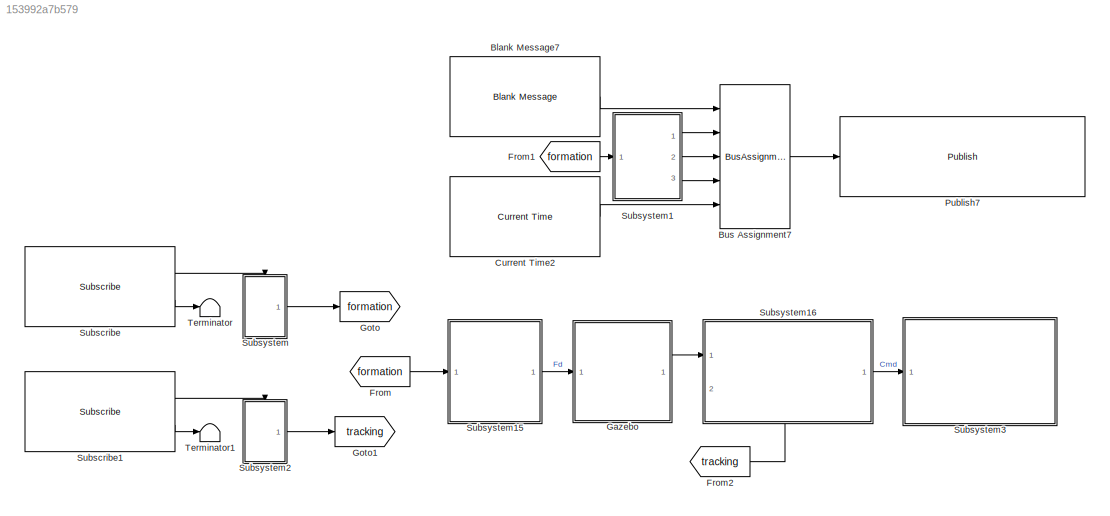
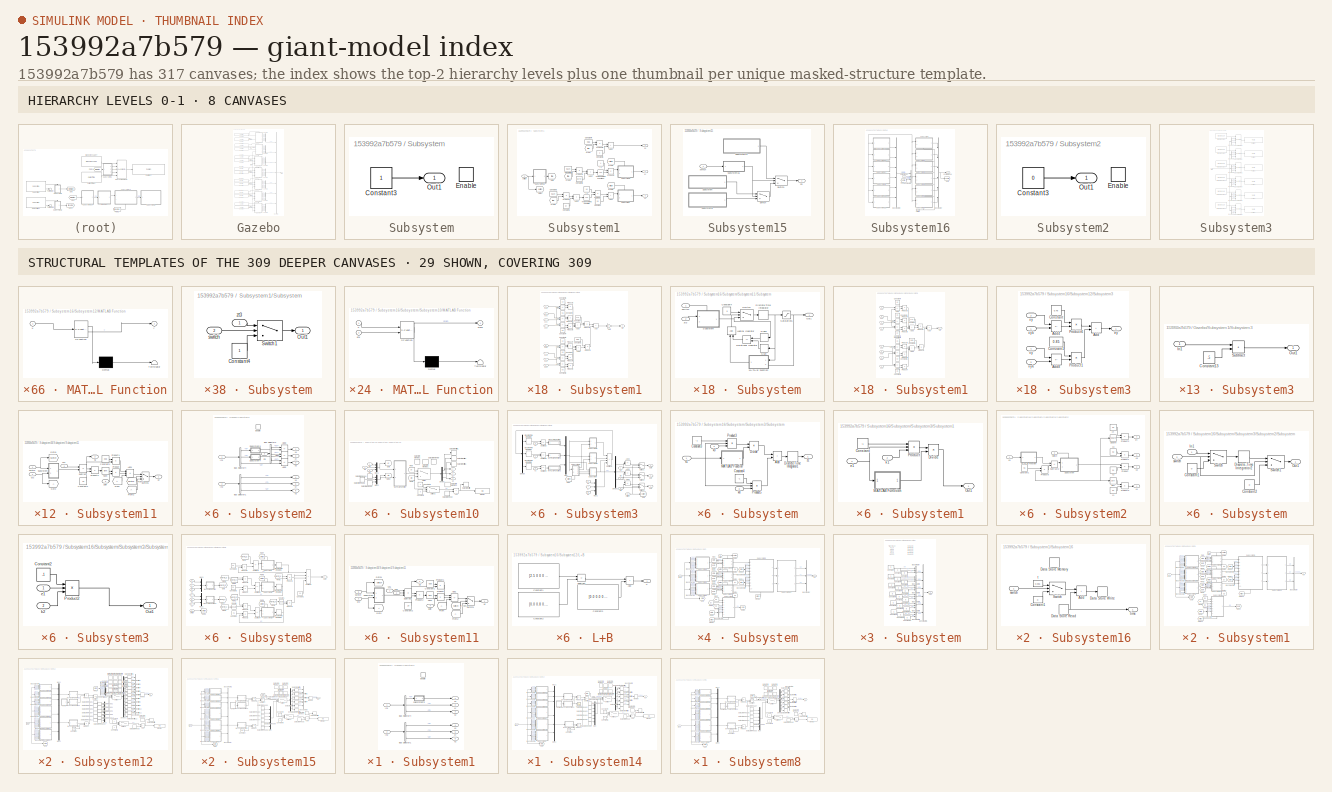
[diagram: thumbnail index - top-2 hierarchy levels (8 canvases) + 29 structural-template representatives of the remaining 309 canvases]
MODEL slx_153992a7b579
KIND model
CONFIG AbsTol = auto
CONFIG EnableMultiTasking = off
CONFIG FixedStep = 0.001
CONFIG MaxStep = auto
CONFIG MinStep = auto
CONFIG RelTol = 1e-3
CONFIG SampleTimeConstraint = Unconstrained
CONFIG SolverName = FixedStepDiscrete
CONFIG StartTime = 0.0
CONFIG StopTime = inf
BLOCK [Reference] Blank Message7  REF=robotlib/Blank Message
  Ports = [0, 1]
  SourceBlock = robotlib/Blank Message
  SourceProductBaseCode = RR
  SourceType = ROS Blank Message
BLOCK [BusAssignment] Bus Assignment7
  AssignedSignals = Pose.Position.X,Pose.Position.Y,Pose.Position.Z,Header.Stamp.Sec
  Ports = [5, 1]
BLOCK [Reference] Current Time2  REF=robotlib/Current Time
  Ports = [0, 1]
  SourceBlock = robotlib/Current Time
  SourceProductBaseCode = RR
  SourceType = ros.slros.internal.block.CurrentTime
BLOCK [From] From
  GotoTag = formation
BLOCK [From] From1
  GotoTag = formation
BLOCK [From] From2
  GotoTag = tracking
BLOCK [SubSystem] Gazebo
  Ports = [1, 1]
  RequestExecContextInheritance = off
BLOCK [BusCreator] Gazebo/Bus Creator1
  DisplayOption = bar
  InheritFromInputs = on
  Inputs = 6
  Ports = [6, 1]
BLOCK [BusCreator] Gazebo/Bus Creator2
  DisplayOption = bar
  InheritFromInputs = on
  Inputs = 6
  Ports = [6, 1]
BLOCK [BusCreator] Gazebo/Bus Creator3
  DisplayOption = bar
  InheritFromInputs = on
  Inputs = 6
  Ports = [6, 1]
BLOCK [BusCreator] Gazebo/Bus Creator4
  DisplayOption = bar
  InheritFromInputs = on
  Inputs = 6
  Ports = [6, 1]
BLOCK [BusCreator] Gazebo/Bus Creator5
  DisplayOption = bar
  InheritFromInputs = on
  Inputs = 7
  Ports = [7, 1]
BLOCK [BusCreator] Gazebo/Bus Creator6
  DisplayOption = bar
  InheritFromInputs = on
  Inputs = 6
  Ports = [6, 1]
BLOCK [BusCreator] Gazebo/Bus Creator7
  DisplayOption = bar
  InheritFromInputs = on
  Inputs = 6
  Ports = [6, 1]
BLOCK [BusCreator] Gazebo/Bus Creator8
  DisplayOption = bar
  InheritFromInputs = on
  Inputs = 6
  Ports = [6, 1]
BLOCK [Inport] Gazebo/Fd
BLOCK [Reference] Gazebo/Subscribe1  REF=robotlib/Subscribe
  Ports = [0, 2]
  SourceBlock = robotlib/Subscribe
  SourceProductBaseCode = RR
  SourceType = ROS Subscribe
BLOCK [Reference] Gazebo/Subscribe10  REF=robotlib/Subscribe
  Ports = [0, 2]
  SourceBlock = robotlib/Subscribe
  SourceProductBaseCode = RR
  SourceType = ROS Subscribe
BLOCK [Reference] Gazebo/Subscribe11  REF=robotlib/Subscribe
  Ports = [0, 2]
  SourceBlock = robotlib/Subscribe
  SourceProductBaseCode = RR
  SourceType = ROS Subscribe
BLOCK [Reference] Gazebo/Subscribe12  REF=robotlib/Subscribe
  Ports = [0, 2]
  SourceBlock = robotlib/Subscribe
  SourceProductBaseCode = RR
  SourceType = ROS Subscribe
BLOCK [Reference] Gazebo/Subscribe13  REF=robotlib/Subscribe
  Ports = [0, 2]
  SourceBlock = robotlib/Subscribe
  SourceProductBaseCode = RR
  SourceType = ROS Subscribe
BLOCK [Reference] Gazebo/Subscribe14  REF=robotlib/Subscribe
  Ports = [0, 2]
  SourceBlock = robotlib/Subscribe
  SourceProductBaseCode = RR
  SourceType = ROS Subscribe
BLOCK [Reference] Gazebo/Subscribe2  REF=robotlib/Subscribe
  Ports = [0, 2]
  SourceBlock = robotlib/Subscribe
  SourceProductBaseCode = RR
  SourceType = ROS Subscribe
BLOCK [Reference] Gazebo/Subscribe3  REF=robotlib/Subscribe
  Ports = [0, 2]
  SourceBlock = robotlib/Subscribe
  SourceProductBaseCode = RR
  SourceType = ROS Subscribe
BLOCK [Reference] Gazebo/Subscribe4  REF=robotlib/Subscribe
  Ports = [0, 2]
  SourceBlock = robotlib/Subscribe
  SourceProductBaseCode = RR
  SourceType = ROS Subscribe
BLOCK [Reference] Gazebo/Subscribe5  REF=robotlib/Subscribe
  Ports = [0, 2]
  SourceBlock = robotlib/Subscribe
  SourceProductBaseCode = RR
  SourceType = ROS Subscribe
BLOCK [Reference] Gazebo/Subscribe6  REF=robotlib/Subscribe
  Ports = [0, 2]
  SourceBlock = robotlib/Subscribe
  SourceProductBaseCode = RR
  SourceType = ROS Subscribe
BLOCK [Reference] Gazebo/Subscribe7  REF=robotlib/Subscribe
  Ports = [0, 2]
  SourceBlock = robotlib/Subscribe
  SourceProductBaseCode = RR
  SourceType = ROS Subscribe
BLOCK [Reference] Gazebo/Subscribe8  REF=robotlib/Subscribe
  Ports = [0, 2]
  SourceBlock = robotlib/Subscribe
  SourceProductBaseCode = RR
  SourceType = ROS Subscribe
BLOCK [Reference] Gazebo/Subscribe9  REF=robotlib/Subscribe
  Ports = [0, 2]
  SourceBlock = robotlib/Subscribe
  SourceProductBaseCode = RR
  SourceType = ROS Subscribe
BLOCK [SubSystem] Gazebo/Subsystem1
  Ports = [2, 6, 1]
  RequestExecContextInheritance = off
BLOCK [BusSelector] Gazebo/Subsystem1/Bus Selector1
  OutputSignals = Twist.Linear.X,Twist.Linear.Y,Twist.Linear.Z
  Ports = [1, 3]
BLOCK [BusSelector] Gazebo/Subsystem1/Bus Selector4
  OutputSignals = Pose.Position.X,Pose.Position.Y,Pose.Position.Z
  Ports = [1, 3]
BLOCK [EnablePort] Gazebo/Subsystem1/Enable
  Ports = []
BLOCK [Inport] Gazebo/Subsystem1/In1
BLOCK [Inport] Gazebo/Subsystem1/In2
  Port = 2
BLOCK [SubSystem] Gazebo/Subsystem1/Subsystem3
  Ports = [1, 1]
  RequestExecContextInheritance = off
BLOCK [Constant] Gazebo/Subsystem1/Subsystem3/Constant13
  Value = -5
BLOCK [Inport] Gazebo/Subsystem1/Subsystem3/In1
BLOCK [Outport] Gazebo/Subsystem1/Subsystem3/Out1
BLOCK [Sum] Gazebo/Subsystem1/Subsystem3/Subtract
  IconShape = rectangular
  Ports = [2, 1]
BLOCK [Outport] Gazebo/Subsystem1/vx
  Port = 4
BLOCK [Outport] Gazebo/Subsystem1/vy
  Port = 5
BLOCK [Outport] Gazebo/Subsystem1/vz
  Port = 6
BLOCK [Outport] Gazebo/Subsystem1/xx
BLOCK [Outport] Gazebo/Subsystem1/xy
  Port = 2
BLOCK [Outport] Gazebo/Subsystem1/xz
  Port = 3
BLOCK [SubSystem] Gazebo/Subsystem2
  Ports = [3, 6, 1]
  RequestExecContextInheritance = off
BLOCK [Sum] Gazebo/Subsystem2/Add3
  IconShape = rectangular
  Inputs = -+
  Ports = [2, 1]
BLOCK [Sum] Gazebo/Subsystem2/Add4
  IconShape = rectangular
  Inputs = -+
  Ports = [2, 1]
BLOCK [Sum] Gazebo/Subsystem2/Add5
  IconShape = rectangular
  Inputs = -+
  Ports = [2, 1]
BLOCK [BusSelector] Gazebo/Subsystem2/Bus Selector1
  OutputSignals = Twist.Linear.X,Twist.Linear.Y,Twist.Linear.Z
  Ports = [1, 3]
BLOCK [BusSelector] Gazebo/Subsystem2/Bus Selector2
  OutputSignals = pd1.xx,pd1.xy,pd1.xz
  Ports = [1, 3]
BLOCK [BusSelector] Gazebo/Subsystem2/Bus Selector4
  OutputSignals = Pose.Position.X,Pose.Position.Y,Pose.Position.Z
  Ports = [1, 3]
BLOCK [EnablePort] Gazebo/Subsystem2/Enable
  Ports = []
BLOCK [Inport] Gazebo/Subsystem2/Fd
  Port = 3
BLOCK [Inport] Gazebo/Subsystem2/In1
BLOCK [Inport] Gazebo/Subsystem2/In2
  Port = 2
BLOCK [SubSystem] Gazebo/Subsystem2/Subsystem3
  Ports = [1, 1]
  RequestExecContextInheritance = off
BLOCK [Constant] Gazebo/Subsystem2/Subsystem3/Constant13
  Value = -6
BLOCK [Inport] Gazebo/Subsystem2/Subsystem3/In1
BLOCK [Outport] Gazebo/Subsystem2/Subsystem3/Out1
BLOCK [Sum] Gazebo/Subsystem2/Subsystem3/Subtract
  IconShape = rectangular
  Ports = [2, 1]
BLOCK [SubSystem] Gazebo/Subsystem2/Subsystem4
  Ports = [1, 1]
  RequestExecContextInheritance = off
BLOCK [Constant] Gazebo/Subsystem2/Subsystem4/Constant13
BLOCK [Inport] Gazebo/Subsystem2/Subsystem4/In1
BLOCK [Outport] Gazebo/Subsystem2/Subsystem4/Out1
BLOCK [Sum] Gazebo/Subsystem2/Subsystem4/Subtract
  IconShape = rectangular
  Ports = [2, 1]
BLOCK [Outport] Gazebo/Subsystem2/vx
  Port = 4
BLOCK [Outport] Gazebo/Subsystem2/vy
  Port = 5
BLOCK [Outport] Gazebo/Subsystem2/vz
  Port = 6
BLOCK [Outport] Gazebo/Subsystem2/xx
BLOCK [Outport] Gazebo/Subsystem2/xy
  Port = 2
BLOCK [Outport] Gazebo/Subsystem2/xz
  Port = 3
BLOCK [SubSystem] Gazebo/Subsystem3
  Ports = [3, 6, 1]
  RequestExecContextInheritance = off
BLOCK [Sum] Gazebo/Subsystem3/Add3
  IconShape = rectangular
  Inputs = -+
  Ports = [2, 1]
BLOCK [Sum] Gazebo/Subsystem3/Add4
  IconShape = rectangular
  Inputs = -+
  Ports = [2, 1]
BLOCK [Sum] Gazebo/Subsystem3/Add5
  IconShape = rectangular
  Inputs = -+
  Ports = [2, 1]
BLOCK [BusSelector] Gazebo/Subsystem3/Bus Selector1
  OutputSignals = Twist.Linear.X,Twist.Linear.Y,Twist.Linear.Z
  Ports = [1, 3]
BLOCK [BusSelector] Gazebo/Subsystem3/Bus Selector2
  OutputSignals = pd2.xx,pd2.xy,pd2.xz
  Ports = [1, 3]
BLOCK [BusSelector] Gazebo/Subsystem3/Bus Selector4
  OutputSignals = Pose.Position.X,Pose.Position.Y,Pose.Position.Z
  Ports = [1, 3]
BLOCK [EnablePort] Gazebo/Subsystem3/Enable
  Ports = []
BLOCK [Inport] Gazebo/Subsystem3/Fd
  Port = 3
BLOCK [Inport] Gazebo/Subsystem3/In1
BLOCK [Inport] Gazebo/Subsystem3/In2
  Port = 2
BLOCK [SubSystem] Gazebo/Subsystem3/Subsystem3
  Ports = [1, 1]
  RequestExecContextInheritance = off
BLOCK [Constant] Gazebo/Subsystem3/Subsystem3/Constant13
  Value = -5
BLOCK [Inport] Gazebo/Subsystem3/Subsystem3/In1
BLOCK [Outport] Gazebo/Subsystem3/Subsystem3/Out1
BLOCK [Sum] Gazebo/Subsystem3/Subsystem3/Subtract
  IconShape = rectangular
  Ports = [2, 1]
BLOCK [SubSystem] Gazebo/Subsystem3/Subsystem4
  Ports = [1, 1]
  RequestExecContextInheritance = off
BLOCK [Constant] Gazebo/Subsystem3/Subsystem4/Constant13
BLOCK [Inport] Gazebo/Subsystem3/Subsystem4/In1
BLOCK [Outport] Gazebo/Subsystem3/Subsystem4/Out1
BLOCK [Sum] Gazebo/Subsystem3/Subsystem4/Subtract
  IconShape = rectangular
  Ports = [2, 1]
BLOCK [Outport] Gazebo/Subsystem3/vx
  Port = 4
BLOCK [Outport] Gazebo/Subsystem3/vy
  Port = 5
BLOCK [Outport] Gazebo/Subsystem3/vz
  Port = 6
BLOCK [Outport] Gazebo/Subsystem3/xx
BLOCK [Outport] Gazebo/Subsystem3/xy
  Port = 2
BLOCK [Outport] Gazebo/Subsystem3/xz
  Port = 3
BLOCK [SubSystem] Gazebo/Subsystem4
  Ports = [3, 6, 1]
  RequestExecContextInheritance = off
BLOCK [Sum] Gazebo/Subsystem4/Add3
  IconShape = rectangular
  Inputs = -+
  Ports = [2, 1]
BLOCK [Sum] Gazebo/Subsystem4/Add4
  IconShape = rectangular
  Inputs = -+
  Ports = [2, 1]
BLOCK [Sum] Gazebo/Subsystem4/Add5
  IconShape = rectangular
  Inputs = -+
  Ports = [2, 1]
BLOCK [BusSelector] Gazebo/Subsystem4/Bus Selector1
  OutputSignals = Twist.Linear.X,Twist.Linear.Y,Twist.Linear.Z
  Ports = [1, 3]
BLOCK [BusSelector] Gazebo/Subsystem4/Bus Selector2
  OutputSignals = pd3.xx,pd3.xy,pd3.xz
  Ports = [1, 3]
BLOCK [BusSelector] Gazebo/Subsystem4/Bus Selector4
  OutputSignals = Pose.Position.X,Pose.Position.Y,Pose.Position.Z
  Ports = [1, 3]
BLOCK [EnablePort] Gazebo/Subsystem4/Enable
  Ports = []
BLOCK [Inport] Gazebo/Subsystem4/Fd
  Port = 3
BLOCK [Inport] Gazebo/Subsystem4/In1
BLOCK [Inport] Gazebo/Subsystem4/In2
  Port = 2
BLOCK [SubSystem] Gazebo/Subsystem4/Subsystem1
  Ports = [1, 1]
  RequestExecContextInheritance = off
BLOCK [Constant] Gazebo/Subsystem4/Subsystem1/Constant13
  Value = -4
BLOCK [Inport] Gazebo/Subsystem4/Subsystem1/In1
BLOCK [Outport] Gazebo/Subsystem4/Subsystem1/Out1
BLOCK [Sum] Gazebo/Subsystem4/Subsystem1/Subtract
  IconShape = rectangular
  Ports = [2, 1]
BLOCK [SubSystem] Gazebo/Subsystem4/Subsystem2
  Ports = [1, 1]
  RequestExecContextInheritance = off
BLOCK [Constant] Gazebo/Subsystem4/Subsystem2/Constant13
BLOCK [Inport] Gazebo/Subsystem4/Subsystem2/In1
BLOCK [Outport] Gazebo/Subsystem4/Subsystem2/Out1
BLOCK [Sum] Gazebo/Subsystem4/Subsystem2/Subtract
  IconShape = rectangular
  Ports = [2, 1]
BLOCK [Outport] Gazebo/Subsystem4/vx
  Port = 4
BLOCK [Outport] Gazebo/Subsystem4/vy
  Port = 5
BLOCK [Outport] Gazebo/Subsystem4/vz
  Port = 6
BLOCK [Outport] Gazebo/Subsystem4/xx
BLOCK [Outport] Gazebo/Subsystem4/xy
  Port = 2
BLOCK [Outport] Gazebo/Subsystem4/xz
  Port = 3
BLOCK [SubSystem] Gazebo/Subsystem5
  Ports = [3, 6, 1]
  RequestExecContextInheritance = off
BLOCK [Sum] Gazebo/Subsystem5/Add3
  IconShape = rectangular
  Inputs = -+
  Ports = [2, 1]
BLOCK [Sum] Gazebo/Subsystem5/Add4
  IconShape = rectangular
  Inputs = -+
  Ports = [2, 1]
BLOCK [Sum] Gazebo/Subsystem5/Add5
  IconShape = rectangular
  Inputs = -+
  Ports = [2, 1]
BLOCK [BusSelector] Gazebo/Subsystem5/Bus Selector1
  OutputSignals = Twist.Linear.X,Twist.Linear.Y,Twist.Linear.Z
  Ports = [1, 3]
BLOCK [BusSelector] Gazebo/Subsystem5/Bus Selector2
  OutputSignals = pd4.xx,pd4.xy,pd4.xz
  Ports = [1, 3]
BLOCK [BusSelector] Gazebo/Subsystem5/Bus Selector4
  OutputSignals = Pose.Position.X,Pose.Position.Y,Pose.Position.Z
  Ports = [1, 3]
BLOCK [EnablePort] Gazebo/Subsystem5/Enable
  Ports = []
BLOCK [Inport] Gazebo/Subsystem5/Fd
  Port = 3
BLOCK [Inport] Gazebo/Subsystem5/In1
BLOCK [Inport] Gazebo/Subsystem5/In2
  Port = 2
BLOCK [SubSystem] Gazebo/Subsystem5/Subsystem1
  Ports = [1, 1]
  RequestExecContextInheritance = off
BLOCK [Constant] Gazebo/Subsystem5/Subsystem1/Constant13
  Value = -6
BLOCK [Inport] Gazebo/Subsystem5/Subsystem1/In1
BLOCK [Outport] Gazebo/Subsystem5/Subsystem1/Out1
BLOCK [Sum] Gazebo/Subsystem5/Subsystem1/Subtract
  IconShape = rectangular
  Ports = [2, 1]
BLOCK [SubSystem] Gazebo/Subsystem5/Subsystem2
  Ports = [1, 1]
  RequestExecContextInheritance = off
BLOCK [Constant] Gazebo/Subsystem5/Subsystem2/Constant13
  Value = -1
BLOCK [Inport] Gazebo/Subsystem5/Subsystem2/In1
BLOCK [Outport] Gazebo/Subsystem5/Subsystem2/Out1
BLOCK [Sum] Gazebo/Subsystem5/Subsystem2/Subtract
  IconShape = rectangular
  Ports = [2, 1]
BLOCK [Outport] Gazebo/Subsystem5/vx
  Port = 4
BLOCK [Outport] Gazebo/Subsystem5/vy
  Port = 5
BLOCK [Outport] Gazebo/Subsystem5/vz
  Port = 6
BLOCK [Outport] Gazebo/Subsystem5/xx
BLOCK [Outport] Gazebo/Subsystem5/xy
  Port = 2
BLOCK [Outport] Gazebo/Subsystem5/xz
  Port = 3
BLOCK [SubSystem] Gazebo/Subsystem6
  Ports = [3, 6, 1]
  RequestExecContextInheritance = off
BLOCK [Sum] Gazebo/Subsystem6/Add3
  IconShape = rectangular
  Inputs = -+
  Ports = [2, 1]
BLOCK [Sum] Gazebo/Subsystem6/Add4
  IconShape = rectangular
  Inputs = -+
  Ports = [2, 1]
BLOCK [Sum] Gazebo/Subsystem6/Add5
  IconShape = rectangular
  Inputs = -+
  Ports = [2, 1]
BLOCK [BusSelector] Gazebo/Subsystem6/Bus Selector1
  OutputSignals = Twist.Linear.X,Twist.Linear.Y,Twist.Linear.Z
  Ports = [1, 3]
BLOCK [BusSelector] Gazebo/Subsystem6/Bus Selector2
  OutputSignals = pd5.xx,pd5.xy,pd5.xz
  Ports = [1, 3]
BLOCK [BusSelector] Gazebo/Subsystem6/Bus Selector4
  OutputSignals = Pose.Position.X,Pose.Position.Y,Pose.Position.Z
  Ports = [1, 3]
BLOCK [EnablePort] Gazebo/Subsystem6/Enable
  Ports = []
BLOCK [Inport] Gazebo/Subsystem6/Fd
  Port = 3
BLOCK [Inport] Gazebo/Subsystem6/In1
BLOCK [Inport] Gazebo/Subsystem6/In2
  Port = 2
BLOCK [SubSystem] Gazebo/Subsystem6/Subsystem1
  Ports = [1, 1]
  RequestExecContextInheritance = off
BLOCK [Constant] Gazebo/Subsystem6/Subsystem1/Constant13
  Value = -5
BLOCK [Inport] Gazebo/Subsystem6/Subsystem1/In1
BLOCK [Outport] Gazebo/Subsystem6/Subsystem1/Out1
BLOCK [Sum] Gazebo/Subsystem6/Subsystem1/Subtract
  IconShape = rectangular
  Ports = [2, 1]
BLOCK [SubSystem] Gazebo/Subsystem6/Subsystem2
  Ports = [1, 1]
  RequestExecContextInheritance = off
BLOCK [Constant] Gazebo/Subsystem6/Subsystem2/Constant13
  Value = -1
BLOCK [Inport] Gazebo/Subsystem6/Subsystem2/In1
BLOCK [Outport] Gazebo/Subsystem6/Subsystem2/Out1
BLOCK [Sum] Gazebo/Subsystem6/Subsystem2/Subtract
  IconShape = rectangular
  Ports = [2, 1]
BLOCK [Outport] Gazebo/Subsystem6/vx
  Port = 4
BLOCK [Outport] Gazebo/Subsystem6/vy
  Port = 5
BLOCK [Outport] Gazebo/Subsystem6/vz
  Port = 6
BLOCK [Outport] Gazebo/Subsystem6/xx
BLOCK [Outport] Gazebo/Subsystem6/xy
  Port = 2
BLOCK [Outport] Gazebo/Subsystem6/xz
  Port = 3
BLOCK [SubSystem] Gazebo/Subsystem7
  Ports = [3, 6, 1]
  RequestExecContextInheritance = off
BLOCK [Sum] Gazebo/Subsystem7/Add3
  IconShape = rectangular
  Inputs = -+
  Ports = [2, 1]
BLOCK [Sum] Gazebo/Subsystem7/Add4
  IconShape = rectangular
  Inputs = -+
  Ports = [2, 1]
BLOCK [Sum] Gazebo/Subsystem7/Add5
  IconShape = rectangular
  Inputs = -+
  Ports = [2, 1]
BLOCK [BusSelector] Gazebo/Subsystem7/Bus Selector1
  OutputSignals = Twist.Linear.X,Twist.Linear.Y,Twist.Linear.Z
  Ports = [1, 3]
BLOCK [BusSelector] Gazebo/Subsystem7/Bus Selector2
  OutputSignals = pd6.xx,pd6.xy,pd6.xz
  Ports = [1, 3]
BLOCK [BusSelector] Gazebo/Subsystem7/Bus Selector4
  OutputSignals = Pose.Position.X,Pose.Position.Y,Pose.Position.Z
  Ports = [1, 3]
BLOCK [EnablePort] Gazebo/Subsystem7/Enable
  Ports = []
BLOCK [Inport] Gazebo/Subsystem7/Fd
  Port = 3
BLOCK [Inport] Gazebo/Subsystem7/In1
BLOCK [Inport] Gazebo/Subsystem7/In2
  Port = 2
BLOCK [SubSystem] Gazebo/Subsystem7/Subsystem1
  Ports = [1, 1]
  RequestExecContextInheritance = off
BLOCK [Constant] Gazebo/Subsystem7/Subsystem1/Constant13
  Value = -4
BLOCK [Inport] Gazebo/Subsystem7/Subsystem1/In1
BLOCK [Outport] Gazebo/Subsystem7/Subsystem1/Out1
BLOCK [Sum] Gazebo/Subsystem7/Subsystem1/Subtract
  IconShape = rectangular
  Ports = [2, 1]
BLOCK [SubSystem] Gazebo/Subsystem7/Subsystem2
  Ports = [1, 1]
  RequestExecContextInheritance = off
BLOCK [Constant] Gazebo/Subsystem7/Subsystem2/Constant13
  Value = -1
BLOCK [Inport] Gazebo/Subsystem7/Subsystem2/In1
BLOCK [Outport] Gazebo/Subsystem7/Subsystem2/Out1
BLOCK [Sum] Gazebo/Subsystem7/Subsystem2/Subtract
  IconShape = rectangular
  Ports = [2, 1]
BLOCK [Outport] Gazebo/Subsystem7/vx
  Port = 4
BLOCK [Outport] Gazebo/Subsystem7/vy
  Port = 5
BLOCK [Outport] Gazebo/Subsystem7/vz
  Port = 6
BLOCK [Outport] Gazebo/Subsystem7/xx
BLOCK [Outport] Gazebo/Subsystem7/xy
  Port = 2
BLOCK [Outport] Gazebo/Subsystem7/xz
  Port = 3
BLOCK [Terminator] Gazebo/Terminator
BLOCK [Terminator] Gazebo/Terminator1
BLOCK [Terminator] Gazebo/Terminator2
BLOCK [Terminator] Gazebo/Terminator3
BLOCK [Terminator] Gazebo/Terminator4
BLOCK [Terminator] Gazebo/Terminator5
BLOCK [Terminator] Gazebo/Terminator6
BLOCK [Outport] Gazebo/state
BLOCK [Goto] Goto
  GotoTag = formation
BLOCK [Goto] Goto1
  GotoTag = tracking
BLOCK [Reference] Publish7  REF=robotlib/Publish
  Ports = [1]
  SourceBlock = robotlib/Publish
  SourceProductBaseCode = RR
  SourceType = ROS Publish
BLOCK [Reference] Subscribe  REF=robotlib/Subscribe
  Ports = [0, 2]
  SourceBlock = robotlib/Subscribe
  SourceProductBaseCode = RR
  SourceType = ROS Subscribe
BLOCK [Reference] Subscribe1  REF=robotlib/Subscribe
  Ports = [0, 2]
  SourceBlock = robotlib/Subscribe
  SourceProductBaseCode = RR
  SourceType = ROS Subscribe
BLOCK [SubSystem] Subsystem
  Ports = [0, 1, 1]
  RequestExecContextInheritance = off
BLOCK [Constant] Subsystem/Constant3
BLOCK [EnablePort] Subsystem/Enable
  Ports = []
BLOCK [Outport] Subsystem/Out1
  InitialOutput = 0
BLOCK [SubSystem] Subsystem1
  Ports = [1, 3]
  RequestExecContextInheritance = off
BLOCK [Sum] Subsystem1/Add1
  IconShape = rectangular
  Ports = [2, 1]
BLOCK [Sum] Subsystem1/Add2
  IconShape = rectangular
  Ports = [2, 1]
BLOCK [Sum] Subsystem1/Add3
  IconShape = rectangular
  Ports = [2, 1]
BLOCK [Sum] Subsystem1/Add4
  IconShape = rectangular
  Ports = [2, 1]
BLOCK [Constant] Subsystem1/Constant
  Value = 2.5
BLOCK [Constant] Subsystem1/Constant1
  Value = pi
BLOCK [Constant] Subsystem1/Constant3
  Value = 0.214
BLOCK [Constant] Subsystem1/Constant4
  Value = 0.35
BLOCK [Constant] Subsystem1/Constant5
  Value = 0
BLOCK [Constant] Subsystem1/Constant6
  Value = 0.214
BLOCK [Constant] Subsystem1/Constant8
  Value = 0.5*pi
BLOCK [From] Subsystem1/From
  GotoTag = time
BLOCK [From] Subsystem1/From1
  GotoTag = time
BLOCK [From] Subsystem1/From2
  GotoTag = time
BLOCK [From] Subsystem1/From3
  GotoTag = switch
BLOCK [From] Subsystem1/From4
  GotoTag = switch
BLOCK [Goto] Subsystem1/Goto
  GotoTag = time
BLOCK [Goto] Subsystem1/Goto1
  GotoTag = switch
BLOCK [Product] Subsystem1/Product
  Ports = [2, 1]
BLOCK [Product] Subsystem1/Product1
  Ports = [2, 1]
BLOCK [Product] Subsystem1/Product2
  Ports = [2, 1]
BLOCK [Product] Subsystem1/Product3
  Ports = [2, 1]
BLOCK [Product] Subsystem1/Product5
  Ports = [2, 1]
BLOCK [SubSystem] Subsystem1/Subsystem
  PortSchema = {"entries":[{"content":{"sides":[{"content":{"connectorIds":["In1"]},"type":"ConnectorPlacement.EquallySpacedRectSide","uuid":"50b1559e-7173-4ba8-93e6-314f6d9df527"},{"content":{"connectorIds":["Out1"],"side":"RIGHT"},"type":"ConnectorPlacement.EquallySpacedRectSide","uuid":"be527bac-0bcc-4faf-a185-0382edae0189"},{"content":{"connectorIds":["In2"],"side":"TOP"},"type":"ConnectorPlacement.EquallySp...<+245ch>  <repeated x38 — deduplicated; at blocks: Subsystem, Subsystem1, Subsystem2>
  Ports = [2, 1]
  RequestExecContextInheritance = off
BLOCK [Constant] Subsystem1/Subsystem/Constant4
BLOCK [Outport] Subsystem1/Subsystem/Out1
BLOCK [Switch] Subsystem1/Subsystem/Switch1
  Criteria = u2 > Threshold
  InputSameDT = off
  SaturateOnIntegerOverflow = off
BLOCK [Inport] Subsystem1/Subsystem/switch
  Port = 2
BLOCK [Inport] Subsystem1/Subsystem/zt3
BLOCK [SubSystem] Subsystem1/Subsystem1
  Ports = [2, 1]
  RequestExecContextInheritance = off
BLOCK [Constant] Subsystem1/Subsystem1/Constant4
  Value = 0
BLOCK [Switch] Subsystem1/Subsystem1/Switch1
  Criteria = u2 > Threshold
  InputSameDT = off
  SaturateOnIntegerOverflow = off
BLOCK [Inport] Subsystem1/Subsystem1/switch
  Port = 2
BLOCK [Outport] Subsystem1/Subsystem1/xy
BLOCK [Inport] Subsystem1/Subsystem1/zt3
BLOCK [SubSystem] Subsystem1/Subsystem16
  Ports = [1, 1]
  RequestExecContextInheritance = off
BLOCK [Sum] Subsystem1/Subsystem16/Add
  IconShape = rectangular
  Ports = [2, 1]
BLOCK [Constant] Subsystem1/Subsystem16/Constant1
  Value = 0
BLOCK [DataStoreMemory] Subsystem1/Subsystem16/Data Store Memory
  ReadBeforeWriteMsg = warning
  ShowAdditionalParam = off
  WriteAfterReadMsg = warning
  WriteAfterWriteMsg = warning
BLOCK [DataStoreRead] Subsystem1/Subsystem16/Data Store Read
  IndexOptions = Index vector (dialog)
  Indices = 1
  OutputSizes = 1
  Ports = [0, 1]
BLOCK [DataStoreWrite] Subsystem1/Subsystem16/Data Store Write
  IndexOptions = Index vector (dialog)
  Indices = 1
  OutputSizes = 1
  Ports = [1]
BLOCK [Switch] Subsystem1/Subsystem16/Switch
  Criteria = u2 > Threshold
  InputSameDT = off
  SaturateOnIntegerOverflow = off
BLOCK [Inport] Subsystem1/Subsystem16/switch
BLOCK [Constant] Subsystem1/Subsystem16/t
  Value = 0.001
BLOCK [Outport] Subsystem1/Subsystem16/time
BLOCK [Trigonometry] Subsystem1/Trigonometric Function
  Operator = cos
  Ports = [1, 1]
BLOCK [Trigonometry] Subsystem1/Trigonometric Function2
  Operator = cos
  Ports = [1, 1]
BLOCK [Constant] Subsystem1/r1
  Value = 4
BLOCK [Constant] Subsystem1/r2
  Value = 1.5
BLOCK [Inport] Subsystem1/switch
BLOCK [Outport] Subsystem1/xx
BLOCK [Outport] Subsystem1/xy
  Port = 2
BLOCK [Outport] Subsystem1/xz
  Port = 3
BLOCK [SubSystem] Subsystem15
  Ports = [1, 1]
  RequestExecContextInheritance = off
BLOCK [Outport] Subsystem15/Fd
BLOCK [SubSystem] Subsystem15/Subsystem
  Ports = [0, 1]
  RequestExecContextInheritance = off
BLOCK [BusCreator] Subsystem15/Subsystem/Bus Creator
  DisplayOption = bar
  InheritFromInputs = on
  Inputs = 3
  Ports = [3, 1]
BLOCK [BusCreator] Subsystem15/Subsystem/Bus Creator1
  DisplayOption = bar
  InheritFromInputs = on
  Inputs = 6
  Ports = [6, 1]
BLOCK [BusCreator] Subsystem15/Subsystem/Bus Creator2
  DisplayOption = bar
  InheritFromInputs = on
  Inputs = 3
  Ports = [3, 1]
BLOCK [BusCreator] Subsystem15/Subsystem/Bus Creator3
  DisplayOption = bar
  InheritFromInputs = on
  Inputs = 3
  Ports = [3, 1]
BLOCK [BusCreator] Subsystem15/Subsystem/Bus Creator4
  DisplayOption = bar
  InheritFromInputs = on
  Inputs = 3
  Ports = [3, 1]
BLOCK [BusCreator] Subsystem15/Subsystem/Bus Creator5
  DisplayOption = bar
  InheritFromInputs = on
  Inputs = 3
  Ports = [3, 1]
BLOCK [BusCreator] Subsystem15/Subsystem/Bus Creator6
  DisplayOption = bar
  InheritFromInputs = on
  Inputs = 3
  Ports = [3, 1]
BLOCK [Constant] Subsystem15/Subsystem/Constant
  Value = -1
BLOCK [Constant] Subsystem15/Subsystem/Constant1
BLOCK [Constant] Subsystem15/Subsystem/Constant10
  Value = 0
BLOCK [Constant] Subsystem15/Subsystem/Constant11
  Value = 0
BLOCK [Constant] Subsystem15/Subsystem/Constant12
  Value = -1
BLOCK [Constant] Subsystem15/Subsystem/Constant13
  Value = 0
BLOCK [Constant] Subsystem15/Subsystem/Constant14
  Value = -1
BLOCK [Constant] Subsystem15/Subsystem/Constant15
  Value = -1
BLOCK [Constant] Subsystem15/Subsystem/Constant16
  Value = 0
BLOCK [Constant] Subsystem15/Subsystem/Constant17
BLOCK [Constant] Subsystem15/Subsystem/Constant2
  Value = 0
BLOCK [Constant] Subsystem15/Subsystem/Constant3
BLOCK [Constant] Subsystem15/Subsystem/Constant4
BLOCK [Constant] Subsystem15/Subsystem/Constant5
  Value = 0
BLOCK [Constant] Subsystem15/Subsystem/Constant6
  Value = 2
BLOCK [Constant] Subsystem15/Subsystem/Constant7
  Value = 0
BLOCK [Constant] Subsystem15/Subsystem/Constant8
  Value = 0
BLOCK [Constant] Subsystem15/Subsystem/Constant9
  Value = -2
BLOCK [Outport] Subsystem15/Subsystem/Fd2
BLOCK [SubSystem] Subsystem15/Subsystem14
  Ports = [0, 1]
  RequestExecContextInheritance = off
BLOCK [BusCreator] Subsystem15/Subsystem14/Bus Creator
  DisplayOption = bar
  InheritFromInputs = on
  Inputs = 3
  Ports = [3, 1]
BLOCK [BusCreator] Subsystem15/Subsystem14/Bus Creator1
  DisplayOption = bar
  InheritFromInputs = on
  Inputs = 6
  Ports = [6, 1]
BLOCK [BusCreator] Subsystem15/Subsystem14/Bus Creator2
  DisplayOption = bar
  InheritFromInputs = on
  Inputs = 3
  Ports = [3, 1]
BLOCK [BusCreator] Subsystem15/Subsystem14/Bus Creator3
  DisplayOption = bar
  InheritFromInputs = on
  Inputs = 3
  Ports = [3, 1]
BLOCK [BusCreator] Subsystem15/Subsystem14/Bus Creator4
  DisplayOption = bar
  InheritFromInputs = on
  Inputs = 3
  Ports = [3, 1]
BLOCK [BusCreator] Subsystem15/Subsystem14/Bus Creator5
  DisplayOption = bar
  InheritFromInputs = on
  Inputs = 3
  Ports = [3, 1]
BLOCK [BusCreator] Subsystem15/Subsystem14/Bus Creator6
  DisplayOption = bar
  InheritFromInputs = on
  Inputs = 3
  Ports = [3, 1]
BLOCK [Constant] Subsystem15/Subsystem14/Constant
  Value = -2
BLOCK [Constant] Subsystem15/Subsystem14/Constant1
  Value = 0
BLOCK [Constant] Subsystem15/Subsystem14/Constant10
  Value = 0
BLOCK [Constant] Subsystem15/Subsystem14/Constant11
  Value = 0
BLOCK [Constant] Subsystem15/Subsystem14/Constant12
  Value = 0
BLOCK [Constant] Subsystem15/Subsystem14/Constant13
  Value = 0
BLOCK [Constant] Subsystem15/Subsystem14/Constant14
  Value = -1
BLOCK [Constant] Subsystem15/Subsystem14/Constant15
  Value = 0
BLOCK [Constant] Subsystem15/Subsystem14/Constant16
  Value = 0
BLOCK [Constant] Subsystem15/Subsystem14/Constant17
BLOCK [Constant] Subsystem15/Subsystem14/Constant2
  Value = 0
BLOCK [Constant] Subsystem15/Subsystem14/Constant3
  Value = 2
BLOCK [Constant] Subsystem15/Subsystem14/Constant4
  Value = 0
BLOCK [Constant] Subsystem15/Subsystem14/Constant5
  Value = 0
BLOCK [Constant] Subsystem15/Subsystem14/Constant6
  Value = 3
BLOCK [Constant] Subsystem15/Subsystem14/Constant7
  Value = 0
BLOCK [Constant] Subsystem15/Subsystem14/Constant8
  Value = 0
BLOCK [Constant] Subsystem15/Subsystem14/Constant9
  Value = -3
BLOCK [Outport] Subsystem15/Subsystem14/Fd3
BLOCK [SubSystem] Subsystem15/Subsystem16
  Ports = [1, 1]
  RequestExecContextInheritance = off
BLOCK [Sum] Subsystem15/Subsystem16/Add
  IconShape = rectangular
  Ports = [2, 1]
BLOCK [Constant] Subsystem15/Subsystem16/Constant1
  Value = 0
BLOCK [DataStoreMemory] Subsystem15/Subsystem16/Data Store Memory
  ReadBeforeWriteMsg = warning
  ShowAdditionalParam = off
  WriteAfterReadMsg = warning
  WriteAfterWriteMsg = warning
BLOCK [DataStoreRead] Subsystem15/Subsystem16/Data Store Read
  IndexOptions = Index vector (dialog)
  Indices = 1
  OutputSizes = 1
  Ports = [0, 1]
BLOCK [DataStoreWrite] Subsystem15/Subsystem16/Data Store Write
  IndexOptions = Index vector (dialog)
  Indices = 1
  OutputSizes = 1
  Ports = [1]
BLOCK [Switch] Subsystem15/Subsystem16/Switch
  Criteria = u2 > Threshold
  InputSameDT = off
  SaturateOnIntegerOverflow = off
BLOCK [Inport] Subsystem15/Subsystem16/switch
BLOCK [Constant] Subsystem15/Subsystem16/t
  Value = 0.001
BLOCK [Outport] Subsystem15/Subsystem16/time
BLOCK [SubSystem] Subsystem15/Subsystem8
  Ports = [0, 1]
  RequestExecContextInheritance = off
BLOCK [BusCreator] Subsystem15/Subsystem8/Bus Creator
  DisplayOption = bar
  InheritFromInputs = on
  Inputs = 3
  Ports = [3, 1]
BLOCK [BusCreator] Subsystem15/Subsystem8/Bus Creator1
  DisplayOption = bar
  InheritFromInputs = on
  Inputs = 6
  Ports = [6, 1]
BLOCK [BusCreator] Subsystem15/Subsystem8/Bus Creator2
  DisplayOption = bar
  InheritFromInputs = on
  Inputs = 3
  Ports = [3, 1]
BLOCK [BusCreator] Subsystem15/Subsystem8/Bus Creator3
  DisplayOption = bar
  InheritFromInputs = on
  Inputs = 3
  Ports = [3, 1]
BLOCK [BusCreator] Subsystem15/Subsystem8/Bus Creator4
  DisplayOption = bar
  InheritFromInputs = on
  Inputs = 3
  Ports = [3, 1]
BLOCK [BusCreator] Subsystem15/Subsystem8/Bus Creator5
  DisplayOption = bar
  InheritFromInputs = on
  Inputs = 3
  Ports = [3, 1]
BLOCK [BusCreator] Subsystem15/Subsystem8/Bus Creator6
  DisplayOption = bar
  InheritFromInputs = on
  Inputs = 3
  Ports = [3, 1]
BLOCK [Constant] Subsystem15/Subsystem8/Constant
  Value = -1
BLOCK [Constant] Subsystem15/Subsystem8/Constant1
BLOCK [Constant] Subsystem15/Subsystem8/Constant10
  Value = -1
BLOCK [Constant] Subsystem15/Subsystem8/Constant11
  Value = 0
BLOCK [Constant] Subsystem15/Subsystem8/Constant12
  Value = -1
BLOCK [Constant] Subsystem15/Subsystem8/Constant13
  Value = 0
BLOCK [Constant] Subsystem15/Subsystem8/Constant14
  Value = 0
BLOCK [Constant] Subsystem15/Subsystem8/Constant15
  Value = -1
BLOCK [Constant] Subsystem15/Subsystem8/Constant16
  Value = 0
BLOCK [Constant] Subsystem15/Subsystem8/Constant17
BLOCK [Constant] Subsystem15/Subsystem8/Constant2
  Value = 0
BLOCK [Constant] Subsystem15/Subsystem8/Constant3
  Value = 0
BLOCK [Constant] Subsystem15/Subsystem8/Constant4
BLOCK [Constant] Subsystem15/Subsystem8/Constant5
  Value = 0
BLOCK [Constant] Subsystem15/Subsystem8/Constant6
BLOCK [Constant] Subsystem15/Subsystem8/Constant7
BLOCK [Constant] Subsystem15/Subsystem8/Constant8
  Value = 0
BLOCK [Constant] Subsystem15/Subsystem8/Constant9
  Value = -1
BLOCK [Outport] Subsystem15/Subsystem8/Fd1
BLOCK [Switch] Subsystem15/Switch
  Criteria = u2 > Threshold
  InputSameDT = off
  SaturateOnIntegerOverflow = off
  Threshold = 10
BLOCK [Switch] Subsystem15/Switch1
  Criteria = u2 > Threshold
  InputSameDT = off
  SaturateOnIntegerOverflow = off
  Threshold = 20
BLOCK [Inport] Subsystem15/switch
BLOCK [SubSystem] Subsystem16
  PortSchema = {"entries":[{"content":{"sides":[{"content":{"connectorIds":["In1"]},"type":"ConnectorPlacement.EquallySpacedRectSide","uuid":"50b1559e-7173-4ba8-93e6-314f6d9df527"},{"content":{"connectorIds":["Out1"],"side":"RIGHT"},"type":"ConnectorPlacement.EquallySpacedRectSide","uuid":"be527bac-0bcc-4faf-a185-0382edae0189"},{"content":{"connectorIds":[],"side":"TOP"},"type":"ConnectorPlacement.EquallySpacedR...<+389ch>  <repeated x7 — deduplicated; at blocks: Subsystem16, Subsystem, Subsystem1, Subsystem2, Subsystem3, Subsystem5, Subsystem6>
  Ports = [2, 1]
  RequestExecContextInheritance = off
BLOCK [BusCreator] Subsystem16/Bus Creator
  DisplayOption = bar
  InheritFromInputs = on
  Inputs = 6
  Ports = [6, 1]
BLOCK [BusCreator] Subsystem16/Bus Creator2
  DisplayOption = bar
  InheritFromInputs = on
  Inputs = 3
  Ports = [3, 1]
BLOCK [BusCreator] Subsystem16/Bus Creator3
  DisplayOption = bar
  InheritFromInputs = on
  Inputs = 6
  Ports = [6, 1]
BLOCK [Outport] Subsystem16/Control signal
BLOCK [From] Subsystem16/From
  GotoTag = control
BLOCK [Goto] Subsystem16/Goto
  GotoTag = control
BLOCK [Inport] Subsystem16/Sate signal
BLOCK [SubSystem] Subsystem16/Subsystem
  Ports = [2, 1]
  RequestExecContextInheritance = off
BLOCK [BusCreator] Subsystem16/Subsystem/Bus Creator
  DisplayOption = bar
  InheritFromInputs = on
  Inputs = 3
  Ports = [3, 1]
BLOCK [BusSelector] Subsystem16/Subsystem/Bus Selector
  OutputSignals = state(tk).node1.xx,state(tk).node2.xx,state(tk).node3.xx,state(tk).node6.xx,state(tk).node1.vx,state(tk).node2.vx,state(tk).node3.vx,state(tk).node6.vx
  Ports = [1, 8]
BLOCK [BusSelector] Subsystem16/Subsystem/Bus Selector1
  OutputSignals = state(tk).node1.xy,state(tk).node2.xy,state(tk).node3.xy,state(tk).node6.xy,state(tk).node1.vy,state(tk).node2.vy,state(tk).node3.vy,state(tk).node6.vy
  Ports = [1, 8]
BLOCK [BusSelector] Subsystem16/Subsystem/Bus Selector2
  OutputSignals = state(tk).node1.xz,state(tk).node2.xz,state(tk).node3.xz,state(tk).node6.xz,state(tk).node1.vz,state(tk).node2.vz,state(tk).node3.vz,state(tk).node6.vz
  Ports = [1, 8]
BLOCK [BusSelector] Subsystem16/Subsystem/Bus Selector3
  OutputSignals = state(t).node1.vx
  Ports = [1, 1]
BLOCK [BusSelector] Subsystem16/Subsystem/Bus Selector4
  OutputSignals = state(t).node1.vy
  Ports = [1, 1]
BLOCK [BusSelector] Subsystem16/Subsystem/Bus Selector5
  OutputSignals = state(t).node1.vz
  Ports = [1, 1]
BLOCK [BusSelector] Subsystem16/Subsystem/Bus Selector6
  OutputSignals = state(t).node1.vx,state(t).node1.vy,state(t).node1.vz
  Ports = [1, 3]
BLOCK [BusSelector] Subsystem16/Subsystem/Bus Selector7
  OutputSignals = state(t).node1.vx,state(t).node1.vy,state(t).node1.vz
  Ports = [1, 3]
BLOCK [BusSelector] Subsystem16/Subsystem/Bus Selector8
  OutputSignals = control.node1.ux,control.node1.uy,control.node1.uz
  Ports = [1, 3]
BLOCK [From] Subsystem16/Subsystem/From
  GotoTag = state
BLOCK [From] Subsystem16/Subsystem/From1
  GotoTag = state
BLOCK [From] Subsystem16/Subsystem/From10
  GotoTag = state
BLOCK [From] Subsystem16/Subsystem/From11
  GotoTag = state
BLOCK [From] Subsystem16/Subsystem/From12
  GotoTag = switch
BLOCK [From] Subsystem16/Subsystem/From13
  GotoTag = switch
BLOCK [From] Subsystem16/Subsystem/From14
  GotoTag = switch
BLOCK [From] Subsystem16/Subsystem/From15
  GotoTag = switch
BLOCK [From] Subsystem16/Subsystem/From2
  GotoTag = state
BLOCK [From] Subsystem16/Subsystem/From3
  GotoTag = state
BLOCK [From] Subsystem16/Subsystem/From4
  GotoTag = gain
BLOCK [From] Subsystem16/Subsystem/From5
  GotoTag = gain
BLOCK [From] Subsystem16/Subsystem/From6
  GotoTag = gain
BLOCK [From] Subsystem16/Subsystem/From7
  GotoTag = Sx
BLOCK [From] Subsystem16/Subsystem/From8
  GotoTag = Sy
BLOCK [From] Subsystem16/Subsystem/From9
  GotoTag = Sz
BLOCK [Goto] Subsystem16/Subsystem/Goto
  GotoTag = state
BLOCK [Goto] Subsystem16/Subsystem/Goto1
  GotoTag = gain
BLOCK [Goto] Subsystem16/Subsystem/Goto2
  GotoTag = Sx
BLOCK [Goto] Subsystem16/Subsystem/Goto3
  GotoTag = Sy
BLOCK [Goto] Subsystem16/Subsystem/Goto4
  GotoTag = Sz
BLOCK [Goto] Subsystem16/Subsystem/Goto5
  GotoTag = switch
BLOCK [Inport] Subsystem16/Subsystem/In19
BLOCK [SubSystem] Subsystem16/Subsystem/Subsystem1
  Ports = [8, 1]
  RequestExecContextInheritance = off
BLOCK [Sum] Subsystem16/Subsystem/Subsystem1/Add
  IconShape = rectangular
  Ports = [2, 1]
BLOCK [Sum] Subsystem16/Subsystem/Subsystem1/Add1
  IconShape = rectangular
  Inputs = -+
  Ports = [2, 1]
BLOCK [Sum] Subsystem16/Subsystem/Subsystem1/Add2
  IconShape = rectangular
  Inputs = +-
  Ports = [2, 1]
BLOCK [Sum] Subsystem16/Subsystem/Subsystem1/Add4
  IconShape = rectangular
  Inputs = -+
  Ports = [2, 1]
BLOCK [Sum] Subsystem16/Subsystem/Subsystem1/Add5
  IconShape = rectangular
  Inputs = +++
  Ports = [3, 1]
BLOCK [Sum] Subsystem16/Subsystem/Subsystem1/Add6
  IconShape = rectangular
  Inputs = -+
  Ports = [2, 1]
BLOCK [Sum] Subsystem16/Subsystem/Subsystem1/Add7
  IconShape = rectangular
  Inputs = +-
  Ports = [2, 1]
BLOCK [Sum] Subsystem16/Subsystem/Subsystem1/Add8
  IconShape = rectangular
  Inputs = -+
  Ports = [2, 1]
BLOCK [Sum] Subsystem16/Subsystem/Subsystem1/Add9
  IconShape = rectangular
  Inputs = +++
  Ports = [3, 1]
BLOCK [Constant] Subsystem16/Subsystem/Subsystem1/Constant
  Value = 0.75
BLOCK [Constant] Subsystem16/Subsystem/Subsystem1/Constant1
  Value = 0.85
BLOCK [Constant] Subsystem16/Subsystem/Subsystem1/Constant3
  Value = 0.5
BLOCK [Constant] Subsystem16/Subsystem/Subsystem1/Constant4
  Value = 0.8
BLOCK [Constant] Subsystem16/Subsystem/Subsystem1/Constant5
  Value = 1.2
BLOCK [Constant] Subsystem16/Subsystem/Subsystem1/Constant7
  Value = 0.5
BLOCK [Constant] Subsystem16/Subsystem/Subsystem1/Constant8
  Value = 0.8
BLOCK [Constant] Subsystem16/Subsystem/Subsystem1/Constant9
  Value = 1.2
BLOCK [Gain] Subsystem16/Subsystem/Subsystem1/Gain
  Gain = -1
BLOCK [Product] Subsystem16/Subsystem/Subsystem1/Product1
  Ports = [2, 1]
BLOCK [Product] Subsystem16/Subsystem/Subsystem1/Product3
  Ports = [2, 1]
BLOCK [Product] Subsystem16/Subsystem/Subsystem1/Product4
  Ports = [2, 1]
BLOCK [Product] Subsystem16/Subsystem/Subsystem1/Product5
  Ports = [2, 1]
BLOCK [Product] Subsystem16/Subsystem/Subsystem1/Product6
  Ports = [2, 1]
BLOCK [Product] Subsystem16/Subsystem/Subsystem1/Product7
  Ports = [2, 1]
BLOCK [Product] Subsystem16/Subsystem/Subsystem1/Product8
  Ports = [2, 1]
BLOCK [Product] Subsystem16/Subsystem/Subsystem1/Product9
  Ports = [2, 1]
BLOCK [Outport] Subsystem16/Subsystem/Subsystem1/utx
BLOCK [Inport] Subsystem16/Subsystem/Subsystem1/vy1
  Port = 5
BLOCK [Inport] Subsystem16/Subsystem/Subsystem1/vy2
  Port = 6
BLOCK [Inport] Subsystem16/Subsystem/Subsystem1/vy3
  Port = 7
BLOCK [Inport] Subsystem16/Subsystem/Subsystem1/vy6
  Port = 8
BLOCK [Inport] Subsystem16/Subsystem/Subsystem1/xy1
BLOCK [Inport] Subsystem16/Subsystem/Subsystem1/xy2
  Port = 2
BLOCK [Inport] Subsystem16/Subsystem/Subsystem1/xy3
  Port = 3
BLOCK [Inport] Subsystem16/Subsystem/Subsystem1/xy6
  Port = 4
BLOCK [SubSystem] Subsystem16/Subsystem/Subsystem10
  Ports = [3, 3]
  RequestExecContextInheritance = off
BLOCK [Sum] Subsystem16/Subsystem/Subsystem10/Add
  IconShape = rectangular
  Ports = [2, 1]
BLOCK [Constant] Subsystem16/Subsystem/Subsystem10/Constant3
BLOCK [Constant] Subsystem16/Subsystem/Subsystem10/Constant4
  Value = 0
BLOCK [DataStoreMemory] Subsystem16/Subsystem/Subsystem10/Data Store Memory
  DataStoreName = utkz1
  ReadBeforeWriteMsg = warning
  ShowAdditionalParam = off
  WriteAfterReadMsg = warning
  WriteAfterWriteMsg = warning
BLOCK [DataStoreMemory] Subsystem16/Subsystem/Subsystem10/Data Store Memory1
  DataStoreName = utky1
  ReadBeforeWriteMsg = warning
  ShowAdditionalParam = off
  WriteAfterReadMsg = warning
  WriteAfterWriteMsg = warning
BLOCK [DataStoreMemory] Subsystem16/Subsystem/Subsystem10/Data Store Memory2
  DataStoreName = utkx1
  ReadBeforeWriteMsg = warning
  ShowAdditionalParam = off
  WriteAfterReadMsg = warning
  WriteAfterWriteMsg = warning
BLOCK [DataStoreMemory] Subsystem16/Subsystem/Subsystem10/Data Store Memory3
  DataStoreName = uc1
  ReadBeforeWriteMsg = warning
  ShowAdditionalParam = off
  WriteAfterReadMsg = warning
  WriteAfterWriteMsg = warning
BLOCK [DataStoreRead] Subsystem16/Subsystem/Subsystem10/Data Store Read
  DataStoreName = uc1
  IndexOptions = Index vector (dialog)
  Indices = 1
  OutputSizes = 1
  Ports = [0, 1]
BLOCK [DataStoreRead] Subsystem16/Subsystem/Subsystem10/Data Store Read4
  DataStoreName = utkx1
  IndexOptions = Index vector (dialog)
  Indices = 1
  OutputSizes = 1
  Ports = [0, 1]
BLOCK [DataStoreRead] Subsystem16/Subsystem/Subsystem10/Data Store Read5
  DataStoreName = utky1
  IndexOptions = Index vector (dialog)
  Indices = 1
  OutputSizes = 1
  Ports = [0, 1]
BLOCK [DataStoreRead] Subsystem16/Subsystem/Subsystem10/Data Store Read6
  DataStoreName = utkz1
  IndexOptions = Index vector (dialog)
  Indices = 1
  OutputSizes = 1
  Ports = [0, 1]
BLOCK [DataStoreWrite] Subsystem16/Subsystem/Subsystem10/Data Store Write
  DataStoreName = uc1
  IndexOptions = Index vector (dialog)
  Indices = 1
  OutputSizes = 1
  Ports = [1]
BLOCK [DataStoreWrite] Subsystem16/Subsystem/Subsystem10/Data Store Write1
  DataStoreName = utkx1
  IndexOptions = Index vector (dialog)
  Indices = 1
  OutputSizes = 1
  Ports = [1]
BLOCK [DataStoreWrite] Subsystem16/Subsystem/Subsystem10/Data Store Write2
  DataStoreName = utky1
  IndexOptions = Index vector (dialog)
  Indices = 1
  OutputSizes = 1
  Ports = [1]
BLOCK [DataStoreWrite] Subsystem16/Subsystem/Subsystem10/Data Store Write6
  DataStoreName = utkz1
  IndexOptions = Index vector (dialog)
  Indices = 1
  OutputSizes = 1
  Ports = [1]
BLOCK [Demux] Subsystem16/Subsystem/Subsystem10/Demux
  Outputs = 3
  Ports = [1, 3]
BLOCK [Display] Subsystem16/Subsystem/Subsystem10/Display
  Decimation = 1
  Ports = [1]
BLOCK [From] Subsystem16/Subsystem/Subsystem10/From
  GotoTag = ut
BLOCK [From] Subsystem16/Subsystem/Subsystem10/From1
  GotoTag = utk
BLOCK [Goto] Subsystem16/Subsystem/Subsystem10/Goto
  GotoTag = ut
BLOCK [Goto] Subsystem16/Subsystem/Subsystem10/Goto1
  GotoTag = utk
BLOCK [SubSystem] Subsystem16/Subsystem/Subsystem10/MATLAB Function
  ErrorFcn = Stateflow.Translate.translate
  PermitHierarchicalResolution = ExplicitOnly
  Ports = [2, 1]
  RequestExecContextInheritance = off
  SFBlockType = MATLAB Function
  TreatAsAtomicUnit = on
BLOCK [Demux] Subsystem16/Subsystem/Subsystem10/MATLAB Function/ Demux 
  Outputs = 1
  Ports = [1, 1]
BLOCK [S-Function] Subsystem16/Subsystem/Subsystem10/MATLAB Function/ SFunction 
  EnableBusSupport = on
  FunctionName = sf_sfun
  PortCounts = [2 2]
  Ports = [2, 2]
  SFcnIsStateOwnerBlock = off
  SFunctionDeploymentMode = off
  Tag = Stateflow S-Function 195
BLOCK [Terminator] Subsystem16/Subsystem/Subsystem10/MATLAB Function/ Terminator 
BLOCK [Outport] Subsystem16/Subsystem/Subsystem10/MATLAB Function/nrom
BLOCK [Inport] Subsystem16/Subsystem/Subsystem10/MATLAB Function/u
BLOCK [Inport] Subsystem16/Subsystem/Subsystem10/MATLAB Function/utk
  Port = 2
BLOCK [Mux] Subsystem16/Subsystem/Subsystem10/Mux1
  DisplayOption = bar
  Inputs = 3
  Ports = [3, 1]
BLOCK [Mux] Subsystem16/Subsystem/Subsystem10/Mux2
  DisplayOption = bar
  Inputs = 3
  Ports = [3, 1]
BLOCK [Switch] Subsystem16/Subsystem/Subsystem10/Switch
  InputSameDT = off
  SaturateOnIntegerOverflow = off
  Threshold = 0.1
BLOCK [Switch] Subsystem16/Subsystem/Subsystem10/Switch2
  InputSameDT = off
  SaturateOnIntegerOverflow = off
  Threshold = 0.1
BLOCK [Inport] Subsystem16/Subsystem/Subsystem10/utx
BLOCK [Inport] Subsystem16/Subsystem/Subsystem10/uty
  Port = 2
BLOCK [Inport] Subsystem16/Subsystem/Subsystem10/utz
  Port = 3
BLOCK [Outport] Subsystem16/Subsystem/Subsystem10/ux
BLOCK [Outport] Subsystem16/Subsystem/Subsystem10/uy
  Port = 2
BLOCK [Outport] Subsystem16/Subsystem/Subsystem10/uz
  Port = 3
BLOCK [SubSystem] Subsystem16/Subsystem/Subsystem11
  PortSchema = {"entries":[{"content":{"sides":[{"content":{"connectorIds":["In1","In2","In3"]},"type":"ConnectorPlacement.EquallySpacedRectSide","uuid":"3c32f130-2df4-4697-80e9-267a8217898e"},{"content":{"connectorIds":["Out1"],"side":"RIGHT"},"type":"ConnectorPlacement.EquallySpacedRectSide","uuid":"840675a7-4714-440f-a6ce-75eff1b2763f"},{"content":{"connectorIds":["In4"],"side":"TOP"},"type":"ConnectorPlaceme...<+407ch>  <repeated x12 — deduplicated; at blocks: Subsystem11, Subsystem4, Subsystem9>
  Ports = [4, 2]
  RequestExecContextInheritance = off
BLOCK [Sum] Subsystem16/Subsystem/Subsystem11/Add1
  IconShape = rectangular
  Inputs = --+
  Ports = [3, 1]
BLOCK [Constant] Subsystem16/Subsystem/Subsystem11/Constant1
  Value = 0.08
BLOCK [Constant] Subsystem16/Subsystem/Subsystem11/Constant2
  Value = 10
BLOCK [From] Subsystem16/Subsystem/Subsystem11/From
BLOCK [From] Subsystem16/Subsystem/Subsystem11/From1
  GotoTag = switch
BLOCK [From] Subsystem16/Subsystem/Subsystem11/From2
BLOCK [Goto] Subsystem16/Subsystem/Subsystem11/Goto
BLOCK [Goto] Subsystem16/Subsystem/Subsystem11/Goto1
  GotoTag = switch
BLOCK [Product] Subsystem16/Subsystem/Subsystem11/Product
  Ports = [2, 1]
BLOCK [Product] Subsystem16/Subsystem/Subsystem11/Product1
  Ports = [2, 1]
BLOCK [Product] Subsystem16/Subsystem/Subsystem11/Product2
  Ports = [2, 1]
BLOCK [SubSystem] Subsystem16/Subsystem/Subsystem11/Subsystem
  Ports = [2, 1]
  RequestExecContextInheritance = off
BLOCK [Constant] Subsystem16/Subsystem/Subsystem11/Subsystem/Constant4
  Value = 0
BLOCK [DiscreteIntegrator] Subsystem16/Subsystem/Subsystem11/Subsystem/Discrete-Time Integrator
  ICPrevOutput = DiscIntNeverNeededParam
  ICPrevScaledInput = DiscIntNeverNeededParam
  InitialConditionSetting = Auto
  LowerSaturationLimit = -100
  Ports = [1, 1]
  SampleTime = -1
  UpperSaturationLimit = 100
BLOCK [Logic] Subsystem16/Subsystem/Subsystem11/Subsystem/Logical Operator
  AllPortsSameDT = off
  NameLocation = right
  OutDataTypeStr = boolean
  Ports = [2, 1]
BLOCK [SubSystem] Subsystem16/Subsystem/Subsystem11/Subsystem/MATLAB Function
  ErrorFcn = Stateflow.Translate.translate
  NameLocation = top
  PermitHierarchicalResolution = ExplicitOnly
  Ports = [2, 1]
  RequestExecContextInheritance = off
  SFBlockType = MATLAB Function
  TreatAsAtomicUnit = on
BLOCK [Demux] Subsystem16/Subsystem/Subsystem11/Subsystem/MATLAB Function/ Demux 
  Outputs = 1
  Ports = [1, 1]
BLOCK [S-Function] Subsystem16/Subsystem/Subsystem11/Subsystem/MATLAB Function/ SFunction 
  EnableBusSupport = on
  FunctionName = sf_sfun
  PortCounts = [2 2]
  Ports = [2, 2]
  SFcnIsStateOwnerBlock = off
  SFunctionDeploymentMode = off
  Tag = Stateflow S-Function 196
BLOCK [Terminator] Subsystem16/Subsystem/Subsystem11/Subsystem/MATLAB Function/ Terminator 
BLOCK [Inport] Subsystem16/Subsystem/Subsystem11/Subsystem/MATLAB Function/u1
BLOCK [Inport] Subsystem16/Subsystem/Subsystem11/Subsystem/MATLAB Function/u2
  Port = 2
BLOCK [Outport] Subsystem16/Subsystem/Subsystem11/Subsystem/MATLAB Function/y
BLOCK [Outport] Subsystem16/Subsystem/Subsystem11/Subsystem/Out1
BLOCK [RelationalOperator] Subsystem16/Subsystem/Subsystem11/Subsystem/Relational Operator
  InputSameDT = off
  NameLocation = top
  Operator = ==
  OutDataTypeStr = boolean
  Ports = [2, 1]
  RndMeth = Simplest
BLOCK [Saturate] Subsystem16/Subsystem/Subsystem11/Subsystem/Saturation1
  LowerLimit = -0.25
  UpperLimit = 0.25
BLOCK [Signum] Subsystem16/Subsystem/Subsystem11/Subsystem/Sign
  NameLocation = top
BLOCK [Signum] Subsystem16/Subsystem/Subsystem11/Subsystem/Sign1
  NameLocation = top
BLOCK [SubSystem] Subsystem16/Subsystem/Subsystem11/Subsystem/Subsystem
  Ports = [2, 1]
  RequestExecContextInheritance = off
BLOCK [Constant] Subsystem16/Subsystem/Subsystem11/Subsystem/Subsystem/Constant4
  Value = 0
BLOCK [Outport] Subsystem16/Subsystem/Subsystem11/Subsystem/Subsystem/Out1
BLOCK [Switch] Subsystem16/Subsystem/Subsystem11/Subsystem/Subsystem/Switch1
  Criteria = u2 > Threshold
  InputSameDT = off
  SaturateOnIntegerOverflow = off
BLOCK [Inport] Subsystem16/Subsystem/Subsystem11/Subsystem/Subsystem/switch
  Port = 2
BLOCK [Inport] Subsystem16/Subsystem/Subsystem11/Subsystem/Subsystem/zt3
BLOCK [Switch] Subsystem16/Subsystem/Subsystem11/Subsystem/Switch
  Criteria = u2 > Threshold
  InputSameDT = off
  SaturateOnIntegerOverflow = off
BLOCK [Inport] Subsystem16/Subsystem/Subsystem11/Subsystem/switch
BLOCK [Inport] Subsystem16/Subsystem/Subsystem11/Subsystem/zt3
  Port = 2
BLOCK [Sum] Subsystem16/Subsystem/Subsystem11/Subtract
  IconShape = rectangular
  Inputs = +-
  Ports = [2, 1]
BLOCK [Switch] Subsystem16/Subsystem/Subsystem11/Switch1
  Criteria = u2 > Threshold
  InputSameDT = off
  SaturateOnIntegerOverflow = off
  Threshold = 1
BLOCK [Outport] Subsystem16/Subsystem/Subsystem11/Sz
  Port = 2
BLOCK [Trigonometry] Subsystem16/Subsystem/Subsystem11/Tanh
  Operator = tanh
  Ports = [1, 1]
BLOCK [Inport] Subsystem16/Subsystem/Subsystem11/gain
  Port = 3
BLOCK [Inport] Subsystem16/Subsystem/Subsystem11/switch
  Port = 4
BLOCK [Inport] Subsystem16/Subsystem/Subsystem11/utz
  Port = 2
BLOCK [Outport] Subsystem16/Subsystem/Subsystem11/uz
BLOCK [Inport] Subsystem16/Subsystem/Subsystem11/vz1
BLOCK [SubSystem] Subsystem16/Subsystem/Subsystem2
  Ports = [8, 1]
  RequestExecContextInheritance = off
BLOCK [Sum] Subsystem16/Subsystem/Subsystem2/Add
  IconShape = rectangular
  Ports = [2, 1]
BLOCK [Sum] Subsystem16/Subsystem/Subsystem2/Add1
  IconShape = rectangular
  Inputs = -+
  Ports = [2, 1]
BLOCK [Sum] Subsystem16/Subsystem/Subsystem2/Add2
  IconShape = rectangular
  Inputs = +-
  Ports = [2, 1]
BLOCK [Sum] Subsystem16/Subsystem/Subsystem2/Add4
  IconShape = rectangular
  Inputs = -+
  Ports = [2, 1]
BLOCK [Sum] Subsystem16/Subsystem/Subsystem2/Add5
  IconShape = rectangular
  Inputs = +++
  Ports = [3, 1]
BLOCK [Sum] Subsystem16/Subsystem/Subsystem2/Add6
  IconShape = rectangular
  Inputs = -+
  Ports = [2, 1]
BLOCK [Sum] Subsystem16/Subsystem/Subsystem2/Add7
  IconShape = rectangular
  Inputs = +-
  Ports = [2, 1]
BLOCK [Sum] Subsystem16/Subsystem/Subsystem2/Add8
  IconShape = rectangular
  Inputs = -+
  Ports = [2, 1]
BLOCK [Sum] Subsystem16/Subsystem/Subsystem2/Add9
  IconShape = rectangular
  Inputs = +++
  Ports = [3, 1]
BLOCK [Constant] Subsystem16/Subsystem/Subsystem2/Constant
  Value = 0.75
BLOCK [Constant] Subsystem16/Subsystem/Subsystem2/Constant1
  Value = 0.85
BLOCK [Constant] Subsystem16/Subsystem/Subsystem2/Constant3
  Value = 0.5
BLOCK [Constant] Subsystem16/Subsystem/Subsystem2/Constant4
  Value = 0.8
BLOCK [Constant] Subsystem16/Subsystem/Subsystem2/Constant5
  Value = 1.2
BLOCK [Constant] Subsystem16/Subsystem/Subsystem2/Constant7
  Value = 0.5
BLOCK [Constant] Subsystem16/Subsystem/Subsystem2/Constant8
  Value = 0.8
BLOCK [Constant] Subsystem16/Subsystem/Subsystem2/Constant9
  Value = 1.2
BLOCK [Gain] Subsystem16/Subsystem/Subsystem2/Gain
  Gain = -1
BLOCK [Product] Subsystem16/Subsystem/Subsystem2/Product1
  Ports = [2, 1]
BLOCK [Product] Subsystem16/Subsystem/Subsystem2/Product3
  Ports = [2, 1]
BLOCK [Product] Subsystem16/Subsystem/Subsystem2/Product4
  Ports = [2, 1]
BLOCK [Product] Subsystem16/Subsystem/Subsystem2/Product5
  Ports = [2, 1]
BLOCK [Product] Subsystem16/Subsystem/Subsystem2/Product6
  Ports = [2, 1]
BLOCK [Product] Subsystem16/Subsystem/Subsystem2/Product7
  Ports = [2, 1]
BLOCK [Product] Subsystem16/Subsystem/Subsystem2/Product8
  Ports = [2, 1]
BLOCK [Product] Subsystem16/Subsystem/Subsystem2/Product9
  Ports = [2, 1]
BLOCK [Outport] Subsystem16/Subsystem/Subsystem2/utx
BLOCK [Inport] Subsystem16/Subsystem/Subsystem2/vz1
  Port = 5
BLOCK [Inport] Subsystem16/Subsystem/Subsystem2/vz2
  Port = 6
BLOCK [Inport] Subsystem16/Subsystem/Subsystem2/vz3
  Port = 7
BLOCK [Inport] Subsystem16/Subsystem/Subsystem2/vz6
  Port = 8
BLOCK [Inport] Subsystem16/Subsystem/Subsystem2/xx2
  Port = 2
BLOCK [Inport] Subsystem16/Subsystem/Subsystem2/xz1
BLOCK [Inport] Subsystem16/Subsystem/Subsystem2/xz3
  Port = 3
BLOCK [Inport] Subsystem16/Subsystem/Subsystem2/xz6
  Port = 4
BLOCK [SubSystem] Subsystem16/Subsystem/Subsystem3
  PortSchema = {"entries":[{"content":{"sides":[{"content":{"connectorIds":["In1","In2","In3","In4","In5","In6","In7","In8","In9"]},"type":"ConnectorPlacement.EquallySpacedRectSide","uuid":"e02b19dc-feca-4a5f-b0a9-7b682689d3dc"},{"content":{"connectorIds":["Out1","Out2","Out3"],"side":"RIGHT"},"type":"ConnectorPlacement.EquallySpacedRectSide","uuid":"6cba16a1-1866-4332-a766-c6ecae75c00a"},{"content":{"connectorI...<+452ch>  <repeated x6 — deduplicated; at blocks: Subsystem3>
  Ports = [10, 3]
  RequestExecContextInheritance = off
BLOCK [Sum] Subsystem16/Subsystem/Subsystem3/Add3
  IconShape = rectangular
  Inputs = -+
  Ports = [2, 1]
BLOCK [Sum] Subsystem16/Subsystem/Subsystem3/Add4
  IconShape = rectangular
  Inputs = -+
  Ports = [2, 1]
BLOCK [Sum] Subsystem16/Subsystem/Subsystem3/Add5
  IconShape = rectangular
  Inputs = -+
  Ports = [2, 1]
BLOCK [Demux] Subsystem16/Subsystem/Subsystem3/Demux
  Outputs = 3
  Ports = [1, 3]
BLOCK [Demux] Subsystem16/Subsystem/Subsystem3/Demux1
  Outputs = 3
  Ports = [1, 3]
BLOCK [DiscreteIntegrator] Subsystem16/Subsystem/Subsystem3/Discrete-Time Integrator1
  ICPrevOutput = DiscIntNeverNeededParam
  ICPrevScaledInput = DiscIntNeverNeededParam
  InitialConditionSetting = Auto
  Ports = [1, 1]
  SampleTime = -1
BLOCK [DiscreteIntegrator] Subsystem16/Subsystem/Subsystem3/Discrete-Time Integrator2
  ICPrevOutput = DiscIntNeverNeededParam
  ICPrevScaledInput = DiscIntNeverNeededParam
  InitialConditionSetting = Auto
  Ports = [1, 1]
  SampleTime = -1
BLOCK [DiscreteIntegrator] Subsystem16/Subsystem/Subsystem3/Discrete-Time Integrator8
  ICPrevOutput = DiscIntNeverNeededParam
  ICPrevScaledInput = DiscIntNeverNeededParam
  InitialConditionSetting = Auto
  Ports = [1, 1]
  SampleTime = -1
BLOCK [From] Subsystem16/Subsystem/Subsystem3/From
  GotoTag = switch
BLOCK [Goto] Subsystem16/Subsystem/Subsystem3/Goto
  GotoTag = switch
BLOCK [SubSystem] Subsystem16/Subsystem/Subsystem3/MATLAB Function
  ErrorFcn = Stateflow.Translate.translate
  PermitHierarchicalResolution = ExplicitOnly
  Ports = [1, 1]
  RequestExecContextInheritance = off
  SFBlockType = MATLAB Function
  TreatAsAtomicUnit = on
BLOCK [Demux] Subsystem16/Subsystem/Subsystem3/MATLAB Function/ Demux 
  Outputs = 1
  Ports = [1, 1]
BLOCK [S-Function] Subsystem16/Subsystem/Subsystem3/MATLAB Function/ SFunction 
  EnableBusSupport = on
  FunctionName = sf_sfun
  PortCounts = [1 2]
  Ports = [1, 2]
  SFcnIsStateOwnerBlock = off
  SFunctionDeploymentMode = off
  Tag = Stateflow S-Function 197
BLOCK [Terminator] Subsystem16/Subsystem/Subsystem3/MATLAB Function/ Terminator 
BLOCK [Inport] Subsystem16/Subsystem/Subsystem3/MATLAB Function/u
BLOCK [Outport] Subsystem16/Subsystem/Subsystem3/MATLAB Function/y
BLOCK [SubSystem] Subsystem16/Subsystem/Subsystem3/MATLAB Function1
  ErrorFcn = Stateflow.Translate.translate
  PermitHierarchicalResolution = ExplicitOnly
  Ports = [1, 1]
  RequestExecContextInheritance = off
  SFBlockType = MATLAB Function
  TreatAsAtomicUnit = on
BLOCK [Demux] Subsystem16/Subsystem/Subsystem3/MATLAB Function1/ Demux 
  Outputs = 1
  Ports = [1, 1]
BLOCK [S-Function] Subsystem16/Subsystem/Subsystem3/MATLAB Function1/ SFunction 
  EnableBusSupport = on
  FunctionName = sf_sfun
  PortCounts = [1 2]
  Ports = [1, 2]
  SFcnIsStateOwnerBlock = off
  SFunctionDeploymentMode = off
  Tag = Stateflow S-Function 198
BLOCK [Terminator] Subsystem16/Subsystem/Subsystem3/MATLAB Function1/ Terminator 
BLOCK [Inport] Subsystem16/Subsystem/Subsystem3/MATLAB Function1/u
BLOCK [Outport] Subsystem16/Subsystem/Subsystem3/MATLAB Function1/y
BLOCK [SubSystem] Subsystem16/Subsystem/Subsystem3/MATLAB Function2
  ErrorFcn = Stateflow.Translate.translate
  PermitHierarchicalResolution = ExplicitOnly
  Ports = [1, 1]
  RequestExecContextInheritance = off
  SFBlockType = MATLAB Function
  TreatAsAtomicUnit = on
BLOCK [Demux] Subsystem16/Subsystem/Subsystem3/MATLAB Function2/ Demux 
  Outputs = 1
  Ports = [1, 1]
BLOCK [S-Function] Subsystem16/Subsystem/Subsystem3/MATLAB Function2/ SFunction 
  EnableBusSupport = on
  FunctionName = sf_sfun
  PortCounts = [1 2]
  Ports = [1, 2]
  SFcnIsStateOwnerBlock = off
  SFunctionDeploymentMode = off
  Tag = Stateflow S-Function 199
BLOCK [Terminator] Subsystem16/Subsystem/Subsystem3/MATLAB Function2/ Terminator 
BLOCK [Inport] Subsystem16/Subsystem/Subsystem3/MATLAB Function2/u
BLOCK [Outport] Subsystem16/Subsystem/Subsystem3/MATLAB Function2/y
BLOCK [Mux] Subsystem16/Subsystem/Subsystem3/Mux
  DisplayOption = bar
  Inputs = 3
  Ports = [3, 1]
BLOCK [Mux] Subsystem16/Subsystem/Subsystem3/Mux1
  DisplayOption = bar
  Inputs = 3
  Ports = [3, 1]
BLOCK [SubSystem] Subsystem16/Subsystem/Subsystem3/Subsystem
  Ports = [3, 1]
  RequestExecContextInheritance = off
BLOCK [Sum] Subsystem16/Subsystem/Subsystem3/Subsystem/Add
  IconShape = rectangular
  Ports = [2, 1]
BLOCK [Constant] Subsystem16/Subsystem/Subsystem3/Subsystem/Constant3
  Value = -1
BLOCK [Constant] Subsystem16/Subsystem/Subsystem3/Subsystem/Constant4
  Value = -1
BLOCK [DiscreteIntegrator] Subsystem16/Subsystem/Subsystem3/Subsystem/Discrete-Time Integrator1
  ICPrevOutput = DiscIntNeverNeededParam
  ICPrevScaledInput = DiscIntNeverNeededParam
  InitialConditionSetting = Auto
  Ports = [1, 1]
  SampleTime = -1
BLOCK [Product] Subsystem16/Subsystem/Subsystem3/Subsystem/Divide
  Inputs = */
  Ports = [2, 1]
BLOCK [SubSystem] Subsystem16/Subsystem/Subsystem3/Subsystem/MATLAB Function
  ErrorFcn = Stateflow.Translate.translate
  PermitHierarchicalResolution = ExplicitOnly
  Ports = [1, 1]
  RequestExecContextInheritance = off
  SFBlockType = MATLAB Function
  TreatAsAtomicUnit = on
BLOCK [Demux] Subsystem16/Subsystem/Subsystem3/Subsystem/MATLAB Function/ Demux 
  Outputs = 1
  Ports = [1, 1]
BLOCK [S-Function] Subsystem16/Subsystem/Subsystem3/Subsystem/MATLAB Function/ SFunction 
  EnableBusSupport = on
  FunctionName = sf_sfun
  PortCounts = [1 2]
  Ports = [1, 2]
  SFcnIsStateOwnerBlock = off
  SFunctionDeploymentMode = off
  Tag = Stateflow S-Function 200
BLOCK [Terminator] Subsystem16/Subsystem/Subsystem3/Subsystem/MATLAB Function/ Terminator 
BLOCK [Inport] Subsystem16/Subsystem/Subsystem3/Subsystem/MATLAB Function/u
BLOCK [Outport] Subsystem16/Subsystem/Subsystem3/Subsystem/MATLAB Function/y
BLOCK [Product] Subsystem16/Subsystem/Subsystem3/Subsystem/Product3
  Inputs = 3
  Ports = [3, 1]
BLOCK [Product] Subsystem16/Subsystem/Subsystem3/Subsystem/Product5
  Inputs = 3
  Ports = [3, 1]
BLOCK [Inport] Subsystem16/Subsystem/Subsystem3/Subsystem/e1
BLOCK [Inport] Subsystem16/Subsystem/Subsystem3/Subsystem/k3
  Port = 2
BLOCK [Inport] Subsystem16/Subsystem/Subsystem3/Subsystem/k4
  Port = 3
BLOCK [Outport] Subsystem16/Subsystem/Subsystem3/Subsystem/z2
BLOCK [SubSystem] Subsystem16/Subsystem/Subsystem3/Subsystem1
  Ports = [2, 1]
  RequestExecContextInheritance = off
BLOCK [Constant] Subsystem16/Subsystem/Subsystem3/Subsystem1/Constant
  Value = -1
BLOCK [Product] Subsystem16/Subsystem/Subsystem3/Subsystem1/Divide
  Inputs = */
  Ports = [2, 1]
BLOCK [SubSystem] Subsystem16/Subsystem/Subsystem3/Subsystem1/MATLAB Function
  ErrorFcn = Stateflow.Translate.translate
  PermitHierarchicalResolution = ExplicitOnly
  Ports = [1, 1]
  RequestExecContextInheritance = off
  SFBlockType = MATLAB Function
  TreatAsAtomicUnit = on
BLOCK [Demux] Subsystem16/Subsystem/Subsystem3/Subsystem1/MATLAB Function/ Demux 
  Outputs = 1
  Ports = [1, 1]
BLOCK [S-Function] Subsystem16/Subsystem/Subsystem3/Subsystem1/MATLAB Function/ SFunction 
  EnableBusSupport = on
  FunctionName = sf_sfun
  PortCounts = [1 2]
  Ports = [1, 2]
  SFcnIsStateOwnerBlock = off
  SFunctionDeploymentMode = off
  Tag = Stateflow S-Function 201
BLOCK [Terminator] Subsystem16/Subsystem/Subsystem3/Subsystem1/MATLAB Function/ Terminator 
BLOCK [Inport] Subsystem16/Subsystem/Subsystem3/Subsystem1/MATLAB Function/u
BLOCK [Outport] Subsystem16/Subsystem/Subsystem3/Subsystem1/MATLAB Function/y
BLOCK [Outport] Subsystem16/Subsystem/Subsystem3/Subsystem1/Out1
BLOCK [Product] Subsystem16/Subsystem/Subsystem3/Subsystem1/Product
  Inputs = 3
  Ports = [3, 1]
BLOCK [Inport] Subsystem16/Subsystem/Subsystem3/Subsystem1/e1
BLOCK [Inport] Subsystem16/Subsystem/Subsystem3/Subsystem1/k1
  Port = 2
BLOCK [SubSystem] Subsystem16/Subsystem/Subsystem3/Subsystem2
  PortSchema = {"entries":[{"content":{"sides":[{"content":{"connectorIds":["In1"]},"type":"ConnectorPlacement.EquallySpacedRectSide","uuid":"fc08b57d-5108-4bb3-894e-d1527c9ee9b9"},{"content":{"connectorIds":["Out1","Out2","Out3","Out4"],"side":"RIGHT"},"type":"ConnectorPlacement.EquallySpacedRectSide","uuid":"5f28f464-9d6d-4ee7-848e-113b4b51ead6"},{"content":{"connectorIds":[],"side":"TOP"},"type":"ConnectorPla...<+410ch>  <repeated x6 — deduplicated; at blocks: Subsystem2>
  Ports = [2, 4]
  RequestExecContextInheritance = off
BLOCK [Constant] Subsystem16/Subsystem/Subsystem3/Subsystem2/Constant1
  Value = 0.1
BLOCK [SubSystem] Subsystem16/Subsystem/Subsystem3/Subsystem2/MATLAB Function
  ErrorFcn = Stateflow.Translate.translate
  PermitHierarchicalResolution = ExplicitOnly
  Ports = [1, 1]
  RequestExecContextInheritance = off
  SFBlockType = MATLAB Function
  TreatAsAtomicUnit = on
BLOCK [Demux] Subsystem16/Subsystem/Subsystem3/Subsystem2/MATLAB Function/ Demux 
  Outputs = 1
  Ports = [1, 1]
BLOCK [S-Function] Subsystem16/Subsystem/Subsystem3/Subsystem2/MATLAB Function/ SFunction 
  EnableBusSupport = on
  FunctionName = sf_sfun
  PortCounts = [1 2]
  Ports = [1, 2]
  SFcnIsStateOwnerBlock = off
  SFunctionDeploymentMode = off
  Tag = Stateflow S-Function 202
BLOCK [Terminator] Subsystem16/Subsystem/Subsystem3/Subsystem2/MATLAB Function/ Terminator 
BLOCK [Inport] Subsystem16/Subsystem/Subsystem3/Subsystem2/MATLAB Function/u
BLOCK [Outport] Subsystem16/Subsystem/Subsystem3/Subsystem2/MATLAB Function/y
BLOCK [Product] Subsystem16/Subsystem/Subsystem3/Subsystem2/Product
  Ports = [2, 1]
BLOCK [Product] Subsystem16/Subsystem/Subsystem3/Subsystem2/Product1
  Ports = [2, 1]
BLOCK [Product] Subsystem16/Subsystem/Subsystem3/Subsystem2/Product2
  Ports = [2, 1]
BLOCK [Product] Subsystem16/Subsystem/Subsystem3/Subsystem2/Product3
  Ports = [2, 1]
BLOCK [Product] Subsystem16/Subsystem/Subsystem3/Subsystem2/Product6
  Ports = [2, 1]
BLOCK [Sqrt] Subsystem16/Subsystem/Subsystem3/Subsystem2/Sqrt
BLOCK [Math] Subsystem16/Subsystem/Subsystem3/Subsystem2/Square
  Operator = square
  Ports = [1, 1]
BLOCK [SubSystem] Subsystem16/Subsystem/Subsystem3/Subsystem2/Subsystem
  PortSchema = {"entries":[{"content":{"sides":[{"content":{"connectorIds":["In1"]},"type":"ConnectorPlacement.EquallySpacedRectSide","uuid":"12a3f2f0-a297-420d-b26a-5f62088d5514"},{"content":{"connectorIds":["Out1"],"side":"RIGHT"},"type":"ConnectorPlacement.EquallySpacedRectSide","uuid":"62e35448-e0a3-4495-a6db-77deef7aa7b4"},{"content":{"connectorIds":["In2"],"side":"TOP"},"type":"ConnectorPlacement.EquallySp...<+245ch>  <repeated x6 — deduplicated; at blocks: Subsystem>
  Ports = [2, 1]
  RequestExecContextInheritance = off
BLOCK [Constant] Subsystem16/Subsystem/Subsystem3/Subsystem2/Subsystem/Constant1
  Value = 0
BLOCK [Constant] Subsystem16/Subsystem/Subsystem3/Subsystem2/Subsystem/Constant2
  Value = 0
BLOCK [DiscreteIntegrator] Subsystem16/Subsystem/Subsystem3/Subsystem2/Subsystem/Discrete-Time Integrator2
  ICPrevOutput = DiscIntNeverNeededParam
  ICPrevScaledInput = DiscIntNeverNeededParam
  InitialCondition = 0.1
  InitialConditionSetting = Auto
  Ports = [1, 1]
  SampleTime = -1
  gainval = 1
BLOCK [Inport] Subsystem16/Subsystem/Subsystem3/Subsystem2/Subsystem/In1
BLOCK [Outport] Subsystem16/Subsystem/Subsystem3/Subsystem2/Subsystem/Out1
BLOCK [Switch] Subsystem16/Subsystem/Subsystem3/Subsystem2/Subsystem/Switch
  Criteria = u2 > Threshold
  InputSameDT = off
  SaturateOnIntegerOverflow = off
BLOCK [Switch] Subsystem16/Subsystem/Subsystem3/Subsystem2/Subsystem/Switch1
  Criteria = u2 > Threshold
  InputSameDT = off
  SaturateOnIntegerOverflow = off
BLOCK [Inport] Subsystem16/Subsystem/Subsystem3/Subsystem2/Subsystem/switch
  Port = 2
BLOCK [Sum] Subsystem16/Subsystem/Subsystem3/Subsystem2/Subtract2
  IconShape = rectangular
  Inputs = +-
  Ports = [2, 1]
BLOCK [Constant] Subsystem16/Subsystem/Subsystem3/Subsystem2/c1
  Value = 0.1
BLOCK [Constant] Subsystem16/Subsystem/Subsystem3/Subsystem2/c2
  Value = 0.1
BLOCK [Constant] Subsystem16/Subsystem/Subsystem3/Subsystem2/c3
  Value = 0.3
BLOCK [Constant] Subsystem16/Subsystem/Subsystem3/Subsystem2/c4
  Value = 0.3
BLOCK [Inport] Subsystem16/Subsystem/Subsystem3/Subsystem2/e1
BLOCK [Outport] Subsystem16/Subsystem/Subsystem3/Subsystem2/k1
BLOCK [Outport] Subsystem16/Subsystem/Subsystem3/Subsystem2/k2
  Port = 2
BLOCK [Outport] Subsystem16/Subsystem/Subsystem3/Subsystem2/k3
  Port = 3
BLOCK [Outport] Subsystem16/Subsystem/Subsystem3/Subsystem2/k4
  Port = 4
BLOCK [Inport] Subsystem16/Subsystem/Subsystem3/Subsystem2/switch
  Port = 2
BLOCK [SubSystem] Subsystem16/Subsystem/Subsystem3/Subsystem3
  Ports = [2, 1]
  RequestExecContextInheritance = off
BLOCK [Constant] Subsystem16/Subsystem/Subsystem3/Subsystem3/Constant2
  Value = -1
BLOCK [Outport] Subsystem16/Subsystem/Subsystem3/Subsystem3/Out1
BLOCK [Product] Subsystem16/Subsystem/Subsystem3/Subsystem3/Product2
  Inputs = 3
  Ports = [3, 1]
BLOCK [Inport] Subsystem16/Subsystem/Subsystem3/Subsystem3/e1
BLOCK [Inport] Subsystem16/Subsystem/Subsystem3/Subsystem3/k2
  Port = 2
BLOCK [Sum] Subsystem16/Subsystem/Subsystem3/Subtract1
  IconShape = rectangular
  Inputs = ++++
  Ports = [4, 1]
BLOCK [Sum] Subsystem16/Subsystem/Subsystem3/Subtract2
  IconShape = rectangular
  Inputs = +-
  Ports = [2, 1]
BLOCK [Sum] Subsystem16/Subsystem/Subsystem3/Subtract3
  IconShape = rectangular
  Inputs = +-
  Ports = [2, 1]
BLOCK [Sum] Subsystem16/Subsystem/Subsystem3/Subtract4
  IconShape = rectangular
  Inputs = +-
  Ports = [2, 1]
BLOCK [Switch] Subsystem16/Subsystem/Subsystem3/Switch1
  Criteria = u2 > Threshold
  InputSameDT = off
  SaturateOnIntegerOverflow = off
  Threshold = 1
BLOCK [Switch] Subsystem16/Subsystem/Subsystem3/Switch2
  Criteria = u2 > Threshold
  InputSameDT = off
  SaturateOnIntegerOverflow = off
  Threshold = 1
BLOCK [Switch] Subsystem16/Subsystem/Subsystem3/Switch3
  Criteria = u2 > Threshold
  InputSameDT = off
  SaturateOnIntegerOverflow = off
  Threshold = 1
BLOCK [Inport] Subsystem16/Subsystem/Subsystem3/switch
  Port = 10
BLOCK [Outport] Subsystem16/Subsystem/Subsystem3/udtx
BLOCK [Outport] Subsystem16/Subsystem/Subsystem3/udty
  Port = 2
BLOCK [Outport] Subsystem16/Subsystem/Subsystem3/udtz
  Port = 3
BLOCK [Inport] Subsystem16/Subsystem/Subsystem3/utx
BLOCK [Inport] Subsystem16/Subsystem/Subsystem3/uty
  Port = 5
BLOCK [Inport] Subsystem16/Subsystem/Subsystem3/utz
  Port = 9
BLOCK [Inport] Subsystem16/Subsystem/Subsystem3/ux
  Port = 6
BLOCK [Inport] Subsystem16/Subsystem/Subsystem3/uy
  Port = 7
BLOCK [Inport] Subsystem16/Subsystem/Subsystem3/uz
  Port = 8
BLOCK [Inport] Subsystem16/Subsystem/Subsystem3/vx
  Port = 2
BLOCK [Inport] Subsystem16/Subsystem/Subsystem3/vy
  Port = 3
BLOCK [Inport] Subsystem16/Subsystem/Subsystem3/vz
  Port = 4
BLOCK [SubSystem] Subsystem16/Subsystem/Subsystem4
  Ports = [4, 2]
  RequestExecContextInheritance = off
BLOCK [Sum] Subsystem16/Subsystem/Subsystem4/Add1
  IconShape = rectangular
  Inputs = --+
  Ports = [3, 1]
BLOCK [Constant] Subsystem16/Subsystem/Subsystem4/Constant1
  Value = 0.08
BLOCK [Constant] Subsystem16/Subsystem/Subsystem4/Constant2
  Value = 10
BLOCK [From] Subsystem16/Subsystem/Subsystem4/From
BLOCK [From] Subsystem16/Subsystem/Subsystem4/From1
  GotoTag = switch
BLOCK [From] Subsystem16/Subsystem/Subsystem4/From2
BLOCK [Goto] Subsystem16/Subsystem/Subsystem4/Goto
BLOCK [Goto] Subsystem16/Subsystem/Subsystem4/Goto1
  GotoTag = switch
BLOCK [Product] Subsystem16/Subsystem/Subsystem4/Product
  Ports = [2, 1]
BLOCK [Product] Subsystem16/Subsystem/Subsystem4/Product1
  Ports = [2, 1]
BLOCK [Product] Subsystem16/Subsystem/Subsystem4/Product2
  Ports = [2, 1]
BLOCK [SubSystem] Subsystem16/Subsystem/Subsystem4/Subsystem
  Ports = [2, 1]
  RequestExecContextInheritance = off
BLOCK [Constant] Subsystem16/Subsystem/Subsystem4/Subsystem/Constant4
  Value = 0
BLOCK [DiscreteIntegrator] Subsystem16/Subsystem/Subsystem4/Subsystem/Discrete-Time Integrator
  ICPrevOutput = DiscIntNeverNeededParam
  ICPrevScaledInput = DiscIntNeverNeededParam
  InitialConditionSetting = Auto
  LowerSaturationLimit = -100
  Ports = [1, 1]
  SampleTime = -1
  UpperSaturationLimit = 100
BLOCK [Logic] Subsystem16/Subsystem/Subsystem4/Subsystem/Logical Operator
  AllPortsSameDT = off
  NameLocation = right
  OutDataTypeStr = boolean
  Ports = [2, 1]
BLOCK [SubSystem] Subsystem16/Subsystem/Subsystem4/Subsystem/MATLAB Function
  ErrorFcn = Stateflow.Translate.translate
  NameLocation = top
  PermitHierarchicalResolution = ExplicitOnly
  Ports = [2, 1]
  RequestExecContextInheritance = off
  SFBlockType = MATLAB Function
  TreatAsAtomicUnit = on
BLOCK [Demux] Subsystem16/Subsystem/Subsystem4/Subsystem/MATLAB Function/ Demux 
  Outputs = 1
  Ports = [1, 1]
BLOCK [S-Function] Subsystem16/Subsystem/Subsystem4/Subsystem/MATLAB Function/ SFunction 
  EnableBusSupport = on
  FunctionName = sf_sfun
  PortCounts = [2 2]
  Ports = [2, 2]
  SFcnIsStateOwnerBlock = off
  SFunctionDeploymentMode = off
  Tag = Stateflow S-Function 203
BLOCK [Terminator] Subsystem16/Subsystem/Subsystem4/Subsystem/MATLAB Function/ Terminator 
BLOCK [Inport] Subsystem16/Subsystem/Subsystem4/Subsystem/MATLAB Function/u1
BLOCK [Inport] Subsystem16/Subsystem/Subsystem4/Subsystem/MATLAB Function/u2
  Port = 2
BLOCK [Outport] Subsystem16/Subsystem/Subsystem4/Subsystem/MATLAB Function/y
BLOCK [Outport] Subsystem16/Subsystem/Subsystem4/Subsystem/Out1
BLOCK [RelationalOperator] Subsystem16/Subsystem/Subsystem4/Subsystem/Relational Operator
  InputSameDT = off
  NameLocation = top
  Operator = ==
  OutDataTypeStr = boolean
  Ports = [2, 1]
  RndMeth = Simplest
BLOCK [Saturate] Subsystem16/Subsystem/Subsystem4/Subsystem/Saturation1
  LowerLimit = -0.25
  UpperLimit = 0.25
BLOCK [Signum] Subsystem16/Subsystem/Subsystem4/Subsystem/Sign
  NameLocation = top
BLOCK [Signum] Subsystem16/Subsystem/Subsystem4/Subsystem/Sign1
  NameLocation = top
BLOCK [SubSystem] Subsystem16/Subsystem/Subsystem4/Subsystem/Subsystem
  Ports = [2, 1]
  RequestExecContextInheritance = off
BLOCK [Constant] Subsystem16/Subsystem/Subsystem4/Subsystem/Subsystem/Constant4
  Value = 0
BLOCK [Outport] Subsystem16/Subsystem/Subsystem4/Subsystem/Subsystem/Out1
BLOCK [Switch] Subsystem16/Subsystem/Subsystem4/Subsystem/Subsystem/Switch1
  Criteria = u2 > Threshold
  InputSameDT = off
  SaturateOnIntegerOverflow = off
BLOCK [Inport] Subsystem16/Subsystem/Subsystem4/Subsystem/Subsystem/switch
  Port = 2
BLOCK [Inport] Subsystem16/Subsystem/Subsystem4/Subsystem/Subsystem/zt3
BLOCK [Switch] Subsystem16/Subsystem/Subsystem4/Subsystem/Switch
  Criteria = u2 > Threshold
  InputSameDT = off
  SaturateOnIntegerOverflow = off
BLOCK [Inport] Subsystem16/Subsystem/Subsystem4/Subsystem/switch
BLOCK [Inport] Subsystem16/Subsystem/Subsystem4/Subsystem/zt3
  Port = 2
BLOCK [Sum] Subsystem16/Subsystem/Subsystem4/Subtract
  IconShape = rectangular
  Inputs = +-
  Ports = [2, 1]
BLOCK [Switch] Subsystem16/Subsystem/Subsystem4/Switch1
  Criteria = u2 > Threshold
  InputSameDT = off
  SaturateOnIntegerOverflow = off
  Threshold = 1
BLOCK [Outport] Subsystem16/Subsystem/Subsystem4/Sx
  Port = 2
BLOCK [Trigonometry] Subsystem16/Subsystem/Subsystem4/Tanh
  Operator = tanh
  Ports = [1, 1]
BLOCK [Inport] Subsystem16/Subsystem/Subsystem4/gain
  Port = 3
BLOCK [Inport] Subsystem16/Subsystem/Subsystem4/switch
  Port = 4
BLOCK [Inport] Subsystem16/Subsystem/Subsystem4/utx
  Port = 2
BLOCK [Outport] Subsystem16/Subsystem/Subsystem4/ux
BLOCK [Inport] Subsystem16/Subsystem/Subsystem4/vx1
BLOCK [SubSystem] Subsystem16/Subsystem/Subsystem6
  Ports = [8, 1]
  RequestExecContextInheritance = off
BLOCK [Sum] Subsystem16/Subsystem/Subsystem6/Add
  IconShape = rectangular
  Ports = [2, 1]
BLOCK [Sum] Subsystem16/Subsystem/Subsystem6/Add1
  IconShape = rectangular
  Inputs = -+
  Ports = [2, 1]
BLOCK [Sum] Subsystem16/Subsystem/Subsystem6/Add2
  IconShape = rectangular
  Inputs = +-
  Ports = [2, 1]
BLOCK [Sum] Subsystem16/Subsystem/Subsystem6/Add4
  IconShape = rectangular
  Inputs = -+
  Ports = [2, 1]
BLOCK [Sum] Subsystem16/Subsystem/Subsystem6/Add5
  IconShape = rectangular
  Inputs = +++
  Ports = [3, 1]
BLOCK [Sum] Subsystem16/Subsystem/Subsystem6/Add6
  IconShape = rectangular
  Inputs = -+
  Ports = [2, 1]
BLOCK [Sum] Subsystem16/Subsystem/Subsystem6/Add7
  IconShape = rectangular
  Inputs = +-
  Ports = [2, 1]
BLOCK [Sum] Subsystem16/Subsystem/Subsystem6/Add8
  IconShape = rectangular
  Inputs = -+
  Ports = [2, 1]
BLOCK [Sum] Subsystem16/Subsystem/Subsystem6/Add9
  IconShape = rectangular
  Inputs = +++
  Ports = [3, 1]
BLOCK [Constant] Subsystem16/Subsystem/Subsystem6/Constant
  Value = 0.75
BLOCK [Constant] Subsystem16/Subsystem/Subsystem6/Constant1
  Value = 0.85
BLOCK [Constant] Subsystem16/Subsystem/Subsystem6/Constant3
  Value = 0.5
BLOCK [Constant] Subsystem16/Subsystem/Subsystem6/Constant4
  Value = 0.8
BLOCK [Constant] Subsystem16/Subsystem/Subsystem6/Constant5
  Value = 1.2
BLOCK [Constant] Subsystem16/Subsystem/Subsystem6/Constant7
  Value = 0.5
BLOCK [Constant] Subsystem16/Subsystem/Subsystem6/Constant8
  Value = 0.8
BLOCK [Constant] Subsystem16/Subsystem/Subsystem6/Constant9
  Value = 1.2
BLOCK [Gain] Subsystem16/Subsystem/Subsystem6/Gain
  Gain = -1
BLOCK [Product] Subsystem16/Subsystem/Subsystem6/Product1
  Ports = [2, 1]
BLOCK [Product] Subsystem16/Subsystem/Subsystem6/Product3
  Ports = [2, 1]
BLOCK [Product] Subsystem16/Subsystem/Subsystem6/Product4
  Ports = [2, 1]
BLOCK [Product] Subsystem16/Subsystem/Subsystem6/Product5
  Ports = [2, 1]
BLOCK [Product] Subsystem16/Subsystem/Subsystem6/Product6
  Ports = [2, 1]
BLOCK [Product] Subsystem16/Subsystem/Subsystem6/Product7
  Ports = [2, 1]
BLOCK [Product] Subsystem16/Subsystem/Subsystem6/Product8
  Ports = [2, 1]
BLOCK [Product] Subsystem16/Subsystem/Subsystem6/Product9
  Ports = [2, 1]
BLOCK [Outport] Subsystem16/Subsystem/Subsystem6/utx
BLOCK [Inport] Subsystem16/Subsystem/Subsystem6/vx1
  Port = 5
BLOCK [Inport] Subsystem16/Subsystem/Subsystem6/vx2
  Port = 6
BLOCK [Inport] Subsystem16/Subsystem/Subsystem6/vx3
  Port = 7
BLOCK [Inport] Subsystem16/Subsystem/Subsystem6/vx6
  Port = 8
BLOCK [Inport] Subsystem16/Subsystem/Subsystem6/xx1
BLOCK [Inport] Subsystem16/Subsystem/Subsystem6/xx2
  Port = 2
BLOCK [Inport] Subsystem16/Subsystem/Subsystem6/xx3
  Port = 3
BLOCK [Inport] Subsystem16/Subsystem/Subsystem6/xx6
  Port = 4
BLOCK [SubSystem] Subsystem16/Subsystem/Subsystem8
  PortSchema = {"entries":[{"content":{"sides":[{"content":{"connectorIds":["In1","In2","In3","In4","In5","In6"]},"type":"ConnectorPlacement.EquallySpacedRectSide","uuid":"6e2ae49e-f829-4a88-ba6d-12a1c984ff97"},{"content":{"connectorIds":["Out1"],"side":"RIGHT"},"type":"ConnectorPlacement.EquallySpacedRectSide","uuid":"1d02df48-94d5-4b75-9fdc-37bb62799324"},{"content":{"connectorIds":[],"side":"TOP"},"type":"Con...<+419ch>  <repeated x6 — deduplicated; at blocks: Subsystem8, Subsystem7>
  Ports = [7, 1]
  RequestExecContextInheritance = off
BLOCK [Outport] Subsystem16/Subsystem/Subsystem8/ gain
BLOCK [Constant] Subsystem16/Subsystem/Subsystem8/Constant
  Value = 0.1
BLOCK [Constant] Subsystem16/Subsystem/Subsystem8/Constant1
  Value = 0.1
BLOCK [Constant] Subsystem16/Subsystem/Subsystem8/Constant2
  Value = 0.1
BLOCK [Constant] Subsystem16/Subsystem/Subsystem8/Constant3
  Value = 0.1
BLOCK [DiscreteIntegrator] Subsystem16/Subsystem/Subsystem8/Discrete-Time Integrator1
  ICPrevOutput = DiscIntNeverNeededParam
  ICPrevScaledInput = DiscIntNeverNeededParam
  InitialCondition = 0.05
  InitialConditionSetting = Auto
  Ports = [1, 1]
  SampleTime = -1
  gainval = 1
BLOCK [DiscreteIntegrator] Subsystem16/Subsystem/Subsystem8/Discrete-Time Integrator2
  ICPrevOutput = DiscIntNeverNeededParam
  ICPrevScaledInput = DiscIntNeverNeededParam
  InitialCondition = 0.025
  InitialConditionSetting = Auto
  Ports = [1, 1]
  SampleTime = -1
  gainval = 1
BLOCK [DiscreteIntegrator] Subsystem16/Subsystem/Subsystem8/Discrete-Time Integrator3
  ICPrevOutput = DiscIntNeverNeededParam
  ICPrevScaledInput = DiscIntNeverNeededParam
  InitialCondition = 0.01
  InitialConditionSetting = Auto
  Ports = [1, 1]
  SampleTime = -1
  gainval = 1
BLOCK [From] Subsystem16/Subsystem/Subsystem8/From
  GotoTag = norm_S
BLOCK [From] Subsystem16/Subsystem/Subsystem8/From1
  GotoTag = norm_S
BLOCK [From] Subsystem16/Subsystem/Subsystem8/From2
  GotoTag = norm_S
BLOCK [From] Subsystem16/Subsystem/Subsystem8/From3
  GotoTag = norm_V
BLOCK [From] Subsystem16/Subsystem/Subsystem8/From4
  GotoTag = norm_V
BLOCK [From] Subsystem16/Subsystem/Subsystem8/From5
  GotoTag = norm_V
BLOCK [From] Subsystem16/Subsystem/Subsystem8/From6
  GotoTag = norm_V
BLOCK [From] Subsystem16/Subsystem/Subsystem8/From7
  GotoTag = switch
BLOCK [From] Subsystem16/Subsystem/Subsystem8/From8
  GotoTag = switch
BLOCK [From] Subsystem16/Subsystem/Subsystem8/From9
  GotoTag = switch
BLOCK [Goto] Subsystem16/Subsystem/Subsystem8/Goto
  GotoTag = norm_S
BLOCK [Goto] Subsystem16/Subsystem/Subsystem8/Goto1
  GotoTag = norm_V
BLOCK [Goto] Subsystem16/Subsystem/Subsystem8/Goto5
  GotoTag = switch
BLOCK [SubSystem] Subsystem16/Subsystem/Subsystem8/MATLAB Function
  ErrorFcn = Stateflow.Translate.translate
  PermitHierarchicalResolution = ExplicitOnly
  Ports = [1, 1]
  RequestExecContextInheritance = off
  SFBlockType = MATLAB Function
  TreatAsAtomicUnit = on
BLOCK [Demux] Subsystem16/Subsystem/Subsystem8/MATLAB Function/ Demux 
  Outputs = 1
  Ports = [1, 1]
BLOCK [S-Function] Subsystem16/Subsystem/Subsystem8/MATLAB Function/ SFunction 
  EnableBusSupport = on
  FunctionName = sf_sfun
  PortCounts = [1 2]
  Ports = [1, 2]
  SFcnIsStateOwnerBlock = off
  SFunctionDeploymentMode = off
  Tag = Stateflow S-Function 10
BLOCK [Terminator] Subsystem16/Subsystem/Subsystem8/MATLAB Function/ Terminator 
BLOCK [Inport] Subsystem16/Subsystem/Subsystem8/MATLAB Function/u
BLOCK [Outport] Subsystem16/Subsystem/Subsystem8/MATLAB Function/y
BLOCK [SubSystem] Subsystem16/Subsystem/Subsystem8/MATLAB Function1
  ErrorFcn = Stateflow.Translate.translate
  PermitHierarchicalResolution = ExplicitOnly
  Ports = [1, 1]
  RequestExecContextInheritance = off
  SFBlockType = MATLAB Function
  TreatAsAtomicUnit = on
BLOCK [Demux] Subsystem16/Subsystem/Subsystem8/MATLAB Function1/ Demux 
  Outputs = 1
  Ports = [1, 1]
BLOCK [S-Function] Subsystem16/Subsystem/Subsystem8/MATLAB Function1/ SFunction 
  EnableBusSupport = on
  FunctionName = sf_sfun
  PortCounts = [1 2]
  Ports = [1, 2]
  SFcnIsStateOwnerBlock = off
  SFunctionDeploymentMode = off
  Tag = Stateflow S-Function 11
BLOCK [Terminator] Subsystem16/Subsystem/Subsystem8/MATLAB Function1/ Terminator 
BLOCK [Inport] Subsystem16/Subsystem/Subsystem8/MATLAB Function1/u
BLOCK [Outport] Subsystem16/Subsystem/Subsystem8/MATLAB Function1/y
BLOCK [Mux] Subsystem16/Subsystem/Subsystem8/Mux1
  DisplayOption = bar
  Inputs = 3
  Ports = [3, 1]
BLOCK [Mux] Subsystem16/Subsystem/Subsystem8/Mux3
  DisplayOption = bar
  Inputs = 3
  Ports = [3, 1]
BLOCK [Product] Subsystem16/Subsystem/Subsystem8/Product1
  Ports = [2, 1]
BLOCK [Product] Subsystem16/Subsystem/Subsystem8/Product2
  Ports = [2, 1]
BLOCK [Product] Subsystem16/Subsystem/Subsystem8/Product3
  Ports = [2, 1]
BLOCK [Product] Subsystem16/Subsystem/Subsystem8/Product4
  Ports = [2, 1]
BLOCK [Product] Subsystem16/Subsystem/Subsystem8/Product6
  Ports = [2, 1]
BLOCK [Product] Subsystem16/Subsystem/Subsystem8/Product7
  Ports = [2, 1]
BLOCK [Product] Subsystem16/Subsystem/Subsystem8/Product8
  Ports = [2, 1]
BLOCK [Math] Subsystem16/Subsystem/Subsystem8/Square
  Operator = square
  Ports = [1, 1]
BLOCK [Math] Subsystem16/Subsystem/Subsystem8/Square1
  Operator = square
  Ports = [1, 1]
BLOCK [SubSystem] Subsystem16/Subsystem/Subsystem8/Subsystem
  Ports = [2, 1]
  RequestExecContextInheritance = off
BLOCK [Constant] Subsystem16/Subsystem/Subsystem8/Subsystem/Constant4
  Value = 0
BLOCK [Inport] Subsystem16/Subsystem/Subsystem8/Subsystem/In1
BLOCK [Outport] Subsystem16/Subsystem/Subsystem8/Subsystem/Out1
BLOCK [Switch] Subsystem16/Subsystem/Subsystem8/Subsystem/Switch1
  Criteria = u2 > Threshold
  InputSameDT = off
  SaturateOnIntegerOverflow = off
BLOCK [Inport] Subsystem16/Subsystem/Subsystem8/Subsystem/switch
  Port = 2
BLOCK [SubSystem] Subsystem16/Subsystem/Subsystem8/Subsystem1
  Ports = [2, 1]
  RequestExecContextInheritance = off
BLOCK [Constant] Subsystem16/Subsystem/Subsystem8/Subsystem1/Constant4
  Value = 0
BLOCK [Inport] Subsystem16/Subsystem/Subsystem8/Subsystem1/In1
BLOCK [Outport] Subsystem16/Subsystem/Subsystem8/Subsystem1/Out1
BLOCK [Switch] Subsystem16/Subsystem/Subsystem8/Subsystem1/Switch1
  Criteria = u2 > Threshold
  InputSameDT = off
  SaturateOnIntegerOverflow = off
BLOCK [Inport] Subsystem16/Subsystem/Subsystem8/Subsystem1/switch
  Port = 2
BLOCK [SubSystem] Subsystem16/Subsystem/Subsystem8/Subsystem2
  Ports = [2, 1]
  RequestExecContextInheritance = off
BLOCK [Constant] Subsystem16/Subsystem/Subsystem8/Subsystem2/Constant4
  Value = 0
BLOCK [Inport] Subsystem16/Subsystem/Subsystem8/Subsystem2/In1
BLOCK [Outport] Subsystem16/Subsystem/Subsystem8/Subsystem2/Out1
BLOCK [Switch] Subsystem16/Subsystem/Subsystem8/Subsystem2/Switch1
  Criteria = u2 > Threshold
  InputSameDT = off
  SaturateOnIntegerOverflow = off
BLOCK [Inport] Subsystem16/Subsystem/Subsystem8/Subsystem2/switch
  Port = 2
BLOCK [Sum] Subsystem16/Subsystem/Subsystem8/Subtract1
  IconShape = rectangular
  Inputs = ++++
  Ports = [4, 1]
BLOCK [Sum] Subsystem16/Subsystem/Subsystem8/Subtract2
  IconShape = rectangular
  Inputs = +-
  Ports = [2, 1]
BLOCK [Sum] Subsystem16/Subsystem/Subsystem8/Subtract3
  IconShape = rectangular
  Inputs = +-
  Ports = [2, 1]
BLOCK [Sum] Subsystem16/Subsystem/Subsystem8/Subtract4
  IconShape = rectangular
  Inputs = +-
  Ports = [2, 1]
BLOCK [Inport] Subsystem16/Subsystem/Subsystem8/Sx
BLOCK [Inport] Subsystem16/Subsystem/Subsystem8/Sy
  Port = 2
BLOCK [Inport] Subsystem16/Subsystem/Subsystem8/Sz
  Port = 3
BLOCK [Inport] Subsystem16/Subsystem/Subsystem8/switch
  Port = 7
BLOCK [Inport] Subsystem16/Subsystem/Subsystem8/vx
  Port = 4
BLOCK [Inport] Subsystem16/Subsystem/Subsystem8/vy
  Port = 5
BLOCK [Inport] Subsystem16/Subsystem/Subsystem8/vz
  Port = 6
BLOCK [SubSystem] Subsystem16/Subsystem/Subsystem9
  Ports = [4, 2]
  RequestExecContextInheritance = off
BLOCK [Sum] Subsystem16/Subsystem/Subsystem9/Add1
  IconShape = rectangular
  Inputs = --+
  Ports = [3, 1]
BLOCK [Constant] Subsystem16/Subsystem/Subsystem9/Constant1
  Value = 0.08
BLOCK [Constant] Subsystem16/Subsystem/Subsystem9/Constant2
  Value = 10
BLOCK [From] Subsystem16/Subsystem/Subsystem9/From
BLOCK [From] Subsystem16/Subsystem/Subsystem9/From1
  GotoTag = switch
BLOCK [From] Subsystem16/Subsystem/Subsystem9/From2
BLOCK [Goto] Subsystem16/Subsystem/Subsystem9/Goto
BLOCK [Goto] Subsystem16/Subsystem/Subsystem9/Goto1
  GotoTag = switch
BLOCK [Product] Subsystem16/Subsystem/Subsystem9/Product
  Ports = [2, 1]
BLOCK [Product] Subsystem16/Subsystem/Subsystem9/Product1
  Ports = [2, 1]
BLOCK [Product] Subsystem16/Subsystem/Subsystem9/Product2
  Ports = [2, 1]
BLOCK [SubSystem] Subsystem16/Subsystem/Subsystem9/Subsystem
  Ports = [2, 1]
  RequestExecContextInheritance = off
BLOCK [Constant] Subsystem16/Subsystem/Subsystem9/Subsystem/Constant4
  Value = 0
BLOCK [DiscreteIntegrator] Subsystem16/Subsystem/Subsystem9/Subsystem/Discrete-Time Integrator
  ICPrevOutput = DiscIntNeverNeededParam
  ICPrevScaledInput = DiscIntNeverNeededParam
  InitialConditionSetting = Auto
  LowerSaturationLimit = -100
  Ports = [1, 1]
  SampleTime = -1
  UpperSaturationLimit = 100
BLOCK [Logic] Subsystem16/Subsystem/Subsystem9/Subsystem/Logical Operator
  AllPortsSameDT = off
  NameLocation = right
  OutDataTypeStr = boolean
  Ports = [2, 1]
BLOCK [SubSystem] Subsystem16/Subsystem/Subsystem9/Subsystem/MATLAB Function
  ErrorFcn = Stateflow.Translate.translate
  NameLocation = top
  PermitHierarchicalResolution = ExplicitOnly
  Ports = [2, 1]
  RequestExecContextInheritance = off
  SFBlockType = MATLAB Function
  TreatAsAtomicUnit = on
BLOCK [Demux] Subsystem16/Subsystem/Subsystem9/Subsystem/MATLAB Function/ Demux 
  Outputs = 1
  Ports = [1, 1]
BLOCK [S-Function] Subsystem16/Subsystem/Subsystem9/Subsystem/MATLAB Function/ SFunction 
  EnableBusSupport = on
  FunctionName = sf_sfun
  PortCounts = [2 2]
  Ports = [2, 2]
  SFcnIsStateOwnerBlock = off
  SFunctionDeploymentMode = off
  Tag = Stateflow S-Function 206
BLOCK [Terminator] Subsystem16/Subsystem/Subsystem9/Subsystem/MATLAB Function/ Terminator 
BLOCK [Inport] Subsystem16/Subsystem/Subsystem9/Subsystem/MATLAB Function/u1
BLOCK [Inport] Subsystem16/Subsystem/Subsystem9/Subsystem/MATLAB Function/u2
  Port = 2
BLOCK [Outport] Subsystem16/Subsystem/Subsystem9/Subsystem/MATLAB Function/y
BLOCK [Outport] Subsystem16/Subsystem/Subsystem9/Subsystem/Out1
BLOCK [RelationalOperator] Subsystem16/Subsystem/Subsystem9/Subsystem/Relational Operator
  InputSameDT = off
  NameLocation = top
  Operator = ==
  OutDataTypeStr = boolean
  Ports = [2, 1]
  RndMeth = Simplest
BLOCK [Saturate] Subsystem16/Subsystem/Subsystem9/Subsystem/Saturation1
  LowerLimit = -0.25
  UpperLimit = 0.25
BLOCK [Signum] Subsystem16/Subsystem/Subsystem9/Subsystem/Sign
  NameLocation = top
BLOCK [Signum] Subsystem16/Subsystem/Subsystem9/Subsystem/Sign1
  NameLocation = top
BLOCK [SubSystem] Subsystem16/Subsystem/Subsystem9/Subsystem/Subsystem
  Ports = [2, 1]
  RequestExecContextInheritance = off
BLOCK [Constant] Subsystem16/Subsystem/Subsystem9/Subsystem/Subsystem/Constant4
  Value = 0
BLOCK [Outport] Subsystem16/Subsystem/Subsystem9/Subsystem/Subsystem/Out1
BLOCK [Switch] Subsystem16/Subsystem/Subsystem9/Subsystem/Subsystem/Switch1
  Criteria = u2 > Threshold
  InputSameDT = off
  SaturateOnIntegerOverflow = off
BLOCK [Inport] Subsystem16/Subsystem/Subsystem9/Subsystem/Subsystem/switch
  Port = 2
BLOCK [Inport] Subsystem16/Subsystem/Subsystem9/Subsystem/Subsystem/zt3
BLOCK [Switch] Subsystem16/Subsystem/Subsystem9/Subsystem/Switch
  Criteria = u2 > Threshold
  InputSameDT = off
  SaturateOnIntegerOverflow = off
BLOCK [Inport] Subsystem16/Subsystem/Subsystem9/Subsystem/switch
BLOCK [Inport] Subsystem16/Subsystem/Subsystem9/Subsystem/zt3
  Port = 2
BLOCK [Sum] Subsystem16/Subsystem/Subsystem9/Subtract
  IconShape = rectangular
  Inputs = +-
  Ports = [2, 1]
BLOCK [Switch] Subsystem16/Subsystem/Subsystem9/Switch1
  Criteria = u2 > Threshold
  InputSameDT = off
  SaturateOnIntegerOverflow = off
  Threshold = 1
BLOCK [Outport] Subsystem16/Subsystem/Subsystem9/Sz
  Port = 2
BLOCK [Trigonometry] Subsystem16/Subsystem/Subsystem9/Tanh
  Operator = tanh
  Ports = [1, 1]
BLOCK [Inport] Subsystem16/Subsystem/Subsystem9/gain
  Port = 3
BLOCK [Inport] Subsystem16/Subsystem/Subsystem9/switch
  Port = 4
BLOCK [Inport] Subsystem16/Subsystem/Subsystem9/uty
  Port = 2
BLOCK [Outport] Subsystem16/Subsystem/Subsystem9/uy
BLOCK [Inport] Subsystem16/Subsystem/Subsystem9/vy1
BLOCK [Inport] Subsystem16/Subsystem/switch
  Port = 2
BLOCK [Outport] Subsystem16/Subsystem/u1
BLOCK [SubSystem] Subsystem16/Subsystem1
  Ports = [2, 1]
  RequestExecContextInheritance = off
BLOCK [BusCreator] Subsystem16/Subsystem1/Bus Creator
  DisplayOption = bar
  InheritFromInputs = on
  Inputs = 3
  Ports = [3, 1]
BLOCK [BusSelector] Subsystem16/Subsystem1/Bus Selector
  OutputSignals = state(tk).node5.xx,state(tk).node5.xx0,state(tk).node3.xx,state(tk).node4.xx,state(tk).node5.vx,state(tk).node5.vx0,state(tk).node3.vx,state(tk).node4.vx
  Ports = [1, 8]
BLOCK [BusSelector] Subsystem16/Subsystem1/Bus Selector1
  OutputSignals = state(tk).node5.xy,state(tk).node5.xy0,state(tk).node3.xy,state(tk).node4.xy,state(tk).node5.vy,state(tk).node5.vy0,state(tk).node3.vy,state(tk).node4.vy
  Ports = [1, 8]
BLOCK [BusSelector] Subsystem16/Subsystem1/Bus Selector2
  OutputSignals = state(tk).node5.xz,state(tk).node5.xz0,state(tk).node3.xz,state(tk).node4.xz,state(tk).node5.vz,state(tk).node5.vz0,state(tk).node3.vz,state(tk).node4.vz
  Ports = [1, 8]
BLOCK [BusSelector] Subsystem16/Subsystem1/Bus Selector3
  OutputSignals = state(t).node5.vx,state(t).node0.vx
  Ports = [1, 2]
BLOCK [BusSelector] Subsystem16/Subsystem1/Bus Selector4
  OutputSignals = state(t).node5.vy,state(t).node0.vx
  Ports = [1, 2]
BLOCK [BusSelector] Subsystem16/Subsystem1/Bus Selector5
  OutputSignals = state(t).node5.vz,state(t).node0.vz
  Ports = [1, 2]
BLOCK [BusSelector] Subsystem16/Subsystem1/Bus Selector6
  OutputSignals = state(t).node5.vx,state(t).node5.vy,state(t).node5.vz
  Ports = [1, 3]
BLOCK [BusSelector] Subsystem16/Subsystem1/Bus Selector7
  OutputSignals = state(t).node5.vx,state(t).node5.vy,state(t).node5.vz
  Ports = [1, 3]
BLOCK [BusSelector] Subsystem16/Subsystem1/Bus Selector8
  OutputSignals = control.node5.ux,control.node5.uy,control.node5.uz
  Ports = [1, 3]
BLOCK [From] Subsystem16/Subsystem1/From
  GotoTag = state
BLOCK [From] Subsystem16/Subsystem1/From1
  GotoTag = state
BLOCK [From] Subsystem16/Subsystem1/From10
  GotoTag = state
BLOCK [From] Subsystem16/Subsystem1/From11
  GotoTag = state
BLOCK [From] Subsystem16/Subsystem1/From12
  GotoTag = switch
BLOCK [From] Subsystem16/Subsystem1/From13
  GotoTag = switch
BLOCK [From] Subsystem16/Subsystem1/From14
  GotoTag = switch
BLOCK [From] Subsystem16/Subsystem1/From15
  GotoTag = switch
BLOCK [From] Subsystem16/Subsystem1/From2
  GotoTag = state
BLOCK [From] Subsystem16/Subsystem1/From3
  GotoTag = state
BLOCK [From] Subsystem16/Subsystem1/From4
  GotoTag = gain
BLOCK [From] Subsystem16/Subsystem1/From5
  GotoTag = gain
BLOCK [From] Subsystem16/Subsystem1/From6
  GotoTag = gain
BLOCK [From] Subsystem16/Subsystem1/From7
  GotoTag = Sx
BLOCK [From] Subsystem16/Subsystem1/From8
  GotoTag = Sy
BLOCK [From] Subsystem16/Subsystem1/From9
  GotoTag = Sz
BLOCK [Goto] Subsystem16/Subsystem1/Goto
  GotoTag = state
BLOCK [Goto] Subsystem16/Subsystem1/Goto1
  GotoTag = gain
BLOCK [Goto] Subsystem16/Subsystem1/Goto2
  GotoTag = Sx
BLOCK [Goto] Subsystem16/Subsystem1/Goto3
  GotoTag = Sy
BLOCK [Goto] Subsystem16/Subsystem1/Goto4
  GotoTag = Sz
BLOCK [Goto] Subsystem16/Subsystem1/Goto5
  GotoTag = switch
BLOCK [Inport] Subsystem16/Subsystem1/In19
BLOCK [SubSystem] Subsystem16/Subsystem1/Subsystem1
  Ports = [8, 1]
  RequestExecContextInheritance = off
BLOCK [Sum] Subsystem16/Subsystem1/Subsystem1/Add
  IconShape = rectangular
  Ports = [2, 1]
BLOCK [Sum] Subsystem16/Subsystem1/Subsystem1/Add1
  IconShape = rectangular
  Inputs = -+
  Ports = [2, 1]
BLOCK [Sum] Subsystem16/Subsystem1/Subsystem1/Add10
  IconShape = rectangular
  Inputs = -+
  Ports = [2, 1]
BLOCK [Sum] Subsystem16/Subsystem1/Subsystem1/Add2
  IconShape = rectangular
  Inputs = +-
  Ports = [2, 1]
BLOCK [Sum] Subsystem16/Subsystem1/Subsystem1/Add4
  IconShape = rectangular
  Inputs = -+
  Ports = [2, 1]
BLOCK [Sum] Subsystem16/Subsystem1/Subsystem1/Add5
  IconShape = rectangular
  Inputs = +++
  Ports = [3, 1]
BLOCK [Sum] Subsystem16/Subsystem1/Subsystem1/Add6
  IconShape = rectangular
  Inputs = +-
  Ports = [2, 1]
BLOCK [Sum] Subsystem16/Subsystem1/Subsystem1/Add8
  IconShape = rectangular
  Inputs = +++
  Ports = [3, 1]
BLOCK [Sum] Subsystem16/Subsystem1/Subsystem1/Add9
  IconShape = rectangular
  Inputs = +-
  Ports = [2, 1]
BLOCK [Constant] Subsystem16/Subsystem1/Subsystem1/Constant
  Value = 0.75
BLOCK [Constant] Subsystem16/Subsystem1/Subsystem1/Constant1
  Value = 0.85
BLOCK [Constant] Subsystem16/Subsystem1/Subsystem1/Constant3
  Value = 1.2
BLOCK [Constant] Subsystem16/Subsystem1/Subsystem1/Constant4
  Value = 1.5
BLOCK [Constant] Subsystem16/Subsystem1/Subsystem1/Constant5
  Value = 1.2
BLOCK [Constant] Subsystem16/Subsystem1/Subsystem1/Constant6
  Value = 1.5
BLOCK [Constant] Subsystem16/Subsystem1/Subsystem1/Constant7
  Value = 1.5
BLOCK [Constant] Subsystem16/Subsystem1/Subsystem1/Constant8
  Value = 1.5
BLOCK [Gain] Subsystem16/Subsystem1/Subsystem1/Gain
  Gain = -1
BLOCK [Product] Subsystem16/Subsystem1/Subsystem1/Product1
  Ports = [2, 1]
BLOCK [Product] Subsystem16/Subsystem1/Subsystem1/Product3
  Ports = [2, 1]
BLOCK [Product] Subsystem16/Subsystem1/Subsystem1/Product4
  Ports = [2, 1]
BLOCK [Product] Subsystem16/Subsystem1/Subsystem1/Product5
  Ports = [2, 1]
BLOCK [Product] Subsystem16/Subsystem1/Subsystem1/Product6
  Ports = [2, 1]
BLOCK [Product] Subsystem16/Subsystem1/Subsystem1/Product7
  Ports = [2, 1]
BLOCK [Product] Subsystem16/Subsystem1/Subsystem1/Product8
  Ports = [2, 1]
BLOCK [Product] Subsystem16/Subsystem1/Subsystem1/Product9
  Ports = [2, 1]
BLOCK [Outport] Subsystem16/Subsystem1/Subsystem1/uty
BLOCK [Inport] Subsystem16/Subsystem1/Subsystem1/vy0
  Port = 6
BLOCK [Inport] Subsystem16/Subsystem1/Subsystem1/vy3
  Port = 7
BLOCK [Inport] Subsystem16/Subsystem1/Subsystem1/vy4
  Port = 8
BLOCK [Inport] Subsystem16/Subsystem1/Subsystem1/vy5
  Port = 5
BLOCK [Inport] Subsystem16/Subsystem1/Subsystem1/xy0
  Port = 2
BLOCK [Inport] Subsystem16/Subsystem1/Subsystem1/xy3
  Port = 3
BLOCK [Inport] Subsystem16/Subsystem1/Subsystem1/xy4
  Port = 4
BLOCK [Inport] Subsystem16/Subsystem1/Subsystem1/xy5
BLOCK [SubSystem] Subsystem16/Subsystem1/Subsystem10
  Ports = [3, 3]
  RequestExecContextInheritance = off
BLOCK [Sum] Subsystem16/Subsystem1/Subsystem10/Add
  IconShape = rectangular
  Ports = [2, 1]
BLOCK [Constant] Subsystem16/Subsystem1/Subsystem10/Constant3
BLOCK [Constant] Subsystem16/Subsystem1/Subsystem10/Constant4
  Value = 0
BLOCK [DataStoreMemory] Subsystem16/Subsystem1/Subsystem10/Data Store Memory
  DataStoreName = utkz5
  ReadBeforeWriteMsg = warning
  ShowAdditionalParam = off
  WriteAfterReadMsg = warning
  WriteAfterWriteMsg = warning
BLOCK [DataStoreMemory] Subsystem16/Subsystem1/Subsystem10/Data Store Memory1
  DataStoreName = utky5
  ReadBeforeWriteMsg = warning
  ShowAdditionalParam = off
  WriteAfterReadMsg = warning
  WriteAfterWriteMsg = warning
BLOCK [DataStoreMemory] Subsystem16/Subsystem1/Subsystem10/Data Store Memory2
  DataStoreName = utkx5
  ReadBeforeWriteMsg = warning
  ShowAdditionalParam = off
  WriteAfterReadMsg = warning
  WriteAfterWriteMsg = warning
BLOCK [DataStoreMemory] Subsystem16/Subsystem1/Subsystem10/Data Store Memory3
  DataStoreName = uc5
  ReadBeforeWriteMsg = warning
  ShowAdditionalParam = off
  WriteAfterReadMsg = warning
  WriteAfterWriteMsg = warning
BLOCK [DataStoreRead] Subsystem16/Subsystem1/Subsystem10/Data Store Read
  DataStoreName = uc5
  IndexOptions = Index vector (dialog)
  Indices = 1
  OutputSizes = 1
  Ports = [0, 1]
BLOCK [DataStoreRead] Subsystem16/Subsystem1/Subsystem10/Data Store Read1
  DataStoreName = utkz5
  IndexOptions = Index vector (dialog)
  Indices = 1
  OutputSizes = 1
  Ports = [0, 1]
BLOCK [DataStoreRead] Subsystem16/Subsystem1/Subsystem10/Data Store Read2
  DataStoreName = utky5
  IndexOptions = Index vector (dialog)
  Indices = 1
  OutputSizes = 1
  Ports = [0, 1]
BLOCK [DataStoreRead] Subsystem16/Subsystem1/Subsystem10/Data Store Read3
  DataStoreName = utkx5
  IndexOptions = Index vector (dialog)
  Indices = 1
  OutputSizes = 1
  Ports = [0, 1]
BLOCK [DataStoreWrite] Subsystem16/Subsystem1/Subsystem10/Data Store Write
  DataStoreName = uc5
  IndexOptions = Index vector (dialog)
  Indices = 1
  OutputSizes = 1
  Ports = [1]
BLOCK [DataStoreWrite] Subsystem16/Subsystem1/Subsystem10/Data Store Write3
  DataStoreName = utkx5
  IndexOptions = Index vector (dialog)
  Indices = 1
  OutputSizes = 1
  Ports = [1]
BLOCK [DataStoreWrite] Subsystem16/Subsystem1/Subsystem10/Data Store Write4
  DataStoreName = utky5
  IndexOptions = Index vector (dialog)
  Indices = 1
  OutputSizes = 1
  Ports = [1]
BLOCK [DataStoreWrite] Subsystem16/Subsystem1/Subsystem10/Data Store Write5
  DataStoreName = utkz5
  IndexOptions = Index vector (dialog)
  Indices = 1
  OutputSizes = 1
  Ports = [1]
BLOCK [Demux] Subsystem16/Subsystem1/Subsystem10/Demux
  Outputs = 3
  Ports = [1, 3]
BLOCK [Display] Subsystem16/Subsystem1/Subsystem10/Display
  Decimation = 1
  Ports = [1]
BLOCK [From] Subsystem16/Subsystem1/Subsystem10/From
  GotoTag = ut
BLOCK [From] Subsystem16/Subsystem1/Subsystem10/From1
  GotoTag = utk
BLOCK [Goto] Subsystem16/Subsystem1/Subsystem10/Goto
  GotoTag = ut
BLOCK [Goto] Subsystem16/Subsystem1/Subsystem10/Goto1
  GotoTag = utk
BLOCK [SubSystem] Subsystem16/Subsystem1/Subsystem10/MATLAB Function
  ErrorFcn = Stateflow.Translate.translate
  PermitHierarchicalResolution = ExplicitOnly
  Ports = [2, 1]
  RequestExecContextInheritance = off
  SFBlockType = MATLAB Function
  TreatAsAtomicUnit = on
BLOCK [Demux] Subsystem16/Subsystem1/Subsystem10/MATLAB Function/ Demux 
  Outputs = 1
  Ports = [1, 1]
BLOCK [S-Function] Subsystem16/Subsystem1/Subsystem10/MATLAB Function/ SFunction 
  EnableBusSupport = on
  FunctionName = sf_sfun
  PortCounts = [2 2]
  Ports = [2, 2]
  SFcnIsStateOwnerBlock = off
  SFunctionDeploymentMode = off
  Tag = Stateflow S-Function 207
BLOCK [Terminator] Subsystem16/Subsystem1/Subsystem10/MATLAB Function/ Terminator 
BLOCK [Outport] Subsystem16/Subsystem1/Subsystem10/MATLAB Function/nrom
BLOCK [Inport] Subsystem16/Subsystem1/Subsystem10/MATLAB Function/u
BLOCK [Inport] Subsystem16/Subsystem1/Subsystem10/MATLAB Function/utk
  Port = 2
BLOCK [Mux] Subsystem16/Subsystem1/Subsystem10/Mux1
  DisplayOption = bar
  Inputs = 3
  Ports = [3, 1]
BLOCK [Mux] Subsystem16/Subsystem1/Subsystem10/Mux2
  DisplayOption = bar
  Inputs = 3
  Ports = [3, 1]
BLOCK [Switch] Subsystem16/Subsystem1/Subsystem10/Switch
  InputSameDT = off
  SaturateOnIntegerOverflow = off
  Threshold = 0.1
BLOCK [Switch] Subsystem16/Subsystem1/Subsystem10/Switch2
  InputSameDT = off
  SaturateOnIntegerOverflow = off
  Threshold = 0.1
BLOCK [Inport] Subsystem16/Subsystem1/Subsystem10/utx
BLOCK [Inport] Subsystem16/Subsystem1/Subsystem10/uty
  Port = 2
BLOCK [Inport] Subsystem16/Subsystem1/Subsystem10/utz
  Port = 3
BLOCK [Outport] Subsystem16/Subsystem1/Subsystem10/ux
BLOCK [Outport] Subsystem16/Subsystem1/Subsystem10/uy
  Port = 2
BLOCK [Outport] Subsystem16/Subsystem1/Subsystem10/uz
  Port = 3
BLOCK [SubSystem] Subsystem16/Subsystem1/Subsystem11
  PortSchema = {"entries":[{"content":{"sides":[{"content":{"connectorIds":["In1","In2","In3","In4"]},"type":"ConnectorPlacement.EquallySpacedRectSide","uuid":"3c32f130-2df4-4697-80e9-267a8217898e"},{"content":{"connectorIds":["Out1"],"side":"RIGHT"},"type":"ConnectorPlacement.EquallySpacedRectSide","uuid":"840675a7-4714-440f-a6ce-75eff1b2763f"},{"content":{"connectorIds":["In5"],"side":"TOP"},"type":"ConnectorP...<+413ch>  <repeated x6 — deduplicated; at blocks: Subsystem11, Subsystem5, Subsystem9, Subsystem4, Subsystem7>
  Ports = [5, 2]
  RequestExecContextInheritance = off
BLOCK [Sum] Subsystem16/Subsystem1/Subsystem11/Add1
  IconShape = rectangular
  Inputs = --+
  Ports = [3, 1]
BLOCK [Constant] Subsystem16/Subsystem1/Subsystem11/Constant1
  Value = 0.08
BLOCK [Constant] Subsystem16/Subsystem1/Subsystem11/Constant2
  Value = 10
BLOCK [From] Subsystem16/Subsystem1/Subsystem11/From
BLOCK [From] Subsystem16/Subsystem1/Subsystem11/From1
  GotoTag = switch
BLOCK [From] Subsystem16/Subsystem1/Subsystem11/From2
BLOCK [Goto] Subsystem16/Subsystem1/Subsystem11/Goto
BLOCK [Goto] Subsystem16/Subsystem1/Subsystem11/Goto1
  GotoTag = switch
BLOCK [Product] Subsystem16/Subsystem1/Subsystem11/Product
  Ports = [2, 1]
BLOCK [Product] Subsystem16/Subsystem1/Subsystem11/Product1
  Ports = [2, 1]
BLOCK [Product] Subsystem16/Subsystem1/Subsystem11/Product2
  Ports = [2, 1]
BLOCK [SubSystem] Subsystem16/Subsystem1/Subsystem11/Subsystem
  Ports = [2, 1]
  RequestExecContextInheritance = off
BLOCK [Constant] Subsystem16/Subsystem1/Subsystem11/Subsystem/Constant4
  Value = 0
BLOCK [DiscreteIntegrator] Subsystem16/Subsystem1/Subsystem11/Subsystem/Discrete-Time Integrator
  ICPrevOutput = DiscIntNeverNeededParam
  ICPrevScaledInput = DiscIntNeverNeededParam
  InitialConditionSetting = Auto
  LowerSaturationLimit = -100
  Ports = [1, 1]
  SampleTime = -1
  UpperSaturationLimit = 100
BLOCK [Logic] Subsystem16/Subsystem1/Subsystem11/Subsystem/Logical Operator
  AllPortsSameDT = off
  NameLocation = right
  OutDataTypeStr = boolean
  Ports = [2, 1]
BLOCK [SubSystem] Subsystem16/Subsystem1/Subsystem11/Subsystem/MATLAB Function
  ErrorFcn = Stateflow.Translate.translate
  NameLocation = top
  PermitHierarchicalResolution = ExplicitOnly
  Ports = [2, 1]
  RequestExecContextInheritance = off
  SFBlockType = MATLAB Function
  TreatAsAtomicUnit = on
BLOCK [Demux] Subsystem16/Subsystem1/Subsystem11/Subsystem/MATLAB Function/ Demux 
  Outputs = 1
  Ports = [1, 1]
BLOCK [S-Function] Subsystem16/Subsystem1/Subsystem11/Subsystem/MATLAB Function/ SFunction 
  EnableBusSupport = on
  FunctionName = sf_sfun
  PortCounts = [2 2]
  Ports = [2, 2]
  SFcnIsStateOwnerBlock = off
  SFunctionDeploymentMode = off
  Tag = Stateflow S-Function 279
BLOCK [Terminator] Subsystem16/Subsystem1/Subsystem11/Subsystem/MATLAB Function/ Terminator 
BLOCK [Inport] Subsystem16/Subsystem1/Subsystem11/Subsystem/MATLAB Function/u1
BLOCK [Inport] Subsystem16/Subsystem1/Subsystem11/Subsystem/MATLAB Function/u2
  Port = 2
BLOCK [Outport] Subsystem16/Subsystem1/Subsystem11/Subsystem/MATLAB Function/y
BLOCK [Outport] Subsystem16/Subsystem1/Subsystem11/Subsystem/Out1
BLOCK [RelationalOperator] Subsystem16/Subsystem1/Subsystem11/Subsystem/Relational Operator
  InputSameDT = off
  NameLocation = top
  Operator = ==
  OutDataTypeStr = boolean
  Ports = [2, 1]
  RndMeth = Simplest
BLOCK [Saturate] Subsystem16/Subsystem1/Subsystem11/Subsystem/Saturation1
  LowerLimit = -0.25
  UpperLimit = 0.25
BLOCK [Signum] Subsystem16/Subsystem1/Subsystem11/Subsystem/Sign
  NameLocation = top
BLOCK [Signum] Subsystem16/Subsystem1/Subsystem11/Subsystem/Sign1
  NameLocation = top
BLOCK [SubSystem] Subsystem16/Subsystem1/Subsystem11/Subsystem/Subsystem
  Ports = [2, 1]
  RequestExecContextInheritance = off
BLOCK [Constant] Subsystem16/Subsystem1/Subsystem11/Subsystem/Subsystem/Constant4
  Value = 0
BLOCK [Outport] Subsystem16/Subsystem1/Subsystem11/Subsystem/Subsystem/Out1
BLOCK [Switch] Subsystem16/Subsystem1/Subsystem11/Subsystem/Subsystem/Switch1
  Criteria = u2 > Threshold
  InputSameDT = off
  SaturateOnIntegerOverflow = off
BLOCK [Inport] Subsystem16/Subsystem1/Subsystem11/Subsystem/Subsystem/switch
  Port = 2
BLOCK [Inport] Subsystem16/Subsystem1/Subsystem11/Subsystem/Subsystem/zt3
BLOCK [Switch] Subsystem16/Subsystem1/Subsystem11/Subsystem/Switch
  Criteria = u2 > Threshold
  InputSameDT = off
  SaturateOnIntegerOverflow = off
BLOCK [Inport] Subsystem16/Subsystem1/Subsystem11/Subsystem/switch
BLOCK [Inport] Subsystem16/Subsystem1/Subsystem11/Subsystem/zt3
  Port = 2
BLOCK [Sum] Subsystem16/Subsystem1/Subsystem11/Subtract
  IconShape = rectangular
  Inputs = +--
  Ports = [3, 1]
BLOCK [Switch] Subsystem16/Subsystem1/Subsystem11/Switch1
  Criteria = u2 > Threshold
  InputSameDT = off
  SaturateOnIntegerOverflow = off
  Threshold = 1
BLOCK [Outport] Subsystem16/Subsystem1/Subsystem11/Sz
  Port = 2
BLOCK [Trigonometry] Subsystem16/Subsystem1/Subsystem11/Tanh
  Operator = tanh
  Ports = [1, 1]
BLOCK [Inport] Subsystem16/Subsystem1/Subsystem11/gain
  Port = 4
BLOCK [Inport] Subsystem16/Subsystem1/Subsystem11/switch
  Port = 5
BLOCK [Inport] Subsystem16/Subsystem1/Subsystem11/utz
  Port = 3
BLOCK [Outport] Subsystem16/Subsystem1/Subsystem11/uz
BLOCK [Inport] Subsystem16/Subsystem1/Subsystem11/vz0
  Port = 2
BLOCK [Inport] Subsystem16/Subsystem1/Subsystem11/vz5
BLOCK [SubSystem] Subsystem16/Subsystem1/Subsystem2
  Ports = [8, 1]
  RequestExecContextInheritance = off
BLOCK [Sum] Subsystem16/Subsystem1/Subsystem2/Add
  IconShape = rectangular
  Ports = [2, 1]
BLOCK [Sum] Subsystem16/Subsystem1/Subsystem2/Add1
  IconShape = rectangular
  Inputs = -+
  Ports = [2, 1]
BLOCK [Sum] Subsystem16/Subsystem1/Subsystem2/Add10
  IconShape = rectangular
  Inputs = -+
  Ports = [2, 1]
BLOCK [Sum] Subsystem16/Subsystem1/Subsystem2/Add2
  IconShape = rectangular
  Inputs = +-
  Ports = [2, 1]
BLOCK [Sum] Subsystem16/Subsystem1/Subsystem2/Add4
  IconShape = rectangular
  Inputs = -+
  Ports = [2, 1]
BLOCK [Sum] Subsystem16/Subsystem1/Subsystem2/Add5
  IconShape = rectangular
  Inputs = +++
  Ports = [3, 1]
BLOCK [Sum] Subsystem16/Subsystem1/Subsystem2/Add6
  IconShape = rectangular
  Inputs = +-
  Ports = [2, 1]
BLOCK [Sum] Subsystem16/Subsystem1/Subsystem2/Add8
  IconShape = rectangular
  Inputs = +++
  Ports = [3, 1]
BLOCK [Sum] Subsystem16/Subsystem1/Subsystem2/Add9
  IconShape = rectangular
  Inputs = +-
  Ports = [2, 1]
BLOCK [Constant] Subsystem16/Subsystem1/Subsystem2/Constant
  Value = 0.75
BLOCK [Constant] Subsystem16/Subsystem1/Subsystem2/Constant1
  Value = 0.85
BLOCK [Constant] Subsystem16/Subsystem1/Subsystem2/Constant3
  Value = 1.2
BLOCK [Constant] Subsystem16/Subsystem1/Subsystem2/Constant4
  Value = 1.5
BLOCK [Constant] Subsystem16/Subsystem1/Subsystem2/Constant5
  Value = 1.2
BLOCK [Constant] Subsystem16/Subsystem1/Subsystem2/Constant6
  Value = 1.5
BLOCK [Constant] Subsystem16/Subsystem1/Subsystem2/Constant7
  Value = 1.5
BLOCK [Constant] Subsystem16/Subsystem1/Subsystem2/Constant8
  Value = 1.5
BLOCK [Gain] Subsystem16/Subsystem1/Subsystem2/Gain
  Gain = -1
BLOCK [Product] Subsystem16/Subsystem1/Subsystem2/Product1
  Ports = [2, 1]
BLOCK [Product] Subsystem16/Subsystem1/Subsystem2/Product3
  Ports = [2, 1]
BLOCK [Product] Subsystem16/Subsystem1/Subsystem2/Product4
  Ports = [2, 1]
BLOCK [Product] Subsystem16/Subsystem1/Subsystem2/Product5
  Ports = [2, 1]
BLOCK [Product] Subsystem16/Subsystem1/Subsystem2/Product6
  Ports = [2, 1]
BLOCK [Product] Subsystem16/Subsystem1/Subsystem2/Product7
  Ports = [2, 1]
BLOCK [Product] Subsystem16/Subsystem1/Subsystem2/Product8
  Ports = [2, 1]
BLOCK [Product] Subsystem16/Subsystem1/Subsystem2/Product9
  Ports = [2, 1]
BLOCK [Outport] Subsystem16/Subsystem1/Subsystem2/utz
BLOCK [Inport] Subsystem16/Subsystem1/Subsystem2/vz0
  Port = 6
BLOCK [Inport] Subsystem16/Subsystem1/Subsystem2/vz3
  Port = 7
BLOCK [Inport] Subsystem16/Subsystem1/Subsystem2/vz4
  Port = 8
BLOCK [Inport] Subsystem16/Subsystem1/Subsystem2/vz5
  Port = 5
BLOCK [Inport] Subsystem16/Subsystem1/Subsystem2/xz0
  Port = 2
BLOCK [Inport] Subsystem16/Subsystem1/Subsystem2/xz3
  Port = 3
BLOCK [Inport] Subsystem16/Subsystem1/Subsystem2/xz4
  Port = 4
BLOCK [Inport] Subsystem16/Subsystem1/Subsystem2/xz5
BLOCK [SubSystem] Subsystem16/Subsystem1/Subsystem3
  Ports = [10, 3]
  RequestExecContextInheritance = off
BLOCK [Sum] Subsystem16/Subsystem1/Subsystem3/Add3
  IconShape = rectangular
  Inputs = -+
  Ports = [2, 1]
BLOCK [Sum] Subsystem16/Subsystem1/Subsystem3/Add4
  IconShape = rectangular
  Inputs = -+
  Ports = [2, 1]
BLOCK [Sum] Subsystem16/Subsystem1/Subsystem3/Add5
  IconShape = rectangular
  Inputs = -+
  Ports = [2, 1]
BLOCK [Demux] Subsystem16/Subsystem1/Subsystem3/Demux
  Outputs = 3
  Ports = [1, 3]
BLOCK [Demux] Subsystem16/Subsystem1/Subsystem3/Demux1
  Outputs = 3
  Ports = [1, 3]
BLOCK [DiscreteIntegrator] Subsystem16/Subsystem1/Subsystem3/Discrete-Time Integrator1
  ICPrevOutput = DiscIntNeverNeededParam
  ICPrevScaledInput = DiscIntNeverNeededParam
  InitialConditionSetting = Auto
  Ports = [1, 1]
  SampleTime = -1
BLOCK [DiscreteIntegrator] Subsystem16/Subsystem1/Subsystem3/Discrete-Time Integrator2
  ICPrevOutput = DiscIntNeverNeededParam
  ICPrevScaledInput = DiscIntNeverNeededParam
  InitialConditionSetting = Auto
  Ports = [1, 1]
  SampleTime = -1
BLOCK [DiscreteIntegrator] Subsystem16/Subsystem1/Subsystem3/Discrete-Time Integrator8
  ICPrevOutput = DiscIntNeverNeededParam
  ICPrevScaledInput = DiscIntNeverNeededParam
  InitialConditionSetting = Auto
  Ports = [1, 1]
  SampleTime = -1
BLOCK [From] Subsystem16/Subsystem1/Subsystem3/From
  GotoTag = switch
BLOCK [Goto] Subsystem16/Subsystem1/Subsystem3/Goto
  GotoTag = switch
BLOCK [SubSystem] Subsystem16/Subsystem1/Subsystem3/MATLAB Function
  ErrorFcn = Stateflow.Translate.translate
  PermitHierarchicalResolution = ExplicitOnly
  Ports = [1, 1]
  RequestExecContextInheritance = off
  SFBlockType = MATLAB Function
  TreatAsAtomicUnit = on
BLOCK [Demux] Subsystem16/Subsystem1/Subsystem3/MATLAB Function/ Demux 
  Outputs = 1
  Ports = [1, 1]
BLOCK [S-Function] Subsystem16/Subsystem1/Subsystem3/MATLAB Function/ SFunction 
  EnableBusSupport = on
  FunctionName = sf_sfun
  PortCounts = [1 2]
  Ports = [1, 2]
  SFcnIsStateOwnerBlock = off
  SFunctionDeploymentMode = off
  Tag = Stateflow S-Function 210
BLOCK [Terminator] Subsystem16/Subsystem1/Subsystem3/MATLAB Function/ Terminator 
BLOCK [Inport] Subsystem16/Subsystem1/Subsystem3/MATLAB Function/u
BLOCK [Outport] Subsystem16/Subsystem1/Subsystem3/MATLAB Function/y
BLOCK [SubSystem] Subsystem16/Subsystem1/Subsystem3/MATLAB Function1
  ErrorFcn = Stateflow.Translate.translate
  PermitHierarchicalResolution = ExplicitOnly
  Ports = [1, 1]
  RequestExecContextInheritance = off
  SFBlockType = MATLAB Function
  TreatAsAtomicUnit = on
BLOCK [Demux] Subsystem16/Subsystem1/Subsystem3/MATLAB Function1/ Demux 
  Outputs = 1
  Ports = [1, 1]
BLOCK [S-Function] Subsystem16/Subsystem1/Subsystem3/MATLAB Function1/ SFunction 
  EnableBusSupport = on
  FunctionName = sf_sfun
  PortCounts = [1 2]
  Ports = [1, 2]
  SFcnIsStateOwnerBlock = off
  SFunctionDeploymentMode = off
  Tag = Stateflow S-Function 211
BLOCK [Terminator] Subsystem16/Subsystem1/Subsystem3/MATLAB Function1/ Terminator 
BLOCK [Inport] Subsystem16/Subsystem1/Subsystem3/MATLAB Function1/u
BLOCK [Outport] Subsystem16/Subsystem1/Subsystem3/MATLAB Function1/y
BLOCK [SubSystem] Subsystem16/Subsystem1/Subsystem3/MATLAB Function2
  ErrorFcn = Stateflow.Translate.translate
  PermitHierarchicalResolution = ExplicitOnly
  Ports = [1, 1]
  RequestExecContextInheritance = off
  SFBlockType = MATLAB Function
  TreatAsAtomicUnit = on
BLOCK [Demux] Subsystem16/Subsystem1/Subsystem3/MATLAB Function2/ Demux 
  Outputs = 1
  Ports = [1, 1]
BLOCK [S-Function] Subsystem16/Subsystem1/Subsystem3/MATLAB Function2/ SFunction 
  EnableBusSupport = on
  FunctionName = sf_sfun
  PortCounts = [1 2]
  Ports = [1, 2]
  SFcnIsStateOwnerBlock = off
  SFunctionDeploymentMode = off
  Tag = Stateflow S-Function 212
BLOCK [Terminator] Subsystem16/Subsystem1/Subsystem3/MATLAB Function2/ Terminator 
BLOCK [Inport] Subsystem16/Subsystem1/Subsystem3/MATLAB Function2/u
BLOCK [Outport] Subsystem16/Subsystem1/Subsystem3/MATLAB Function2/y
BLOCK [Mux] Subsystem16/Subsystem1/Subsystem3/Mux
  DisplayOption = bar
  Inputs = 3
  Ports = [3, 1]
BLOCK [Mux] Subsystem16/Subsystem1/Subsystem3/Mux1
  DisplayOption = bar
  Inputs = 3
  Ports = [3, 1]
BLOCK [SubSystem] Subsystem16/Subsystem1/Subsystem3/Subsystem
  Ports = [3, 1]
  RequestExecContextInheritance = off
BLOCK [Sum] Subsystem16/Subsystem1/Subsystem3/Subsystem/Add
  IconShape = rectangular
  Ports = [2, 1]
BLOCK [Constant] Subsystem16/Subsystem1/Subsystem3/Subsystem/Constant3
  Value = -1
BLOCK [Constant] Subsystem16/Subsystem1/Subsystem3/Subsystem/Constant4
  Value = -1
BLOCK [DiscreteIntegrator] Subsystem16/Subsystem1/Subsystem3/Subsystem/Discrete-Time Integrator1
  ICPrevOutput = DiscIntNeverNeededParam
  ICPrevScaledInput = DiscIntNeverNeededParam
  InitialConditionSetting = Auto
  Ports = [1, 1]
  SampleTime = -1
BLOCK [Product] Subsystem16/Subsystem1/Subsystem3/Subsystem/Divide
  Inputs = */
  Ports = [2, 1]
BLOCK [SubSystem] Subsystem16/Subsystem1/Subsystem3/Subsystem/MATLAB Function
  ErrorFcn = Stateflow.Translate.translate
  PermitHierarchicalResolution = ExplicitOnly
  Ports = [1, 1]
  RequestExecContextInheritance = off
  SFBlockType = MATLAB Function
  TreatAsAtomicUnit = on
BLOCK [Demux] Subsystem16/Subsystem1/Subsystem3/Subsystem/MATLAB Function/ Demux 
  Outputs = 1
  Ports = [1, 1]
BLOCK [S-Function] Subsystem16/Subsystem1/Subsystem3/Subsystem/MATLAB Function/ SFunction 
  EnableBusSupport = on
  FunctionName = sf_sfun
  PortCounts = [1 2]
  Ports = [1, 2]
  SFcnIsStateOwnerBlock = off
  SFunctionDeploymentMode = off
  Tag = Stateflow S-Function 213
BLOCK [Terminator] Subsystem16/Subsystem1/Subsystem3/Subsystem/MATLAB Function/ Terminator 
BLOCK [Inport] Subsystem16/Subsystem1/Subsystem3/Subsystem/MATLAB Function/u
BLOCK [Outport] Subsystem16/Subsystem1/Subsystem3/Subsystem/MATLAB Function/y
BLOCK [Product] Subsystem16/Subsystem1/Subsystem3/Subsystem/Product3
  Inputs = 3
  Ports = [3, 1]
BLOCK [Product] Subsystem16/Subsystem1/Subsystem3/Subsystem/Product5
  Inputs = 3
  Ports = [3, 1]
BLOCK [Inport] Subsystem16/Subsystem1/Subsystem3/Subsystem/e1
BLOCK [Inport] Subsystem16/Subsystem1/Subsystem3/Subsystem/k3
  Port = 2
BLOCK [Inport] Subsystem16/Subsystem1/Subsystem3/Subsystem/k4
  Port = 3
BLOCK [Outport] Subsystem16/Subsystem1/Subsystem3/Subsystem/z2
BLOCK [SubSystem] Subsystem16/Subsystem1/Subsystem3/Subsystem1
  Ports = [2, 1]
  RequestExecContextInheritance = off
BLOCK [Constant] Subsystem16/Subsystem1/Subsystem3/Subsystem1/Constant
  Value = -1
BLOCK [Product] Subsystem16/Subsystem1/Subsystem3/Subsystem1/Divide
  Inputs = */
  Ports = [2, 1]
BLOCK [SubSystem] Subsystem16/Subsystem1/Subsystem3/Subsystem1/MATLAB Function
  ErrorFcn = Stateflow.Translate.translate
  PermitHierarchicalResolution = ExplicitOnly
  Ports = [1, 1]
  RequestExecContextInheritance = off
  SFBlockType = MATLAB Function
  TreatAsAtomicUnit = on
BLOCK [Demux] Subsystem16/Subsystem1/Subsystem3/Subsystem1/MATLAB Function/ Demux 
  Outputs = 1
  Ports = [1, 1]
BLOCK [S-Function] Subsystem16/Subsystem1/Subsystem3/Subsystem1/MATLAB Function/ SFunction 
  EnableBusSupport = on
  FunctionName = sf_sfun
  PortCounts = [1 2]
  Ports = [1, 2]
  SFcnIsStateOwnerBlock = off
  SFunctionDeploymentMode = off
  Tag = Stateflow S-Function 214
BLOCK [Terminator] Subsystem16/Subsystem1/Subsystem3/Subsystem1/MATLAB Function/ Terminator 
BLOCK [Inport] Subsystem16/Subsystem1/Subsystem3/Subsystem1/MATLAB Function/u
BLOCK [Outport] Subsystem16/Subsystem1/Subsystem3/Subsystem1/MATLAB Function/y
BLOCK [Outport] Subsystem16/Subsystem1/Subsystem3/Subsystem1/Out1
BLOCK [Product] Subsystem16/Subsystem1/Subsystem3/Subsystem1/Product
  Inputs = 3
  Ports = [3, 1]
BLOCK [Inport] Subsystem16/Subsystem1/Subsystem3/Subsystem1/e1
BLOCK [Inport] Subsystem16/Subsystem1/Subsystem3/Subsystem1/k1
  Port = 2
BLOCK [SubSystem] Subsystem16/Subsystem1/Subsystem3/Subsystem2
  Ports = [2, 4]
  RequestExecContextInheritance = off
BLOCK [Constant] Subsystem16/Subsystem1/Subsystem3/Subsystem2/Constant1
  Value = 0.1
BLOCK [SubSystem] Subsystem16/Subsystem1/Subsystem3/Subsystem2/MATLAB Function
  ErrorFcn = Stateflow.Translate.translate
  PermitHierarchicalResolution = ExplicitOnly
  Ports = [1, 1]
  RequestExecContextInheritance = off
  SFBlockType = MATLAB Function
  TreatAsAtomicUnit = on
BLOCK [Demux] Subsystem16/Subsystem1/Subsystem3/Subsystem2/MATLAB Function/ Demux 
  Outputs = 1
  Ports = [1, 1]
BLOCK [S-Function] Subsystem16/Subsystem1/Subsystem3/Subsystem2/MATLAB Function/ SFunction 
  EnableBusSupport = on
  FunctionName = sf_sfun
  PortCounts = [1 2]
  Ports = [1, 2]
  SFcnIsStateOwnerBlock = off
  SFunctionDeploymentMode = off
  Tag = Stateflow S-Function 16
BLOCK [Terminator] Subsystem16/Subsystem1/Subsystem3/Subsystem2/MATLAB Function/ Terminator 
BLOCK [Inport] Subsystem16/Subsystem1/Subsystem3/Subsystem2/MATLAB Function/u
BLOCK [Outport] Subsystem16/Subsystem1/Subsystem3/Subsystem2/MATLAB Function/y
BLOCK [Product] Subsystem16/Subsystem1/Subsystem3/Subsystem2/Product
  Ports = [2, 1]
BLOCK [Product] Subsystem16/Subsystem1/Subsystem3/Subsystem2/Product1
  Ports = [2, 1]
BLOCK [Product] Subsystem16/Subsystem1/Subsystem3/Subsystem2/Product2
  Ports = [2, 1]
BLOCK [Product] Subsystem16/Subsystem1/Subsystem3/Subsystem2/Product3
  Ports = [2, 1]
BLOCK [Product] Subsystem16/Subsystem1/Subsystem3/Subsystem2/Product6
  Ports = [2, 1]
BLOCK [Sqrt] Subsystem16/Subsystem1/Subsystem3/Subsystem2/Sqrt
BLOCK [Math] Subsystem16/Subsystem1/Subsystem3/Subsystem2/Square
  Operator = square
  Ports = [1, 1]
BLOCK [SubSystem] Subsystem16/Subsystem1/Subsystem3/Subsystem2/Subsystem
  Ports = [2, 1]
  RequestExecContextInheritance = off
BLOCK [Constant] Subsystem16/Subsystem1/Subsystem3/Subsystem2/Subsystem/Constant1
  Value = 0
BLOCK [Constant] Subsystem16/Subsystem1/Subsystem3/Subsystem2/Subsystem/Constant2
  Value = 0
BLOCK [DiscreteIntegrator] Subsystem16/Subsystem1/Subsystem3/Subsystem2/Subsystem/Discrete-Time Integrator2
  ICPrevOutput = DiscIntNeverNeededParam
  ICPrevScaledInput = DiscIntNeverNeededParam
  InitialCondition = 0.1
  InitialConditionSetting = Auto
  Ports = [1, 1]
  SampleTime = -1
  gainval = 1
BLOCK [Inport] Subsystem16/Subsystem1/Subsystem3/Subsystem2/Subsystem/In1
BLOCK [Outport] Subsystem16/Subsystem1/Subsystem3/Subsystem2/Subsystem/Out1
BLOCK [Switch] Subsystem16/Subsystem1/Subsystem3/Subsystem2/Subsystem/Switch
  Criteria = u2 > Threshold
  InputSameDT = off
  SaturateOnIntegerOverflow = off
BLOCK [Switch] Subsystem16/Subsystem1/Subsystem3/Subsystem2/Subsystem/Switch1
  Criteria = u2 > Threshold
  InputSameDT = off
  SaturateOnIntegerOverflow = off
BLOCK [Inport] Subsystem16/Subsystem1/Subsystem3/Subsystem2/Subsystem/switch
  Port = 2
BLOCK [Sum] Subsystem16/Subsystem1/Subsystem3/Subsystem2/Subtract2
  IconShape = rectangular
  Inputs = +-
  Ports = [2, 1]
BLOCK [Constant] Subsystem16/Subsystem1/Subsystem3/Subsystem2/c1
  Value = 0.1
BLOCK [Constant] Subsystem16/Subsystem1/Subsystem3/Subsystem2/c2
  Value = 0.1
BLOCK [Constant] Subsystem16/Subsystem1/Subsystem3/Subsystem2/c3
  Value = 0.3
BLOCK [Constant] Subsystem16/Subsystem1/Subsystem3/Subsystem2/c4
  Value = 0.3
BLOCK [Inport] Subsystem16/Subsystem1/Subsystem3/Subsystem2/e1
BLOCK [Outport] Subsystem16/Subsystem1/Subsystem3/Subsystem2/k1
BLOCK [Outport] Subsystem16/Subsystem1/Subsystem3/Subsystem2/k2
  Port = 2
BLOCK [Outport] Subsystem16/Subsystem1/Subsystem3/Subsystem2/k3
  Port = 3
BLOCK [Outport] Subsystem16/Subsystem1/Subsystem3/Subsystem2/k4
  Port = 4
BLOCK [Inport] Subsystem16/Subsystem1/Subsystem3/Subsystem2/switch
  Port = 2
BLOCK [SubSystem] Subsystem16/Subsystem1/Subsystem3/Subsystem3
  Ports = [2, 1]
  RequestExecContextInheritance = off
BLOCK [Constant] Subsystem16/Subsystem1/Subsystem3/Subsystem3/Constant2
  Value = -1
BLOCK [Outport] Subsystem16/Subsystem1/Subsystem3/Subsystem3/Out1
BLOCK [Product] Subsystem16/Subsystem1/Subsystem3/Subsystem3/Product2
  Inputs = 3
  Ports = [3, 1]
BLOCK [Inport] Subsystem16/Subsystem1/Subsystem3/Subsystem3/e1
BLOCK [Inport] Subsystem16/Subsystem1/Subsystem3/Subsystem3/k2
  Port = 2
BLOCK [Sum] Subsystem16/Subsystem1/Subsystem3/Subtract1
  IconShape = rectangular
  Inputs = ++++
  Ports = [4, 1]
BLOCK [Sum] Subsystem16/Subsystem1/Subsystem3/Subtract2
  IconShape = rectangular
  Inputs = +-
  Ports = [2, 1]
BLOCK [Sum] Subsystem16/Subsystem1/Subsystem3/Subtract3
  IconShape = rectangular
  Inputs = +-
  Ports = [2, 1]
BLOCK [Sum] Subsystem16/Subsystem1/Subsystem3/Subtract4
  IconShape = rectangular
  Inputs = +-
  Ports = [2, 1]
BLOCK [Switch] Subsystem16/Subsystem1/Subsystem3/Switch1
  Criteria = u2 > Threshold
  InputSameDT = off
  SaturateOnIntegerOverflow = off
  Threshold = 1
BLOCK [Switch] Subsystem16/Subsystem1/Subsystem3/Switch2
  Criteria = u2 > Threshold
  InputSameDT = off
  SaturateOnIntegerOverflow = off
  Threshold = 1
BLOCK [Switch] Subsystem16/Subsystem1/Subsystem3/Switch3
  Criteria = u2 > Threshold
  InputSameDT = off
  SaturateOnIntegerOverflow = off
  Threshold = 1
BLOCK [Inport] Subsystem16/Subsystem1/Subsystem3/switch
  Port = 10
BLOCK [Outport] Subsystem16/Subsystem1/Subsystem3/udtx
BLOCK [Outport] Subsystem16/Subsystem1/Subsystem3/udty
  Port = 2
BLOCK [Outport] Subsystem16/Subsystem1/Subsystem3/udtz
  Port = 3
BLOCK [Inport] Subsystem16/Subsystem1/Subsystem3/utx
BLOCK [Inport] Subsystem16/Subsystem1/Subsystem3/uty
  Port = 5
BLOCK [Inport] Subsystem16/Subsystem1/Subsystem3/utz
  Port = 9
BLOCK [Inport] Subsystem16/Subsystem1/Subsystem3/ux
  Port = 6
BLOCK [Inport] Subsystem16/Subsystem1/Subsystem3/uy
  Port = 7
BLOCK [Inport] Subsystem16/Subsystem1/Subsystem3/uz
  Port = 8
BLOCK [Inport] Subsystem16/Subsystem1/Subsystem3/vx
  Port = 2
BLOCK [Inport] Subsystem16/Subsystem1/Subsystem3/vy
  Port = 3
BLOCK [Inport] Subsystem16/Subsystem1/Subsystem3/vz
  Port = 4
BLOCK [SubSystem] Subsystem16/Subsystem1/Subsystem5
  Ports = [5, 2]
  RequestExecContextInheritance = off
BLOCK [Sum] Subsystem16/Subsystem1/Subsystem5/Add1
  IconShape = rectangular
  Inputs = --+
  Ports = [3, 1]
BLOCK [Constant] Subsystem16/Subsystem1/Subsystem5/Constant1
  Value = 0.08
BLOCK [Constant] Subsystem16/Subsystem1/Subsystem5/Constant2
  Value = 10
BLOCK [From] Subsystem16/Subsystem1/Subsystem5/From
BLOCK [From] Subsystem16/Subsystem1/Subsystem5/From1
  GotoTag = switch
BLOCK [From] Subsystem16/Subsystem1/Subsystem5/From2
BLOCK [Goto] Subsystem16/Subsystem1/Subsystem5/Goto
BLOCK [Goto] Subsystem16/Subsystem1/Subsystem5/Goto1
  GotoTag = switch
BLOCK [Product] Subsystem16/Subsystem1/Subsystem5/Product
  Ports = [2, 1]
BLOCK [Product] Subsystem16/Subsystem1/Subsystem5/Product1
  Ports = [2, 1]
BLOCK [Product] Subsystem16/Subsystem1/Subsystem5/Product2
  Ports = [2, 1]
BLOCK [SubSystem] Subsystem16/Subsystem1/Subsystem5/Subsystem
  Ports = [2, 1]
  RequestExecContextInheritance = off
BLOCK [Constant] Subsystem16/Subsystem1/Subsystem5/Subsystem/Constant4
  Value = 0
BLOCK [DiscreteIntegrator] Subsystem16/Subsystem1/Subsystem5/Subsystem/Discrete-Time Integrator
  ICPrevOutput = DiscIntNeverNeededParam
  ICPrevScaledInput = DiscIntNeverNeededParam
  InitialConditionSetting = Auto
  LowerSaturationLimit = -100
  Ports = [1, 1]
  SampleTime = -1
  UpperSaturationLimit = 100
BLOCK [Logic] Subsystem16/Subsystem1/Subsystem5/Subsystem/Logical Operator
  AllPortsSameDT = off
  NameLocation = right
  OutDataTypeStr = boolean
  Ports = [2, 1]
BLOCK [SubSystem] Subsystem16/Subsystem1/Subsystem5/Subsystem/MATLAB Function
  ErrorFcn = Stateflow.Translate.translate
  NameLocation = top
  PermitHierarchicalResolution = ExplicitOnly
  Ports = [2, 1]
  RequestExecContextInheritance = off
  SFBlockType = MATLAB Function
  TreatAsAtomicUnit = on
BLOCK [Demux] Subsystem16/Subsystem1/Subsystem5/Subsystem/MATLAB Function/ Demux 
  Outputs = 1
  Ports = [1, 1]
BLOCK [S-Function] Subsystem16/Subsystem1/Subsystem5/Subsystem/MATLAB Function/ SFunction 
  EnableBusSupport = on
  FunctionName = sf_sfun
  PortCounts = [2 2]
  Ports = [2, 2]
  SFcnIsStateOwnerBlock = off
  SFunctionDeploymentMode = off
  Tag = Stateflow S-Function 280
BLOCK [Terminator] Subsystem16/Subsystem1/Subsystem5/Subsystem/MATLAB Function/ Terminator 
BLOCK [Inport] Subsystem16/Subsystem1/Subsystem5/Subsystem/MATLAB Function/u1
BLOCK [Inport] Subsystem16/Subsystem1/Subsystem5/Subsystem/MATLAB Function/u2
  Port = 2
BLOCK [Outport] Subsystem16/Subsystem1/Subsystem5/Subsystem/MATLAB Function/y
BLOCK [Outport] Subsystem16/Subsystem1/Subsystem5/Subsystem/Out1
BLOCK [RelationalOperator] Subsystem16/Subsystem1/Subsystem5/Subsystem/Relational Operator
  InputSameDT = off
  NameLocation = top
  Operator = ==
  OutDataTypeStr = boolean
  Ports = [2, 1]
  RndMeth = Simplest
BLOCK [Saturate] Subsystem16/Subsystem1/Subsystem5/Subsystem/Saturation1
  LowerLimit = -0.25
  UpperLimit = 0.25
BLOCK [Signum] Subsystem16/Subsystem1/Subsystem5/Subsystem/Sign
  NameLocation = top
BLOCK [Signum] Subsystem16/Subsystem1/Subsystem5/Subsystem/Sign1
  NameLocation = top
BLOCK [SubSystem] Subsystem16/Subsystem1/Subsystem5/Subsystem/Subsystem
  Ports = [2, 1]
  RequestExecContextInheritance = off
BLOCK [Constant] Subsystem16/Subsystem1/Subsystem5/Subsystem/Subsystem/Constant4
  Value = 0
BLOCK [Outport] Subsystem16/Subsystem1/Subsystem5/Subsystem/Subsystem/Out1
BLOCK [Switch] Subsystem16/Subsystem1/Subsystem5/Subsystem/Subsystem/Switch1
  Criteria = u2 > Threshold
  InputSameDT = off
  SaturateOnIntegerOverflow = off
BLOCK [Inport] Subsystem16/Subsystem1/Subsystem5/Subsystem/Subsystem/switch
  Port = 2
BLOCK [Inport] Subsystem16/Subsystem1/Subsystem5/Subsystem/Subsystem/zt3
BLOCK [Switch] Subsystem16/Subsystem1/Subsystem5/Subsystem/Switch
  Criteria = u2 > Threshold
  InputSameDT = off
  SaturateOnIntegerOverflow = off
BLOCK [Inport] Subsystem16/Subsystem1/Subsystem5/Subsystem/switch
BLOCK [Inport] Subsystem16/Subsystem1/Subsystem5/Subsystem/zt3
  Port = 2
BLOCK [Sum] Subsystem16/Subsystem1/Subsystem5/Subtract
  IconShape = rectangular
  Inputs = +--
  Ports = [3, 1]
BLOCK [Switch] Subsystem16/Subsystem1/Subsystem5/Switch1
  Criteria = u2 > Threshold
  InputSameDT = off
  SaturateOnIntegerOverflow = off
  Threshold = 1
BLOCK [Outport] Subsystem16/Subsystem1/Subsystem5/Sx
  Port = 2
BLOCK [Trigonometry] Subsystem16/Subsystem1/Subsystem5/Tanh
  Operator = tanh
  Ports = [1, 1]
BLOCK [Inport] Subsystem16/Subsystem1/Subsystem5/gain
  Port = 4
BLOCK [Inport] Subsystem16/Subsystem1/Subsystem5/switch
  Port = 5
BLOCK [Inport] Subsystem16/Subsystem1/Subsystem5/utx
  Port = 3
BLOCK [Outport] Subsystem16/Subsystem1/Subsystem5/ux
BLOCK [Inport] Subsystem16/Subsystem1/Subsystem5/vx0
  Port = 2
BLOCK [Inport] Subsystem16/Subsystem1/Subsystem5/vx5
BLOCK [SubSystem] Subsystem16/Subsystem1/Subsystem6
  Ports = [8, 1]
  RequestExecContextInheritance = off
BLOCK [Sum] Subsystem16/Subsystem1/Subsystem6/Add
  IconShape = rectangular
  Ports = [2, 1]
BLOCK [Sum] Subsystem16/Subsystem1/Subsystem6/Add1
  IconShape = rectangular
  Inputs = -+
  Ports = [2, 1]
BLOCK [Sum] Subsystem16/Subsystem1/Subsystem6/Add10
  IconShape = rectangular
  Inputs = -+
  Ports = [2, 1]
BLOCK [Sum] Subsystem16/Subsystem1/Subsystem6/Add2
  IconShape = rectangular
  Inputs = +-
  Ports = [2, 1]
BLOCK [Sum] Subsystem16/Subsystem1/Subsystem6/Add4
  IconShape = rectangular
  Inputs = -+
  Ports = [2, 1]
BLOCK [Sum] Subsystem16/Subsystem1/Subsystem6/Add5
  IconShape = rectangular
  Inputs = +++
  Ports = [3, 1]
BLOCK [Sum] Subsystem16/Subsystem1/Subsystem6/Add6
  IconShape = rectangular
  Inputs = +-
  Ports = [2, 1]
BLOCK [Sum] Subsystem16/Subsystem1/Subsystem6/Add8
  IconShape = rectangular
  Inputs = +++
  Ports = [3, 1]
BLOCK [Sum] Subsystem16/Subsystem1/Subsystem6/Add9
  IconShape = rectangular
  Inputs = +-
  Ports = [2, 1]
BLOCK [Constant] Subsystem16/Subsystem1/Subsystem6/Constant
  Value = 0.75
BLOCK [Constant] Subsystem16/Subsystem1/Subsystem6/Constant1
  Value = 0.85
BLOCK [Constant] Subsystem16/Subsystem1/Subsystem6/Constant3
  Value = 1.2
BLOCK [Constant] Subsystem16/Subsystem1/Subsystem6/Constant4
  Value = 1.5
BLOCK [Constant] Subsystem16/Subsystem1/Subsystem6/Constant5
  Value = 1.2
BLOCK [Constant] Subsystem16/Subsystem1/Subsystem6/Constant6
  Value = 1.5
BLOCK [Constant] Subsystem16/Subsystem1/Subsystem6/Constant7
  Value = 1.5
BLOCK [Constant] Subsystem16/Subsystem1/Subsystem6/Constant8
  Value = 1.5
BLOCK [Gain] Subsystem16/Subsystem1/Subsystem6/Gain
  Gain = -1
BLOCK [Product] Subsystem16/Subsystem1/Subsystem6/Product1
  Ports = [2, 1]
BLOCK [Product] Subsystem16/Subsystem1/Subsystem6/Product3
  Ports = [2, 1]
BLOCK [Product] Subsystem16/Subsystem1/Subsystem6/Product4
  Ports = [2, 1]
BLOCK [Product] Subsystem16/Subsystem1/Subsystem6/Product5
  Ports = [2, 1]
BLOCK [Product] Subsystem16/Subsystem1/Subsystem6/Product6
  Ports = [2, 1]
BLOCK [Product] Subsystem16/Subsystem1/Subsystem6/Product7
  Ports = [2, 1]
BLOCK [Product] Subsystem16/Subsystem1/Subsystem6/Product8
  Ports = [2, 1]
BLOCK [Product] Subsystem16/Subsystem1/Subsystem6/Product9
  Ports = [2, 1]
BLOCK [Outport] Subsystem16/Subsystem1/Subsystem6/utx
BLOCK [Inport] Subsystem16/Subsystem1/Subsystem6/vx0
  Port = 6
BLOCK [Inport] Subsystem16/Subsystem1/Subsystem6/vx3
  Port = 7
BLOCK [Inport] Subsystem16/Subsystem1/Subsystem6/vx4
  Port = 8
BLOCK [Inport] Subsystem16/Subsystem1/Subsystem6/vx5
  Port = 5
BLOCK [Inport] Subsystem16/Subsystem1/Subsystem6/xx0
  Port = 2
BLOCK [Inport] Subsystem16/Subsystem1/Subsystem6/xx3
  Port = 3
BLOCK [Inport] Subsystem16/Subsystem1/Subsystem6/xx4
  Port = 4
BLOCK [Inport] Subsystem16/Subsystem1/Subsystem6/xx5
BLOCK [SubSystem] Subsystem16/Subsystem1/Subsystem8
  Ports = [7, 1]
  RequestExecContextInheritance = off
BLOCK [Outport] Subsystem16/Subsystem1/Subsystem8/ gain
BLOCK [Constant] Subsystem16/Subsystem1/Subsystem8/Constant
  Value = 0.1
BLOCK [Constant] Subsystem16/Subsystem1/Subsystem8/Constant1
  Value = 0.1
BLOCK [Constant] Subsystem16/Subsystem1/Subsystem8/Constant2
  Value = 0.1
BLOCK [Constant] Subsystem16/Subsystem1/Subsystem8/Constant3
  Value = 0.1
BLOCK [DiscreteIntegrator] Subsystem16/Subsystem1/Subsystem8/Discrete-Time Integrator1
  ICPrevOutput = DiscIntNeverNeededParam
  ICPrevScaledInput = DiscIntNeverNeededParam
  InitialCondition = 0.05
  InitialConditionSetting = Auto
  Ports = [1, 1]
  SampleTime = -1
  gainval = 1
BLOCK [DiscreteIntegrator] Subsystem16/Subsystem1/Subsystem8/Discrete-Time Integrator2
  ICPrevOutput = DiscIntNeverNeededParam
  ICPrevScaledInput = DiscIntNeverNeededParam
  InitialCondition = 0.025
  InitialConditionSetting = Auto
  Ports = [1, 1]
  SampleTime = -1
  gainval = 1
BLOCK [DiscreteIntegrator] Subsystem16/Subsystem1/Subsystem8/Discrete-Time Integrator3
  ICPrevOutput = DiscIntNeverNeededParam
  ICPrevScaledInput = DiscIntNeverNeededParam
  InitialCondition = 0.01
  InitialConditionSetting = Auto
  Ports = [1, 1]
  SampleTime = -1
  gainval = 1
BLOCK [From] Subsystem16/Subsystem1/Subsystem8/From
  GotoTag = norm_S
BLOCK [From] Subsystem16/Subsystem1/Subsystem8/From1
  GotoTag = norm_S
BLOCK [From] Subsystem16/Subsystem1/Subsystem8/From2
  GotoTag = norm_S
BLOCK [From] Subsystem16/Subsystem1/Subsystem8/From3
  GotoTag = norm_V
BLOCK [From] Subsystem16/Subsystem1/Subsystem8/From4
  GotoTag = norm_V
BLOCK [From] Subsystem16/Subsystem1/Subsystem8/From5
  GotoTag = norm_V
BLOCK [From] Subsystem16/Subsystem1/Subsystem8/From6
  GotoTag = norm_V
BLOCK [From] Subsystem16/Subsystem1/Subsystem8/From7
  GotoTag = switch
BLOCK [From] Subsystem16/Subsystem1/Subsystem8/From8
  GotoTag = switch
BLOCK [From] Subsystem16/Subsystem1/Subsystem8/From9
  GotoTag = switch
BLOCK [Goto] Subsystem16/Subsystem1/Subsystem8/Goto
  GotoTag = norm_S
BLOCK [Goto] Subsystem16/Subsystem1/Subsystem8/Goto1
  GotoTag = norm_V
BLOCK [Goto] Subsystem16/Subsystem1/Subsystem8/Goto5
  GotoTag = switch
BLOCK [SubSystem] Subsystem16/Subsystem1/Subsystem8/MATLAB Function
  ErrorFcn = Stateflow.Translate.translate
  PermitHierarchicalResolution = ExplicitOnly
  Ports = [1, 1]
  RequestExecContextInheritance = off
  SFBlockType = MATLAB Function
  TreatAsAtomicUnit = on
BLOCK [Demux] Subsystem16/Subsystem1/Subsystem8/MATLAB Function/ Demux 
  Outputs = 1
  Ports = [1, 1]
BLOCK [S-Function] Subsystem16/Subsystem1/Subsystem8/MATLAB Function/ SFunction 
  EnableBusSupport = on
  FunctionName = sf_sfun
  PortCounts = [1 2]
  Ports = [1, 2]
  SFcnIsStateOwnerBlock = off
  SFunctionDeploymentMode = off
  Tag = Stateflow S-Function 1
BLOCK [Terminator] Subsystem16/Subsystem1/Subsystem8/MATLAB Function/ Terminator 
BLOCK [Inport] Subsystem16/Subsystem1/Subsystem8/MATLAB Function/u
BLOCK [Outport] Subsystem16/Subsystem1/Subsystem8/MATLAB Function/y
BLOCK [SubSystem] Subsystem16/Subsystem1/Subsystem8/MATLAB Function1
  ErrorFcn = Stateflow.Translate.translate
  PermitHierarchicalResolution = ExplicitOnly
  Ports = [1, 1]
  RequestExecContextInheritance = off
  SFBlockType = MATLAB Function
  TreatAsAtomicUnit = on
BLOCK [Demux] Subsystem16/Subsystem1/Subsystem8/MATLAB Function1/ Demux 
  Outputs = 1
  Ports = [1, 1]
BLOCK [S-Function] Subsystem16/Subsystem1/Subsystem8/MATLAB Function1/ SFunction 
  EnableBusSupport = on
  FunctionName = sf_sfun
  PortCounts = [1 2]
  Ports = [1, 2]
  SFcnIsStateOwnerBlock = off
  SFunctionDeploymentMode = off
  Tag = Stateflow S-Function 12
BLOCK [Terminator] Subsystem16/Subsystem1/Subsystem8/MATLAB Function1/ Terminator 
BLOCK [Inport] Subsystem16/Subsystem1/Subsystem8/MATLAB Function1/u
BLOCK [Outport] Subsystem16/Subsystem1/Subsystem8/MATLAB Function1/y
BLOCK [Mux] Subsystem16/Subsystem1/Subsystem8/Mux1
  DisplayOption = bar
  Inputs = 3
  Ports = [3, 1]
BLOCK [Mux] Subsystem16/Subsystem1/Subsystem8/Mux3
  DisplayOption = bar
  Inputs = 3
  Ports = [3, 1]
BLOCK [Product] Subsystem16/Subsystem1/Subsystem8/Product1
  Ports = [2, 1]
BLOCK [Product] Subsystem16/Subsystem1/Subsystem8/Product2
  Ports = [2, 1]
BLOCK [Product] Subsystem16/Subsystem1/Subsystem8/Product3
  Ports = [2, 1]
BLOCK [Product] Subsystem16/Subsystem1/Subsystem8/Product4
  Ports = [2, 1]
BLOCK [Product] Subsystem16/Subsystem1/Subsystem8/Product6
  Ports = [2, 1]
BLOCK [Product] Subsystem16/Subsystem1/Subsystem8/Product7
  Ports = [2, 1]
BLOCK [Product] Subsystem16/Subsystem1/Subsystem8/Product8
  Ports = [2, 1]
BLOCK [Math] Subsystem16/Subsystem1/Subsystem8/Square
  Operator = square
  Ports = [1, 1]
BLOCK [Math] Subsystem16/Subsystem1/Subsystem8/Square1
  Operator = square
  Ports = [1, 1]
BLOCK [SubSystem] Subsystem16/Subsystem1/Subsystem8/Subsystem
  Ports = [2, 1]
  RequestExecContextInheritance = off
BLOCK [Constant] Subsystem16/Subsystem1/Subsystem8/Subsystem/Constant4
  Value = 0
BLOCK [Inport] Subsystem16/Subsystem1/Subsystem8/Subsystem/In1
BLOCK [Outport] Subsystem16/Subsystem1/Subsystem8/Subsystem/Out1
BLOCK [Switch] Subsystem16/Subsystem1/Subsystem8/Subsystem/Switch1
  Criteria = u2 > Threshold
  InputSameDT = off
  SaturateOnIntegerOverflow = off
BLOCK [Inport] Subsystem16/Subsystem1/Subsystem8/Subsystem/switch
  Port = 2
BLOCK [SubSystem] Subsystem16/Subsystem1/Subsystem8/Subsystem1
  Ports = [2, 1]
  RequestExecContextInheritance = off
BLOCK [Constant] Subsystem16/Subsystem1/Subsystem8/Subsystem1/Constant4
  Value = 0
BLOCK [Inport] Subsystem16/Subsystem1/Subsystem8/Subsystem1/In1
BLOCK [Outport] Subsystem16/Subsystem1/Subsystem8/Subsystem1/Out1
BLOCK [Switch] Subsystem16/Subsystem1/Subsystem8/Subsystem1/Switch1
  Criteria = u2 > Threshold
  InputSameDT = off
  SaturateOnIntegerOverflow = off
BLOCK [Inport] Subsystem16/Subsystem1/Subsystem8/Subsystem1/switch
  Port = 2
BLOCK [SubSystem] Subsystem16/Subsystem1/Subsystem8/Subsystem2
  Ports = [2, 1]
  RequestExecContextInheritance = off
BLOCK [Constant] Subsystem16/Subsystem1/Subsystem8/Subsystem2/Constant4
  Value = 0
BLOCK [Inport] Subsystem16/Subsystem1/Subsystem8/Subsystem2/In1
BLOCK [Outport] Subsystem16/Subsystem1/Subsystem8/Subsystem2/Out1
BLOCK [Switch] Subsystem16/Subsystem1/Subsystem8/Subsystem2/Switch1
  Criteria = u2 > Threshold
  InputSameDT = off
  SaturateOnIntegerOverflow = off
BLOCK [Inport] Subsystem16/Subsystem1/Subsystem8/Subsystem2/switch
  Port = 2
BLOCK [Sum] Subsystem16/Subsystem1/Subsystem8/Subtract1
  IconShape = rectangular
  Inputs = ++++
  Ports = [4, 1]
BLOCK [Sum] Subsystem16/Subsystem1/Subsystem8/Subtract2
  IconShape = rectangular
  Inputs = +-
  Ports = [2, 1]
BLOCK [Sum] Subsystem16/Subsystem1/Subsystem8/Subtract3
  IconShape = rectangular
  Inputs = +-
  Ports = [2, 1]
BLOCK [Sum] Subsystem16/Subsystem1/Subsystem8/Subtract4
  IconShape = rectangular
  Inputs = +-
  Ports = [2, 1]
BLOCK [Inport] Subsystem16/Subsystem1/Subsystem8/Sx
BLOCK [Inport] Subsystem16/Subsystem1/Subsystem8/Sy
  Port = 2
BLOCK [Inport] Subsystem16/Subsystem1/Subsystem8/Sz
  Port = 3
BLOCK [Inport] Subsystem16/Subsystem1/Subsystem8/switch
  Port = 7
BLOCK [Inport] Subsystem16/Subsystem1/Subsystem8/vx
  Port = 4
BLOCK [Inport] Subsystem16/Subsystem1/Subsystem8/vy
  Port = 5
BLOCK [Inport] Subsystem16/Subsystem1/Subsystem8/vz
  Port = 6
BLOCK [SubSystem] Subsystem16/Subsystem1/Subsystem9
  Ports = [5, 2]
  RequestExecContextInheritance = off
BLOCK [Sum] Subsystem16/Subsystem1/Subsystem9/Add1
  IconShape = rectangular
  Inputs = --+
  Ports = [3, 1]
BLOCK [Constant] Subsystem16/Subsystem1/Subsystem9/Constant1
  Value = 0.08
BLOCK [Constant] Subsystem16/Subsystem1/Subsystem9/Constant2
  Value = 10
BLOCK [From] Subsystem16/Subsystem1/Subsystem9/From
BLOCK [From] Subsystem16/Subsystem1/Subsystem9/From1
  GotoTag = switch
BLOCK [From] Subsystem16/Subsystem1/Subsystem9/From2
BLOCK [Goto] Subsystem16/Subsystem1/Subsystem9/Goto
BLOCK [Goto] Subsystem16/Subsystem1/Subsystem9/Goto1
  GotoTag = switch
BLOCK [Product] Subsystem16/Subsystem1/Subsystem9/Product
  Ports = [2, 1]
BLOCK [Product] Subsystem16/Subsystem1/Subsystem9/Product1
  Ports = [2, 1]
BLOCK [Product] Subsystem16/Subsystem1/Subsystem9/Product2
  Ports = [2, 1]
BLOCK [SubSystem] Subsystem16/Subsystem1/Subsystem9/Subsystem
  Ports = [2, 1]
  RequestExecContextInheritance = off
BLOCK [Constant] Subsystem16/Subsystem1/Subsystem9/Subsystem/Constant4
  Value = 0
BLOCK [DiscreteIntegrator] Subsystem16/Subsystem1/Subsystem9/Subsystem/Discrete-Time Integrator
  ICPrevOutput = DiscIntNeverNeededParam
  ICPrevScaledInput = DiscIntNeverNeededParam
  InitialConditionSetting = Auto
  LowerSaturationLimit = -100
  Ports = [1, 1]
  SampleTime = -1
  UpperSaturationLimit = 100
BLOCK [Logic] Subsystem16/Subsystem1/Subsystem9/Subsystem/Logical Operator
  AllPortsSameDT = off
  NameLocation = right
  OutDataTypeStr = boolean
  Ports = [2, 1]
BLOCK [SubSystem] Subsystem16/Subsystem1/Subsystem9/Subsystem/MATLAB Function
  ErrorFcn = Stateflow.Translate.translate
  NameLocation = top
  PermitHierarchicalResolution = ExplicitOnly
  Ports = [2, 1]
  RequestExecContextInheritance = off
  SFBlockType = MATLAB Function
  TreatAsAtomicUnit = on
BLOCK [Demux] Subsystem16/Subsystem1/Subsystem9/Subsystem/MATLAB Function/ Demux 
  Outputs = 1
  Ports = [1, 1]
BLOCK [S-Function] Subsystem16/Subsystem1/Subsystem9/Subsystem/MATLAB Function/ SFunction 
  EnableBusSupport = on
  FunctionName = sf_sfun
  PortCounts = [2 2]
  Ports = [2, 2]
  SFcnIsStateOwnerBlock = off
  SFunctionDeploymentMode = off
  Tag = Stateflow S-Function 281
BLOCK [Terminator] Subsystem16/Subsystem1/Subsystem9/Subsystem/MATLAB Function/ Terminator 
BLOCK [Inport] Subsystem16/Subsystem1/Subsystem9/Subsystem/MATLAB Function/u1
BLOCK [Inport] Subsystem16/Subsystem1/Subsystem9/Subsystem/MATLAB Function/u2
  Port = 2
BLOCK [Outport] Subsystem16/Subsystem1/Subsystem9/Subsystem/MATLAB Function/y
BLOCK [Outport] Subsystem16/Subsystem1/Subsystem9/Subsystem/Out1
BLOCK [RelationalOperator] Subsystem16/Subsystem1/Subsystem9/Subsystem/Relational Operator
  InputSameDT = off
  NameLocation = top
  Operator = ==
  OutDataTypeStr = boolean
  Ports = [2, 1]
  RndMeth = Simplest
BLOCK [Saturate] Subsystem16/Subsystem1/Subsystem9/Subsystem/Saturation1
  LowerLimit = -0.25
  UpperLimit = 0.25
BLOCK [Signum] Subsystem16/Subsystem1/Subsystem9/Subsystem/Sign
  NameLocation = top
BLOCK [Signum] Subsystem16/Subsystem1/Subsystem9/Subsystem/Sign1
  NameLocation = top
BLOCK [SubSystem] Subsystem16/Subsystem1/Subsystem9/Subsystem/Subsystem
  Ports = [2, 1]
  RequestExecContextInheritance = off
BLOCK [Constant] Subsystem16/Subsystem1/Subsystem9/Subsystem/Subsystem/Constant4
  Value = 0
BLOCK [Outport] Subsystem16/Subsystem1/Subsystem9/Subsystem/Subsystem/Out1
BLOCK [Switch] Subsystem16/Subsystem1/Subsystem9/Subsystem/Subsystem/Switch1
  Criteria = u2 > Threshold
  InputSameDT = off
  SaturateOnIntegerOverflow = off
BLOCK [Inport] Subsystem16/Subsystem1/Subsystem9/Subsystem/Subsystem/switch
  Port = 2
BLOCK [Inport] Subsystem16/Subsystem1/Subsystem9/Subsystem/Subsystem/zt3
BLOCK [Switch] Subsystem16/Subsystem1/Subsystem9/Subsystem/Switch
  Criteria = u2 > Threshold
  InputSameDT = off
  SaturateOnIntegerOverflow = off
BLOCK [Inport] Subsystem16/Subsystem1/Subsystem9/Subsystem/switch
BLOCK [Inport] Subsystem16/Subsystem1/Subsystem9/Subsystem/zt3
  Port = 2
BLOCK [Sum] Subsystem16/Subsystem1/Subsystem9/Subtract
  IconShape = rectangular
  Inputs = +--
  Ports = [3, 1]
BLOCK [Switch] Subsystem16/Subsystem1/Subsystem9/Switch1
  Criteria = u2 > Threshold
  InputSameDT = off
  SaturateOnIntegerOverflow = off
  Threshold = 1
BLOCK [Outport] Subsystem16/Subsystem1/Subsystem9/Sz
  Port = 2
BLOCK [Trigonometry] Subsystem16/Subsystem1/Subsystem9/Tanh
  Operator = tanh
  Ports = [1, 1]
BLOCK [Inport] Subsystem16/Subsystem1/Subsystem9/gain
  Port = 4
BLOCK [Inport] Subsystem16/Subsystem1/Subsystem9/switch
  Port = 5
BLOCK [Inport] Subsystem16/Subsystem1/Subsystem9/uty
  Port = 3
BLOCK [Outport] Subsystem16/Subsystem1/Subsystem9/uy
BLOCK [Inport] Subsystem16/Subsystem1/Subsystem9/vy0
  Port = 2
BLOCK [Inport] Subsystem16/Subsystem1/Subsystem9/vy5
BLOCK [Inport] Subsystem16/Subsystem1/switch
  Port = 2
BLOCK [Outport] Subsystem16/Subsystem1/u5
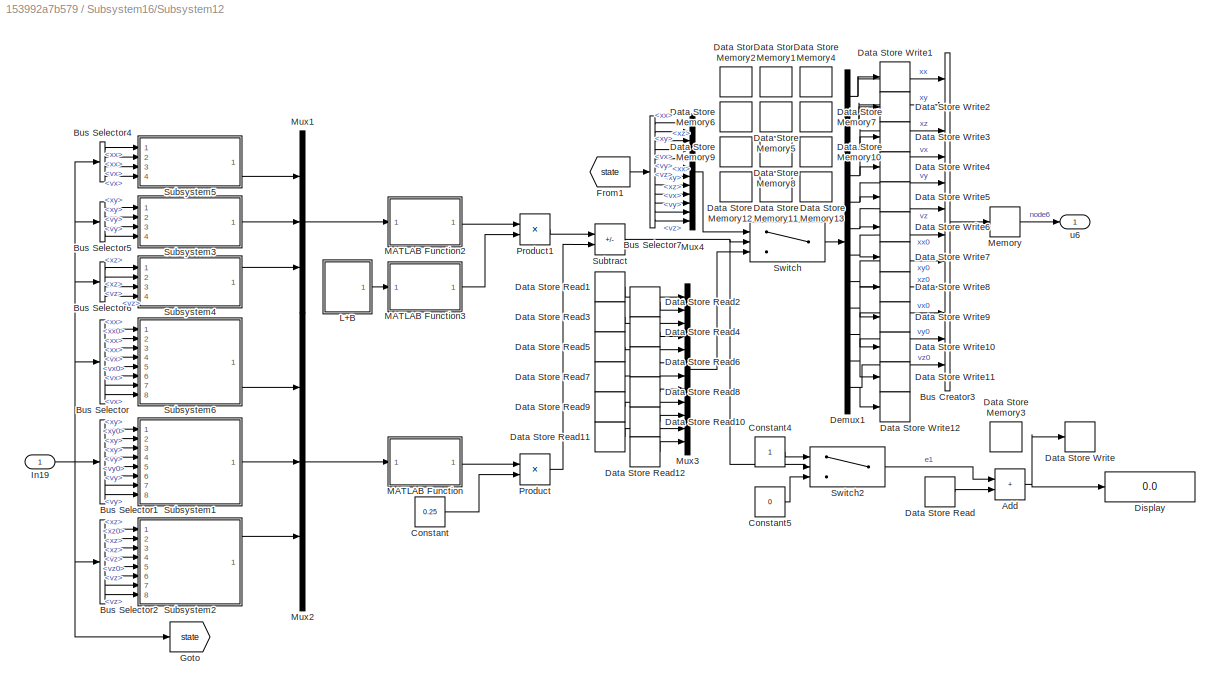
BLOCK [SubSystem] Subsystem16/Subsystem12
  Ports = [1, 1]
  RequestExecContextInheritance = off
BLOCK [Sum] Subsystem16/Subsystem12/Add
  IconShape = rectangular
  Ports = [2, 1]
BLOCK [BusCreator] Subsystem16/Subsystem12/Bus Creator3
  DisplayOption = bar
  InheritFromInputs = on
  Inputs = 12
  Ports = [12, 1]
BLOCK [BusSelector] Subsystem16/Subsystem12/Bus Selector
  OutputSignals = state(tk).node6.xx,state(tk).node6.xx0,state(tk).node1.xx,state(tk).node2.xx,state(tk).node6.vx,state(tk).node6.vx0,state(tk).node1.vx,state(tk).node2.vx
  Ports = [1, 8]
BLOCK [BusSelector] Subsystem16/Subsystem12/Bus Selector1
  OutputSignals = state(tk).node6.xy,state(tk).node6.xy0,state(tk).node1.xy,state(tk).node2.xy,state(tk).node6.vy,state(tk).node6.vy0,state(tk).node1.vy,state(tk).node2.vy
  Ports = [1, 8]
BLOCK [BusSelector] Subsystem16/Subsystem12/Bus Selector2
  OutputSignals = state(tk).node6.xz,state(tk).node6.xz0,state(tk).node1.xz,state(tk).node2.xz,state(tk).node6.vz,state(tk).node6.vz0,state(tk).node1.vz,state(tk).node2.vz
  Ports = [1, 8]
BLOCK [BusSelector] Subsystem16/Subsystem12/Bus Selector4
  OutputSignals = state(tk).node6.xx,state(t).node6.xx,state(tk).node6.vx,state(t).node6.vx
  Ports = [1, 4]
BLOCK [BusSelector] Subsystem16/Subsystem12/Bus Selector5
  OutputSignals = state(tk).node6.xy,state(t).node6.xy,state(tk).node6.vy,state(t).node6.vy
  Ports = [1, 4]
BLOCK [BusSelector] Subsystem16/Subsystem12/Bus Selector6
  OutputSignals = state(tk).node6.xz,state(t).node6.xz,state(tk).node6.vz,state(t).node6.vz
  Ports = [1, 4]
BLOCK [BusSelector] Subsystem16/Subsystem12/Bus Selector7
  OutputSignals = state(t).node6.xx,state(t).node6.xy,state(t).node6.xz,state(t).node6.vx,state(t).node6.vy,state(t).node6.vz,state(t).node0.xx,state(t).node0.xy,state(t).node0.xz,state(t).node0.vx,state(t).node0.vy,state(t).node0.vz
  Ports = [1, 12]
BLOCK [Constant] Subsystem16/Subsystem12/Constant
  Value = 0.25
BLOCK [Constant] Subsystem16/Subsystem12/Constant4
BLOCK [Constant] Subsystem16/Subsystem12/Constant5
  Value = 0
BLOCK [DataStoreMemory] Subsystem16/Subsystem12/Data Store Memory1
  DataStoreName = xyk6
  ReadBeforeWriteMsg = warning
  ShowAdditionalParam = off
  WriteAfterReadMsg = warning
  WriteAfterWriteMsg = warning
BLOCK [DataStoreMemory] Subsystem16/Subsystem12/Data Store Memory10
  DataStoreName = xzk60
  ReadBeforeWriteMsg = warning
  ShowAdditionalParam = off
  WriteAfterReadMsg = warning
  WriteAfterWriteMsg = warning
BLOCK [DataStoreMemory] Subsystem16/Subsystem12/Data Store Memory11
  DataStoreName = vyk60
  ReadBeforeWriteMsg = warning
  ShowAdditionalParam = off
  WriteAfterReadMsg = warning
  WriteAfterWriteMsg = warning
BLOCK [DataStoreMemory] Subsystem16/Subsystem12/Data Store Memory12
  DataStoreName = vxk60
  ReadBeforeWriteMsg = warning
  ShowAdditionalParam = off
  WriteAfterReadMsg = warning
  WriteAfterWriteMsg = warning
BLOCK [DataStoreMemory] Subsystem16/Subsystem12/Data Store Memory13
  DataStoreName = vzk60
  ReadBeforeWriteMsg = warning
  ShowAdditionalParam = off
  WriteAfterReadMsg = warning
  WriteAfterWriteMsg = warning
BLOCK [DataStoreMemory] Subsystem16/Subsystem12/Data Store Memory2
  DataStoreName = xxk6
  ReadBeforeWriteMsg = warning
  ShowAdditionalParam = off
  WriteAfterReadMsg = warning
  WriteAfterWriteMsg = warning
BLOCK [DataStoreMemory] Subsystem16/Subsystem12/Data Store Memory3
  DataStoreName = count6
  ReadBeforeWriteMsg = warning
  ShowAdditionalParam = off
  WriteAfterReadMsg = warning
  WriteAfterWriteMsg = warning
BLOCK [DataStoreMemory] Subsystem16/Subsystem12/Data Store Memory4
  DataStoreName = xzk6
  ReadBeforeWriteMsg = warning
  ShowAdditionalParam = off
  WriteAfterReadMsg = warning
  WriteAfterWriteMsg = warning
BLOCK [DataStoreMemory] Subsystem16/Subsystem12/Data Store Memory5
  DataStoreName = vyk6
  ReadBeforeWriteMsg = warning
  ShowAdditionalParam = off
  WriteAfterReadMsg = warning
  WriteAfterWriteMsg = warning
BLOCK [DataStoreMemory] Subsystem16/Subsystem12/Data Store Memory6
  DataStoreName = vxk6
  ReadBeforeWriteMsg = warning
  ShowAdditionalParam = off
  WriteAfterReadMsg = warning
  WriteAfterWriteMsg = warning
BLOCK [DataStoreMemory] Subsystem16/Subsystem12/Data Store Memory7
  DataStoreName = vzk6
  ReadBeforeWriteMsg = warning
  ShowAdditionalParam = off
  WriteAfterReadMsg = warning
  WriteAfterWriteMsg = warning
BLOCK [DataStoreMemory] Subsystem16/Subsystem12/Data Store Memory8
  DataStoreName = xyk60
  ReadBeforeWriteMsg = warning
  ShowAdditionalParam = off
  WriteAfterReadMsg = warning
  WriteAfterWriteMsg = warning
BLOCK [DataStoreMemory] Subsystem16/Subsystem12/Data Store Memory9
  DataStoreName = xxk60
  ReadBeforeWriteMsg = warning
  ShowAdditionalParam = off
  WriteAfterReadMsg = warning
  WriteAfterWriteMsg = warning
BLOCK [DataStoreRead] Subsystem16/Subsystem12/Data Store Read
  DataStoreName = count6
  IndexOptions = Index vector (dialog)
  Indices = 1
  OutputSizes = 1
  Ports = [0, 1]
BLOCK [DataStoreRead] Subsystem16/Subsystem12/Data Store Read1
  DataStoreName = xxk6
  IndexOptions = Index vector (dialog)
  Indices = 1
  OutputSizes = 1
  Ports = [0, 1]
BLOCK [DataStoreRead] Subsystem16/Subsystem12/Data Store Read10
  DataStoreName = vxk60
  IndexOptions = Index vector (dialog)
  Indices = 1
  OutputSizes = 1
  Ports = [0, 1]
BLOCK [DataStoreRead] Subsystem16/Subsystem12/Data Store Read11
  DataStoreName = vyk60
  IndexOptions = Index vector (dialog)
  Indices = 1
  OutputSizes = 1
  Ports = [0, 1]
BLOCK [DataStoreRead] Subsystem16/Subsystem12/Data Store Read12
  DataStoreName = vzk60
  IndexOptions = Index vector (dialog)
  Indices = 1
  OutputSizes = 1
  Ports = [0, 1]
BLOCK [DataStoreRead] Subsystem16/Subsystem12/Data Store Read2
  DataStoreName = xyk6
  IndexOptions = Index vector (dialog)
  Indices = 1
  OutputSizes = 1
  Ports = [0, 1]
BLOCK [DataStoreRead] Subsystem16/Subsystem12/Data Store Read3
  DataStoreName = xzk6
  IndexOptions = Index vector (dialog)
  Indices = 1
  OutputSizes = 1
  Ports = [0, 1]
BLOCK [DataStoreRead] Subsystem16/Subsystem12/Data Store Read4
  DataStoreName = vxk6
  IndexOptions = Index vector (dialog)
  Indices = 1
  OutputSizes = 1
  Ports = [0, 1]
BLOCK [DataStoreRead] Subsystem16/Subsystem12/Data Store Read5
  DataStoreName = vyk6
  IndexOptions = Index vector (dialog)
  Indices = 1
  OutputSizes = 1
  Ports = [0, 1]
BLOCK [DataStoreRead] Subsystem16/Subsystem12/Data Store Read6
  DataStoreName = vzk6
  IndexOptions = Index vector (dialog)
  Indices = 1
  OutputSizes = 1
  Ports = [0, 1]
BLOCK [DataStoreRead] Subsystem16/Subsystem12/Data Store Read7
  DataStoreName = xxk60
  IndexOptions = Index vector (dialog)
  Indices = 1
  OutputSizes = 1
  Ports = [0, 1]
BLOCK [DataStoreRead] Subsystem16/Subsystem12/Data Store Read8
  DataStoreName = xyk60
  IndexOptions = Index vector (dialog)
  Indices = 1
  OutputSizes = 1
  Ports = [0, 1]
BLOCK [DataStoreRead] Subsystem16/Subsystem12/Data Store Read9
  DataStoreName = xzk60
  IndexOptions = Index vector (dialog)
  Indices = 1
  OutputSizes = 1
  Ports = [0, 1]
BLOCK [DataStoreWrite] Subsystem16/Subsystem12/Data Store Write
  DataStoreName = count6
  IndexOptions = Index vector (dialog)
  Indices = 1
  OutputSizes = 1
  Ports = [1]
BLOCK [DataStoreWrite] Subsystem16/Subsystem12/Data Store Write1
  DataStoreName = xxk6
  IndexOptions = Index vector (dialog)
  Indices = 1
  OutputSizes = 1
  Ports = [1]
BLOCK [DataStoreWrite] Subsystem16/Subsystem12/Data Store Write10
  DataStoreName = vxk60
  IndexOptions = Index vector (dialog)
  Indices = 1
  OutputSizes = 1
  Ports = [1]
BLOCK [DataStoreWrite] Subsystem16/Subsystem12/Data Store Write11
  DataStoreName = vyk60
  IndexOptions = Index vector (dialog)
  Indices = 1
  OutputSizes = 1
  Ports = [1]
BLOCK [DataStoreWrite] Subsystem16/Subsystem12/Data Store Write12
  DataStoreName = vzk60
  IndexOptions = Index vector (dialog)
  Indices = 1
  OutputSizes = 1
  Ports = [1]
BLOCK [DataStoreWrite] Subsystem16/Subsystem12/Data Store Write2
  DataStoreName = xyk6
  IndexOptions = Index vector (dialog)
  Indices = 1
  OutputSizes = 1
  Ports = [1]
BLOCK [DataStoreWrite] Subsystem16/Subsystem12/Data Store Write3
  DataStoreName = xzk6
  IndexOptions = Index vector (dialog)
  Indices = 1
  OutputSizes = 1
  Ports = [1]
BLOCK [DataStoreWrite] Subsystem16/Subsystem12/Data Store Write4
  DataStoreName = vxk6
  IndexOptions = Index vector (dialog)
  Indices = 1
  OutputSizes = 1
  Ports = [1]
BLOCK [DataStoreWrite] Subsystem16/Subsystem12/Data Store Write5
  DataStoreName = vyk6
  IndexOptions = Index vector (dialog)
  Indices = 1
  OutputSizes = 1
  Ports = [1]
BLOCK [DataStoreWrite] Subsystem16/Subsystem12/Data Store Write6
  DataStoreName = vzk6
  IndexOptions = Index vector (dialog)
  Indices = 1
  OutputSizes = 1
  Ports = [1]
BLOCK [DataStoreWrite] Subsystem16/Subsystem12/Data Store Write7
  DataStoreName = xxk60
  IndexOptions = Index vector (dialog)
  Indices = 1
  OutputSizes = 1
  Ports = [1]
BLOCK [DataStoreWrite] Subsystem16/Subsystem12/Data Store Write8
  DataStoreName = xyk60
  IndexOptions = Index vector (dialog)
  Indices = 1
  OutputSizes = 1
  Ports = [1]
BLOCK [DataStoreWrite] Subsystem16/Subsystem12/Data Store Write9
  DataStoreName = xzk60
  IndexOptions = Index vector (dialog)
  Indices = 1
  OutputSizes = 1
  Ports = [1]
BLOCK [Demux] Subsystem16/Subsystem12/Demux1
  Outputs = 12
  Ports = [1, 12]
BLOCK [Display] Subsystem16/Subsystem12/Display
  Decimation = 1
  Ports = [1]
BLOCK [From] Subsystem16/Subsystem12/From1
  GotoTag = state
BLOCK [Goto] Subsystem16/Subsystem12/Goto
  GotoTag = state
BLOCK [Inport] Subsystem16/Subsystem12/In19
BLOCK [SubSystem] Subsystem16/Subsystem12/L+B
  Ports = [0, 1]
  RequestExecContextInheritance = off
BLOCK [Sum] Subsystem16/Subsystem12/L+B/Add
  IconShape = rectangular
  Ports = [2, 1]
BLOCK [Constant] Subsystem16/Subsystem12/L+B/Constant1
  Value = [2.5 0 0 0 0 0\n     0 2.8 0 0 0 0\n     0 0 2.8 0 0 0\n     0 0 0 2.5 0 0\n     0 0 0 0 2.7 0\n     0 0 0 0 0 2.7]
BLOCK [Constant] Subsystem16/Subsystem12/L+B/Constant2
  Value = [0.0 0.8 0.5 0.0 0.0 1.2\n     0.8 0.0 0.0 0.5 0.0 1.5\n     0.5 0.0 0.0 0.8 1.5 0.0\n     0.0 0.5 0.8 0.0 1.2 0.0\n     0.0 0.0 1.5 1.2 0.0 0.0\n     1.2 1.5 0.0 0.0 0.0 0.0]
BLOCK [Constant] Subsystem16/Subsystem12/L+B/Constant3
  Value = [0.0 0.0 0.0 0.0 0.0 0.0\n     0.0 0.0 0.0 0.0 0.0 0.0\n     0.0 0.0 0.0 0.0 0.0 0.0\n     0.0 0.0 0.0 0.0 0.0 0.0\n     0.0 0.0 0.0 0.0 1.5 0.0\n     0.0 0.0 0.0 0.0 0.0 1.5]
BLOCK [Sum] Subsystem16/Subsystem12/L+B/Subtract
  IconShape = rectangular
  Inputs = +-
  Ports = [2, 1]
BLOCK [Outport] Subsystem16/Subsystem12/L+B/u
BLOCK [SubSystem] Subsystem16/Subsystem12/MATLAB Function
  ErrorFcn = Stateflow.Translate.translate
  PermitHierarchicalResolution = ExplicitOnly
  Ports = [1, 1]
  RequestExecContextInheritance = off
  SFBlockType = MATLAB Function
  TreatAsAtomicUnit = on
BLOCK [Demux] Subsystem16/Subsystem12/MATLAB Function/ Demux 
  Outputs = 1
  Ports = [1, 1]
BLOCK [S-Function] Subsystem16/Subsystem12/MATLAB Function/ SFunction 
  EnableBusSupport = on
  FunctionName = sf_sfun
  PortCounts = [1 2]
  Ports = [1, 2]
  SFcnIsStateOwnerBlock = off
  SFunctionDeploymentMode = off
  Tag = Stateflow S-Function 297
BLOCK [Terminator] Subsystem16/Subsystem12/MATLAB Function/ Terminator 
BLOCK [Inport] Subsystem16/Subsystem12/MATLAB Function/u
BLOCK [Outport] Subsystem16/Subsystem12/MATLAB Function/y
BLOCK [SubSystem] Subsystem16/Subsystem12/MATLAB Function2
  ErrorFcn = Stateflow.Translate.translate
  PermitHierarchicalResolution = ExplicitOnly
  Ports = [1, 1]
  RequestExecContextInheritance = off
  SFBlockType = MATLAB Function
  TreatAsAtomicUnit = on
BLOCK [Demux] Subsystem16/Subsystem12/MATLAB Function2/ Demux 
  Outputs = 1
  Ports = [1, 1]
BLOCK [S-Function] Subsystem16/Subsystem12/MATLAB Function2/ SFunction 
  EnableBusSupport = on
  FunctionName = sf_sfun
  PortCounts = [1 2]
  Ports = [1, 2]
  SFcnIsStateOwnerBlock = off
  SFunctionDeploymentMode = off
  Tag = Stateflow S-Function 298
BLOCK [Terminator] Subsystem16/Subsystem12/MATLAB Function2/ Terminator 
BLOCK [Inport] Subsystem16/Subsystem12/MATLAB Function2/u
BLOCK [Outport] Subsystem16/Subsystem12/MATLAB Function2/y
BLOCK [SubSystem] Subsystem16/Subsystem12/MATLAB Function3
  ErrorFcn = Stateflow.Translate.translate
  PermitHierarchicalResolution = ExplicitOnly
  Ports = [1, 1]
  RequestExecContextInheritance = off
  SFBlockType = MATLAB Function
  TreatAsAtomicUnit = on
BLOCK [Demux] Subsystem16/Subsystem12/MATLAB Function3/ Demux 
  Outputs = 1
  Ports = [1, 1]
BLOCK [S-Function] Subsystem16/Subsystem12/MATLAB Function3/ SFunction 
  EnableBusSupport = on
  FunctionName = sf_sfun
  PortCounts = [1 2]
  Ports = [1, 2]
  SFcnIsStateOwnerBlock = off
  SFunctionDeploymentMode = off
  Tag = Stateflow S-Function 299
BLOCK [Terminator] Subsystem16/Subsystem12/MATLAB Function3/ Terminator 
BLOCK [Inport] Subsystem16/Subsystem12/MATLAB Function3/u
BLOCK [Outport] Subsystem16/Subsystem12/MATLAB Function3/y
BLOCK [Memory] Subsystem16/Subsystem12/Memory
BLOCK [Mux] Subsystem16/Subsystem12/Mux1
  DisplayOption = bar
  Inputs = 3
  Ports = [3, 1]
BLOCK [Mux] Subsystem16/Subsystem12/Mux2
  DisplayOption = bar
  Inputs = 3
  Ports = [3, 1]
BLOCK [Mux] Subsystem16/Subsystem12/Mux3
  DisplayOption = bar
  Inputs = 12
  Ports = [12, 1]
BLOCK [Mux] Subsystem16/Subsystem12/Mux4
  DisplayOption = bar
  Inputs = 12
  Ports = [12, 1]
BLOCK [Product] Subsystem16/Subsystem12/Product
  Ports = [2, 1]
BLOCK [Product] Subsystem16/Subsystem12/Product1
  Ports = [2, 1]
BLOCK [SubSystem] Subsystem16/Subsystem12/Subsystem1
  Ports = [8, 1]
  RequestExecContextInheritance = off
BLOCK [Sum] Subsystem16/Subsystem12/Subsystem1/Add
  IconShape = rectangular
  Ports = [2, 1]
BLOCK [Sum] Subsystem16/Subsystem12/Subsystem1/Add1
  IconShape = rectangular
  Inputs = -+
  Ports = [2, 1]
BLOCK [Sum] Subsystem16/Subsystem12/Subsystem1/Add10
  IconShape = rectangular
  Inputs = -+
  Ports = [2, 1]
BLOCK [Sum] Subsystem16/Subsystem12/Subsystem1/Add2
  IconShape = rectangular
  Inputs = +-
  Ports = [2, 1]
BLOCK [Sum] Subsystem16/Subsystem12/Subsystem1/Add4
  IconShape = rectangular
  Inputs = -+
  Ports = [2, 1]
BLOCK [Sum] Subsystem16/Subsystem12/Subsystem1/Add5
  IconShape = rectangular
  Inputs = +++
  Ports = [3, 1]
BLOCK [Sum] Subsystem16/Subsystem12/Subsystem1/Add6
  IconShape = rectangular
  Inputs = +-
  Ports = [2, 1]
BLOCK [Sum] Subsystem16/Subsystem12/Subsystem1/Add8
  IconShape = rectangular
  Inputs = +++
  Ports = [3, 1]
BLOCK [Sum] Subsystem16/Subsystem12/Subsystem1/Add9
  IconShape = rectangular
  Inputs = +-
  Ports = [2, 1]
BLOCK [Constant] Subsystem16/Subsystem12/Subsystem1/Constant
  Value = 0.75
BLOCK [Constant] Subsystem16/Subsystem12/Subsystem1/Constant1
  Value = 0.85
BLOCK [Constant] Subsystem16/Subsystem12/Subsystem1/Constant3
  Value = 1.2
BLOCK [Constant] Subsystem16/Subsystem12/Subsystem1/Constant4
  Value = 1.5
BLOCK [Constant] Subsystem16/Subsystem12/Subsystem1/Constant5
  Value = 1.5
BLOCK [Constant] Subsystem16/Subsystem12/Subsystem1/Constant6
  Value = 1.2
BLOCK [Constant] Subsystem16/Subsystem12/Subsystem1/Constant7
  Value = 1.5
BLOCK [Constant] Subsystem16/Subsystem12/Subsystem1/Constant8
  Value = 1.5
BLOCK [Product] Subsystem16/Subsystem12/Subsystem1/Product1
  Ports = [2, 1]
BLOCK [Product] Subsystem16/Subsystem12/Subsystem1/Product3
  Ports = [2, 1]
BLOCK [Product] Subsystem16/Subsystem12/Subsystem1/Product4
  Ports = [2, 1]
BLOCK [Product] Subsystem16/Subsystem12/Subsystem1/Product5
  Ports = [2, 1]
BLOCK [Product] Subsystem16/Subsystem12/Subsystem1/Product6
  Ports = [2, 1]
BLOCK [Product] Subsystem16/Subsystem12/Subsystem1/Product7
  Ports = [2, 1]
BLOCK [Product] Subsystem16/Subsystem12/Subsystem1/Product8
  Ports = [2, 1]
BLOCK [Product] Subsystem16/Subsystem12/Subsystem1/Product9
  Ports = [2, 1]
BLOCK [Outport] Subsystem16/Subsystem12/Subsystem1/utx
BLOCK [Inport] Subsystem16/Subsystem12/Subsystem1/vx0
  Port = 6
BLOCK [Inport] Subsystem16/Subsystem12/Subsystem1/vx1
  Port = 7
BLOCK [Inport] Subsystem16/Subsystem12/Subsystem1/vx2
  Port = 8
BLOCK [Inport] Subsystem16/Subsystem12/Subsystem1/vx6
  Port = 5
BLOCK [Inport] Subsystem16/Subsystem12/Subsystem1/xx0
  Port = 2
BLOCK [Inport] Subsystem16/Subsystem12/Subsystem1/xx1
  Port = 3
BLOCK [Inport] Subsystem16/Subsystem12/Subsystem1/xx2
  Port = 4
BLOCK [Inport] Subsystem16/Subsystem12/Subsystem1/xx6
BLOCK [SubSystem] Subsystem16/Subsystem12/Subsystem2
  Ports = [8, 1]
  RequestExecContextInheritance = off
BLOCK [Sum] Subsystem16/Subsystem12/Subsystem2/Add
  IconShape = rectangular
  Ports = [2, 1]
BLOCK [Sum] Subsystem16/Subsystem12/Subsystem2/Add1
  IconShape = rectangular
  Inputs = -+
  Ports = [2, 1]
BLOCK [Sum] Subsystem16/Subsystem12/Subsystem2/Add10
  IconShape = rectangular
  Inputs = -+
  Ports = [2, 1]
BLOCK [Sum] Subsystem16/Subsystem12/Subsystem2/Add2
  IconShape = rectangular
  Inputs = +-
  Ports = [2, 1]
BLOCK [Sum] Subsystem16/Subsystem12/Subsystem2/Add4
  IconShape = rectangular
  Inputs = -+
  Ports = [2, 1]
BLOCK [Sum] Subsystem16/Subsystem12/Subsystem2/Add5
  IconShape = rectangular
  Inputs = +++
  Ports = [3, 1]
BLOCK [Sum] Subsystem16/Subsystem12/Subsystem2/Add6
  IconShape = rectangular
  Inputs = +-
  Ports = [2, 1]
BLOCK [Sum] Subsystem16/Subsystem12/Subsystem2/Add8
  IconShape = rectangular
  Inputs = +++
  Ports = [3, 1]
BLOCK [Sum] Subsystem16/Subsystem12/Subsystem2/Add9
  IconShape = rectangular
  Inputs = +-
  Ports = [2, 1]
BLOCK [Constant] Subsystem16/Subsystem12/Subsystem2/Constant
  Value = 0.75
BLOCK [Constant] Subsystem16/Subsystem12/Subsystem2/Constant1
  Value = 0.85
BLOCK [Constant] Subsystem16/Subsystem12/Subsystem2/Constant3
  Value = 1.2
BLOCK [Constant] Subsystem16/Subsystem12/Subsystem2/Constant4
  Value = 1.5
BLOCK [Constant] Subsystem16/Subsystem12/Subsystem2/Constant5
  Value = 1.5
BLOCK [Constant] Subsystem16/Subsystem12/Subsystem2/Constant6
  Value = 1.2
BLOCK [Constant] Subsystem16/Subsystem12/Subsystem2/Constant7
  Value = 1.5
BLOCK [Constant] Subsystem16/Subsystem12/Subsystem2/Constant8
  Value = 1.5
BLOCK [Product] Subsystem16/Subsystem12/Subsystem2/Product1
  Ports = [2, 1]
BLOCK [Product] Subsystem16/Subsystem12/Subsystem2/Product3
  Ports = [2, 1]
BLOCK [Product] Subsystem16/Subsystem12/Subsystem2/Product4
  Ports = [2, 1]
BLOCK [Product] Subsystem16/Subsystem12/Subsystem2/Product5
  Ports = [2, 1]
BLOCK [Product] Subsystem16/Subsystem12/Subsystem2/Product6
  Ports = [2, 1]
BLOCK [Product] Subsystem16/Subsystem12/Subsystem2/Product7
  Ports = [2, 1]
BLOCK [Product] Subsystem16/Subsystem12/Subsystem2/Product8
  Ports = [2, 1]
BLOCK [Product] Subsystem16/Subsystem12/Subsystem2/Product9
  Ports = [2, 1]
BLOCK [Outport] Subsystem16/Subsystem12/Subsystem2/utx
BLOCK [Inport] Subsystem16/Subsystem12/Subsystem2/vx0
  Port = 6
BLOCK [Inport] Subsystem16/Subsystem12/Subsystem2/vx1
  Port = 7
BLOCK [Inport] Subsystem16/Subsystem12/Subsystem2/vx2
  Port = 8
BLOCK [Inport] Subsystem16/Subsystem12/Subsystem2/vx6
  Port = 5
BLOCK [Inport] Subsystem16/Subsystem12/Subsystem2/xx0
  Port = 2
BLOCK [Inport] Subsystem16/Subsystem12/Subsystem2/xx1
  Port = 3
BLOCK [Inport] Subsystem16/Subsystem12/Subsystem2/xx2
  Port = 4
BLOCK [Inport] Subsystem16/Subsystem12/Subsystem2/xx6
BLOCK [SubSystem] Subsystem16/Subsystem12/Subsystem3
  Ports = [4, 1]
  RequestExecContextInheritance = off
BLOCK [Sum] Subsystem16/Subsystem12/Subsystem3/Add
  IconShape = rectangular
  Ports = [2, 1]
BLOCK [Sum] Subsystem16/Subsystem12/Subsystem3/Add4
  IconShape = rectangular
  Inputs = -+
  Ports = [2, 1]
BLOCK [Sum] Subsystem16/Subsystem12/Subsystem3/Add8
  IconShape = rectangular
  Inputs = -+
  Ports = [2, 1]
BLOCK [Constant] Subsystem16/Subsystem12/Subsystem3/Constant
  Value = 0.75
BLOCK [Constant] Subsystem16/Subsystem12/Subsystem3/Constant1
  Value = 0.85
BLOCK [Product] Subsystem16/Subsystem12/Subsystem3/Product1
  Ports = [2, 1]
BLOCK [Product] Subsystem16/Subsystem12/Subsystem3/Product6
  Ports = [2, 1]
BLOCK [Outport] Subsystem16/Subsystem12/Subsystem3/ey
BLOCK [Inport] Subsystem16/Subsystem12/Subsystem3/vy
  Port = 4
BLOCK [Inport] Subsystem16/Subsystem12/Subsystem3/vyk
  Port = 3
BLOCK [Inport] Subsystem16/Subsystem12/Subsystem3/xy
  Port = 2
BLOCK [Inport] Subsystem16/Subsystem12/Subsystem3/xyk
BLOCK [SubSystem] Subsystem16/Subsystem12/Subsystem4
  Ports = [4, 1]
  RequestExecContextInheritance = off
BLOCK [Sum] Subsystem16/Subsystem12/Subsystem4/Add
  IconShape = rectangular
  Ports = [2, 1]
BLOCK [Sum] Subsystem16/Subsystem12/Subsystem4/Add4
  IconShape = rectangular
  Inputs = -+
  Ports = [2, 1]
BLOCK [Sum] Subsystem16/Subsystem12/Subsystem4/Add8
  IconShape = rectangular
  Inputs = -+
  Ports = [2, 1]
BLOCK [Constant] Subsystem16/Subsystem12/Subsystem4/Constant
  Value = 0.75
BLOCK [Constant] Subsystem16/Subsystem12/Subsystem4/Constant1
  Value = 0.85
BLOCK [Product] Subsystem16/Subsystem12/Subsystem4/Product1
  Ports = [2, 1]
BLOCK [Product] Subsystem16/Subsystem12/Subsystem4/Product6
  Ports = [2, 1]
BLOCK [Outport] Subsystem16/Subsystem12/Subsystem4/ez
BLOCK [Inport] Subsystem16/Subsystem12/Subsystem4/vz
  Port = 4
BLOCK [Inport] Subsystem16/Subsystem12/Subsystem4/vzk
  Port = 3
BLOCK [Inport] Subsystem16/Subsystem12/Subsystem4/xz
  Port = 2
BLOCK [Inport] Subsystem16/Subsystem12/Subsystem4/xzk
BLOCK [SubSystem] Subsystem16/Subsystem12/Subsystem5
  Ports = [4, 1]
  RequestExecContextInheritance = off
BLOCK [Sum] Subsystem16/Subsystem12/Subsystem5/Add
  IconShape = rectangular
  Ports = [2, 1]
BLOCK [Sum] Subsystem16/Subsystem12/Subsystem5/Add4
  IconShape = rectangular
  Inputs = -+
  Ports = [2, 1]
BLOCK [Sum] Subsystem16/Subsystem12/Subsystem5/Add8
  IconShape = rectangular
  Inputs = -+
  Ports = [2, 1]
BLOCK [Constant] Subsystem16/Subsystem12/Subsystem5/Constant
  Value = 0.75
BLOCK [Constant] Subsystem16/Subsystem12/Subsystem5/Constant1
  Value = 0.85
BLOCK [Product] Subsystem16/Subsystem12/Subsystem5/Product1
  Ports = [2, 1]
BLOCK [Product] Subsystem16/Subsystem12/Subsystem5/Product6
  Ports = [2, 1]
BLOCK [Outport] Subsystem16/Subsystem12/Subsystem5/ex
BLOCK [Inport] Subsystem16/Subsystem12/Subsystem5/vx
  Port = 4
BLOCK [Inport] Subsystem16/Subsystem12/Subsystem5/vxk
  Port = 3
BLOCK [Inport] Subsystem16/Subsystem12/Subsystem5/xx
  Port = 2
BLOCK [Inport] Subsystem16/Subsystem12/Subsystem5/xxk
BLOCK [SubSystem] Subsystem16/Subsystem12/Subsystem6
  Ports = [8, 1]
  RequestExecContextInheritance = off
BLOCK [Sum] Subsystem16/Subsystem12/Subsystem6/Add
  IconShape = rectangular
  Ports = [2, 1]
BLOCK [Sum] Subsystem16/Subsystem12/Subsystem6/Add1
  IconShape = rectangular
  Inputs = -+
  Ports = [2, 1]
BLOCK [Sum] Subsystem16/Subsystem12/Subsystem6/Add10
  IconShape = rectangular
  Inputs = -+
  Ports = [2, 1]
BLOCK [Sum] Subsystem16/Subsystem12/Subsystem6/Add2
  IconShape = rectangular
  Inputs = +-
  Ports = [2, 1]
BLOCK [Sum] Subsystem16/Subsystem12/Subsystem6/Add4
  IconShape = rectangular
  Inputs = -+
  Ports = [2, 1]
BLOCK [Sum] Subsystem16/Subsystem12/Subsystem6/Add5
  IconShape = rectangular
  Inputs = +++
  Ports = [3, 1]
BLOCK [Sum] Subsystem16/Subsystem12/Subsystem6/Add6
  IconShape = rectangular
  Inputs = +-
  Ports = [2, 1]
BLOCK [Sum] Subsystem16/Subsystem12/Subsystem6/Add8
  IconShape = rectangular
  Inputs = +++
  Ports = [3, 1]
BLOCK [Sum] Subsystem16/Subsystem12/Subsystem6/Add9
  IconShape = rectangular
  Inputs = +-
  Ports = [2, 1]
BLOCK [Constant] Subsystem16/Subsystem12/Subsystem6/Constant
  Value = 0.75
BLOCK [Constant] Subsystem16/Subsystem12/Subsystem6/Constant1
  Value = 0.85
BLOCK [Constant] Subsystem16/Subsystem12/Subsystem6/Constant3
  Value = 1.2
BLOCK [Constant] Subsystem16/Subsystem12/Subsystem6/Constant4
  Value = 1.5
BLOCK [Constant] Subsystem16/Subsystem12/Subsystem6/Constant5
  Value = 1.5
BLOCK [Constant] Subsystem16/Subsystem12/Subsystem6/Constant6
  Value = 1.2
BLOCK [Constant] Subsystem16/Subsystem12/Subsystem6/Constant7
  Value = 1.5
BLOCK [Constant] Subsystem16/Subsystem12/Subsystem6/Constant8
  Value = 1.5
BLOCK [Product] Subsystem16/Subsystem12/Subsystem6/Product1
  Ports = [2, 1]
BLOCK [Product] Subsystem16/Subsystem12/Subsystem6/Product3
  Ports = [2, 1]
BLOCK [Product] Subsystem16/Subsystem12/Subsystem6/Product4
  Ports = [2, 1]
BLOCK [Product] Subsystem16/Subsystem12/Subsystem6/Product5
  Ports = [2, 1]
BLOCK [Product] Subsystem16/Subsystem12/Subsystem6/Product6
  Ports = [2, 1]
BLOCK [Product] Subsystem16/Subsystem12/Subsystem6/Product7
  Ports = [2, 1]
BLOCK [Product] Subsystem16/Subsystem12/Subsystem6/Product8
  Ports = [2, 1]
BLOCK [Product] Subsystem16/Subsystem12/Subsystem6/Product9
  Ports = [2, 1]
BLOCK [Outport] Subsystem16/Subsystem12/Subsystem6/utx
BLOCK [Inport] Subsystem16/Subsystem12/Subsystem6/vx0
  Port = 6
BLOCK [Inport] Subsystem16/Subsystem12/Subsystem6/vx1
  Port = 7
BLOCK [Inport] Subsystem16/Subsystem12/Subsystem6/vx2
  Port = 8
BLOCK [Inport] Subsystem16/Subsystem12/Subsystem6/vx6
  Port = 5
BLOCK [Inport] Subsystem16/Subsystem12/Subsystem6/xx0
  Port = 2
BLOCK [Inport] Subsystem16/Subsystem12/Subsystem6/xx1
  Port = 3
BLOCK [Inport] Subsystem16/Subsystem12/Subsystem6/xx2
  Port = 4
BLOCK [Inport] Subsystem16/Subsystem12/Subsystem6/xx6
BLOCK [Sum] Subsystem16/Subsystem12/Subtract
  IconShape = rectangular
  Inputs = +-
  Ports = [2, 1]
BLOCK [Switch] Subsystem16/Subsystem12/Switch
  Criteria = u2 > Threshold
  InputSameDT = off
  SaturateOnIntegerOverflow = off
BLOCK [Switch] Subsystem16/Subsystem12/Switch2
  Criteria = u2 > Threshold
  InputSameDT = off
  SaturateOnIntegerOverflow = off
BLOCK [Outport] Subsystem16/Subsystem12/u6
BLOCK [SubSystem] Subsystem16/Subsystem14
  Ports = [1, 1]
  RequestExecContextInheritance = off
BLOCK [Sum] Subsystem16/Subsystem14/Add
  IconShape = rectangular
  Ports = [2, 1]
BLOCK [BusCreator] Subsystem16/Subsystem14/Bus Creator2
  DisplayOption = bar
  InheritFromInputs = on
  Inputs = 6
  Ports = [6, 1]
BLOCK [BusSelector] Subsystem16/Subsystem14/Bus Selector
  OutputSignals = state(tk).node1.xx,state(tk).node2.xx,state(tk).node3.xx,state(tk).node6.xx,state(tk).node1.vx,state(tk).node2.vx,state(tk).node3.vx,state(tk).node6.vx
  Ports = [1, 8]
BLOCK [BusSelector] Subsystem16/Subsystem14/Bus Selector1
  OutputSignals = state(tk).node1.xy,state(tk).node2.xy,state(tk).node3.xy,state(tk).node6.xy,state(tk).node1.vy,state(tk).node2.vy,state(tk).node3.vy,state(tk).node6.vy
  Ports = [1, 8]
BLOCK [BusSelector] Subsystem16/Subsystem14/Bus Selector2
  OutputSignals = state(tk).node1.xz,state(tk).node2.xz,state(tk).node3.xz,state(tk).node6.xz,state(tk).node1.vz,state(tk).node2.vz,state(tk).node3.vz,state(tk).node6.vz
  Ports = [1, 8]
BLOCK [BusSelector] Subsystem16/Subsystem14/Bus Selector3
  OutputSignals = state(t).node1
  Ports = [1, 1]
BLOCK [BusSelector] Subsystem16/Subsystem14/Bus Selector4
  OutputSignals = state(tk).node1.xx,state(t).node1.xx,state(tk).node1.vx,state(t).node1.vx
  Ports = [1, 4]
BLOCK [BusSelector] Subsystem16/Subsystem14/Bus Selector5
  OutputSignals = state(tk).node1.xy,state(t).node1.xy,state(tk).node1.vy,state(t).node1.vy
  Ports = [1, 4]
BLOCK [BusSelector] Subsystem16/Subsystem14/Bus Selector6
  OutputSignals = state(tk).node1.xz,state(t).node1.xz,state(tk).node1.vz,state(t).node1.vz
  Ports = [1, 4]
BLOCK [Constant] Subsystem16/Subsystem14/Constant
  Value = 0.25
BLOCK [Constant] Subsystem16/Subsystem14/Constant4
BLOCK [Constant] Subsystem16/Subsystem14/Constant5
  Value = 0
BLOCK [DataStoreMemory] Subsystem16/Subsystem14/Data Store Memory1
  DataStoreName = xyk1
  ReadBeforeWriteMsg = warning
  ShowAdditionalParam = off
  WriteAfterReadMsg = warning
  WriteAfterWriteMsg = warning
BLOCK [DataStoreMemory] Subsystem16/Subsystem14/Data Store Memory2
  DataStoreName = xxk1
  ReadBeforeWriteMsg = warning
  ShowAdditionalParam = off
  WriteAfterReadMsg = warning
  WriteAfterWriteMsg = warning
BLOCK [DataStoreMemory] Subsystem16/Subsystem14/Data Store Memory3
  DataStoreName = count1
  ReadBeforeWriteMsg = warning
  ShowAdditionalParam = off
  WriteAfterReadMsg = warning
  WriteAfterWriteMsg = warning
BLOCK [DataStoreMemory] Subsystem16/Subsystem14/Data Store Memory4
  DataStoreName = xzk1
  ReadBeforeWriteMsg = warning
  ShowAdditionalParam = off
  WriteAfterReadMsg = warning
  WriteAfterWriteMsg = warning
BLOCK [DataStoreMemory] Subsystem16/Subsystem14/Data Store Memory5
  DataStoreName = vyk1
  ReadBeforeWriteMsg = warning
  ShowAdditionalParam = off
  WriteAfterReadMsg = warning
  WriteAfterWriteMsg = warning
BLOCK [DataStoreMemory] Subsystem16/Subsystem14/Data Store Memory6
  DataStoreName = vxk1
  ReadBeforeWriteMsg = warning
  ShowAdditionalParam = off
  WriteAfterReadMsg = warning
  WriteAfterWriteMsg = warning
BLOCK [DataStoreMemory] Subsystem16/Subsystem14/Data Store Memory7
  DataStoreName = vzk1
  ReadBeforeWriteMsg = warning
  ShowAdditionalParam = off
  WriteAfterReadMsg = warning
  WriteAfterWriteMsg = warning
BLOCK [DataStoreRead] Subsystem16/Subsystem14/Data Store Read
  DataStoreName = count1
  IndexOptions = Index vector (dialog)
  Indices = 1
  OutputSizes = 1
  Ports = [0, 1]
BLOCK [DataStoreRead] Subsystem16/Subsystem14/Data Store Read1
  DataStoreName = xxk1
  IndexOptions = Index vector (dialog)
  Indices = 1
  OutputSizes = 1
  Ports = [0, 1]
BLOCK [DataStoreRead] Subsystem16/Subsystem14/Data Store Read2
  DataStoreName = xyk1
  IndexOptions = Index vector (dialog)
  Indices = 1
  OutputSizes = 1
  Ports = [0, 1]
BLOCK [DataStoreRead] Subsystem16/Subsystem14/Data Store Read3
  DataStoreName = xzk1
  IndexOptions = Index vector (dialog)
  Indices = 1
  OutputSizes = 1
  Ports = [0, 1]
BLOCK [DataStoreRead] Subsystem16/Subsystem14/Data Store Read4
  DataStoreName = vxk1
  IndexOptions = Index vector (dialog)
  Indices = 1
  OutputSizes = 1
  Ports = [0, 1]
BLOCK [DataStoreRead] Subsystem16/Subsystem14/Data Store Read5
  DataStoreName = vyk1
  IndexOptions = Index vector (dialog)
  Indices = 1
  OutputSizes = 1
  Ports = [0, 1]
BLOCK [DataStoreRead] Subsystem16/Subsystem14/Data Store Read6
  DataStoreName = vzk1
  IndexOptions = Index vector (dialog)
  Indices = 1
  OutputSizes = 1
  Ports = [0, 1]
BLOCK [DataStoreWrite] Subsystem16/Subsystem14/Data Store Write
  DataStoreName = count1
  IndexOptions = Index vector (dialog)
  Indices = 1
  OutputSizes = 1
  Ports = [1]
BLOCK [DataStoreWrite] Subsystem16/Subsystem14/Data Store Write1
  DataStoreName = xxk1
  IndexOptions = Index vector (dialog)
  Indices = 1
  OutputSizes = 1
  Ports = [1]
BLOCK [DataStoreWrite] Subsystem16/Subsystem14/Data Store Write2
  DataStoreName = xyk1
  IndexOptions = Index vector (dialog)
  Indices = 1
  OutputSizes = 1
  Ports = [1]
BLOCK [DataStoreWrite] Subsystem16/Subsystem14/Data Store Write3
  DataStoreName = xzk1
  IndexOptions = Index vector (dialog)
  Indices = 1
  OutputSizes = 1
  Ports = [1]
BLOCK [DataStoreWrite] Subsystem16/Subsystem14/Data Store Write4
  DataStoreName = vxk1
  IndexOptions = Index vector (dialog)
  Indices = 1
  OutputSizes = 1
  Ports = [1]
BLOCK [DataStoreWrite] Subsystem16/Subsystem14/Data Store Write5
  DataStoreName = vyk1
  IndexOptions = Index vector (dialog)
  Indices = 1
  OutputSizes = 1
  Ports = [1]
BLOCK [DataStoreWrite] Subsystem16/Subsystem14/Data Store Write6
  DataStoreName = vzk1
  IndexOptions = Index vector (dialog)
  Indices = 1
  OutputSizes = 1
  Ports = [1]
BLOCK [Demux] Subsystem16/Subsystem14/Demux
  Outputs = 6
  Ports = [1, 6]
BLOCK [Display] Subsystem16/Subsystem14/Display
  Decimation = 1
  Ports = [1]
BLOCK [From] Subsystem16/Subsystem14/From
  GotoTag = state
BLOCK [Goto] Subsystem16/Subsystem14/Goto
  GotoTag = state
BLOCK [Inport] Subsystem16/Subsystem14/In19
BLOCK [SubSystem] Subsystem16/Subsystem14/L+B
  Ports = [0, 1]
  RequestExecContextInheritance = off
BLOCK [Sum] Subsystem16/Subsystem14/L+B/Add
  IconShape = rectangular
  Ports = [2, 1]
BLOCK [Constant] Subsystem16/Subsystem14/L+B/Constant1
  Value = [2.5 0 0 0 0 0\n     0 2.8 0 0 0 0\n     0 0 2.8 0 0 0\n     0 0 0 2.5 0 0\n     0 0 0 0 2.7 0\n     0 0 0 0 0 2.7]
BLOCK [Constant] Subsystem16/Subsystem14/L+B/Constant2
  Value = [0.0 0.8 0.5 0.0 0.0 1.2\n     0.8 0.0 0.0 0.5 0.0 1.5\n     0.5 0.0 0.0 0.8 1.5 0.0\n     0.0 0.5 0.8 0.0 1.2 0.0\n     0.0 0.0 1.5 1.2 0.0 0.0\n     1.2 1.5 0.0 0.0 0.0 0.0]
BLOCK [Constant] Subsystem16/Subsystem14/L+B/Constant3
  Value = [0.0 0.0 0.0 0.0 0.0 0.0\n     0.0 0.0 0.0 0.0 0.0 0.0\n     0.0 0.0 0.0 0.0 0.0 0.0\n     0.0 0.0 0.0 0.0 0.0 0.0\n     0.0 0.0 0.0 0.0 1.5 0.0\n     0.0 0.0 0.0 0.0 0.0 1.5]
BLOCK [Sum] Subsystem16/Subsystem14/L+B/Subtract
  IconShape = rectangular
  Inputs = +-
  Ports = [2, 1]
BLOCK [Outport] Subsystem16/Subsystem14/L+B/u
BLOCK [SubSystem] Subsystem16/Subsystem14/MATLAB Function
  ErrorFcn = Stateflow.Translate.translate
  PermitHierarchicalResolution = ExplicitOnly
  Ports = [1, 1]
  RequestExecContextInheritance = off
  SFBlockType = MATLAB Function
  TreatAsAtomicUnit = on
BLOCK [Demux] Subsystem16/Subsystem14/MATLAB Function/ Demux 
  Outputs = 1
  Ports = [1, 1]
BLOCK [S-Function] Subsystem16/Subsystem14/MATLAB Function/ SFunction 
  EnableBusSupport = on
  FunctionName = sf_sfun
  PortCounts = [1 2]
  Ports = [1, 2]
  SFcnIsStateOwnerBlock = off
  SFunctionDeploymentMode = off
  Tag = Stateflow S-Function 300
BLOCK [Terminator] Subsystem16/Subsystem14/MATLAB Function/ Terminator 
BLOCK [Inport] Subsystem16/Subsystem14/MATLAB Function/u
BLOCK [Outport] Subsystem16/Subsystem14/MATLAB Function/y
BLOCK [SubSystem] Subsystem16/Subsystem14/MATLAB Function2
  ErrorFcn = Stateflow.Translate.translate
  PermitHierarchicalResolution = ExplicitOnly
  Ports = [1, 1]
  RequestExecContextInheritance = off
  SFBlockType = MATLAB Function
  TreatAsAtomicUnit = on
BLOCK [Demux] Subsystem16/Subsystem14/MATLAB Function2/ Demux 
  Outputs = 1
  Ports = [1, 1]
BLOCK [S-Function] Subsystem16/Subsystem14/MATLAB Function2/ SFunction 
  EnableBusSupport = on
  FunctionName = sf_sfun
  PortCounts = [1 2]
  Ports = [1, 2]
  SFcnIsStateOwnerBlock = off
  SFunctionDeploymentMode = off
  Tag = Stateflow S-Function 301
BLOCK [Terminator] Subsystem16/Subsystem14/MATLAB Function2/ Terminator 
BLOCK [Inport] Subsystem16/Subsystem14/MATLAB Function2/u
BLOCK [Outport] Subsystem16/Subsystem14/MATLAB Function2/y
BLOCK [SubSystem] Subsystem16/Subsystem14/MATLAB Function3
  ErrorFcn = Stateflow.Translate.translate
  PermitHierarchicalResolution = ExplicitOnly
  Ports = [1, 1]
  RequestExecContextInheritance = off
  SFBlockType = MATLAB Function
  TreatAsAtomicUnit = on
BLOCK [Demux] Subsystem16/Subsystem14/MATLAB Function3/ Demux 
  Outputs = 1
  Ports = [1, 1]
BLOCK [S-Function] Subsystem16/Subsystem14/MATLAB Function3/ SFunction 
  EnableBusSupport = on
  FunctionName = sf_sfun
  PortCounts = [1 2]
  Ports = [1, 2]
  SFcnIsStateOwnerBlock = off
  SFunctionDeploymentMode = off
  Tag = Stateflow S-Function 302
BLOCK [Terminator] Subsystem16/Subsystem14/MATLAB Function3/ Terminator 
BLOCK [Inport] Subsystem16/Subsystem14/MATLAB Function3/u
BLOCK [Outport] Subsystem16/Subsystem14/MATLAB Function3/y
BLOCK [Memory] Subsystem16/Subsystem14/Memory
BLOCK [Mux] Subsystem16/Subsystem14/Mux
  DisplayOption = bar
  Inputs = 6
  Ports = [6, 1]
BLOCK [Mux] Subsystem16/Subsystem14/Mux1
  DisplayOption = bar
  Inputs = 3
  Ports = [3, 1]
BLOCK [Mux] Subsystem16/Subsystem14/Mux2
  DisplayOption = bar
  Inputs = 3
  Ports = [3, 1]
BLOCK [Product] Subsystem16/Subsystem14/Product
  Ports = [2, 1]
BLOCK [Product] Subsystem16/Subsystem14/Product1
  Ports = [2, 1]
BLOCK [Scope] Subsystem16/Subsystem14/Scope1
  Floating = off
  NumInputPorts = 1
  Ports = [1]
  ScopeSpecificationString = Simulink.scopes.TimeScopeBlockCfg('CurrentConfiguration', extmgr.ConfigurationSet(extmgr.Configuration('Core','General UI',true),extmgr.Configuration('Core','Source UI',true),extmgr.Configuration('Sources','WiredSimulink',true,'DataLoggingVariableName','ScopeData2'),extmgr.Configuration('Visuals','Time Domain',true,'SerializedDisplays',{struct('MinYLimReal','5.18067','MaxYLimReal','7.18067','YLabe...<+1386ch>
BLOCK [SubSystem] Subsystem16/Subsystem14/Subsystem1
  Ports = [8, 1]
  RequestExecContextInheritance = off
BLOCK [Sum] Subsystem16/Subsystem14/Subsystem1/Add
  IconShape = rectangular
  Ports = [2, 1]
BLOCK [Sum] Subsystem16/Subsystem14/Subsystem1/Add1
  IconShape = rectangular
  Inputs = -+
  Ports = [2, 1]
BLOCK [Sum] Subsystem16/Subsystem14/Subsystem1/Add2
  IconShape = rectangular
  Inputs = +-
  Ports = [2, 1]
BLOCK [Sum] Subsystem16/Subsystem14/Subsystem1/Add4
  IconShape = rectangular
  Inputs = -+
  Ports = [2, 1]
BLOCK [Sum] Subsystem16/Subsystem14/Subsystem1/Add5
  IconShape = rectangular
  Inputs = +++
  Ports = [3, 1]
BLOCK [Sum] Subsystem16/Subsystem14/Subsystem1/Add6
  IconShape = rectangular
  Inputs = -+
  Ports = [2, 1]
BLOCK [Sum] Subsystem16/Subsystem14/Subsystem1/Add7
  IconShape = rectangular
  Inputs = +-
  Ports = [2, 1]
BLOCK [Sum] Subsystem16/Subsystem14/Subsystem1/Add8
  IconShape = rectangular
  Inputs = -+
  Ports = [2, 1]
BLOCK [Sum] Subsystem16/Subsystem14/Subsystem1/Add9
  IconShape = rectangular
  Inputs = +++
  Ports = [3, 1]
BLOCK [Constant] Subsystem16/Subsystem14/Subsystem1/Constant
  Value = 0.75
BLOCK [Constant] Subsystem16/Subsystem14/Subsystem1/Constant1
  Value = 0.85
BLOCK [Constant] Subsystem16/Subsystem14/Subsystem1/Constant3
  Value = 0.5
BLOCK [Constant] Subsystem16/Subsystem14/Subsystem1/Constant4
  Value = 0.8
BLOCK [Constant] Subsystem16/Subsystem14/Subsystem1/Constant5
  Value = 1.2
BLOCK [Constant] Subsystem16/Subsystem14/Subsystem1/Constant7
  Value = 0.5
BLOCK [Constant] Subsystem16/Subsystem14/Subsystem1/Constant8
  Value = 0.8
BLOCK [Constant] Subsystem16/Subsystem14/Subsystem1/Constant9
  Value = 1.2
BLOCK [Product] Subsystem16/Subsystem14/Subsystem1/Product1
  Ports = [2, 1]
BLOCK [Product] Subsystem16/Subsystem14/Subsystem1/Product3
  Ports = [2, 1]
BLOCK [Product] Subsystem16/Subsystem14/Subsystem1/Product4
  Ports = [2, 1]
BLOCK [Product] Subsystem16/Subsystem14/Subsystem1/Product5
  Ports = [2, 1]
BLOCK [Product] Subsystem16/Subsystem14/Subsystem1/Product6
  Ports = [2, 1]
BLOCK [Product] Subsystem16/Subsystem14/Subsystem1/Product7
  Ports = [2, 1]
BLOCK [Product] Subsystem16/Subsystem14/Subsystem1/Product8
  Ports = [2, 1]
BLOCK [Product] Subsystem16/Subsystem14/Subsystem1/Product9
  Ports = [2, 1]
BLOCK [Outport] Subsystem16/Subsystem14/Subsystem1/p2y
BLOCK [Inport] Subsystem16/Subsystem14/Subsystem1/vy1
  Port = 5
BLOCK [Inport] Subsystem16/Subsystem14/Subsystem1/vy2
  Port = 6
BLOCK [Inport] Subsystem16/Subsystem14/Subsystem1/vy3
  Port = 7
BLOCK [Inport] Subsystem16/Subsystem14/Subsystem1/vy6
  Port = 8
BLOCK [Inport] Subsystem16/Subsystem14/Subsystem1/xy1
BLOCK [Inport] Subsystem16/Subsystem14/Subsystem1/xy2
  Port = 2
BLOCK [Inport] Subsystem16/Subsystem14/Subsystem1/xy3
  Port = 3
BLOCK [Inport] Subsystem16/Subsystem14/Subsystem1/xy6
  Port = 4
BLOCK [SubSystem] Subsystem16/Subsystem14/Subsystem2
  Ports = [8, 1]
  RequestExecContextInheritance = off
BLOCK [Sum] Subsystem16/Subsystem14/Subsystem2/Add
  IconShape = rectangular
  Ports = [2, 1]
BLOCK [Sum] Subsystem16/Subsystem14/Subsystem2/Add1
  IconShape = rectangular
  Inputs = -+
  Ports = [2, 1]
BLOCK [Sum] Subsystem16/Subsystem14/Subsystem2/Add2
  IconShape = rectangular
  Inputs = +-
  Ports = [2, 1]
BLOCK [Sum] Subsystem16/Subsystem14/Subsystem2/Add4
  IconShape = rectangular
  Inputs = -+
  Ports = [2, 1]
BLOCK [Sum] Subsystem16/Subsystem14/Subsystem2/Add5
  IconShape = rectangular
  Inputs = +++
  Ports = [3, 1]
BLOCK [Sum] Subsystem16/Subsystem14/Subsystem2/Add6
  IconShape = rectangular
  Inputs = -+
  Ports = [2, 1]
BLOCK [Sum] Subsystem16/Subsystem14/Subsystem2/Add7
  IconShape = rectangular
  Inputs = +-
  Ports = [2, 1]
BLOCK [Sum] Subsystem16/Subsystem14/Subsystem2/Add8
  IconShape = rectangular
  Inputs = -+
  Ports = [2, 1]
BLOCK [Sum] Subsystem16/Subsystem14/Subsystem2/Add9
  IconShape = rectangular
  Inputs = +++
  Ports = [3, 1]
BLOCK [Constant] Subsystem16/Subsystem14/Subsystem2/Constant
  Value = 0.75
BLOCK [Constant] Subsystem16/Subsystem14/Subsystem2/Constant1
  Value = 0.85
BLOCK [Constant] Subsystem16/Subsystem14/Subsystem2/Constant3
  Value = 0.5
BLOCK [Constant] Subsystem16/Subsystem14/Subsystem2/Constant4
  Value = 0.8
BLOCK [Constant] Subsystem16/Subsystem14/Subsystem2/Constant5
  Value = 1.2
BLOCK [Constant] Subsystem16/Subsystem14/Subsystem2/Constant7
  Value = 0.5
BLOCK [Constant] Subsystem16/Subsystem14/Subsystem2/Constant8
  Value = 0.8
BLOCK [Constant] Subsystem16/Subsystem14/Subsystem2/Constant9
  Value = 1.2
BLOCK [Product] Subsystem16/Subsystem14/Subsystem2/Product1
  Ports = [2, 1]
BLOCK [Product] Subsystem16/Subsystem14/Subsystem2/Product3
  Ports = [2, 1]
BLOCK [Product] Subsystem16/Subsystem14/Subsystem2/Product4
  Ports = [2, 1]
BLOCK [Product] Subsystem16/Subsystem14/Subsystem2/Product5
  Ports = [2, 1]
BLOCK [Product] Subsystem16/Subsystem14/Subsystem2/Product6
  Ports = [2, 1]
BLOCK [Product] Subsystem16/Subsystem14/Subsystem2/Product7
  Ports = [2, 1]
BLOCK [Product] Subsystem16/Subsystem14/Subsystem2/Product8
  Ports = [2, 1]
BLOCK [Product] Subsystem16/Subsystem14/Subsystem2/Product9
  Ports = [2, 1]
BLOCK [Outport] Subsystem16/Subsystem14/Subsystem2/p3z
BLOCK [Inport] Subsystem16/Subsystem14/Subsystem2/vz1
  Port = 5
BLOCK [Inport] Subsystem16/Subsystem14/Subsystem2/vz2
  Port = 6
BLOCK [Inport] Subsystem16/Subsystem14/Subsystem2/vz3
  Port = 7
BLOCK [Inport] Subsystem16/Subsystem14/Subsystem2/vz6
  Port = 8
BLOCK [Inport] Subsystem16/Subsystem14/Subsystem2/xx2
  Port = 2
BLOCK [Inport] Subsystem16/Subsystem14/Subsystem2/xz1
BLOCK [Inport] Subsystem16/Subsystem14/Subsystem2/xz3
  Port = 3
BLOCK [Inport] Subsystem16/Subsystem14/Subsystem2/xz6
  Port = 4
BLOCK [SubSystem] Subsystem16/Subsystem14/Subsystem3
  Ports = [4, 1]
  RequestExecContextInheritance = off
BLOCK [Sum] Subsystem16/Subsystem14/Subsystem3/Add
  IconShape = rectangular
  Ports = [2, 1]
BLOCK [Sum] Subsystem16/Subsystem14/Subsystem3/Add4
  IconShape = rectangular
  Inputs = -+
  Ports = [2, 1]
BLOCK [Sum] Subsystem16/Subsystem14/Subsystem3/Add8
  IconShape = rectangular
  Inputs = -+
  Ports = [2, 1]
BLOCK [Constant] Subsystem16/Subsystem14/Subsystem3/Constant
  Value = 0.75
BLOCK [Constant] Subsystem16/Subsystem14/Subsystem3/Constant1
  Value = 0.85
BLOCK [Product] Subsystem16/Subsystem14/Subsystem3/Product1
  Ports = [2, 1]
BLOCK [Product] Subsystem16/Subsystem14/Subsystem3/Product6
  Ports = [2, 1]
BLOCK [Outport] Subsystem16/Subsystem14/Subsystem3/ey
BLOCK [Inport] Subsystem16/Subsystem14/Subsystem3/vy
  Port = 4
BLOCK [Inport] Subsystem16/Subsystem14/Subsystem3/vyk
  Port = 3
BLOCK [Inport] Subsystem16/Subsystem14/Subsystem3/xy
  Port = 2
BLOCK [Inport] Subsystem16/Subsystem14/Subsystem3/xyk
BLOCK [SubSystem] Subsystem16/Subsystem14/Subsystem4
  Ports = [4, 1]
  RequestExecContextInheritance = off
BLOCK [Sum] Subsystem16/Subsystem14/Subsystem4/Add
  IconShape = rectangular
  Ports = [2, 1]
BLOCK [Sum] Subsystem16/Subsystem14/Subsystem4/Add4
  IconShape = rectangular
  Inputs = -+
  Ports = [2, 1]
BLOCK [Sum] Subsystem16/Subsystem14/Subsystem4/Add8
  IconShape = rectangular
  Inputs = -+
  Ports = [2, 1]
BLOCK [Constant] Subsystem16/Subsystem14/Subsystem4/Constant
  Value = 0.75
BLOCK [Constant] Subsystem16/Subsystem14/Subsystem4/Constant1
  Value = 0.85
BLOCK [Product] Subsystem16/Subsystem14/Subsystem4/Product1
  Ports = [2, 1]
BLOCK [Product] Subsystem16/Subsystem14/Subsystem4/Product6
  Ports = [2, 1]
BLOCK [Outport] Subsystem16/Subsystem14/Subsystem4/ez
BLOCK [Inport] Subsystem16/Subsystem14/Subsystem4/vz
  Port = 4
BLOCK [Inport] Subsystem16/Subsystem14/Subsystem4/vzk
  Port = 3
BLOCK [Inport] Subsystem16/Subsystem14/Subsystem4/xz
  Port = 2
BLOCK [Inport] Subsystem16/Subsystem14/Subsystem4/xzk
BLOCK [SubSystem] Subsystem16/Subsystem14/Subsystem5
  Ports = [4, 1]
  RequestExecContextInheritance = off
BLOCK [Sum] Subsystem16/Subsystem14/Subsystem5/Add
  IconShape = rectangular
  Ports = [2, 1]
BLOCK [Sum] Subsystem16/Subsystem14/Subsystem5/Add4
  IconShape = rectangular
  Inputs = -+
  Ports = [2, 1]
BLOCK [Sum] Subsystem16/Subsystem14/Subsystem5/Add8
  IconShape = rectangular
  Inputs = -+
  Ports = [2, 1]
BLOCK [Constant] Subsystem16/Subsystem14/Subsystem5/Constant
  Value = 0.75
BLOCK [Constant] Subsystem16/Subsystem14/Subsystem5/Constant1
  Value = 0.85
BLOCK [Product] Subsystem16/Subsystem14/Subsystem5/Product1
  Ports = [2, 1]
BLOCK [Product] Subsystem16/Subsystem14/Subsystem5/Product6
  Ports = [2, 1]
BLOCK [Outport] Subsystem16/Subsystem14/Subsystem5/ex
BLOCK [Inport] Subsystem16/Subsystem14/Subsystem5/vx
  Port = 4
BLOCK [Inport] Subsystem16/Subsystem14/Subsystem5/vxk
  Port = 3
BLOCK [Inport] Subsystem16/Subsystem14/Subsystem5/xx
  Port = 2
BLOCK [Inport] Subsystem16/Subsystem14/Subsystem5/xxk
BLOCK [SubSystem] Subsystem16/Subsystem14/Subsystem6
  Ports = [8, 1]
  RequestExecContextInheritance = off
BLOCK [Sum] Subsystem16/Subsystem14/Subsystem6/Add
  IconShape = rectangular
  Ports = [2, 1]
BLOCK [Sum] Subsystem16/Subsystem14/Subsystem6/Add1
  IconShape = rectangular
  Inputs = -+
  Ports = [2, 1]
BLOCK [Sum] Subsystem16/Subsystem14/Subsystem6/Add2
  IconShape = rectangular
  Inputs = +-
  Ports = [2, 1]
BLOCK [Sum] Subsystem16/Subsystem14/Subsystem6/Add4
  IconShape = rectangular
  Inputs = -+
  Ports = [2, 1]
BLOCK [Sum] Subsystem16/Subsystem14/Subsystem6/Add5
  IconShape = rectangular
  Inputs = +++
  Ports = [3, 1]
BLOCK [Sum] Subsystem16/Subsystem14/Subsystem6/Add6
  IconShape = rectangular
  Inputs = -+
  Ports = [2, 1]
BLOCK [Sum] Subsystem16/Subsystem14/Subsystem6/Add7
  IconShape = rectangular
  Inputs = +-
  Ports = [2, 1]
BLOCK [Sum] Subsystem16/Subsystem14/Subsystem6/Add8
  IconShape = rectangular
  Inputs = -+
  Ports = [2, 1]
BLOCK [Sum] Subsystem16/Subsystem14/Subsystem6/Add9
  IconShape = rectangular
  Inputs = +++
  Ports = [3, 1]
BLOCK [Constant] Subsystem16/Subsystem14/Subsystem6/Constant
  Value = 0.75
BLOCK [Constant] Subsystem16/Subsystem14/Subsystem6/Constant1
  Value = 0.85
BLOCK [Constant] Subsystem16/Subsystem14/Subsystem6/Constant3
  Value = 0.5
BLOCK [Constant] Subsystem16/Subsystem14/Subsystem6/Constant4
  Value = 0.8
BLOCK [Constant] Subsystem16/Subsystem14/Subsystem6/Constant5
  Value = 1.2
BLOCK [Constant] Subsystem16/Subsystem14/Subsystem6/Constant7
  Value = 0.5
BLOCK [Constant] Subsystem16/Subsystem14/Subsystem6/Constant8
  Value = 0.8
BLOCK [Constant] Subsystem16/Subsystem14/Subsystem6/Constant9
  Value = 1.2
BLOCK [Product] Subsystem16/Subsystem14/Subsystem6/Product1
  Ports = [2, 1]
BLOCK [Product] Subsystem16/Subsystem14/Subsystem6/Product3
  Ports = [2, 1]
BLOCK [Product] Subsystem16/Subsystem14/Subsystem6/Product4
  Ports = [2, 1]
BLOCK [Product] Subsystem16/Subsystem14/Subsystem6/Product5
  Ports = [2, 1]
BLOCK [Product] Subsystem16/Subsystem14/Subsystem6/Product6
  Ports = [2, 1]
BLOCK [Product] Subsystem16/Subsystem14/Subsystem6/Product7
  Ports = [2, 1]
BLOCK [Product] Subsystem16/Subsystem14/Subsystem6/Product8
  Ports = [2, 1]
BLOCK [Product] Subsystem16/Subsystem14/Subsystem6/Product9
  Ports = [2, 1]
BLOCK [Outport] Subsystem16/Subsystem14/Subsystem6/p1x
BLOCK [Inport] Subsystem16/Subsystem14/Subsystem6/vx1
  Port = 5
BLOCK [Inport] Subsystem16/Subsystem14/Subsystem6/vx2
  Port = 6
BLOCK [Inport] Subsystem16/Subsystem14/Subsystem6/vx3
  Port = 7
BLOCK [Inport] Subsystem16/Subsystem14/Subsystem6/vx6
  Port = 8
BLOCK [Inport] Subsystem16/Subsystem14/Subsystem6/xx1
BLOCK [Inport] Subsystem16/Subsystem14/Subsystem6/xx2
  Port = 2
BLOCK [Inport] Subsystem16/Subsystem14/Subsystem6/xx3
  Port = 3
BLOCK [Inport] Subsystem16/Subsystem14/Subsystem6/xx6
  Port = 4
BLOCK [Sum] Subsystem16/Subsystem14/Subtract
  IconShape = rectangular
  Inputs = +-
  Ports = [2, 1]
BLOCK [Switch] Subsystem16/Subsystem14/Switch
  Criteria = u2 > Threshold
  InputSameDT = off
  SaturateOnIntegerOverflow = off
BLOCK [Switch] Subsystem16/Subsystem14/Switch2
  Criteria = u2 > Threshold
  InputSameDT = off
  SaturateOnIntegerOverflow = off
BLOCK [Outport] Subsystem16/Subsystem14/u1
BLOCK [SubSystem] Subsystem16/Subsystem15
  Ports = [1, 1]
  RequestExecContextInheritance = off
BLOCK [Sum] Subsystem16/Subsystem15/Add
  IconShape = rectangular
  Ports = [2, 1]
BLOCK [BusCreator] Subsystem16/Subsystem15/Bus Creator
  DisplayOption = bar
  InheritFromInputs = on
  Inputs = 3
  Ports = [3, 1]
BLOCK [BusCreator] Subsystem16/Subsystem15/Bus Creator1
  DisplayOption = bar
  InheritFromInputs = on
  Inputs = 3
  Ports = [3, 1]
BLOCK [BusCreator] Subsystem16/Subsystem15/Bus Creator2
  DisplayOption = bar
  InheritFromInputs = on
  Inputs = 6
  Ports = [6, 1]
BLOCK [BusSelector] Subsystem16/Subsystem15/Bus Selector
  OutputSignals = state(tk).node2.xx,state(tk).node1.xx,state(tk).node4.xx,state(tk).node6.xx,state(tk).node2.vx,state(tk).node1.vx,state(tk).node4.vx,state(tk).node6.vx
  Ports = [1, 8]
BLOCK [BusSelector] Subsystem16/Subsystem15/Bus Selector1
  OutputSignals = state(tk).node2.xy,state(tk).node1.xy,state(tk).node4.xy,state(tk).node6.xy,state(tk).node2.vy,state(tk).node1.vy,state(tk).node4.vy,state(tk).node6.vy
  Ports = [1, 8]
BLOCK [BusSelector] Subsystem16/Subsystem15/Bus Selector2
  OutputSignals = state(tk).node2.xz,state(tk).node1.xz,state(tk).node4.xz,state(tk).node6.xz,state(tk).node2.vz,state(tk).node1.vz,state(tk).node4.vz,state(tk).node6.vz
  Ports = [1, 8]
BLOCK [BusSelector] Subsystem16/Subsystem15/Bus Selector3
  OutputSignals = state(t).node2
  Ports = [1, 1]
BLOCK [BusSelector] Subsystem16/Subsystem15/Bus Selector4
  OutputSignals = state(tk).node2.xx,state(t).node2.xx,state(tk).node2.vx,state(t).node2.vx
  Ports = [1, 4]
BLOCK [BusSelector] Subsystem16/Subsystem15/Bus Selector5
  OutputSignals = state(tk).node2.xy,state(t).node2.xy,state(tk).node2.vy,state(t).node2.vy
  Ports = [1, 4]
BLOCK [BusSelector] Subsystem16/Subsystem15/Bus Selector6
  OutputSignals = state(tk).node2.xz,state(t).node2.xz,state(tk).node2.vz,state(t).node2.vz
  Ports = [1, 4]
BLOCK [Constant] Subsystem16/Subsystem15/Constant
  Value = 0.25
BLOCK [Constant] Subsystem16/Subsystem15/Constant4
BLOCK [Constant] Subsystem16/Subsystem15/Constant5
  Value = 0
BLOCK [DataStoreMemory] Subsystem16/Subsystem15/Data Store Memory1
  DataStoreName = xyk2
  ReadBeforeWriteMsg = warning
  ShowAdditionalParam = off
  WriteAfterReadMsg = warning
  WriteAfterWriteMsg = warning
BLOCK [DataStoreMemory] Subsystem16/Subsystem15/Data Store Memory2
  DataStoreName = xxk2
  ReadBeforeWriteMsg = warning
  ShowAdditionalParam = off
  WriteAfterReadMsg = warning
  WriteAfterWriteMsg = warning
BLOCK [DataStoreMemory] Subsystem16/Subsystem15/Data Store Memory3
  DataStoreName = count2
  ReadBeforeWriteMsg = warning
  ShowAdditionalParam = off
  WriteAfterReadMsg = warning
  WriteAfterWriteMsg = warning
BLOCK [DataStoreMemory] Subsystem16/Subsystem15/Data Store Memory4
  DataStoreName = xzk2
  ReadBeforeWriteMsg = warning
  ShowAdditionalParam = off
  WriteAfterReadMsg = warning
  WriteAfterWriteMsg = warning
BLOCK [DataStoreMemory] Subsystem16/Subsystem15/Data Store Memory5
  DataStoreName = vyk2
  ReadBeforeWriteMsg = warning
  ShowAdditionalParam = off
  WriteAfterReadMsg = warning
  WriteAfterWriteMsg = warning
BLOCK [DataStoreMemory] Subsystem16/Subsystem15/Data Store Memory6
  DataStoreName = vxk2
  ReadBeforeWriteMsg = warning
  ShowAdditionalParam = off
  WriteAfterReadMsg = warning
  WriteAfterWriteMsg = warning
BLOCK [DataStoreMemory] Subsystem16/Subsystem15/Data Store Memory7
  DataStoreName = vzk2
  ReadBeforeWriteMsg = warning
  ShowAdditionalParam = off
  WriteAfterReadMsg = warning
  WriteAfterWriteMsg = warning
BLOCK [DataStoreRead] Subsystem16/Subsystem15/Data Store Read
  DataStoreName = count2
  IndexOptions = Index vector (dialog)
  Indices = 1
  OutputSizes = 1
  Ports = [0, 1]
BLOCK [DataStoreRead] Subsystem16/Subsystem15/Data Store Read1
  DataStoreName = xxk2
  IndexOptions = Index vector (dialog)
  Indices = 1
  OutputSizes = 1
  Ports = [0, 1]
BLOCK [DataStoreRead] Subsystem16/Subsystem15/Data Store Read2
  DataStoreName = xyk2
  IndexOptions = Index vector (dialog)
  Indices = 1
  OutputSizes = 1
  Ports = [0, 1]
BLOCK [DataStoreRead] Subsystem16/Subsystem15/Data Store Read3
  DataStoreName = xzk2
  IndexOptions = Index vector (dialog)
  Indices = 1
  OutputSizes = 1
  Ports = [0, 1]
BLOCK [DataStoreRead] Subsystem16/Subsystem15/Data Store Read4
  DataStoreName = vxk2
  IndexOptions = Index vector (dialog)
  Indices = 1
  OutputSizes = 1
  Ports = [0, 1]
BLOCK [DataStoreRead] Subsystem16/Subsystem15/Data Store Read5
  DataStoreName = vyk2
  IndexOptions = Index vector (dialog)
  Indices = 1
  OutputSizes = 1
  Ports = [0, 1]
BLOCK [DataStoreRead] Subsystem16/Subsystem15/Data Store Read6
  DataStoreName = vzk2
  IndexOptions = Index vector (dialog)
  Indices = 1
  OutputSizes = 1
  Ports = [0, 1]
BLOCK [DataStoreWrite] Subsystem16/Subsystem15/Data Store Write
  DataStoreName = count2
  IndexOptions = Index vector (dialog)
  Indices = 1
  OutputSizes = 1
  Ports = [1]
BLOCK [DataStoreWrite] Subsystem16/Subsystem15/Data Store Write1
  DataStoreName = xxk2
  IndexOptions = Index vector (dialog)
  Indices = 1
  OutputSizes = 1
  Ports = [1]
BLOCK [DataStoreWrite] Subsystem16/Subsystem15/Data Store Write2
  DataStoreName = xyk2
  IndexOptions = Index vector (dialog)
  Indices = 1
  OutputSizes = 1
  Ports = [1]
BLOCK [DataStoreWrite] Subsystem16/Subsystem15/Data Store Write3
  DataStoreName = xzk2
  IndexOptions = Index vector (dialog)
  Indices = 1
  OutputSizes = 1
  Ports = [1]
BLOCK [DataStoreWrite] Subsystem16/Subsystem15/Data Store Write4
  DataStoreName = vxk2
  IndexOptions = Index vector (dialog)
  Indices = 1
  OutputSizes = 1
  Ports = [1]
BLOCK [DataStoreWrite] Subsystem16/Subsystem15/Data Store Write5
  DataStoreName = vyk2
  IndexOptions = Index vector (dialog)
  Indices = 1
  OutputSizes = 1
  Ports = [1]
BLOCK [DataStoreWrite] Subsystem16/Subsystem15/Data Store Write6
  DataStoreName = vzk2
  IndexOptions = Index vector (dialog)
  Indices = 1
  OutputSizes = 1
  Ports = [1]
BLOCK [Demux] Subsystem16/Subsystem15/Demux
  Outputs = 6
  Ports = [1, 6]
BLOCK [Display] Subsystem16/Subsystem15/Display
  Decimation = 1
  Ports = [1]
BLOCK [From] Subsystem16/Subsystem15/From1
  GotoTag = state
BLOCK [Goto] Subsystem16/Subsystem15/Goto
  GotoTag = state
BLOCK [Inport] Subsystem16/Subsystem15/In19
BLOCK [SubSystem] Subsystem16/Subsystem15/L+B
  Ports = [0, 1]
  RequestExecContextInheritance = off
BLOCK [Sum] Subsystem16/Subsystem15/L+B/Add
  IconShape = rectangular
  Ports = [2, 1]
BLOCK [Constant] Subsystem16/Subsystem15/L+B/Constant1
  Value = [2.5 0 0 0 0 0\n     0 2.8 0 0 0 0\n     0 0 2.8 0 0 0\n     0 0 0 2.5 0 0\n     0 0 0 0 2.7 0\n     0 0 0 0 0 2.7]
BLOCK [Constant] Subsystem16/Subsystem15/L+B/Constant2
  Value = [0.0 0.8 0.5 0.0 0.0 1.2\n     0.8 0.0 0.0 0.5 0.0 1.5\n     0.5 0.0 0.0 0.8 1.5 0.0\n     0.0 0.5 0.8 0.0 1.2 0.0\n     0.0 0.0 1.5 1.2 0.0 0.0\n     1.2 1.5 0.0 0.0 0.0 0.0]
BLOCK [Constant] Subsystem16/Subsystem15/L+B/Constant3
  Value = [0.0 0.0 0.0 0.0 0.0 0.0\n     0.0 0.0 0.0 0.0 0.0 0.0\n     0.0 0.0 0.0 0.0 0.0 0.0\n     0.0 0.0 0.0 0.0 0.0 0.0\n     0.0 0.0 0.0 0.0 1.5 0.0\n     0.0 0.0 0.0 0.0 0.0 1.5]
BLOCK [Sum] Subsystem16/Subsystem15/L+B/Subtract
  IconShape = rectangular
  Inputs = +-
  Ports = [2, 1]
BLOCK [Outport] Subsystem16/Subsystem15/L+B/u
BLOCK [SubSystem] Subsystem16/Subsystem15/MATLAB Function
  ErrorFcn = Stateflow.Translate.translate
  PermitHierarchicalResolution = ExplicitOnly
  Ports = [1, 1]
  RequestExecContextInheritance = off
  SFBlockType = MATLAB Function
  TreatAsAtomicUnit = on
BLOCK [Demux] Subsystem16/Subsystem15/MATLAB Function/ Demux 
  Outputs = 1
  Ports = [1, 1]
BLOCK [S-Function] Subsystem16/Subsystem15/MATLAB Function/ SFunction 
  EnableBusSupport = on
  FunctionName = sf_sfun
  PortCounts = [1 2]
  Ports = [1, 2]
  SFcnIsStateOwnerBlock = off
  SFunctionDeploymentMode = off
  Tag = Stateflow S-Function 303
BLOCK [Terminator] Subsystem16/Subsystem15/MATLAB Function/ Terminator 
BLOCK [Inport] Subsystem16/Subsystem15/MATLAB Function/u
BLOCK [Outport] Subsystem16/Subsystem15/MATLAB Function/y
BLOCK [SubSystem] Subsystem16/Subsystem15/MATLAB Function2
  ErrorFcn = Stateflow.Translate.translate
  PermitHierarchicalResolution = ExplicitOnly
  Ports = [1, 1]
  RequestExecContextInheritance = off
  SFBlockType = MATLAB Function
  TreatAsAtomicUnit = on
BLOCK [Demux] Subsystem16/Subsystem15/MATLAB Function2/ Demux 
  Outputs = 1
  Ports = [1, 1]
BLOCK [S-Function] Subsystem16/Subsystem15/MATLAB Function2/ SFunction 
  EnableBusSupport = on
  FunctionName = sf_sfun
  PortCounts = [1 2]
  Ports = [1, 2]
  SFcnIsStateOwnerBlock = off
  SFunctionDeploymentMode = off
  Tag = Stateflow S-Function 304
BLOCK [Terminator] Subsystem16/Subsystem15/MATLAB Function2/ Terminator 
BLOCK [Inport] Subsystem16/Subsystem15/MATLAB Function2/u
BLOCK [Outport] Subsystem16/Subsystem15/MATLAB Function2/y
BLOCK [SubSystem] Subsystem16/Subsystem15/MATLAB Function3
  ErrorFcn = Stateflow.Translate.translate
  PermitHierarchicalResolution = ExplicitOnly
  Ports = [1, 1]
  RequestExecContextInheritance = off
  SFBlockType = MATLAB Function
  TreatAsAtomicUnit = on
BLOCK [Demux] Subsystem16/Subsystem15/MATLAB Function3/ Demux 
  Outputs = 1
  Ports = [1, 1]
BLOCK [S-Function] Subsystem16/Subsystem15/MATLAB Function3/ SFunction 
  EnableBusSupport = on
  FunctionName = sf_sfun
  PortCounts = [1 2]
  Ports = [1, 2]
  SFcnIsStateOwnerBlock = off
  SFunctionDeploymentMode = off
  Tag = Stateflow S-Function 305
BLOCK [Terminator] Subsystem16/Subsystem15/MATLAB Function3/ Terminator 
BLOCK [Inport] Subsystem16/Subsystem15/MATLAB Function3/u
BLOCK [Outport] Subsystem16/Subsystem15/MATLAB Function3/y
BLOCK [Memory] Subsystem16/Subsystem15/Memory
BLOCK [Mux] Subsystem16/Subsystem15/Mux
  DisplayOption = bar
  Inputs = 6
  Ports = [6, 1]
BLOCK [Product] Subsystem16/Subsystem15/Product
  Ports = [2, 1]
BLOCK [Product] Subsystem16/Subsystem15/Product1
  Ports = [2, 1]
BLOCK [SubSystem] Subsystem16/Subsystem15/Subsystem1
  Ports = [8, 1]
  RequestExecContextInheritance = off
BLOCK [Sum] Subsystem16/Subsystem15/Subsystem1/Add
  IconShape = rectangular
  Ports = [2, 1]
BLOCK [Sum] Subsystem16/Subsystem15/Subsystem1/Add1
  IconShape = rectangular
  Inputs = -+
  Ports = [2, 1]
BLOCK [Sum] Subsystem16/Subsystem15/Subsystem1/Add2
  IconShape = rectangular
  Inputs = +-
  Ports = [2, 1]
BLOCK [Sum] Subsystem16/Subsystem15/Subsystem1/Add4
  IconShape = rectangular
  Inputs = -+
  Ports = [2, 1]
BLOCK [Sum] Subsystem16/Subsystem15/Subsystem1/Add5
  IconShape = rectangular
  Inputs = +++
  Ports = [3, 1]
BLOCK [Sum] Subsystem16/Subsystem15/Subsystem1/Add6
  IconShape = rectangular
  Inputs = -+
  Ports = [2, 1]
BLOCK [Sum] Subsystem16/Subsystem15/Subsystem1/Add7
  IconShape = rectangular
  Inputs = +-
  Ports = [2, 1]
BLOCK [Sum] Subsystem16/Subsystem15/Subsystem1/Add8
  IconShape = rectangular
  Inputs = -+
  Ports = [2, 1]
BLOCK [Sum] Subsystem16/Subsystem15/Subsystem1/Add9
  IconShape = rectangular
  Inputs = +++
  Ports = [3, 1]
BLOCK [Constant] Subsystem16/Subsystem15/Subsystem1/Constant
  Value = 0.75
BLOCK [Constant] Subsystem16/Subsystem15/Subsystem1/Constant1
  Value = 0.85
BLOCK [Constant] Subsystem16/Subsystem15/Subsystem1/Constant2
  Value = 0.5
BLOCK [Constant] Subsystem16/Subsystem15/Subsystem1/Constant3
  Value = 0.5
BLOCK [Constant] Subsystem16/Subsystem15/Subsystem1/Constant4
  Value = 0.8
BLOCK [Constant] Subsystem16/Subsystem15/Subsystem1/Constant5
  Value = 1.5
BLOCK [Constant] Subsystem16/Subsystem15/Subsystem1/Constant6
  Value = 0.8
BLOCK [Constant] Subsystem16/Subsystem15/Subsystem1/Constant7
  Value = 1.5
BLOCK [Product] Subsystem16/Subsystem15/Subsystem1/Product1
  Ports = [2, 1]
BLOCK [Product] Subsystem16/Subsystem15/Subsystem1/Product3
  Ports = [2, 1]
BLOCK [Product] Subsystem16/Subsystem15/Subsystem1/Product4
  Ports = [2, 1]
BLOCK [Product] Subsystem16/Subsystem15/Subsystem1/Product5
  Ports = [2, 1]
BLOCK [Product] Subsystem16/Subsystem15/Subsystem1/Product6
  Ports = [2, 1]
BLOCK [Product] Subsystem16/Subsystem15/Subsystem1/Product7
  Ports = [2, 1]
BLOCK [Product] Subsystem16/Subsystem15/Subsystem1/Product8
  Ports = [2, 1]
BLOCK [Product] Subsystem16/Subsystem15/Subsystem1/Product9
  Ports = [2, 1]
BLOCK [Outport] Subsystem16/Subsystem15/Subsystem1/p2y
BLOCK [Inport] Subsystem16/Subsystem15/Subsystem1/vy1
  Port = 6
BLOCK [Inport] Subsystem16/Subsystem15/Subsystem1/vy2
  Port = 5
BLOCK [Inport] Subsystem16/Subsystem15/Subsystem1/vy4
  Port = 7
BLOCK [Inport] Subsystem16/Subsystem15/Subsystem1/vy6
  Port = 8
BLOCK [Inport] Subsystem16/Subsystem15/Subsystem1/xy1
  Port = 2
BLOCK [Inport] Subsystem16/Subsystem15/Subsystem1/xy2
BLOCK [Inport] Subsystem16/Subsystem15/Subsystem1/xy4
  Port = 3
BLOCK [Inport] Subsystem16/Subsystem15/Subsystem1/xy6
  Port = 4
BLOCK [SubSystem] Subsystem16/Subsystem15/Subsystem2
  Ports = [8, 1]
  RequestExecContextInheritance = off
BLOCK [Sum] Subsystem16/Subsystem15/Subsystem2/Add
  IconShape = rectangular
  Ports = [2, 1]
BLOCK [Sum] Subsystem16/Subsystem15/Subsystem2/Add1
  IconShape = rectangular
  Inputs = -+
  Ports = [2, 1]
BLOCK [Sum] Subsystem16/Subsystem15/Subsystem2/Add2
  IconShape = rectangular
  Inputs = +-
  Ports = [2, 1]
BLOCK [Sum] Subsystem16/Subsystem15/Subsystem2/Add4
  IconShape = rectangular
  Inputs = -+
  Ports = [2, 1]
BLOCK [Sum] Subsystem16/Subsystem15/Subsystem2/Add5
  IconShape = rectangular
  Inputs = +++
  Ports = [3, 1]
BLOCK [Sum] Subsystem16/Subsystem15/Subsystem2/Add6
  IconShape = rectangular
  Inputs = -+
  Ports = [2, 1]
BLOCK [Sum] Subsystem16/Subsystem15/Subsystem2/Add7
  IconShape = rectangular
  Inputs = +-
  Ports = [2, 1]
BLOCK [Sum] Subsystem16/Subsystem15/Subsystem2/Add8
  IconShape = rectangular
  Inputs = -+
  Ports = [2, 1]
BLOCK [Sum] Subsystem16/Subsystem15/Subsystem2/Add9
  IconShape = rectangular
  Inputs = +++
  Ports = [3, 1]
BLOCK [Constant] Subsystem16/Subsystem15/Subsystem2/Constant
  Value = 0.75
BLOCK [Constant] Subsystem16/Subsystem15/Subsystem2/Constant1
  Value = 0.85
BLOCK [Constant] Subsystem16/Subsystem15/Subsystem2/Constant2
  Value = 0.5
BLOCK [Constant] Subsystem16/Subsystem15/Subsystem2/Constant3
  Value = 0.5
BLOCK [Constant] Subsystem16/Subsystem15/Subsystem2/Constant4
  Value = 0.8
BLOCK [Constant] Subsystem16/Subsystem15/Subsystem2/Constant5
  Value = 1.5
BLOCK [Constant] Subsystem16/Subsystem15/Subsystem2/Constant6
  Value = 0.8
BLOCK [Constant] Subsystem16/Subsystem15/Subsystem2/Constant7
  Value = 1.5
BLOCK [Product] Subsystem16/Subsystem15/Subsystem2/Product1
  Ports = [2, 1]
BLOCK [Product] Subsystem16/Subsystem15/Subsystem2/Product3
  Ports = [2, 1]
BLOCK [Product] Subsystem16/Subsystem15/Subsystem2/Product4
  Ports = [2, 1]
BLOCK [Product] Subsystem16/Subsystem15/Subsystem2/Product5
  Ports = [2, 1]
BLOCK [Product] Subsystem16/Subsystem15/Subsystem2/Product6
  Ports = [2, 1]
BLOCK [Product] Subsystem16/Subsystem15/Subsystem2/Product7
  Ports = [2, 1]
BLOCK [Product] Subsystem16/Subsystem15/Subsystem2/Product8
  Ports = [2, 1]
BLOCK [Product] Subsystem16/Subsystem15/Subsystem2/Product9
  Ports = [2, 1]
BLOCK [Outport] Subsystem16/Subsystem15/Subsystem2/p2z
BLOCK [Inport] Subsystem16/Subsystem15/Subsystem2/vz1
  Port = 6
BLOCK [Inport] Subsystem16/Subsystem15/Subsystem2/vz2
  Port = 5
BLOCK [Inport] Subsystem16/Subsystem15/Subsystem2/vz4
  Port = 7
BLOCK [Inport] Subsystem16/Subsystem15/Subsystem2/vz6
  Port = 8
BLOCK [Inport] Subsystem16/Subsystem15/Subsystem2/xz1
  Port = 2
BLOCK [Inport] Subsystem16/Subsystem15/Subsystem2/xz2
BLOCK [Inport] Subsystem16/Subsystem15/Subsystem2/xz4
  Port = 3
BLOCK [Inport] Subsystem16/Subsystem15/Subsystem2/xz6
  Port = 4
BLOCK [SubSystem] Subsystem16/Subsystem15/Subsystem3
  Ports = [4, 1]
  RequestExecContextInheritance = off
BLOCK [Sum] Subsystem16/Subsystem15/Subsystem3/Add
  IconShape = rectangular
  Ports = [2, 1]
BLOCK [Sum] Subsystem16/Subsystem15/Subsystem3/Add4
  IconShape = rectangular
  Inputs = -+
  Ports = [2, 1]
BLOCK [Sum] Subsystem16/Subsystem15/Subsystem3/Add8
  IconShape = rectangular
  Inputs = -+
  Ports = [2, 1]
BLOCK [Constant] Subsystem16/Subsystem15/Subsystem3/Constant
  Value = 0.75
BLOCK [Constant] Subsystem16/Subsystem15/Subsystem3/Constant1
  Value = 0.85
BLOCK [Product] Subsystem16/Subsystem15/Subsystem3/Product1
  Ports = [2, 1]
BLOCK [Product] Subsystem16/Subsystem15/Subsystem3/Product6
  Ports = [2, 1]
BLOCK [Outport] Subsystem16/Subsystem15/Subsystem3/ey
BLOCK [Inport] Subsystem16/Subsystem15/Subsystem3/vy
  Port = 4
BLOCK [Inport] Subsystem16/Subsystem15/Subsystem3/vyk
  Port = 3
BLOCK [Inport] Subsystem16/Subsystem15/Subsystem3/xy
  Port = 2
BLOCK [Inport] Subsystem16/Subsystem15/Subsystem3/xyk
BLOCK [SubSystem] Subsystem16/Subsystem15/Subsystem4
  Ports = [4, 1]
  RequestExecContextInheritance = off
BLOCK [Sum] Subsystem16/Subsystem15/Subsystem4/Add
  IconShape = rectangular
  Ports = [2, 1]
BLOCK [Sum] Subsystem16/Subsystem15/Subsystem4/Add4
  IconShape = rectangular
  Inputs = -+
  Ports = [2, 1]
BLOCK [Sum] Subsystem16/Subsystem15/Subsystem4/Add8
  IconShape = rectangular
  Inputs = -+
  Ports = [2, 1]
BLOCK [Constant] Subsystem16/Subsystem15/Subsystem4/Constant
  Value = 0.75
BLOCK [Constant] Subsystem16/Subsystem15/Subsystem4/Constant1
  Value = 0.85
BLOCK [Product] Subsystem16/Subsystem15/Subsystem4/Product1
  Ports = [2, 1]
BLOCK [Product] Subsystem16/Subsystem15/Subsystem4/Product6
  Ports = [2, 1]
BLOCK [Outport] Subsystem16/Subsystem15/Subsystem4/ez
BLOCK [Inport] Subsystem16/Subsystem15/Subsystem4/vz
  Port = 4
BLOCK [Inport] Subsystem16/Subsystem15/Subsystem4/vzk
  Port = 3
BLOCK [Inport] Subsystem16/Subsystem15/Subsystem4/xz
  Port = 2
BLOCK [Inport] Subsystem16/Subsystem15/Subsystem4/xzk
BLOCK [SubSystem] Subsystem16/Subsystem15/Subsystem5
  Ports = [4, 1]
  RequestExecContextInheritance = off
BLOCK [Sum] Subsystem16/Subsystem15/Subsystem5/Add
  IconShape = rectangular
  Ports = [2, 1]
BLOCK [Sum] Subsystem16/Subsystem15/Subsystem5/Add4
  IconShape = rectangular
  Inputs = -+
  Ports = [2, 1]
BLOCK [Sum] Subsystem16/Subsystem15/Subsystem5/Add8
  IconShape = rectangular
  Inputs = -+
  Ports = [2, 1]
BLOCK [Constant] Subsystem16/Subsystem15/Subsystem5/Constant
  Value = 0.75
BLOCK [Constant] Subsystem16/Subsystem15/Subsystem5/Constant1
  Value = 0.85
BLOCK [Product] Subsystem16/Subsystem15/Subsystem5/Product1
  Ports = [2, 1]
BLOCK [Product] Subsystem16/Subsystem15/Subsystem5/Product6
  Ports = [2, 1]
BLOCK [Outport] Subsystem16/Subsystem15/Subsystem5/ex
BLOCK [Inport] Subsystem16/Subsystem15/Subsystem5/vx
  Port = 4
BLOCK [Inport] Subsystem16/Subsystem15/Subsystem5/vxk
  Port = 3
BLOCK [Inport] Subsystem16/Subsystem15/Subsystem5/xx
  Port = 2
BLOCK [Inport] Subsystem16/Subsystem15/Subsystem5/xxk
BLOCK [SubSystem] Subsystem16/Subsystem15/Subsystem6
  Ports = [8, 1]
  RequestExecContextInheritance = off
BLOCK [Sum] Subsystem16/Subsystem15/Subsystem6/Add
  IconShape = rectangular
  Ports = [2, 1]
BLOCK [Sum] Subsystem16/Subsystem15/Subsystem6/Add1
  IconShape = rectangular
  Inputs = -+
  Ports = [2, 1]
BLOCK [Sum] Subsystem16/Subsystem15/Subsystem6/Add2
  IconShape = rectangular
  Inputs = +-
  Ports = [2, 1]
BLOCK [Sum] Subsystem16/Subsystem15/Subsystem6/Add4
  IconShape = rectangular
  Inputs = -+
  Ports = [2, 1]
BLOCK [Sum] Subsystem16/Subsystem15/Subsystem6/Add5
  IconShape = rectangular
  Inputs = +++
  Ports = [3, 1]
BLOCK [Sum] Subsystem16/Subsystem15/Subsystem6/Add6
  IconShape = rectangular
  Inputs = -+
  Ports = [2, 1]
BLOCK [Sum] Subsystem16/Subsystem15/Subsystem6/Add7
  IconShape = rectangular
  Inputs = +-
  Ports = [2, 1]
BLOCK [Sum] Subsystem16/Subsystem15/Subsystem6/Add8
  IconShape = rectangular
  Inputs = -+
  Ports = [2, 1]
BLOCK [Sum] Subsystem16/Subsystem15/Subsystem6/Add9
  IconShape = rectangular
  Inputs = +++
  Ports = [3, 1]
BLOCK [Constant] Subsystem16/Subsystem15/Subsystem6/Constant
  Value = 0.75
BLOCK [Constant] Subsystem16/Subsystem15/Subsystem6/Constant1
  Value = 0.85
BLOCK [Constant] Subsystem16/Subsystem15/Subsystem6/Constant2
  Value = 0.5
BLOCK [Constant] Subsystem16/Subsystem15/Subsystem6/Constant3
  Value = 0.5
BLOCK [Constant] Subsystem16/Subsystem15/Subsystem6/Constant4
  Value = 0.8
BLOCK [Constant] Subsystem16/Subsystem15/Subsystem6/Constant5
  Value = 1.5
BLOCK [Constant] Subsystem16/Subsystem15/Subsystem6/Constant6
  Value = 0.8
BLOCK [Constant] Subsystem16/Subsystem15/Subsystem6/Constant7
  Value = 1.5
BLOCK [Product] Subsystem16/Subsystem15/Subsystem6/Product1
  Ports = [2, 1]
BLOCK [Product] Subsystem16/Subsystem15/Subsystem6/Product3
  Ports = [2, 1]
BLOCK [Product] Subsystem16/Subsystem15/Subsystem6/Product4
  Ports = [2, 1]
BLOCK [Product] Subsystem16/Subsystem15/Subsystem6/Product5
  Ports = [2, 1]
BLOCK [Product] Subsystem16/Subsystem15/Subsystem6/Product6
  Ports = [2, 1]
BLOCK [Product] Subsystem16/Subsystem15/Subsystem6/Product7
  Ports = [2, 1]
BLOCK [Product] Subsystem16/Subsystem15/Subsystem6/Product8
  Ports = [2, 1]
BLOCK [Product] Subsystem16/Subsystem15/Subsystem6/Product9
  Ports = [2, 1]
BLOCK [Outport] Subsystem16/Subsystem15/Subsystem6/p2x
BLOCK [Inport] Subsystem16/Subsystem15/Subsystem6/vx1
  Port = 6
BLOCK [Inport] Subsystem16/Subsystem15/Subsystem6/vx2
  Port = 5
BLOCK [Inport] Subsystem16/Subsystem15/Subsystem6/vx4
  Port = 7
BLOCK [Inport] Subsystem16/Subsystem15/Subsystem6/vx6
  Port = 8
BLOCK [Inport] Subsystem16/Subsystem15/Subsystem6/xx1
  Port = 2
BLOCK [Inport] Subsystem16/Subsystem15/Subsystem6/xx2
BLOCK [Inport] Subsystem16/Subsystem15/Subsystem6/xx4
  Port = 3
BLOCK [Inport] Subsystem16/Subsystem15/Subsystem6/xx6
  Port = 4
BLOCK [Sum] Subsystem16/Subsystem15/Subtract
  IconShape = rectangular
  Inputs = +-
  Ports = [2, 1]
BLOCK [Switch] Subsystem16/Subsystem15/Switch
  Criteria = u2 > Threshold
  InputSameDT = off
  SaturateOnIntegerOverflow = off
BLOCK [Switch] Subsystem16/Subsystem15/Switch2
  Criteria = u2 > Threshold
  InputSameDT = off
  SaturateOnIntegerOverflow = off
BLOCK [Outport] Subsystem16/Subsystem15/u2
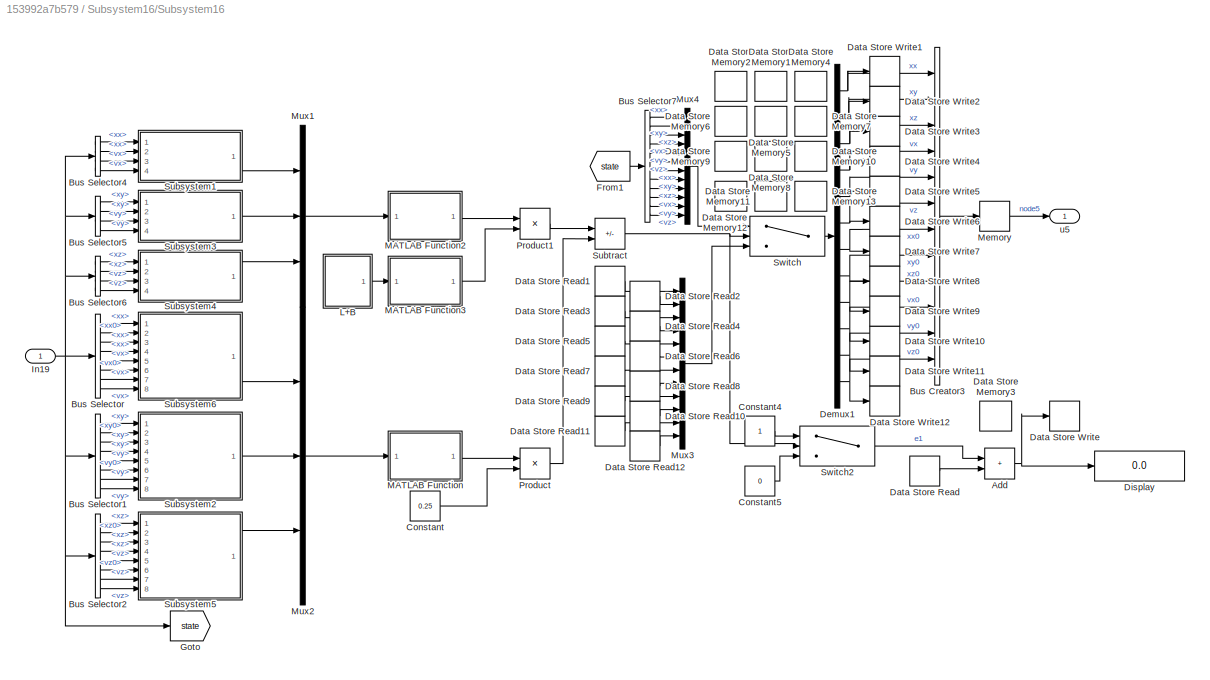
BLOCK [SubSystem] Subsystem16/Subsystem16
  Ports = [1, 1]
  RequestExecContextInheritance = off
BLOCK [Sum] Subsystem16/Subsystem16/Add
  IconShape = rectangular
  Ports = [2, 1]
BLOCK [BusCreator] Subsystem16/Subsystem16/Bus Creator3
  DisplayOption = bar
  InheritFromInputs = on
  Inputs = 12
  Ports = [12, 1]
BLOCK [BusSelector] Subsystem16/Subsystem16/Bus Selector
  OutputSignals = state(tk).node5.xx,state(tk).node5.xx0,state(tk).node3.xx,state(tk).node4.xx,state(tk).node5.vx,state(tk).node5.vx0,state(tk).node3.vx,state(tk).node4.vx
  Ports = [1, 8]
BLOCK [BusSelector] Subsystem16/Subsystem16/Bus Selector1
  OutputSignals = state(tk).node5.xy,state(tk).node5.xy0,state(tk).node3.xy,state(tk).node4.xy,state(tk).node5.vy,state(tk).node5.vy0,state(tk).node3.vy,state(tk).node4.vy
  Ports = [1, 8]
BLOCK [BusSelector] Subsystem16/Subsystem16/Bus Selector2
  OutputSignals = state(tk).node5.xz,state(tk).node5.xz0,state(tk).node3.xz,state(tk).node4.xz,state(tk).node5.vz,state(tk).node5.vz0,state(tk).node3.vz,state(tk).node4.vz
  Ports = [1, 8]
BLOCK [BusSelector] Subsystem16/Subsystem16/Bus Selector4
  OutputSignals = state(tk).node5.xx,state(t).node5.xx,state(tk).node5.vx,state(t).node5.vx
  Ports = [1, 4]
BLOCK [BusSelector] Subsystem16/Subsystem16/Bus Selector5
  OutputSignals = state(tk).node5.xy,state(t).node5.xy,state(tk).node5.vy,state(t).node5.vy
  Ports = [1, 4]
BLOCK [BusSelector] Subsystem16/Subsystem16/Bus Selector6
  OutputSignals = state(tk).node5.xz,state(t).node5.xz,state(tk).node5.vz,state(t).node5.vz
  Ports = [1, 4]
BLOCK [BusSelector] Subsystem16/Subsystem16/Bus Selector7
  OutputSignals = state(t).node5.xx,state(t).node5.xy,state(t).node5.xz,state(t).node5.vx,state(t).node5.vy,state(t).node5.vz,state(t).node0.xx,state(t).node0.xy,state(t).node0.xz,state(t).node0.vx,state(t).node0.vy,state(t).node0.vz
  Ports = [1, 12]
BLOCK [Constant] Subsystem16/Subsystem16/Constant
  Value = 0.25
BLOCK [Constant] Subsystem16/Subsystem16/Constant4
BLOCK [Constant] Subsystem16/Subsystem16/Constant5
  Value = 0
BLOCK [DataStoreMemory] Subsystem16/Subsystem16/Data Store Memory1
  DataStoreName = xyk5
  ReadBeforeWriteMsg = warning
  ShowAdditionalParam = off
  WriteAfterReadMsg = warning
  WriteAfterWriteMsg = warning
BLOCK [DataStoreMemory] Subsystem16/Subsystem16/Data Store Memory10
  DataStoreName = xzk50
  ReadBeforeWriteMsg = warning
  ShowAdditionalParam = off
  WriteAfterReadMsg = warning
  WriteAfterWriteMsg = warning
BLOCK [DataStoreMemory] Subsystem16/Subsystem16/Data Store Memory11
  DataStoreName = vyk50
  ReadBeforeWriteMsg = warning
  ShowAdditionalParam = off
  WriteAfterReadMsg = warning
  WriteAfterWriteMsg = warning
BLOCK [DataStoreMemory] Subsystem16/Subsystem16/Data Store Memory12
  DataStoreName = vxk50
  ReadBeforeWriteMsg = warning
  ShowAdditionalParam = off
  WriteAfterReadMsg = warning
  WriteAfterWriteMsg = warning
BLOCK [DataStoreMemory] Subsystem16/Subsystem16/Data Store Memory13
  DataStoreName = vzk50
  ReadBeforeWriteMsg = warning
  ShowAdditionalParam = off
  WriteAfterReadMsg = warning
  WriteAfterWriteMsg = warning
BLOCK [DataStoreMemory] Subsystem16/Subsystem16/Data Store Memory2
  DataStoreName = xxk5
  ReadBeforeWriteMsg = warning
  ShowAdditionalParam = off
  WriteAfterReadMsg = warning
  WriteAfterWriteMsg = warning
BLOCK [DataStoreMemory] Subsystem16/Subsystem16/Data Store Memory3
  DataStoreName = count5
  ReadBeforeWriteMsg = warning
  ShowAdditionalParam = off
  WriteAfterReadMsg = warning
  WriteAfterWriteMsg = warning
BLOCK [DataStoreMemory] Subsystem16/Subsystem16/Data Store Memory4
  DataStoreName = xzk5
  ReadBeforeWriteMsg = warning
  ShowAdditionalParam = off
  WriteAfterReadMsg = warning
  WriteAfterWriteMsg = warning
BLOCK [DataStoreMemory] Subsystem16/Subsystem16/Data Store Memory5
  DataStoreName = vyk5
  ReadBeforeWriteMsg = warning
  ShowAdditionalParam = off
  WriteAfterReadMsg = warning
  WriteAfterWriteMsg = warning
BLOCK [DataStoreMemory] Subsystem16/Subsystem16/Data Store Memory6
  DataStoreName = vxk5
  ReadBeforeWriteMsg = warning
  ShowAdditionalParam = off
  WriteAfterReadMsg = warning
  WriteAfterWriteMsg = warning
BLOCK [DataStoreMemory] Subsystem16/Subsystem16/Data Store Memory7
  DataStoreName = vzk5
  ReadBeforeWriteMsg = warning
  ShowAdditionalParam = off
  WriteAfterReadMsg = warning
  WriteAfterWriteMsg = warning
BLOCK [DataStoreMemory] Subsystem16/Subsystem16/Data Store Memory8
  DataStoreName = xyk50
  ReadBeforeWriteMsg = warning
  ShowAdditionalParam = off
  WriteAfterReadMsg = warning
  WriteAfterWriteMsg = warning
BLOCK [DataStoreMemory] Subsystem16/Subsystem16/Data Store Memory9
  DataStoreName = xxk50
  ReadBeforeWriteMsg = warning
  ShowAdditionalParam = off
  WriteAfterReadMsg = warning
  WriteAfterWriteMsg = warning
BLOCK [DataStoreRead] Subsystem16/Subsystem16/Data Store Read
  DataStoreName = count5
  IndexOptions = Index vector (dialog)
  Indices = 1
  OutputSizes = 1
  Ports = [0, 1]
BLOCK [DataStoreRead] Subsystem16/Subsystem16/Data Store Read1
  DataStoreName = xxk5
  IndexOptions = Index vector (dialog)
  Indices = 1
  OutputSizes = 1
  Ports = [0, 1]
BLOCK [DataStoreRead] Subsystem16/Subsystem16/Data Store Read10
  DataStoreName = vxk50
  IndexOptions = Index vector (dialog)
  Indices = 1
  OutputSizes = 1
  Ports = [0, 1]
BLOCK [DataStoreRead] Subsystem16/Subsystem16/Data Store Read11
  DataStoreName = vyk50
  IndexOptions = Index vector (dialog)
  Indices = 1
  OutputSizes = 1
  Ports = [0, 1]
BLOCK [DataStoreRead] Subsystem16/Subsystem16/Data Store Read12
  DataStoreName = vzk50
  IndexOptions = Index vector (dialog)
  Indices = 1
  OutputSizes = 1
  Ports = [0, 1]
BLOCK [DataStoreRead] Subsystem16/Subsystem16/Data Store Read2
  DataStoreName = xyk5
  IndexOptions = Index vector (dialog)
  Indices = 1
  OutputSizes = 1
  Ports = [0, 1]
BLOCK [DataStoreRead] Subsystem16/Subsystem16/Data Store Read3
  DataStoreName = xzk5
  IndexOptions = Index vector (dialog)
  Indices = 1
  OutputSizes = 1
  Ports = [0, 1]
BLOCK [DataStoreRead] Subsystem16/Subsystem16/Data Store Read4
  DataStoreName = vxk5
  IndexOptions = Index vector (dialog)
  Indices = 1
  OutputSizes = 1
  Ports = [0, 1]
BLOCK [DataStoreRead] Subsystem16/Subsystem16/Data Store Read5
  DataStoreName = vyk5
  IndexOptions = Index vector (dialog)
  Indices = 1
  OutputSizes = 1
  Ports = [0, 1]
BLOCK [DataStoreRead] Subsystem16/Subsystem16/Data Store Read6
  DataStoreName = vzk5
  IndexOptions = Index vector (dialog)
  Indices = 1
  OutputSizes = 1
  Ports = [0, 1]
BLOCK [DataStoreRead] Subsystem16/Subsystem16/Data Store Read7
  DataStoreName = xxk50
  IndexOptions = Index vector (dialog)
  Indices = 1
  OutputSizes = 1
  Ports = [0, 1]
BLOCK [DataStoreRead] Subsystem16/Subsystem16/Data Store Read8
  DataStoreName = xyk50
  IndexOptions = Index vector (dialog)
  Indices = 1
  OutputSizes = 1
  Ports = [0, 1]
BLOCK [DataStoreRead] Subsystem16/Subsystem16/Data Store Read9
  DataStoreName = xzk50
  IndexOptions = Index vector (dialog)
  Indices = 1
  OutputSizes = 1
  Ports = [0, 1]
BLOCK [DataStoreWrite] Subsystem16/Subsystem16/Data Store Write
  DataStoreName = count5
  IndexOptions = Index vector (dialog)
  Indices = 1
  OutputSizes = 1
  Ports = [1]
BLOCK [DataStoreWrite] Subsystem16/Subsystem16/Data Store Write1
  DataStoreName = xxk5
  IndexOptions = Index vector (dialog)
  Indices = 1
  OutputSizes = 1
  Ports = [1]
BLOCK [DataStoreWrite] Subsystem16/Subsystem16/Data Store Write10
  DataStoreName = vxk50
  IndexOptions = Index vector (dialog)
  Indices = 1
  OutputSizes = 1
  Ports = [1]
BLOCK [DataStoreWrite] Subsystem16/Subsystem16/Data Store Write11
  DataStoreName = vyk50
  IndexOptions = Index vector (dialog)
  Indices = 1
  OutputSizes = 1
  Ports = [1]
BLOCK [DataStoreWrite] Subsystem16/Subsystem16/Data Store Write12
  DataStoreName = vzk50
  IndexOptions = Index vector (dialog)
  Indices = 1
  OutputSizes = 1
  Ports = [1]
BLOCK [DataStoreWrite] Subsystem16/Subsystem16/Data Store Write2
  DataStoreName = xyk5
  IndexOptions = Index vector (dialog)
  Indices = 1
  OutputSizes = 1
  Ports = [1]
BLOCK [DataStoreWrite] Subsystem16/Subsystem16/Data Store Write3
  DataStoreName = xzk5
  IndexOptions = Index vector (dialog)
  Indices = 1
  OutputSizes = 1
  Ports = [1]
BLOCK [DataStoreWrite] Subsystem16/Subsystem16/Data Store Write4
  DataStoreName = vxk5
  IndexOptions = Index vector (dialog)
  Indices = 1
  OutputSizes = 1
  Ports = [1]
BLOCK [DataStoreWrite] Subsystem16/Subsystem16/Data Store Write5
  DataStoreName = vyk5
  IndexOptions = Index vector (dialog)
  Indices = 1
  OutputSizes = 1
  Ports = [1]
BLOCK [DataStoreWrite] Subsystem16/Subsystem16/Data Store Write6
  DataStoreName = vzk5
  IndexOptions = Index vector (dialog)
  Indices = 1
  OutputSizes = 1
  Ports = [1]
BLOCK [DataStoreWrite] Subsystem16/Subsystem16/Data Store Write7
  DataStoreName = xxk50
  IndexOptions = Index vector (dialog)
  Indices = 1
  OutputSizes = 1
  Ports = [1]
BLOCK [DataStoreWrite] Subsystem16/Subsystem16/Data Store Write8
  DataStoreName = xyk50
  IndexOptions = Index vector (dialog)
  Indices = 1
  OutputSizes = 1
  Ports = [1]
BLOCK [DataStoreWrite] Subsystem16/Subsystem16/Data Store Write9
  DataStoreName = xzk50
  IndexOptions = Index vector (dialog)
  Indices = 1
  OutputSizes = 1
  Ports = [1]
BLOCK [Demux] Subsystem16/Subsystem16/Demux1
  Outputs = 12
  Ports = [1, 12]
BLOCK [Display] Subsystem16/Subsystem16/Display
  Decimation = 1
  Ports = [1]
BLOCK [From] Subsystem16/Subsystem16/From1
  GotoTag = state
BLOCK [Goto] Subsystem16/Subsystem16/Goto
  GotoTag = state
BLOCK [Inport] Subsystem16/Subsystem16/In19
BLOCK [SubSystem] Subsystem16/Subsystem16/L+B
  Ports = [0, 1]
  RequestExecContextInheritance = off
BLOCK [Sum] Subsystem16/Subsystem16/L+B/Add
  IconShape = rectangular
  Ports = [2, 1]
BLOCK [Constant] Subsystem16/Subsystem16/L+B/Constant1
  Value = [2.5 0 0 0 0 0\n     0 2.8 0 0 0 0\n     0 0 2.8 0 0 0\n     0 0 0 2.5 0 0\n     0 0 0 0 2.7 0\n     0 0 0 0 0 2.7]
BLOCK [Constant] Subsystem16/Subsystem16/L+B/Constant2
  Value = [0.0 0.8 0.5 0.0 0.0 1.2\n     0.8 0.0 0.0 0.5 0.0 1.5\n     0.5 0.0 0.0 0.8 1.5 0.0\n     0.0 0.5 0.8 0.0 1.2 0.0\n     0.0 0.0 1.5 1.2 0.0 0.0\n     1.2 1.5 0.0 0.0 0.0 0.0]
BLOCK [Constant] Subsystem16/Subsystem16/L+B/Constant3
  Value = [0.0 0.0 0.0 0.0 0.0 0.0\n     0.0 0.0 0.0 0.0 0.0 0.0\n     0.0 0.0 0.0 0.0 0.0 0.0\n     0.0 0.0 0.0 0.0 0.0 0.0\n     0.0 0.0 0.0 0.0 1.5 0.0\n     0.0 0.0 0.0 0.0 0.0 1.5]
BLOCK [Sum] Subsystem16/Subsystem16/L+B/Subtract
  IconShape = rectangular
  Inputs = +-
  Ports = [2, 1]
BLOCK [Outport] Subsystem16/Subsystem16/L+B/u
BLOCK [SubSystem] Subsystem16/Subsystem16/MATLAB Function
  ErrorFcn = Stateflow.Translate.translate
  PermitHierarchicalResolution = ExplicitOnly
  Ports = [1, 1]
  RequestExecContextInheritance = off
  SFBlockType = MATLAB Function
  TreatAsAtomicUnit = on
BLOCK [Demux] Subsystem16/Subsystem16/MATLAB Function/ Demux 
  Outputs = 1
  Ports = [1, 1]
BLOCK [S-Function] Subsystem16/Subsystem16/MATLAB Function/ SFunction 
  EnableBusSupport = on
  FunctionName = sf_sfun
  PortCounts = [1 2]
  Ports = [1, 2]
  SFcnIsStateOwnerBlock = off
  SFunctionDeploymentMode = off
  Tag = Stateflow S-Function 306
BLOCK [Terminator] Subsystem16/Subsystem16/MATLAB Function/ Terminator 
BLOCK [Inport] Subsystem16/Subsystem16/MATLAB Function/u
BLOCK [Outport] Subsystem16/Subsystem16/MATLAB Function/y
BLOCK [SubSystem] Subsystem16/Subsystem16/MATLAB Function2
  ErrorFcn = Stateflow.Translate.translate
  PermitHierarchicalResolution = ExplicitOnly
  Ports = [1, 1]
  RequestExecContextInheritance = off
  SFBlockType = MATLAB Function
  TreatAsAtomicUnit = on
BLOCK [Demux] Subsystem16/Subsystem16/MATLAB Function2/ Demux 
  Outputs = 1
  Ports = [1, 1]
BLOCK [S-Function] Subsystem16/Subsystem16/MATLAB Function2/ SFunction 
  EnableBusSupport = on
  FunctionName = sf_sfun
  PortCounts = [1 2]
  Ports = [1, 2]
  SFcnIsStateOwnerBlock = off
  SFunctionDeploymentMode = off
  Tag = Stateflow S-Function 307
BLOCK [Terminator] Subsystem16/Subsystem16/MATLAB Function2/ Terminator 
BLOCK [Inport] Subsystem16/Subsystem16/MATLAB Function2/u
BLOCK [Outport] Subsystem16/Subsystem16/MATLAB Function2/y
BLOCK [SubSystem] Subsystem16/Subsystem16/MATLAB Function3
  ErrorFcn = Stateflow.Translate.translate
  PermitHierarchicalResolution = ExplicitOnly
  Ports = [1, 1]
  RequestExecContextInheritance = off
  SFBlockType = MATLAB Function
  TreatAsAtomicUnit = on
BLOCK [Demux] Subsystem16/Subsystem16/MATLAB Function3/ Demux 
  Outputs = 1
  Ports = [1, 1]
BLOCK [S-Function] Subsystem16/Subsystem16/MATLAB Function3/ SFunction 
  EnableBusSupport = on
  FunctionName = sf_sfun
  PortCounts = [1 2]
  Ports = [1, 2]
  SFcnIsStateOwnerBlock = off
  SFunctionDeploymentMode = off
  Tag = Stateflow S-Function 308
BLOCK [Terminator] Subsystem16/Subsystem16/MATLAB Function3/ Terminator 
BLOCK [Inport] Subsystem16/Subsystem16/MATLAB Function3/u
BLOCK [Outport] Subsystem16/Subsystem16/MATLAB Function3/y
BLOCK [Memory] Subsystem16/Subsystem16/Memory
BLOCK [Mux] Subsystem16/Subsystem16/Mux1
  DisplayOption = bar
  Inputs = 3
  Ports = [3, 1]
BLOCK [Mux] Subsystem16/Subsystem16/Mux2
  DisplayOption = bar
  Inputs = 3
  Ports = [3, 1]
BLOCK [Mux] Subsystem16/Subsystem16/Mux3
  DisplayOption = bar
  Inputs = 12
  Ports = [12, 1]
BLOCK [Mux] Subsystem16/Subsystem16/Mux4
  DisplayOption = bar
  Inputs = 12
  Ports = [12, 1]
BLOCK [Product] Subsystem16/Subsystem16/Product
  Ports = [2, 1]
BLOCK [Product] Subsystem16/Subsystem16/Product1
  Ports = [2, 1]
BLOCK [SubSystem] Subsystem16/Subsystem16/Subsystem1
  Ports = [4, 1]
  RequestExecContextInheritance = off
BLOCK [Sum] Subsystem16/Subsystem16/Subsystem1/Add
  IconShape = rectangular
  Ports = [2, 1]
BLOCK [Sum] Subsystem16/Subsystem16/Subsystem1/Add4
  IconShape = rectangular
  Inputs = -+
  Ports = [2, 1]
BLOCK [Sum] Subsystem16/Subsystem16/Subsystem1/Add8
  IconShape = rectangular
  Inputs = -+
  Ports = [2, 1]
BLOCK [Constant] Subsystem16/Subsystem16/Subsystem1/Constant
  Value = 0.75
BLOCK [Constant] Subsystem16/Subsystem16/Subsystem1/Constant1
  Value = 0.85
BLOCK [Product] Subsystem16/Subsystem16/Subsystem1/Product1
  Ports = [2, 1]
BLOCK [Product] Subsystem16/Subsystem16/Subsystem1/Product6
  Ports = [2, 1]
BLOCK [Outport] Subsystem16/Subsystem16/Subsystem1/ex
BLOCK [Inport] Subsystem16/Subsystem16/Subsystem1/vx
  Port = 4
BLOCK [Inport] Subsystem16/Subsystem16/Subsystem1/vxk
  Port = 3
BLOCK [Inport] Subsystem16/Subsystem16/Subsystem1/xx
  Port = 2
BLOCK [Inport] Subsystem16/Subsystem16/Subsystem1/xxk
BLOCK [SubSystem] Subsystem16/Subsystem16/Subsystem2
  Ports = [8, 1]
  RequestExecContextInheritance = off
BLOCK [Sum] Subsystem16/Subsystem16/Subsystem2/Add
  IconShape = rectangular
  Ports = [2, 1]
BLOCK [Sum] Subsystem16/Subsystem16/Subsystem2/Add1
  IconShape = rectangular
  Inputs = -+
  Ports = [2, 1]
BLOCK [Sum] Subsystem16/Subsystem16/Subsystem2/Add10
  IconShape = rectangular
  Inputs = -+
  Ports = [2, 1]
BLOCK [Sum] Subsystem16/Subsystem16/Subsystem2/Add2
  IconShape = rectangular
  Inputs = +-
  Ports = [2, 1]
BLOCK [Sum] Subsystem16/Subsystem16/Subsystem2/Add4
  IconShape = rectangular
  Inputs = -+
  Ports = [2, 1]
BLOCK [Sum] Subsystem16/Subsystem16/Subsystem2/Add5
  IconShape = rectangular
  Inputs = +++
  Ports = [3, 1]
BLOCK [Sum] Subsystem16/Subsystem16/Subsystem2/Add6
  IconShape = rectangular
  Inputs = +-
  Ports = [2, 1]
BLOCK [Sum] Subsystem16/Subsystem16/Subsystem2/Add8
  IconShape = rectangular
  Inputs = +++
  Ports = [3, 1]
BLOCK [Sum] Subsystem16/Subsystem16/Subsystem2/Add9
  IconShape = rectangular
  Inputs = +-
  Ports = [2, 1]
BLOCK [Constant] Subsystem16/Subsystem16/Subsystem2/Constant
  Value = 0.75
BLOCK [Constant] Subsystem16/Subsystem16/Subsystem2/Constant1
  Value = 0.85
BLOCK [Constant] Subsystem16/Subsystem16/Subsystem2/Constant3
  Value = 1.2
BLOCK [Constant] Subsystem16/Subsystem16/Subsystem2/Constant4
  Value = 1.5
BLOCK [Constant] Subsystem16/Subsystem16/Subsystem2/Constant5
  Value = 1.2
BLOCK [Constant] Subsystem16/Subsystem16/Subsystem2/Constant6
  Value = 1.5
BLOCK [Constant] Subsystem16/Subsystem16/Subsystem2/Constant7
  Value = 1.5
BLOCK [Constant] Subsystem16/Subsystem16/Subsystem2/Constant8
  Value = 1.5
BLOCK [Product] Subsystem16/Subsystem16/Subsystem2/Product1
  Ports = [2, 1]
BLOCK [Product] Subsystem16/Subsystem16/Subsystem2/Product3
  Ports = [2, 1]
BLOCK [Product] Subsystem16/Subsystem16/Subsystem2/Product4
  Ports = [2, 1]
BLOCK [Product] Subsystem16/Subsystem16/Subsystem2/Product5
  Ports = [2, 1]
BLOCK [Product] Subsystem16/Subsystem16/Subsystem2/Product6
  Ports = [2, 1]
BLOCK [Product] Subsystem16/Subsystem16/Subsystem2/Product7
  Ports = [2, 1]
BLOCK [Product] Subsystem16/Subsystem16/Subsystem2/Product8
  Ports = [2, 1]
BLOCK [Product] Subsystem16/Subsystem16/Subsystem2/Product9
  Ports = [2, 1]
BLOCK [Outport] Subsystem16/Subsystem16/Subsystem2/uty
BLOCK [Inport] Subsystem16/Subsystem16/Subsystem2/vy0
  Port = 6
BLOCK [Inport] Subsystem16/Subsystem16/Subsystem2/vy3
  Port = 7
BLOCK [Inport] Subsystem16/Subsystem16/Subsystem2/vy4
  Port = 8
BLOCK [Inport] Subsystem16/Subsystem16/Subsystem2/vy5
  Port = 5
BLOCK [Inport] Subsystem16/Subsystem16/Subsystem2/xy0
  Port = 2
BLOCK [Inport] Subsystem16/Subsystem16/Subsystem2/xy3
  Port = 3
BLOCK [Inport] Subsystem16/Subsystem16/Subsystem2/xy4
  Port = 4
BLOCK [Inport] Subsystem16/Subsystem16/Subsystem2/xy5
BLOCK [SubSystem] Subsystem16/Subsystem16/Subsystem3
  Ports = [4, 1]
  RequestExecContextInheritance = off
BLOCK [Sum] Subsystem16/Subsystem16/Subsystem3/Add
  IconShape = rectangular
  Ports = [2, 1]
BLOCK [Sum] Subsystem16/Subsystem16/Subsystem3/Add4
  IconShape = rectangular
  Inputs = -+
  Ports = [2, 1]
BLOCK [Sum] Subsystem16/Subsystem16/Subsystem3/Add8
  IconShape = rectangular
  Inputs = -+
  Ports = [2, 1]
BLOCK [Constant] Subsystem16/Subsystem16/Subsystem3/Constant
  Value = 0.75
BLOCK [Constant] Subsystem16/Subsystem16/Subsystem3/Constant1
  Value = 0.85
BLOCK [Product] Subsystem16/Subsystem16/Subsystem3/Product1
  Ports = [2, 1]
BLOCK [Product] Subsystem16/Subsystem16/Subsystem3/Product6
  Ports = [2, 1]
BLOCK [Outport] Subsystem16/Subsystem16/Subsystem3/ey
BLOCK [Inport] Subsystem16/Subsystem16/Subsystem3/vy
  Port = 4
BLOCK [Inport] Subsystem16/Subsystem16/Subsystem3/vyk
  Port = 3
BLOCK [Inport] Subsystem16/Subsystem16/Subsystem3/xy
  Port = 2
BLOCK [Inport] Subsystem16/Subsystem16/Subsystem3/xyk
BLOCK [SubSystem] Subsystem16/Subsystem16/Subsystem4
  Ports = [4, 1]
  RequestExecContextInheritance = off
BLOCK [Sum] Subsystem16/Subsystem16/Subsystem4/Add
  IconShape = rectangular
  Ports = [2, 1]
BLOCK [Sum] Subsystem16/Subsystem16/Subsystem4/Add4
  IconShape = rectangular
  Inputs = -+
  Ports = [2, 1]
BLOCK [Sum] Subsystem16/Subsystem16/Subsystem4/Add8
  IconShape = rectangular
  Inputs = -+
  Ports = [2, 1]
BLOCK [Constant] Subsystem16/Subsystem16/Subsystem4/Constant
  Value = 0.75
BLOCK [Constant] Subsystem16/Subsystem16/Subsystem4/Constant1
  Value = 0.85
BLOCK [Product] Subsystem16/Subsystem16/Subsystem4/Product1
  Ports = [2, 1]
BLOCK [Product] Subsystem16/Subsystem16/Subsystem4/Product6
  Ports = [2, 1]
BLOCK [Outport] Subsystem16/Subsystem16/Subsystem4/ez
BLOCK [Inport] Subsystem16/Subsystem16/Subsystem4/vz
  Port = 4
BLOCK [Inport] Subsystem16/Subsystem16/Subsystem4/vzk
  Port = 3
BLOCK [Inport] Subsystem16/Subsystem16/Subsystem4/xz
  Port = 2
BLOCK [Inport] Subsystem16/Subsystem16/Subsystem4/xzk
BLOCK [SubSystem] Subsystem16/Subsystem16/Subsystem5
  Ports = [8, 1]
  RequestExecContextInheritance = off
BLOCK [Sum] Subsystem16/Subsystem16/Subsystem5/Add
  IconShape = rectangular
  Ports = [2, 1]
BLOCK [Sum] Subsystem16/Subsystem16/Subsystem5/Add1
  IconShape = rectangular
  Inputs = -+
  Ports = [2, 1]
BLOCK [Sum] Subsystem16/Subsystem16/Subsystem5/Add10
  IconShape = rectangular
  Inputs = -+
  Ports = [2, 1]
BLOCK [Sum] Subsystem16/Subsystem16/Subsystem5/Add2
  IconShape = rectangular
  Inputs = +-
  Ports = [2, 1]
BLOCK [Sum] Subsystem16/Subsystem16/Subsystem5/Add4
  IconShape = rectangular
  Inputs = -+
  Ports = [2, 1]
BLOCK [Sum] Subsystem16/Subsystem16/Subsystem5/Add5
  IconShape = rectangular
  Inputs = +++
  Ports = [3, 1]
BLOCK [Sum] Subsystem16/Subsystem16/Subsystem5/Add6
  IconShape = rectangular
  Inputs = +-
  Ports = [2, 1]
BLOCK [Sum] Subsystem16/Subsystem16/Subsystem5/Add8
  IconShape = rectangular
  Inputs = +++
  Ports = [3, 1]
BLOCK [Sum] Subsystem16/Subsystem16/Subsystem5/Add9
  IconShape = rectangular
  Inputs = +-
  Ports = [2, 1]
BLOCK [Constant] Subsystem16/Subsystem16/Subsystem5/Constant
  Value = 0.75
BLOCK [Constant] Subsystem16/Subsystem16/Subsystem5/Constant1
  Value = 0.85
BLOCK [Constant] Subsystem16/Subsystem16/Subsystem5/Constant3
  Value = 1.2
BLOCK [Constant] Subsystem16/Subsystem16/Subsystem5/Constant4
  Value = 1.5
BLOCK [Constant] Subsystem16/Subsystem16/Subsystem5/Constant5
  Value = 1.2
BLOCK [Constant] Subsystem16/Subsystem16/Subsystem5/Constant6
  Value = 1.5
BLOCK [Constant] Subsystem16/Subsystem16/Subsystem5/Constant7
  Value = 1.5
BLOCK [Constant] Subsystem16/Subsystem16/Subsystem5/Constant8
  Value = 1.5
BLOCK [Product] Subsystem16/Subsystem16/Subsystem5/Product1
  Ports = [2, 1]
BLOCK [Product] Subsystem16/Subsystem16/Subsystem5/Product3
  Ports = [2, 1]
BLOCK [Product] Subsystem16/Subsystem16/Subsystem5/Product4
  Ports = [2, 1]
BLOCK [Product] Subsystem16/Subsystem16/Subsystem5/Product5
  Ports = [2, 1]
BLOCK [Product] Subsystem16/Subsystem16/Subsystem5/Product6
  Ports = [2, 1]
BLOCK [Product] Subsystem16/Subsystem16/Subsystem5/Product7
  Ports = [2, 1]
BLOCK [Product] Subsystem16/Subsystem16/Subsystem5/Product8
  Ports = [2, 1]
BLOCK [Product] Subsystem16/Subsystem16/Subsystem5/Product9
  Ports = [2, 1]
BLOCK [Outport] Subsystem16/Subsystem16/Subsystem5/utz
BLOCK [Inport] Subsystem16/Subsystem16/Subsystem5/vz0
  Port = 6
BLOCK [Inport] Subsystem16/Subsystem16/Subsystem5/vz3
  Port = 7
BLOCK [Inport] Subsystem16/Subsystem16/Subsystem5/vz4
  Port = 8
BLOCK [Inport] Subsystem16/Subsystem16/Subsystem5/vz5
  Port = 5
BLOCK [Inport] Subsystem16/Subsystem16/Subsystem5/xz0
  Port = 2
BLOCK [Inport] Subsystem16/Subsystem16/Subsystem5/xz3
  Port = 3
BLOCK [Inport] Subsystem16/Subsystem16/Subsystem5/xz4
  Port = 4
BLOCK [Inport] Subsystem16/Subsystem16/Subsystem5/xz5
BLOCK [SubSystem] Subsystem16/Subsystem16/Subsystem6
  Ports = [8, 1]
  RequestExecContextInheritance = off
BLOCK [Sum] Subsystem16/Subsystem16/Subsystem6/Add
  IconShape = rectangular
  Ports = [2, 1]
BLOCK [Sum] Subsystem16/Subsystem16/Subsystem6/Add1
  IconShape = rectangular
  Inputs = -+
  Ports = [2, 1]
BLOCK [Sum] Subsystem16/Subsystem16/Subsystem6/Add10
  IconShape = rectangular
  Inputs = -+
  Ports = [2, 1]
BLOCK [Sum] Subsystem16/Subsystem16/Subsystem6/Add2
  IconShape = rectangular
  Inputs = +-
  Ports = [2, 1]
BLOCK [Sum] Subsystem16/Subsystem16/Subsystem6/Add4
  IconShape = rectangular
  Inputs = -+
  Ports = [2, 1]
BLOCK [Sum] Subsystem16/Subsystem16/Subsystem6/Add5
  IconShape = rectangular
  Inputs = +++
  Ports = [3, 1]
BLOCK [Sum] Subsystem16/Subsystem16/Subsystem6/Add6
  IconShape = rectangular
  Inputs = +-
  Ports = [2, 1]
BLOCK [Sum] Subsystem16/Subsystem16/Subsystem6/Add8
  IconShape = rectangular
  Inputs = +++
  Ports = [3, 1]
BLOCK [Sum] Subsystem16/Subsystem16/Subsystem6/Add9
  IconShape = rectangular
  Inputs = +-
  Ports = [2, 1]
BLOCK [Constant] Subsystem16/Subsystem16/Subsystem6/Constant
  Value = 0.75
BLOCK [Constant] Subsystem16/Subsystem16/Subsystem6/Constant1
  Value = 0.85
BLOCK [Constant] Subsystem16/Subsystem16/Subsystem6/Constant3
  Value = 1.2
BLOCK [Constant] Subsystem16/Subsystem16/Subsystem6/Constant4
  Value = 1.5
BLOCK [Constant] Subsystem16/Subsystem16/Subsystem6/Constant5
  Value = 1.2
BLOCK [Constant] Subsystem16/Subsystem16/Subsystem6/Constant6
  Value = 1.5
BLOCK [Constant] Subsystem16/Subsystem16/Subsystem6/Constant7
  Value = 1.5
BLOCK [Constant] Subsystem16/Subsystem16/Subsystem6/Constant8
  Value = 1.5
BLOCK [Product] Subsystem16/Subsystem16/Subsystem6/Product1
  Ports = [2, 1]
BLOCK [Product] Subsystem16/Subsystem16/Subsystem6/Product3
  Ports = [2, 1]
BLOCK [Product] Subsystem16/Subsystem16/Subsystem6/Product4
  Ports = [2, 1]
BLOCK [Product] Subsystem16/Subsystem16/Subsystem6/Product5
  Ports = [2, 1]
BLOCK [Product] Subsystem16/Subsystem16/Subsystem6/Product6
  Ports = [2, 1]
BLOCK [Product] Subsystem16/Subsystem16/Subsystem6/Product7
  Ports = [2, 1]
BLOCK [Product] Subsystem16/Subsystem16/Subsystem6/Product8
  Ports = [2, 1]
BLOCK [Product] Subsystem16/Subsystem16/Subsystem6/Product9
  Ports = [2, 1]
BLOCK [Outport] Subsystem16/Subsystem16/Subsystem6/utx
BLOCK [Inport] Subsystem16/Subsystem16/Subsystem6/vx0
  Port = 6
BLOCK [Inport] Subsystem16/Subsystem16/Subsystem6/vx3
  Port = 7
BLOCK [Inport] Subsystem16/Subsystem16/Subsystem6/vx4
  Port = 8
BLOCK [Inport] Subsystem16/Subsystem16/Subsystem6/vx5
  Port = 5
BLOCK [Inport] Subsystem16/Subsystem16/Subsystem6/xx0
  Port = 2
BLOCK [Inport] Subsystem16/Subsystem16/Subsystem6/xx3
  Port = 3
BLOCK [Inport] Subsystem16/Subsystem16/Subsystem6/xx4
  Port = 4
BLOCK [Inport] Subsystem16/Subsystem16/Subsystem6/xx5
BLOCK [Sum] Subsystem16/Subsystem16/Subtract
  IconShape = rectangular
  Inputs = +-
  Ports = [2, 1]
BLOCK [Switch] Subsystem16/Subsystem16/Switch
  Criteria = u2 > Threshold
  InputSameDT = off
  SaturateOnIntegerOverflow = off
BLOCK [Switch] Subsystem16/Subsystem16/Switch2
  Criteria = u2 > Threshold
  InputSameDT = off
  SaturateOnIntegerOverflow = off
BLOCK [Outport] Subsystem16/Subsystem16/u5
BLOCK [SubSystem] Subsystem16/Subsystem17
  Ports = [1, 1]
  RequestExecContextInheritance = off
BLOCK [Sum] Subsystem16/Subsystem17/Add
  IconShape = rectangular
  Ports = [2, 1]
BLOCK [BusCreator] Subsystem16/Subsystem17/Bus Creator
  DisplayOption = bar
  InheritFromInputs = on
  Inputs = 3
  Ports = [3, 1]
BLOCK [BusCreator] Subsystem16/Subsystem17/Bus Creator1
  DisplayOption = bar
  InheritFromInputs = on
  Inputs = 3
  Ports = [3, 1]
BLOCK [BusCreator] Subsystem16/Subsystem17/Bus Creator2
  DisplayOption = bar
  InheritFromInputs = on
  Inputs = 6
  Ports = [6, 1]
BLOCK [BusSelector] Subsystem16/Subsystem17/Bus Selector
  OutputSignals = state(tk).node3.xx,state(tk).node1.xx,state(tk).node4.xx,state(tk).node5.xx,state(tk).node3.vx,state(tk).node1.vx,state(tk).node4.vx,state(tk).node5.vx
  Ports = [1, 8]
BLOCK [BusSelector] Subsystem16/Subsystem17/Bus Selector1
  OutputSignals = state(tk).node3.xy,state(tk).node1.xy,state(tk).node4.xy,state(tk).node5.xy,state(tk).node3.vy,state(tk).node1.vy,state(tk).node4.vy,state(tk).node5.vy
  Ports = [1, 8]
BLOCK [BusSelector] Subsystem16/Subsystem17/Bus Selector2
  OutputSignals = state(tk).node3.xz,state(tk).node1.xz,state(tk).node4.xz,state(tk).node5.xz,state(tk).node3.vz,state(tk).node1.vz,state(tk).node4.vz,state(tk).node5.vz
  Ports = [1, 8]
BLOCK [BusSelector] Subsystem16/Subsystem17/Bus Selector3
  OutputSignals = state(t).node3
  Ports = [1, 1]
BLOCK [BusSelector] Subsystem16/Subsystem17/Bus Selector4
  OutputSignals = state(tk).node3.xx,state(t).node3.xx,state(tk).node3.vx,state(t).node3.vx
  Ports = [1, 4]
BLOCK [BusSelector] Subsystem16/Subsystem17/Bus Selector5
  OutputSignals = state(tk).node3.xy,state(t).node3.xy,state(tk).node3.vy,state(t).node3.vy
  Ports = [1, 4]
BLOCK [BusSelector] Subsystem16/Subsystem17/Bus Selector6
  OutputSignals = state(tk).node3.xz,state(t).node3.xz,state(tk).node3.vz,state(t).node3.vz
  Ports = [1, 4]
BLOCK [Constant] Subsystem16/Subsystem17/Constant
  Value = 0.25
BLOCK [Constant] Subsystem16/Subsystem17/Constant4
BLOCK [Constant] Subsystem16/Subsystem17/Constant5
  Value = 0
BLOCK [DataStoreMemory] Subsystem16/Subsystem17/Data Store Memory1
  DataStoreName = xyk3
  ReadBeforeWriteMsg = warning
  ShowAdditionalParam = off
  WriteAfterReadMsg = warning
  WriteAfterWriteMsg = warning
BLOCK [DataStoreMemory] Subsystem16/Subsystem17/Data Store Memory2
  DataStoreName = xxk3
  ReadBeforeWriteMsg = warning
  ShowAdditionalParam = off
  WriteAfterReadMsg = warning
  WriteAfterWriteMsg = warning
BLOCK [DataStoreMemory] Subsystem16/Subsystem17/Data Store Memory3
  DataStoreName = count3
  ReadBeforeWriteMsg = warning
  ShowAdditionalParam = off
  WriteAfterReadMsg = warning
  WriteAfterWriteMsg = warning
BLOCK [DataStoreMemory] Subsystem16/Subsystem17/Data Store Memory4
  DataStoreName = xzk3
  ReadBeforeWriteMsg = warning
  ShowAdditionalParam = off
  WriteAfterReadMsg = warning
  WriteAfterWriteMsg = warning
BLOCK [DataStoreMemory] Subsystem16/Subsystem17/Data Store Memory5
  DataStoreName = vyk3
  ReadBeforeWriteMsg = warning
  ShowAdditionalParam = off
  WriteAfterReadMsg = warning
  WriteAfterWriteMsg = warning
BLOCK [DataStoreMemory] Subsystem16/Subsystem17/Data Store Memory6
  DataStoreName = vxk3
  ReadBeforeWriteMsg = warning
  ShowAdditionalParam = off
  WriteAfterReadMsg = warning
  WriteAfterWriteMsg = warning
BLOCK [DataStoreMemory] Subsystem16/Subsystem17/Data Store Memory7
  DataStoreName = vzk3
  ReadBeforeWriteMsg = warning
  ShowAdditionalParam = off
  WriteAfterReadMsg = warning
  WriteAfterWriteMsg = warning
BLOCK [DataStoreRead] Subsystem16/Subsystem17/Data Store Read
  DataStoreName = count3
  IndexOptions = Index vector (dialog)
  Indices = 1
  OutputSizes = 1
  Ports = [0, 1]
BLOCK [DataStoreRead] Subsystem16/Subsystem17/Data Store Read1
  DataStoreName = xyk3
  IndexOptions = Index vector (dialog)
  Indices = 1
  OutputSizes = 1
  Ports = [0, 1]
BLOCK [DataStoreRead] Subsystem16/Subsystem17/Data Store Read2
  DataStoreName = xxk3
  IndexOptions = Index vector (dialog)
  Indices = 1
  OutputSizes = 1
  Ports = [0, 1]
BLOCK [DataStoreRead] Subsystem16/Subsystem17/Data Store Read3
  DataStoreName = xzk3
  IndexOptions = Index vector (dialog)
  Indices = 1
  OutputSizes = 1
  Ports = [0, 1]
BLOCK [DataStoreRead] Subsystem16/Subsystem17/Data Store Read4
  DataStoreName = vxk3
  IndexOptions = Index vector (dialog)
  Indices = 1
  OutputSizes = 1
  Ports = [0, 1]
BLOCK [DataStoreRead] Subsystem16/Subsystem17/Data Store Read5
  DataStoreName = vyk3
  IndexOptions = Index vector (dialog)
  Indices = 1
  OutputSizes = 1
  Ports = [0, 1]
BLOCK [DataStoreRead] Subsystem16/Subsystem17/Data Store Read6
  DataStoreName = vzk3
  IndexOptions = Index vector (dialog)
  Indices = 1
  OutputSizes = 1
  Ports = [0, 1]
BLOCK [DataStoreWrite] Subsystem16/Subsystem17/Data Store Write
  DataStoreName = count3
  IndexOptions = Index vector (dialog)
  Indices = 1
  OutputSizes = 1
  Ports = [1]
BLOCK [DataStoreWrite] Subsystem16/Subsystem17/Data Store Write1
  DataStoreName = xxk3
  IndexOptions = Index vector (dialog)
  Indices = 1
  OutputSizes = 1
  Ports = [1]
BLOCK [DataStoreWrite] Subsystem16/Subsystem17/Data Store Write2
  DataStoreName = xyk3
  IndexOptions = Index vector (dialog)
  Indices = 1
  OutputSizes = 1
  Ports = [1]
BLOCK [DataStoreWrite] Subsystem16/Subsystem17/Data Store Write3
  DataStoreName = xzk3
  IndexOptions = Index vector (dialog)
  Indices = 1
  OutputSizes = 1
  Ports = [1]
BLOCK [DataStoreWrite] Subsystem16/Subsystem17/Data Store Write4
  DataStoreName = vxk3
  IndexOptions = Index vector (dialog)
  Indices = 1
  OutputSizes = 1
  Ports = [1]
BLOCK [DataStoreWrite] Subsystem16/Subsystem17/Data Store Write5
  DataStoreName = vyk3
  IndexOptions = Index vector (dialog)
  Indices = 1
  OutputSizes = 1
  Ports = [1]
BLOCK [DataStoreWrite] Subsystem16/Subsystem17/Data Store Write6
  DataStoreName = vzk3
  IndexOptions = Index vector (dialog)
  Indices = 1
  OutputSizes = 1
  Ports = [1]
BLOCK [Demux] Subsystem16/Subsystem17/Demux
  Outputs = 6
  Ports = [1, 6]
BLOCK [Display] Subsystem16/Subsystem17/Display
  Decimation = 1
  Ports = [1]
BLOCK [From] Subsystem16/Subsystem17/From1
  GotoTag = state
BLOCK [Goto] Subsystem16/Subsystem17/Goto
  GotoTag = state
BLOCK [Inport] Subsystem16/Subsystem17/In19
BLOCK [SubSystem] Subsystem16/Subsystem17/L+B
  Ports = [0, 1]
  RequestExecContextInheritance = off
BLOCK [Sum] Subsystem16/Subsystem17/L+B/Add
  IconShape = rectangular
  Ports = [2, 1]
BLOCK [Constant] Subsystem16/Subsystem17/L+B/Constant1
  Value = [2.5 0 0 0 0 0\n     0 2.8 0 0 0 0\n     0 0 2.8 0 0 0\n     0 0 0 2.5 0 0\n     0 0 0 0 2.7 0\n     0 0 0 0 0 2.7]
BLOCK [Constant] Subsystem16/Subsystem17/L+B/Constant2
  Value = [0.0 0.8 0.5 0.0 0.0 1.2\n     0.8 0.0 0.0 0.5 0.0 1.5\n     0.5 0.0 0.0 0.8 1.5 0.0\n     0.0 0.5 0.8 0.0 1.2 0.0\n     0.0 0.0 1.5 1.2 0.0 0.0\n     1.2 1.5 0.0 0.0 0.0 0.0]
BLOCK [Constant] Subsystem16/Subsystem17/L+B/Constant3
  Value = [0.0 0.0 0.0 0.0 0.0 0.0\n     0.0 0.0 0.0 0.0 0.0 0.0\n     0.0 0.0 0.0 0.0 0.0 0.0\n     0.0 0.0 0.0 0.0 0.0 0.0\n     0.0 0.0 0.0 0.0 1.5 0.0\n     0.0 0.0 0.0 0.0 0.0 1.5]
BLOCK [Sum] Subsystem16/Subsystem17/L+B/Subtract
  IconShape = rectangular
  Inputs = +-
  Ports = [2, 1]
BLOCK [Outport] Subsystem16/Subsystem17/L+B/u
BLOCK [SubSystem] Subsystem16/Subsystem17/MATLAB Function
  ErrorFcn = Stateflow.Translate.translate
  PermitHierarchicalResolution = ExplicitOnly
  Ports = [1, 1]
  RequestExecContextInheritance = off
  SFBlockType = MATLAB Function
  TreatAsAtomicUnit = on
BLOCK [Demux] Subsystem16/Subsystem17/MATLAB Function/ Demux 
  Outputs = 1
  Ports = [1, 1]
BLOCK [S-Function] Subsystem16/Subsystem17/MATLAB Function/ SFunction 
  EnableBusSupport = on
  FunctionName = sf_sfun
  PortCounts = [1 2]
  Ports = [1, 2]
  SFcnIsStateOwnerBlock = off
  SFunctionDeploymentMode = off
  Tag = Stateflow S-Function 309
BLOCK [Terminator] Subsystem16/Subsystem17/MATLAB Function/ Terminator 
BLOCK [Inport] Subsystem16/Subsystem17/MATLAB Function/u
BLOCK [Outport] Subsystem16/Subsystem17/MATLAB Function/y
BLOCK [SubSystem] Subsystem16/Subsystem17/MATLAB Function2
  ErrorFcn = Stateflow.Translate.translate
  PermitHierarchicalResolution = ExplicitOnly
  Ports = [1, 1]
  RequestExecContextInheritance = off
  SFBlockType = MATLAB Function
  TreatAsAtomicUnit = on
BLOCK [Demux] Subsystem16/Subsystem17/MATLAB Function2/ Demux 
  Outputs = 1
  Ports = [1, 1]
BLOCK [S-Function] Subsystem16/Subsystem17/MATLAB Function2/ SFunction 
  EnableBusSupport = on
  FunctionName = sf_sfun
  PortCounts = [1 2]
  Ports = [1, 2]
  SFcnIsStateOwnerBlock = off
  SFunctionDeploymentMode = off
  Tag = Stateflow S-Function 310
BLOCK [Terminator] Subsystem16/Subsystem17/MATLAB Function2/ Terminator 
BLOCK [Inport] Subsystem16/Subsystem17/MATLAB Function2/u
BLOCK [Outport] Subsystem16/Subsystem17/MATLAB Function2/y
BLOCK [SubSystem] Subsystem16/Subsystem17/MATLAB Function3
  ErrorFcn = Stateflow.Translate.translate
  PermitHierarchicalResolution = ExplicitOnly
  Ports = [1, 1]
  RequestExecContextInheritance = off
  SFBlockType = MATLAB Function
  TreatAsAtomicUnit = on
BLOCK [Demux] Subsystem16/Subsystem17/MATLAB Function3/ Demux 
  Outputs = 1
  Ports = [1, 1]
BLOCK [S-Function] Subsystem16/Subsystem17/MATLAB Function3/ SFunction 
  EnableBusSupport = on
  FunctionName = sf_sfun
  PortCounts = [1 2]
  Ports = [1, 2]
  SFcnIsStateOwnerBlock = off
  SFunctionDeploymentMode = off
  Tag = Stateflow S-Function 311
BLOCK [Terminator] Subsystem16/Subsystem17/MATLAB Function3/ Terminator 
BLOCK [Inport] Subsystem16/Subsystem17/MATLAB Function3/u
BLOCK [Outport] Subsystem16/Subsystem17/MATLAB Function3/y
BLOCK [Memory] Subsystem16/Subsystem17/Memory
BLOCK [Mux] Subsystem16/Subsystem17/Mux
  DisplayOption = bar
  Inputs = 6
  Ports = [6, 1]
BLOCK [Product] Subsystem16/Subsystem17/Product
  Ports = [2, 1]
BLOCK [Product] Subsystem16/Subsystem17/Product1
  Ports = [2, 1]
BLOCK [SubSystem] Subsystem16/Subsystem17/Subsystem1
  Ports = [8, 1]
  RequestExecContextInheritance = off
BLOCK [Sum] Subsystem16/Subsystem17/Subsystem1/Add
  IconShape = rectangular
  Ports = [2, 1]
BLOCK [Sum] Subsystem16/Subsystem17/Subsystem1/Add1
  IconShape = rectangular
  Inputs = -+
  Ports = [2, 1]
BLOCK [Sum] Subsystem16/Subsystem17/Subsystem1/Add2
  IconShape = rectangular
  Inputs = +-
  Ports = [2, 1]
BLOCK [Sum] Subsystem16/Subsystem17/Subsystem1/Add4
  IconShape = rectangular
  Inputs = -+
  Ports = [2, 1]
BLOCK [Sum] Subsystem16/Subsystem17/Subsystem1/Add5
  IconShape = rectangular
  Inputs = +++
  Ports = [3, 1]
BLOCK [Sum] Subsystem16/Subsystem17/Subsystem1/Add6
  IconShape = rectangular
  Inputs = -+
  Ports = [2, 1]
BLOCK [Sum] Subsystem16/Subsystem17/Subsystem1/Add7
  IconShape = rectangular
  Inputs = +-
  Ports = [2, 1]
BLOCK [Sum] Subsystem16/Subsystem17/Subsystem1/Add8
  IconShape = rectangular
  Inputs = -+
  Ports = [2, 1]
BLOCK [Sum] Subsystem16/Subsystem17/Subsystem1/Add9
  IconShape = rectangular
  Inputs = +++
  Ports = [3, 1]
BLOCK [Constant] Subsystem16/Subsystem17/Subsystem1/Constant
  Value = 0.75
BLOCK [Constant] Subsystem16/Subsystem17/Subsystem1/Constant1
  Value = 0.85
BLOCK [Constant] Subsystem16/Subsystem17/Subsystem1/Constant2
  Value = 0.8
BLOCK [Constant] Subsystem16/Subsystem17/Subsystem1/Constant3
  Value = 0.8
BLOCK [Constant] Subsystem16/Subsystem17/Subsystem1/Constant4
  Value = 0.5
BLOCK [Constant] Subsystem16/Subsystem17/Subsystem1/Constant5
  Value = 1.5
BLOCK [Constant] Subsystem16/Subsystem17/Subsystem1/Constant6
  Value = 0.5
BLOCK [Constant] Subsystem16/Subsystem17/Subsystem1/Constant7
  Value = 1.5
BLOCK [Product] Subsystem16/Subsystem17/Subsystem1/Product1
  Ports = [2, 1]
BLOCK [Product] Subsystem16/Subsystem17/Subsystem1/Product3
  Ports = [2, 1]
BLOCK [Product] Subsystem16/Subsystem17/Subsystem1/Product4
  Ports = [2, 1]
BLOCK [Product] Subsystem16/Subsystem17/Subsystem1/Product5
  Ports = [2, 1]
BLOCK [Product] Subsystem16/Subsystem17/Subsystem1/Product6
  Ports = [2, 1]
BLOCK [Product] Subsystem16/Subsystem17/Subsystem1/Product7
  Ports = [2, 1]
BLOCK [Product] Subsystem16/Subsystem17/Subsystem1/Product8
  Ports = [2, 1]
BLOCK [Product] Subsystem16/Subsystem17/Subsystem1/Product9
  Ports = [2, 1]
BLOCK [Outport] Subsystem16/Subsystem17/Subsystem1/p3y
BLOCK [Inport] Subsystem16/Subsystem17/Subsystem1/vy1
  Port = 6
BLOCK [Inport] Subsystem16/Subsystem17/Subsystem1/vy3
  Port = 5
BLOCK [Inport] Subsystem16/Subsystem17/Subsystem1/vy4
  Port = 7
BLOCK [Inport] Subsystem16/Subsystem17/Subsystem1/vy5
  Port = 8
BLOCK [Inport] Subsystem16/Subsystem17/Subsystem1/xy1
  Port = 2
BLOCK [Inport] Subsystem16/Subsystem17/Subsystem1/xy3
BLOCK [Inport] Subsystem16/Subsystem17/Subsystem1/xy4
  Port = 3
BLOCK [Inport] Subsystem16/Subsystem17/Subsystem1/xy5
  Port = 4
BLOCK [SubSystem] Subsystem16/Subsystem17/Subsystem2
  Ports = [8, 1]
  RequestExecContextInheritance = off
BLOCK [Sum] Subsystem16/Subsystem17/Subsystem2/Add
  IconShape = rectangular
  Ports = [2, 1]
BLOCK [Sum] Subsystem16/Subsystem17/Subsystem2/Add1
  IconShape = rectangular
  Inputs = -+
  Ports = [2, 1]
BLOCK [Sum] Subsystem16/Subsystem17/Subsystem2/Add2
  IconShape = rectangular
  Inputs = +-
  Ports = [2, 1]
BLOCK [Sum] Subsystem16/Subsystem17/Subsystem2/Add4
  IconShape = rectangular
  Inputs = -+
  Ports = [2, 1]
BLOCK [Sum] Subsystem16/Subsystem17/Subsystem2/Add5
  IconShape = rectangular
  Inputs = +++
  Ports = [3, 1]
BLOCK [Sum] Subsystem16/Subsystem17/Subsystem2/Add6
  IconShape = rectangular
  Inputs = -+
  Ports = [2, 1]
BLOCK [Sum] Subsystem16/Subsystem17/Subsystem2/Add7
  IconShape = rectangular
  Inputs = +-
  Ports = [2, 1]
BLOCK [Sum] Subsystem16/Subsystem17/Subsystem2/Add8
  IconShape = rectangular
  Inputs = -+
  Ports = [2, 1]
BLOCK [Sum] Subsystem16/Subsystem17/Subsystem2/Add9
  IconShape = rectangular
  Inputs = +++
  Ports = [3, 1]
BLOCK [Constant] Subsystem16/Subsystem17/Subsystem2/Constant
  Value = 0.75
BLOCK [Constant] Subsystem16/Subsystem17/Subsystem2/Constant1
  Value = 0.85
BLOCK [Constant] Subsystem16/Subsystem17/Subsystem2/Constant2
  Value = 0.8
BLOCK [Constant] Subsystem16/Subsystem17/Subsystem2/Constant3
  Value = 0.8
BLOCK [Constant] Subsystem16/Subsystem17/Subsystem2/Constant4
  Value = 0.5
BLOCK [Constant] Subsystem16/Subsystem17/Subsystem2/Constant5
  Value = 1.5
BLOCK [Constant] Subsystem16/Subsystem17/Subsystem2/Constant6
  Value = 0.5
BLOCK [Constant] Subsystem16/Subsystem17/Subsystem2/Constant7
  Value = 1.5
BLOCK [Product] Subsystem16/Subsystem17/Subsystem2/Product1
  Ports = [2, 1]
BLOCK [Product] Subsystem16/Subsystem17/Subsystem2/Product3
  Ports = [2, 1]
BLOCK [Product] Subsystem16/Subsystem17/Subsystem2/Product4
  Ports = [2, 1]
BLOCK [Product] Subsystem16/Subsystem17/Subsystem2/Product5
  Ports = [2, 1]
BLOCK [Product] Subsystem16/Subsystem17/Subsystem2/Product6
  Ports = [2, 1]
BLOCK [Product] Subsystem16/Subsystem17/Subsystem2/Product7
  Ports = [2, 1]
BLOCK [Product] Subsystem16/Subsystem17/Subsystem2/Product8
  Ports = [2, 1]
BLOCK [Product] Subsystem16/Subsystem17/Subsystem2/Product9
  Ports = [2, 1]
BLOCK [Outport] Subsystem16/Subsystem17/Subsystem2/p3z
BLOCK [Inport] Subsystem16/Subsystem17/Subsystem2/vz1
  Port = 6
BLOCK [Inport] Subsystem16/Subsystem17/Subsystem2/vz3
  Port = 5
BLOCK [Inport] Subsystem16/Subsystem17/Subsystem2/vz4
  Port = 7
BLOCK [Inport] Subsystem16/Subsystem17/Subsystem2/vz5
  Port = 8
BLOCK [Inport] Subsystem16/Subsystem17/Subsystem2/xz1
  Port = 2
BLOCK [Inport] Subsystem16/Subsystem17/Subsystem2/xz3
BLOCK [Inport] Subsystem16/Subsystem17/Subsystem2/xz4
  Port = 3
BLOCK [Inport] Subsystem16/Subsystem17/Subsystem2/xz5
  Port = 4
BLOCK [SubSystem] Subsystem16/Subsystem17/Subsystem3
  Ports = [4, 1]
  RequestExecContextInheritance = off
BLOCK [Sum] Subsystem16/Subsystem17/Subsystem3/Add
  IconShape = rectangular
  Ports = [2, 1]
BLOCK [Sum] Subsystem16/Subsystem17/Subsystem3/Add4
  IconShape = rectangular
  Inputs = -+
  Ports = [2, 1]
BLOCK [Sum] Subsystem16/Subsystem17/Subsystem3/Add8
  IconShape = rectangular
  Inputs = -+
  Ports = [2, 1]
BLOCK [Constant] Subsystem16/Subsystem17/Subsystem3/Constant
  Value = 0.75
BLOCK [Constant] Subsystem16/Subsystem17/Subsystem3/Constant1
  Value = 0.85
BLOCK [Product] Subsystem16/Subsystem17/Subsystem3/Product1
  Ports = [2, 1]
BLOCK [Product] Subsystem16/Subsystem17/Subsystem3/Product6
  Ports = [2, 1]
BLOCK [Outport] Subsystem16/Subsystem17/Subsystem3/ey
BLOCK [Inport] Subsystem16/Subsystem17/Subsystem3/vy
  Port = 4
BLOCK [Inport] Subsystem16/Subsystem17/Subsystem3/vyk
  Port = 3
BLOCK [Inport] Subsystem16/Subsystem17/Subsystem3/xy
  Port = 2
BLOCK [Inport] Subsystem16/Subsystem17/Subsystem3/xyk
BLOCK [SubSystem] Subsystem16/Subsystem17/Subsystem4
  Ports = [4, 1]
  RequestExecContextInheritance = off
BLOCK [Sum] Subsystem16/Subsystem17/Subsystem4/Add
  IconShape = rectangular
  Ports = [2, 1]
BLOCK [Sum] Subsystem16/Subsystem17/Subsystem4/Add4
  IconShape = rectangular
  Inputs = -+
  Ports = [2, 1]
BLOCK [Sum] Subsystem16/Subsystem17/Subsystem4/Add8
  IconShape = rectangular
  Inputs = -+
  Ports = [2, 1]
BLOCK [Constant] Subsystem16/Subsystem17/Subsystem4/Constant
  Value = 0.75
BLOCK [Constant] Subsystem16/Subsystem17/Subsystem4/Constant1
  Value = 0.85
BLOCK [Product] Subsystem16/Subsystem17/Subsystem4/Product1
  Ports = [2, 1]
BLOCK [Product] Subsystem16/Subsystem17/Subsystem4/Product6
  Ports = [2, 1]
BLOCK [Outport] Subsystem16/Subsystem17/Subsystem4/ez
BLOCK [Inport] Subsystem16/Subsystem17/Subsystem4/vz
  Port = 4
BLOCK [Inport] Subsystem16/Subsystem17/Subsystem4/vzk
  Port = 3
BLOCK [Inport] Subsystem16/Subsystem17/Subsystem4/xz
  Port = 2
BLOCK [Inport] Subsystem16/Subsystem17/Subsystem4/xzk
BLOCK [SubSystem] Subsystem16/Subsystem17/Subsystem5
  Ports = [4, 1]
  RequestExecContextInheritance = off
BLOCK [Sum] Subsystem16/Subsystem17/Subsystem5/Add
  IconShape = rectangular
  Ports = [2, 1]
BLOCK [Sum] Subsystem16/Subsystem17/Subsystem5/Add4
  IconShape = rectangular
  Inputs = -+
  Ports = [2, 1]
BLOCK [Sum] Subsystem16/Subsystem17/Subsystem5/Add8
  IconShape = rectangular
  Inputs = -+
  Ports = [2, 1]
BLOCK [Constant] Subsystem16/Subsystem17/Subsystem5/Constant
  Value = 0.75
BLOCK [Constant] Subsystem16/Subsystem17/Subsystem5/Constant1
  Value = 0.85
BLOCK [Product] Subsystem16/Subsystem17/Subsystem5/Product1
  Ports = [2, 1]
BLOCK [Product] Subsystem16/Subsystem17/Subsystem5/Product6
  Ports = [2, 1]
BLOCK [Outport] Subsystem16/Subsystem17/Subsystem5/ex
BLOCK [Inport] Subsystem16/Subsystem17/Subsystem5/vx
  Port = 4
BLOCK [Inport] Subsystem16/Subsystem17/Subsystem5/vxk
  Port = 3
BLOCK [Inport] Subsystem16/Subsystem17/Subsystem5/xx
  Port = 2
BLOCK [Inport] Subsystem16/Subsystem17/Subsystem5/xxk
BLOCK [SubSystem] Subsystem16/Subsystem17/Subsystem6
  Ports = [8, 1]
  RequestExecContextInheritance = off
BLOCK [Sum] Subsystem16/Subsystem17/Subsystem6/Add
  IconShape = rectangular
  Ports = [2, 1]
BLOCK [Sum] Subsystem16/Subsystem17/Subsystem6/Add1
  IconShape = rectangular
  Inputs = -+
  Ports = [2, 1]
BLOCK [Sum] Subsystem16/Subsystem17/Subsystem6/Add2
  IconShape = rectangular
  Inputs = +-
  Ports = [2, 1]
BLOCK [Sum] Subsystem16/Subsystem17/Subsystem6/Add4
  IconShape = rectangular
  Inputs = -+
  Ports = [2, 1]
BLOCK [Sum] Subsystem16/Subsystem17/Subsystem6/Add5
  IconShape = rectangular
  Inputs = +++
  Ports = [3, 1]
BLOCK [Sum] Subsystem16/Subsystem17/Subsystem6/Add6
  IconShape = rectangular
  Inputs = -+
  Ports = [2, 1]
BLOCK [Sum] Subsystem16/Subsystem17/Subsystem6/Add7
  IconShape = rectangular
  Inputs = +-
  Ports = [2, 1]
BLOCK [Sum] Subsystem16/Subsystem17/Subsystem6/Add8
  IconShape = rectangular
  Inputs = -+
  Ports = [2, 1]
BLOCK [Sum] Subsystem16/Subsystem17/Subsystem6/Add9
  IconShape = rectangular
  Inputs = +++
  Ports = [3, 1]
BLOCK [Constant] Subsystem16/Subsystem17/Subsystem6/Constant
  Value = 0.75
BLOCK [Constant] Subsystem16/Subsystem17/Subsystem6/Constant1
  Value = 0.85
BLOCK [Constant] Subsystem16/Subsystem17/Subsystem6/Constant2
  Value = 0.8
BLOCK [Constant] Subsystem16/Subsystem17/Subsystem6/Constant3
  Value = 0.8
BLOCK [Constant] Subsystem16/Subsystem17/Subsystem6/Constant4
  Value = 0.5
BLOCK [Constant] Subsystem16/Subsystem17/Subsystem6/Constant5
  Value = 1.5
BLOCK [Constant] Subsystem16/Subsystem17/Subsystem6/Constant6
  Value = 0.5
BLOCK [Constant] Subsystem16/Subsystem17/Subsystem6/Constant7
  Value = 1.5
BLOCK [Product] Subsystem16/Subsystem17/Subsystem6/Product1
  Ports = [2, 1]
BLOCK [Product] Subsystem16/Subsystem17/Subsystem6/Product3
  Ports = [2, 1]
BLOCK [Product] Subsystem16/Subsystem17/Subsystem6/Product4
  Ports = [2, 1]
BLOCK [Product] Subsystem16/Subsystem17/Subsystem6/Product5
  Ports = [2, 1]
BLOCK [Product] Subsystem16/Subsystem17/Subsystem6/Product6
  Ports = [2, 1]
BLOCK [Product] Subsystem16/Subsystem17/Subsystem6/Product7
  Ports = [2, 1]
BLOCK [Product] Subsystem16/Subsystem17/Subsystem6/Product8
  Ports = [2, 1]
BLOCK [Product] Subsystem16/Subsystem17/Subsystem6/Product9
  Ports = [2, 1]
BLOCK [Outport] Subsystem16/Subsystem17/Subsystem6/p3x
BLOCK [Inport] Subsystem16/Subsystem17/Subsystem6/vx1
  Port = 6
BLOCK [Inport] Subsystem16/Subsystem17/Subsystem6/vx3
  Port = 5
BLOCK [Inport] Subsystem16/Subsystem17/Subsystem6/vx4
  Port = 7
BLOCK [Inport] Subsystem16/Subsystem17/Subsystem6/vx5
  Port = 8
BLOCK [Inport] Subsystem16/Subsystem17/Subsystem6/xx1
  Port = 2
BLOCK [Inport] Subsystem16/Subsystem17/Subsystem6/xx3
BLOCK [Inport] Subsystem16/Subsystem17/Subsystem6/xx4
  Port = 3
BLOCK [Inport] Subsystem16/Subsystem17/Subsystem6/xx5
  Port = 4
BLOCK [Sum] Subsystem16/Subsystem17/Subtract
  IconShape = rectangular
  Inputs = +-
  Ports = [2, 1]
BLOCK [Switch] Subsystem16/Subsystem17/Switch
  Criteria = u2 > Threshold
  InputSameDT = off
  SaturateOnIntegerOverflow = off
BLOCK [Switch] Subsystem16/Subsystem17/Switch2
  Criteria = u2 > Threshold
  InputSameDT = off
  SaturateOnIntegerOverflow = off
BLOCK [Outport] Subsystem16/Subsystem17/u3
BLOCK [SubSystem] Subsystem16/Subsystem2
  Ports = [2, 1]
  RequestExecContextInheritance = off
BLOCK [BusCreator] Subsystem16/Subsystem2/Bus Creator
  DisplayOption = bar
  InheritFromInputs = on
  Inputs = 3
  Ports = [3, 1]
BLOCK [BusSelector] Subsystem16/Subsystem2/Bus Selector
  OutputSignals = state(tk).node2.xx,state(tk).node1.xx,state(tk).node4.xx,state(tk).node6.xx,state(tk).node2.vx,state(tk).node1.vx,state(tk).node4.vx,state(tk).node6.vx
  Ports = [1, 8]
BLOCK [BusSelector] Subsystem16/Subsystem2/Bus Selector1
  OutputSignals = state(tk).node2.xy,state(tk).node1.xy,state(tk).node4.xy,state(tk).node6.xy,state(tk).node2.vy,state(tk).node1.vy,state(tk).node4.vy,state(tk).node6.vy
  Ports = [1, 8]
BLOCK [BusSelector] Subsystem16/Subsystem2/Bus Selector2
  OutputSignals = state(tk).node2.xz,state(tk).node1.xz,state(tk).node4.xz,state(tk).node6.xz,state(tk).node2.vz,state(tk).node1.vz,state(tk).node4.vz,state(tk).node6.vz
  Ports = [1, 8]
BLOCK [BusSelector] Subsystem16/Subsystem2/Bus Selector3
  OutputSignals = state(t).node2.vx
  Ports = [1, 1]
BLOCK [BusSelector] Subsystem16/Subsystem2/Bus Selector4
  OutputSignals = state(t).node2.vy
  Ports = [1, 1]
BLOCK [BusSelector] Subsystem16/Subsystem2/Bus Selector5
  OutputSignals = state(t).node2.vz
  Ports = [1, 1]
BLOCK [BusSelector] Subsystem16/Subsystem2/Bus Selector6
  OutputSignals = state(t).node2.vx,state(t).node2.vy,state(t).node2.vz
  Ports = [1, 3]
BLOCK [BusSelector] Subsystem16/Subsystem2/Bus Selector7
  OutputSignals = state(t).node2.vx,state(t).node2.vy,state(t).node2.vz
  Ports = [1, 3]
BLOCK [BusSelector] Subsystem16/Subsystem2/Bus Selector8
  OutputSignals = control.node2.ux,control.node2.uy,control.node2.uz
  Ports = [1, 3]
BLOCK [From] Subsystem16/Subsystem2/From
  GotoTag = state
BLOCK [From] Subsystem16/Subsystem2/From1
  GotoTag = state
BLOCK [From] Subsystem16/Subsystem2/From10
  GotoTag = state
BLOCK [From] Subsystem16/Subsystem2/From11
  GotoTag = state
BLOCK [From] Subsystem16/Subsystem2/From12
  GotoTag = switch
BLOCK [From] Subsystem16/Subsystem2/From13
  GotoTag = switch
BLOCK [From] Subsystem16/Subsystem2/From14
  GotoTag = switch
BLOCK [From] Subsystem16/Subsystem2/From15
  GotoTag = switch
BLOCK [From] Subsystem16/Subsystem2/From2
  GotoTag = state
BLOCK [From] Subsystem16/Subsystem2/From3
  GotoTag = state
BLOCK [From] Subsystem16/Subsystem2/From4
  GotoTag = gain
BLOCK [From] Subsystem16/Subsystem2/From5
  GotoTag = gain
BLOCK [From] Subsystem16/Subsystem2/From6
  GotoTag = gain
BLOCK [From] Subsystem16/Subsystem2/From7
  GotoTag = Sx
BLOCK [From] Subsystem16/Subsystem2/From8
  GotoTag = Sy
BLOCK [From] Subsystem16/Subsystem2/From9
  GotoTag = Sz
BLOCK [Goto] Subsystem16/Subsystem2/Goto
  GotoTag = state
BLOCK [Goto] Subsystem16/Subsystem2/Goto1
  GotoTag = gain
BLOCK [Goto] Subsystem16/Subsystem2/Goto2
  GotoTag = Sx
BLOCK [Goto] Subsystem16/Subsystem2/Goto3
  GotoTag = Sy
BLOCK [Goto] Subsystem16/Subsystem2/Goto4
  GotoTag = Sz
BLOCK [Goto] Subsystem16/Subsystem2/Goto5
  GotoTag = switch
BLOCK [Inport] Subsystem16/Subsystem2/In19
BLOCK [SubSystem] Subsystem16/Subsystem2/Subsystem1
  Ports = [8, 1]
  RequestExecContextInheritance = off
BLOCK [Sum] Subsystem16/Subsystem2/Subsystem1/Add
  IconShape = rectangular
  Ports = [2, 1]
BLOCK [Sum] Subsystem16/Subsystem2/Subsystem1/Add1
  IconShape = rectangular
  Inputs = -+
  Ports = [2, 1]
BLOCK [Sum] Subsystem16/Subsystem2/Subsystem1/Add2
  IconShape = rectangular
  Inputs = +-
  Ports = [2, 1]
BLOCK [Sum] Subsystem16/Subsystem2/Subsystem1/Add4
  IconShape = rectangular
  Inputs = -+
  Ports = [2, 1]
BLOCK [Sum] Subsystem16/Subsystem2/Subsystem1/Add5
  IconShape = rectangular
  Inputs = +++
  Ports = [3, 1]
BLOCK [Sum] Subsystem16/Subsystem2/Subsystem1/Add6
  IconShape = rectangular
  Inputs = -+
  Ports = [2, 1]
BLOCK [Sum] Subsystem16/Subsystem2/Subsystem1/Add7
  IconShape = rectangular
  Inputs = +-
  Ports = [2, 1]
BLOCK [Sum] Subsystem16/Subsystem2/Subsystem1/Add8
  IconShape = rectangular
  Inputs = -+
  Ports = [2, 1]
BLOCK [Sum] Subsystem16/Subsystem2/Subsystem1/Add9
  IconShape = rectangular
  Inputs = +++
  Ports = [3, 1]
BLOCK [Constant] Subsystem16/Subsystem2/Subsystem1/Constant
  Value = 0.75
BLOCK [Constant] Subsystem16/Subsystem2/Subsystem1/Constant1
  Value = 0.85
BLOCK [Constant] Subsystem16/Subsystem2/Subsystem1/Constant2
  Value = 0.5
BLOCK [Constant] Subsystem16/Subsystem2/Subsystem1/Constant3
  Value = 0.5
BLOCK [Constant] Subsystem16/Subsystem2/Subsystem1/Constant4
  Value = 0.8
BLOCK [Constant] Subsystem16/Subsystem2/Subsystem1/Constant5
  Value = 1.5
BLOCK [Constant] Subsystem16/Subsystem2/Subsystem1/Constant6
  Value = 0.8
BLOCK [Constant] Subsystem16/Subsystem2/Subsystem1/Constant7
  Value = 1.5
BLOCK [Gain] Subsystem16/Subsystem2/Subsystem1/Gain
  Gain = -1
BLOCK [Product] Subsystem16/Subsystem2/Subsystem1/Product1
  Ports = [2, 1]
BLOCK [Product] Subsystem16/Subsystem2/Subsystem1/Product3
  Ports = [2, 1]
BLOCK [Product] Subsystem16/Subsystem2/Subsystem1/Product4
  Ports = [2, 1]
BLOCK [Product] Subsystem16/Subsystem2/Subsystem1/Product5
  Ports = [2, 1]
BLOCK [Product] Subsystem16/Subsystem2/Subsystem1/Product6
  Ports = [2, 1]
BLOCK [Product] Subsystem16/Subsystem2/Subsystem1/Product7
  Ports = [2, 1]
BLOCK [Product] Subsystem16/Subsystem2/Subsystem1/Product8
  Ports = [2, 1]
BLOCK [Product] Subsystem16/Subsystem2/Subsystem1/Product9
  Ports = [2, 1]
BLOCK [Outport] Subsystem16/Subsystem2/Subsystem1/p2y
BLOCK [Inport] Subsystem16/Subsystem2/Subsystem1/vy1
  Port = 6
BLOCK [Inport] Subsystem16/Subsystem2/Subsystem1/vy2
  Port = 5
BLOCK [Inport] Subsystem16/Subsystem2/Subsystem1/vy4
  Port = 7
BLOCK [Inport] Subsystem16/Subsystem2/Subsystem1/vy6
  Port = 8
BLOCK [Inport] Subsystem16/Subsystem2/Subsystem1/xy1
  Port = 2
BLOCK [Inport] Subsystem16/Subsystem2/Subsystem1/xy2
BLOCK [Inport] Subsystem16/Subsystem2/Subsystem1/xy4
  Port = 3
BLOCK [Inport] Subsystem16/Subsystem2/Subsystem1/xy6
  Port = 4
BLOCK [SubSystem] Subsystem16/Subsystem2/Subsystem10
  Ports = [3, 3]
  RequestExecContextInheritance = off
BLOCK [Sum] Subsystem16/Subsystem2/Subsystem10/Add
  IconShape = rectangular
  Ports = [2, 1]
BLOCK [Constant] Subsystem16/Subsystem2/Subsystem10/Constant3
BLOCK [Constant] Subsystem16/Subsystem2/Subsystem10/Constant4
  Value = 0
BLOCK [DataStoreMemory] Subsystem16/Subsystem2/Subsystem10/Data Store Memory
  DataStoreName = utkz2
  ReadBeforeWriteMsg = warning
  ShowAdditionalParam = off
  WriteAfterReadMsg = warning
  WriteAfterWriteMsg = warning
BLOCK [DataStoreMemory] Subsystem16/Subsystem2/Subsystem10/Data Store Memory1
  DataStoreName = utky2
  ReadBeforeWriteMsg = warning
  ShowAdditionalParam = off
  WriteAfterReadMsg = warning
  WriteAfterWriteMsg = warning
BLOCK [DataStoreMemory] Subsystem16/Subsystem2/Subsystem10/Data Store Memory2
  DataStoreName = utkx2
  ReadBeforeWriteMsg = warning
  ShowAdditionalParam = off
  WriteAfterReadMsg = warning
  WriteAfterWriteMsg = warning
BLOCK [DataStoreMemory] Subsystem16/Subsystem2/Subsystem10/Data Store Memory3
  DataStoreName = uc2
  ReadBeforeWriteMsg = warning
  ShowAdditionalParam = off
  WriteAfterReadMsg = warning
  WriteAfterWriteMsg = warning
BLOCK [DataStoreRead] Subsystem16/Subsystem2/Subsystem10/Data Store Read
  DataStoreName = uc2
  IndexOptions = Index vector (dialog)
  Indices = 1
  OutputSizes = 1
  Ports = [0, 1]
BLOCK [DataStoreRead] Subsystem16/Subsystem2/Subsystem10/Data Store Read1
  DataStoreName = utkx2
  IndexOptions = Index vector (dialog)
  Indices = 1
  OutputSizes = 1
  Ports = [0, 1]
BLOCK [DataStoreRead] Subsystem16/Subsystem2/Subsystem10/Data Store Read2
  DataStoreName = utky2
  IndexOptions = Index vector (dialog)
  Indices = 1
  OutputSizes = 1
  Ports = [0, 1]
BLOCK [DataStoreRead] Subsystem16/Subsystem2/Subsystem10/Data Store Read3
  DataStoreName = utkz2
  IndexOptions = Index vector (dialog)
  Indices = 1
  OutputSizes = 1
  Ports = [0, 1]
BLOCK [DataStoreWrite] Subsystem16/Subsystem2/Subsystem10/Data Store Write
  DataStoreName = uc2
  IndexOptions = Index vector (dialog)
  Indices = 1
  OutputSizes = 1
  Ports = [1]
BLOCK [DataStoreWrite] Subsystem16/Subsystem2/Subsystem10/Data Store Write1
  DataStoreName = utkx2
  IndexOptions = Index vector (dialog)
  Indices = 1
  OutputSizes = 1
  Ports = [1]
BLOCK [DataStoreWrite] Subsystem16/Subsystem2/Subsystem10/Data Store Write2
  DataStoreName = utky2
  IndexOptions = Index vector (dialog)
  Indices = 1
  OutputSizes = 1
  Ports = [1]
BLOCK [DataStoreWrite] Subsystem16/Subsystem2/Subsystem10/Data Store Write3
  DataStoreName = utkz2
  IndexOptions = Index vector (dialog)
  Indices = 1
  OutputSizes = 1
  Ports = [1]
BLOCK [Demux] Subsystem16/Subsystem2/Subsystem10/Demux
  Outputs = 3
  Ports = [1, 3]
BLOCK [Display] Subsystem16/Subsystem2/Subsystem10/Display
  Decimation = 1
  Ports = [1]
BLOCK [From] Subsystem16/Subsystem2/Subsystem10/From
  GotoTag = ut
BLOCK [From] Subsystem16/Subsystem2/Subsystem10/From1
  GotoTag = utk
BLOCK [Goto] Subsystem16/Subsystem2/Subsystem10/Goto
  GotoTag = ut
BLOCK [Goto] Subsystem16/Subsystem2/Subsystem10/Goto1
  GotoTag = utk
BLOCK [SubSystem] Subsystem16/Subsystem2/Subsystem10/MATLAB Function
  ErrorFcn = Stateflow.Translate.translate
  PermitHierarchicalResolution = ExplicitOnly
  Ports = [2, 1]
  RequestExecContextInheritance = off
  SFBlockType = MATLAB Function
  TreatAsAtomicUnit = on
BLOCK [Demux] Subsystem16/Subsystem2/Subsystem10/MATLAB Function/ Demux 
  Outputs = 1
  Ports = [1, 1]
BLOCK [S-Function] Subsystem16/Subsystem2/Subsystem10/MATLAB Function/ SFunction 
  EnableBusSupport = on
  FunctionName = sf_sfun
  PortCounts = [2 2]
  Ports = [2, 2]
  SFcnIsStateOwnerBlock = off
  SFunctionDeploymentMode = off
  Tag = Stateflow S-Function 228
BLOCK [Terminator] Subsystem16/Subsystem2/Subsystem10/MATLAB Function/ Terminator 
BLOCK [Outport] Subsystem16/Subsystem2/Subsystem10/MATLAB Function/nrom
BLOCK [Inport] Subsystem16/Subsystem2/Subsystem10/MATLAB Function/u
BLOCK [Inport] Subsystem16/Subsystem2/Subsystem10/MATLAB Function/utk
  Port = 2
BLOCK [Mux] Subsystem16/Subsystem2/Subsystem10/Mux1
  DisplayOption = bar
  Inputs = 3
  Ports = [3, 1]
BLOCK [Mux] Subsystem16/Subsystem2/Subsystem10/Mux2
  DisplayOption = bar
  Inputs = 3
  Ports = [3, 1]
BLOCK [Switch] Subsystem16/Subsystem2/Subsystem10/Switch
  InputSameDT = off
  SaturateOnIntegerOverflow = off
  Threshold = 0.1
BLOCK [Switch] Subsystem16/Subsystem2/Subsystem10/Switch2
  InputSameDT = off
  SaturateOnIntegerOverflow = off
  Threshold = 0.1
BLOCK [Inport] Subsystem16/Subsystem2/Subsystem10/utx
BLOCK [Inport] Subsystem16/Subsystem2/Subsystem10/uty
  Port = 2
BLOCK [Inport] Subsystem16/Subsystem2/Subsystem10/utz
  Port = 3
BLOCK [Outport] Subsystem16/Subsystem2/Subsystem10/ux
BLOCK [Outport] Subsystem16/Subsystem2/Subsystem10/uy
  Port = 2
BLOCK [Outport] Subsystem16/Subsystem2/Subsystem10/uz
  Port = 3
BLOCK [SubSystem] Subsystem16/Subsystem2/Subsystem11
  Ports = [4, 2]
  RequestExecContextInheritance = off
BLOCK [Sum] Subsystem16/Subsystem2/Subsystem11/Add1
  IconShape = rectangular
  Inputs = --+
  Ports = [3, 1]
BLOCK [Constant] Subsystem16/Subsystem2/Subsystem11/Constant1
  Value = 0.08
BLOCK [Constant] Subsystem16/Subsystem2/Subsystem11/Constant2
  Value = 10
BLOCK [From] Subsystem16/Subsystem2/Subsystem11/From
BLOCK [From] Subsystem16/Subsystem2/Subsystem11/From1
  GotoTag = switch
BLOCK [From] Subsystem16/Subsystem2/Subsystem11/From2
BLOCK [Goto] Subsystem16/Subsystem2/Subsystem11/Goto
BLOCK [Goto] Subsystem16/Subsystem2/Subsystem11/Goto1
  GotoTag = switch
BLOCK [Product] Subsystem16/Subsystem2/Subsystem11/Product
  Ports = [2, 1]
BLOCK [Product] Subsystem16/Subsystem2/Subsystem11/Product1
  Ports = [2, 1]
BLOCK [Product] Subsystem16/Subsystem2/Subsystem11/Product2
  Ports = [2, 1]
BLOCK [SubSystem] Subsystem16/Subsystem2/Subsystem11/Subsystem
  Ports = [2, 1]
  RequestExecContextInheritance = off
BLOCK [Constant] Subsystem16/Subsystem2/Subsystem11/Subsystem/Constant4
  Value = 0
BLOCK [DiscreteIntegrator] Subsystem16/Subsystem2/Subsystem11/Subsystem/Discrete-Time Integrator
  ICPrevOutput = DiscIntNeverNeededParam
  ICPrevScaledInput = DiscIntNeverNeededParam
  InitialConditionSetting = Auto
  LowerSaturationLimit = -100
  Ports = [1, 1]
  SampleTime = -1
  UpperSaturationLimit = 100
BLOCK [Logic] Subsystem16/Subsystem2/Subsystem11/Subsystem/Logical Operator
  AllPortsSameDT = off
  NameLocation = right
  OutDataTypeStr = boolean
  Ports = [2, 1]
BLOCK [SubSystem] Subsystem16/Subsystem2/Subsystem11/Subsystem/MATLAB Function
  ErrorFcn = Stateflow.Translate.translate
  NameLocation = top
  PermitHierarchicalResolution = ExplicitOnly
  Ports = [2, 1]
  RequestExecContextInheritance = off
  SFBlockType = MATLAB Function
  TreatAsAtomicUnit = on
BLOCK [Demux] Subsystem16/Subsystem2/Subsystem11/Subsystem/MATLAB Function/ Demux 
  Outputs = 1
  Ports = [1, 1]
BLOCK [S-Function] Subsystem16/Subsystem2/Subsystem11/Subsystem/MATLAB Function/ SFunction 
  EnableBusSupport = on
  FunctionName = sf_sfun
  PortCounts = [2 2]
  Ports = [2, 2]
  SFcnIsStateOwnerBlock = off
  SFunctionDeploymentMode = off
  Tag = Stateflow S-Function 229
BLOCK [Terminator] Subsystem16/Subsystem2/Subsystem11/Subsystem/MATLAB Function/ Terminator 
BLOCK [Inport] Subsystem16/Subsystem2/Subsystem11/Subsystem/MATLAB Function/u1
BLOCK [Inport] Subsystem16/Subsystem2/Subsystem11/Subsystem/MATLAB Function/u2
  Port = 2
BLOCK [Outport] Subsystem16/Subsystem2/Subsystem11/Subsystem/MATLAB Function/y
BLOCK [Outport] Subsystem16/Subsystem2/Subsystem11/Subsystem/Out1
BLOCK [RelationalOperator] Subsystem16/Subsystem2/Subsystem11/Subsystem/Relational Operator
  InputSameDT = off
  NameLocation = top
  Operator = ==
  OutDataTypeStr = boolean
  Ports = [2, 1]
  RndMeth = Simplest
BLOCK [Saturate] Subsystem16/Subsystem2/Subsystem11/Subsystem/Saturation1
  LowerLimit = -0.25
  UpperLimit = 0.25
BLOCK [Signum] Subsystem16/Subsystem2/Subsystem11/Subsystem/Sign
  NameLocation = top
BLOCK [Signum] Subsystem16/Subsystem2/Subsystem11/Subsystem/Sign1
  NameLocation = top
BLOCK [SubSystem] Subsystem16/Subsystem2/Subsystem11/Subsystem/Subsystem
  Ports = [2, 1]
  RequestExecContextInheritance = off
BLOCK [Constant] Subsystem16/Subsystem2/Subsystem11/Subsystem/Subsystem/Constant4
  Value = 0
BLOCK [Outport] Subsystem16/Subsystem2/Subsystem11/Subsystem/Subsystem/Out1
BLOCK [Switch] Subsystem16/Subsystem2/Subsystem11/Subsystem/Subsystem/Switch1
  Criteria = u2 > Threshold
  InputSameDT = off
  SaturateOnIntegerOverflow = off
BLOCK [Inport] Subsystem16/Subsystem2/Subsystem11/Subsystem/Subsystem/switch
  Port = 2
BLOCK [Inport] Subsystem16/Subsystem2/Subsystem11/Subsystem/Subsystem/zt3
BLOCK [Switch] Subsystem16/Subsystem2/Subsystem11/Subsystem/Switch
  Criteria = u2 > Threshold
  InputSameDT = off
  SaturateOnIntegerOverflow = off
BLOCK [Inport] Subsystem16/Subsystem2/Subsystem11/Subsystem/switch
BLOCK [Inport] Subsystem16/Subsystem2/Subsystem11/Subsystem/zt3
  Port = 2
BLOCK [Sum] Subsystem16/Subsystem2/Subsystem11/Subtract
  IconShape = rectangular
  Inputs = +-
  Ports = [2, 1]
BLOCK [Switch] Subsystem16/Subsystem2/Subsystem11/Switch1
  Criteria = u2 > Threshold
  InputSameDT = off
  SaturateOnIntegerOverflow = off
  Threshold = 1
BLOCK [Outport] Subsystem16/Subsystem2/Subsystem11/Sz
  Port = 2
BLOCK [Trigonometry] Subsystem16/Subsystem2/Subsystem11/Tanh
  Operator = tanh
  Ports = [1, 1]
BLOCK [Inport] Subsystem16/Subsystem2/Subsystem11/gain
  Port = 3
BLOCK [Inport] Subsystem16/Subsystem2/Subsystem11/switch
  Port = 4
BLOCK [Inport] Subsystem16/Subsystem2/Subsystem11/utz
  Port = 2
BLOCK [Outport] Subsystem16/Subsystem2/Subsystem11/uz
BLOCK [Inport] Subsystem16/Subsystem2/Subsystem11/vz2
BLOCK [SubSystem] Subsystem16/Subsystem2/Subsystem2
  Ports = [8, 1]
  RequestExecContextInheritance = off
BLOCK [Sum] Subsystem16/Subsystem2/Subsystem2/Add
  IconShape = rectangular
  Ports = [2, 1]
BLOCK [Sum] Subsystem16/Subsystem2/Subsystem2/Add1
  IconShape = rectangular
  Inputs = -+
  Ports = [2, 1]
BLOCK [Sum] Subsystem16/Subsystem2/Subsystem2/Add2
  IconShape = rectangular
  Inputs = +-
  Ports = [2, 1]
BLOCK [Sum] Subsystem16/Subsystem2/Subsystem2/Add4
  IconShape = rectangular
  Inputs = -+
  Ports = [2, 1]
BLOCK [Sum] Subsystem16/Subsystem2/Subsystem2/Add5
  IconShape = rectangular
  Inputs = +++
  Ports = [3, 1]
BLOCK [Sum] Subsystem16/Subsystem2/Subsystem2/Add6
  IconShape = rectangular
  Inputs = -+
  Ports = [2, 1]
BLOCK [Sum] Subsystem16/Subsystem2/Subsystem2/Add7
  IconShape = rectangular
  Inputs = +-
  Ports = [2, 1]
BLOCK [Sum] Subsystem16/Subsystem2/Subsystem2/Add8
  IconShape = rectangular
  Inputs = -+
  Ports = [2, 1]
BLOCK [Sum] Subsystem16/Subsystem2/Subsystem2/Add9
  IconShape = rectangular
  Inputs = +++
  Ports = [3, 1]
BLOCK [Constant] Subsystem16/Subsystem2/Subsystem2/Constant
  Value = 0.75
BLOCK [Constant] Subsystem16/Subsystem2/Subsystem2/Constant1
  Value = 0.85
BLOCK [Constant] Subsystem16/Subsystem2/Subsystem2/Constant2
  Value = 0.5
BLOCK [Constant] Subsystem16/Subsystem2/Subsystem2/Constant3
  Value = 0.5
BLOCK [Constant] Subsystem16/Subsystem2/Subsystem2/Constant4
  Value = 0.8
BLOCK [Constant] Subsystem16/Subsystem2/Subsystem2/Constant5
  Value = 1.5
BLOCK [Constant] Subsystem16/Subsystem2/Subsystem2/Constant6
  Value = 0.8
BLOCK [Constant] Subsystem16/Subsystem2/Subsystem2/Constant7
  Value = 1.5
BLOCK [Gain] Subsystem16/Subsystem2/Subsystem2/Gain
  Gain = -1
BLOCK [Product] Subsystem16/Subsystem2/Subsystem2/Product1
  Ports = [2, 1]
BLOCK [Product] Subsystem16/Subsystem2/Subsystem2/Product3
  Ports = [2, 1]
BLOCK [Product] Subsystem16/Subsystem2/Subsystem2/Product4
  Ports = [2, 1]
BLOCK [Product] Subsystem16/Subsystem2/Subsystem2/Product5
  Ports = [2, 1]
BLOCK [Product] Subsystem16/Subsystem2/Subsystem2/Product6
  Ports = [2, 1]
BLOCK [Product] Subsystem16/Subsystem2/Subsystem2/Product7
  Ports = [2, 1]
BLOCK [Product] Subsystem16/Subsystem2/Subsystem2/Product8
  Ports = [2, 1]
BLOCK [Product] Subsystem16/Subsystem2/Subsystem2/Product9
  Ports = [2, 1]
BLOCK [Outport] Subsystem16/Subsystem2/Subsystem2/p2z
BLOCK [Inport] Subsystem16/Subsystem2/Subsystem2/vz1
  Port = 6
BLOCK [Inport] Subsystem16/Subsystem2/Subsystem2/vz2
  Port = 5
BLOCK [Inport] Subsystem16/Subsystem2/Subsystem2/vz4
  Port = 7
BLOCK [Inport] Subsystem16/Subsystem2/Subsystem2/vz6
  Port = 8
BLOCK [Inport] Subsystem16/Subsystem2/Subsystem2/xz1
  Port = 2
BLOCK [Inport] Subsystem16/Subsystem2/Subsystem2/xz2
BLOCK [Inport] Subsystem16/Subsystem2/Subsystem2/xz4
  Port = 3
BLOCK [Inport] Subsystem16/Subsystem2/Subsystem2/xz6
  Port = 4
BLOCK [SubSystem] Subsystem16/Subsystem2/Subsystem3
  Ports = [10, 3]
  RequestExecContextInheritance = off
BLOCK [Sum] Subsystem16/Subsystem2/Subsystem3/Add3
  IconShape = rectangular
  Inputs = -+
  Ports = [2, 1]
BLOCK [Sum] Subsystem16/Subsystem2/Subsystem3/Add4
  IconShape = rectangular
  Inputs = -+
  Ports = [2, 1]
BLOCK [Sum] Subsystem16/Subsystem2/Subsystem3/Add5
  IconShape = rectangular
  Inputs = -+
  Ports = [2, 1]
BLOCK [Demux] Subsystem16/Subsystem2/Subsystem3/Demux
  Outputs = 3
  Ports = [1, 3]
BLOCK [Demux] Subsystem16/Subsystem2/Subsystem3/Demux1
  Outputs = 3
  Ports = [1, 3]
BLOCK [DiscreteIntegrator] Subsystem16/Subsystem2/Subsystem3/Discrete-Time Integrator1
  ICPrevOutput = DiscIntNeverNeededParam
  ICPrevScaledInput = DiscIntNeverNeededParam
  InitialConditionSetting = Auto
  Ports = [1, 1]
  SampleTime = -1
BLOCK [DiscreteIntegrator] Subsystem16/Subsystem2/Subsystem3/Discrete-Time Integrator2
  ICPrevOutput = DiscIntNeverNeededParam
  ICPrevScaledInput = DiscIntNeverNeededParam
  InitialConditionSetting = Auto
  Ports = [1, 1]
  SampleTime = -1
BLOCK [DiscreteIntegrator] Subsystem16/Subsystem2/Subsystem3/Discrete-Time Integrator8
  ICPrevOutput = DiscIntNeverNeededParam
  ICPrevScaledInput = DiscIntNeverNeededParam
  InitialConditionSetting = Auto
  Ports = [1, 1]
  SampleTime = -1
BLOCK [From] Subsystem16/Subsystem2/Subsystem3/From
  GotoTag = switch
BLOCK [Goto] Subsystem16/Subsystem2/Subsystem3/Goto
  GotoTag = switch
BLOCK [SubSystem] Subsystem16/Subsystem2/Subsystem3/MATLAB Function
  ErrorFcn = Stateflow.Translate.translate
  PermitHierarchicalResolution = ExplicitOnly
  Ports = [1, 1]
  RequestExecContextInheritance = off
  SFBlockType = MATLAB Function
  TreatAsAtomicUnit = on
BLOCK [Demux] Subsystem16/Subsystem2/Subsystem3/MATLAB Function/ Demux 
  Outputs = 1
  Ports = [1, 1]
BLOCK [S-Function] Subsystem16/Subsystem2/Subsystem3/MATLAB Function/ SFunction 
  EnableBusSupport = on
  FunctionName = sf_sfun
  PortCounts = [1 2]
  Ports = [1, 2]
  SFcnIsStateOwnerBlock = off
  SFunctionDeploymentMode = off
  Tag = Stateflow S-Function 230
BLOCK [Terminator] Subsystem16/Subsystem2/Subsystem3/MATLAB Function/ Terminator 
BLOCK [Inport] Subsystem16/Subsystem2/Subsystem3/MATLAB Function/u
BLOCK [Outport] Subsystem16/Subsystem2/Subsystem3/MATLAB Function/y
BLOCK [SubSystem] Subsystem16/Subsystem2/Subsystem3/MATLAB Function1
  ErrorFcn = Stateflow.Translate.translate
  PermitHierarchicalResolution = ExplicitOnly
  Ports = [1, 1]
  RequestExecContextInheritance = off
  SFBlockType = MATLAB Function
  TreatAsAtomicUnit = on
BLOCK [Demux] Subsystem16/Subsystem2/Subsystem3/MATLAB Function1/ Demux 
  Outputs = 1
  Ports = [1, 1]
BLOCK [S-Function] Subsystem16/Subsystem2/Subsystem3/MATLAB Function1/ SFunction 
  EnableBusSupport = on
  FunctionName = sf_sfun
  PortCounts = [1 2]
  Ports = [1, 2]
  SFcnIsStateOwnerBlock = off
  SFunctionDeploymentMode = off
  Tag = Stateflow S-Function 231
BLOCK [Terminator] Subsystem16/Subsystem2/Subsystem3/MATLAB Function1/ Terminator 
BLOCK [Inport] Subsystem16/Subsystem2/Subsystem3/MATLAB Function1/u
BLOCK [Outport] Subsystem16/Subsystem2/Subsystem3/MATLAB Function1/y
BLOCK [SubSystem] Subsystem16/Subsystem2/Subsystem3/MATLAB Function2
  ErrorFcn = Stateflow.Translate.translate
  PermitHierarchicalResolution = ExplicitOnly
  Ports = [1, 1]
  RequestExecContextInheritance = off
  SFBlockType = MATLAB Function
  TreatAsAtomicUnit = on
BLOCK [Demux] Subsystem16/Subsystem2/Subsystem3/MATLAB Function2/ Demux 
  Outputs = 1
  Ports = [1, 1]
BLOCK [S-Function] Subsystem16/Subsystem2/Subsystem3/MATLAB Function2/ SFunction 
  EnableBusSupport = on
  FunctionName = sf_sfun
  PortCounts = [1 2]
  Ports = [1, 2]
  SFcnIsStateOwnerBlock = off
  SFunctionDeploymentMode = off
  Tag = Stateflow S-Function 232
BLOCK [Terminator] Subsystem16/Subsystem2/Subsystem3/MATLAB Function2/ Terminator 
BLOCK [Inport] Subsystem16/Subsystem2/Subsystem3/MATLAB Function2/u
BLOCK [Outport] Subsystem16/Subsystem2/Subsystem3/MATLAB Function2/y
BLOCK [Mux] Subsystem16/Subsystem2/Subsystem3/Mux
  DisplayOption = bar
  Inputs = 3
  Ports = [3, 1]
BLOCK [Mux] Subsystem16/Subsystem2/Subsystem3/Mux1
  DisplayOption = bar
  Inputs = 3
  Ports = [3, 1]
BLOCK [SubSystem] Subsystem16/Subsystem2/Subsystem3/Subsystem
  Ports = [3, 1]
  RequestExecContextInheritance = off
BLOCK [Sum] Subsystem16/Subsystem2/Subsystem3/Subsystem/Add
  IconShape = rectangular
  Ports = [2, 1]
BLOCK [Constant] Subsystem16/Subsystem2/Subsystem3/Subsystem/Constant3
  Value = -1
BLOCK [Constant] Subsystem16/Subsystem2/Subsystem3/Subsystem/Constant4
  Value = -1
BLOCK [DiscreteIntegrator] Subsystem16/Subsystem2/Subsystem3/Subsystem/Discrete-Time Integrator1
  ICPrevOutput = DiscIntNeverNeededParam
  ICPrevScaledInput = DiscIntNeverNeededParam
  InitialConditionSetting = Auto
  Ports = [1, 1]
  SampleTime = -1
BLOCK [Product] Subsystem16/Subsystem2/Subsystem3/Subsystem/Divide
  Inputs = */
  Ports = [2, 1]
BLOCK [SubSystem] Subsystem16/Subsystem2/Subsystem3/Subsystem/MATLAB Function
  ErrorFcn = Stateflow.Translate.translate
  PermitHierarchicalResolution = ExplicitOnly
  Ports = [1, 1]
  RequestExecContextInheritance = off
  SFBlockType = MATLAB Function
  TreatAsAtomicUnit = on
BLOCK [Demux] Subsystem16/Subsystem2/Subsystem3/Subsystem/MATLAB Function/ Demux 
  Outputs = 1
  Ports = [1, 1]
BLOCK [S-Function] Subsystem16/Subsystem2/Subsystem3/Subsystem/MATLAB Function/ SFunction 
  EnableBusSupport = on
  FunctionName = sf_sfun
  PortCounts = [1 2]
  Ports = [1, 2]
  SFcnIsStateOwnerBlock = off
  SFunctionDeploymentMode = off
  Tag = Stateflow S-Function 233
BLOCK [Terminator] Subsystem16/Subsystem2/Subsystem3/Subsystem/MATLAB Function/ Terminator 
BLOCK [Inport] Subsystem16/Subsystem2/Subsystem3/Subsystem/MATLAB Function/u
BLOCK [Outport] Subsystem16/Subsystem2/Subsystem3/Subsystem/MATLAB Function/y
BLOCK [Product] Subsystem16/Subsystem2/Subsystem3/Subsystem/Product3
  Inputs = 3
  Ports = [3, 1]
BLOCK [Product] Subsystem16/Subsystem2/Subsystem3/Subsystem/Product5
  Inputs = 3
  Ports = [3, 1]
BLOCK [Inport] Subsystem16/Subsystem2/Subsystem3/Subsystem/e1
BLOCK [Inport] Subsystem16/Subsystem2/Subsystem3/Subsystem/k3
  Port = 2
BLOCK [Inport] Subsystem16/Subsystem2/Subsystem3/Subsystem/k4
  Port = 3
BLOCK [Outport] Subsystem16/Subsystem2/Subsystem3/Subsystem/z2
BLOCK [SubSystem] Subsystem16/Subsystem2/Subsystem3/Subsystem1
  Ports = [2, 1]
  RequestExecContextInheritance = off
BLOCK [Constant] Subsystem16/Subsystem2/Subsystem3/Subsystem1/Constant
  Value = -1
BLOCK [Product] Subsystem16/Subsystem2/Subsystem3/Subsystem1/Divide
  Inputs = */
  Ports = [2, 1]
BLOCK [SubSystem] Subsystem16/Subsystem2/Subsystem3/Subsystem1/MATLAB Function
  ErrorFcn = Stateflow.Translate.translate
  PermitHierarchicalResolution = ExplicitOnly
  Ports = [1, 1]
  RequestExecContextInheritance = off
  SFBlockType = MATLAB Function
  TreatAsAtomicUnit = on
BLOCK [Demux] Subsystem16/Subsystem2/Subsystem3/Subsystem1/MATLAB Function/ Demux 
  Outputs = 1
  Ports = [1, 1]
BLOCK [S-Function] Subsystem16/Subsystem2/Subsystem3/Subsystem1/MATLAB Function/ SFunction 
  EnableBusSupport = on
  FunctionName = sf_sfun
  PortCounts = [1 2]
  Ports = [1, 2]
  SFcnIsStateOwnerBlock = off
  SFunctionDeploymentMode = off
  Tag = Stateflow S-Function 234
BLOCK [Terminator] Subsystem16/Subsystem2/Subsystem3/Subsystem1/MATLAB Function/ Terminator 
BLOCK [Inport] Subsystem16/Subsystem2/Subsystem3/Subsystem1/MATLAB Function/u
BLOCK [Outport] Subsystem16/Subsystem2/Subsystem3/Subsystem1/MATLAB Function/y
BLOCK [Outport] Subsystem16/Subsystem2/Subsystem3/Subsystem1/Out1
BLOCK [Product] Subsystem16/Subsystem2/Subsystem3/Subsystem1/Product
  Inputs = 3
  Ports = [3, 1]
BLOCK [Inport] Subsystem16/Subsystem2/Subsystem3/Subsystem1/e1
BLOCK [Inport] Subsystem16/Subsystem2/Subsystem3/Subsystem1/k1
  Port = 2
BLOCK [SubSystem] Subsystem16/Subsystem2/Subsystem3/Subsystem2
  Ports = [2, 4]
  RequestExecContextInheritance = off
BLOCK [Constant] Subsystem16/Subsystem2/Subsystem3/Subsystem2/Constant1
  Value = 0.1
BLOCK [SubSystem] Subsystem16/Subsystem2/Subsystem3/Subsystem2/MATLAB Function
  ErrorFcn = Stateflow.Translate.translate
  PermitHierarchicalResolution = ExplicitOnly
  Ports = [1, 1]
  RequestExecContextInheritance = off
  SFBlockType = MATLAB Function
  TreatAsAtomicUnit = on
BLOCK [Demux] Subsystem16/Subsystem2/Subsystem3/Subsystem2/MATLAB Function/ Demux 
  Outputs = 1
  Ports = [1, 1]
BLOCK [S-Function] Subsystem16/Subsystem2/Subsystem3/Subsystem2/MATLAB Function/ SFunction 
  EnableBusSupport = on
  FunctionName = sf_sfun
  PortCounts = [1 2]
  Ports = [1, 2]
  SFcnIsStateOwnerBlock = off
  SFunctionDeploymentMode = off
  Tag = Stateflow S-Function 13
BLOCK [Terminator] Subsystem16/Subsystem2/Subsystem3/Subsystem2/MATLAB Function/ Terminator 
BLOCK [Inport] Subsystem16/Subsystem2/Subsystem3/Subsystem2/MATLAB Function/u
BLOCK [Outport] Subsystem16/Subsystem2/Subsystem3/Subsystem2/MATLAB Function/y
BLOCK [Product] Subsystem16/Subsystem2/Subsystem3/Subsystem2/Product
  Ports = [2, 1]
BLOCK [Product] Subsystem16/Subsystem2/Subsystem3/Subsystem2/Product1
  Ports = [2, 1]
BLOCK [Product] Subsystem16/Subsystem2/Subsystem3/Subsystem2/Product2
  Ports = [2, 1]
BLOCK [Product] Subsystem16/Subsystem2/Subsystem3/Subsystem2/Product3
  Ports = [2, 1]
BLOCK [Product] Subsystem16/Subsystem2/Subsystem3/Subsystem2/Product6
  Ports = [2, 1]
BLOCK [Sqrt] Subsystem16/Subsystem2/Subsystem3/Subsystem2/Sqrt
BLOCK [Math] Subsystem16/Subsystem2/Subsystem3/Subsystem2/Square
  Operator = square
  Ports = [1, 1]
BLOCK [SubSystem] Subsystem16/Subsystem2/Subsystem3/Subsystem2/Subsystem
  Ports = [2, 1]
  RequestExecContextInheritance = off
BLOCK [Constant] Subsystem16/Subsystem2/Subsystem3/Subsystem2/Subsystem/Constant1
  Value = 0
BLOCK [Constant] Subsystem16/Subsystem2/Subsystem3/Subsystem2/Subsystem/Constant2
  Value = 0
BLOCK [DiscreteIntegrator] Subsystem16/Subsystem2/Subsystem3/Subsystem2/Subsystem/Discrete-Time Integrator2
  ICPrevOutput = DiscIntNeverNeededParam
  ICPrevScaledInput = DiscIntNeverNeededParam
  InitialCondition = 0.1
  InitialConditionSetting = Auto
  Ports = [1, 1]
  SampleTime = -1
  gainval = 1
BLOCK [Inport] Subsystem16/Subsystem2/Subsystem3/Subsystem2/Subsystem/In1
BLOCK [Outport] Subsystem16/Subsystem2/Subsystem3/Subsystem2/Subsystem/Out1
BLOCK [Switch] Subsystem16/Subsystem2/Subsystem3/Subsystem2/Subsystem/Switch
  Criteria = u2 > Threshold
  InputSameDT = off
  SaturateOnIntegerOverflow = off
BLOCK [Switch] Subsystem16/Subsystem2/Subsystem3/Subsystem2/Subsystem/Switch1
  Criteria = u2 > Threshold
  InputSameDT = off
  SaturateOnIntegerOverflow = off
BLOCK [Inport] Subsystem16/Subsystem2/Subsystem3/Subsystem2/Subsystem/switch
  Port = 2
BLOCK [Sum] Subsystem16/Subsystem2/Subsystem3/Subsystem2/Subtract2
  IconShape = rectangular
  Inputs = +-
  Ports = [2, 1]
BLOCK [Constant] Subsystem16/Subsystem2/Subsystem3/Subsystem2/c1
  Value = 0.1
BLOCK [Constant] Subsystem16/Subsystem2/Subsystem3/Subsystem2/c2
  Value = 0.1
BLOCK [Constant] Subsystem16/Subsystem2/Subsystem3/Subsystem2/c3
  Value = 0.3
BLOCK [Constant] Subsystem16/Subsystem2/Subsystem3/Subsystem2/c4
  Value = 0.3
BLOCK [Inport] Subsystem16/Subsystem2/Subsystem3/Subsystem2/e1
BLOCK [Outport] Subsystem16/Subsystem2/Subsystem3/Subsystem2/k1
BLOCK [Outport] Subsystem16/Subsystem2/Subsystem3/Subsystem2/k2
  Port = 2
BLOCK [Outport] Subsystem16/Subsystem2/Subsystem3/Subsystem2/k3
  Port = 3
BLOCK [Outport] Subsystem16/Subsystem2/Subsystem3/Subsystem2/k4
  Port = 4
BLOCK [Inport] Subsystem16/Subsystem2/Subsystem3/Subsystem2/switch
  Port = 2
BLOCK [SubSystem] Subsystem16/Subsystem2/Subsystem3/Subsystem3
  Ports = [2, 1]
  RequestExecContextInheritance = off
BLOCK [Constant] Subsystem16/Subsystem2/Subsystem3/Subsystem3/Constant2
  Value = -1
BLOCK [Outport] Subsystem16/Subsystem2/Subsystem3/Subsystem3/Out1
BLOCK [Product] Subsystem16/Subsystem2/Subsystem3/Subsystem3/Product2
  Inputs = 3
  Ports = [3, 1]
BLOCK [Inport] Subsystem16/Subsystem2/Subsystem3/Subsystem3/e1
BLOCK [Inport] Subsystem16/Subsystem2/Subsystem3/Subsystem3/k2
  Port = 2
BLOCK [Sum] Subsystem16/Subsystem2/Subsystem3/Subtract1
  IconShape = rectangular
  Inputs = ++++
  Ports = [4, 1]
BLOCK [Sum] Subsystem16/Subsystem2/Subsystem3/Subtract2
  IconShape = rectangular
  Inputs = +-
  Ports = [2, 1]
BLOCK [Sum] Subsystem16/Subsystem2/Subsystem3/Subtract3
  IconShape = rectangular
  Inputs = +-
  Ports = [2, 1]
BLOCK [Sum] Subsystem16/Subsystem2/Subsystem3/Subtract4
  IconShape = rectangular
  Inputs = +-
  Ports = [2, 1]
BLOCK [Switch] Subsystem16/Subsystem2/Subsystem3/Switch1
  Criteria = u2 > Threshold
  InputSameDT = off
  SaturateOnIntegerOverflow = off
  Threshold = 1
BLOCK [Switch] Subsystem16/Subsystem2/Subsystem3/Switch2
  Criteria = u2 > Threshold
  InputSameDT = off
  SaturateOnIntegerOverflow = off
  Threshold = 1
BLOCK [Switch] Subsystem16/Subsystem2/Subsystem3/Switch3
  Criteria = u2 > Threshold
  InputSameDT = off
  SaturateOnIntegerOverflow = off
  Threshold = 1
BLOCK [Inport] Subsystem16/Subsystem2/Subsystem3/switch
  Port = 10
BLOCK [Outport] Subsystem16/Subsystem2/Subsystem3/udtx
BLOCK [Outport] Subsystem16/Subsystem2/Subsystem3/udty
  Port = 2
BLOCK [Outport] Subsystem16/Subsystem2/Subsystem3/udtz
  Port = 3
BLOCK [Inport] Subsystem16/Subsystem2/Subsystem3/utx
BLOCK [Inport] Subsystem16/Subsystem2/Subsystem3/uty
  Port = 5
BLOCK [Inport] Subsystem16/Subsystem2/Subsystem3/utz
  Port = 9
BLOCK [Inport] Subsystem16/Subsystem2/Subsystem3/ux
  Port = 6
BLOCK [Inport] Subsystem16/Subsystem2/Subsystem3/uy
  Port = 7
BLOCK [Inport] Subsystem16/Subsystem2/Subsystem3/uz
  Port = 8
BLOCK [Inport] Subsystem16/Subsystem2/Subsystem3/vx
  Port = 2
BLOCK [Inport] Subsystem16/Subsystem2/Subsystem3/vy
  Port = 3
BLOCK [Inport] Subsystem16/Subsystem2/Subsystem3/vz
  Port = 4
BLOCK [SubSystem] Subsystem16/Subsystem2/Subsystem4
  Ports = [4, 2]
  RequestExecContextInheritance = off
BLOCK [Sum] Subsystem16/Subsystem2/Subsystem4/Add1
  IconShape = rectangular
  Inputs = --+
  Ports = [3, 1]
BLOCK [Constant] Subsystem16/Subsystem2/Subsystem4/Constant1
  Value = 0.08
BLOCK [Constant] Subsystem16/Subsystem2/Subsystem4/Constant2
  Value = 10
BLOCK [From] Subsystem16/Subsystem2/Subsystem4/From
BLOCK [From] Subsystem16/Subsystem2/Subsystem4/From1
  GotoTag = switch
BLOCK [From] Subsystem16/Subsystem2/Subsystem4/From2
BLOCK [Goto] Subsystem16/Subsystem2/Subsystem4/Goto
BLOCK [Goto] Subsystem16/Subsystem2/Subsystem4/Goto1
  GotoTag = switch
BLOCK [Product] Subsystem16/Subsystem2/Subsystem4/Product
  Ports = [2, 1]
BLOCK [Product] Subsystem16/Subsystem2/Subsystem4/Product1
  Ports = [2, 1]
BLOCK [Product] Subsystem16/Subsystem2/Subsystem4/Product2
  Ports = [2, 1]
BLOCK [SubSystem] Subsystem16/Subsystem2/Subsystem4/Subsystem
  Ports = [2, 1]
  RequestExecContextInheritance = off
BLOCK [Constant] Subsystem16/Subsystem2/Subsystem4/Subsystem/Constant4
  Value = 0
BLOCK [DiscreteIntegrator] Subsystem16/Subsystem2/Subsystem4/Subsystem/Discrete-Time Integrator
  ICPrevOutput = DiscIntNeverNeededParam
  ICPrevScaledInput = DiscIntNeverNeededParam
  InitialConditionSetting = Auto
  LowerSaturationLimit = -100
  Ports = [1, 1]
  SampleTime = -1
  UpperSaturationLimit = 100
BLOCK [Logic] Subsystem16/Subsystem2/Subsystem4/Subsystem/Logical Operator
  AllPortsSameDT = off
  NameLocation = right
  OutDataTypeStr = boolean
  Ports = [2, 1]
BLOCK [SubSystem] Subsystem16/Subsystem2/Subsystem4/Subsystem/MATLAB Function
  ErrorFcn = Stateflow.Translate.translate
  NameLocation = top
  PermitHierarchicalResolution = ExplicitOnly
  Ports = [2, 1]
  RequestExecContextInheritance = off
  SFBlockType = MATLAB Function
  TreatAsAtomicUnit = on
BLOCK [Demux] Subsystem16/Subsystem2/Subsystem4/Subsystem/MATLAB Function/ Demux 
  Outputs = 1
  Ports = [1, 1]
BLOCK [S-Function] Subsystem16/Subsystem2/Subsystem4/Subsystem/MATLAB Function/ SFunction 
  EnableBusSupport = on
  FunctionName = sf_sfun
  PortCounts = [2 2]
  Ports = [2, 2]
  SFcnIsStateOwnerBlock = off
  SFunctionDeploymentMode = off
  Tag = Stateflow S-Function 236
BLOCK [Terminator] Subsystem16/Subsystem2/Subsystem4/Subsystem/MATLAB Function/ Terminator 
BLOCK [Inport] Subsystem16/Subsystem2/Subsystem4/Subsystem/MATLAB Function/u1
BLOCK [Inport] Subsystem16/Subsystem2/Subsystem4/Subsystem/MATLAB Function/u2
  Port = 2
BLOCK [Outport] Subsystem16/Subsystem2/Subsystem4/Subsystem/MATLAB Function/y
BLOCK [Outport] Subsystem16/Subsystem2/Subsystem4/Subsystem/Out1
BLOCK [RelationalOperator] Subsystem16/Subsystem2/Subsystem4/Subsystem/Relational Operator
  InputSameDT = off
  NameLocation = top
  Operator = ==
  OutDataTypeStr = boolean
  Ports = [2, 1]
  RndMeth = Simplest
BLOCK [Saturate] Subsystem16/Subsystem2/Subsystem4/Subsystem/Saturation1
  LowerLimit = -0.25
  UpperLimit = 0.25
BLOCK [Signum] Subsystem16/Subsystem2/Subsystem4/Subsystem/Sign
  NameLocation = top
BLOCK [Signum] Subsystem16/Subsystem2/Subsystem4/Subsystem/Sign1
  NameLocation = top
BLOCK [SubSystem] Subsystem16/Subsystem2/Subsystem4/Subsystem/Subsystem
  Ports = [2, 1]
  RequestExecContextInheritance = off
BLOCK [Constant] Subsystem16/Subsystem2/Subsystem4/Subsystem/Subsystem/Constant4
  Value = 0
BLOCK [Outport] Subsystem16/Subsystem2/Subsystem4/Subsystem/Subsystem/Out1
BLOCK [Switch] Subsystem16/Subsystem2/Subsystem4/Subsystem/Subsystem/Switch1
  Criteria = u2 > Threshold
  InputSameDT = off
  SaturateOnIntegerOverflow = off
BLOCK [Inport] Subsystem16/Subsystem2/Subsystem4/Subsystem/Subsystem/switch
  Port = 2
BLOCK [Inport] Subsystem16/Subsystem2/Subsystem4/Subsystem/Subsystem/zt3
BLOCK [Switch] Subsystem16/Subsystem2/Subsystem4/Subsystem/Switch
  Criteria = u2 > Threshold
  InputSameDT = off
  SaturateOnIntegerOverflow = off
BLOCK [Inport] Subsystem16/Subsystem2/Subsystem4/Subsystem/switch
BLOCK [Inport] Subsystem16/Subsystem2/Subsystem4/Subsystem/zt3
  Port = 2
BLOCK [Sum] Subsystem16/Subsystem2/Subsystem4/Subtract
  IconShape = rectangular
  Inputs = +-
  Ports = [2, 1]
BLOCK [Switch] Subsystem16/Subsystem2/Subsystem4/Switch1
  Criteria = u2 > Threshold
  InputSameDT = off
  SaturateOnIntegerOverflow = off
  Threshold = 1
BLOCK [Outport] Subsystem16/Subsystem2/Subsystem4/Sx
  Port = 2
BLOCK [Trigonometry] Subsystem16/Subsystem2/Subsystem4/Tanh
  Operator = tanh
  Ports = [1, 1]
BLOCK [Inport] Subsystem16/Subsystem2/Subsystem4/gain
  Port = 3
BLOCK [Inport] Subsystem16/Subsystem2/Subsystem4/switch
  Port = 4
BLOCK [Inport] Subsystem16/Subsystem2/Subsystem4/utx
  Port = 2
BLOCK [Outport] Subsystem16/Subsystem2/Subsystem4/ux
BLOCK [Inport] Subsystem16/Subsystem2/Subsystem4/vx2
BLOCK [SubSystem] Subsystem16/Subsystem2/Subsystem6
  Ports = [8, 1]
  RequestExecContextInheritance = off
BLOCK [Sum] Subsystem16/Subsystem2/Subsystem6/Add
  IconShape = rectangular
  Ports = [2, 1]
BLOCK [Sum] Subsystem16/Subsystem2/Subsystem6/Add1
  IconShape = rectangular
  Inputs = -+
  Ports = [2, 1]
BLOCK [Sum] Subsystem16/Subsystem2/Subsystem6/Add2
  IconShape = rectangular
  Inputs = +-
  Ports = [2, 1]
BLOCK [Sum] Subsystem16/Subsystem2/Subsystem6/Add4
  IconShape = rectangular
  Inputs = -+
  Ports = [2, 1]
BLOCK [Sum] Subsystem16/Subsystem2/Subsystem6/Add5
  IconShape = rectangular
  Inputs = +++
  Ports = [3, 1]
BLOCK [Sum] Subsystem16/Subsystem2/Subsystem6/Add6
  IconShape = rectangular
  Inputs = -+
  Ports = [2, 1]
BLOCK [Sum] Subsystem16/Subsystem2/Subsystem6/Add7
  IconShape = rectangular
  Inputs = +-
  Ports = [2, 1]
BLOCK [Sum] Subsystem16/Subsystem2/Subsystem6/Add8
  IconShape = rectangular
  Inputs = -+
  Ports = [2, 1]
BLOCK [Sum] Subsystem16/Subsystem2/Subsystem6/Add9
  IconShape = rectangular
  Inputs = +++
  Ports = [3, 1]
BLOCK [Constant] Subsystem16/Subsystem2/Subsystem6/Constant
  Value = 0.75
BLOCK [Constant] Subsystem16/Subsystem2/Subsystem6/Constant1
  Value = 0.85
BLOCK [Constant] Subsystem16/Subsystem2/Subsystem6/Constant2
  Value = 0.5
BLOCK [Constant] Subsystem16/Subsystem2/Subsystem6/Constant3
  Value = 0.5
BLOCK [Constant] Subsystem16/Subsystem2/Subsystem6/Constant4
  Value = 0.8
BLOCK [Constant] Subsystem16/Subsystem2/Subsystem6/Constant5
  Value = 1.5
BLOCK [Constant] Subsystem16/Subsystem2/Subsystem6/Constant6
  Value = 0.8
BLOCK [Constant] Subsystem16/Subsystem2/Subsystem6/Constant7
  Value = 1.5
BLOCK [Gain] Subsystem16/Subsystem2/Subsystem6/Gain
  Gain = -1
BLOCK [Product] Subsystem16/Subsystem2/Subsystem6/Product1
  Ports = [2, 1]
BLOCK [Product] Subsystem16/Subsystem2/Subsystem6/Product3
  Ports = [2, 1]
BLOCK [Product] Subsystem16/Subsystem2/Subsystem6/Product4
  Ports = [2, 1]
BLOCK [Product] Subsystem16/Subsystem2/Subsystem6/Product5
  Ports = [2, 1]
BLOCK [Product] Subsystem16/Subsystem2/Subsystem6/Product6
  Ports = [2, 1]
BLOCK [Product] Subsystem16/Subsystem2/Subsystem6/Product7
  Ports = [2, 1]
BLOCK [Product] Subsystem16/Subsystem2/Subsystem6/Product8
  Ports = [2, 1]
BLOCK [Product] Subsystem16/Subsystem2/Subsystem6/Product9
  Ports = [2, 1]
BLOCK [Outport] Subsystem16/Subsystem2/Subsystem6/p2x
BLOCK [Inport] Subsystem16/Subsystem2/Subsystem6/vx1
  Port = 6
BLOCK [Inport] Subsystem16/Subsystem2/Subsystem6/vx2
  Port = 5
BLOCK [Inport] Subsystem16/Subsystem2/Subsystem6/vx4
  Port = 7
BLOCK [Inport] Subsystem16/Subsystem2/Subsystem6/vx6
  Port = 8
BLOCK [Inport] Subsystem16/Subsystem2/Subsystem6/xx1
  Port = 2
BLOCK [Inport] Subsystem16/Subsystem2/Subsystem6/xx2
BLOCK [Inport] Subsystem16/Subsystem2/Subsystem6/xx4
  Port = 3
BLOCK [Inport] Subsystem16/Subsystem2/Subsystem6/xx6
  Port = 4
BLOCK [SubSystem] Subsystem16/Subsystem2/Subsystem8
  Ports = [7, 1]
  RequestExecContextInheritance = off
BLOCK [Outport] Subsystem16/Subsystem2/Subsystem8/ gain
BLOCK [Constant] Subsystem16/Subsystem2/Subsystem8/Constant
  Value = 0.1
BLOCK [Constant] Subsystem16/Subsystem2/Subsystem8/Constant1
  Value = 0.1
BLOCK [Constant] Subsystem16/Subsystem2/Subsystem8/Constant2
  Value = 0.1
BLOCK [Constant] Subsystem16/Subsystem2/Subsystem8/Constant3
  Value = 0.1
BLOCK [DiscreteIntegrator] Subsystem16/Subsystem2/Subsystem8/Discrete-Time Integrator1
  ICPrevOutput = DiscIntNeverNeededParam
  ICPrevScaledInput = DiscIntNeverNeededParam
  InitialCondition = 0.05
  InitialConditionSetting = Auto
  Ports = [1, 1]
  SampleTime = -1
  gainval = 1
BLOCK [DiscreteIntegrator] Subsystem16/Subsystem2/Subsystem8/Discrete-Time Integrator2
  ICPrevOutput = DiscIntNeverNeededParam
  ICPrevScaledInput = DiscIntNeverNeededParam
  InitialCondition = 0.025
  InitialConditionSetting = Auto
  Ports = [1, 1]
  SampleTime = -1
  gainval = 1
BLOCK [DiscreteIntegrator] Subsystem16/Subsystem2/Subsystem8/Discrete-Time Integrator3
  ICPrevOutput = DiscIntNeverNeededParam
  ICPrevScaledInput = DiscIntNeverNeededParam
  InitialCondition = 0.01
  InitialConditionSetting = Auto
  Ports = [1, 1]
  SampleTime = -1
  gainval = 1
BLOCK [From] Subsystem16/Subsystem2/Subsystem8/From
  GotoTag = norm_S
BLOCK [From] Subsystem16/Subsystem2/Subsystem8/From1
  GotoTag = norm_S
BLOCK [From] Subsystem16/Subsystem2/Subsystem8/From2
  GotoTag = norm_S
BLOCK [From] Subsystem16/Subsystem2/Subsystem8/From3
  GotoTag = norm_V
BLOCK [From] Subsystem16/Subsystem2/Subsystem8/From4
  GotoTag = norm_V
BLOCK [From] Subsystem16/Subsystem2/Subsystem8/From5
  GotoTag = norm_V
BLOCK [From] Subsystem16/Subsystem2/Subsystem8/From6
  GotoTag = norm_V
BLOCK [From] Subsystem16/Subsystem2/Subsystem8/From7
  GotoTag = switch
BLOCK [From] Subsystem16/Subsystem2/Subsystem8/From8
  GotoTag = switch
BLOCK [From] Subsystem16/Subsystem2/Subsystem8/From9
  GotoTag = switch
BLOCK [Goto] Subsystem16/Subsystem2/Subsystem8/Goto
  GotoTag = norm_S
BLOCK [Goto] Subsystem16/Subsystem2/Subsystem8/Goto1
  GotoTag = norm_V
BLOCK [Goto] Subsystem16/Subsystem2/Subsystem8/Goto5
  GotoTag = switch
BLOCK [SubSystem] Subsystem16/Subsystem2/Subsystem8/MATLAB Function
  ErrorFcn = Stateflow.Translate.translate
  PermitHierarchicalResolution = ExplicitOnly
  Ports = [1, 1]
  RequestExecContextInheritance = off
  SFBlockType = MATLAB Function
  TreatAsAtomicUnit = on
BLOCK [Demux] Subsystem16/Subsystem2/Subsystem8/MATLAB Function/ Demux 
  Outputs = 1
  Ports = [1, 1]
BLOCK [S-Function] Subsystem16/Subsystem2/Subsystem8/MATLAB Function/ SFunction 
  EnableBusSupport = on
  FunctionName = sf_sfun
  PortCounts = [1 2]
  Ports = [1, 2]
  SFcnIsStateOwnerBlock = off
  SFunctionDeploymentMode = off
  Tag = Stateflow S-Function 8
BLOCK [Terminator] Subsystem16/Subsystem2/Subsystem8/MATLAB Function/ Terminator 
BLOCK [Inport] Subsystem16/Subsystem2/Subsystem8/MATLAB Function/u
BLOCK [Outport] Subsystem16/Subsystem2/Subsystem8/MATLAB Function/y
BLOCK [SubSystem] Subsystem16/Subsystem2/Subsystem8/MATLAB Function1
  ErrorFcn = Stateflow.Translate.translate
  PermitHierarchicalResolution = ExplicitOnly
  Ports = [1, 1]
  RequestExecContextInheritance = off
  SFBlockType = MATLAB Function
  TreatAsAtomicUnit = on
BLOCK [Demux] Subsystem16/Subsystem2/Subsystem8/MATLAB Function1/ Demux 
  Outputs = 1
  Ports = [1, 1]
BLOCK [S-Function] Subsystem16/Subsystem2/Subsystem8/MATLAB Function1/ SFunction 
  EnableBusSupport = on
  FunctionName = sf_sfun
  PortCounts = [1 2]
  Ports = [1, 2]
  SFcnIsStateOwnerBlock = off
  SFunctionDeploymentMode = off
  Tag = Stateflow S-Function 9
BLOCK [Terminator] Subsystem16/Subsystem2/Subsystem8/MATLAB Function1/ Terminator 
BLOCK [Inport] Subsystem16/Subsystem2/Subsystem8/MATLAB Function1/u
BLOCK [Outport] Subsystem16/Subsystem2/Subsystem8/MATLAB Function1/y
BLOCK [Mux] Subsystem16/Subsystem2/Subsystem8/Mux1
  DisplayOption = bar
  Inputs = 3
  Ports = [3, 1]
BLOCK [Mux] Subsystem16/Subsystem2/Subsystem8/Mux3
  DisplayOption = bar
  Inputs = 3
  Ports = [3, 1]
BLOCK [Product] Subsystem16/Subsystem2/Subsystem8/Product1
  Ports = [2, 1]
BLOCK [Product] Subsystem16/Subsystem2/Subsystem8/Product2
  Ports = [2, 1]
BLOCK [Product] Subsystem16/Subsystem2/Subsystem8/Product3
  Ports = [2, 1]
BLOCK [Product] Subsystem16/Subsystem2/Subsystem8/Product4
  Ports = [2, 1]
BLOCK [Product] Subsystem16/Subsystem2/Subsystem8/Product6
  Ports = [2, 1]
BLOCK [Product] Subsystem16/Subsystem2/Subsystem8/Product7
  Ports = [2, 1]
BLOCK [Product] Subsystem16/Subsystem2/Subsystem8/Product8
  Ports = [2, 1]
BLOCK [Math] Subsystem16/Subsystem2/Subsystem8/Square
  Operator = square
  Ports = [1, 1]
BLOCK [Math] Subsystem16/Subsystem2/Subsystem8/Square1
  Operator = square
  Ports = [1, 1]
BLOCK [SubSystem] Subsystem16/Subsystem2/Subsystem8/Subsystem
  Ports = [2, 1]
  RequestExecContextInheritance = off
BLOCK [Constant] Subsystem16/Subsystem2/Subsystem8/Subsystem/Constant4
  Value = 0
BLOCK [Inport] Subsystem16/Subsystem2/Subsystem8/Subsystem/In1
BLOCK [Outport] Subsystem16/Subsystem2/Subsystem8/Subsystem/Out1
BLOCK [Switch] Subsystem16/Subsystem2/Subsystem8/Subsystem/Switch1
  Criteria = u2 > Threshold
  InputSameDT = off
  SaturateOnIntegerOverflow = off
BLOCK [Inport] Subsystem16/Subsystem2/Subsystem8/Subsystem/switch
  Port = 2
BLOCK [SubSystem] Subsystem16/Subsystem2/Subsystem8/Subsystem1
  Ports = [2, 1]
  RequestExecContextInheritance = off
BLOCK [Constant] Subsystem16/Subsystem2/Subsystem8/Subsystem1/Constant4
  Value = 0
BLOCK [Inport] Subsystem16/Subsystem2/Subsystem8/Subsystem1/In1
BLOCK [Outport] Subsystem16/Subsystem2/Subsystem8/Subsystem1/Out1
BLOCK [Switch] Subsystem16/Subsystem2/Subsystem8/Subsystem1/Switch1
  Criteria = u2 > Threshold
  InputSameDT = off
  SaturateOnIntegerOverflow = off
BLOCK [Inport] Subsystem16/Subsystem2/Subsystem8/Subsystem1/switch
  Port = 2
BLOCK [SubSystem] Subsystem16/Subsystem2/Subsystem8/Subsystem2
  Ports = [2, 1]
  RequestExecContextInheritance = off
BLOCK [Constant] Subsystem16/Subsystem2/Subsystem8/Subsystem2/Constant4
  Value = 0
BLOCK [Inport] Subsystem16/Subsystem2/Subsystem8/Subsystem2/In1
BLOCK [Outport] Subsystem16/Subsystem2/Subsystem8/Subsystem2/Out1
BLOCK [Switch] Subsystem16/Subsystem2/Subsystem8/Subsystem2/Switch1
  Criteria = u2 > Threshold
  InputSameDT = off
  SaturateOnIntegerOverflow = off
BLOCK [Inport] Subsystem16/Subsystem2/Subsystem8/Subsystem2/switch
  Port = 2
BLOCK [Sum] Subsystem16/Subsystem2/Subsystem8/Subtract1
  IconShape = rectangular
  Inputs = ++++
  Ports = [4, 1]
BLOCK [Sum] Subsystem16/Subsystem2/Subsystem8/Subtract2
  IconShape = rectangular
  Inputs = +-
  Ports = [2, 1]
BLOCK [Sum] Subsystem16/Subsystem2/Subsystem8/Subtract3
  IconShape = rectangular
  Inputs = +-
  Ports = [2, 1]
BLOCK [Sum] Subsystem16/Subsystem2/Subsystem8/Subtract4
  IconShape = rectangular
  Inputs = +-
  Ports = [2, 1]
BLOCK [Inport] Subsystem16/Subsystem2/Subsystem8/Sx
BLOCK [Inport] Subsystem16/Subsystem2/Subsystem8/Sy
  Port = 2
BLOCK [Inport] Subsystem16/Subsystem2/Subsystem8/Sz
  Port = 3
BLOCK [Inport] Subsystem16/Subsystem2/Subsystem8/switch
  Port = 7
BLOCK [Inport] Subsystem16/Subsystem2/Subsystem8/vx
  Port = 4
BLOCK [Inport] Subsystem16/Subsystem2/Subsystem8/vy
  Port = 5
BLOCK [Inport] Subsystem16/Subsystem2/Subsystem8/vz
  Port = 6
BLOCK [SubSystem] Subsystem16/Subsystem2/Subsystem9
  Ports = [4, 2]
  RequestExecContextInheritance = off
BLOCK [Sum] Subsystem16/Subsystem2/Subsystem9/Add1
  IconShape = rectangular
  Inputs = --+
  Ports = [3, 1]
BLOCK [Constant] Subsystem16/Subsystem2/Subsystem9/Constant1
  Value = 0.08
BLOCK [Constant] Subsystem16/Subsystem2/Subsystem9/Constant2
  Value = 10
BLOCK [From] Subsystem16/Subsystem2/Subsystem9/From
BLOCK [From] Subsystem16/Subsystem2/Subsystem9/From1
  GotoTag = switch
BLOCK [From] Subsystem16/Subsystem2/Subsystem9/From2
BLOCK [Goto] Subsystem16/Subsystem2/Subsystem9/Goto
BLOCK [Goto] Subsystem16/Subsystem2/Subsystem9/Goto1
  GotoTag = switch
BLOCK [Product] Subsystem16/Subsystem2/Subsystem9/Product
  Ports = [2, 1]
BLOCK [Product] Subsystem16/Subsystem2/Subsystem9/Product1
  Ports = [2, 1]
BLOCK [Product] Subsystem16/Subsystem2/Subsystem9/Product2
  Ports = [2, 1]
BLOCK [SubSystem] Subsystem16/Subsystem2/Subsystem9/Subsystem
  Ports = [2, 1]
  RequestExecContextInheritance = off
BLOCK [Constant] Subsystem16/Subsystem2/Subsystem9/Subsystem/Constant4
  Value = 0
BLOCK [DiscreteIntegrator] Subsystem16/Subsystem2/Subsystem9/Subsystem/Discrete-Time Integrator
  ICPrevOutput = DiscIntNeverNeededParam
  ICPrevScaledInput = DiscIntNeverNeededParam
  InitialConditionSetting = Auto
  LowerSaturationLimit = -100
  Ports = [1, 1]
  SampleTime = -1
  UpperSaturationLimit = 100
BLOCK [Logic] Subsystem16/Subsystem2/Subsystem9/Subsystem/Logical Operator
  AllPortsSameDT = off
  NameLocation = right
  OutDataTypeStr = boolean
  Ports = [2, 1]
BLOCK [SubSystem] Subsystem16/Subsystem2/Subsystem9/Subsystem/MATLAB Function
  ErrorFcn = Stateflow.Translate.translate
  NameLocation = top
  PermitHierarchicalResolution = ExplicitOnly
  Ports = [2, 1]
  RequestExecContextInheritance = off
  SFBlockType = MATLAB Function
  TreatAsAtomicUnit = on
BLOCK [Demux] Subsystem16/Subsystem2/Subsystem9/Subsystem/MATLAB Function/ Demux 
  Outputs = 1
  Ports = [1, 1]
BLOCK [S-Function] Subsystem16/Subsystem2/Subsystem9/Subsystem/MATLAB Function/ SFunction 
  EnableBusSupport = on
  FunctionName = sf_sfun
  PortCounts = [2 2]
  Ports = [2, 2]
  SFcnIsStateOwnerBlock = off
  SFunctionDeploymentMode = off
  Tag = Stateflow S-Function 239
BLOCK [Terminator] Subsystem16/Subsystem2/Subsystem9/Subsystem/MATLAB Function/ Terminator 
BLOCK [Inport] Subsystem16/Subsystem2/Subsystem9/Subsystem/MATLAB Function/u1
BLOCK [Inport] Subsystem16/Subsystem2/Subsystem9/Subsystem/MATLAB Function/u2
  Port = 2
BLOCK [Outport] Subsystem16/Subsystem2/Subsystem9/Subsystem/MATLAB Function/y
BLOCK [Outport] Subsystem16/Subsystem2/Subsystem9/Subsystem/Out1
BLOCK [RelationalOperator] Subsystem16/Subsystem2/Subsystem9/Subsystem/Relational Operator
  InputSameDT = off
  NameLocation = top
  Operator = ==
  OutDataTypeStr = boolean
  Ports = [2, 1]
  RndMeth = Simplest
BLOCK [Saturate] Subsystem16/Subsystem2/Subsystem9/Subsystem/Saturation1
  LowerLimit = -0.25
  UpperLimit = 0.25
BLOCK [Signum] Subsystem16/Subsystem2/Subsystem9/Subsystem/Sign
  NameLocation = top
BLOCK [Signum] Subsystem16/Subsystem2/Subsystem9/Subsystem/Sign1
  NameLocation = top
BLOCK [SubSystem] Subsystem16/Subsystem2/Subsystem9/Subsystem/Subsystem
  Ports = [2, 1]
  RequestExecContextInheritance = off
BLOCK [Constant] Subsystem16/Subsystem2/Subsystem9/Subsystem/Subsystem/Constant4
  Value = 0
BLOCK [Outport] Subsystem16/Subsystem2/Subsystem9/Subsystem/Subsystem/Out1
BLOCK [Switch] Subsystem16/Subsystem2/Subsystem9/Subsystem/Subsystem/Switch1
  Criteria = u2 > Threshold
  InputSameDT = off
  SaturateOnIntegerOverflow = off
BLOCK [Inport] Subsystem16/Subsystem2/Subsystem9/Subsystem/Subsystem/switch
  Port = 2
BLOCK [Inport] Subsystem16/Subsystem2/Subsystem9/Subsystem/Subsystem/zt3
BLOCK [Switch] Subsystem16/Subsystem2/Subsystem9/Subsystem/Switch
  Criteria = u2 > Threshold
  InputSameDT = off
  SaturateOnIntegerOverflow = off
BLOCK [Inport] Subsystem16/Subsystem2/Subsystem9/Subsystem/switch
BLOCK [Inport] Subsystem16/Subsystem2/Subsystem9/Subsystem/zt3
  Port = 2
BLOCK [Sum] Subsystem16/Subsystem2/Subsystem9/Subtract
  IconShape = rectangular
  Inputs = +-
  Ports = [2, 1]
BLOCK [Switch] Subsystem16/Subsystem2/Subsystem9/Switch1
  Criteria = u2 > Threshold
  InputSameDT = off
  SaturateOnIntegerOverflow = off
  Threshold = 1
BLOCK [Outport] Subsystem16/Subsystem2/Subsystem9/Sz
  Port = 2
BLOCK [Trigonometry] Subsystem16/Subsystem2/Subsystem9/Tanh
  Operator = tanh
  Ports = [1, 1]
BLOCK [Inport] Subsystem16/Subsystem2/Subsystem9/gain
  Port = 3
BLOCK [Inport] Subsystem16/Subsystem2/Subsystem9/switch
  Port = 4
BLOCK [Inport] Subsystem16/Subsystem2/Subsystem9/uty
  Port = 2
BLOCK [Outport] Subsystem16/Subsystem2/Subsystem9/uy
BLOCK [Inport] Subsystem16/Subsystem2/Subsystem9/vy2
BLOCK [Inport] Subsystem16/Subsystem2/switch
  Port = 2
BLOCK [Outport] Subsystem16/Subsystem2/u2
BLOCK [SubSystem] Subsystem16/Subsystem3
  Ports = [2, 1]
  RequestExecContextInheritance = off
BLOCK [BusCreator] Subsystem16/Subsystem3/Bus Creator
  DisplayOption = bar
  InheritFromInputs = on
  Inputs = 3
  Ports = [3, 1]
BLOCK [BusSelector] Subsystem16/Subsystem3/Bus Selector
  OutputSignals = state(tk).node4.xx,state(tk).node2.xx,state(tk).node3.xx,state(tk).node5.xx,state(tk).node4.vx,state(tk).node2.vx,state(tk).node3.vx,state(tk).node5.vx
  Ports = [1, 8]
BLOCK [BusSelector] Subsystem16/Subsystem3/Bus Selector1
  OutputSignals = state(tk).node4.xy,state(tk).node2.xy,state(tk).node3.xy,state(tk).node5.xy,state(tk).node4.vy,state(tk).node2.vy,state(tk).node3.vy,state(tk).node5.vy
  Ports = [1, 8]
BLOCK [BusSelector] Subsystem16/Subsystem3/Bus Selector2
  OutputSignals = state(tk).node4.xz,state(tk).node2.xz,state(tk).node3.xz,state(tk).node5.xz,state(tk).node4.vz,state(tk).node2.vz,state(tk).node3.vz,state(tk).node5.vz
  Ports = [1, 8]
BLOCK [BusSelector] Subsystem16/Subsystem3/Bus Selector3
  OutputSignals = state(t).node4.vx
  Ports = [1, 1]
BLOCK [BusSelector] Subsystem16/Subsystem3/Bus Selector4
  OutputSignals = state(t).node4.vy
  Ports = [1, 1]
BLOCK [BusSelector] Subsystem16/Subsystem3/Bus Selector5
  OutputSignals = state(t).node4.vz
  Ports = [1, 1]
BLOCK [BusSelector] Subsystem16/Subsystem3/Bus Selector6
  OutputSignals = state(t).node4.vx,state(t).node4.vy,state(t).node4.vz
  Ports = [1, 3]
BLOCK [BusSelector] Subsystem16/Subsystem3/Bus Selector7
  OutputSignals = state(t).node4.vx,state(t).node4.vy,state(t).node4.vz
  Ports = [1, 3]
BLOCK [BusSelector] Subsystem16/Subsystem3/Bus Selector8
  OutputSignals = control.node4.ux,control.node4.uy,control.node4.uz
  Ports = [1, 3]
BLOCK [From] Subsystem16/Subsystem3/From
  GotoTag = state
BLOCK [From] Subsystem16/Subsystem3/From1
  GotoTag = state
BLOCK [From] Subsystem16/Subsystem3/From10
  GotoTag = state
BLOCK [From] Subsystem16/Subsystem3/From11
  GotoTag = state
BLOCK [From] Subsystem16/Subsystem3/From12
  GotoTag = switch
BLOCK [From] Subsystem16/Subsystem3/From13
  GotoTag = switch
BLOCK [From] Subsystem16/Subsystem3/From14
  GotoTag = switch
BLOCK [From] Subsystem16/Subsystem3/From15
  GotoTag = switch
BLOCK [From] Subsystem16/Subsystem3/From2
  GotoTag = state
BLOCK [From] Subsystem16/Subsystem3/From3
  GotoTag = state
BLOCK [From] Subsystem16/Subsystem3/From4
  GotoTag = gain
BLOCK [From] Subsystem16/Subsystem3/From5
  GotoTag = gain
BLOCK [From] Subsystem16/Subsystem3/From6
  GotoTag = gain
BLOCK [From] Subsystem16/Subsystem3/From7
  GotoTag = Sx
BLOCK [From] Subsystem16/Subsystem3/From8
  GotoTag = Sy
BLOCK [From] Subsystem16/Subsystem3/From9
  GotoTag = Sz
BLOCK [Goto] Subsystem16/Subsystem3/Goto
  GotoTag = state
BLOCK [Goto] Subsystem16/Subsystem3/Goto1
  GotoTag = gain
BLOCK [Goto] Subsystem16/Subsystem3/Goto2
  GotoTag = Sx
BLOCK [Goto] Subsystem16/Subsystem3/Goto3
  GotoTag = Sy
BLOCK [Goto] Subsystem16/Subsystem3/Goto4
  GotoTag = Sz
BLOCK [Goto] Subsystem16/Subsystem3/Goto5
  GotoTag = switch
BLOCK [Inport] Subsystem16/Subsystem3/In19
BLOCK [SubSystem] Subsystem16/Subsystem3/Subsystem1
  Ports = [8, 1]
  RequestExecContextInheritance = off
BLOCK [Sum] Subsystem16/Subsystem3/Subsystem1/Add
  IconShape = rectangular
  Ports = [2, 1]
BLOCK [Sum] Subsystem16/Subsystem3/Subsystem1/Add1
  IconShape = rectangular
  Inputs = -+
  Ports = [2, 1]
BLOCK [Sum] Subsystem16/Subsystem3/Subsystem1/Add2
  IconShape = rectangular
  Inputs = +-
  Ports = [2, 1]
BLOCK [Sum] Subsystem16/Subsystem3/Subsystem1/Add4
  IconShape = rectangular
  Inputs = -+
  Ports = [2, 1]
BLOCK [Sum] Subsystem16/Subsystem3/Subsystem1/Add5
  IconShape = rectangular
  Inputs = +++
  Ports = [3, 1]
BLOCK [Sum] Subsystem16/Subsystem3/Subsystem1/Add6
  IconShape = rectangular
  Inputs = -+
  Ports = [2, 1]
BLOCK [Sum] Subsystem16/Subsystem3/Subsystem1/Add7
  IconShape = rectangular
  Inputs = +-
  Ports = [2, 1]
BLOCK [Sum] Subsystem16/Subsystem3/Subsystem1/Add8
  IconShape = rectangular
  Inputs = -+
  Ports = [2, 1]
BLOCK [Sum] Subsystem16/Subsystem3/Subsystem1/Add9
  IconShape = rectangular
  Inputs = +++
  Ports = [3, 1]
BLOCK [Constant] Subsystem16/Subsystem3/Subsystem1/Constant
  Value = 0.75
BLOCK [Constant] Subsystem16/Subsystem3/Subsystem1/Constant1
  Value = 0.85
BLOCK [Constant] Subsystem16/Subsystem3/Subsystem1/Constant2
  Value = 0.8
BLOCK [Constant] Subsystem16/Subsystem3/Subsystem1/Constant3
  Value = 0.8
BLOCK [Constant] Subsystem16/Subsystem3/Subsystem1/Constant4
  Value = 0.5
BLOCK [Constant] Subsystem16/Subsystem3/Subsystem1/Constant5
  Value = 1.2
BLOCK [Constant] Subsystem16/Subsystem3/Subsystem1/Constant6
  Value = 0.5
BLOCK [Constant] Subsystem16/Subsystem3/Subsystem1/Constant7
  Value = 1.2
BLOCK [Gain] Subsystem16/Subsystem3/Subsystem1/Gain
  Gain = -1
BLOCK [Product] Subsystem16/Subsystem3/Subsystem1/Product1
  Ports = [2, 1]
BLOCK [Product] Subsystem16/Subsystem3/Subsystem1/Product3
  Ports = [2, 1]
BLOCK [Product] Subsystem16/Subsystem3/Subsystem1/Product4
  Ports = [2, 1]
BLOCK [Product] Subsystem16/Subsystem3/Subsystem1/Product5
  Ports = [2, 1]
BLOCK [Product] Subsystem16/Subsystem3/Subsystem1/Product6
  Ports = [2, 1]
BLOCK [Product] Subsystem16/Subsystem3/Subsystem1/Product7
  Ports = [2, 1]
BLOCK [Product] Subsystem16/Subsystem3/Subsystem1/Product8
  Ports = [2, 1]
BLOCK [Product] Subsystem16/Subsystem3/Subsystem1/Product9
  Ports = [2, 1]
BLOCK [Outport] Subsystem16/Subsystem3/Subsystem1/utx
BLOCK [Inport] Subsystem16/Subsystem3/Subsystem1/vy2
  Port = 6
BLOCK [Inport] Subsystem16/Subsystem3/Subsystem1/vy3
  Port = 7
BLOCK [Inport] Subsystem16/Subsystem3/Subsystem1/vy4
  Port = 5
BLOCK [Inport] Subsystem16/Subsystem3/Subsystem1/vy5
  Port = 8
BLOCK [Inport] Subsystem16/Subsystem3/Subsystem1/xy2
  Port = 2
BLOCK [Inport] Subsystem16/Subsystem3/Subsystem1/xy3
  Port = 3
BLOCK [Inport] Subsystem16/Subsystem3/Subsystem1/xy4
BLOCK [Inport] Subsystem16/Subsystem3/Subsystem1/xy5
  Port = 4
BLOCK [SubSystem] Subsystem16/Subsystem3/Subsystem10
  Ports = [3, 3]
  RequestExecContextInheritance = off
BLOCK [Sum] Subsystem16/Subsystem3/Subsystem10/Add
  IconShape = rectangular
  Ports = [2, 1]
BLOCK [Constant] Subsystem16/Subsystem3/Subsystem10/Constant3
BLOCK [Constant] Subsystem16/Subsystem3/Subsystem10/Constant4
  Value = 0
BLOCK [DataStoreMemory] Subsystem16/Subsystem3/Subsystem10/Data Store Memory
  DataStoreName = utkz4
  ReadBeforeWriteMsg = warning
  ShowAdditionalParam = off
  WriteAfterReadMsg = warning
  WriteAfterWriteMsg = warning
BLOCK [DataStoreMemory] Subsystem16/Subsystem3/Subsystem10/Data Store Memory1
  DataStoreName = utky4
  ReadBeforeWriteMsg = warning
  ShowAdditionalParam = off
  WriteAfterReadMsg = warning
  WriteAfterWriteMsg = warning
BLOCK [DataStoreMemory] Subsystem16/Subsystem3/Subsystem10/Data Store Memory2
  DataStoreName = utkx4
  ReadBeforeWriteMsg = warning
  ShowAdditionalParam = off
  WriteAfterReadMsg = warning
  WriteAfterWriteMsg = warning
BLOCK [DataStoreMemory] Subsystem16/Subsystem3/Subsystem10/Data Store Memory3
  DataStoreName = uc4
  ReadBeforeWriteMsg = warning
  ShowAdditionalParam = off
  WriteAfterReadMsg = warning
  WriteAfterWriteMsg = warning
BLOCK [DataStoreRead] Subsystem16/Subsystem3/Subsystem10/Data Store Read
  DataStoreName = uc4
  IndexOptions = Index vector (dialog)
  Indices = 1
  OutputSizes = 1
  Ports = [0, 1]
BLOCK [DataStoreRead] Subsystem16/Subsystem3/Subsystem10/Data Store Read1
  DataStoreName = utkz4
  IndexOptions = Index vector (dialog)
  Indices = 1
  OutputSizes = 1
  Ports = [0, 1]
BLOCK [DataStoreRead] Subsystem16/Subsystem3/Subsystem10/Data Store Read2
  DataStoreName = utky4
  IndexOptions = Index vector (dialog)
  Indices = 1
  OutputSizes = 1
  Ports = [0, 1]
BLOCK [DataStoreRead] Subsystem16/Subsystem3/Subsystem10/Data Store Read3
  DataStoreName = utkx4
  IndexOptions = Index vector (dialog)
  Indices = 1
  OutputSizes = 1
  Ports = [0, 1]
BLOCK [DataStoreWrite] Subsystem16/Subsystem3/Subsystem10/Data Store Write
  DataStoreName = uc4
  IndexOptions = Index vector (dialog)
  Indices = 1
  OutputSizes = 1
  Ports = [1]
BLOCK [DataStoreWrite] Subsystem16/Subsystem3/Subsystem10/Data Store Write3
  DataStoreName = utkx4
  IndexOptions = Index vector (dialog)
  Indices = 1
  OutputSizes = 1
  Ports = [1]
BLOCK [DataStoreWrite] Subsystem16/Subsystem3/Subsystem10/Data Store Write4
  DataStoreName = utky4
  IndexOptions = Index vector (dialog)
  Indices = 1
  OutputSizes = 1
  Ports = [1]
BLOCK [DataStoreWrite] Subsystem16/Subsystem3/Subsystem10/Data Store Write5
  DataStoreName = utkz4
  IndexOptions = Index vector (dialog)
  Indices = 1
  OutputSizes = 1
  Ports = [1]
BLOCK [Demux] Subsystem16/Subsystem3/Subsystem10/Demux
  Outputs = 3
  Ports = [1, 3]
BLOCK [Display] Subsystem16/Subsystem3/Subsystem10/Display
  Decimation = 1
  Ports = [1]
BLOCK [From] Subsystem16/Subsystem3/Subsystem10/From
  GotoTag = ut
BLOCK [From] Subsystem16/Subsystem3/Subsystem10/From1
  GotoTag = utk
BLOCK [Goto] Subsystem16/Subsystem3/Subsystem10/Goto
  GotoTag = ut
BLOCK [Goto] Subsystem16/Subsystem3/Subsystem10/Goto1
  GotoTag = utk
BLOCK [SubSystem] Subsystem16/Subsystem3/Subsystem10/MATLAB Function
  ErrorFcn = Stateflow.Translate.translate
  PermitHierarchicalResolution = ExplicitOnly
  Ports = [2, 1]
  RequestExecContextInheritance = off
  SFBlockType = MATLAB Function
  TreatAsAtomicUnit = on
BLOCK [Demux] Subsystem16/Subsystem3/Subsystem10/MATLAB Function/ Demux 
  Outputs = 1
  Ports = [1, 1]
BLOCK [S-Function] Subsystem16/Subsystem3/Subsystem10/MATLAB Function/ SFunction 
  EnableBusSupport = on
  FunctionName = sf_sfun
  PortCounts = [2 2]
  Ports = [2, 2]
  SFcnIsStateOwnerBlock = off
  SFunctionDeploymentMode = off
  Tag = Stateflow S-Function 240
BLOCK [Terminator] Subsystem16/Subsystem3/Subsystem10/MATLAB Function/ Terminator 
BLOCK [Outport] Subsystem16/Subsystem3/Subsystem10/MATLAB Function/nrom
BLOCK [Inport] Subsystem16/Subsystem3/Subsystem10/MATLAB Function/u
BLOCK [Inport] Subsystem16/Subsystem3/Subsystem10/MATLAB Function/utk
  Port = 2
BLOCK [Mux] Subsystem16/Subsystem3/Subsystem10/Mux1
  DisplayOption = bar
  Inputs = 3
  Ports = [3, 1]
BLOCK [Mux] Subsystem16/Subsystem3/Subsystem10/Mux2
  DisplayOption = bar
  Inputs = 3
  Ports = [3, 1]
BLOCK [Switch] Subsystem16/Subsystem3/Subsystem10/Switch
  InputSameDT = off
  SaturateOnIntegerOverflow = off
  Threshold = 0.1
BLOCK [Switch] Subsystem16/Subsystem3/Subsystem10/Switch2
  InputSameDT = off
  SaturateOnIntegerOverflow = off
  Threshold = 0.1
BLOCK [Inport] Subsystem16/Subsystem3/Subsystem10/utx
BLOCK [Inport] Subsystem16/Subsystem3/Subsystem10/uty
  Port = 2
BLOCK [Inport] Subsystem16/Subsystem3/Subsystem10/utz
  Port = 3
BLOCK [Outport] Subsystem16/Subsystem3/Subsystem10/ux
BLOCK [Outport] Subsystem16/Subsystem3/Subsystem10/uy
  Port = 2
BLOCK [Outport] Subsystem16/Subsystem3/Subsystem10/uz
  Port = 3
BLOCK [SubSystem] Subsystem16/Subsystem3/Subsystem11
  Ports = [4, 2]
  RequestExecContextInheritance = off
BLOCK [Sum] Subsystem16/Subsystem3/Subsystem11/Add1
  IconShape = rectangular
  Inputs = --+
  Ports = [3, 1]
BLOCK [Constant] Subsystem16/Subsystem3/Subsystem11/Constant1
  Value = 0.08
BLOCK [Constant] Subsystem16/Subsystem3/Subsystem11/Constant2
  Value = 10
BLOCK [From] Subsystem16/Subsystem3/Subsystem11/From
BLOCK [From] Subsystem16/Subsystem3/Subsystem11/From1
  GotoTag = switch
BLOCK [From] Subsystem16/Subsystem3/Subsystem11/From2
BLOCK [Goto] Subsystem16/Subsystem3/Subsystem11/Goto
BLOCK [Goto] Subsystem16/Subsystem3/Subsystem11/Goto1
  GotoTag = switch
BLOCK [Product] Subsystem16/Subsystem3/Subsystem11/Product
  Ports = [2, 1]
BLOCK [Product] Subsystem16/Subsystem3/Subsystem11/Product1
  Ports = [2, 1]
BLOCK [Product] Subsystem16/Subsystem3/Subsystem11/Product2
  Ports = [2, 1]
BLOCK [SubSystem] Subsystem16/Subsystem3/Subsystem11/Subsystem
  Ports = [2, 1]
  RequestExecContextInheritance = off
BLOCK [Constant] Subsystem16/Subsystem3/Subsystem11/Subsystem/Constant4
  Value = 0
BLOCK [DiscreteIntegrator] Subsystem16/Subsystem3/Subsystem11/Subsystem/Discrete-Time Integrator
  ICPrevOutput = DiscIntNeverNeededParam
  ICPrevScaledInput = DiscIntNeverNeededParam
  InitialConditionSetting = Auto
  LowerSaturationLimit = -100
  Ports = [1, 1]
  SampleTime = -1
  UpperSaturationLimit = 100
BLOCK [Logic] Subsystem16/Subsystem3/Subsystem11/Subsystem/Logical Operator
  AllPortsSameDT = off
  NameLocation = right
  OutDataTypeStr = boolean
  Ports = [2, 1]
BLOCK [SubSystem] Subsystem16/Subsystem3/Subsystem11/Subsystem/MATLAB Function
  ErrorFcn = Stateflow.Translate.translate
  NameLocation = top
  PermitHierarchicalResolution = ExplicitOnly
  Ports = [2, 1]
  RequestExecContextInheritance = off
  SFBlockType = MATLAB Function
  TreatAsAtomicUnit = on
BLOCK [Demux] Subsystem16/Subsystem3/Subsystem11/Subsystem/MATLAB Function/ Demux 
  Outputs = 1
  Ports = [1, 1]
BLOCK [S-Function] Subsystem16/Subsystem3/Subsystem11/Subsystem/MATLAB Function/ SFunction 
  EnableBusSupport = on
  FunctionName = sf_sfun
  PortCounts = [2 2]
  Ports = [2, 2]
  SFcnIsStateOwnerBlock = off
  SFunctionDeploymentMode = off
  Tag = Stateflow S-Function 218
BLOCK [Terminator] Subsystem16/Subsystem3/Subsystem11/Subsystem/MATLAB Function/ Terminator 
BLOCK [Inport] Subsystem16/Subsystem3/Subsystem11/Subsystem/MATLAB Function/u1
BLOCK [Inport] Subsystem16/Subsystem3/Subsystem11/Subsystem/MATLAB Function/u2
  Port = 2
BLOCK [Outport] Subsystem16/Subsystem3/Subsystem11/Subsystem/MATLAB Function/y
BLOCK [Outport] Subsystem16/Subsystem3/Subsystem11/Subsystem/Out1
BLOCK [RelationalOperator] Subsystem16/Subsystem3/Subsystem11/Subsystem/Relational Operator
  InputSameDT = off
  NameLocation = top
  Operator = ==
  OutDataTypeStr = boolean
  Ports = [2, 1]
  RndMeth = Simplest
BLOCK [Saturate] Subsystem16/Subsystem3/Subsystem11/Subsystem/Saturation1
  LowerLimit = -0.25
  UpperLimit = 0.25
BLOCK [Signum] Subsystem16/Subsystem3/Subsystem11/Subsystem/Sign
  NameLocation = top
BLOCK [Signum] Subsystem16/Subsystem3/Subsystem11/Subsystem/Sign1
  NameLocation = top
BLOCK [SubSystem] Subsystem16/Subsystem3/Subsystem11/Subsystem/Subsystem
  Ports = [2, 1]
  RequestExecContextInheritance = off
BLOCK [Constant] Subsystem16/Subsystem3/Subsystem11/Subsystem/Subsystem/Constant4
  Value = 0
BLOCK [Outport] Subsystem16/Subsystem3/Subsystem11/Subsystem/Subsystem/Out1
BLOCK [Switch] Subsystem16/Subsystem3/Subsystem11/Subsystem/Subsystem/Switch1
  Criteria = u2 > Threshold
  InputSameDT = off
  SaturateOnIntegerOverflow = off
BLOCK [Inport] Subsystem16/Subsystem3/Subsystem11/Subsystem/Subsystem/switch
  Port = 2
BLOCK [Inport] Subsystem16/Subsystem3/Subsystem11/Subsystem/Subsystem/zt3
BLOCK [Switch] Subsystem16/Subsystem3/Subsystem11/Subsystem/Switch
  Criteria = u2 > Threshold
  InputSameDT = off
  SaturateOnIntegerOverflow = off
BLOCK [Inport] Subsystem16/Subsystem3/Subsystem11/Subsystem/switch
BLOCK [Inport] Subsystem16/Subsystem3/Subsystem11/Subsystem/zt3
  Port = 2
BLOCK [Sum] Subsystem16/Subsystem3/Subsystem11/Subtract
  IconShape = rectangular
  Inputs = +-
  Ports = [2, 1]
BLOCK [Switch] Subsystem16/Subsystem3/Subsystem11/Switch1
  Criteria = u2 > Threshold
  InputSameDT = off
  SaturateOnIntegerOverflow = off
  Threshold = 1
BLOCK [Outport] Subsystem16/Subsystem3/Subsystem11/Sz
  Port = 2
BLOCK [Trigonometry] Subsystem16/Subsystem3/Subsystem11/Tanh
  Operator = tanh
  Ports = [1, 1]
BLOCK [Inport] Subsystem16/Subsystem3/Subsystem11/gain
  Port = 3
BLOCK [Inport] Subsystem16/Subsystem3/Subsystem11/switch
  Port = 4
BLOCK [Inport] Subsystem16/Subsystem3/Subsystem11/utz
  Port = 2
BLOCK [Outport] Subsystem16/Subsystem3/Subsystem11/uz
BLOCK [Inport] Subsystem16/Subsystem3/Subsystem11/vz4
BLOCK [SubSystem] Subsystem16/Subsystem3/Subsystem2
  Ports = [8, 1]
  RequestExecContextInheritance = off
BLOCK [Sum] Subsystem16/Subsystem3/Subsystem2/Add
  IconShape = rectangular
  Ports = [2, 1]
BLOCK [Sum] Subsystem16/Subsystem3/Subsystem2/Add1
  IconShape = rectangular
  Inputs = -+
  Ports = [2, 1]
BLOCK [Sum] Subsystem16/Subsystem3/Subsystem2/Add2
  IconShape = rectangular
  Inputs = +-
  Ports = [2, 1]
BLOCK [Sum] Subsystem16/Subsystem3/Subsystem2/Add4
  IconShape = rectangular
  Inputs = -+
  Ports = [2, 1]
BLOCK [Sum] Subsystem16/Subsystem3/Subsystem2/Add5
  IconShape = rectangular
  Inputs = +++
  Ports = [3, 1]
BLOCK [Sum] Subsystem16/Subsystem3/Subsystem2/Add6
  IconShape = rectangular
  Inputs = -+
  Ports = [2, 1]
BLOCK [Sum] Subsystem16/Subsystem3/Subsystem2/Add7
  IconShape = rectangular
  Inputs = +-
  Ports = [2, 1]
BLOCK [Sum] Subsystem16/Subsystem3/Subsystem2/Add8
  IconShape = rectangular
  Inputs = -+
  Ports = [2, 1]
BLOCK [Sum] Subsystem16/Subsystem3/Subsystem2/Add9
  IconShape = rectangular
  Inputs = +++
  Ports = [3, 1]
BLOCK [Constant] Subsystem16/Subsystem3/Subsystem2/Constant
  Value = 0.75
BLOCK [Constant] Subsystem16/Subsystem3/Subsystem2/Constant1
  Value = 0.85
BLOCK [Constant] Subsystem16/Subsystem3/Subsystem2/Constant2
  Value = 0.8
BLOCK [Constant] Subsystem16/Subsystem3/Subsystem2/Constant3
  Value = 0.8
BLOCK [Constant] Subsystem16/Subsystem3/Subsystem2/Constant4
  Value = 0.5
BLOCK [Constant] Subsystem16/Subsystem3/Subsystem2/Constant5
  Value = 1.2
BLOCK [Constant] Subsystem16/Subsystem3/Subsystem2/Constant6
  Value = 0.5
BLOCK [Constant] Subsystem16/Subsystem3/Subsystem2/Constant7
  Value = 1.2
BLOCK [Gain] Subsystem16/Subsystem3/Subsystem2/Gain
  Gain = -1
BLOCK [Product] Subsystem16/Subsystem3/Subsystem2/Product1
  Ports = [2, 1]
BLOCK [Product] Subsystem16/Subsystem3/Subsystem2/Product3
  Ports = [2, 1]
BLOCK [Product] Subsystem16/Subsystem3/Subsystem2/Product4
  Ports = [2, 1]
BLOCK [Product] Subsystem16/Subsystem3/Subsystem2/Product5
  Ports = [2, 1]
BLOCK [Product] Subsystem16/Subsystem3/Subsystem2/Product6
  Ports = [2, 1]
BLOCK [Product] Subsystem16/Subsystem3/Subsystem2/Product7
  Ports = [2, 1]
BLOCK [Product] Subsystem16/Subsystem3/Subsystem2/Product8
  Ports = [2, 1]
BLOCK [Product] Subsystem16/Subsystem3/Subsystem2/Product9
  Ports = [2, 1]
BLOCK [Outport] Subsystem16/Subsystem3/Subsystem2/utx
BLOCK [Inport] Subsystem16/Subsystem3/Subsystem2/vz2
  Port = 6
BLOCK [Inport] Subsystem16/Subsystem3/Subsystem2/vz3
  Port = 7
BLOCK [Inport] Subsystem16/Subsystem3/Subsystem2/vz4
  Port = 5
BLOCK [Inport] Subsystem16/Subsystem3/Subsystem2/vz5
  Port = 8
BLOCK [Inport] Subsystem16/Subsystem3/Subsystem2/xx2
  Port = 2
BLOCK [Inport] Subsystem16/Subsystem3/Subsystem2/xz3
  Port = 3
BLOCK [Inport] Subsystem16/Subsystem3/Subsystem2/xz4
BLOCK [Inport] Subsystem16/Subsystem3/Subsystem2/xz5
  Port = 4
BLOCK [SubSystem] Subsystem16/Subsystem3/Subsystem3
  Ports = [10, 3]
  RequestExecContextInheritance = off
BLOCK [Sum] Subsystem16/Subsystem3/Subsystem3/Add3
  IconShape = rectangular
  Inputs = -+
  Ports = [2, 1]
BLOCK [Sum] Subsystem16/Subsystem3/Subsystem3/Add4
  IconShape = rectangular
  Inputs = -+
  Ports = [2, 1]
BLOCK [Sum] Subsystem16/Subsystem3/Subsystem3/Add5
  IconShape = rectangular
  Inputs = -+
  Ports = [2, 1]
BLOCK [Demux] Subsystem16/Subsystem3/Subsystem3/Demux
  Outputs = 3
  Ports = [1, 3]
BLOCK [Demux] Subsystem16/Subsystem3/Subsystem3/Demux1
  Outputs = 3
  Ports = [1, 3]
BLOCK [DiscreteIntegrator] Subsystem16/Subsystem3/Subsystem3/Discrete-Time Integrator1
  ICPrevOutput = DiscIntNeverNeededParam
  ICPrevScaledInput = DiscIntNeverNeededParam
  InitialConditionSetting = Auto
  Ports = [1, 1]
  SampleTime = -1
BLOCK [DiscreteIntegrator] Subsystem16/Subsystem3/Subsystem3/Discrete-Time Integrator2
  ICPrevOutput = DiscIntNeverNeededParam
  ICPrevScaledInput = DiscIntNeverNeededParam
  InitialConditionSetting = Auto
  Ports = [1, 1]
  SampleTime = -1
BLOCK [DiscreteIntegrator] Subsystem16/Subsystem3/Subsystem3/Discrete-Time Integrator8
  ICPrevOutput = DiscIntNeverNeededParam
  ICPrevScaledInput = DiscIntNeverNeededParam
  InitialConditionSetting = Auto
  Ports = [1, 1]
  SampleTime = -1
BLOCK [From] Subsystem16/Subsystem3/Subsystem3/From
  GotoTag = switch
BLOCK [Goto] Subsystem16/Subsystem3/Subsystem3/Goto
  GotoTag = switch
BLOCK [SubSystem] Subsystem16/Subsystem3/Subsystem3/MATLAB Function
  ErrorFcn = Stateflow.Translate.translate
  PermitHierarchicalResolution = ExplicitOnly
  Ports = [1, 1]
  RequestExecContextInheritance = off
  SFBlockType = MATLAB Function
  TreatAsAtomicUnit = on
BLOCK [Demux] Subsystem16/Subsystem3/Subsystem3/MATLAB Function/ Demux 
  Outputs = 1
  Ports = [1, 1]
BLOCK [S-Function] Subsystem16/Subsystem3/Subsystem3/MATLAB Function/ SFunction 
  EnableBusSupport = on
  FunctionName = sf_sfun
  PortCounts = [1 2]
  Ports = [1, 2]
  SFcnIsStateOwnerBlock = off
  SFunctionDeploymentMode = off
  Tag = Stateflow S-Function 243
BLOCK [Terminator] Subsystem16/Subsystem3/Subsystem3/MATLAB Function/ Terminator 
BLOCK [Inport] Subsystem16/Subsystem3/Subsystem3/MATLAB Function/u
BLOCK [Outport] Subsystem16/Subsystem3/Subsystem3/MATLAB Function/y
BLOCK [SubSystem] Subsystem16/Subsystem3/Subsystem3/MATLAB Function1
  ErrorFcn = Stateflow.Translate.translate
  PermitHierarchicalResolution = ExplicitOnly
  Ports = [1, 1]
  RequestExecContextInheritance = off
  SFBlockType = MATLAB Function
  TreatAsAtomicUnit = on
BLOCK [Demux] Subsystem16/Subsystem3/Subsystem3/MATLAB Function1/ Demux 
  Outputs = 1
  Ports = [1, 1]
BLOCK [S-Function] Subsystem16/Subsystem3/Subsystem3/MATLAB Function1/ SFunction 
  EnableBusSupport = on
  FunctionName = sf_sfun
  PortCounts = [1 2]
  Ports = [1, 2]
  SFcnIsStateOwnerBlock = off
  SFunctionDeploymentMode = off
  Tag = Stateflow S-Function 244
BLOCK [Terminator] Subsystem16/Subsystem3/Subsystem3/MATLAB Function1/ Terminator 
BLOCK [Inport] Subsystem16/Subsystem3/Subsystem3/MATLAB Function1/u
BLOCK [Outport] Subsystem16/Subsystem3/Subsystem3/MATLAB Function1/y
BLOCK [SubSystem] Subsystem16/Subsystem3/Subsystem3/MATLAB Function2
  ErrorFcn = Stateflow.Translate.translate
  PermitHierarchicalResolution = ExplicitOnly
  Ports = [1, 1]
  RequestExecContextInheritance = off
  SFBlockType = MATLAB Function
  TreatAsAtomicUnit = on
BLOCK [Demux] Subsystem16/Subsystem3/Subsystem3/MATLAB Function2/ Demux 
  Outputs = 1
  Ports = [1, 1]
BLOCK [S-Function] Subsystem16/Subsystem3/Subsystem3/MATLAB Function2/ SFunction 
  EnableBusSupport = on
  FunctionName = sf_sfun
  PortCounts = [1 2]
  Ports = [1, 2]
  SFcnIsStateOwnerBlock = off
  SFunctionDeploymentMode = off
  Tag = Stateflow S-Function 245
BLOCK [Terminator] Subsystem16/Subsystem3/Subsystem3/MATLAB Function2/ Terminator 
BLOCK [Inport] Subsystem16/Subsystem3/Subsystem3/MATLAB Function2/u
BLOCK [Outport] Subsystem16/Subsystem3/Subsystem3/MATLAB Function2/y
BLOCK [Mux] Subsystem16/Subsystem3/Subsystem3/Mux
  DisplayOption = bar
  Inputs = 3
  Ports = [3, 1]
BLOCK [Mux] Subsystem16/Subsystem3/Subsystem3/Mux1
  DisplayOption = bar
  Inputs = 3
  Ports = [3, 1]
BLOCK [SubSystem] Subsystem16/Subsystem3/Subsystem3/Subsystem
  Ports = [3, 1]
  RequestExecContextInheritance = off
BLOCK [Sum] Subsystem16/Subsystem3/Subsystem3/Subsystem/Add
  IconShape = rectangular
  Ports = [2, 1]
BLOCK [Constant] Subsystem16/Subsystem3/Subsystem3/Subsystem/Constant3
  Value = -1
BLOCK [Constant] Subsystem16/Subsystem3/Subsystem3/Subsystem/Constant4
  Value = -1
BLOCK [DiscreteIntegrator] Subsystem16/Subsystem3/Subsystem3/Subsystem/Discrete-Time Integrator1
  ICPrevOutput = DiscIntNeverNeededParam
  ICPrevScaledInput = DiscIntNeverNeededParam
  InitialConditionSetting = Auto
  Ports = [1, 1]
  SampleTime = -1
BLOCK [Product] Subsystem16/Subsystem3/Subsystem3/Subsystem/Divide
  Inputs = */
  Ports = [2, 1]
BLOCK [SubSystem] Subsystem16/Subsystem3/Subsystem3/Subsystem/MATLAB Function
  ErrorFcn = Stateflow.Translate.translate
  PermitHierarchicalResolution = ExplicitOnly
  Ports = [1, 1]
  RequestExecContextInheritance = off
  SFBlockType = MATLAB Function
  TreatAsAtomicUnit = on
BLOCK [Demux] Subsystem16/Subsystem3/Subsystem3/Subsystem/MATLAB Function/ Demux 
  Outputs = 1
  Ports = [1, 1]
BLOCK [S-Function] Subsystem16/Subsystem3/Subsystem3/Subsystem/MATLAB Function/ SFunction 
  EnableBusSupport = on
  FunctionName = sf_sfun
  PortCounts = [1 2]
  Ports = [1, 2]
  SFcnIsStateOwnerBlock = off
  SFunctionDeploymentMode = off
  Tag = Stateflow S-Function 246
BLOCK [Terminator] Subsystem16/Subsystem3/Subsystem3/Subsystem/MATLAB Function/ Terminator 
BLOCK [Inport] Subsystem16/Subsystem3/Subsystem3/Subsystem/MATLAB Function/u
BLOCK [Outport] Subsystem16/Subsystem3/Subsystem3/Subsystem/MATLAB Function/y
BLOCK [Product] Subsystem16/Subsystem3/Subsystem3/Subsystem/Product3
  Inputs = 3
  Ports = [3, 1]
BLOCK [Product] Subsystem16/Subsystem3/Subsystem3/Subsystem/Product5
  Inputs = 3
  Ports = [3, 1]
BLOCK [Inport] Subsystem16/Subsystem3/Subsystem3/Subsystem/e1
BLOCK [Inport] Subsystem16/Subsystem3/Subsystem3/Subsystem/k3
  Port = 2
BLOCK [Inport] Subsystem16/Subsystem3/Subsystem3/Subsystem/k4
  Port = 3
BLOCK [Outport] Subsystem16/Subsystem3/Subsystem3/Subsystem/z2
BLOCK [SubSystem] Subsystem16/Subsystem3/Subsystem3/Subsystem1
  Ports = [2, 1]
  RequestExecContextInheritance = off
BLOCK [Constant] Subsystem16/Subsystem3/Subsystem3/Subsystem1/Constant
  Value = -1
BLOCK [Product] Subsystem16/Subsystem3/Subsystem3/Subsystem1/Divide
  Inputs = */
  Ports = [2, 1]
BLOCK [SubSystem] Subsystem16/Subsystem3/Subsystem3/Subsystem1/MATLAB Function
  ErrorFcn = Stateflow.Translate.translate
  PermitHierarchicalResolution = ExplicitOnly
  Ports = [1, 1]
  RequestExecContextInheritance = off
  SFBlockType = MATLAB Function
  TreatAsAtomicUnit = on
BLOCK [Demux] Subsystem16/Subsystem3/Subsystem3/Subsystem1/MATLAB Function/ Demux 
  Outputs = 1
  Ports = [1, 1]
BLOCK [S-Function] Subsystem16/Subsystem3/Subsystem3/Subsystem1/MATLAB Function/ SFunction 
  EnableBusSupport = on
  FunctionName = sf_sfun
  PortCounts = [1 2]
  Ports = [1, 2]
  SFcnIsStateOwnerBlock = off
  SFunctionDeploymentMode = off
  Tag = Stateflow S-Function 247
BLOCK [Terminator] Subsystem16/Subsystem3/Subsystem3/Subsystem1/MATLAB Function/ Terminator 
BLOCK [Inport] Subsystem16/Subsystem3/Subsystem3/Subsystem1/MATLAB Function/u
BLOCK [Outport] Subsystem16/Subsystem3/Subsystem3/Subsystem1/MATLAB Function/y
BLOCK [Outport] Subsystem16/Subsystem3/Subsystem3/Subsystem1/Out1
BLOCK [Product] Subsystem16/Subsystem3/Subsystem3/Subsystem1/Product
  Inputs = 3
  Ports = [3, 1]
BLOCK [Inport] Subsystem16/Subsystem3/Subsystem3/Subsystem1/e1
BLOCK [Inport] Subsystem16/Subsystem3/Subsystem3/Subsystem1/k1
  Port = 2
BLOCK [SubSystem] Subsystem16/Subsystem3/Subsystem3/Subsystem2
  Ports = [2, 4]
  RequestExecContextInheritance = off
BLOCK [Constant] Subsystem16/Subsystem3/Subsystem3/Subsystem2/Constant1
  Value = 0.1
BLOCK [SubSystem] Subsystem16/Subsystem3/Subsystem3/Subsystem2/MATLAB Function
  ErrorFcn = Stateflow.Translate.translate
  PermitHierarchicalResolution = ExplicitOnly
  Ports = [1, 1]
  RequestExecContextInheritance = off
  SFBlockType = MATLAB Function
  TreatAsAtomicUnit = on
BLOCK [Demux] Subsystem16/Subsystem3/Subsystem3/Subsystem2/MATLAB Function/ Demux 
  Outputs = 1
  Ports = [1, 1]
BLOCK [S-Function] Subsystem16/Subsystem3/Subsystem3/Subsystem2/MATLAB Function/ SFunction 
  EnableBusSupport = on
  FunctionName = sf_sfun
  PortCounts = [1 2]
  Ports = [1, 2]
  SFcnIsStateOwnerBlock = off
  SFunctionDeploymentMode = off
  Tag = Stateflow S-Function 15
BLOCK [Terminator] Subsystem16/Subsystem3/Subsystem3/Subsystem2/MATLAB Function/ Terminator 
BLOCK [Inport] Subsystem16/Subsystem3/Subsystem3/Subsystem2/MATLAB Function/u
BLOCK [Outport] Subsystem16/Subsystem3/Subsystem3/Subsystem2/MATLAB Function/y
BLOCK [Product] Subsystem16/Subsystem3/Subsystem3/Subsystem2/Product
  Ports = [2, 1]
BLOCK [Product] Subsystem16/Subsystem3/Subsystem3/Subsystem2/Product1
  Ports = [2, 1]
BLOCK [Product] Subsystem16/Subsystem3/Subsystem3/Subsystem2/Product2
  Ports = [2, 1]
BLOCK [Product] Subsystem16/Subsystem3/Subsystem3/Subsystem2/Product3
  Ports = [2, 1]
BLOCK [Product] Subsystem16/Subsystem3/Subsystem3/Subsystem2/Product6
  Ports = [2, 1]
BLOCK [Sqrt] Subsystem16/Subsystem3/Subsystem3/Subsystem2/Sqrt
BLOCK [Math] Subsystem16/Subsystem3/Subsystem3/Subsystem2/Square
  Operator = square
  Ports = [1, 1]
BLOCK [SubSystem] Subsystem16/Subsystem3/Subsystem3/Subsystem2/Subsystem
  Ports = [2, 1]
  RequestExecContextInheritance = off
BLOCK [Constant] Subsystem16/Subsystem3/Subsystem3/Subsystem2/Subsystem/Constant1
  Value = 0
BLOCK [Constant] Subsystem16/Subsystem3/Subsystem3/Subsystem2/Subsystem/Constant2
  Value = 0
BLOCK [DiscreteIntegrator] Subsystem16/Subsystem3/Subsystem3/Subsystem2/Subsystem/Discrete-Time Integrator2
  ICPrevOutput = DiscIntNeverNeededParam
  ICPrevScaledInput = DiscIntNeverNeededParam
  InitialCondition = 0.1
  InitialConditionSetting = Auto
  Ports = [1, 1]
  SampleTime = -1
  gainval = 1
BLOCK [Inport] Subsystem16/Subsystem3/Subsystem3/Subsystem2/Subsystem/In1
BLOCK [Outport] Subsystem16/Subsystem3/Subsystem3/Subsystem2/Subsystem/Out1
BLOCK [Switch] Subsystem16/Subsystem3/Subsystem3/Subsystem2/Subsystem/Switch
  Criteria = u2 > Threshold
  InputSameDT = off
  SaturateOnIntegerOverflow = off
BLOCK [Switch] Subsystem16/Subsystem3/Subsystem3/Subsystem2/Subsystem/Switch1
  Criteria = u2 > Threshold
  InputSameDT = off
  SaturateOnIntegerOverflow = off
BLOCK [Inport] Subsystem16/Subsystem3/Subsystem3/Subsystem2/Subsystem/switch
  Port = 2
BLOCK [Sum] Subsystem16/Subsystem3/Subsystem3/Subsystem2/Subtract2
  IconShape = rectangular
  Inputs = +-
  Ports = [2, 1]
BLOCK [Constant] Subsystem16/Subsystem3/Subsystem3/Subsystem2/c1
  Value = 0.1
BLOCK [Constant] Subsystem16/Subsystem3/Subsystem3/Subsystem2/c2
  Value = 0.1
BLOCK [Constant] Subsystem16/Subsystem3/Subsystem3/Subsystem2/c3
  Value = 0.3
BLOCK [Constant] Subsystem16/Subsystem3/Subsystem3/Subsystem2/c4
  Value = 0.3
BLOCK [Inport] Subsystem16/Subsystem3/Subsystem3/Subsystem2/e1
BLOCK [Outport] Subsystem16/Subsystem3/Subsystem3/Subsystem2/k1
BLOCK [Outport] Subsystem16/Subsystem3/Subsystem3/Subsystem2/k2
  Port = 2
BLOCK [Outport] Subsystem16/Subsystem3/Subsystem3/Subsystem2/k3
  Port = 3
BLOCK [Outport] Subsystem16/Subsystem3/Subsystem3/Subsystem2/k4
  Port = 4
BLOCK [Inport] Subsystem16/Subsystem3/Subsystem3/Subsystem2/switch
  Port = 2
BLOCK [SubSystem] Subsystem16/Subsystem3/Subsystem3/Subsystem3
  Ports = [2, 1]
  RequestExecContextInheritance = off
BLOCK [Constant] Subsystem16/Subsystem3/Subsystem3/Subsystem3/Constant2
  Value = -1
BLOCK [Outport] Subsystem16/Subsystem3/Subsystem3/Subsystem3/Out1
BLOCK [Product] Subsystem16/Subsystem3/Subsystem3/Subsystem3/Product2
  Inputs = 3
  Ports = [3, 1]
BLOCK [Inport] Subsystem16/Subsystem3/Subsystem3/Subsystem3/e1
BLOCK [Inport] Subsystem16/Subsystem3/Subsystem3/Subsystem3/k2
  Port = 2
BLOCK [Sum] Subsystem16/Subsystem3/Subsystem3/Subtract1
  IconShape = rectangular
  Inputs = ++++
  Ports = [4, 1]
BLOCK [Sum] Subsystem16/Subsystem3/Subsystem3/Subtract2
  IconShape = rectangular
  Inputs = +-
  Ports = [2, 1]
BLOCK [Sum] Subsystem16/Subsystem3/Subsystem3/Subtract3
  IconShape = rectangular
  Inputs = +-
  Ports = [2, 1]
BLOCK [Sum] Subsystem16/Subsystem3/Subsystem3/Subtract4
  IconShape = rectangular
  Inputs = +-
  Ports = [2, 1]
BLOCK [Switch] Subsystem16/Subsystem3/Subsystem3/Switch1
  Criteria = u2 > Threshold
  InputSameDT = off
  SaturateOnIntegerOverflow = off
  Threshold = 1
BLOCK [Switch] Subsystem16/Subsystem3/Subsystem3/Switch2
  Criteria = u2 > Threshold
  InputSameDT = off
  SaturateOnIntegerOverflow = off
  Threshold = 1
BLOCK [Switch] Subsystem16/Subsystem3/Subsystem3/Switch3
  Criteria = u2 > Threshold
  InputSameDT = off
  SaturateOnIntegerOverflow = off
  Threshold = 1
BLOCK [Inport] Subsystem16/Subsystem3/Subsystem3/switch
  Port = 10
BLOCK [Outport] Subsystem16/Subsystem3/Subsystem3/udtx
BLOCK [Outport] Subsystem16/Subsystem3/Subsystem3/udty
  Port = 2
BLOCK [Outport] Subsystem16/Subsystem3/Subsystem3/udtz
  Port = 3
BLOCK [Inport] Subsystem16/Subsystem3/Subsystem3/utx
BLOCK [Inport] Subsystem16/Subsystem3/Subsystem3/uty
  Port = 5
BLOCK [Inport] Subsystem16/Subsystem3/Subsystem3/utz
  Port = 9
BLOCK [Inport] Subsystem16/Subsystem3/Subsystem3/ux
  Port = 6
BLOCK [Inport] Subsystem16/Subsystem3/Subsystem3/uy
  Port = 7
BLOCK [Inport] Subsystem16/Subsystem3/Subsystem3/uz
  Port = 8
BLOCK [Inport] Subsystem16/Subsystem3/Subsystem3/vx
  Port = 2
BLOCK [Inport] Subsystem16/Subsystem3/Subsystem3/vy
  Port = 3
BLOCK [Inport] Subsystem16/Subsystem3/Subsystem3/vz
  Port = 4
BLOCK [SubSystem] Subsystem16/Subsystem3/Subsystem4
  Ports = [4, 2]
  RequestExecContextInheritance = off
BLOCK [Sum] Subsystem16/Subsystem3/Subsystem4/Add1
  IconShape = rectangular
  Inputs = --+
  Ports = [3, 1]
BLOCK [Constant] Subsystem16/Subsystem3/Subsystem4/Constant1
  Value = 0.08
BLOCK [Constant] Subsystem16/Subsystem3/Subsystem4/Constant2
  Value = 10
BLOCK [From] Subsystem16/Subsystem3/Subsystem4/From
BLOCK [From] Subsystem16/Subsystem3/Subsystem4/From1
  GotoTag = switch
BLOCK [From] Subsystem16/Subsystem3/Subsystem4/From2
BLOCK [Goto] Subsystem16/Subsystem3/Subsystem4/Goto
BLOCK [Goto] Subsystem16/Subsystem3/Subsystem4/Goto1
  GotoTag = switch
BLOCK [Product] Subsystem16/Subsystem3/Subsystem4/Product
  Ports = [2, 1]
BLOCK [Product] Subsystem16/Subsystem3/Subsystem4/Product1
  Ports = [2, 1]
BLOCK [Product] Subsystem16/Subsystem3/Subsystem4/Product2
  Ports = [2, 1]
BLOCK [SubSystem] Subsystem16/Subsystem3/Subsystem4/Subsystem
  Ports = [2, 1]
  RequestExecContextInheritance = off
BLOCK [Constant] Subsystem16/Subsystem3/Subsystem4/Subsystem/Constant4
  Value = 0
BLOCK [DiscreteIntegrator] Subsystem16/Subsystem3/Subsystem4/Subsystem/Discrete-Time Integrator
  ICPrevOutput = DiscIntNeverNeededParam
  ICPrevScaledInput = DiscIntNeverNeededParam
  InitialConditionSetting = Auto
  LowerSaturationLimit = -100
  Ports = [1, 1]
  SampleTime = -1
  UpperSaturationLimit = 100
BLOCK [Logic] Subsystem16/Subsystem3/Subsystem4/Subsystem/Logical Operator
  AllPortsSameDT = off
  NameLocation = right
  OutDataTypeStr = boolean
  Ports = [2, 1]
BLOCK [SubSystem] Subsystem16/Subsystem3/Subsystem4/Subsystem/MATLAB Function
  ErrorFcn = Stateflow.Translate.translate
  NameLocation = top
  PermitHierarchicalResolution = ExplicitOnly
  Ports = [2, 1]
  RequestExecContextInheritance = off
  SFBlockType = MATLAB Function
  TreatAsAtomicUnit = on
BLOCK [Demux] Subsystem16/Subsystem3/Subsystem4/Subsystem/MATLAB Function/ Demux 
  Outputs = 1
  Ports = [1, 1]
BLOCK [S-Function] Subsystem16/Subsystem3/Subsystem4/Subsystem/MATLAB Function/ SFunction 
  EnableBusSupport = on
  FunctionName = sf_sfun
  PortCounts = [2 2]
  Ports = [2, 2]
  SFcnIsStateOwnerBlock = off
  SFunctionDeploymentMode = off
  Tag = Stateflow S-Function 241
BLOCK [Terminator] Subsystem16/Subsystem3/Subsystem4/Subsystem/MATLAB Function/ Terminator 
BLOCK [Inport] Subsystem16/Subsystem3/Subsystem4/Subsystem/MATLAB Function/u1
BLOCK [Inport] Subsystem16/Subsystem3/Subsystem4/Subsystem/MATLAB Function/u2
  Port = 2
BLOCK [Outport] Subsystem16/Subsystem3/Subsystem4/Subsystem/MATLAB Function/y
BLOCK [Outport] Subsystem16/Subsystem3/Subsystem4/Subsystem/Out1
BLOCK [RelationalOperator] Subsystem16/Subsystem3/Subsystem4/Subsystem/Relational Operator
  InputSameDT = off
  NameLocation = top
  Operator = ==
  OutDataTypeStr = boolean
  Ports = [2, 1]
  RndMeth = Simplest
BLOCK [Saturate] Subsystem16/Subsystem3/Subsystem4/Subsystem/Saturation1
  LowerLimit = -0.25
  UpperLimit = 0.25
BLOCK [Signum] Subsystem16/Subsystem3/Subsystem4/Subsystem/Sign
  NameLocation = top
BLOCK [Signum] Subsystem16/Subsystem3/Subsystem4/Subsystem/Sign1
  NameLocation = top
BLOCK [SubSystem] Subsystem16/Subsystem3/Subsystem4/Subsystem/Subsystem
  Ports = [2, 1]
  RequestExecContextInheritance = off
BLOCK [Constant] Subsystem16/Subsystem3/Subsystem4/Subsystem/Subsystem/Constant4
  Value = 0
BLOCK [Outport] Subsystem16/Subsystem3/Subsystem4/Subsystem/Subsystem/Out1
BLOCK [Switch] Subsystem16/Subsystem3/Subsystem4/Subsystem/Subsystem/Switch1
  Criteria = u2 > Threshold
  InputSameDT = off
  SaturateOnIntegerOverflow = off
BLOCK [Inport] Subsystem16/Subsystem3/Subsystem4/Subsystem/Subsystem/switch
  Port = 2
BLOCK [Inport] Subsystem16/Subsystem3/Subsystem4/Subsystem/Subsystem/zt3
BLOCK [Switch] Subsystem16/Subsystem3/Subsystem4/Subsystem/Switch
  Criteria = u2 > Threshold
  InputSameDT = off
  SaturateOnIntegerOverflow = off
BLOCK [Inport] Subsystem16/Subsystem3/Subsystem4/Subsystem/switch
BLOCK [Inport] Subsystem16/Subsystem3/Subsystem4/Subsystem/zt3
  Port = 2
BLOCK [Sum] Subsystem16/Subsystem3/Subsystem4/Subtract
  IconShape = rectangular
  Inputs = +-
  Ports = [2, 1]
BLOCK [Switch] Subsystem16/Subsystem3/Subsystem4/Switch1
  Criteria = u2 > Threshold
  InputSameDT = off
  SaturateOnIntegerOverflow = off
  Threshold = 1
BLOCK [Outport] Subsystem16/Subsystem3/Subsystem4/Sx
  Port = 2
BLOCK [Trigonometry] Subsystem16/Subsystem3/Subsystem4/Tanh
  Operator = tanh
  Ports = [1, 1]
BLOCK [Inport] Subsystem16/Subsystem3/Subsystem4/gain
  Port = 3
BLOCK [Inport] Subsystem16/Subsystem3/Subsystem4/switch
  Port = 4
BLOCK [Inport] Subsystem16/Subsystem3/Subsystem4/utx
  Port = 2
BLOCK [Outport] Subsystem16/Subsystem3/Subsystem4/ux
BLOCK [Inport] Subsystem16/Subsystem3/Subsystem4/vx4
BLOCK [SubSystem] Subsystem16/Subsystem3/Subsystem6
  Ports = [8, 1]
  RequestExecContextInheritance = off
BLOCK [Sum] Subsystem16/Subsystem3/Subsystem6/Add
  IconShape = rectangular
  Ports = [2, 1]
BLOCK [Sum] Subsystem16/Subsystem3/Subsystem6/Add1
  IconShape = rectangular
  Inputs = -+
  Ports = [2, 1]
BLOCK [Sum] Subsystem16/Subsystem3/Subsystem6/Add2
  IconShape = rectangular
  Inputs = +-
  Ports = [2, 1]
BLOCK [Sum] Subsystem16/Subsystem3/Subsystem6/Add4
  IconShape = rectangular
  Inputs = -+
  Ports = [2, 1]
BLOCK [Sum] Subsystem16/Subsystem3/Subsystem6/Add5
  IconShape = rectangular
  Inputs = +++
  Ports = [3, 1]
BLOCK [Sum] Subsystem16/Subsystem3/Subsystem6/Add6
  IconShape = rectangular
  Inputs = -+
  Ports = [2, 1]
BLOCK [Sum] Subsystem16/Subsystem3/Subsystem6/Add7
  IconShape = rectangular
  Inputs = +-
  Ports = [2, 1]
BLOCK [Sum] Subsystem16/Subsystem3/Subsystem6/Add8
  IconShape = rectangular
  Inputs = -+
  Ports = [2, 1]
BLOCK [Sum] Subsystem16/Subsystem3/Subsystem6/Add9
  IconShape = rectangular
  Inputs = +++
  Ports = [3, 1]
BLOCK [Constant] Subsystem16/Subsystem3/Subsystem6/Constant
  Value = 0.75
BLOCK [Constant] Subsystem16/Subsystem3/Subsystem6/Constant1
  Value = 0.85
BLOCK [Constant] Subsystem16/Subsystem3/Subsystem6/Constant2
  Value = 0.8
BLOCK [Constant] Subsystem16/Subsystem3/Subsystem6/Constant3
  Value = 0.8
BLOCK [Constant] Subsystem16/Subsystem3/Subsystem6/Constant4
  Value = 0.5
BLOCK [Constant] Subsystem16/Subsystem3/Subsystem6/Constant5
  Value = 1.2
BLOCK [Constant] Subsystem16/Subsystem3/Subsystem6/Constant6
  Value = 0.5
BLOCK [Constant] Subsystem16/Subsystem3/Subsystem6/Constant7
  Value = 1.2
BLOCK [Gain] Subsystem16/Subsystem3/Subsystem6/Gain
  Gain = -1
BLOCK [Product] Subsystem16/Subsystem3/Subsystem6/Product1
  Ports = [2, 1]
BLOCK [Product] Subsystem16/Subsystem3/Subsystem6/Product3
  Ports = [2, 1]
BLOCK [Product] Subsystem16/Subsystem3/Subsystem6/Product4
  Ports = [2, 1]
BLOCK [Product] Subsystem16/Subsystem3/Subsystem6/Product5
  Ports = [2, 1]
BLOCK [Product] Subsystem16/Subsystem3/Subsystem6/Product6
  Ports = [2, 1]
BLOCK [Product] Subsystem16/Subsystem3/Subsystem6/Product7
  Ports = [2, 1]
BLOCK [Product] Subsystem16/Subsystem3/Subsystem6/Product8
  Ports = [2, 1]
BLOCK [Product] Subsystem16/Subsystem3/Subsystem6/Product9
  Ports = [2, 1]
BLOCK [Outport] Subsystem16/Subsystem3/Subsystem6/utx
BLOCK [Inport] Subsystem16/Subsystem3/Subsystem6/vx2
  Port = 6
BLOCK [Inport] Subsystem16/Subsystem3/Subsystem6/vx3
  Port = 7
BLOCK [Inport] Subsystem16/Subsystem3/Subsystem6/vx4
  Port = 5
BLOCK [Inport] Subsystem16/Subsystem3/Subsystem6/vx5
  Port = 8
BLOCK [Inport] Subsystem16/Subsystem3/Subsystem6/xx2
  Port = 2
BLOCK [Inport] Subsystem16/Subsystem3/Subsystem6/xx3
  Port = 3
BLOCK [Inport] Subsystem16/Subsystem3/Subsystem6/xx4
BLOCK [Inport] Subsystem16/Subsystem3/Subsystem6/xx5
  Port = 4
BLOCK [SubSystem] Subsystem16/Subsystem3/Subsystem8
  Ports = [7, 1]
  RequestExecContextInheritance = off
BLOCK [Outport] Subsystem16/Subsystem3/Subsystem8/ gain
BLOCK [Constant] Subsystem16/Subsystem3/Subsystem8/Constant
  Value = 0.1
BLOCK [Constant] Subsystem16/Subsystem3/Subsystem8/Constant1
  Value = 0.1
BLOCK [Constant] Subsystem16/Subsystem3/Subsystem8/Constant2
  Value = 0.1
BLOCK [Constant] Subsystem16/Subsystem3/Subsystem8/Constant3
  Value = 0.1
BLOCK [DiscreteIntegrator] Subsystem16/Subsystem3/Subsystem8/Discrete-Time Integrator1
  ICPrevOutput = DiscIntNeverNeededParam
  ICPrevScaledInput = DiscIntNeverNeededParam
  InitialCondition = 0.05
  InitialConditionSetting = Auto
  Ports = [1, 1]
  SampleTime = -1
  gainval = 1
BLOCK [DiscreteIntegrator] Subsystem16/Subsystem3/Subsystem8/Discrete-Time Integrator2
  ICPrevOutput = DiscIntNeverNeededParam
  ICPrevScaledInput = DiscIntNeverNeededParam
  InitialCondition = 0.025
  InitialConditionSetting = Auto
  Ports = [1, 1]
  SampleTime = -1
  gainval = 1
BLOCK [DiscreteIntegrator] Subsystem16/Subsystem3/Subsystem8/Discrete-Time Integrator3
  ICPrevOutput = DiscIntNeverNeededParam
  ICPrevScaledInput = DiscIntNeverNeededParam
  InitialCondition = 0.01
  InitialConditionSetting = Auto
  Ports = [1, 1]
  SampleTime = -1
  gainval = 1
BLOCK [From] Subsystem16/Subsystem3/Subsystem8/From
  GotoTag = norm_S
BLOCK [From] Subsystem16/Subsystem3/Subsystem8/From1
  GotoTag = norm_S
BLOCK [From] Subsystem16/Subsystem3/Subsystem8/From2
  GotoTag = norm_S
BLOCK [From] Subsystem16/Subsystem3/Subsystem8/From3
  GotoTag = norm_V
BLOCK [From] Subsystem16/Subsystem3/Subsystem8/From4
  GotoTag = norm_V
BLOCK [From] Subsystem16/Subsystem3/Subsystem8/From5
  GotoTag = norm_V
BLOCK [From] Subsystem16/Subsystem3/Subsystem8/From6
  GotoTag = norm_V
BLOCK [From] Subsystem16/Subsystem3/Subsystem8/From7
  GotoTag = switch
BLOCK [From] Subsystem16/Subsystem3/Subsystem8/From8
  GotoTag = switch
BLOCK [From] Subsystem16/Subsystem3/Subsystem8/From9
  GotoTag = switch
BLOCK [Goto] Subsystem16/Subsystem3/Subsystem8/Goto
  GotoTag = norm_S
BLOCK [Goto] Subsystem16/Subsystem3/Subsystem8/Goto1
  GotoTag = norm_V
BLOCK [Goto] Subsystem16/Subsystem3/Subsystem8/Goto5
  GotoTag = switch
BLOCK [SubSystem] Subsystem16/Subsystem3/Subsystem8/MATLAB Function
  ErrorFcn = Stateflow.Translate.translate
  PermitHierarchicalResolution = ExplicitOnly
  Ports = [1, 1]
  RequestExecContextInheritance = off
  SFBlockType = MATLAB Function
  TreatAsAtomicUnit = on
BLOCK [Demux] Subsystem16/Subsystem3/Subsystem8/MATLAB Function/ Demux 
  Outputs = 1
  Ports = [1, 1]
BLOCK [S-Function] Subsystem16/Subsystem3/Subsystem8/MATLAB Function/ SFunction 
  EnableBusSupport = on
  FunctionName = sf_sfun
  PortCounts = [1 2]
  Ports = [1, 2]
  SFcnIsStateOwnerBlock = off
  SFunctionDeploymentMode = off
  Tag = Stateflow S-Function 4
BLOCK [Terminator] Subsystem16/Subsystem3/Subsystem8/MATLAB Function/ Terminator 
BLOCK [Inport] Subsystem16/Subsystem3/Subsystem8/MATLAB Function/u
BLOCK [Outport] Subsystem16/Subsystem3/Subsystem8/MATLAB Function/y
BLOCK [SubSystem] Subsystem16/Subsystem3/Subsystem8/MATLAB Function1
  ErrorFcn = Stateflow.Translate.translate
  PermitHierarchicalResolution = ExplicitOnly
  Ports = [1, 1]
  RequestExecContextInheritance = off
  SFBlockType = MATLAB Function
  TreatAsAtomicUnit = on
BLOCK [Demux] Subsystem16/Subsystem3/Subsystem8/MATLAB Function1/ Demux 
  Outputs = 1
  Ports = [1, 1]
BLOCK [S-Function] Subsystem16/Subsystem3/Subsystem8/MATLAB Function1/ SFunction 
  EnableBusSupport = on
  FunctionName = sf_sfun
  PortCounts = [1 2]
  Ports = [1, 2]
  SFcnIsStateOwnerBlock = off
  SFunctionDeploymentMode = off
  Tag = Stateflow S-Function 5
BLOCK [Terminator] Subsystem16/Subsystem3/Subsystem8/MATLAB Function1/ Terminator 
BLOCK [Inport] Subsystem16/Subsystem3/Subsystem8/MATLAB Function1/u
BLOCK [Outport] Subsystem16/Subsystem3/Subsystem8/MATLAB Function1/y
BLOCK [Mux] Subsystem16/Subsystem3/Subsystem8/Mux1
  DisplayOption = bar
  Inputs = 3
  Ports = [3, 1]
BLOCK [Mux] Subsystem16/Subsystem3/Subsystem8/Mux3
  DisplayOption = bar
  Inputs = 3
  Ports = [3, 1]
BLOCK [Product] Subsystem16/Subsystem3/Subsystem8/Product1
  Ports = [2, 1]
BLOCK [Product] Subsystem16/Subsystem3/Subsystem8/Product2
  Ports = [2, 1]
BLOCK [Product] Subsystem16/Subsystem3/Subsystem8/Product3
  Ports = [2, 1]
BLOCK [Product] Subsystem16/Subsystem3/Subsystem8/Product4
  Ports = [2, 1]
BLOCK [Product] Subsystem16/Subsystem3/Subsystem8/Product6
  Ports = [2, 1]
BLOCK [Product] Subsystem16/Subsystem3/Subsystem8/Product7
  Ports = [2, 1]
BLOCK [Product] Subsystem16/Subsystem3/Subsystem8/Product8
  Ports = [2, 1]
BLOCK [Math] Subsystem16/Subsystem3/Subsystem8/Square
  Operator = square
  Ports = [1, 1]
BLOCK [Math] Subsystem16/Subsystem3/Subsystem8/Square1
  Operator = square
  Ports = [1, 1]
BLOCK [SubSystem] Subsystem16/Subsystem3/Subsystem8/Subsystem
  Ports = [2, 1]
  RequestExecContextInheritance = off
BLOCK [Constant] Subsystem16/Subsystem3/Subsystem8/Subsystem/Constant4
  Value = 0
BLOCK [Inport] Subsystem16/Subsystem3/Subsystem8/Subsystem/In1
BLOCK [Outport] Subsystem16/Subsystem3/Subsystem8/Subsystem/Out1
BLOCK [Switch] Subsystem16/Subsystem3/Subsystem8/Subsystem/Switch1
  Criteria = u2 > Threshold
  InputSameDT = off
  SaturateOnIntegerOverflow = off
BLOCK [Inport] Subsystem16/Subsystem3/Subsystem8/Subsystem/switch
  Port = 2
BLOCK [SubSystem] Subsystem16/Subsystem3/Subsystem8/Subsystem1
  Ports = [2, 1]
  RequestExecContextInheritance = off
BLOCK [Constant] Subsystem16/Subsystem3/Subsystem8/Subsystem1/Constant4
  Value = 0
BLOCK [Inport] Subsystem16/Subsystem3/Subsystem8/Subsystem1/In1
BLOCK [Outport] Subsystem16/Subsystem3/Subsystem8/Subsystem1/Out1
BLOCK [Switch] Subsystem16/Subsystem3/Subsystem8/Subsystem1/Switch1
  Criteria = u2 > Threshold
  InputSameDT = off
  SaturateOnIntegerOverflow = off
BLOCK [Inport] Subsystem16/Subsystem3/Subsystem8/Subsystem1/switch
  Port = 2
BLOCK [SubSystem] Subsystem16/Subsystem3/Subsystem8/Subsystem2
  Ports = [2, 1]
  RequestExecContextInheritance = off
BLOCK [Constant] Subsystem16/Subsystem3/Subsystem8/Subsystem2/Constant4
  Value = 0
BLOCK [Inport] Subsystem16/Subsystem3/Subsystem8/Subsystem2/In1
BLOCK [Outport] Subsystem16/Subsystem3/Subsystem8/Subsystem2/Out1
BLOCK [Switch] Subsystem16/Subsystem3/Subsystem8/Subsystem2/Switch1
  Criteria = u2 > Threshold
  InputSameDT = off
  SaturateOnIntegerOverflow = off
BLOCK [Inport] Subsystem16/Subsystem3/Subsystem8/Subsystem2/switch
  Port = 2
BLOCK [Sum] Subsystem16/Subsystem3/Subsystem8/Subtract1
  IconShape = rectangular
  Inputs = ++++
  Ports = [4, 1]
BLOCK [Sum] Subsystem16/Subsystem3/Subsystem8/Subtract2
  IconShape = rectangular
  Inputs = +-
  Ports = [2, 1]
BLOCK [Sum] Subsystem16/Subsystem3/Subsystem8/Subtract3
  IconShape = rectangular
  Inputs = +-
  Ports = [2, 1]
BLOCK [Sum] Subsystem16/Subsystem3/Subsystem8/Subtract4
  IconShape = rectangular
  Inputs = +-
  Ports = [2, 1]
BLOCK [Inport] Subsystem16/Subsystem3/Subsystem8/Sx
BLOCK [Inport] Subsystem16/Subsystem3/Subsystem8/Sy
  Port = 2
BLOCK [Inport] Subsystem16/Subsystem3/Subsystem8/Sz
  Port = 3
BLOCK [Inport] Subsystem16/Subsystem3/Subsystem8/switch
  Port = 7
BLOCK [Inport] Subsystem16/Subsystem3/Subsystem8/vx
  Port = 4
BLOCK [Inport] Subsystem16/Subsystem3/Subsystem8/vy
  Port = 5
BLOCK [Inport] Subsystem16/Subsystem3/Subsystem8/vz
  Port = 6
BLOCK [SubSystem] Subsystem16/Subsystem3/Subsystem9
  Ports = [4, 2]
  RequestExecContextInheritance = off
BLOCK [Sum] Subsystem16/Subsystem3/Subsystem9/Add1
  IconShape = rectangular
  Inputs = --+
  Ports = [3, 1]
BLOCK [Constant] Subsystem16/Subsystem3/Subsystem9/Constant1
  Value = 0.08
BLOCK [Constant] Subsystem16/Subsystem3/Subsystem9/Constant2
  Value = 10
BLOCK [From] Subsystem16/Subsystem3/Subsystem9/From
BLOCK [From] Subsystem16/Subsystem3/Subsystem9/From1
  GotoTag = switch
BLOCK [From] Subsystem16/Subsystem3/Subsystem9/From2
BLOCK [Goto] Subsystem16/Subsystem3/Subsystem9/Goto
BLOCK [Goto] Subsystem16/Subsystem3/Subsystem9/Goto1
  GotoTag = switch
BLOCK [Product] Subsystem16/Subsystem3/Subsystem9/Product
  Ports = [2, 1]
BLOCK [Product] Subsystem16/Subsystem3/Subsystem9/Product1
  Ports = [2, 1]
BLOCK [Product] Subsystem16/Subsystem3/Subsystem9/Product2
  Ports = [2, 1]
BLOCK [SubSystem] Subsystem16/Subsystem3/Subsystem9/Subsystem
  Ports = [2, 1]
  RequestExecContextInheritance = off
BLOCK [Constant] Subsystem16/Subsystem3/Subsystem9/Subsystem/Constant4
  Value = 0
BLOCK [DiscreteIntegrator] Subsystem16/Subsystem3/Subsystem9/Subsystem/Discrete-Time Integrator
  ICPrevOutput = DiscIntNeverNeededParam
  ICPrevScaledInput = DiscIntNeverNeededParam
  InitialConditionSetting = Auto
  LowerSaturationLimit = -100
  Ports = [1, 1]
  SampleTime = -1
  UpperSaturationLimit = 100
BLOCK [Logic] Subsystem16/Subsystem3/Subsystem9/Subsystem/Logical Operator
  AllPortsSameDT = off
  NameLocation = right
  OutDataTypeStr = boolean
  Ports = [2, 1]
BLOCK [SubSystem] Subsystem16/Subsystem3/Subsystem9/Subsystem/MATLAB Function
  ErrorFcn = Stateflow.Translate.translate
  NameLocation = top
  PermitHierarchicalResolution = ExplicitOnly
  Ports = [2, 1]
  RequestExecContextInheritance = off
  SFBlockType = MATLAB Function
  TreatAsAtomicUnit = on
BLOCK [Demux] Subsystem16/Subsystem3/Subsystem9/Subsystem/MATLAB Function/ Demux 
  Outputs = 1
  Ports = [1, 1]
BLOCK [S-Function] Subsystem16/Subsystem3/Subsystem9/Subsystem/MATLAB Function/ SFunction 
  EnableBusSupport = on
  FunctionName = sf_sfun
  PortCounts = [2 2]
  Ports = [2, 2]
  SFcnIsStateOwnerBlock = off
  SFunctionDeploymentMode = off
  Tag = Stateflow S-Function 242
BLOCK [Terminator] Subsystem16/Subsystem3/Subsystem9/Subsystem/MATLAB Function/ Terminator 
BLOCK [Inport] Subsystem16/Subsystem3/Subsystem9/Subsystem/MATLAB Function/u1
BLOCK [Inport] Subsystem16/Subsystem3/Subsystem9/Subsystem/MATLAB Function/u2
  Port = 2
BLOCK [Outport] Subsystem16/Subsystem3/Subsystem9/Subsystem/MATLAB Function/y
BLOCK [Outport] Subsystem16/Subsystem3/Subsystem9/Subsystem/Out1
BLOCK [RelationalOperator] Subsystem16/Subsystem3/Subsystem9/Subsystem/Relational Operator
  InputSameDT = off
  NameLocation = top
  Operator = ==
  OutDataTypeStr = boolean
  Ports = [2, 1]
  RndMeth = Simplest
BLOCK [Saturate] Subsystem16/Subsystem3/Subsystem9/Subsystem/Saturation1
  LowerLimit = -0.25
  UpperLimit = 0.25
BLOCK [Signum] Subsystem16/Subsystem3/Subsystem9/Subsystem/Sign
  NameLocation = top
BLOCK [Signum] Subsystem16/Subsystem3/Subsystem9/Subsystem/Sign1
  NameLocation = top
BLOCK [SubSystem] Subsystem16/Subsystem3/Subsystem9/Subsystem/Subsystem
  Ports = [2, 1]
  RequestExecContextInheritance = off
BLOCK [Constant] Subsystem16/Subsystem3/Subsystem9/Subsystem/Subsystem/Constant4
  Value = 0
BLOCK [Outport] Subsystem16/Subsystem3/Subsystem9/Subsystem/Subsystem/Out1
BLOCK [Switch] Subsystem16/Subsystem3/Subsystem9/Subsystem/Subsystem/Switch1
  Criteria = u2 > Threshold
  InputSameDT = off
  SaturateOnIntegerOverflow = off
BLOCK [Inport] Subsystem16/Subsystem3/Subsystem9/Subsystem/Subsystem/switch
  Port = 2
BLOCK [Inport] Subsystem16/Subsystem3/Subsystem9/Subsystem/Subsystem/zt3
BLOCK [Switch] Subsystem16/Subsystem3/Subsystem9/Subsystem/Switch
  Criteria = u2 > Threshold
  InputSameDT = off
  SaturateOnIntegerOverflow = off
BLOCK [Inport] Subsystem16/Subsystem3/Subsystem9/Subsystem/switch
BLOCK [Inport] Subsystem16/Subsystem3/Subsystem9/Subsystem/zt3
  Port = 2
BLOCK [Sum] Subsystem16/Subsystem3/Subsystem9/Subtract
  IconShape = rectangular
  Inputs = +-
  Ports = [2, 1]
BLOCK [Switch] Subsystem16/Subsystem3/Subsystem9/Switch1
  Criteria = u2 > Threshold
  InputSameDT = off
  SaturateOnIntegerOverflow = off
  Threshold = 1
BLOCK [Outport] Subsystem16/Subsystem3/Subsystem9/Sz
  Port = 2
BLOCK [Trigonometry] Subsystem16/Subsystem3/Subsystem9/Tanh
  Operator = tanh
  Ports = [1, 1]
BLOCK [Inport] Subsystem16/Subsystem3/Subsystem9/gain
  Port = 3
BLOCK [Inport] Subsystem16/Subsystem3/Subsystem9/switch
  Port = 4
BLOCK [Inport] Subsystem16/Subsystem3/Subsystem9/uty
  Port = 2
BLOCK [Outport] Subsystem16/Subsystem3/Subsystem9/uy
BLOCK [Inport] Subsystem16/Subsystem3/Subsystem9/vy4
BLOCK [Inport] Subsystem16/Subsystem3/switch
  Port = 2
BLOCK [Outport] Subsystem16/Subsystem3/u4
BLOCK [SubSystem] Subsystem16/Subsystem5
  Ports = [2, 1]
  RequestExecContextInheritance = off
BLOCK [BusCreator] Subsystem16/Subsystem5/Bus Creator
  DisplayOption = bar
  InheritFromInputs = on
  Inputs = 3
  Ports = [3, 1]
BLOCK [BusSelector] Subsystem16/Subsystem5/Bus Selector
  OutputSignals = state(tk).node3.xx,state(tk).node1.xx,state(tk).node4.xx,state(tk).node5.xx,state(tk).node3.vx,state(tk).node1.vx,state(tk).node4.vx,state(tk).node5.vx
  Ports = [1, 8]
BLOCK [BusSelector] Subsystem16/Subsystem5/Bus Selector1
  OutputSignals = state(tk).node3.xy,state(tk).node1.xy,state(tk).node4.xy,state(tk).node5.xy,state(tk).node3.vy,state(tk).node1.vy,state(tk).node4.vy,state(tk).node5.vy
  Ports = [1, 8]
BLOCK [BusSelector] Subsystem16/Subsystem5/Bus Selector2
  OutputSignals = state(tk).node3.xz,state(tk).node1.xz,state(tk).node4.xz,state(tk).node5.xz,state(tk).node3.vz,state(tk).node1.vz,state(tk).node4.vz,state(tk).node5.vz
  Ports = [1, 8]
BLOCK [BusSelector] Subsystem16/Subsystem5/Bus Selector3
  OutputSignals = state(t).node3.vx
  Ports = [1, 1]
BLOCK [BusSelector] Subsystem16/Subsystem5/Bus Selector4
  OutputSignals = state(t).node3.vy
  Ports = [1, 1]
BLOCK [BusSelector] Subsystem16/Subsystem5/Bus Selector5
  OutputSignals = state(t).node3.vz
  Ports = [1, 1]
BLOCK [BusSelector] Subsystem16/Subsystem5/Bus Selector6
  OutputSignals = state(t).node3.vx,state(t).node3.vy,state(t).node3.vz
  Ports = [1, 3]
BLOCK [BusSelector] Subsystem16/Subsystem5/Bus Selector7
  OutputSignals = state(t).node3.vx,state(t).node3.vy,state(t).node3.vz
  Ports = [1, 3]
BLOCK [BusSelector] Subsystem16/Subsystem5/Bus Selector8
  OutputSignals = control.node3.ux,control.node3.uy,control.node3.uz
  Ports = [1, 3]
BLOCK [From] Subsystem16/Subsystem5/From
  GotoTag = state
BLOCK [From] Subsystem16/Subsystem5/From1
  GotoTag = state
BLOCK [From] Subsystem16/Subsystem5/From10
  GotoTag = state
BLOCK [From] Subsystem16/Subsystem5/From11
  GotoTag = state
BLOCK [From] Subsystem16/Subsystem5/From12
  GotoTag = switch
BLOCK [From] Subsystem16/Subsystem5/From13
  GotoTag = switch
BLOCK [From] Subsystem16/Subsystem5/From14
  GotoTag = switch
BLOCK [From] Subsystem16/Subsystem5/From15
  GotoTag = switch
BLOCK [From] Subsystem16/Subsystem5/From2
  GotoTag = state
BLOCK [From] Subsystem16/Subsystem5/From3
  GotoTag = state
BLOCK [From] Subsystem16/Subsystem5/From4
  GotoTag = gain
BLOCK [From] Subsystem16/Subsystem5/From5
  GotoTag = gain
BLOCK [From] Subsystem16/Subsystem5/From6
  GotoTag = gain
BLOCK [From] Subsystem16/Subsystem5/From7
  GotoTag = Sx
BLOCK [From] Subsystem16/Subsystem5/From8
  GotoTag = Sy
BLOCK [From] Subsystem16/Subsystem5/From9
  GotoTag = Sz
BLOCK [Goto] Subsystem16/Subsystem5/Goto
  GotoTag = state
BLOCK [Goto] Subsystem16/Subsystem5/Goto1
  GotoTag = gain
BLOCK [Goto] Subsystem16/Subsystem5/Goto2
  GotoTag = Sx
BLOCK [Goto] Subsystem16/Subsystem5/Goto3
  GotoTag = Sy
BLOCK [Goto] Subsystem16/Subsystem5/Goto4
  GotoTag = Sz
BLOCK [Goto] Subsystem16/Subsystem5/Goto5
  GotoTag = switch
BLOCK [Inport] Subsystem16/Subsystem5/In19
BLOCK [SubSystem] Subsystem16/Subsystem5/Subsystem1
  Ports = [8, 1]
  RequestExecContextInheritance = off
BLOCK [Sum] Subsystem16/Subsystem5/Subsystem1/Add
  IconShape = rectangular
  Ports = [2, 1]
BLOCK [Sum] Subsystem16/Subsystem5/Subsystem1/Add1
  IconShape = rectangular
  Inputs = -+
  Ports = [2, 1]
BLOCK [Sum] Subsystem16/Subsystem5/Subsystem1/Add2
  IconShape = rectangular
  Inputs = +-
  Ports = [2, 1]
BLOCK [Sum] Subsystem16/Subsystem5/Subsystem1/Add4
  IconShape = rectangular
  Inputs = -+
  Ports = [2, 1]
BLOCK [Sum] Subsystem16/Subsystem5/Subsystem1/Add5
  IconShape = rectangular
  Inputs = +++
  Ports = [3, 1]
BLOCK [Sum] Subsystem16/Subsystem5/Subsystem1/Add6
  IconShape = rectangular
  Inputs = -+
  Ports = [2, 1]
BLOCK [Sum] Subsystem16/Subsystem5/Subsystem1/Add7
  IconShape = rectangular
  Inputs = +-
  Ports = [2, 1]
BLOCK [Sum] Subsystem16/Subsystem5/Subsystem1/Add8
  IconShape = rectangular
  Inputs = -+
  Ports = [2, 1]
BLOCK [Sum] Subsystem16/Subsystem5/Subsystem1/Add9
  IconShape = rectangular
  Inputs = +++
  Ports = [3, 1]
BLOCK [Constant] Subsystem16/Subsystem5/Subsystem1/Constant
  Value = 0.75
BLOCK [Constant] Subsystem16/Subsystem5/Subsystem1/Constant1
  Value = 0.85
BLOCK [Constant] Subsystem16/Subsystem5/Subsystem1/Constant2
  Value = 0.8
BLOCK [Constant] Subsystem16/Subsystem5/Subsystem1/Constant3
  Value = 0.8
BLOCK [Constant] Subsystem16/Subsystem5/Subsystem1/Constant4
  Value = 0.5
BLOCK [Constant] Subsystem16/Subsystem5/Subsystem1/Constant5
  Value = 1.5
BLOCK [Constant] Subsystem16/Subsystem5/Subsystem1/Constant6
  Value = 0.5
BLOCK [Constant] Subsystem16/Subsystem5/Subsystem1/Constant7
  Value = 1.5
BLOCK [Gain] Subsystem16/Subsystem5/Subsystem1/Gain
  Gain = -1
BLOCK [Product] Subsystem16/Subsystem5/Subsystem1/Product1
  Ports = [2, 1]
BLOCK [Product] Subsystem16/Subsystem5/Subsystem1/Product3
  Ports = [2, 1]
BLOCK [Product] Subsystem16/Subsystem5/Subsystem1/Product4
  Ports = [2, 1]
BLOCK [Product] Subsystem16/Subsystem5/Subsystem1/Product5
  Ports = [2, 1]
BLOCK [Product] Subsystem16/Subsystem5/Subsystem1/Product6
  Ports = [2, 1]
BLOCK [Product] Subsystem16/Subsystem5/Subsystem1/Product7
  Ports = [2, 1]
BLOCK [Product] Subsystem16/Subsystem5/Subsystem1/Product8
  Ports = [2, 1]
BLOCK [Product] Subsystem16/Subsystem5/Subsystem1/Product9
  Ports = [2, 1]
BLOCK [Outport] Subsystem16/Subsystem5/Subsystem1/p3y
BLOCK [Inport] Subsystem16/Subsystem5/Subsystem1/vy1
  Port = 6
BLOCK [Inport] Subsystem16/Subsystem5/Subsystem1/vy3
  Port = 5
BLOCK [Inport] Subsystem16/Subsystem5/Subsystem1/vy4
  Port = 7
BLOCK [Inport] Subsystem16/Subsystem5/Subsystem1/vy5
  Port = 8
BLOCK [Inport] Subsystem16/Subsystem5/Subsystem1/xy1
  Port = 2
BLOCK [Inport] Subsystem16/Subsystem5/Subsystem1/xy3
BLOCK [Inport] Subsystem16/Subsystem5/Subsystem1/xy4
  Port = 3
BLOCK [Inport] Subsystem16/Subsystem5/Subsystem1/xy5
  Port = 4
BLOCK [SubSystem] Subsystem16/Subsystem5/Subsystem10
  Ports = [3, 3]
  RequestExecContextInheritance = off
BLOCK [Sum] Subsystem16/Subsystem5/Subsystem10/Add
  IconShape = rectangular
  Ports = [2, 1]
BLOCK [Constant] Subsystem16/Subsystem5/Subsystem10/Constant3
BLOCK [Constant] Subsystem16/Subsystem5/Subsystem10/Constant4
  Value = 0
BLOCK [DataStoreMemory] Subsystem16/Subsystem5/Subsystem10/Data Store Memory
  DataStoreName = utkz3
  ReadBeforeWriteMsg = warning
  ShowAdditionalParam = off
  WriteAfterReadMsg = warning
  WriteAfterWriteMsg = warning
BLOCK [DataStoreMemory] Subsystem16/Subsystem5/Subsystem10/Data Store Memory1
  DataStoreName = utky3
  ReadBeforeWriteMsg = warning
  ShowAdditionalParam = off
  WriteAfterReadMsg = warning
  WriteAfterWriteMsg = warning
BLOCK [DataStoreMemory] Subsystem16/Subsystem5/Subsystem10/Data Store Memory2
  DataStoreName = utkx3
  ReadBeforeWriteMsg = warning
  ShowAdditionalParam = off
  WriteAfterReadMsg = warning
  WriteAfterWriteMsg = warning
BLOCK [DataStoreMemory] Subsystem16/Subsystem5/Subsystem10/Data Store Memory3
  DataStoreName = uc3
  ReadBeforeWriteMsg = warning
  ShowAdditionalParam = off
  WriteAfterReadMsg = warning
  WriteAfterWriteMsg = warning
BLOCK [DataStoreRead] Subsystem16/Subsystem5/Subsystem10/Data Store Read
  DataStoreName = uc3
  IndexOptions = Index vector (dialog)
  Indices = 1
  OutputSizes = 1
  Ports = [0, 1]
BLOCK [DataStoreRead] Subsystem16/Subsystem5/Subsystem10/Data Store Read4
  DataStoreName = utky3
  IndexOptions = Index vector (dialog)
  Indices = 1
  OutputSizes = 1
  Ports = [0, 1]
BLOCK [DataStoreRead] Subsystem16/Subsystem5/Subsystem10/Data Store Read5
  DataStoreName = utkz3
  IndexOptions = Index vector (dialog)
  Indices = 1
  OutputSizes = 1
  Ports = [0, 1]
BLOCK [DataStoreRead] Subsystem16/Subsystem5/Subsystem10/Data Store Read6
  DataStoreName = utkx3
  IndexOptions = Index vector (dialog)
  Indices = 1
  OutputSizes = 1
  Ports = [0, 1]
BLOCK [DataStoreWrite] Subsystem16/Subsystem5/Subsystem10/Data Store Write
  DataStoreName = uc3
  IndexOptions = Index vector (dialog)
  Indices = 1
  OutputSizes = 1
  Ports = [1]
BLOCK [DataStoreWrite] Subsystem16/Subsystem5/Subsystem10/Data Store Write1
  DataStoreName = utkx3
  IndexOptions = Index vector (dialog)
  Indices = 1
  OutputSizes = 1
  Ports = [1]
BLOCK [DataStoreWrite] Subsystem16/Subsystem5/Subsystem10/Data Store Write2
  DataStoreName = utky3
  IndexOptions = Index vector (dialog)
  Indices = 1
  OutputSizes = 1
  Ports = [1]
BLOCK [DataStoreWrite] Subsystem16/Subsystem5/Subsystem10/Data Store Write3
  DataStoreName = utkz3
  IndexOptions = Index vector (dialog)
  Indices = 1
  OutputSizes = 1
  Ports = [1]
BLOCK [Demux] Subsystem16/Subsystem5/Subsystem10/Demux
  Outputs = 3
  Ports = [1, 3]
BLOCK [Display] Subsystem16/Subsystem5/Subsystem10/Display
  Decimation = 1
  Ports = [1]
BLOCK [From] Subsystem16/Subsystem5/Subsystem10/From
  GotoTag = ut
BLOCK [From] Subsystem16/Subsystem5/Subsystem10/From1
  GotoTag = utk
BLOCK [Goto] Subsystem16/Subsystem5/Subsystem10/Goto
  GotoTag = ut
BLOCK [Goto] Subsystem16/Subsystem5/Subsystem10/Goto1
  GotoTag = utk
BLOCK [SubSystem] Subsystem16/Subsystem5/Subsystem10/MATLAB Function
  ErrorFcn = Stateflow.Translate.translate
  PermitHierarchicalResolution = ExplicitOnly
  Ports = [2, 1]
  RequestExecContextInheritance = off
  SFBlockType = MATLAB Function
  TreatAsAtomicUnit = on
BLOCK [Demux] Subsystem16/Subsystem5/Subsystem10/MATLAB Function/ Demux 
  Outputs = 1
  Ports = [1, 1]
BLOCK [S-Function] Subsystem16/Subsystem5/Subsystem10/MATLAB Function/ SFunction 
  EnableBusSupport = on
  FunctionName = sf_sfun
  PortCounts = [2 2]
  Ports = [2, 2]
  SFcnIsStateOwnerBlock = off
  SFunctionDeploymentMode = off
  Tag = Stateflow S-Function 264
BLOCK [Terminator] Subsystem16/Subsystem5/Subsystem10/MATLAB Function/ Terminator 
BLOCK [Outport] Subsystem16/Subsystem5/Subsystem10/MATLAB Function/nrom
BLOCK [Inport] Subsystem16/Subsystem5/Subsystem10/MATLAB Function/u
BLOCK [Inport] Subsystem16/Subsystem5/Subsystem10/MATLAB Function/utk
  Port = 2
BLOCK [Mux] Subsystem16/Subsystem5/Subsystem10/Mux1
  DisplayOption = bar
  Inputs = 3
  Ports = [3, 1]
BLOCK [Mux] Subsystem16/Subsystem5/Subsystem10/Mux2
  DisplayOption = bar
  Inputs = 3
  Ports = [3, 1]
BLOCK [Switch] Subsystem16/Subsystem5/Subsystem10/Switch
  InputSameDT = off
  SaturateOnIntegerOverflow = off
  Threshold = 0.1
BLOCK [Switch] Subsystem16/Subsystem5/Subsystem10/Switch2
  InputSameDT = off
  SaturateOnIntegerOverflow = off
  Threshold = 0.1
BLOCK [Inport] Subsystem16/Subsystem5/Subsystem10/utx
BLOCK [Inport] Subsystem16/Subsystem5/Subsystem10/uty
  Port = 2
BLOCK [Inport] Subsystem16/Subsystem5/Subsystem10/utz
  Port = 3
BLOCK [Outport] Subsystem16/Subsystem5/Subsystem10/ux
BLOCK [Outport] Subsystem16/Subsystem5/Subsystem10/uy
  Port = 2
BLOCK [Outport] Subsystem16/Subsystem5/Subsystem10/uz
  Port = 3
BLOCK [SubSystem] Subsystem16/Subsystem5/Subsystem11
  Ports = [4, 2]
  RequestExecContextInheritance = off
BLOCK [Sum] Subsystem16/Subsystem5/Subsystem11/Add1
  IconShape = rectangular
  Inputs = --+
  Ports = [3, 1]
BLOCK [Constant] Subsystem16/Subsystem5/Subsystem11/Constant1
  Value = 0.08
BLOCK [Constant] Subsystem16/Subsystem5/Subsystem11/Constant2
  Value = 10
BLOCK [From] Subsystem16/Subsystem5/Subsystem11/From
BLOCK [From] Subsystem16/Subsystem5/Subsystem11/From1
  GotoTag = switch
BLOCK [From] Subsystem16/Subsystem5/Subsystem11/From2
BLOCK [Goto] Subsystem16/Subsystem5/Subsystem11/Goto
BLOCK [Goto] Subsystem16/Subsystem5/Subsystem11/Goto1
  GotoTag = switch
BLOCK [Product] Subsystem16/Subsystem5/Subsystem11/Product
  Ports = [2, 1]
BLOCK [Product] Subsystem16/Subsystem5/Subsystem11/Product1
  Ports = [2, 1]
BLOCK [Product] Subsystem16/Subsystem5/Subsystem11/Product2
  Ports = [2, 1]
BLOCK [SubSystem] Subsystem16/Subsystem5/Subsystem11/Subsystem
  Ports = [2, 1]
  RequestExecContextInheritance = off
BLOCK [Constant] Subsystem16/Subsystem5/Subsystem11/Subsystem/Constant4
  Value = 0
BLOCK [DiscreteIntegrator] Subsystem16/Subsystem5/Subsystem11/Subsystem/Discrete-Time Integrator
  ICPrevOutput = DiscIntNeverNeededParam
  ICPrevScaledInput = DiscIntNeverNeededParam
  InitialConditionSetting = Auto
  LowerSaturationLimit = -100
  Ports = [1, 1]
  SampleTime = -1
  UpperSaturationLimit = 100
BLOCK [Logic] Subsystem16/Subsystem5/Subsystem11/Subsystem/Logical Operator
  AllPortsSameDT = off
  NameLocation = right
  OutDataTypeStr = boolean
  Ports = [2, 1]
BLOCK [SubSystem] Subsystem16/Subsystem5/Subsystem11/Subsystem/MATLAB Function
  ErrorFcn = Stateflow.Translate.translate
  NameLocation = top
  PermitHierarchicalResolution = ExplicitOnly
  Ports = [2, 1]
  RequestExecContextInheritance = off
  SFBlockType = MATLAB Function
  TreatAsAtomicUnit = on
BLOCK [Demux] Subsystem16/Subsystem5/Subsystem11/Subsystem/MATLAB Function/ Demux 
  Outputs = 1
  Ports = [1, 1]
BLOCK [S-Function] Subsystem16/Subsystem5/Subsystem11/Subsystem/MATLAB Function/ SFunction 
  EnableBusSupport = on
  FunctionName = sf_sfun
  PortCounts = [2 2]
  Ports = [2, 2]
  SFcnIsStateOwnerBlock = off
  SFunctionDeploymentMode = off
  Tag = Stateflow S-Function 249
BLOCK [Terminator] Subsystem16/Subsystem5/Subsystem11/Subsystem/MATLAB Function/ Terminator 
BLOCK [Inport] Subsystem16/Subsystem5/Subsystem11/Subsystem/MATLAB Function/u1
BLOCK [Inport] Subsystem16/Subsystem5/Subsystem11/Subsystem/MATLAB Function/u2
  Port = 2
BLOCK [Outport] Subsystem16/Subsystem5/Subsystem11/Subsystem/MATLAB Function/y
BLOCK [Outport] Subsystem16/Subsystem5/Subsystem11/Subsystem/Out1
BLOCK [RelationalOperator] Subsystem16/Subsystem5/Subsystem11/Subsystem/Relational Operator
  InputSameDT = off
  NameLocation = top
  Operator = ==
  OutDataTypeStr = boolean
  Ports = [2, 1]
  RndMeth = Simplest
BLOCK [Saturate] Subsystem16/Subsystem5/Subsystem11/Subsystem/Saturation1
  LowerLimit = -0.25
  UpperLimit = 0.25
BLOCK [Signum] Subsystem16/Subsystem5/Subsystem11/Subsystem/Sign
  NameLocation = top
BLOCK [Signum] Subsystem16/Subsystem5/Subsystem11/Subsystem/Sign1
  NameLocation = top
BLOCK [SubSystem] Subsystem16/Subsystem5/Subsystem11/Subsystem/Subsystem
  Ports = [2, 1]
  RequestExecContextInheritance = off
BLOCK [Constant] Subsystem16/Subsystem5/Subsystem11/Subsystem/Subsystem/Constant4
  Value = 0
BLOCK [Outport] Subsystem16/Subsystem5/Subsystem11/Subsystem/Subsystem/Out1
BLOCK [Switch] Subsystem16/Subsystem5/Subsystem11/Subsystem/Subsystem/Switch1
  Criteria = u2 > Threshold
  InputSameDT = off
  SaturateOnIntegerOverflow = off
BLOCK [Inport] Subsystem16/Subsystem5/Subsystem11/Subsystem/Subsystem/switch
  Port = 2
BLOCK [Inport] Subsystem16/Subsystem5/Subsystem11/Subsystem/Subsystem/zt3
BLOCK [Switch] Subsystem16/Subsystem5/Subsystem11/Subsystem/Switch
  Criteria = u2 > Threshold
  InputSameDT = off
  SaturateOnIntegerOverflow = off
BLOCK [Inport] Subsystem16/Subsystem5/Subsystem11/Subsystem/switch
BLOCK [Inport] Subsystem16/Subsystem5/Subsystem11/Subsystem/zt3
  Port = 2
BLOCK [Sum] Subsystem16/Subsystem5/Subsystem11/Subtract
  IconShape = rectangular
  Inputs = +-
  Ports = [2, 1]
BLOCK [Switch] Subsystem16/Subsystem5/Subsystem11/Switch1
  Criteria = u2 > Threshold
  InputSameDT = off
  SaturateOnIntegerOverflow = off
  Threshold = 1
BLOCK [Outport] Subsystem16/Subsystem5/Subsystem11/Sz
  Port = 2
BLOCK [Trigonometry] Subsystem16/Subsystem5/Subsystem11/Tanh
  Operator = tanh
  Ports = [1, 1]
BLOCK [Inport] Subsystem16/Subsystem5/Subsystem11/gain
  Port = 3
BLOCK [Inport] Subsystem16/Subsystem5/Subsystem11/switch
  Port = 4
BLOCK [Inport] Subsystem16/Subsystem5/Subsystem11/utz
  Port = 2
BLOCK [Outport] Subsystem16/Subsystem5/Subsystem11/uz
BLOCK [Inport] Subsystem16/Subsystem5/Subsystem11/vz3
BLOCK [SubSystem] Subsystem16/Subsystem5/Subsystem2
  Ports = [8, 1]
  RequestExecContextInheritance = off
BLOCK [Sum] Subsystem16/Subsystem5/Subsystem2/Add
  IconShape = rectangular
  Ports = [2, 1]
BLOCK [Sum] Subsystem16/Subsystem5/Subsystem2/Add1
  IconShape = rectangular
  Inputs = -+
  Ports = [2, 1]
BLOCK [Sum] Subsystem16/Subsystem5/Subsystem2/Add2
  IconShape = rectangular
  Inputs = +-
  Ports = [2, 1]
BLOCK [Sum] Subsystem16/Subsystem5/Subsystem2/Add4
  IconShape = rectangular
  Inputs = -+
  Ports = [2, 1]
BLOCK [Sum] Subsystem16/Subsystem5/Subsystem2/Add5
  IconShape = rectangular
  Inputs = +++
  Ports = [3, 1]
BLOCK [Sum] Subsystem16/Subsystem5/Subsystem2/Add6
  IconShape = rectangular
  Inputs = -+
  Ports = [2, 1]
BLOCK [Sum] Subsystem16/Subsystem5/Subsystem2/Add7
  IconShape = rectangular
  Inputs = +-
  Ports = [2, 1]
BLOCK [Sum] Subsystem16/Subsystem5/Subsystem2/Add8
  IconShape = rectangular
  Inputs = -+
  Ports = [2, 1]
BLOCK [Sum] Subsystem16/Subsystem5/Subsystem2/Add9
  IconShape = rectangular
  Inputs = +++
  Ports = [3, 1]
BLOCK [Constant] Subsystem16/Subsystem5/Subsystem2/Constant
  Value = 0.75
BLOCK [Constant] Subsystem16/Subsystem5/Subsystem2/Constant1
  Value = 0.85
BLOCK [Constant] Subsystem16/Subsystem5/Subsystem2/Constant2
  Value = 0.8
BLOCK [Constant] Subsystem16/Subsystem5/Subsystem2/Constant3
  Value = 0.8
BLOCK [Constant] Subsystem16/Subsystem5/Subsystem2/Constant4
  Value = 0.5
BLOCK [Constant] Subsystem16/Subsystem5/Subsystem2/Constant5
  Value = 1.5
BLOCK [Constant] Subsystem16/Subsystem5/Subsystem2/Constant6
  Value = 0.5
BLOCK [Constant] Subsystem16/Subsystem5/Subsystem2/Constant7
  Value = 1.5
BLOCK [Gain] Subsystem16/Subsystem5/Subsystem2/Gain
  Gain = -1
BLOCK [Product] Subsystem16/Subsystem5/Subsystem2/Product1
  Ports = [2, 1]
BLOCK [Product] Subsystem16/Subsystem5/Subsystem2/Product3
  Ports = [2, 1]
BLOCK [Product] Subsystem16/Subsystem5/Subsystem2/Product4
  Ports = [2, 1]
BLOCK [Product] Subsystem16/Subsystem5/Subsystem2/Product5
  Ports = [2, 1]
BLOCK [Product] Subsystem16/Subsystem5/Subsystem2/Product6
  Ports = [2, 1]
BLOCK [Product] Subsystem16/Subsystem5/Subsystem2/Product7
  Ports = [2, 1]
BLOCK [Product] Subsystem16/Subsystem5/Subsystem2/Product8
  Ports = [2, 1]
BLOCK [Product] Subsystem16/Subsystem5/Subsystem2/Product9
  Ports = [2, 1]
BLOCK [Outport] Subsystem16/Subsystem5/Subsystem2/p3z
BLOCK [Inport] Subsystem16/Subsystem5/Subsystem2/vz1
  Port = 6
BLOCK [Inport] Subsystem16/Subsystem5/Subsystem2/vz3
  Port = 5
BLOCK [Inport] Subsystem16/Subsystem5/Subsystem2/vz4
  Port = 7
BLOCK [Inport] Subsystem16/Subsystem5/Subsystem2/vz5
  Port = 8
BLOCK [Inport] Subsystem16/Subsystem5/Subsystem2/xz1
  Port = 2
BLOCK [Inport] Subsystem16/Subsystem5/Subsystem2/xz3
BLOCK [Inport] Subsystem16/Subsystem5/Subsystem2/xz4
  Port = 3
BLOCK [Inport] Subsystem16/Subsystem5/Subsystem2/xz5
  Port = 4
BLOCK [SubSystem] Subsystem16/Subsystem5/Subsystem3
  Ports = [10, 3]
  RequestExecContextInheritance = off
BLOCK [Sum] Subsystem16/Subsystem5/Subsystem3/Add3
  IconShape = rectangular
  Inputs = -+
  Ports = [2, 1]
BLOCK [Sum] Subsystem16/Subsystem5/Subsystem3/Add4
  IconShape = rectangular
  Inputs = -+
  Ports = [2, 1]
BLOCK [Sum] Subsystem16/Subsystem5/Subsystem3/Add5
  IconShape = rectangular
  Inputs = -+
  Ports = [2, 1]
BLOCK [Demux] Subsystem16/Subsystem5/Subsystem3/Demux
  Outputs = 3
  Ports = [1, 3]
BLOCK [Demux] Subsystem16/Subsystem5/Subsystem3/Demux1
  Outputs = 3
  Ports = [1, 3]
BLOCK [DiscreteIntegrator] Subsystem16/Subsystem5/Subsystem3/Discrete-Time Integrator1
  ICPrevOutput = DiscIntNeverNeededParam
  ICPrevScaledInput = DiscIntNeverNeededParam
  InitialConditionSetting = Auto
  Ports = [1, 1]
  SampleTime = -1
BLOCK [DiscreteIntegrator] Subsystem16/Subsystem5/Subsystem3/Discrete-Time Integrator2
  ICPrevOutput = DiscIntNeverNeededParam
  ICPrevScaledInput = DiscIntNeverNeededParam
  InitialConditionSetting = Auto
  Ports = [1, 1]
  SampleTime = -1
BLOCK [DiscreteIntegrator] Subsystem16/Subsystem5/Subsystem3/Discrete-Time Integrator8
  ICPrevOutput = DiscIntNeverNeededParam
  ICPrevScaledInput = DiscIntNeverNeededParam
  InitialConditionSetting = Auto
  Ports = [1, 1]
  SampleTime = -1
BLOCK [From] Subsystem16/Subsystem5/Subsystem3/From
  GotoTag = switch
BLOCK [Goto] Subsystem16/Subsystem5/Subsystem3/Goto
  GotoTag = switch
BLOCK [SubSystem] Subsystem16/Subsystem5/Subsystem3/MATLAB Function
  ErrorFcn = Stateflow.Translate.translate
  PermitHierarchicalResolution = ExplicitOnly
  Ports = [1, 1]
  RequestExecContextInheritance = off
  SFBlockType = MATLAB Function
  TreatAsAtomicUnit = on
BLOCK [Demux] Subsystem16/Subsystem5/Subsystem3/MATLAB Function/ Demux 
  Outputs = 1
  Ports = [1, 1]
BLOCK [S-Function] Subsystem16/Subsystem5/Subsystem3/MATLAB Function/ SFunction 
  EnableBusSupport = on
  FunctionName = sf_sfun
  PortCounts = [1 2]
  Ports = [1, 2]
  SFcnIsStateOwnerBlock = off
  SFunctionDeploymentMode = off
  Tag = Stateflow S-Function 250
BLOCK [Terminator] Subsystem16/Subsystem5/Subsystem3/MATLAB Function/ Terminator 
BLOCK [Inport] Subsystem16/Subsystem5/Subsystem3/MATLAB Function/u
BLOCK [Outport] Subsystem16/Subsystem5/Subsystem3/MATLAB Function/y
BLOCK [SubSystem] Subsystem16/Subsystem5/Subsystem3/MATLAB Function1
  ErrorFcn = Stateflow.Translate.translate
  PermitHierarchicalResolution = ExplicitOnly
  Ports = [1, 1]
  RequestExecContextInheritance = off
  SFBlockType = MATLAB Function
  TreatAsAtomicUnit = on
BLOCK [Demux] Subsystem16/Subsystem5/Subsystem3/MATLAB Function1/ Demux 
  Outputs = 1
  Ports = [1, 1]
BLOCK [S-Function] Subsystem16/Subsystem5/Subsystem3/MATLAB Function1/ SFunction 
  EnableBusSupport = on
  FunctionName = sf_sfun
  PortCounts = [1 2]
  Ports = [1, 2]
  SFcnIsStateOwnerBlock = off
  SFunctionDeploymentMode = off
  Tag = Stateflow S-Function 251
BLOCK [Terminator] Subsystem16/Subsystem5/Subsystem3/MATLAB Function1/ Terminator 
BLOCK [Inport] Subsystem16/Subsystem5/Subsystem3/MATLAB Function1/u
BLOCK [Outport] Subsystem16/Subsystem5/Subsystem3/MATLAB Function1/y
BLOCK [SubSystem] Subsystem16/Subsystem5/Subsystem3/MATLAB Function2
  ErrorFcn = Stateflow.Translate.translate
  PermitHierarchicalResolution = ExplicitOnly
  Ports = [1, 1]
  RequestExecContextInheritance = off
  SFBlockType = MATLAB Function
  TreatAsAtomicUnit = on
BLOCK [Demux] Subsystem16/Subsystem5/Subsystem3/MATLAB Function2/ Demux 
  Outputs = 1
  Ports = [1, 1]
BLOCK [S-Function] Subsystem16/Subsystem5/Subsystem3/MATLAB Function2/ SFunction 
  EnableBusSupport = on
  FunctionName = sf_sfun
  PortCounts = [1 2]
  Ports = [1, 2]
  SFcnIsStateOwnerBlock = off
  SFunctionDeploymentMode = off
  Tag = Stateflow S-Function 265
BLOCK [Terminator] Subsystem16/Subsystem5/Subsystem3/MATLAB Function2/ Terminator 
BLOCK [Inport] Subsystem16/Subsystem5/Subsystem3/MATLAB Function2/u
BLOCK [Outport] Subsystem16/Subsystem5/Subsystem3/MATLAB Function2/y
BLOCK [Mux] Subsystem16/Subsystem5/Subsystem3/Mux
  DisplayOption = bar
  Inputs = 3
  Ports = [3, 1]
BLOCK [Mux] Subsystem16/Subsystem5/Subsystem3/Mux1
  DisplayOption = bar
  Inputs = 3
  Ports = [3, 1]
BLOCK [SubSystem] Subsystem16/Subsystem5/Subsystem3/Subsystem
  Ports = [3, 1]
  RequestExecContextInheritance = off
BLOCK [Sum] Subsystem16/Subsystem5/Subsystem3/Subsystem/Add
  IconShape = rectangular
  Ports = [2, 1]
BLOCK [Constant] Subsystem16/Subsystem5/Subsystem3/Subsystem/Constant3
  Value = -1
BLOCK [Constant] Subsystem16/Subsystem5/Subsystem3/Subsystem/Constant4
  Value = -1
BLOCK [DiscreteIntegrator] Subsystem16/Subsystem5/Subsystem3/Subsystem/Discrete-Time Integrator1
  ICPrevOutput = DiscIntNeverNeededParam
  ICPrevScaledInput = DiscIntNeverNeededParam
  InitialConditionSetting = Auto
  Ports = [1, 1]
  SampleTime = -1
BLOCK [Product] Subsystem16/Subsystem5/Subsystem3/Subsystem/Divide
  Inputs = */
  Ports = [2, 1]
BLOCK [SubSystem] Subsystem16/Subsystem5/Subsystem3/Subsystem/MATLAB Function
  ErrorFcn = Stateflow.Translate.translate
  PermitHierarchicalResolution = ExplicitOnly
  Ports = [1, 1]
  RequestExecContextInheritance = off
  SFBlockType = MATLAB Function
  TreatAsAtomicUnit = on
BLOCK [Demux] Subsystem16/Subsystem5/Subsystem3/Subsystem/MATLAB Function/ Demux 
  Outputs = 1
  Ports = [1, 1]
BLOCK [S-Function] Subsystem16/Subsystem5/Subsystem3/Subsystem/MATLAB Function/ SFunction 
  EnableBusSupport = on
  FunctionName = sf_sfun
  PortCounts = [1 2]
  Ports = [1, 2]
  SFcnIsStateOwnerBlock = off
  SFunctionDeploymentMode = off
  Tag = Stateflow S-Function 266
BLOCK [Terminator] Subsystem16/Subsystem5/Subsystem3/Subsystem/MATLAB Function/ Terminator 
BLOCK [Inport] Subsystem16/Subsystem5/Subsystem3/Subsystem/MATLAB Function/u
BLOCK [Outport] Subsystem16/Subsystem5/Subsystem3/Subsystem/MATLAB Function/y
BLOCK [Product] Subsystem16/Subsystem5/Subsystem3/Subsystem/Product3
  Inputs = 3
  Ports = [3, 1]
BLOCK [Product] Subsystem16/Subsystem5/Subsystem3/Subsystem/Product5
  Inputs = 3
  Ports = [3, 1]
BLOCK [Inport] Subsystem16/Subsystem5/Subsystem3/Subsystem/e1
BLOCK [Inport] Subsystem16/Subsystem5/Subsystem3/Subsystem/k3
  Port = 2
BLOCK [Inport] Subsystem16/Subsystem5/Subsystem3/Subsystem/k4
  Port = 3
BLOCK [Outport] Subsystem16/Subsystem5/Subsystem3/Subsystem/z2
BLOCK [SubSystem] Subsystem16/Subsystem5/Subsystem3/Subsystem1
  Ports = [2, 1]
  RequestExecContextInheritance = off
BLOCK [Constant] Subsystem16/Subsystem5/Subsystem3/Subsystem1/Constant
  Value = -1
BLOCK [Product] Subsystem16/Subsystem5/Subsystem3/Subsystem1/Divide
  Inputs = */
  Ports = [2, 1]
BLOCK [SubSystem] Subsystem16/Subsystem5/Subsystem3/Subsystem1/MATLAB Function
  ErrorFcn = Stateflow.Translate.translate
  PermitHierarchicalResolution = ExplicitOnly
  Ports = [1, 1]
  RequestExecContextInheritance = off
  SFBlockType = MATLAB Function
  TreatAsAtomicUnit = on
BLOCK [Demux] Subsystem16/Subsystem5/Subsystem3/Subsystem1/MATLAB Function/ Demux 
  Outputs = 1
  Ports = [1, 1]
BLOCK [S-Function] Subsystem16/Subsystem5/Subsystem3/Subsystem1/MATLAB Function/ SFunction 
  EnableBusSupport = on
  FunctionName = sf_sfun
  PortCounts = [1 2]
  Ports = [1, 2]
  SFcnIsStateOwnerBlock = off
  SFunctionDeploymentMode = off
  Tag = Stateflow S-Function 267
BLOCK [Terminator] Subsystem16/Subsystem5/Subsystem3/Subsystem1/MATLAB Function/ Terminator 
BLOCK [Inport] Subsystem16/Subsystem5/Subsystem3/Subsystem1/MATLAB Function/u
BLOCK [Outport] Subsystem16/Subsystem5/Subsystem3/Subsystem1/MATLAB Function/y
BLOCK [Outport] Subsystem16/Subsystem5/Subsystem3/Subsystem1/Out1
BLOCK [Product] Subsystem16/Subsystem5/Subsystem3/Subsystem1/Product
  Inputs = 3
  Ports = [3, 1]
BLOCK [Inport] Subsystem16/Subsystem5/Subsystem3/Subsystem1/e1
BLOCK [Inport] Subsystem16/Subsystem5/Subsystem3/Subsystem1/k1
  Port = 2
BLOCK [SubSystem] Subsystem16/Subsystem5/Subsystem3/Subsystem2
  Ports = [2, 4]
  RequestExecContextInheritance = off
BLOCK [Constant] Subsystem16/Subsystem5/Subsystem3/Subsystem2/Constant1
  Value = 0.1
BLOCK [SubSystem] Subsystem16/Subsystem5/Subsystem3/Subsystem2/MATLAB Function
  ErrorFcn = Stateflow.Translate.translate
  PermitHierarchicalResolution = ExplicitOnly
  Ports = [1, 1]
  RequestExecContextInheritance = off
  SFBlockType = MATLAB Function
  TreatAsAtomicUnit = on
BLOCK [Demux] Subsystem16/Subsystem5/Subsystem3/Subsystem2/MATLAB Function/ Demux 
  Outputs = 1
  Ports = [1, 1]
BLOCK [S-Function] Subsystem16/Subsystem5/Subsystem3/Subsystem2/MATLAB Function/ SFunction 
  EnableBusSupport = on
  FunctionName = sf_sfun
  PortCounts = [1 2]
  Ports = [1, 2]
  SFcnIsStateOwnerBlock = off
  SFunctionDeploymentMode = off
  Tag = Stateflow S-Function 14
BLOCK [Terminator] Subsystem16/Subsystem5/Subsystem3/Subsystem2/MATLAB Function/ Terminator 
BLOCK [Inport] Subsystem16/Subsystem5/Subsystem3/Subsystem2/MATLAB Function/u
BLOCK [Outport] Subsystem16/Subsystem5/Subsystem3/Subsystem2/MATLAB Function/y
BLOCK [Product] Subsystem16/Subsystem5/Subsystem3/Subsystem2/Product
  Ports = [2, 1]
BLOCK [Product] Subsystem16/Subsystem5/Subsystem3/Subsystem2/Product1
  Ports = [2, 1]
BLOCK [Product] Subsystem16/Subsystem5/Subsystem3/Subsystem2/Product2
  Ports = [2, 1]
BLOCK [Product] Subsystem16/Subsystem5/Subsystem3/Subsystem2/Product3
  Ports = [2, 1]
BLOCK [Product] Subsystem16/Subsystem5/Subsystem3/Subsystem2/Product6
  Ports = [2, 1]
BLOCK [Sqrt] Subsystem16/Subsystem5/Subsystem3/Subsystem2/Sqrt
BLOCK [Math] Subsystem16/Subsystem5/Subsystem3/Subsystem2/Square
  Operator = square
  Ports = [1, 1]
BLOCK [SubSystem] Subsystem16/Subsystem5/Subsystem3/Subsystem2/Subsystem
  Ports = [2, 1]
  RequestExecContextInheritance = off
BLOCK [Constant] Subsystem16/Subsystem5/Subsystem3/Subsystem2/Subsystem/Constant1
  Value = 0
BLOCK [Constant] Subsystem16/Subsystem5/Subsystem3/Subsystem2/Subsystem/Constant2
  Value = 0
BLOCK [DiscreteIntegrator] Subsystem16/Subsystem5/Subsystem3/Subsystem2/Subsystem/Discrete-Time Integrator2
  ICPrevOutput = DiscIntNeverNeededParam
  ICPrevScaledInput = DiscIntNeverNeededParam
  InitialCondition = 0.1
  InitialConditionSetting = Auto
  Ports = [1, 1]
  SampleTime = -1
  gainval = 1
BLOCK [Inport] Subsystem16/Subsystem5/Subsystem3/Subsystem2/Subsystem/In1
BLOCK [Outport] Subsystem16/Subsystem5/Subsystem3/Subsystem2/Subsystem/Out1
BLOCK [Switch] Subsystem16/Subsystem5/Subsystem3/Subsystem2/Subsystem/Switch
  Criteria = u2 > Threshold
  InputSameDT = off
  SaturateOnIntegerOverflow = off
BLOCK [Switch] Subsystem16/Subsystem5/Subsystem3/Subsystem2/Subsystem/Switch1
  Criteria = u2 > Threshold
  InputSameDT = off
  SaturateOnIntegerOverflow = off
BLOCK [Inport] Subsystem16/Subsystem5/Subsystem3/Subsystem2/Subsystem/switch
  Port = 2
BLOCK [Sum] Subsystem16/Subsystem5/Subsystem3/Subsystem2/Subtract2
  IconShape = rectangular
  Inputs = +-
  Ports = [2, 1]
BLOCK [Constant] Subsystem16/Subsystem5/Subsystem3/Subsystem2/c1
  Value = 0.1
BLOCK [Constant] Subsystem16/Subsystem5/Subsystem3/Subsystem2/c2
  Value = 0.1
BLOCK [Constant] Subsystem16/Subsystem5/Subsystem3/Subsystem2/c3
  Value = 0.3
BLOCK [Constant] Subsystem16/Subsystem5/Subsystem3/Subsystem2/c4
  Value = 0.3
BLOCK [Inport] Subsystem16/Subsystem5/Subsystem3/Subsystem2/e1
BLOCK [Outport] Subsystem16/Subsystem5/Subsystem3/Subsystem2/k1
BLOCK [Outport] Subsystem16/Subsystem5/Subsystem3/Subsystem2/k2
  Port = 2
BLOCK [Outport] Subsystem16/Subsystem5/Subsystem3/Subsystem2/k3
  Port = 3
BLOCK [Outport] Subsystem16/Subsystem5/Subsystem3/Subsystem2/k4
  Port = 4
BLOCK [Inport] Subsystem16/Subsystem5/Subsystem3/Subsystem2/switch
  Port = 2
BLOCK [SubSystem] Subsystem16/Subsystem5/Subsystem3/Subsystem3
  Ports = [2, 1]
  RequestExecContextInheritance = off
BLOCK [Constant] Subsystem16/Subsystem5/Subsystem3/Subsystem3/Constant2
  Value = -1
BLOCK [Outport] Subsystem16/Subsystem5/Subsystem3/Subsystem3/Out1
BLOCK [Product] Subsystem16/Subsystem5/Subsystem3/Subsystem3/Product2
  Inputs = 3
  Ports = [3, 1]
BLOCK [Inport] Subsystem16/Subsystem5/Subsystem3/Subsystem3/e1
BLOCK [Inport] Subsystem16/Subsystem5/Subsystem3/Subsystem3/k2
  Port = 2
BLOCK [Sum] Subsystem16/Subsystem5/Subsystem3/Subtract1
  IconShape = rectangular
  Inputs = ++++
  Ports = [4, 1]
BLOCK [Sum] Subsystem16/Subsystem5/Subsystem3/Subtract2
  IconShape = rectangular
  Inputs = +-
  Ports = [2, 1]
BLOCK [Sum] Subsystem16/Subsystem5/Subsystem3/Subtract3
  IconShape = rectangular
  Inputs = +-
  Ports = [2, 1]
BLOCK [Sum] Subsystem16/Subsystem5/Subsystem3/Subtract4
  IconShape = rectangular
  Inputs = +-
  Ports = [2, 1]
BLOCK [Switch] Subsystem16/Subsystem5/Subsystem3/Switch1
  Criteria = u2 > Threshold
  InputSameDT = off
  SaturateOnIntegerOverflow = off
  Threshold = 1
BLOCK [Switch] Subsystem16/Subsystem5/Subsystem3/Switch2
  Criteria = u2 > Threshold
  InputSameDT = off
  SaturateOnIntegerOverflow = off
  Threshold = 1
BLOCK [Switch] Subsystem16/Subsystem5/Subsystem3/Switch3
  Criteria = u2 > Threshold
  InputSameDT = off
  SaturateOnIntegerOverflow = off
  Threshold = 1
BLOCK [Inport] Subsystem16/Subsystem5/Subsystem3/switch
  Port = 10
BLOCK [Outport] Subsystem16/Subsystem5/Subsystem3/udtx
BLOCK [Outport] Subsystem16/Subsystem5/Subsystem3/udty
  Port = 2
BLOCK [Outport] Subsystem16/Subsystem5/Subsystem3/udtz
  Port = 3
BLOCK [Inport] Subsystem16/Subsystem5/Subsystem3/utx
BLOCK [Inport] Subsystem16/Subsystem5/Subsystem3/uty
  Port = 5
BLOCK [Inport] Subsystem16/Subsystem5/Subsystem3/utz
  Port = 9
BLOCK [Inport] Subsystem16/Subsystem5/Subsystem3/ux
  Port = 6
BLOCK [Inport] Subsystem16/Subsystem5/Subsystem3/uy
  Port = 7
BLOCK [Inport] Subsystem16/Subsystem5/Subsystem3/uz
  Port = 8
BLOCK [Inport] Subsystem16/Subsystem5/Subsystem3/vx
  Port = 2
BLOCK [Inport] Subsystem16/Subsystem5/Subsystem3/vy
  Port = 3
BLOCK [Inport] Subsystem16/Subsystem5/Subsystem3/vz
  Port = 4
BLOCK [SubSystem] Subsystem16/Subsystem5/Subsystem4
  Ports = [4, 2]
  RequestExecContextInheritance = off
BLOCK [Sum] Subsystem16/Subsystem5/Subsystem4/Add1
  IconShape = rectangular
  Inputs = --+
  Ports = [3, 1]
BLOCK [Constant] Subsystem16/Subsystem5/Subsystem4/Constant1
  Value = 0.08
BLOCK [Constant] Subsystem16/Subsystem5/Subsystem4/Constant2
  Value = 10
BLOCK [From] Subsystem16/Subsystem5/Subsystem4/From
BLOCK [From] Subsystem16/Subsystem5/Subsystem4/From1
  GotoTag = switch
BLOCK [From] Subsystem16/Subsystem5/Subsystem4/From2
BLOCK [Goto] Subsystem16/Subsystem5/Subsystem4/Goto
BLOCK [Goto] Subsystem16/Subsystem5/Subsystem4/Goto1
  GotoTag = switch
BLOCK [Product] Subsystem16/Subsystem5/Subsystem4/Product
  Ports = [2, 1]
BLOCK [Product] Subsystem16/Subsystem5/Subsystem4/Product1
  Ports = [2, 1]
BLOCK [Product] Subsystem16/Subsystem5/Subsystem4/Product2
  Ports = [2, 1]
BLOCK [SubSystem] Subsystem16/Subsystem5/Subsystem4/Subsystem
  Ports = [2, 1]
  RequestExecContextInheritance = off
BLOCK [Constant] Subsystem16/Subsystem5/Subsystem4/Subsystem/Constant4
  Value = 0
BLOCK [DiscreteIntegrator] Subsystem16/Subsystem5/Subsystem4/Subsystem/Discrete-Time Integrator
  ICPrevOutput = DiscIntNeverNeededParam
  ICPrevScaledInput = DiscIntNeverNeededParam
  InitialConditionSetting = Auto
  LowerSaturationLimit = -100
  Ports = [1, 1]
  SampleTime = -1
  UpperSaturationLimit = 100
BLOCK [Logic] Subsystem16/Subsystem5/Subsystem4/Subsystem/Logical Operator
  AllPortsSameDT = off
  NameLocation = right
  OutDataTypeStr = boolean
  Ports = [2, 1]
BLOCK [SubSystem] Subsystem16/Subsystem5/Subsystem4/Subsystem/MATLAB Function
  ErrorFcn = Stateflow.Translate.translate
  NameLocation = top
  PermitHierarchicalResolution = ExplicitOnly
  Ports = [2, 1]
  RequestExecContextInheritance = off
  SFBlockType = MATLAB Function
  TreatAsAtomicUnit = on
BLOCK [Demux] Subsystem16/Subsystem5/Subsystem4/Subsystem/MATLAB Function/ Demux 
  Outputs = 1
  Ports = [1, 1]
BLOCK [S-Function] Subsystem16/Subsystem5/Subsystem4/Subsystem/MATLAB Function/ SFunction 
  EnableBusSupport = on
  FunctionName = sf_sfun
  PortCounts = [2 2]
  Ports = [2, 2]
  SFcnIsStateOwnerBlock = off
  SFunctionDeploymentMode = off
  Tag = Stateflow S-Function 269
BLOCK [Terminator] Subsystem16/Subsystem5/Subsystem4/Subsystem/MATLAB Function/ Terminator 
BLOCK [Inport] Subsystem16/Subsystem5/Subsystem4/Subsystem/MATLAB Function/u1
BLOCK [Inport] Subsystem16/Subsystem5/Subsystem4/Subsystem/MATLAB Function/u2
  Port = 2
BLOCK [Outport] Subsystem16/Subsystem5/Subsystem4/Subsystem/MATLAB Function/y
BLOCK [Outport] Subsystem16/Subsystem5/Subsystem4/Subsystem/Out1
BLOCK [RelationalOperator] Subsystem16/Subsystem5/Subsystem4/Subsystem/Relational Operator
  InputSameDT = off
  NameLocation = top
  Operator = ==
  OutDataTypeStr = boolean
  Ports = [2, 1]
  RndMeth = Simplest
BLOCK [Saturate] Subsystem16/Subsystem5/Subsystem4/Subsystem/Saturation1
  LowerLimit = -0.25
  UpperLimit = 0.25
BLOCK [Signum] Subsystem16/Subsystem5/Subsystem4/Subsystem/Sign
  NameLocation = top
BLOCK [Signum] Subsystem16/Subsystem5/Subsystem4/Subsystem/Sign1
  NameLocation = top
BLOCK [SubSystem] Subsystem16/Subsystem5/Subsystem4/Subsystem/Subsystem
  Ports = [2, 1]
  RequestExecContextInheritance = off
BLOCK [Constant] Subsystem16/Subsystem5/Subsystem4/Subsystem/Subsystem/Constant4
  Value = 0
BLOCK [Outport] Subsystem16/Subsystem5/Subsystem4/Subsystem/Subsystem/Out1
BLOCK [Switch] Subsystem16/Subsystem5/Subsystem4/Subsystem/Subsystem/Switch1
  Criteria = u2 > Threshold
  InputSameDT = off
  SaturateOnIntegerOverflow = off
BLOCK [Inport] Subsystem16/Subsystem5/Subsystem4/Subsystem/Subsystem/switch
  Port = 2
BLOCK [Inport] Subsystem16/Subsystem5/Subsystem4/Subsystem/Subsystem/zt3
BLOCK [Switch] Subsystem16/Subsystem5/Subsystem4/Subsystem/Switch
  Criteria = u2 > Threshold
  InputSameDT = off
  SaturateOnIntegerOverflow = off
BLOCK [Inport] Subsystem16/Subsystem5/Subsystem4/Subsystem/switch
BLOCK [Inport] Subsystem16/Subsystem5/Subsystem4/Subsystem/zt3
  Port = 2
BLOCK [Sum] Subsystem16/Subsystem5/Subsystem4/Subtract
  IconShape = rectangular
  Inputs = +-
  Ports = [2, 1]
BLOCK [Switch] Subsystem16/Subsystem5/Subsystem4/Switch1
  Criteria = u2 > Threshold
  InputSameDT = off
  SaturateOnIntegerOverflow = off
  Threshold = 1
BLOCK [Outport] Subsystem16/Subsystem5/Subsystem4/Sx
  Port = 2
BLOCK [Trigonometry] Subsystem16/Subsystem5/Subsystem4/Tanh
  Operator = tanh
  Ports = [1, 1]
BLOCK [Inport] Subsystem16/Subsystem5/Subsystem4/gain
  Port = 3
BLOCK [Inport] Subsystem16/Subsystem5/Subsystem4/switch
  Port = 4
BLOCK [Inport] Subsystem16/Subsystem5/Subsystem4/utx
  Port = 2
BLOCK [Outport] Subsystem16/Subsystem5/Subsystem4/ux
BLOCK [Inport] Subsystem16/Subsystem5/Subsystem4/vx3
BLOCK [SubSystem] Subsystem16/Subsystem5/Subsystem6
  Ports = [8, 1]
  RequestExecContextInheritance = off
BLOCK [Sum] Subsystem16/Subsystem5/Subsystem6/Add
  IconShape = rectangular
  Ports = [2, 1]
BLOCK [Sum] Subsystem16/Subsystem5/Subsystem6/Add1
  IconShape = rectangular
  Inputs = -+
  Ports = [2, 1]
BLOCK [Sum] Subsystem16/Subsystem5/Subsystem6/Add2
  IconShape = rectangular
  Inputs = +-
  Ports = [2, 1]
BLOCK [Sum] Subsystem16/Subsystem5/Subsystem6/Add4
  IconShape = rectangular
  Inputs = -+
  Ports = [2, 1]
BLOCK [Sum] Subsystem16/Subsystem5/Subsystem6/Add5
  IconShape = rectangular
  Inputs = +++
  Ports = [3, 1]
BLOCK [Sum] Subsystem16/Subsystem5/Subsystem6/Add6
  IconShape = rectangular
  Inputs = -+
  Ports = [2, 1]
BLOCK [Sum] Subsystem16/Subsystem5/Subsystem6/Add7
  IconShape = rectangular
  Inputs = +-
  Ports = [2, 1]
BLOCK [Sum] Subsystem16/Subsystem5/Subsystem6/Add8
  IconShape = rectangular
  Inputs = -+
  Ports = [2, 1]
BLOCK [Sum] Subsystem16/Subsystem5/Subsystem6/Add9
  IconShape = rectangular
  Inputs = +++
  Ports = [3, 1]
BLOCK [Constant] Subsystem16/Subsystem5/Subsystem6/Constant
  Value = 0.75
BLOCK [Constant] Subsystem16/Subsystem5/Subsystem6/Constant1
  Value = 0.85
BLOCK [Constant] Subsystem16/Subsystem5/Subsystem6/Constant2
  Value = 0.8
BLOCK [Constant] Subsystem16/Subsystem5/Subsystem6/Constant3
  Value = 0.8
BLOCK [Constant] Subsystem16/Subsystem5/Subsystem6/Constant4
  Value = 0.5
BLOCK [Constant] Subsystem16/Subsystem5/Subsystem6/Constant5
  Value = 1.5
BLOCK [Constant] Subsystem16/Subsystem5/Subsystem6/Constant6
  Value = 0.5
BLOCK [Constant] Subsystem16/Subsystem5/Subsystem6/Constant7
  Value = 1.5
BLOCK [Gain] Subsystem16/Subsystem5/Subsystem6/Gain
  Gain = -1
BLOCK [Product] Subsystem16/Subsystem5/Subsystem6/Product1
  Ports = [2, 1]
BLOCK [Product] Subsystem16/Subsystem5/Subsystem6/Product3
  Ports = [2, 1]
BLOCK [Product] Subsystem16/Subsystem5/Subsystem6/Product4
  Ports = [2, 1]
BLOCK [Product] Subsystem16/Subsystem5/Subsystem6/Product5
  Ports = [2, 1]
BLOCK [Product] Subsystem16/Subsystem5/Subsystem6/Product6
  Ports = [2, 1]
BLOCK [Product] Subsystem16/Subsystem5/Subsystem6/Product7
  Ports = [2, 1]
BLOCK [Product] Subsystem16/Subsystem5/Subsystem6/Product8
  Ports = [2, 1]
BLOCK [Product] Subsystem16/Subsystem5/Subsystem6/Product9
  Ports = [2, 1]
BLOCK [Outport] Subsystem16/Subsystem5/Subsystem6/p3x
BLOCK [Inport] Subsystem16/Subsystem5/Subsystem6/vx1
  Port = 6
BLOCK [Inport] Subsystem16/Subsystem5/Subsystem6/vx3
  Port = 5
BLOCK [Inport] Subsystem16/Subsystem5/Subsystem6/vx4
  Port = 7
BLOCK [Inport] Subsystem16/Subsystem5/Subsystem6/vx5
  Port = 8
BLOCK [Inport] Subsystem16/Subsystem5/Subsystem6/xx1
  Port = 2
BLOCK [Inport] Subsystem16/Subsystem5/Subsystem6/xx3
BLOCK [Inport] Subsystem16/Subsystem5/Subsystem6/xx4
  Port = 3
BLOCK [Inport] Subsystem16/Subsystem5/Subsystem6/xx5
  Port = 4
BLOCK [SubSystem] Subsystem16/Subsystem5/Subsystem7
  Ports = [7, 1]
  RequestExecContextInheritance = off
BLOCK [Outport] Subsystem16/Subsystem5/Subsystem7/ gain
BLOCK [Constant] Subsystem16/Subsystem5/Subsystem7/Constant
  Value = 0.1
BLOCK [Constant] Subsystem16/Subsystem5/Subsystem7/Constant1
  Value = 0.1
BLOCK [Constant] Subsystem16/Subsystem5/Subsystem7/Constant2
  Value = 0.1
BLOCK [Constant] Subsystem16/Subsystem5/Subsystem7/Constant3
  Value = 0.1
BLOCK [DiscreteIntegrator] Subsystem16/Subsystem5/Subsystem7/Discrete-Time Integrator1
  ICPrevOutput = DiscIntNeverNeededParam
  ICPrevScaledInput = DiscIntNeverNeededParam
  InitialCondition = 0.05
  InitialConditionSetting = Auto
  Ports = [1, 1]
  SampleTime = -1
  gainval = 1
BLOCK [DiscreteIntegrator] Subsystem16/Subsystem5/Subsystem7/Discrete-Time Integrator2
  ICPrevOutput = DiscIntNeverNeededParam
  ICPrevScaledInput = DiscIntNeverNeededParam
  InitialCondition = 0.025
  InitialConditionSetting = Auto
  Ports = [1, 1]
  SampleTime = -1
  gainval = 1
BLOCK [DiscreteIntegrator] Subsystem16/Subsystem5/Subsystem7/Discrete-Time Integrator3
  ICPrevOutput = DiscIntNeverNeededParam
  ICPrevScaledInput = DiscIntNeverNeededParam
  InitialCondition = 0.01
  InitialConditionSetting = Auto
  Ports = [1, 1]
  SampleTime = -1
  gainval = 1
BLOCK [From] Subsystem16/Subsystem5/Subsystem7/From
  GotoTag = norm_S
BLOCK [From] Subsystem16/Subsystem5/Subsystem7/From1
  GotoTag = norm_S
BLOCK [From] Subsystem16/Subsystem5/Subsystem7/From2
  GotoTag = norm_S
BLOCK [From] Subsystem16/Subsystem5/Subsystem7/From3
  GotoTag = norm_V
BLOCK [From] Subsystem16/Subsystem5/Subsystem7/From4
  GotoTag = norm_V
BLOCK [From] Subsystem16/Subsystem5/Subsystem7/From5
  GotoTag = norm_V
BLOCK [From] Subsystem16/Subsystem5/Subsystem7/From6
  GotoTag = norm_V
BLOCK [From] Subsystem16/Subsystem5/Subsystem7/From7
  GotoTag = switch
BLOCK [From] Subsystem16/Subsystem5/Subsystem7/From8
  GotoTag = switch
BLOCK [From] Subsystem16/Subsystem5/Subsystem7/From9
  GotoTag = switch
BLOCK [Goto] Subsystem16/Subsystem5/Subsystem7/Goto
  GotoTag = norm_S
BLOCK [Goto] Subsystem16/Subsystem5/Subsystem7/Goto1
  GotoTag = norm_V
BLOCK [Goto] Subsystem16/Subsystem5/Subsystem7/Goto5
  GotoTag = switch
BLOCK [SubSystem] Subsystem16/Subsystem5/Subsystem7/MATLAB Function
  ErrorFcn = Stateflow.Translate.translate
  PermitHierarchicalResolution = ExplicitOnly
  Ports = [1, 1]
  RequestExecContextInheritance = off
  SFBlockType = MATLAB Function
  TreatAsAtomicUnit = on
BLOCK [Demux] Subsystem16/Subsystem5/Subsystem7/MATLAB Function/ Demux 
  Outputs = 1
  Ports = [1, 1]
BLOCK [S-Function] Subsystem16/Subsystem5/Subsystem7/MATLAB Function/ SFunction 
  EnableBusSupport = on
  FunctionName = sf_sfun
  PortCounts = [1 2]
  Ports = [1, 2]
  SFcnIsStateOwnerBlock = off
  SFunctionDeploymentMode = off
  Tag = Stateflow S-Function 6
BLOCK [Terminator] Subsystem16/Subsystem5/Subsystem7/MATLAB Function/ Terminator 
BLOCK [Inport] Subsystem16/Subsystem5/Subsystem7/MATLAB Function/u
BLOCK [Outport] Subsystem16/Subsystem5/Subsystem7/MATLAB Function/y
BLOCK [SubSystem] Subsystem16/Subsystem5/Subsystem7/MATLAB Function1
  ErrorFcn = Stateflow.Translate.translate
  PermitHierarchicalResolution = ExplicitOnly
  Ports = [1, 1]
  RequestExecContextInheritance = off
  SFBlockType = MATLAB Function
  TreatAsAtomicUnit = on
BLOCK [Demux] Subsystem16/Subsystem5/Subsystem7/MATLAB Function1/ Demux 
  Outputs = 1
  Ports = [1, 1]
BLOCK [S-Function] Subsystem16/Subsystem5/Subsystem7/MATLAB Function1/ SFunction 
  EnableBusSupport = on
  FunctionName = sf_sfun
  PortCounts = [1 2]
  Ports = [1, 2]
  SFcnIsStateOwnerBlock = off
  SFunctionDeploymentMode = off
  Tag = Stateflow S-Function 7
BLOCK [Terminator] Subsystem16/Subsystem5/Subsystem7/MATLAB Function1/ Terminator 
BLOCK [Inport] Subsystem16/Subsystem5/Subsystem7/MATLAB Function1/u
BLOCK [Outport] Subsystem16/Subsystem5/Subsystem7/MATLAB Function1/y
BLOCK [Mux] Subsystem16/Subsystem5/Subsystem7/Mux1
  DisplayOption = bar
  Inputs = 3
  Ports = [3, 1]
BLOCK [Mux] Subsystem16/Subsystem5/Subsystem7/Mux3
  DisplayOption = bar
  Inputs = 3
  Ports = [3, 1]
BLOCK [Product] Subsystem16/Subsystem5/Subsystem7/Product1
  Ports = [2, 1]
BLOCK [Product] Subsystem16/Subsystem5/Subsystem7/Product2
  Ports = [2, 1]
BLOCK [Product] Subsystem16/Subsystem5/Subsystem7/Product3
  Ports = [2, 1]
BLOCK [Product] Subsystem16/Subsystem5/Subsystem7/Product4
  Ports = [2, 1]
BLOCK [Product] Subsystem16/Subsystem5/Subsystem7/Product6
  Ports = [2, 1]
BLOCK [Product] Subsystem16/Subsystem5/Subsystem7/Product7
  Ports = [2, 1]
BLOCK [Product] Subsystem16/Subsystem5/Subsystem7/Product8
  Ports = [2, 1]
BLOCK [Math] Subsystem16/Subsystem5/Subsystem7/Square
  Operator = square
  Ports = [1, 1]
BLOCK [Math] Subsystem16/Subsystem5/Subsystem7/Square1
  Operator = square
  Ports = [1, 1]
BLOCK [SubSystem] Subsystem16/Subsystem5/Subsystem7/Subsystem
  Ports = [2, 1]
  RequestExecContextInheritance = off
BLOCK [Constant] Subsystem16/Subsystem5/Subsystem7/Subsystem/Constant4
  Value = 0
BLOCK [Inport] Subsystem16/Subsystem5/Subsystem7/Subsystem/In1
BLOCK [Outport] Subsystem16/Subsystem5/Subsystem7/Subsystem/Out1
BLOCK [Switch] Subsystem16/Subsystem5/Subsystem7/Subsystem/Switch1
  Criteria = u2 > Threshold
  InputSameDT = off
  SaturateOnIntegerOverflow = off
BLOCK [Inport] Subsystem16/Subsystem5/Subsystem7/Subsystem/switch
  Port = 2
BLOCK [SubSystem] Subsystem16/Subsystem5/Subsystem7/Subsystem1
  Ports = [2, 1]
  RequestExecContextInheritance = off
BLOCK [Constant] Subsystem16/Subsystem5/Subsystem7/Subsystem1/Constant4
  Value = 0
BLOCK [Inport] Subsystem16/Subsystem5/Subsystem7/Subsystem1/In1
BLOCK [Outport] Subsystem16/Subsystem5/Subsystem7/Subsystem1/Out1
BLOCK [Switch] Subsystem16/Subsystem5/Subsystem7/Subsystem1/Switch1
  Criteria = u2 > Threshold
  InputSameDT = off
  SaturateOnIntegerOverflow = off
BLOCK [Inport] Subsystem16/Subsystem5/Subsystem7/Subsystem1/switch
  Port = 2
BLOCK [SubSystem] Subsystem16/Subsystem5/Subsystem7/Subsystem2
  Ports = [2, 1]
  RequestExecContextInheritance = off
BLOCK [Constant] Subsystem16/Subsystem5/Subsystem7/Subsystem2/Constant4
  Value = 0
BLOCK [Inport] Subsystem16/Subsystem5/Subsystem7/Subsystem2/In1
BLOCK [Outport] Subsystem16/Subsystem5/Subsystem7/Subsystem2/Out1
BLOCK [Switch] Subsystem16/Subsystem5/Subsystem7/Subsystem2/Switch1
  Criteria = u2 > Threshold
  InputSameDT = off
  SaturateOnIntegerOverflow = off
BLOCK [Inport] Subsystem16/Subsystem5/Subsystem7/Subsystem2/switch
  Port = 2
BLOCK [Sum] Subsystem16/Subsystem5/Subsystem7/Subtract1
  IconShape = rectangular
  Inputs = ++++
  Ports = [4, 1]
BLOCK [Sum] Subsystem16/Subsystem5/Subsystem7/Subtract2
  IconShape = rectangular
  Inputs = +-
  Ports = [2, 1]
BLOCK [Sum] Subsystem16/Subsystem5/Subsystem7/Subtract3
  IconShape = rectangular
  Inputs = +-
  Ports = [2, 1]
BLOCK [Sum] Subsystem16/Subsystem5/Subsystem7/Subtract4
  IconShape = rectangular
  Inputs = +-
  Ports = [2, 1]
BLOCK [Inport] Subsystem16/Subsystem5/Subsystem7/Sx
BLOCK [Inport] Subsystem16/Subsystem5/Subsystem7/Sy
  Port = 2
BLOCK [Inport] Subsystem16/Subsystem5/Subsystem7/Sz
  Port = 3
BLOCK [Inport] Subsystem16/Subsystem5/Subsystem7/switch
  Port = 7
BLOCK [Inport] Subsystem16/Subsystem5/Subsystem7/vx
  Port = 4
BLOCK [Inport] Subsystem16/Subsystem5/Subsystem7/vy
  Port = 5
BLOCK [Inport] Subsystem16/Subsystem5/Subsystem7/vz
  Port = 6
BLOCK [SubSystem] Subsystem16/Subsystem5/Subsystem9
  Ports = [4, 2]
  RequestExecContextInheritance = off
BLOCK [Sum] Subsystem16/Subsystem5/Subsystem9/Add1
  IconShape = rectangular
  Inputs = --+
  Ports = [3, 1]
BLOCK [Constant] Subsystem16/Subsystem5/Subsystem9/Constant1
  Value = 0.08
BLOCK [Constant] Subsystem16/Subsystem5/Subsystem9/Constant2
  Value = 10
BLOCK [From] Subsystem16/Subsystem5/Subsystem9/From
BLOCK [From] Subsystem16/Subsystem5/Subsystem9/From1
  GotoTag = switch
BLOCK [From] Subsystem16/Subsystem5/Subsystem9/From2
BLOCK [Goto] Subsystem16/Subsystem5/Subsystem9/Goto
BLOCK [Goto] Subsystem16/Subsystem5/Subsystem9/Goto1
  GotoTag = switch
BLOCK [Product] Subsystem16/Subsystem5/Subsystem9/Product
  Ports = [2, 1]
BLOCK [Product] Subsystem16/Subsystem5/Subsystem9/Product1
  Ports = [2, 1]
BLOCK [Product] Subsystem16/Subsystem5/Subsystem9/Product2
  Ports = [2, 1]
BLOCK [SubSystem] Subsystem16/Subsystem5/Subsystem9/Subsystem
  Ports = [2, 1]
  RequestExecContextInheritance = off
BLOCK [Constant] Subsystem16/Subsystem5/Subsystem9/Subsystem/Constant4
  Value = 0
BLOCK [DiscreteIntegrator] Subsystem16/Subsystem5/Subsystem9/Subsystem/Discrete-Time Integrator
  ICPrevOutput = DiscIntNeverNeededParam
  ICPrevScaledInput = DiscIntNeverNeededParam
  InitialConditionSetting = Auto
  LowerSaturationLimit = -100
  Ports = [1, 1]
  SampleTime = -1
  UpperSaturationLimit = 100
BLOCK [Logic] Subsystem16/Subsystem5/Subsystem9/Subsystem/Logical Operator
  AllPortsSameDT = off
  NameLocation = right
  OutDataTypeStr = boolean
  Ports = [2, 1]
BLOCK [SubSystem] Subsystem16/Subsystem5/Subsystem9/Subsystem/MATLAB Function
  ErrorFcn = Stateflow.Translate.translate
  NameLocation = top
  PermitHierarchicalResolution = ExplicitOnly
  Ports = [2, 1]
  RequestExecContextInheritance = off
  SFBlockType = MATLAB Function
  TreatAsAtomicUnit = on
BLOCK [Demux] Subsystem16/Subsystem5/Subsystem9/Subsystem/MATLAB Function/ Demux 
  Outputs = 1
  Ports = [1, 1]
BLOCK [S-Function] Subsystem16/Subsystem5/Subsystem9/Subsystem/MATLAB Function/ SFunction 
  EnableBusSupport = on
  FunctionName = sf_sfun
  PortCounts = [2 2]
  Ports = [2, 2]
  SFcnIsStateOwnerBlock = off
  SFunctionDeploymentMode = off
  Tag = Stateflow S-Function 272
BLOCK [Terminator] Subsystem16/Subsystem5/Subsystem9/Subsystem/MATLAB Function/ Terminator 
BLOCK [Inport] Subsystem16/Subsystem5/Subsystem9/Subsystem/MATLAB Function/u1
BLOCK [Inport] Subsystem16/Subsystem5/Subsystem9/Subsystem/MATLAB Function/u2
  Port = 2
BLOCK [Outport] Subsystem16/Subsystem5/Subsystem9/Subsystem/MATLAB Function/y
BLOCK [Outport] Subsystem16/Subsystem5/Subsystem9/Subsystem/Out1
BLOCK [RelationalOperator] Subsystem16/Subsystem5/Subsystem9/Subsystem/Relational Operator
  InputSameDT = off
  NameLocation = top
  Operator = ==
  OutDataTypeStr = boolean
  Ports = [2, 1]
  RndMeth = Simplest
BLOCK [Saturate] Subsystem16/Subsystem5/Subsystem9/Subsystem/Saturation1
  LowerLimit = -0.25
  UpperLimit = 0.25
BLOCK [Signum] Subsystem16/Subsystem5/Subsystem9/Subsystem/Sign
  NameLocation = top
BLOCK [Signum] Subsystem16/Subsystem5/Subsystem9/Subsystem/Sign1
  NameLocation = top
BLOCK [SubSystem] Subsystem16/Subsystem5/Subsystem9/Subsystem/Subsystem
  Ports = [2, 1]
  RequestExecContextInheritance = off
BLOCK [Constant] Subsystem16/Subsystem5/Subsystem9/Subsystem/Subsystem/Constant4
  Value = 0
BLOCK [Outport] Subsystem16/Subsystem5/Subsystem9/Subsystem/Subsystem/Out1
BLOCK [Switch] Subsystem16/Subsystem5/Subsystem9/Subsystem/Subsystem/Switch1
  Criteria = u2 > Threshold
  InputSameDT = off
  SaturateOnIntegerOverflow = off
BLOCK [Inport] Subsystem16/Subsystem5/Subsystem9/Subsystem/Subsystem/switch
  Port = 2
BLOCK [Inport] Subsystem16/Subsystem5/Subsystem9/Subsystem/Subsystem/zt3
BLOCK [Switch] Subsystem16/Subsystem5/Subsystem9/Subsystem/Switch
  Criteria = u2 > Threshold
  InputSameDT = off
  SaturateOnIntegerOverflow = off
BLOCK [Inport] Subsystem16/Subsystem5/Subsystem9/Subsystem/switch
BLOCK [Inport] Subsystem16/Subsystem5/Subsystem9/Subsystem/zt3
  Port = 2
BLOCK [Sum] Subsystem16/Subsystem5/Subsystem9/Subtract
  IconShape = rectangular
  Inputs = +-
  Ports = [2, 1]
BLOCK [Switch] Subsystem16/Subsystem5/Subsystem9/Switch1
  Criteria = u2 > Threshold
  InputSameDT = off
  SaturateOnIntegerOverflow = off
  Threshold = 1
BLOCK [Outport] Subsystem16/Subsystem5/Subsystem9/Sz
  Port = 2
BLOCK [Trigonometry] Subsystem16/Subsystem5/Subsystem9/Tanh
  Operator = tanh
  Ports = [1, 1]
BLOCK [Inport] Subsystem16/Subsystem5/Subsystem9/gain
  Port = 3
BLOCK [Inport] Subsystem16/Subsystem5/Subsystem9/switch
  Port = 4
BLOCK [Inport] Subsystem16/Subsystem5/Subsystem9/uty
  Port = 2
BLOCK [Outport] Subsystem16/Subsystem5/Subsystem9/uy
BLOCK [Inport] Subsystem16/Subsystem5/Subsystem9/vy3
BLOCK [Inport] Subsystem16/Subsystem5/switch
  Port = 2
BLOCK [Outport] Subsystem16/Subsystem5/u3
BLOCK [SubSystem] Subsystem16/Subsystem6
  Ports = [2, 1]
  RequestExecContextInheritance = off
BLOCK [BusCreator] Subsystem16/Subsystem6/Bus Creator
  DisplayOption = bar
  InheritFromInputs = on
  Inputs = 3
  Ports = [3, 1]
BLOCK [BusSelector] Subsystem16/Subsystem6/Bus Selector
  OutputSignals = state(tk).node6.xx,state(tk).node6.xx0,state(tk).node1.xx,state(tk).node2.xx,state(tk).node6.vx,state(tk).node6.vx0,state(tk).node1.vx,state(tk).node2.vx
  Ports = [1, 8]
BLOCK [BusSelector] Subsystem16/Subsystem6/Bus Selector1
  OutputSignals = state(tk).node6.xy,state(tk).node6.xy0,state(tk).node1.xy,state(tk).node2.xy,state(tk).node6.vy,state(tk).node6.vy0,state(tk).node1.vy,state(tk).node2.vy
  Ports = [1, 8]
BLOCK [BusSelector] Subsystem16/Subsystem6/Bus Selector2
  OutputSignals = state(tk).node6.xz,state(tk).node6.xz0,state(tk).node1.xz,state(tk).node2.xz,state(tk).node6.vz,state(tk).node6.vz0,state(tk).node1.vz,state(tk).node2.vz
  Ports = [1, 8]
BLOCK [BusSelector] Subsystem16/Subsystem6/Bus Selector3
  OutputSignals = state(t).node6.vx,state(t).node0.vx
  Ports = [1, 2]
BLOCK [BusSelector] Subsystem16/Subsystem6/Bus Selector4
  OutputSignals = state(t).node6.vy,state(t).node0.vx
  Ports = [1, 2]
BLOCK [BusSelector] Subsystem16/Subsystem6/Bus Selector5
  OutputSignals = state(t).node6.vz,state(t).node0.vz
  Ports = [1, 2]
BLOCK [BusSelector] Subsystem16/Subsystem6/Bus Selector6
  OutputSignals = state(t).node6.vx,state(t).node6.vy,state(t).node6.vz
  Ports = [1, 3]
BLOCK [BusSelector] Subsystem16/Subsystem6/Bus Selector7
  OutputSignals = state(t).node6.vx,state(t).node6.vy,state(t).node6.vz
  Ports = [1, 3]
BLOCK [BusSelector] Subsystem16/Subsystem6/Bus Selector8
  OutputSignals = control.node6.ux,control.node6.uy,control.node6.uz
  Ports = [1, 3]
BLOCK [From] Subsystem16/Subsystem6/From
  GotoTag = state
BLOCK [From] Subsystem16/Subsystem6/From1
  GotoTag = state
BLOCK [From] Subsystem16/Subsystem6/From10
  GotoTag = state
BLOCK [From] Subsystem16/Subsystem6/From11
  GotoTag = state
BLOCK [From] Subsystem16/Subsystem6/From12
  GotoTag = switch
BLOCK [From] Subsystem16/Subsystem6/From13
  GotoTag = switch
BLOCK [From] Subsystem16/Subsystem6/From14
  GotoTag = switch
BLOCK [From] Subsystem16/Subsystem6/From15
  GotoTag = switch
BLOCK [From] Subsystem16/Subsystem6/From2
  GotoTag = state
BLOCK [From] Subsystem16/Subsystem6/From3
  GotoTag = state
BLOCK [From] Subsystem16/Subsystem6/From4
  GotoTag = gain
BLOCK [From] Subsystem16/Subsystem6/From5
  GotoTag = gain
BLOCK [From] Subsystem16/Subsystem6/From6
  GotoTag = gain
BLOCK [From] Subsystem16/Subsystem6/From7
  GotoTag = Sx
BLOCK [From] Subsystem16/Subsystem6/From8
  GotoTag = Sy
BLOCK [From] Subsystem16/Subsystem6/From9
  GotoTag = Sz
BLOCK [Goto] Subsystem16/Subsystem6/Goto
  GotoTag = state
BLOCK [Goto] Subsystem16/Subsystem6/Goto1
  GotoTag = gain
BLOCK [Goto] Subsystem16/Subsystem6/Goto2
  GotoTag = Sx
BLOCK [Goto] Subsystem16/Subsystem6/Goto3
  GotoTag = Sy
BLOCK [Goto] Subsystem16/Subsystem6/Goto4
  GotoTag = Sz
BLOCK [Goto] Subsystem16/Subsystem6/Goto5
  GotoTag = switch
BLOCK [Inport] Subsystem16/Subsystem6/In19
BLOCK [SubSystem] Subsystem16/Subsystem6/Subsystem1
  Ports = [8, 1]
  RequestExecContextInheritance = off
BLOCK [Sum] Subsystem16/Subsystem6/Subsystem1/Add
  IconShape = rectangular
  Ports = [2, 1]
BLOCK [Sum] Subsystem16/Subsystem6/Subsystem1/Add1
  IconShape = rectangular
  Inputs = -+
  Ports = [2, 1]
BLOCK [Sum] Subsystem16/Subsystem6/Subsystem1/Add10
  IconShape = rectangular
  Inputs = -+
  Ports = [2, 1]
BLOCK [Sum] Subsystem16/Subsystem6/Subsystem1/Add2
  IconShape = rectangular
  Inputs = +-
  Ports = [2, 1]
BLOCK [Sum] Subsystem16/Subsystem6/Subsystem1/Add4
  IconShape = rectangular
  Inputs = -+
  Ports = [2, 1]
BLOCK [Sum] Subsystem16/Subsystem6/Subsystem1/Add5
  IconShape = rectangular
  Inputs = +++
  Ports = [3, 1]
BLOCK [Sum] Subsystem16/Subsystem6/Subsystem1/Add6
  IconShape = rectangular
  Inputs = +-
  Ports = [2, 1]
BLOCK [Sum] Subsystem16/Subsystem6/Subsystem1/Add8
  IconShape = rectangular
  Inputs = +++
  Ports = [3, 1]
BLOCK [Sum] Subsystem16/Subsystem6/Subsystem1/Add9
  IconShape = rectangular
  Inputs = +-
  Ports = [2, 1]
BLOCK [Constant] Subsystem16/Subsystem6/Subsystem1/Constant
  Value = 0.75
BLOCK [Constant] Subsystem16/Subsystem6/Subsystem1/Constant1
  Value = 0.85
BLOCK [Constant] Subsystem16/Subsystem6/Subsystem1/Constant3
  Value = 1.2
BLOCK [Constant] Subsystem16/Subsystem6/Subsystem1/Constant4
  Value = 1.5
BLOCK [Constant] Subsystem16/Subsystem6/Subsystem1/Constant5
  Value = 1.5
BLOCK [Constant] Subsystem16/Subsystem6/Subsystem1/Constant6
  Value = 1.2
BLOCK [Constant] Subsystem16/Subsystem6/Subsystem1/Constant7
  Value = 1.5
BLOCK [Constant] Subsystem16/Subsystem6/Subsystem1/Constant8
  Value = 1.5
BLOCK [Gain] Subsystem16/Subsystem6/Subsystem1/Gain
  Gain = -1
BLOCK [Product] Subsystem16/Subsystem6/Subsystem1/Product1
  Ports = [2, 1]
BLOCK [Product] Subsystem16/Subsystem6/Subsystem1/Product3
  Ports = [2, 1]
BLOCK [Product] Subsystem16/Subsystem6/Subsystem1/Product4
  Ports = [2, 1]
BLOCK [Product] Subsystem16/Subsystem6/Subsystem1/Product5
  Ports = [2, 1]
BLOCK [Product] Subsystem16/Subsystem6/Subsystem1/Product6
  Ports = [2, 1]
BLOCK [Product] Subsystem16/Subsystem6/Subsystem1/Product7
  Ports = [2, 1]
BLOCK [Product] Subsystem16/Subsystem6/Subsystem1/Product8
  Ports = [2, 1]
BLOCK [Product] Subsystem16/Subsystem6/Subsystem1/Product9
  Ports = [2, 1]
BLOCK [Outport] Subsystem16/Subsystem6/Subsystem1/utx
BLOCK [Inport] Subsystem16/Subsystem6/Subsystem1/vx0
  Port = 6
BLOCK [Inport] Subsystem16/Subsystem6/Subsystem1/vx1
  Port = 7
BLOCK [Inport] Subsystem16/Subsystem6/Subsystem1/vx2
  Port = 8
BLOCK [Inport] Subsystem16/Subsystem6/Subsystem1/vx6
  Port = 5
BLOCK [Inport] Subsystem16/Subsystem6/Subsystem1/xx0
  Port = 2
BLOCK [Inport] Subsystem16/Subsystem6/Subsystem1/xx1
  Port = 3
BLOCK [Inport] Subsystem16/Subsystem6/Subsystem1/xx2
  Port = 4
BLOCK [Inport] Subsystem16/Subsystem6/Subsystem1/xx6
BLOCK [SubSystem] Subsystem16/Subsystem6/Subsystem10
  Ports = [3, 3]
  RequestExecContextInheritance = off
BLOCK [Sum] Subsystem16/Subsystem6/Subsystem10/Add
  IconShape = rectangular
  Ports = [2, 1]
BLOCK [Constant] Subsystem16/Subsystem6/Subsystem10/Constant3
BLOCK [Constant] Subsystem16/Subsystem6/Subsystem10/Constant4
  Value = 0
BLOCK [DataStoreMemory] Subsystem16/Subsystem6/Subsystem10/Data Store Memory
  DataStoreName = utkz6
  ReadBeforeWriteMsg = warning
  ShowAdditionalParam = off
  WriteAfterReadMsg = warning
  WriteAfterWriteMsg = warning
BLOCK [DataStoreMemory] Subsystem16/Subsystem6/Subsystem10/Data Store Memory1
  DataStoreName = utky6
  ReadBeforeWriteMsg = warning
  ShowAdditionalParam = off
  WriteAfterReadMsg = warning
  WriteAfterWriteMsg = warning
BLOCK [DataStoreMemory] Subsystem16/Subsystem6/Subsystem10/Data Store Memory2
  DataStoreName = utkx6
  ReadBeforeWriteMsg = warning
  ShowAdditionalParam = off
  WriteAfterReadMsg = warning
  WriteAfterWriteMsg = warning
BLOCK [DataStoreMemory] Subsystem16/Subsystem6/Subsystem10/Data Store Memory3
  DataStoreName = uc6
  ReadBeforeWriteMsg = warning
  ShowAdditionalParam = off
  WriteAfterReadMsg = warning
  WriteAfterWriteMsg = warning
BLOCK [DataStoreRead] Subsystem16/Subsystem6/Subsystem10/Data Store Read
  DataStoreName = uc6
  IndexOptions = Index vector (dialog)
  Indices = 1
  OutputSizes = 1
  Ports = [0, 1]
BLOCK [DataStoreRead] Subsystem16/Subsystem6/Subsystem10/Data Store Read4
  DataStoreName = utkx6
  IndexOptions = Index vector (dialog)
  Indices = 1
  OutputSizes = 1
  Ports = [0, 1]
BLOCK [DataStoreRead] Subsystem16/Subsystem6/Subsystem10/Data Store Read5
  DataStoreName = utky6
  IndexOptions = Index vector (dialog)
  Indices = 1
  OutputSizes = 1
  Ports = [0, 1]
BLOCK [DataStoreRead] Subsystem16/Subsystem6/Subsystem10/Data Store Read6
  DataStoreName = utkz6
  IndexOptions = Index vector (dialog)
  Indices = 1
  OutputSizes = 1
  Ports = [0, 1]
BLOCK [DataStoreWrite] Subsystem16/Subsystem6/Subsystem10/Data Store Write
  DataStoreName = uc6
  IndexOptions = Index vector (dialog)
  Indices = 1
  OutputSizes = 1
  Ports = [1]
BLOCK [DataStoreWrite] Subsystem16/Subsystem6/Subsystem10/Data Store Write1
  DataStoreName = utkx6
  IndexOptions = Index vector (dialog)
  Indices = 1
  OutputSizes = 1
  Ports = [1]
BLOCK [DataStoreWrite] Subsystem16/Subsystem6/Subsystem10/Data Store Write2
  DataStoreName = utky6
  IndexOptions = Index vector (dialog)
  Indices = 1
  OutputSizes = 1
  Ports = [1]
BLOCK [DataStoreWrite] Subsystem16/Subsystem6/Subsystem10/Data Store Write3
  DataStoreName = utkz6
  IndexOptions = Index vector (dialog)
  Indices = 1
  OutputSizes = 1
  Ports = [1]
BLOCK [Demux] Subsystem16/Subsystem6/Subsystem10/Demux
  Outputs = 3
  Ports = [1, 3]
BLOCK [Display] Subsystem16/Subsystem6/Subsystem10/Display
  Decimation = 1
  Ports = [1]
BLOCK [From] Subsystem16/Subsystem6/Subsystem10/From
  GotoTag = ut
BLOCK [From] Subsystem16/Subsystem6/Subsystem10/From1
  GotoTag = utk
BLOCK [Goto] Subsystem16/Subsystem6/Subsystem10/Goto
  GotoTag = ut
BLOCK [Goto] Subsystem16/Subsystem6/Subsystem10/Goto1
  GotoTag = utk
BLOCK [SubSystem] Subsystem16/Subsystem6/Subsystem10/MATLAB Function
  ErrorFcn = Stateflow.Translate.translate
  PermitHierarchicalResolution = ExplicitOnly
  Ports = [2, 1]
  RequestExecContextInheritance = off
  SFBlockType = MATLAB Function
  TreatAsAtomicUnit = on
BLOCK [Demux] Subsystem16/Subsystem6/Subsystem10/MATLAB Function/ Demux 
  Outputs = 1
  Ports = [1, 1]
BLOCK [S-Function] Subsystem16/Subsystem6/Subsystem10/MATLAB Function/ SFunction 
  EnableBusSupport = on
  FunctionName = sf_sfun
  PortCounts = [2 2]
  Ports = [2, 2]
  SFcnIsStateOwnerBlock = off
  SFunctionDeploymentMode = off
  Tag = Stateflow S-Function 219
BLOCK [Terminator] Subsystem16/Subsystem6/Subsystem10/MATLAB Function/ Terminator 
BLOCK [Outport] Subsystem16/Subsystem6/Subsystem10/MATLAB Function/nrom
BLOCK [Inport] Subsystem16/Subsystem6/Subsystem10/MATLAB Function/u
BLOCK [Inport] Subsystem16/Subsystem6/Subsystem10/MATLAB Function/utk
  Port = 2
BLOCK [Mux] Subsystem16/Subsystem6/Subsystem10/Mux1
  DisplayOption = bar
  Inputs = 3
  Ports = [3, 1]
BLOCK [Mux] Subsystem16/Subsystem6/Subsystem10/Mux2
  DisplayOption = bar
  Inputs = 3
  Ports = [3, 1]
BLOCK [Switch] Subsystem16/Subsystem6/Subsystem10/Switch
  InputSameDT = off
  SaturateOnIntegerOverflow = off
  Threshold = 0.1
BLOCK [Switch] Subsystem16/Subsystem6/Subsystem10/Switch2
  InputSameDT = off
  SaturateOnIntegerOverflow = off
  Threshold = 0.1
BLOCK [Inport] Subsystem16/Subsystem6/Subsystem10/utx
BLOCK [Inport] Subsystem16/Subsystem6/Subsystem10/uty
  Port = 2
BLOCK [Inport] Subsystem16/Subsystem6/Subsystem10/utz
  Port = 3
BLOCK [Outport] Subsystem16/Subsystem6/Subsystem10/ux
BLOCK [Outport] Subsystem16/Subsystem6/Subsystem10/uy
  Port = 2
BLOCK [Outport] Subsystem16/Subsystem6/Subsystem10/uz
  Port = 3
BLOCK [SubSystem] Subsystem16/Subsystem6/Subsystem2
  Ports = [8, 1]
  RequestExecContextInheritance = off
BLOCK [Sum] Subsystem16/Subsystem6/Subsystem2/Add
  IconShape = rectangular
  Ports = [2, 1]
BLOCK [Sum] Subsystem16/Subsystem6/Subsystem2/Add1
  IconShape = rectangular
  Inputs = -+
  Ports = [2, 1]
BLOCK [Sum] Subsystem16/Subsystem6/Subsystem2/Add10
  IconShape = rectangular
  Inputs = -+
  Ports = [2, 1]
BLOCK [Sum] Subsystem16/Subsystem6/Subsystem2/Add2
  IconShape = rectangular
  Inputs = +-
  Ports = [2, 1]
BLOCK [Sum] Subsystem16/Subsystem6/Subsystem2/Add4
  IconShape = rectangular
  Inputs = -+
  Ports = [2, 1]
BLOCK [Sum] Subsystem16/Subsystem6/Subsystem2/Add5
  IconShape = rectangular
  Inputs = +++
  Ports = [3, 1]
BLOCK [Sum] Subsystem16/Subsystem6/Subsystem2/Add6
  IconShape = rectangular
  Inputs = +-
  Ports = [2, 1]
BLOCK [Sum] Subsystem16/Subsystem6/Subsystem2/Add8
  IconShape = rectangular
  Inputs = +++
  Ports = [3, 1]
BLOCK [Sum] Subsystem16/Subsystem6/Subsystem2/Add9
  IconShape = rectangular
  Inputs = +-
  Ports = [2, 1]
BLOCK [Constant] Subsystem16/Subsystem6/Subsystem2/Constant
  Value = 0.75
BLOCK [Constant] Subsystem16/Subsystem6/Subsystem2/Constant1
  Value = 0.85
BLOCK [Constant] Subsystem16/Subsystem6/Subsystem2/Constant3
  Value = 1.2
BLOCK [Constant] Subsystem16/Subsystem6/Subsystem2/Constant4
  Value = 1.5
BLOCK [Constant] Subsystem16/Subsystem6/Subsystem2/Constant5
  Value = 1.5
BLOCK [Constant] Subsystem16/Subsystem6/Subsystem2/Constant6
  Value = 1.2
BLOCK [Constant] Subsystem16/Subsystem6/Subsystem2/Constant7
  Value = 1.5
BLOCK [Constant] Subsystem16/Subsystem6/Subsystem2/Constant8
  Value = 1.5
BLOCK [Gain] Subsystem16/Subsystem6/Subsystem2/Gain
  Gain = -1
BLOCK [Product] Subsystem16/Subsystem6/Subsystem2/Product1
  Ports = [2, 1]
BLOCK [Product] Subsystem16/Subsystem6/Subsystem2/Product3
  Ports = [2, 1]
BLOCK [Product] Subsystem16/Subsystem6/Subsystem2/Product4
  Ports = [2, 1]
BLOCK [Product] Subsystem16/Subsystem6/Subsystem2/Product5
  Ports = [2, 1]
BLOCK [Product] Subsystem16/Subsystem6/Subsystem2/Product6
  Ports = [2, 1]
BLOCK [Product] Subsystem16/Subsystem6/Subsystem2/Product7
  Ports = [2, 1]
BLOCK [Product] Subsystem16/Subsystem6/Subsystem2/Product8
  Ports = [2, 1]
BLOCK [Product] Subsystem16/Subsystem6/Subsystem2/Product9
  Ports = [2, 1]
BLOCK [Outport] Subsystem16/Subsystem6/Subsystem2/utx
BLOCK [Inport] Subsystem16/Subsystem6/Subsystem2/vx0
  Port = 6
BLOCK [Inport] Subsystem16/Subsystem6/Subsystem2/vx1
  Port = 7
BLOCK [Inport] Subsystem16/Subsystem6/Subsystem2/vx2
  Port = 8
BLOCK [Inport] Subsystem16/Subsystem6/Subsystem2/vx6
  Port = 5
BLOCK [Inport] Subsystem16/Subsystem6/Subsystem2/xx0
  Port = 2
BLOCK [Inport] Subsystem16/Subsystem6/Subsystem2/xx1
  Port = 3
BLOCK [Inport] Subsystem16/Subsystem6/Subsystem2/xx2
  Port = 4
BLOCK [Inport] Subsystem16/Subsystem6/Subsystem2/xx6
BLOCK [SubSystem] Subsystem16/Subsystem6/Subsystem3
  Ports = [10, 3]
  RequestExecContextInheritance = off
BLOCK [Sum] Subsystem16/Subsystem6/Subsystem3/Add3
  IconShape = rectangular
  Inputs = -+
  Ports = [2, 1]
BLOCK [Sum] Subsystem16/Subsystem6/Subsystem3/Add4
  IconShape = rectangular
  Inputs = -+
  Ports = [2, 1]
BLOCK [Sum] Subsystem16/Subsystem6/Subsystem3/Add5
  IconShape = rectangular
  Inputs = -+
  Ports = [2, 1]
BLOCK [Demux] Subsystem16/Subsystem6/Subsystem3/Demux
  Outputs = 3
  Ports = [1, 3]
BLOCK [Demux] Subsystem16/Subsystem6/Subsystem3/Demux1
  Outputs = 3
  Ports = [1, 3]
BLOCK [DiscreteIntegrator] Subsystem16/Subsystem6/Subsystem3/Discrete-Time Integrator1
  ICPrevOutput = DiscIntNeverNeededParam
  ICPrevScaledInput = DiscIntNeverNeededParam
  InitialConditionSetting = Auto
  Ports = [1, 1]
  SampleTime = -1
BLOCK [DiscreteIntegrator] Subsystem16/Subsystem6/Subsystem3/Discrete-Time Integrator2
  ICPrevOutput = DiscIntNeverNeededParam
  ICPrevScaledInput = DiscIntNeverNeededParam
  InitialConditionSetting = Auto
  Ports = [1, 1]
  SampleTime = -1
BLOCK [DiscreteIntegrator] Subsystem16/Subsystem6/Subsystem3/Discrete-Time Integrator8
  ICPrevOutput = DiscIntNeverNeededParam
  ICPrevScaledInput = DiscIntNeverNeededParam
  InitialConditionSetting = Auto
  Ports = [1, 1]
  SampleTime = -1
BLOCK [From] Subsystem16/Subsystem6/Subsystem3/From
  GotoTag = switch
BLOCK [Goto] Subsystem16/Subsystem6/Subsystem3/Goto
  GotoTag = switch
BLOCK [SubSystem] Subsystem16/Subsystem6/Subsystem3/MATLAB Function
  ErrorFcn = Stateflow.Translate.translate
  PermitHierarchicalResolution = ExplicitOnly
  Ports = [1, 1]
  RequestExecContextInheritance = off
  SFBlockType = MATLAB Function
  TreatAsAtomicUnit = on
BLOCK [Demux] Subsystem16/Subsystem6/Subsystem3/MATLAB Function/ Demux 
  Outputs = 1
  Ports = [1, 1]
BLOCK [S-Function] Subsystem16/Subsystem6/Subsystem3/MATLAB Function/ SFunction 
  EnableBusSupport = on
  FunctionName = sf_sfun
  PortCounts = [1 2]
  Ports = [1, 2]
  SFcnIsStateOwnerBlock = off
  SFunctionDeploymentMode = off
  Tag = Stateflow S-Function 222
BLOCK [Terminator] Subsystem16/Subsystem6/Subsystem3/MATLAB Function/ Terminator 
BLOCK [Inport] Subsystem16/Subsystem6/Subsystem3/MATLAB Function/u
BLOCK [Outport] Subsystem16/Subsystem6/Subsystem3/MATLAB Function/y
BLOCK [SubSystem] Subsystem16/Subsystem6/Subsystem3/MATLAB Function1
  ErrorFcn = Stateflow.Translate.translate
  PermitHierarchicalResolution = ExplicitOnly
  Ports = [1, 1]
  RequestExecContextInheritance = off
  SFBlockType = MATLAB Function
  TreatAsAtomicUnit = on
BLOCK [Demux] Subsystem16/Subsystem6/Subsystem3/MATLAB Function1/ Demux 
  Outputs = 1
  Ports = [1, 1]
BLOCK [S-Function] Subsystem16/Subsystem6/Subsystem3/MATLAB Function1/ SFunction 
  EnableBusSupport = on
  FunctionName = sf_sfun
  PortCounts = [1 2]
  Ports = [1, 2]
  SFcnIsStateOwnerBlock = off
  SFunctionDeploymentMode = off
  Tag = Stateflow S-Function 223
BLOCK [Terminator] Subsystem16/Subsystem6/Subsystem3/MATLAB Function1/ Terminator 
BLOCK [Inport] Subsystem16/Subsystem6/Subsystem3/MATLAB Function1/u
BLOCK [Outport] Subsystem16/Subsystem6/Subsystem3/MATLAB Function1/y
BLOCK [SubSystem] Subsystem16/Subsystem6/Subsystem3/MATLAB Function2
  ErrorFcn = Stateflow.Translate.translate
  PermitHierarchicalResolution = ExplicitOnly
  Ports = [1, 1]
  RequestExecContextInheritance = off
  SFBlockType = MATLAB Function
  TreatAsAtomicUnit = on
BLOCK [Demux] Subsystem16/Subsystem6/Subsystem3/MATLAB Function2/ Demux 
  Outputs = 1
  Ports = [1, 1]
BLOCK [S-Function] Subsystem16/Subsystem6/Subsystem3/MATLAB Function2/ SFunction 
  EnableBusSupport = on
  FunctionName = sf_sfun
  PortCounts = [1 2]
  Ports = [1, 2]
  SFcnIsStateOwnerBlock = off
  SFunctionDeploymentMode = off
  Tag = Stateflow S-Function 224
BLOCK [Terminator] Subsystem16/Subsystem6/Subsystem3/MATLAB Function2/ Terminator 
BLOCK [Inport] Subsystem16/Subsystem6/Subsystem3/MATLAB Function2/u
BLOCK [Outport] Subsystem16/Subsystem6/Subsystem3/MATLAB Function2/y
BLOCK [Mux] Subsystem16/Subsystem6/Subsystem3/Mux
  DisplayOption = bar
  Inputs = 3
  Ports = [3, 1]
BLOCK [Mux] Subsystem16/Subsystem6/Subsystem3/Mux1
  DisplayOption = bar
  Inputs = 3
  Ports = [3, 1]
BLOCK [SubSystem] Subsystem16/Subsystem6/Subsystem3/Subsystem
  Ports = [3, 1]
  RequestExecContextInheritance = off
BLOCK [Sum] Subsystem16/Subsystem6/Subsystem3/Subsystem/Add
  IconShape = rectangular
  Ports = [2, 1]
BLOCK [Constant] Subsystem16/Subsystem6/Subsystem3/Subsystem/Constant3
  Value = -1
BLOCK [Constant] Subsystem16/Subsystem6/Subsystem3/Subsystem/Constant4
  Value = -1
BLOCK [DiscreteIntegrator] Subsystem16/Subsystem6/Subsystem3/Subsystem/Discrete-Time Integrator1
  ICPrevOutput = DiscIntNeverNeededParam
  ICPrevScaledInput = DiscIntNeverNeededParam
  InitialConditionSetting = Auto
  Ports = [1, 1]
  SampleTime = -1
BLOCK [Product] Subsystem16/Subsystem6/Subsystem3/Subsystem/Divide
  Inputs = */
  Ports = [2, 1]
BLOCK [SubSystem] Subsystem16/Subsystem6/Subsystem3/Subsystem/MATLAB Function
  ErrorFcn = Stateflow.Translate.translate
  PermitHierarchicalResolution = ExplicitOnly
  Ports = [1, 1]
  RequestExecContextInheritance = off
  SFBlockType = MATLAB Function
  TreatAsAtomicUnit = on
BLOCK [Demux] Subsystem16/Subsystem6/Subsystem3/Subsystem/MATLAB Function/ Demux 
  Outputs = 1
  Ports = [1, 1]
BLOCK [S-Function] Subsystem16/Subsystem6/Subsystem3/Subsystem/MATLAB Function/ SFunction 
  EnableBusSupport = on
  FunctionName = sf_sfun
  PortCounts = [1 2]
  Ports = [1, 2]
  SFcnIsStateOwnerBlock = off
  SFunctionDeploymentMode = off
  Tag = Stateflow S-Function 225
BLOCK [Terminator] Subsystem16/Subsystem6/Subsystem3/Subsystem/MATLAB Function/ Terminator 
BLOCK [Inport] Subsystem16/Subsystem6/Subsystem3/Subsystem/MATLAB Function/u
BLOCK [Outport] Subsystem16/Subsystem6/Subsystem3/Subsystem/MATLAB Function/y
BLOCK [Product] Subsystem16/Subsystem6/Subsystem3/Subsystem/Product3
  Inputs = 3
  Ports = [3, 1]
BLOCK [Product] Subsystem16/Subsystem6/Subsystem3/Subsystem/Product5
  Inputs = 3
  Ports = [3, 1]
BLOCK [Inport] Subsystem16/Subsystem6/Subsystem3/Subsystem/e1
BLOCK [Inport] Subsystem16/Subsystem6/Subsystem3/Subsystem/k3
  Port = 2
BLOCK [Inport] Subsystem16/Subsystem6/Subsystem3/Subsystem/k4
  Port = 3
BLOCK [Outport] Subsystem16/Subsystem6/Subsystem3/Subsystem/z2
BLOCK [SubSystem] Subsystem16/Subsystem6/Subsystem3/Subsystem1
  Ports = [2, 1]
  RequestExecContextInheritance = off
BLOCK [Constant] Subsystem16/Subsystem6/Subsystem3/Subsystem1/Constant
  Value = -1
BLOCK [Product] Subsystem16/Subsystem6/Subsystem3/Subsystem1/Divide
  Inputs = */
  Ports = [2, 1]
BLOCK [SubSystem] Subsystem16/Subsystem6/Subsystem3/Subsystem1/MATLAB Function
  ErrorFcn = Stateflow.Translate.translate
  PermitHierarchicalResolution = ExplicitOnly
  Ports = [1, 1]
  RequestExecContextInheritance = off
  SFBlockType = MATLAB Function
  TreatAsAtomicUnit = on
BLOCK [Demux] Subsystem16/Subsystem6/Subsystem3/Subsystem1/MATLAB Function/ Demux 
  Outputs = 1
  Ports = [1, 1]
BLOCK [S-Function] Subsystem16/Subsystem6/Subsystem3/Subsystem1/MATLAB Function/ SFunction 
  EnableBusSupport = on
  FunctionName = sf_sfun
  PortCounts = [1 2]
  Ports = [1, 2]
  SFcnIsStateOwnerBlock = off
  SFunctionDeploymentMode = off
  Tag = Stateflow S-Function 226
BLOCK [Terminator] Subsystem16/Subsystem6/Subsystem3/Subsystem1/MATLAB Function/ Terminator 
BLOCK [Inport] Subsystem16/Subsystem6/Subsystem3/Subsystem1/MATLAB Function/u
BLOCK [Outport] Subsystem16/Subsystem6/Subsystem3/Subsystem1/MATLAB Function/y
BLOCK [Outport] Subsystem16/Subsystem6/Subsystem3/Subsystem1/Out1
BLOCK [Product] Subsystem16/Subsystem6/Subsystem3/Subsystem1/Product
  Inputs = 3
  Ports = [3, 1]
BLOCK [Inport] Subsystem16/Subsystem6/Subsystem3/Subsystem1/e1
BLOCK [Inport] Subsystem16/Subsystem6/Subsystem3/Subsystem1/k1
  Port = 2
BLOCK [SubSystem] Subsystem16/Subsystem6/Subsystem3/Subsystem2
  Ports = [2, 4]
  RequestExecContextInheritance = off
BLOCK [Constant] Subsystem16/Subsystem6/Subsystem3/Subsystem2/Constant1
  Value = 0.1
BLOCK [SubSystem] Subsystem16/Subsystem6/Subsystem3/Subsystem2/MATLAB Function
  ErrorFcn = Stateflow.Translate.translate
  PermitHierarchicalResolution = ExplicitOnly
  Ports = [1, 1]
  RequestExecContextInheritance = off
  SFBlockType = MATLAB Function
  TreatAsAtomicUnit = on
BLOCK [Demux] Subsystem16/Subsystem6/Subsystem3/Subsystem2/MATLAB Function/ Demux 
  Outputs = 1
  Ports = [1, 1]
BLOCK [S-Function] Subsystem16/Subsystem6/Subsystem3/Subsystem2/MATLAB Function/ SFunction 
  EnableBusSupport = on
  FunctionName = sf_sfun
  PortCounts = [1 2]
  Ports = [1, 2]
  SFcnIsStateOwnerBlock = off
  SFunctionDeploymentMode = off
  Tag = Stateflow S-Function 17
BLOCK [Terminator] Subsystem16/Subsystem6/Subsystem3/Subsystem2/MATLAB Function/ Terminator 
BLOCK [Inport] Subsystem16/Subsystem6/Subsystem3/Subsystem2/MATLAB Function/u
BLOCK [Outport] Subsystem16/Subsystem6/Subsystem3/Subsystem2/MATLAB Function/y
BLOCK [Product] Subsystem16/Subsystem6/Subsystem3/Subsystem2/Product
  Ports = [2, 1]
BLOCK [Product] Subsystem16/Subsystem6/Subsystem3/Subsystem2/Product1
  Ports = [2, 1]
BLOCK [Product] Subsystem16/Subsystem6/Subsystem3/Subsystem2/Product2
  Ports = [2, 1]
BLOCK [Product] Subsystem16/Subsystem6/Subsystem3/Subsystem2/Product3
  Ports = [2, 1]
BLOCK [Product] Subsystem16/Subsystem6/Subsystem3/Subsystem2/Product6
  Ports = [2, 1]
BLOCK [Sqrt] Subsystem16/Subsystem6/Subsystem3/Subsystem2/Sqrt
BLOCK [Math] Subsystem16/Subsystem6/Subsystem3/Subsystem2/Square
  Operator = square
  Ports = [1, 1]
BLOCK [SubSystem] Subsystem16/Subsystem6/Subsystem3/Subsystem2/Subsystem
  Ports = [2, 1]
  RequestExecContextInheritance = off
BLOCK [Constant] Subsystem16/Subsystem6/Subsystem3/Subsystem2/Subsystem/Constant1
  Value = 0
BLOCK [Constant] Subsystem16/Subsystem6/Subsystem3/Subsystem2/Subsystem/Constant2
  Value = 0
BLOCK [DiscreteIntegrator] Subsystem16/Subsystem6/Subsystem3/Subsystem2/Subsystem/Discrete-Time Integrator2
  ICPrevOutput = DiscIntNeverNeededParam
  ICPrevScaledInput = DiscIntNeverNeededParam
  InitialCondition = 0.1
  InitialConditionSetting = Auto
  Ports = [1, 1]
  SampleTime = -1
  gainval = 1
BLOCK [Inport] Subsystem16/Subsystem6/Subsystem3/Subsystem2/Subsystem/In1
BLOCK [Outport] Subsystem16/Subsystem6/Subsystem3/Subsystem2/Subsystem/Out1
BLOCK [Switch] Subsystem16/Subsystem6/Subsystem3/Subsystem2/Subsystem/Switch
  Criteria = u2 > Threshold
  InputSameDT = off
  SaturateOnIntegerOverflow = off
BLOCK [Switch] Subsystem16/Subsystem6/Subsystem3/Subsystem2/Subsystem/Switch1
  Criteria = u2 > Threshold
  InputSameDT = off
  SaturateOnIntegerOverflow = off
BLOCK [Inport] Subsystem16/Subsystem6/Subsystem3/Subsystem2/Subsystem/switch
  Port = 2
BLOCK [Sum] Subsystem16/Subsystem6/Subsystem3/Subsystem2/Subtract2
  IconShape = rectangular
  Inputs = +-
  Ports = [2, 1]
BLOCK [Constant] Subsystem16/Subsystem6/Subsystem3/Subsystem2/c1
  Value = 0.1
BLOCK [Constant] Subsystem16/Subsystem6/Subsystem3/Subsystem2/c2
  Value = 0.1
BLOCK [Constant] Subsystem16/Subsystem6/Subsystem3/Subsystem2/c3
  Value = 0.3
BLOCK [Constant] Subsystem16/Subsystem6/Subsystem3/Subsystem2/c4
  Value = 0.3
BLOCK [Inport] Subsystem16/Subsystem6/Subsystem3/Subsystem2/e1
BLOCK [Outport] Subsystem16/Subsystem6/Subsystem3/Subsystem2/k1
BLOCK [Outport] Subsystem16/Subsystem6/Subsystem3/Subsystem2/k2
  Port = 2
BLOCK [Outport] Subsystem16/Subsystem6/Subsystem3/Subsystem2/k3
  Port = 3
BLOCK [Outport] Subsystem16/Subsystem6/Subsystem3/Subsystem2/k4
  Port = 4
BLOCK [Inport] Subsystem16/Subsystem6/Subsystem3/Subsystem2/switch
  Port = 2
BLOCK [SubSystem] Subsystem16/Subsystem6/Subsystem3/Subsystem3
  Ports = [2, 1]
  RequestExecContextInheritance = off
BLOCK [Constant] Subsystem16/Subsystem6/Subsystem3/Subsystem3/Constant2
  Value = -1
BLOCK [Outport] Subsystem16/Subsystem6/Subsystem3/Subsystem3/Out1
BLOCK [Product] Subsystem16/Subsystem6/Subsystem3/Subsystem3/Product2
  Inputs = 3
  Ports = [3, 1]
BLOCK [Inport] Subsystem16/Subsystem6/Subsystem3/Subsystem3/e1
BLOCK [Inport] Subsystem16/Subsystem6/Subsystem3/Subsystem3/k2
  Port = 2
BLOCK [Sum] Subsystem16/Subsystem6/Subsystem3/Subtract1
  IconShape = rectangular
  Inputs = ++++
  Ports = [4, 1]
BLOCK [Sum] Subsystem16/Subsystem6/Subsystem3/Subtract2
  IconShape = rectangular
  Inputs = +-
  Ports = [2, 1]
BLOCK [Sum] Subsystem16/Subsystem6/Subsystem3/Subtract3
  IconShape = rectangular
  Inputs = +-
  Ports = [2, 1]
BLOCK [Sum] Subsystem16/Subsystem6/Subsystem3/Subtract4
  IconShape = rectangular
  Inputs = +-
  Ports = [2, 1]
BLOCK [Switch] Subsystem16/Subsystem6/Subsystem3/Switch1
  Criteria = u2 > Threshold
  InputSameDT = off
  SaturateOnIntegerOverflow = off
  Threshold = 1
BLOCK [Switch] Subsystem16/Subsystem6/Subsystem3/Switch2
  Criteria = u2 > Threshold
  InputSameDT = off
  SaturateOnIntegerOverflow = off
  Threshold = 1
BLOCK [Switch] Subsystem16/Subsystem6/Subsystem3/Switch3
  Criteria = u2 > Threshold
  InputSameDT = off
  SaturateOnIntegerOverflow = off
  Threshold = 1
BLOCK [Inport] Subsystem16/Subsystem6/Subsystem3/switch
  Port = 10
BLOCK [Outport] Subsystem16/Subsystem6/Subsystem3/udtx
BLOCK [Outport] Subsystem16/Subsystem6/Subsystem3/udty
  Port = 2
BLOCK [Outport] Subsystem16/Subsystem6/Subsystem3/udtz
  Port = 3
BLOCK [Inport] Subsystem16/Subsystem6/Subsystem3/utx
BLOCK [Inport] Subsystem16/Subsystem6/Subsystem3/uty
  Port = 5
BLOCK [Inport] Subsystem16/Subsystem6/Subsystem3/utz
  Port = 9
BLOCK [Inport] Subsystem16/Subsystem6/Subsystem3/ux
  Port = 6
BLOCK [Inport] Subsystem16/Subsystem6/Subsystem3/uy
  Port = 7
BLOCK [Inport] Subsystem16/Subsystem6/Subsystem3/uz
  Port = 8
BLOCK [Inport] Subsystem16/Subsystem6/Subsystem3/vx
  Port = 2
BLOCK [Inport] Subsystem16/Subsystem6/Subsystem3/vy
  Port = 3
BLOCK [Inport] Subsystem16/Subsystem6/Subsystem3/vz
  Port = 4
BLOCK [SubSystem] Subsystem16/Subsystem6/Subsystem4
  Ports = [5, 2]
  RequestExecContextInheritance = off
BLOCK [Sum] Subsystem16/Subsystem6/Subsystem4/Add1
  IconShape = rectangular
  Inputs = --+
  Ports = [3, 1]
BLOCK [Constant] Subsystem16/Subsystem6/Subsystem4/Constant1
  Value = 0.08
BLOCK [Constant] Subsystem16/Subsystem6/Subsystem4/Constant2
  Value = 10
BLOCK [From] Subsystem16/Subsystem6/Subsystem4/From
BLOCK [From] Subsystem16/Subsystem6/Subsystem4/From1
  GotoTag = switch
BLOCK [From] Subsystem16/Subsystem6/Subsystem4/From2
BLOCK [Goto] Subsystem16/Subsystem6/Subsystem4/Goto
BLOCK [Goto] Subsystem16/Subsystem6/Subsystem4/Goto1
  GotoTag = switch
BLOCK [Product] Subsystem16/Subsystem6/Subsystem4/Product
  Ports = [2, 1]
BLOCK [Product] Subsystem16/Subsystem6/Subsystem4/Product1
  Ports = [2, 1]
BLOCK [Product] Subsystem16/Subsystem6/Subsystem4/Product2
  Ports = [2, 1]
BLOCK [SubSystem] Subsystem16/Subsystem6/Subsystem4/Subsystem
  Ports = [2, 1]
  RequestExecContextInheritance = off
BLOCK [Constant] Subsystem16/Subsystem6/Subsystem4/Subsystem/Constant4
  Value = 0
BLOCK [DiscreteIntegrator] Subsystem16/Subsystem6/Subsystem4/Subsystem/Discrete-Time Integrator
  ICPrevOutput = DiscIntNeverNeededParam
  ICPrevScaledInput = DiscIntNeverNeededParam
  InitialConditionSetting = Auto
  LowerSaturationLimit = -100
  Ports = [1, 1]
  SampleTime = -1
  UpperSaturationLimit = 100
BLOCK [Logic] Subsystem16/Subsystem6/Subsystem4/Subsystem/Logical Operator
  AllPortsSameDT = off
  NameLocation = right
  OutDataTypeStr = boolean
  Ports = [2, 1]
BLOCK [SubSystem] Subsystem16/Subsystem6/Subsystem4/Subsystem/MATLAB Function
  ErrorFcn = Stateflow.Translate.translate
  NameLocation = top
  PermitHierarchicalResolution = ExplicitOnly
  Ports = [2, 1]
  RequestExecContextInheritance = off
  SFBlockType = MATLAB Function
  TreatAsAtomicUnit = on
BLOCK [Demux] Subsystem16/Subsystem6/Subsystem4/Subsystem/MATLAB Function/ Demux 
  Outputs = 1
  Ports = [1, 1]
BLOCK [S-Function] Subsystem16/Subsystem6/Subsystem4/Subsystem/MATLAB Function/ SFunction 
  EnableBusSupport = on
  FunctionName = sf_sfun
  PortCounts = [2 2]
  Ports = [2, 2]
  SFcnIsStateOwnerBlock = off
  SFunctionDeploymentMode = off
  Tag = Stateflow S-Function 276
BLOCK [Terminator] Subsystem16/Subsystem6/Subsystem4/Subsystem/MATLAB Function/ Terminator 
BLOCK [Inport] Subsystem16/Subsystem6/Subsystem4/Subsystem/MATLAB Function/u1
BLOCK [Inport] Subsystem16/Subsystem6/Subsystem4/Subsystem/MATLAB Function/u2
  Port = 2
BLOCK [Outport] Subsystem16/Subsystem6/Subsystem4/Subsystem/MATLAB Function/y
BLOCK [Outport] Subsystem16/Subsystem6/Subsystem4/Subsystem/Out1
BLOCK [RelationalOperator] Subsystem16/Subsystem6/Subsystem4/Subsystem/Relational Operator
  InputSameDT = off
  NameLocation = top
  Operator = ==
  OutDataTypeStr = boolean
  Ports = [2, 1]
  RndMeth = Simplest
BLOCK [Saturate] Subsystem16/Subsystem6/Subsystem4/Subsystem/Saturation1
  LowerLimit = -0.25
  UpperLimit = 0.25
BLOCK [Signum] Subsystem16/Subsystem6/Subsystem4/Subsystem/Sign
  NameLocation = top
BLOCK [Signum] Subsystem16/Subsystem6/Subsystem4/Subsystem/Sign1
  NameLocation = top
BLOCK [SubSystem] Subsystem16/Subsystem6/Subsystem4/Subsystem/Subsystem
  Ports = [2, 1]
  RequestExecContextInheritance = off
BLOCK [Constant] Subsystem16/Subsystem6/Subsystem4/Subsystem/Subsystem/Constant4
  Value = 0
BLOCK [Outport] Subsystem16/Subsystem6/Subsystem4/Subsystem/Subsystem/Out1
BLOCK [Switch] Subsystem16/Subsystem6/Subsystem4/Subsystem/Subsystem/Switch1
  Criteria = u2 > Threshold
  InputSameDT = off
  SaturateOnIntegerOverflow = off
BLOCK [Inport] Subsystem16/Subsystem6/Subsystem4/Subsystem/Subsystem/switch
  Port = 2
BLOCK [Inport] Subsystem16/Subsystem6/Subsystem4/Subsystem/Subsystem/zt3
BLOCK [Switch] Subsystem16/Subsystem6/Subsystem4/Subsystem/Switch
  Criteria = u2 > Threshold
  InputSameDT = off
  SaturateOnIntegerOverflow = off
BLOCK [Inport] Subsystem16/Subsystem6/Subsystem4/Subsystem/switch
BLOCK [Inport] Subsystem16/Subsystem6/Subsystem4/Subsystem/zt3
  Port = 2
BLOCK [Sum] Subsystem16/Subsystem6/Subsystem4/Subtract
  IconShape = rectangular
  Inputs = +--
  Ports = [3, 1]
BLOCK [Switch] Subsystem16/Subsystem6/Subsystem4/Switch1
  Criteria = u2 > Threshold
  InputSameDT = off
  SaturateOnIntegerOverflow = off
  Threshold = 1
BLOCK [Outport] Subsystem16/Subsystem6/Subsystem4/Sx
  Port = 2
BLOCK [Trigonometry] Subsystem16/Subsystem6/Subsystem4/Tanh
  Operator = tanh
  Ports = [1, 1]
BLOCK [Inport] Subsystem16/Subsystem6/Subsystem4/gain
  Port = 4
BLOCK [Inport] Subsystem16/Subsystem6/Subsystem4/switch
  Port = 5
BLOCK [Inport] Subsystem16/Subsystem6/Subsystem4/utx
  Port = 3
BLOCK [Outport] Subsystem16/Subsystem6/Subsystem4/ux
BLOCK [Inport] Subsystem16/Subsystem6/Subsystem4/vx0
  Port = 2
BLOCK [Inport] Subsystem16/Subsystem6/Subsystem4/vx6
BLOCK [SubSystem] Subsystem16/Subsystem6/Subsystem5
  Ports = [5, 2]
  RequestExecContextInheritance = off
BLOCK [Sum] Subsystem16/Subsystem6/Subsystem5/Add1
  IconShape = rectangular
  Inputs = --+
  Ports = [3, 1]
BLOCK [Constant] Subsystem16/Subsystem6/Subsystem5/Constant1
  Value = 0.08
BLOCK [Constant] Subsystem16/Subsystem6/Subsystem5/Constant2
  Value = 10
BLOCK [From] Subsystem16/Subsystem6/Subsystem5/From
BLOCK [From] Subsystem16/Subsystem6/Subsystem5/From1
  GotoTag = switch
BLOCK [From] Subsystem16/Subsystem6/Subsystem5/From2
BLOCK [Goto] Subsystem16/Subsystem6/Subsystem5/Goto
BLOCK [Goto] Subsystem16/Subsystem6/Subsystem5/Goto1
  GotoTag = switch
BLOCK [Product] Subsystem16/Subsystem6/Subsystem5/Product
  Ports = [2, 1]
BLOCK [Product] Subsystem16/Subsystem6/Subsystem5/Product1
  Ports = [2, 1]
BLOCK [Product] Subsystem16/Subsystem6/Subsystem5/Product2
  Ports = [2, 1]
BLOCK [SubSystem] Subsystem16/Subsystem6/Subsystem5/Subsystem
  Ports = [2, 1]
  RequestExecContextInheritance = off
BLOCK [Constant] Subsystem16/Subsystem6/Subsystem5/Subsystem/Constant4
  Value = 0
BLOCK [DiscreteIntegrator] Subsystem16/Subsystem6/Subsystem5/Subsystem/Discrete-Time Integrator
  ICPrevOutput = DiscIntNeverNeededParam
  ICPrevScaledInput = DiscIntNeverNeededParam
  InitialConditionSetting = Auto
  LowerSaturationLimit = -100
  Ports = [1, 1]
  SampleTime = -1
  UpperSaturationLimit = 100
BLOCK [Logic] Subsystem16/Subsystem6/Subsystem5/Subsystem/Logical Operator
  AllPortsSameDT = off
  NameLocation = right
  OutDataTypeStr = boolean
  Ports = [2, 1]
BLOCK [SubSystem] Subsystem16/Subsystem6/Subsystem5/Subsystem/MATLAB Function
  ErrorFcn = Stateflow.Translate.translate
  NameLocation = top
  PermitHierarchicalResolution = ExplicitOnly
  Ports = [2, 1]
  RequestExecContextInheritance = off
  SFBlockType = MATLAB Function
  TreatAsAtomicUnit = on
BLOCK [Demux] Subsystem16/Subsystem6/Subsystem5/Subsystem/MATLAB Function/ Demux 
  Outputs = 1
  Ports = [1, 1]
BLOCK [S-Function] Subsystem16/Subsystem6/Subsystem5/Subsystem/MATLAB Function/ SFunction 
  EnableBusSupport = on
  FunctionName = sf_sfun
  PortCounts = [2 2]
  Ports = [2, 2]
  SFcnIsStateOwnerBlock = off
  SFunctionDeploymentMode = off
  Tag = Stateflow S-Function 277
BLOCK [Terminator] Subsystem16/Subsystem6/Subsystem5/Subsystem/MATLAB Function/ Terminator 
BLOCK [Inport] Subsystem16/Subsystem6/Subsystem5/Subsystem/MATLAB Function/u1
BLOCK [Inport] Subsystem16/Subsystem6/Subsystem5/Subsystem/MATLAB Function/u2
  Port = 2
BLOCK [Outport] Subsystem16/Subsystem6/Subsystem5/Subsystem/MATLAB Function/y
BLOCK [Outport] Subsystem16/Subsystem6/Subsystem5/Subsystem/Out1
BLOCK [RelationalOperator] Subsystem16/Subsystem6/Subsystem5/Subsystem/Relational Operator
  InputSameDT = off
  NameLocation = top
  Operator = ==
  OutDataTypeStr = boolean
  Ports = [2, 1]
  RndMeth = Simplest
BLOCK [Saturate] Subsystem16/Subsystem6/Subsystem5/Subsystem/Saturation1
  LowerLimit = -0.25
  UpperLimit = 0.25
BLOCK [Signum] Subsystem16/Subsystem6/Subsystem5/Subsystem/Sign
  NameLocation = top
BLOCK [Signum] Subsystem16/Subsystem6/Subsystem5/Subsystem/Sign1
  NameLocation = top
BLOCK [SubSystem] Subsystem16/Subsystem6/Subsystem5/Subsystem/Subsystem
  Ports = [2, 1]
  RequestExecContextInheritance = off
BLOCK [Constant] Subsystem16/Subsystem6/Subsystem5/Subsystem/Subsystem/Constant4
  Value = 0
BLOCK [Outport] Subsystem16/Subsystem6/Subsystem5/Subsystem/Subsystem/Out1
BLOCK [Switch] Subsystem16/Subsystem6/Subsystem5/Subsystem/Subsystem/Switch1
  Criteria = u2 > Threshold
  InputSameDT = off
  SaturateOnIntegerOverflow = off
BLOCK [Inport] Subsystem16/Subsystem6/Subsystem5/Subsystem/Subsystem/switch
  Port = 2
BLOCK [Inport] Subsystem16/Subsystem6/Subsystem5/Subsystem/Subsystem/zt3
BLOCK [Switch] Subsystem16/Subsystem6/Subsystem5/Subsystem/Switch
  Criteria = u2 > Threshold
  InputSameDT = off
  SaturateOnIntegerOverflow = off
BLOCK [Inport] Subsystem16/Subsystem6/Subsystem5/Subsystem/switch
BLOCK [Inport] Subsystem16/Subsystem6/Subsystem5/Subsystem/zt3
  Port = 2
BLOCK [Sum] Subsystem16/Subsystem6/Subsystem5/Subtract
  IconShape = rectangular
  Inputs = +--
  Ports = [3, 1]
BLOCK [Switch] Subsystem16/Subsystem6/Subsystem5/Switch1
  Criteria = u2 > Threshold
  InputSameDT = off
  SaturateOnIntegerOverflow = off
  Threshold = 1
BLOCK [Outport] Subsystem16/Subsystem6/Subsystem5/Sz
  Port = 2
BLOCK [Trigonometry] Subsystem16/Subsystem6/Subsystem5/Tanh
  Operator = tanh
  Ports = [1, 1]
BLOCK [Inport] Subsystem16/Subsystem6/Subsystem5/gain
  Port = 4
BLOCK [Inport] Subsystem16/Subsystem6/Subsystem5/switch
  Port = 5
BLOCK [Inport] Subsystem16/Subsystem6/Subsystem5/uty
  Port = 3
BLOCK [Outport] Subsystem16/Subsystem6/Subsystem5/uy
BLOCK [Inport] Subsystem16/Subsystem6/Subsystem5/vy0
  Port = 2
BLOCK [Inport] Subsystem16/Subsystem6/Subsystem5/vy6
BLOCK [SubSystem] Subsystem16/Subsystem6/Subsystem6
  Ports = [8, 1]
  RequestExecContextInheritance = off
BLOCK [Sum] Subsystem16/Subsystem6/Subsystem6/Add
  IconShape = rectangular
  Ports = [2, 1]
BLOCK [Sum] Subsystem16/Subsystem6/Subsystem6/Add1
  IconShape = rectangular
  Inputs = -+
  Ports = [2, 1]
BLOCK [Sum] Subsystem16/Subsystem6/Subsystem6/Add10
  IconShape = rectangular
  Inputs = -+
  Ports = [2, 1]
BLOCK [Sum] Subsystem16/Subsystem6/Subsystem6/Add2
  IconShape = rectangular
  Inputs = +-
  Ports = [2, 1]
BLOCK [Sum] Subsystem16/Subsystem6/Subsystem6/Add4
  IconShape = rectangular
  Inputs = -+
  Ports = [2, 1]
BLOCK [Sum] Subsystem16/Subsystem6/Subsystem6/Add5
  IconShape = rectangular
  Inputs = +++
  Ports = [3, 1]
BLOCK [Sum] Subsystem16/Subsystem6/Subsystem6/Add6
  IconShape = rectangular
  Inputs = +-
  Ports = [2, 1]
BLOCK [Sum] Subsystem16/Subsystem6/Subsystem6/Add8
  IconShape = rectangular
  Inputs = +++
  Ports = [3, 1]
BLOCK [Sum] Subsystem16/Subsystem6/Subsystem6/Add9
  IconShape = rectangular
  Inputs = +-
  Ports = [2, 1]
BLOCK [Constant] Subsystem16/Subsystem6/Subsystem6/Constant
  Value = 0.75
BLOCK [Constant] Subsystem16/Subsystem6/Subsystem6/Constant1
  Value = 0.85
BLOCK [Constant] Subsystem16/Subsystem6/Subsystem6/Constant3
  Value = 1.2
BLOCK [Constant] Subsystem16/Subsystem6/Subsystem6/Constant4
  Value = 1.5
BLOCK [Constant] Subsystem16/Subsystem6/Subsystem6/Constant5
  Value = 1.5
BLOCK [Constant] Subsystem16/Subsystem6/Subsystem6/Constant6
  Value = 1.2
BLOCK [Constant] Subsystem16/Subsystem6/Subsystem6/Constant7
  Value = 1.5
BLOCK [Constant] Subsystem16/Subsystem6/Subsystem6/Constant8
  Value = 1.5
BLOCK [Gain] Subsystem16/Subsystem6/Subsystem6/Gain
  Gain = -1
BLOCK [Product] Subsystem16/Subsystem6/Subsystem6/Product1
  Ports = [2, 1]
BLOCK [Product] Subsystem16/Subsystem6/Subsystem6/Product3
  Ports = [2, 1]
BLOCK [Product] Subsystem16/Subsystem6/Subsystem6/Product4
  Ports = [2, 1]
BLOCK [Product] Subsystem16/Subsystem6/Subsystem6/Product5
  Ports = [2, 1]
BLOCK [Product] Subsystem16/Subsystem6/Subsystem6/Product6
  Ports = [2, 1]
BLOCK [Product] Subsystem16/Subsystem6/Subsystem6/Product7
  Ports = [2, 1]
BLOCK [Product] Subsystem16/Subsystem6/Subsystem6/Product8
  Ports = [2, 1]
BLOCK [Product] Subsystem16/Subsystem6/Subsystem6/Product9
  Ports = [2, 1]
BLOCK [Outport] Subsystem16/Subsystem6/Subsystem6/utx
BLOCK [Inport] Subsystem16/Subsystem6/Subsystem6/vx0
  Port = 6
BLOCK [Inport] Subsystem16/Subsystem6/Subsystem6/vx1
  Port = 7
BLOCK [Inport] Subsystem16/Subsystem6/Subsystem6/vx2
  Port = 8
BLOCK [Inport] Subsystem16/Subsystem6/Subsystem6/vx6
  Port = 5
BLOCK [Inport] Subsystem16/Subsystem6/Subsystem6/xx0
  Port = 2
BLOCK [Inport] Subsystem16/Subsystem6/Subsystem6/xx1
  Port = 3
BLOCK [Inport] Subsystem16/Subsystem6/Subsystem6/xx2
  Port = 4
BLOCK [Inport] Subsystem16/Subsystem6/Subsystem6/xx6
BLOCK [SubSystem] Subsystem16/Subsystem6/Subsystem7
  Ports = [5, 2]
  RequestExecContextInheritance = off
BLOCK [Sum] Subsystem16/Subsystem6/Subsystem7/Add1
  IconShape = rectangular
  Inputs = --+
  Ports = [3, 1]
BLOCK [Constant] Subsystem16/Subsystem6/Subsystem7/Constant1
  Value = 0.08
BLOCK [Constant] Subsystem16/Subsystem6/Subsystem7/Constant2
  Value = 10
BLOCK [From] Subsystem16/Subsystem6/Subsystem7/From
BLOCK [From] Subsystem16/Subsystem6/Subsystem7/From1
  GotoTag = switch
BLOCK [From] Subsystem16/Subsystem6/Subsystem7/From2
BLOCK [Goto] Subsystem16/Subsystem6/Subsystem7/Goto
BLOCK [Goto] Subsystem16/Subsystem6/Subsystem7/Goto1
  GotoTag = switch
BLOCK [Product] Subsystem16/Subsystem6/Subsystem7/Product
  Ports = [2, 1]
BLOCK [Product] Subsystem16/Subsystem6/Subsystem7/Product1
  Ports = [2, 1]
BLOCK [Product] Subsystem16/Subsystem6/Subsystem7/Product2
  Ports = [2, 1]
BLOCK [SubSystem] Subsystem16/Subsystem6/Subsystem7/Subsystem
  Ports = [2, 1]
  RequestExecContextInheritance = off
BLOCK [Constant] Subsystem16/Subsystem6/Subsystem7/Subsystem/Constant4
  Value = 0
BLOCK [DiscreteIntegrator] Subsystem16/Subsystem6/Subsystem7/Subsystem/Discrete-Time Integrator
  ICPrevOutput = DiscIntNeverNeededParam
  ICPrevScaledInput = DiscIntNeverNeededParam
  InitialConditionSetting = Auto
  LowerSaturationLimit = -100
  Ports = [1, 1]
  SampleTime = -1
  UpperSaturationLimit = 100
BLOCK [Logic] Subsystem16/Subsystem6/Subsystem7/Subsystem/Logical Operator
  AllPortsSameDT = off
  NameLocation = right
  OutDataTypeStr = boolean
  Ports = [2, 1]
BLOCK [SubSystem] Subsystem16/Subsystem6/Subsystem7/Subsystem/MATLAB Function
  ErrorFcn = Stateflow.Translate.translate
  NameLocation = top
  PermitHierarchicalResolution = ExplicitOnly
  Ports = [2, 1]
  RequestExecContextInheritance = off
  SFBlockType = MATLAB Function
  TreatAsAtomicUnit = on
BLOCK [Demux] Subsystem16/Subsystem6/Subsystem7/Subsystem/MATLAB Function/ Demux 
  Outputs = 1
  Ports = [1, 1]
BLOCK [S-Function] Subsystem16/Subsystem6/Subsystem7/Subsystem/MATLAB Function/ SFunction 
  EnableBusSupport = on
  FunctionName = sf_sfun
  PortCounts = [2 2]
  Ports = [2, 2]
  SFcnIsStateOwnerBlock = off
  SFunctionDeploymentMode = off
  Tag = Stateflow S-Function 278
BLOCK [Terminator] Subsystem16/Subsystem6/Subsystem7/Subsystem/MATLAB Function/ Terminator 
BLOCK [Inport] Subsystem16/Subsystem6/Subsystem7/Subsystem/MATLAB Function/u1
BLOCK [Inport] Subsystem16/Subsystem6/Subsystem7/Subsystem/MATLAB Function/u2
  Port = 2
BLOCK [Outport] Subsystem16/Subsystem6/Subsystem7/Subsystem/MATLAB Function/y
BLOCK [Outport] Subsystem16/Subsystem6/Subsystem7/Subsystem/Out1
BLOCK [RelationalOperator] Subsystem16/Subsystem6/Subsystem7/Subsystem/Relational Operator
  InputSameDT = off
  NameLocation = top
  Operator = ==
  OutDataTypeStr = boolean
  Ports = [2, 1]
  RndMeth = Simplest
BLOCK [Saturate] Subsystem16/Subsystem6/Subsystem7/Subsystem/Saturation1
  LowerLimit = -0.25
  UpperLimit = 0.25
BLOCK [Signum] Subsystem16/Subsystem6/Subsystem7/Subsystem/Sign
  NameLocation = top
BLOCK [Signum] Subsystem16/Subsystem6/Subsystem7/Subsystem/Sign1
  NameLocation = top
BLOCK [SubSystem] Subsystem16/Subsystem6/Subsystem7/Subsystem/Subsystem
  Ports = [2, 1]
  RequestExecContextInheritance = off
BLOCK [Constant] Subsystem16/Subsystem6/Subsystem7/Subsystem/Subsystem/Constant4
  Value = 0
BLOCK [Outport] Subsystem16/Subsystem6/Subsystem7/Subsystem/Subsystem/Out1
BLOCK [Switch] Subsystem16/Subsystem6/Subsystem7/Subsystem/Subsystem/Switch1
  Criteria = u2 > Threshold
  InputSameDT = off
  SaturateOnIntegerOverflow = off
BLOCK [Inport] Subsystem16/Subsystem6/Subsystem7/Subsystem/Subsystem/switch
  Port = 2
BLOCK [Inport] Subsystem16/Subsystem6/Subsystem7/Subsystem/Subsystem/zt3
BLOCK [Switch] Subsystem16/Subsystem6/Subsystem7/Subsystem/Switch
  Criteria = u2 > Threshold
  InputSameDT = off
  SaturateOnIntegerOverflow = off
BLOCK [Inport] Subsystem16/Subsystem6/Subsystem7/Subsystem/switch
BLOCK [Inport] Subsystem16/Subsystem6/Subsystem7/Subsystem/zt3
  Port = 2
BLOCK [Sum] Subsystem16/Subsystem6/Subsystem7/Subtract
  IconShape = rectangular
  Inputs = +--
  Ports = [3, 1]
BLOCK [Switch] Subsystem16/Subsystem6/Subsystem7/Switch1
  Criteria = u2 > Threshold
  InputSameDT = off
  SaturateOnIntegerOverflow = off
  Threshold = 1
BLOCK [Outport] Subsystem16/Subsystem6/Subsystem7/Sz
  Port = 2
BLOCK [Trigonometry] Subsystem16/Subsystem6/Subsystem7/Tanh
  Operator = tanh
  Ports = [1, 1]
BLOCK [Inport] Subsystem16/Subsystem6/Subsystem7/gain
  Port = 4
BLOCK [Inport] Subsystem16/Subsystem6/Subsystem7/switch
  Port = 5
BLOCK [Inport] Subsystem16/Subsystem6/Subsystem7/utz
  Port = 3
BLOCK [Outport] Subsystem16/Subsystem6/Subsystem7/uz
BLOCK [Inport] Subsystem16/Subsystem6/Subsystem7/vz0
  Port = 2
BLOCK [Inport] Subsystem16/Subsystem6/Subsystem7/vz6
BLOCK [SubSystem] Subsystem16/Subsystem6/Subsystem8
  Ports = [7, 1]
  RequestExecContextInheritance = off
BLOCK [Outport] Subsystem16/Subsystem6/Subsystem8/ gain
BLOCK [Constant] Subsystem16/Subsystem6/Subsystem8/Constant
  Value = 0.1
BLOCK [Constant] Subsystem16/Subsystem6/Subsystem8/Constant1
  Value = 0.1
BLOCK [Constant] Subsystem16/Subsystem6/Subsystem8/Constant2
  Value = 0.1
BLOCK [Constant] Subsystem16/Subsystem6/Subsystem8/Constant3
  Value = 0.1
BLOCK [DiscreteIntegrator] Subsystem16/Subsystem6/Subsystem8/Discrete-Time Integrator1
  ICPrevOutput = DiscIntNeverNeededParam
  ICPrevScaledInput = DiscIntNeverNeededParam
  InitialCondition = 0.05
  InitialConditionSetting = Auto
  Ports = [1, 1]
  SampleTime = -1
  gainval = 1
BLOCK [DiscreteIntegrator] Subsystem16/Subsystem6/Subsystem8/Discrete-Time Integrator2
  ICPrevOutput = DiscIntNeverNeededParam
  ICPrevScaledInput = DiscIntNeverNeededParam
  InitialCondition = 0.025
  InitialConditionSetting = Auto
  Ports = [1, 1]
  SampleTime = -1
  gainval = 1
BLOCK [DiscreteIntegrator] Subsystem16/Subsystem6/Subsystem8/Discrete-Time Integrator3
  ICPrevOutput = DiscIntNeverNeededParam
  ICPrevScaledInput = DiscIntNeverNeededParam
  InitialCondition = 0.01
  InitialConditionSetting = Auto
  Ports = [1, 1]
  SampleTime = -1
  gainval = 1
BLOCK [From] Subsystem16/Subsystem6/Subsystem8/From
  GotoTag = norm_S
BLOCK [From] Subsystem16/Subsystem6/Subsystem8/From1
  GotoTag = norm_S
BLOCK [From] Subsystem16/Subsystem6/Subsystem8/From2
  GotoTag = norm_S
BLOCK [From] Subsystem16/Subsystem6/Subsystem8/From3
  GotoTag = norm_V
BLOCK [From] Subsystem16/Subsystem6/Subsystem8/From4
  GotoTag = norm_V
BLOCK [From] Subsystem16/Subsystem6/Subsystem8/From5
  GotoTag = norm_V
BLOCK [From] Subsystem16/Subsystem6/Subsystem8/From6
  GotoTag = norm_V
BLOCK [From] Subsystem16/Subsystem6/Subsystem8/From7
  GotoTag = switch
BLOCK [From] Subsystem16/Subsystem6/Subsystem8/From8
  GotoTag = switch
BLOCK [From] Subsystem16/Subsystem6/Subsystem8/From9
  GotoTag = switch
BLOCK [Goto] Subsystem16/Subsystem6/Subsystem8/Goto
  GotoTag = norm_S
BLOCK [Goto] Subsystem16/Subsystem6/Subsystem8/Goto1
  GotoTag = norm_V
BLOCK [Goto] Subsystem16/Subsystem6/Subsystem8/Goto5
  GotoTag = switch
BLOCK [SubSystem] Subsystem16/Subsystem6/Subsystem8/MATLAB Function
  ErrorFcn = Stateflow.Translate.translate
  PermitHierarchicalResolution = ExplicitOnly
  Ports = [1, 1]
  RequestExecContextInheritance = off
  SFBlockType = MATLAB Function
  TreatAsAtomicUnit = on
BLOCK [Demux] Subsystem16/Subsystem6/Subsystem8/MATLAB Function/ Demux 
  Outputs = 1
  Ports = [1, 1]
BLOCK [S-Function] Subsystem16/Subsystem6/Subsystem8/MATLAB Function/ SFunction 
  EnableBusSupport = on
  FunctionName = sf_sfun
  PortCounts = [1 2]
  Ports = [1, 2]
  SFcnIsStateOwnerBlock = off
  SFunctionDeploymentMode = off
  Tag = Stateflow S-Function 2
BLOCK [Terminator] Subsystem16/Subsystem6/Subsystem8/MATLAB Function/ Terminator 
BLOCK [Inport] Subsystem16/Subsystem6/Subsystem8/MATLAB Function/u
BLOCK [Outport] Subsystem16/Subsystem6/Subsystem8/MATLAB Function/y
BLOCK [SubSystem] Subsystem16/Subsystem6/Subsystem8/MATLAB Function1
  ErrorFcn = Stateflow.Translate.translate
  PermitHierarchicalResolution = ExplicitOnly
  Ports = [1, 1]
  RequestExecContextInheritance = off
  SFBlockType = MATLAB Function
  TreatAsAtomicUnit = on
BLOCK [Demux] Subsystem16/Subsystem6/Subsystem8/MATLAB Function1/ Demux 
  Outputs = 1
  Ports = [1, 1]
BLOCK [S-Function] Subsystem16/Subsystem6/Subsystem8/MATLAB Function1/ SFunction 
  EnableBusSupport = on
  FunctionName = sf_sfun
  PortCounts = [1 2]
  Ports = [1, 2]
  SFcnIsStateOwnerBlock = off
  SFunctionDeploymentMode = off
  Tag = Stateflow S-Function 3
BLOCK [Terminator] Subsystem16/Subsystem6/Subsystem8/MATLAB Function1/ Terminator 
BLOCK [Inport] Subsystem16/Subsystem6/Subsystem8/MATLAB Function1/u
BLOCK [Outport] Subsystem16/Subsystem6/Subsystem8/MATLAB Function1/y
BLOCK [Mux] Subsystem16/Subsystem6/Subsystem8/Mux1
  DisplayOption = bar
  Inputs = 3
  Ports = [3, 1]
BLOCK [Mux] Subsystem16/Subsystem6/Subsystem8/Mux3
  DisplayOption = bar
  Inputs = 3
  Ports = [3, 1]
BLOCK [Product] Subsystem16/Subsystem6/Subsystem8/Product1
  Ports = [2, 1]
BLOCK [Product] Subsystem16/Subsystem6/Subsystem8/Product2
  Ports = [2, 1]
BLOCK [Product] Subsystem16/Subsystem6/Subsystem8/Product3
  Ports = [2, 1]
BLOCK [Product] Subsystem16/Subsystem6/Subsystem8/Product4
  Ports = [2, 1]
BLOCK [Product] Subsystem16/Subsystem6/Subsystem8/Product6
  Ports = [2, 1]
BLOCK [Product] Subsystem16/Subsystem6/Subsystem8/Product7
  Ports = [2, 1]
BLOCK [Product] Subsystem16/Subsystem6/Subsystem8/Product8
  Ports = [2, 1]
BLOCK [Math] Subsystem16/Subsystem6/Subsystem8/Square
  Operator = square
  Ports = [1, 1]
BLOCK [Math] Subsystem16/Subsystem6/Subsystem8/Square1
  Operator = square
  Ports = [1, 1]
BLOCK [SubSystem] Subsystem16/Subsystem6/Subsystem8/Subsystem
  Ports = [2, 1]
  RequestExecContextInheritance = off
BLOCK [Constant] Subsystem16/Subsystem6/Subsystem8/Subsystem/Constant4
  Value = 0
BLOCK [Inport] Subsystem16/Subsystem6/Subsystem8/Subsystem/In1
BLOCK [Outport] Subsystem16/Subsystem6/Subsystem8/Subsystem/Out1
BLOCK [Switch] Subsystem16/Subsystem6/Subsystem8/Subsystem/Switch1
  Criteria = u2 > Threshold
  InputSameDT = off
  SaturateOnIntegerOverflow = off
BLOCK [Inport] Subsystem16/Subsystem6/Subsystem8/Subsystem/switch
  Port = 2
BLOCK [SubSystem] Subsystem16/Subsystem6/Subsystem8/Subsystem1
  Ports = [2, 1]
  RequestExecContextInheritance = off
BLOCK [Constant] Subsystem16/Subsystem6/Subsystem8/Subsystem1/Constant4
  Value = 0
BLOCK [Inport] Subsystem16/Subsystem6/Subsystem8/Subsystem1/In1
BLOCK [Outport] Subsystem16/Subsystem6/Subsystem8/Subsystem1/Out1
BLOCK [Switch] Subsystem16/Subsystem6/Subsystem8/Subsystem1/Switch1
  Criteria = u2 > Threshold
  InputSameDT = off
  SaturateOnIntegerOverflow = off
BLOCK [Inport] Subsystem16/Subsystem6/Subsystem8/Subsystem1/switch
  Port = 2
BLOCK [SubSystem] Subsystem16/Subsystem6/Subsystem8/Subsystem2
  Ports = [2, 1]
  RequestExecContextInheritance = off
BLOCK [Constant] Subsystem16/Subsystem6/Subsystem8/Subsystem2/Constant4
  Value = 0
BLOCK [Inport] Subsystem16/Subsystem6/Subsystem8/Subsystem2/In1
BLOCK [Outport] Subsystem16/Subsystem6/Subsystem8/Subsystem2/Out1
BLOCK [Switch] Subsystem16/Subsystem6/Subsystem8/Subsystem2/Switch1
  Criteria = u2 > Threshold
  InputSameDT = off
  SaturateOnIntegerOverflow = off
BLOCK [Inport] Subsystem16/Subsystem6/Subsystem8/Subsystem2/switch
  Port = 2
BLOCK [Sum] Subsystem16/Subsystem6/Subsystem8/Subtract1
  IconShape = rectangular
  Inputs = ++++
  Ports = [4, 1]
BLOCK [Sum] Subsystem16/Subsystem6/Subsystem8/Subtract2
  IconShape = rectangular
  Inputs = +-
  Ports = [2, 1]
BLOCK [Sum] Subsystem16/Subsystem6/Subsystem8/Subtract3
  IconShape = rectangular
  Inputs = +-
  Ports = [2, 1]
BLOCK [Sum] Subsystem16/Subsystem6/Subsystem8/Subtract4
  IconShape = rectangular
  Inputs = +-
  Ports = [2, 1]
BLOCK [Inport] Subsystem16/Subsystem6/Subsystem8/Sx
BLOCK [Inport] Subsystem16/Subsystem6/Subsystem8/Sy
  Port = 2
BLOCK [Inport] Subsystem16/Subsystem6/Subsystem8/Sz
  Port = 3
BLOCK [Inport] Subsystem16/Subsystem6/Subsystem8/switch
  Port = 7
BLOCK [Inport] Subsystem16/Subsystem6/Subsystem8/vx
  Port = 4
BLOCK [Inport] Subsystem16/Subsystem6/Subsystem8/vy
  Port = 5
BLOCK [Inport] Subsystem16/Subsystem6/Subsystem8/vz
  Port = 6
BLOCK [Inport] Subsystem16/Subsystem6/switch
  Port = 2
BLOCK [Outport] Subsystem16/Subsystem6/u6
BLOCK [SubSystem] Subsystem16/Subsystem8
  Ports = [1, 1]
  RequestExecContextInheritance = off
BLOCK [Sum] Subsystem16/Subsystem8/Add
  IconShape = rectangular
  Ports = [2, 1]
BLOCK [BusCreator] Subsystem16/Subsystem8/Bus Creator2
  DisplayOption = bar
  InheritFromInputs = on
  Inputs = 6
  Ports = [6, 1]
BLOCK [BusSelector] Subsystem16/Subsystem8/Bus Selector
  OutputSignals = state(tk).node4.xx,state(tk).node2.xx,state(tk).node3.xx,state(tk).node5.xx,state(tk).node4.vx,state(tk).node2.vx,state(tk).node3.vx,state(tk).node5.vx
  Ports = [1, 8]
BLOCK [BusSelector] Subsystem16/Subsystem8/Bus Selector1
  OutputSignals = state(tk).node4.xy,state(tk).node2.xy,state(tk).node3.xy,state(tk).node5.xy,state(tk).node4.vy,state(tk).node2.vy,state(tk).node3.vy,state(tk).node5.vy
  Ports = [1, 8]
BLOCK [BusSelector] Subsystem16/Subsystem8/Bus Selector2
  OutputSignals = state(tk).node4.xz,state(tk).node2.xz,state(tk).node3.xz,state(tk).node5.xz,state(tk).node4.vz,state(tk).node2.vz,state(tk).node3.vz,state(tk).node5.vz
  Ports = [1, 8]
BLOCK [BusSelector] Subsystem16/Subsystem8/Bus Selector3
  OutputSignals = state(t).node4
  Ports = [1, 1]
BLOCK [BusSelector] Subsystem16/Subsystem8/Bus Selector4
  OutputSignals = state(tk).node4.xx,state(t).node4.xx,state(tk).node4.vx,state(t).node4.vx
  Ports = [1, 4]
BLOCK [BusSelector] Subsystem16/Subsystem8/Bus Selector5
  OutputSignals = state(tk).node4.xy,state(t).node4.xy,state(tk).node4.vy,state(t).node4.vy
  Ports = [1, 4]
BLOCK [BusSelector] Subsystem16/Subsystem8/Bus Selector6
  OutputSignals = state(tk).node4.xz,state(t).node4.xz,state(tk).node4.vz,state(t).node4.vz
  Ports = [1, 4]
BLOCK [Constant] Subsystem16/Subsystem8/Constant
  Value = 0.25
BLOCK [Constant] Subsystem16/Subsystem8/Constant4
BLOCK [Constant] Subsystem16/Subsystem8/Constant5
  Value = 0
BLOCK [DataStoreMemory] Subsystem16/Subsystem8/Data Store Memory1
  DataStoreName = xyk4
  ReadBeforeWriteMsg = warning
  ShowAdditionalParam = off
  WriteAfterReadMsg = warning
  WriteAfterWriteMsg = warning
BLOCK [DataStoreMemory] Subsystem16/Subsystem8/Data Store Memory2
  DataStoreName = xxk4
  ReadBeforeWriteMsg = warning
  ShowAdditionalParam = off
  WriteAfterReadMsg = warning
  WriteAfterWriteMsg = warning
BLOCK [DataStoreMemory] Subsystem16/Subsystem8/Data Store Memory3
  DataStoreName = count4
  ReadBeforeWriteMsg = warning
  ShowAdditionalParam = off
  WriteAfterReadMsg = warning
  WriteAfterWriteMsg = warning
BLOCK [DataStoreMemory] Subsystem16/Subsystem8/Data Store Memory4
  DataStoreName = xzk4
  ReadBeforeWriteMsg = warning
  ShowAdditionalParam = off
  WriteAfterReadMsg = warning
  WriteAfterWriteMsg = warning
BLOCK [DataStoreMemory] Subsystem16/Subsystem8/Data Store Memory5
  DataStoreName = vyk4
  ReadBeforeWriteMsg = warning
  ShowAdditionalParam = off
  WriteAfterReadMsg = warning
  WriteAfterWriteMsg = warning
BLOCK [DataStoreMemory] Subsystem16/Subsystem8/Data Store Memory6
  DataStoreName = vxk4
  ReadBeforeWriteMsg = warning
  ShowAdditionalParam = off
  WriteAfterReadMsg = warning
  WriteAfterWriteMsg = warning
BLOCK [DataStoreMemory] Subsystem16/Subsystem8/Data Store Memory7
  DataStoreName = vzk4
  ReadBeforeWriteMsg = warning
  ShowAdditionalParam = off
  WriteAfterReadMsg = warning
  WriteAfterWriteMsg = warning
BLOCK [DataStoreRead] Subsystem16/Subsystem8/Data Store Read
  DataStoreName = count4
  IndexOptions = Index vector (dialog)
  Indices = 1
  OutputSizes = 1
  Ports = [0, 1]
BLOCK [DataStoreRead] Subsystem16/Subsystem8/Data Store Read1
  DataStoreName = vxk4
  IndexOptions = Index vector (dialog)
  Indices = 1
  OutputSizes = 1
  Ports = [0, 1]
BLOCK [DataStoreRead] Subsystem16/Subsystem8/Data Store Read2
  DataStoreName = vyk4
  IndexOptions = Index vector (dialog)
  Indices = 1
  OutputSizes = 1
  Ports = [0, 1]
BLOCK [DataStoreRead] Subsystem16/Subsystem8/Data Store Read3
  DataStoreName = vzk4
  IndexOptions = Index vector (dialog)
  Indices = 1
  OutputSizes = 1
  Ports = [0, 1]
BLOCK [DataStoreRead] Subsystem16/Subsystem8/Data Store Read7
  DataStoreName = xxk4
  IndexOptions = Index vector (dialog)
  Indices = 1
  OutputSizes = 1
  Ports = [0, 1]
BLOCK [DataStoreRead] Subsystem16/Subsystem8/Data Store Read8
  DataStoreName = xyk4
  IndexOptions = Index vector (dialog)
  Indices = 1
  OutputSizes = 1
  Ports = [0, 1]
BLOCK [DataStoreRead] Subsystem16/Subsystem8/Data Store Read9
  DataStoreName = xzk4
  IndexOptions = Index vector (dialog)
  Indices = 1
  OutputSizes = 1
  Ports = [0, 1]
BLOCK [DataStoreWrite] Subsystem16/Subsystem8/Data Store Write
  DataStoreName = count4
  IndexOptions = Index vector (dialog)
  Indices = 1
  OutputSizes = 1
  Ports = [1]
BLOCK [DataStoreWrite] Subsystem16/Subsystem8/Data Store Write1
  DataStoreName = xxk4
  IndexOptions = Index vector (dialog)
  Indices = 1
  OutputSizes = 1
  Ports = [1]
BLOCK [DataStoreWrite] Subsystem16/Subsystem8/Data Store Write2
  DataStoreName = xyk4
  IndexOptions = Index vector (dialog)
  Indices = 1
  OutputSizes = 1
  Ports = [1]
BLOCK [DataStoreWrite] Subsystem16/Subsystem8/Data Store Write3
  DataStoreName = xzk4
  IndexOptions = Index vector (dialog)
  Indices = 1
  OutputSizes = 1
  Ports = [1]
BLOCK [DataStoreWrite] Subsystem16/Subsystem8/Data Store Write4
  DataStoreName = vxk4
  IndexOptions = Index vector (dialog)
  Indices = 1
  OutputSizes = 1
  Ports = [1]
BLOCK [DataStoreWrite] Subsystem16/Subsystem8/Data Store Write5
  DataStoreName = vyk4
  IndexOptions = Index vector (dialog)
  Indices = 1
  OutputSizes = 1
  Ports = [1]
BLOCK [DataStoreWrite] Subsystem16/Subsystem8/Data Store Write6
  DataStoreName = vzk4
  IndexOptions = Index vector (dialog)
  Indices = 1
  OutputSizes = 1
  Ports = [1]
BLOCK [Demux] Subsystem16/Subsystem8/Demux
  Outputs = 6
  Ports = [1, 6]
BLOCK [Display] Subsystem16/Subsystem8/Display
  Decimation = 1
  Ports = [1]
BLOCK [From] Subsystem16/Subsystem8/From1
  GotoTag = state
BLOCK [Goto] Subsystem16/Subsystem8/Goto
  GotoTag = state
BLOCK [Inport] Subsystem16/Subsystem8/In19
BLOCK [SubSystem] Subsystem16/Subsystem8/L+B
  Ports = [0, 1]
  RequestExecContextInheritance = off
BLOCK [Sum] Subsystem16/Subsystem8/L+B/Add
  IconShape = rectangular
  Ports = [2, 1]
BLOCK [Constant] Subsystem16/Subsystem8/L+B/Constant1
  Value = [2.5 0 0 0 0 0\n     0 2.8 0 0 0 0\n     0 0 2.8 0 0 0\n     0 0 0 2.5 0 0\n     0 0 0 0 2.7 0\n     0 0 0 0 0 2.7]
BLOCK [Constant] Subsystem16/Subsystem8/L+B/Constant2
  Value = [0.0 0.8 0.5 0.0 0.0 1.2\n     0.8 0.0 0.0 0.5 0.0 1.5\n     0.5 0.0 0.0 0.8 1.5 0.0\n     0.0 0.5 0.8 0.0 1.2 0.0\n     0.0 0.0 1.5 1.2 0.0 0.0\n     1.2 1.5 0.0 0.0 0.0 0.0]
BLOCK [Constant] Subsystem16/Subsystem8/L+B/Constant3
  Value = [0.0 0.0 0.0 0.0 0.0 0.0\n     0.0 0.0 0.0 0.0 0.0 0.0\n     0.0 0.0 0.0 0.0 0.0 0.0\n     0.0 0.0 0.0 0.0 0.0 0.0\n     0.0 0.0 0.0 0.0 1.5 0.0\n     0.0 0.0 0.0 0.0 0.0 1.5]
BLOCK [Sum] Subsystem16/Subsystem8/L+B/Subtract
  IconShape = rectangular
  Inputs = +-
  Ports = [2, 1]
BLOCK [Outport] Subsystem16/Subsystem8/L+B/u
BLOCK [SubSystem] Subsystem16/Subsystem8/MATLAB Function
  ErrorFcn = Stateflow.Translate.translate
  PermitHierarchicalResolution = ExplicitOnly
  Ports = [1, 1]
  RequestExecContextInheritance = off
  SFBlockType = MATLAB Function
  TreatAsAtomicUnit = on
BLOCK [Demux] Subsystem16/Subsystem8/MATLAB Function/ Demux 
  Outputs = 1
  Ports = [1, 1]
BLOCK [S-Function] Subsystem16/Subsystem8/MATLAB Function/ SFunction 
  EnableBusSupport = on
  FunctionName = sf_sfun
  PortCounts = [1 2]
  Ports = [1, 2]
  SFcnIsStateOwnerBlock = off
  SFunctionDeploymentMode = off
  Tag = Stateflow S-Function 312
BLOCK [Terminator] Subsystem16/Subsystem8/MATLAB Function/ Terminator 
BLOCK [Inport] Subsystem16/Subsystem8/MATLAB Function/u
BLOCK [Outport] Subsystem16/Subsystem8/MATLAB Function/y
BLOCK [SubSystem] Subsystem16/Subsystem8/MATLAB Function2
  ErrorFcn = Stateflow.Translate.translate
  PermitHierarchicalResolution = ExplicitOnly
  Ports = [1, 1]
  RequestExecContextInheritance = off
  SFBlockType = MATLAB Function
  TreatAsAtomicUnit = on
BLOCK [Demux] Subsystem16/Subsystem8/MATLAB Function2/ Demux 
  Outputs = 1
  Ports = [1, 1]
BLOCK [S-Function] Subsystem16/Subsystem8/MATLAB Function2/ SFunction 
  EnableBusSupport = on
  FunctionName = sf_sfun
  PortCounts = [1 2]
  Ports = [1, 2]
  SFcnIsStateOwnerBlock = off
  SFunctionDeploymentMode = off
  Tag = Stateflow S-Function 313
BLOCK [Terminator] Subsystem16/Subsystem8/MATLAB Function2/ Terminator 
BLOCK [Inport] Subsystem16/Subsystem8/MATLAB Function2/u
BLOCK [Outport] Subsystem16/Subsystem8/MATLAB Function2/y
BLOCK [SubSystem] Subsystem16/Subsystem8/MATLAB Function3
  ErrorFcn = Stateflow.Translate.translate
  PermitHierarchicalResolution = ExplicitOnly
  Ports = [1, 1]
  RequestExecContextInheritance = off
  SFBlockType = MATLAB Function
  TreatAsAtomicUnit = on
BLOCK [Demux] Subsystem16/Subsystem8/MATLAB Function3/ Demux 
  Outputs = 1
  Ports = [1, 1]
BLOCK [S-Function] Subsystem16/Subsystem8/MATLAB Function3/ SFunction 
  EnableBusSupport = on
  FunctionName = sf_sfun
  PortCounts = [1 2]
  Ports = [1, 2]
  SFcnIsStateOwnerBlock = off
  SFunctionDeploymentMode = off
  Tag = Stateflow S-Function 314
BLOCK [Terminator] Subsystem16/Subsystem8/MATLAB Function3/ Terminator 
BLOCK [Inport] Subsystem16/Subsystem8/MATLAB Function3/u
BLOCK [Outport] Subsystem16/Subsystem8/MATLAB Function3/y
BLOCK [Memory] Subsystem16/Subsystem8/Memory
BLOCK [Mux] Subsystem16/Subsystem8/Mux
  DisplayOption = bar
  Inputs = 6
  Ports = [6, 1]
BLOCK [Mux] Subsystem16/Subsystem8/Mux1
  DisplayOption = bar
  Inputs = 3
  Ports = [3, 1]
BLOCK [Mux] Subsystem16/Subsystem8/Mux2
  DisplayOption = bar
  Inputs = 3
  Ports = [3, 1]
BLOCK [Product] Subsystem16/Subsystem8/Product
  Ports = [2, 1]
BLOCK [Product] Subsystem16/Subsystem8/Product1
  Ports = [2, 1]
BLOCK [SubSystem] Subsystem16/Subsystem8/Subsystem1
  Ports = [8, 1]
  RequestExecContextInheritance = off
BLOCK [Sum] Subsystem16/Subsystem8/Subsystem1/Add
  IconShape = rectangular
  Ports = [2, 1]
BLOCK [Sum] Subsystem16/Subsystem8/Subsystem1/Add1
  IconShape = rectangular
  Inputs = -+
  Ports = [2, 1]
BLOCK [Sum] Subsystem16/Subsystem8/Subsystem1/Add2
  IconShape = rectangular
  Inputs = +-
  Ports = [2, 1]
BLOCK [Sum] Subsystem16/Subsystem8/Subsystem1/Add4
  IconShape = rectangular
  Inputs = -+
  Ports = [2, 1]
BLOCK [Sum] Subsystem16/Subsystem8/Subsystem1/Add5
  IconShape = rectangular
  Inputs = +++
  Ports = [3, 1]
BLOCK [Sum] Subsystem16/Subsystem8/Subsystem1/Add6
  IconShape = rectangular
  Inputs = -+
  Ports = [2, 1]
BLOCK [Sum] Subsystem16/Subsystem8/Subsystem1/Add7
  IconShape = rectangular
  Inputs = +-
  Ports = [2, 1]
BLOCK [Sum] Subsystem16/Subsystem8/Subsystem1/Add8
  IconShape = rectangular
  Inputs = -+
  Ports = [2, 1]
BLOCK [Sum] Subsystem16/Subsystem8/Subsystem1/Add9
  IconShape = rectangular
  Inputs = +++
  Ports = [3, 1]
BLOCK [Constant] Subsystem16/Subsystem8/Subsystem1/Constant
  Value = 0.75
BLOCK [Constant] Subsystem16/Subsystem8/Subsystem1/Constant1
  Value = 0.85
BLOCK [Constant] Subsystem16/Subsystem8/Subsystem1/Constant2
  Value = 0.8
BLOCK [Constant] Subsystem16/Subsystem8/Subsystem1/Constant3
  Value = 0.8
BLOCK [Constant] Subsystem16/Subsystem8/Subsystem1/Constant4
  Value = 0.5
BLOCK [Constant] Subsystem16/Subsystem8/Subsystem1/Constant5
  Value = 1.2
BLOCK [Constant] Subsystem16/Subsystem8/Subsystem1/Constant6
  Value = 0.5
BLOCK [Constant] Subsystem16/Subsystem8/Subsystem1/Constant7
  Value = 1.2
BLOCK [Product] Subsystem16/Subsystem8/Subsystem1/Product1
  Ports = [2, 1]
BLOCK [Product] Subsystem16/Subsystem8/Subsystem1/Product3
  Ports = [2, 1]
BLOCK [Product] Subsystem16/Subsystem8/Subsystem1/Product4
  Ports = [2, 1]
BLOCK [Product] Subsystem16/Subsystem8/Subsystem1/Product5
  Ports = [2, 1]
BLOCK [Product] Subsystem16/Subsystem8/Subsystem1/Product6
  Ports = [2, 1]
BLOCK [Product] Subsystem16/Subsystem8/Subsystem1/Product7
  Ports = [2, 1]
BLOCK [Product] Subsystem16/Subsystem8/Subsystem1/Product8
  Ports = [2, 1]
BLOCK [Product] Subsystem16/Subsystem8/Subsystem1/Product9
  Ports = [2, 1]
BLOCK [Outport] Subsystem16/Subsystem8/Subsystem1/p4y
BLOCK [Inport] Subsystem16/Subsystem8/Subsystem1/vy2
  Port = 6
BLOCK [Inport] Subsystem16/Subsystem8/Subsystem1/vy3
  Port = 7
BLOCK [Inport] Subsystem16/Subsystem8/Subsystem1/vy4
  Port = 5
BLOCK [Inport] Subsystem16/Subsystem8/Subsystem1/vy5
  Port = 8
BLOCK [Inport] Subsystem16/Subsystem8/Subsystem1/xy2
  Port = 2
BLOCK [Inport] Subsystem16/Subsystem8/Subsystem1/xy3
  Port = 3
BLOCK [Inport] Subsystem16/Subsystem8/Subsystem1/xy4
BLOCK [Inport] Subsystem16/Subsystem8/Subsystem1/xy5
  Port = 4
BLOCK [SubSystem] Subsystem16/Subsystem8/Subsystem2
  Ports = [8, 1]
  RequestExecContextInheritance = off
BLOCK [Sum] Subsystem16/Subsystem8/Subsystem2/Add
  IconShape = rectangular
  Ports = [2, 1]
BLOCK [Sum] Subsystem16/Subsystem8/Subsystem2/Add1
  IconShape = rectangular
  Inputs = -+
  Ports = [2, 1]
BLOCK [Sum] Subsystem16/Subsystem8/Subsystem2/Add2
  IconShape = rectangular
  Inputs = +-
  Ports = [2, 1]
BLOCK [Sum] Subsystem16/Subsystem8/Subsystem2/Add4
  IconShape = rectangular
  Inputs = -+
  Ports = [2, 1]
BLOCK [Sum] Subsystem16/Subsystem8/Subsystem2/Add5
  IconShape = rectangular
  Inputs = +++
  Ports = [3, 1]
BLOCK [Sum] Subsystem16/Subsystem8/Subsystem2/Add6
  IconShape = rectangular
  Inputs = -+
  Ports = [2, 1]
BLOCK [Sum] Subsystem16/Subsystem8/Subsystem2/Add7
  IconShape = rectangular
  Inputs = +-
  Ports = [2, 1]
BLOCK [Sum] Subsystem16/Subsystem8/Subsystem2/Add8
  IconShape = rectangular
  Inputs = -+
  Ports = [2, 1]
BLOCK [Sum] Subsystem16/Subsystem8/Subsystem2/Add9
  IconShape = rectangular
  Inputs = +++
  Ports = [3, 1]
BLOCK [Constant] Subsystem16/Subsystem8/Subsystem2/Constant
  Value = 0.75
BLOCK [Constant] Subsystem16/Subsystem8/Subsystem2/Constant1
  Value = 0.85
BLOCK [Constant] Subsystem16/Subsystem8/Subsystem2/Constant2
  Value = 0.8
BLOCK [Constant] Subsystem16/Subsystem8/Subsystem2/Constant3
  Value = 0.8
BLOCK [Constant] Subsystem16/Subsystem8/Subsystem2/Constant4
  Value = 0.5
BLOCK [Constant] Subsystem16/Subsystem8/Subsystem2/Constant5
  Value = 1.2
BLOCK [Constant] Subsystem16/Subsystem8/Subsystem2/Constant6
  Value = 0.5
BLOCK [Constant] Subsystem16/Subsystem8/Subsystem2/Constant7
  Value = 1.2
BLOCK [Product] Subsystem16/Subsystem8/Subsystem2/Product1
  Ports = [2, 1]
BLOCK [Product] Subsystem16/Subsystem8/Subsystem2/Product3
  Ports = [2, 1]
BLOCK [Product] Subsystem16/Subsystem8/Subsystem2/Product4
  Ports = [2, 1]
BLOCK [Product] Subsystem16/Subsystem8/Subsystem2/Product5
  Ports = [2, 1]
BLOCK [Product] Subsystem16/Subsystem8/Subsystem2/Product6
  Ports = [2, 1]
BLOCK [Product] Subsystem16/Subsystem8/Subsystem2/Product7
  Ports = [2, 1]
BLOCK [Product] Subsystem16/Subsystem8/Subsystem2/Product8
  Ports = [2, 1]
BLOCK [Product] Subsystem16/Subsystem8/Subsystem2/Product9
  Ports = [2, 1]
BLOCK [Outport] Subsystem16/Subsystem8/Subsystem2/p4z
BLOCK [Inport] Subsystem16/Subsystem8/Subsystem2/vz2
  Port = 6
BLOCK [Inport] Subsystem16/Subsystem8/Subsystem2/vz3
  Port = 7
BLOCK [Inport] Subsystem16/Subsystem8/Subsystem2/vz4
  Port = 5
BLOCK [Inport] Subsystem16/Subsystem8/Subsystem2/vz5
  Port = 8
BLOCK [Inport] Subsystem16/Subsystem8/Subsystem2/xx2
  Port = 2
BLOCK [Inport] Subsystem16/Subsystem8/Subsystem2/xz3
  Port = 3
BLOCK [Inport] Subsystem16/Subsystem8/Subsystem2/xz4
BLOCK [Inport] Subsystem16/Subsystem8/Subsystem2/xz5
  Port = 4
BLOCK [SubSystem] Subsystem16/Subsystem8/Subsystem3
  Ports = [4, 1]
  RequestExecContextInheritance = off
BLOCK [Sum] Subsystem16/Subsystem8/Subsystem3/Add
  IconShape = rectangular
  Ports = [2, 1]
BLOCK [Sum] Subsystem16/Subsystem8/Subsystem3/Add4
  IconShape = rectangular
  Inputs = -+
  Ports = [2, 1]
BLOCK [Sum] Subsystem16/Subsystem8/Subsystem3/Add8
  IconShape = rectangular
  Inputs = -+
  Ports = [2, 1]
BLOCK [Constant] Subsystem16/Subsystem8/Subsystem3/Constant
  Value = 0.75
BLOCK [Constant] Subsystem16/Subsystem8/Subsystem3/Constant1
  Value = 0.85
BLOCK [Product] Subsystem16/Subsystem8/Subsystem3/Product1
  Ports = [2, 1]
BLOCK [Product] Subsystem16/Subsystem8/Subsystem3/Product6
  Ports = [2, 1]
BLOCK [Outport] Subsystem16/Subsystem8/Subsystem3/ey
BLOCK [Inport] Subsystem16/Subsystem8/Subsystem3/vy
  Port = 4
BLOCK [Inport] Subsystem16/Subsystem8/Subsystem3/vyk
  Port = 3
BLOCK [Inport] Subsystem16/Subsystem8/Subsystem3/xy
  Port = 2
BLOCK [Inport] Subsystem16/Subsystem8/Subsystem3/xyk
BLOCK [SubSystem] Subsystem16/Subsystem8/Subsystem4
  Ports = [4, 1]
  RequestExecContextInheritance = off
BLOCK [Sum] Subsystem16/Subsystem8/Subsystem4/Add
  IconShape = rectangular
  Ports = [2, 1]
BLOCK [Sum] Subsystem16/Subsystem8/Subsystem4/Add4
  IconShape = rectangular
  Inputs = -+
  Ports = [2, 1]
BLOCK [Sum] Subsystem16/Subsystem8/Subsystem4/Add8
  IconShape = rectangular
  Inputs = -+
  Ports = [2, 1]
BLOCK [Constant] Subsystem16/Subsystem8/Subsystem4/Constant
  Value = 0.75
BLOCK [Constant] Subsystem16/Subsystem8/Subsystem4/Constant1
  Value = 0.85
BLOCK [Product] Subsystem16/Subsystem8/Subsystem4/Product1
  Ports = [2, 1]
BLOCK [Product] Subsystem16/Subsystem8/Subsystem4/Product6
  Ports = [2, 1]
BLOCK [Outport] Subsystem16/Subsystem8/Subsystem4/ez
BLOCK [Inport] Subsystem16/Subsystem8/Subsystem4/vz
  Port = 4
BLOCK [Inport] Subsystem16/Subsystem8/Subsystem4/vzk
  Port = 3
BLOCK [Inport] Subsystem16/Subsystem8/Subsystem4/xz
  Port = 2
BLOCK [Inport] Subsystem16/Subsystem8/Subsystem4/xzk
BLOCK [SubSystem] Subsystem16/Subsystem8/Subsystem5
  Ports = [4, 1]
  RequestExecContextInheritance = off
BLOCK [Sum] Subsystem16/Subsystem8/Subsystem5/Add
  IconShape = rectangular
  Ports = [2, 1]
BLOCK [Sum] Subsystem16/Subsystem8/Subsystem5/Add4
  IconShape = rectangular
  Inputs = -+
  Ports = [2, 1]
BLOCK [Sum] Subsystem16/Subsystem8/Subsystem5/Add8
  IconShape = rectangular
  Inputs = -+
  Ports = [2, 1]
BLOCK [Constant] Subsystem16/Subsystem8/Subsystem5/Constant
  Value = 0.75
BLOCK [Constant] Subsystem16/Subsystem8/Subsystem5/Constant1
  Value = 0.85
BLOCK [Product] Subsystem16/Subsystem8/Subsystem5/Product1
  Ports = [2, 1]
BLOCK [Product] Subsystem16/Subsystem8/Subsystem5/Product6
  Ports = [2, 1]
BLOCK [Outport] Subsystem16/Subsystem8/Subsystem5/ex
BLOCK [Inport] Subsystem16/Subsystem8/Subsystem5/vx
  Port = 4
BLOCK [Inport] Subsystem16/Subsystem8/Subsystem5/vxk
  Port = 3
BLOCK [Inport] Subsystem16/Subsystem8/Subsystem5/xx
  Port = 2
BLOCK [Inport] Subsystem16/Subsystem8/Subsystem5/xxk
BLOCK [SubSystem] Subsystem16/Subsystem8/Subsystem6
  Ports = [8, 1]
  RequestExecContextInheritance = off
BLOCK [Sum] Subsystem16/Subsystem8/Subsystem6/Add
  IconShape = rectangular
  Ports = [2, 1]
BLOCK [Sum] Subsystem16/Subsystem8/Subsystem6/Add1
  IconShape = rectangular
  Inputs = -+
  Ports = [2, 1]
BLOCK [Sum] Subsystem16/Subsystem8/Subsystem6/Add2
  IconShape = rectangular
  Inputs = +-
  Ports = [2, 1]
BLOCK [Sum] Subsystem16/Subsystem8/Subsystem6/Add4
  IconShape = rectangular
  Inputs = -+
  Ports = [2, 1]
BLOCK [Sum] Subsystem16/Subsystem8/Subsystem6/Add5
  IconShape = rectangular
  Inputs = +++
  Ports = [3, 1]
BLOCK [Sum] Subsystem16/Subsystem8/Subsystem6/Add6
  IconShape = rectangular
  Inputs = -+
  Ports = [2, 1]
BLOCK [Sum] Subsystem16/Subsystem8/Subsystem6/Add7
  IconShape = rectangular
  Inputs = +-
  Ports = [2, 1]
BLOCK [Sum] Subsystem16/Subsystem8/Subsystem6/Add8
  IconShape = rectangular
  Inputs = -+
  Ports = [2, 1]
BLOCK [Sum] Subsystem16/Subsystem8/Subsystem6/Add9
  IconShape = rectangular
  Inputs = +++
  Ports = [3, 1]
BLOCK [Constant] Subsystem16/Subsystem8/Subsystem6/Constant
  Value = 0.75
BLOCK [Constant] Subsystem16/Subsystem8/Subsystem6/Constant1
  Value = 0.85
BLOCK [Constant] Subsystem16/Subsystem8/Subsystem6/Constant2
  Value = 0.8
BLOCK [Constant] Subsystem16/Subsystem8/Subsystem6/Constant3
  Value = 0.8
BLOCK [Constant] Subsystem16/Subsystem8/Subsystem6/Constant4
  Value = 0.5
BLOCK [Constant] Subsystem16/Subsystem8/Subsystem6/Constant5
  Value = 1.2
BLOCK [Constant] Subsystem16/Subsystem8/Subsystem6/Constant6
  Value = 0.5
BLOCK [Constant] Subsystem16/Subsystem8/Subsystem6/Constant7
  Value = 1.2
BLOCK [Product] Subsystem16/Subsystem8/Subsystem6/Product1
  Ports = [2, 1]
BLOCK [Product] Subsystem16/Subsystem8/Subsystem6/Product3
  Ports = [2, 1]
BLOCK [Product] Subsystem16/Subsystem8/Subsystem6/Product4
  Ports = [2, 1]
BLOCK [Product] Subsystem16/Subsystem8/Subsystem6/Product5
  Ports = [2, 1]
BLOCK [Product] Subsystem16/Subsystem8/Subsystem6/Product6
  Ports = [2, 1]
BLOCK [Product] Subsystem16/Subsystem8/Subsystem6/Product7
  Ports = [2, 1]
BLOCK [Product] Subsystem16/Subsystem8/Subsystem6/Product8
  Ports = [2, 1]
BLOCK [Product] Subsystem16/Subsystem8/Subsystem6/Product9
  Ports = [2, 1]
BLOCK [Outport] Subsystem16/Subsystem8/Subsystem6/p4x
BLOCK [Inport] Subsystem16/Subsystem8/Subsystem6/vx2
  Port = 6
BLOCK [Inport] Subsystem16/Subsystem8/Subsystem6/vx3
  Port = 7
BLOCK [Inport] Subsystem16/Subsystem8/Subsystem6/vx4
  Port = 5
BLOCK [Inport] Subsystem16/Subsystem8/Subsystem6/vx5
  Port = 8
BLOCK [Inport] Subsystem16/Subsystem8/Subsystem6/xx2
  Port = 2
BLOCK [Inport] Subsystem16/Subsystem8/Subsystem6/xx3
  Port = 3
BLOCK [Inport] Subsystem16/Subsystem8/Subsystem6/xx4
BLOCK [Inport] Subsystem16/Subsystem8/Subsystem6/xx5
  Port = 4
BLOCK [Sum] Subsystem16/Subsystem8/Subtract
  IconShape = rectangular
  Inputs = +-
  Ports = [2, 1]
BLOCK [Switch] Subsystem16/Subsystem8/Switch
  Criteria = u2 > Threshold
  InputSameDT = off
  SaturateOnIntegerOverflow = off
BLOCK [Switch] Subsystem16/Subsystem8/Switch2
  Criteria = u2 > Threshold
  InputSameDT = off
  SaturateOnIntegerOverflow = off
BLOCK [Outport] Subsystem16/Subsystem8/u4
BLOCK [Inport] Subsystem16/switch
  Port = 2
BLOCK [SubSystem] Subsystem2
  Ports = [0, 1, 1]
  RequestExecContextInheritance = off
BLOCK [Constant] Subsystem2/Constant3
  Value = 0
BLOCK [EnablePort] Subsystem2/Enable
  Ports = []
BLOCK [Outport] Subsystem2/Out1
  InitialOutput = 0
BLOCK [SubSystem] Subsystem3
  Ports = [1]
  RequestExecContextInheritance = off
BLOCK [Reference] Subsystem3/Blank Message1  REF=robotlib/Blank Message
  Ports = [0, 1]
  SourceBlock = robotlib/Blank Message
  SourceProductBaseCode = RR
  SourceType = ROS Blank Message
BLOCK [Reference] Subsystem3/Blank Message2  REF=robotlib/Blank Message
  Ports = [0, 1]
  SourceBlock = robotlib/Blank Message
  SourceProductBaseCode = RR
  SourceType = ROS Blank Message
BLOCK [Reference] Subsystem3/Blank Message3  REF=robotlib/Blank Message
  Ports = [0, 1]
  SourceBlock = robotlib/Blank Message
  SourceProductBaseCode = RR
  SourceType = ROS Blank Message
BLOCK [Reference] Subsystem3/Blank Message4  REF=robotlib/Blank Message
  Ports = [0, 1]
  SourceBlock = robotlib/Blank Message
  SourceProductBaseCode = RR
  SourceType = ROS Blank Message
BLOCK [Reference] Subsystem3/Blank Message5  REF=robotlib/Blank Message
  Ports = [0, 1]
  SourceBlock = robotlib/Blank Message
  SourceProductBaseCode = RR
  SourceType = ROS Blank Message
BLOCK [Reference] Subsystem3/Blank Message6  REF=robotlib/Blank Message
  Ports = [0, 1]
  SourceBlock = robotlib/Blank Message
  SourceProductBaseCode = RR
  SourceType = ROS Blank Message
BLOCK [BusAssignment] Subsystem3/Bus Assignment1
  AssignedSignals = X,Y,Z
  Ports = [4, 1]
BLOCK [BusAssignment] Subsystem3/Bus Assignment2
  AssignedSignals = X,Y,Z
  Ports = [4, 1]
BLOCK [BusAssignment] Subsystem3/Bus Assignment3
  AssignedSignals = X,Y,Z
  Ports = [4, 1]
BLOCK [BusAssignment] Subsystem3/Bus Assignment4
  AssignedSignals = X,Y,Z
  Ports = [4, 1]
BLOCK [BusAssignment] Subsystem3/Bus Assignment5
  AssignedSignals = X,Y,Z
  Ports = [4, 1]
BLOCK [BusAssignment] Subsystem3/Bus Assignment6
  AssignedSignals = X,Y,Z
  Ports = [4, 1]
BLOCK [BusSelector] Subsystem3/Bus Selector
  OutputSignals = node1.ux,node1.uy,node1.uz
  Ports = [1, 3]
BLOCK [BusSelector] Subsystem3/Bus Selector1
  OutputSignals = node3.ux,node3.uy,node3.uz
  Ports = [1, 3]
BLOCK [BusSelector] Subsystem3/Bus Selector2
  OutputSignals = node4.ux,node4.uy,node4.uz
  Ports = [1, 3]
BLOCK [BusSelector] Subsystem3/Bus Selector3
  OutputSignals = node5.ux,node5.uy,node5.uz
  Ports = [1, 3]
BLOCK [BusSelector] Subsystem3/Bus Selector4
  OutputSignals = node6.ux,node6.uy,node6.uz
  Ports = [1, 3]
BLOCK [BusSelector] Subsystem3/Bus Selector7
  OutputSignals = node2.ux,node2.uy,node2.uz
  Ports = [1, 3]
BLOCK [Inport] Subsystem3/Cmd
BLOCK [Reference] Subsystem3/Publish1  REF=robotlib/Publish
  Ports = [1]
  SourceBlock = robotlib/Publish
  SourceProductBaseCode = RR
  SourceType = ROS Publish
BLOCK [Reference] Subsystem3/Publish2  REF=robotlib/Publish
  Ports = [1]
  SourceBlock = robotlib/Publish
  SourceProductBaseCode = RR
  SourceType = ROS Publish
BLOCK [Reference] Subsystem3/Publish3  REF=robotlib/Publish
  Ports = [1]
  SourceBlock = robotlib/Publish
  SourceProductBaseCode = RR
  SourceType = ROS Publish
BLOCK [Reference] Subsystem3/Publish4  REF=robotlib/Publish
  Ports = [1]
  SourceBlock = robotlib/Publish
  SourceProductBaseCode = RR
  SourceType = ROS Publish
BLOCK [Reference] Subsystem3/Publish5  REF=robotlib/Publish
  Ports = [1]
  SourceBlock = robotlib/Publish
  SourceProductBaseCode = RR
  SourceType = ROS Publish
BLOCK [Reference] Subsystem3/Publish6  REF=robotlib/Publish
  Ports = [1]
  SourceBlock = robotlib/Publish
  SourceProductBaseCode = RR
  SourceType = ROS Publish
BLOCK [Terminator] Terminator
BLOCK [Terminator] Terminator1
ANNOTATION Subsystem15/Subsystem: f1 = [-1 1 0]; f2 = [ 0 1 0]; f3 = [ 1 1 0]; f4 = [-1 -1 0]; f5 = [ 0 -1 0]; f6 = [ 1 -1 0];
ANNOTATION Subsystem15/Subsystem: % fx2 = [-1 1 0 % 1 1 0 % 2 0 0 % -2 0 0 % -1 -1 0 % 1 -1 0];
ANNOTATION Subsystem15/Subsystem14: % fx3 = [-2 0 0 % 2 0 0 % 3 0 0 % -3 0 0 % -1 0 0 % 1 0 0];
ANNOTATION Subsystem15/Subsystem8: % fx1 = [-1 1 0 % 0 1 0 % 1 1 0 % -1 -1 0 % 0 -1 0 % 1 -1 0];
LINE Blank Message7:1 -> Bus Assignment7:1
LINE Bus Assignment7:1 -> Publish7:1
LINE Current Time2:1 -> Bus Assignment7:5
LINE From1:1 -> Subsystem1:1
LINE From2:1 -> Subsystem16:2
LINE From:1 -> Subsystem15:1
LINE Gazebo/Bus Creator1:1 -> Gazebo/Bus Creator5:1
LINE Gazebo/Bus Creator2:1 -> Gazebo/Bus Creator5:2
LINE Gazebo/Bus Creator3:1 -> Gazebo/Bus Creator5:3
LINE Gazebo/Bus Creator4:1 -> Gazebo/Bus Creator5:4
LINE Gazebo/Bus Creator5:1 -> Gazebo/state:1
LINE Gazebo/Bus Creator6:1 -> Gazebo/Bus Creator5:5
LINE Gazebo/Bus Creator7:1 -> Gazebo/Bus Creator5:6
LINE Gazebo/Bus Creator8:1 -> Gazebo/Bus Creator5:7
NET Gazebo/Fd:1 -> Gazebo/Subsystem2:3, Gazebo/Subsystem3:3, Gazebo/Subsystem4:3, Gazebo/Subsystem5:3, Gazebo/Subsystem6:3, Gazebo/Subsystem7:3
LINE Gazebo/Subscribe10:1 -> Gazebo/Subsystem5:enable
LINE Gazebo/Subscribe10:2 -> Gazebo/Subsystem5:1
LINE Gazebo/Subscribe11:1 -> Gazebo/Subsystem6:enable
LINE Gazebo/Subscribe11:2 -> Gazebo/Subsystem6:1
LINE Gazebo/Subscribe12:1 -> Gazebo/Terminator5:1
LINE Gazebo/Subscribe12:2 -> Gazebo/Subsystem6:2
LINE Gazebo/Subscribe13:1 -> Gazebo/Subsystem7:enable
LINE Gazebo/Subscribe13:2 -> Gazebo/Subsystem7:1
LINE Gazebo/Subscribe14:1 -> Gazebo/Terminator6:1
LINE Gazebo/Subscribe14:2 -> Gazebo/Subsystem7:2
LINE Gazebo/Subscribe1:1 -> Gazebo/Terminator:1
LINE Gazebo/Subscribe1:2 -> Gazebo/Subsystem2:2
LINE Gazebo/Subscribe2:1 -> Gazebo/Subsystem2:enable
LINE Gazebo/Subscribe2:2 -> Gazebo/Subsystem2:1
LINE Gazebo/Subscribe3:1 -> Gazebo/Terminator2:1
LINE Gazebo/Subscribe3:2 -> Gazebo/Subsystem4:2
LINE Gazebo/Subscribe4:1 -> Gazebo/Subsystem4:enable
LINE Gazebo/Subscribe4:2 -> Gazebo/Subsystem4:1
LINE Gazebo/Subscribe5:1 -> Gazebo/Terminator3:1
LINE Gazebo/Subscribe5:2 -> Gazebo/Subsystem3:2
LINE Gazebo/Subscribe6:1 -> Gazebo/Subsystem3:enable
LINE Gazebo/Subscribe6:2 -> Gazebo/Subsystem3:1
LINE Gazebo/Subscribe7:1 -> Gazebo/Terminator1:1
LINE Gazebo/Subscribe7:2 -> Gazebo/Subsystem1:2
LINE Gazebo/Subscribe8:1 -> Gazebo/Subsystem1:enable
LINE Gazebo/Subscribe8:2 -> Gazebo/Subsystem1:1
LINE Gazebo/Subscribe9:1 -> Gazebo/Terminator4:1
LINE Gazebo/Subscribe9:2 -> Gazebo/Subsystem5:2
LINE Gazebo/Subsystem1/Bus Selector1:1 -> Gazebo/Subsystem1/vx:1
LINE Gazebo/Subsystem1/Bus Selector1:2 -> Gazebo/Subsystem1/vy:1
LINE Gazebo/Subsystem1/Bus Selector1:3 -> Gazebo/Subsystem1/vz:1
LINE Gazebo/Subsystem1/Bus Selector4:1 -> Gazebo/Subsystem1/Subsystem3:1
LINE Gazebo/Subsystem1/Bus Selector4:2 -> Gazebo/Subsystem1/xy:1
LINE Gazebo/Subsystem1/Bus Selector4:3 -> Gazebo/Subsystem1/xz:1
LINE Gazebo/Subsystem1/In1:1 -> Gazebo/Subsystem1/Bus Selector4:1
LINE Gazebo/Subsystem1/In2:1 -> Gazebo/Subsystem1/Bus Selector1:1
LINE Gazebo/Subsystem1/Subsystem3/Constant13:1 -> Gazebo/Subsystem1/Subsystem3/Subtract:2
LINE Gazebo/Subsystem1/Subsystem3/In1:1 -> Gazebo/Subsystem1/Subsystem3/Subtract:1
LINE Gazebo/Subsystem1/Subsystem3/Subtract:1 -> Gazebo/Subsystem1/Subsystem3/Out1:1
LINE Gazebo/Subsystem1/Subsystem3:1 -> Gazebo/Subsystem1/xx:1
LINE Gazebo/Subsystem1:1 -> Gazebo/Bus Creator1:1
LINE Gazebo/Subsystem1:2 -> Gazebo/Bus Creator1:2
LINE Gazebo/Subsystem1:3 -> Gazebo/Bus Creator1:3
LINE Gazebo/Subsystem1:4 -> Gazebo/Bus Creator1:4
LINE Gazebo/Subsystem1:5 -> Gazebo/Bus Creator1:5
LINE Gazebo/Subsystem1:6 -> Gazebo/Bus Creator1:6
LINE Gazebo/Subsystem2/Add3:1 -> Gazebo/Subsystem2/xx:1
LINE Gazebo/Subsystem2/Add4:1 -> Gazebo/Subsystem2/xy:1
LINE Gazebo/Subsystem2/Add5:1 -> Gazebo/Subsystem2/xz:1
LINE Gazebo/Subsystem2/Bus Selector1:1 -> Gazebo/Subsystem2/vx:1
LINE Gazebo/Subsystem2/Bus Selector1:2 -> Gazebo/Subsystem2/vy:1
LINE Gazebo/Subsystem2/Bus Selector1:3 -> Gazebo/Subsystem2/vz:1
LINE Gazebo/Subsystem2/Bus Selector2:1 -> Gazebo/Subsystem2/Add3:1
LINE Gazebo/Subsystem2/Bus Selector2:2 -> Gazebo/Subsystem2/Add4:1
LINE Gazebo/Subsystem2/Bus Selector2:3 -> Gazebo/Subsystem2/Add5:1
LINE Gazebo/Subsystem2/Bus Selector4:1 -> Gazebo/Subsystem2/Subsystem3:1
LINE Gazebo/Subsystem2/Bus Selector4:2 -> Gazebo/Subsystem2/Subsystem4:1
LINE Gazebo/Subsystem2/Bus Selector4:3 -> Gazebo/Subsystem2/Add5:2
LINE Gazebo/Subsystem2/Fd:1 -> Gazebo/Subsystem2/Bus Selector2:1
LINE Gazebo/Subsystem2/In1:1 -> Gazebo/Subsystem2/Bus Selector4:1
LINE Gazebo/Subsystem2/In2:1 -> Gazebo/Subsystem2/Bus Selector1:1
LINE Gazebo/Subsystem2/Subsystem3/Constant13:1 -> Gazebo/Subsystem2/Subsystem3/Subtract:2
LINE Gazebo/Subsystem2/Subsystem3/In1:1 -> Gazebo/Subsystem2/Subsystem3/Subtract:1
LINE Gazebo/Subsystem2/Subsystem3/Subtract:1 -> Gazebo/Subsystem2/Subsystem3/Out1:1
LINE Gazebo/Subsystem2/Subsystem3:1 -> Gazebo/Subsystem2/Add3:2
LINE Gazebo/Subsystem2/Subsystem4/Constant13:1 -> Gazebo/Subsystem2/Subsystem4/Subtract:2
LINE Gazebo/Subsystem2/Subsystem4/In1:1 -> Gazebo/Subsystem2/Subsystem4/Subtract:1
LINE Gazebo/Subsystem2/Subsystem4/Subtract:1 -> Gazebo/Subsystem2/Subsystem4/Out1:1
LINE Gazebo/Subsystem2/Subsystem4:1 -> Gazebo/Subsystem2/Add4:2
LINE Gazebo/Subsystem2:1 -> Gazebo/Bus Creator2:1
LINE Gazebo/Subsystem2:2 -> Gazebo/Bus Creator2:2
LINE Gazebo/Subsystem2:3 -> Gazebo/Bus Creator2:3
LINE Gazebo/Subsystem2:4 -> Gazebo/Bus Creator2:4
LINE Gazebo/Subsystem2:5 -> Gazebo/Bus Creator2:5
LINE Gazebo/Subsystem2:6 -> Gazebo/Bus Creator2:6
LINE Gazebo/Subsystem3/Add3:1 -> Gazebo/Subsystem3/xx:1
LINE Gazebo/Subsystem3/Add4:1 -> Gazebo/Subsystem3/xy:1
LINE Gazebo/Subsystem3/Add5:1 -> Gazebo/Subsystem3/xz:1
LINE Gazebo/Subsystem3/Bus Selector1:1 -> Gazebo/Subsystem3/vx:1
LINE Gazebo/Subsystem3/Bus Selector1:2 -> Gazebo/Subsystem3/vy:1
LINE Gazebo/Subsystem3/Bus Selector1:3 -> Gazebo/Subsystem3/vz:1
LINE Gazebo/Subsystem3/Bus Selector2:1 -> Gazebo/Subsystem3/Add3:1
LINE Gazebo/Subsystem3/Bus Selector2:2 -> Gazebo/Subsystem3/Add4:1
LINE Gazebo/Subsystem3/Bus Selector2:3 -> Gazebo/Subsystem3/Add5:1
LINE Gazebo/Subsystem3/Bus Selector4:1 -> Gazebo/Subsystem3/Subsystem3:1
LINE Gazebo/Subsystem3/Bus Selector4:2 -> Gazebo/Subsystem3/Subsystem4:1
LINE Gazebo/Subsystem3/Bus Selector4:3 -> Gazebo/Subsystem3/Add5:2
LINE Gazebo/Subsystem3/Fd:1 -> Gazebo/Subsystem3/Bus Selector2:1
LINE Gazebo/Subsystem3/In1:1 -> Gazebo/Subsystem3/Bus Selector4:1
LINE Gazebo/Subsystem3/In2:1 -> Gazebo/Subsystem3/Bus Selector1:1
LINE Gazebo/Subsystem3/Subsystem3/Constant13:1 -> Gazebo/Subsystem3/Subsystem3/Subtract:2
LINE Gazebo/Subsystem3/Subsystem3/In1:1 -> Gazebo/Subsystem3/Subsystem3/Subtract:1
LINE Gazebo/Subsystem3/Subsystem3/Subtract:1 -> Gazebo/Subsystem3/Subsystem3/Out1:1
LINE Gazebo/Subsystem3/Subsystem3:1 -> Gazebo/Subsystem3/Add3:2
LINE Gazebo/Subsystem3/Subsystem4/Constant13:1 -> Gazebo/Subsystem3/Subsystem4/Subtract:2
LINE Gazebo/Subsystem3/Subsystem4/In1:1 -> Gazebo/Subsystem3/Subsystem4/Subtract:1
LINE Gazebo/Subsystem3/Subsystem4/Subtract:1 -> Gazebo/Subsystem3/Subsystem4/Out1:1
LINE Gazebo/Subsystem3/Subsystem4:1 -> Gazebo/Subsystem3/Add4:2
LINE Gazebo/Subsystem3:1 -> Gazebo/Bus Creator3:1
LINE Gazebo/Subsystem3:2 -> Gazebo/Bus Creator3:2
LINE Gazebo/Subsystem3:3 -> Gazebo/Bus Creator3:3
LINE Gazebo/Subsystem3:4 -> Gazebo/Bus Creator3:4
LINE Gazebo/Subsystem3:5 -> Gazebo/Bus Creator3:5
LINE Gazebo/Subsystem3:6 -> Gazebo/Bus Creator3:6
LINE Gazebo/Subsystem4/Add3:1 -> Gazebo/Subsystem4/xx:1
LINE Gazebo/Subsystem4/Add4:1 -> Gazebo/Subsystem4/xy:1
LINE Gazebo/Subsystem4/Add5:1 -> Gazebo/Subsystem4/xz:1
LINE Gazebo/Subsystem4/Bus Selector1:1 -> Gazebo/Subsystem4/vx:1
LINE Gazebo/Subsystem4/Bus Selector1:2 -> Gazebo/Subsystem4/vy:1
LINE Gazebo/Subsystem4/Bus Selector1:3 -> Gazebo/Subsystem4/vz:1
LINE Gazebo/Subsystem4/Bus Selector2:1 -> Gazebo/Subsystem4/Add3:1
LINE Gazebo/Subsystem4/Bus Selector2:2 -> Gazebo/Subsystem4/Add4:1
LINE Gazebo/Subsystem4/Bus Selector2:3 -> Gazebo/Subsystem4/Add5:1
LINE Gazebo/Subsystem4/Bus Selector4:1 -> Gazebo/Subsystem4/Subsystem1:1
LINE Gazebo/Subsystem4/Bus Selector4:2 -> Gazebo/Subsystem4/Subsystem2:1
LINE Gazebo/Subsystem4/Bus Selector4:3 -> Gazebo/Subsystem4/Add5:2
LINE Gazebo/Subsystem4/Fd:1 -> Gazebo/Subsystem4/Bus Selector2:1
LINE Gazebo/Subsystem4/In1:1 -> Gazebo/Subsystem4/Bus Selector4:1
LINE Gazebo/Subsystem4/In2:1 -> Gazebo/Subsystem4/Bus Selector1:1
LINE Gazebo/Subsystem4/Subsystem1/Constant13:1 -> Gazebo/Subsystem4/Subsystem1/Subtract:2
LINE Gazebo/Subsystem4/Subsystem1/In1:1 -> Gazebo/Subsystem4/Subsystem1/Subtract:1
LINE Gazebo/Subsystem4/Subsystem1/Subtract:1 -> Gazebo/Subsystem4/Subsystem1/Out1:1
LINE Gazebo/Subsystem4/Subsystem1:1 -> Gazebo/Subsystem4/Add3:2
LINE Gazebo/Subsystem4/Subsystem2/Constant13:1 -> Gazebo/Subsystem4/Subsystem2/Subtract:2
LINE Gazebo/Subsystem4/Subsystem2/In1:1 -> Gazebo/Subsystem4/Subsystem2/Subtract:1
LINE Gazebo/Subsystem4/Subsystem2/Subtract:1 -> Gazebo/Subsystem4/Subsystem2/Out1:1
LINE Gazebo/Subsystem4/Subsystem2:1 -> Gazebo/Subsystem4/Add4:2
LINE Gazebo/Subsystem4:1 -> Gazebo/Bus Creator4:1
LINE Gazebo/Subsystem4:2 -> Gazebo/Bus Creator4:2
LINE Gazebo/Subsystem4:3 -> Gazebo/Bus Creator4:3
LINE Gazebo/Subsystem4:4 -> Gazebo/Bus Creator4:4
LINE Gazebo/Subsystem4:5 -> Gazebo/Bus Creator4:5
LINE Gazebo/Subsystem4:6 -> Gazebo/Bus Creator4:6
LINE Gazebo/Subsystem5/Add3:1 -> Gazebo/Subsystem5/xx:1
LINE Gazebo/Subsystem5/Add4:1 -> Gazebo/Subsystem5/xy:1
LINE Gazebo/Subsystem5/Add5:1 -> Gazebo/Subsystem5/xz:1
LINE Gazebo/Subsystem5/Bus Selector1:1 -> Gazebo/Subsystem5/vx:1
LINE Gazebo/Subsystem5/Bus Selector1:2 -> Gazebo/Subsystem5/vy:1
LINE Gazebo/Subsystem5/Bus Selector1:3 -> Gazebo/Subsystem5/vz:1
LINE Gazebo/Subsystem5/Bus Selector2:1 -> Gazebo/Subsystem5/Add3:1
LINE Gazebo/Subsystem5/Bus Selector2:2 -> Gazebo/Subsystem5/Add4:1
LINE Gazebo/Subsystem5/Bus Selector2:3 -> Gazebo/Subsystem5/Add5:1
LINE Gazebo/Subsystem5/Bus Selector4:1 -> Gazebo/Subsystem5/Subsystem1:1
LINE Gazebo/Subsystem5/Bus Selector4:2 -> Gazebo/Subsystem5/Subsystem2:1
LINE Gazebo/Subsystem5/Bus Selector4:3 -> Gazebo/Subsystem5/Add5:2
LINE Gazebo/Subsystem5/Fd:1 -> Gazebo/Subsystem5/Bus Selector2:1
LINE Gazebo/Subsystem5/In1:1 -> Gazebo/Subsystem5/Bus Selector4:1
LINE Gazebo/Subsystem5/In2:1 -> Gazebo/Subsystem5/Bus Selector1:1
LINE Gazebo/Subsystem5/Subsystem1/Constant13:1 -> Gazebo/Subsystem5/Subsystem1/Subtract:2
LINE Gazebo/Subsystem5/Subsystem1/In1:1 -> Gazebo/Subsystem5/Subsystem1/Subtract:1
LINE Gazebo/Subsystem5/Subsystem1/Subtract:1 -> Gazebo/Subsystem5/Subsystem1/Out1:1
LINE Gazebo/Subsystem5/Subsystem1:1 -> Gazebo/Subsystem5/Add3:2
LINE Gazebo/Subsystem5/Subsystem2/Constant13:1 -> Gazebo/Subsystem5/Subsystem2/Subtract:2
LINE Gazebo/Subsystem5/Subsystem2/In1:1 -> Gazebo/Subsystem5/Subsystem2/Subtract:1
LINE Gazebo/Subsystem5/Subsystem2/Subtract:1 -> Gazebo/Subsystem5/Subsystem2/Out1:1
LINE Gazebo/Subsystem5/Subsystem2:1 -> Gazebo/Subsystem5/Add4:2
LINE Gazebo/Subsystem5:1 -> Gazebo/Bus Creator6:1
LINE Gazebo/Subsystem5:2 -> Gazebo/Bus Creator6:2
LINE Gazebo/Subsystem5:3 -> Gazebo/Bus Creator6:3
LINE Gazebo/Subsystem5:4 -> Gazebo/Bus Creator6:4
LINE Gazebo/Subsystem5:5 -> Gazebo/Bus Creator6:5
LINE Gazebo/Subsystem5:6 -> Gazebo/Bus Creator6:6
LINE Gazebo/Subsystem6/Add3:1 -> Gazebo/Subsystem6/xx:1
LINE Gazebo/Subsystem6/Add4:1 -> Gazebo/Subsystem6/xy:1
LINE Gazebo/Subsystem6/Add5:1 -> Gazebo/Subsystem6/xz:1
LINE Gazebo/Subsystem6/Bus Selector1:1 -> Gazebo/Subsystem6/vx:1
LINE Gazebo/Subsystem6/Bus Selector1:2 -> Gazebo/Subsystem6/vy:1
LINE Gazebo/Subsystem6/Bus Selector1:3 -> Gazebo/Subsystem6/vz:1
LINE Gazebo/Subsystem6/Bus Selector2:1 -> Gazebo/Subsystem6/Add3:1
LINE Gazebo/Subsystem6/Bus Selector2:2 -> Gazebo/Subsystem6/Add4:1
LINE Gazebo/Subsystem6/Bus Selector2:3 -> Gazebo/Subsystem6/Add5:1
LINE Gazebo/Subsystem6/Bus Selector4:1 -> Gazebo/Subsystem6/Subsystem1:1
LINE Gazebo/Subsystem6/Bus Selector4:2 -> Gazebo/Subsystem6/Subsystem2:1
LINE Gazebo/Subsystem6/Bus Selector4:3 -> Gazebo/Subsystem6/Add5:2
LINE Gazebo/Subsystem6/Fd:1 -> Gazebo/Subsystem6/Bus Selector2:1
LINE Gazebo/Subsystem6/In1:1 -> Gazebo/Subsystem6/Bus Selector4:1
LINE Gazebo/Subsystem6/In2:1 -> Gazebo/Subsystem6/Bus Selector1:1
LINE Gazebo/Subsystem6/Subsystem1/Constant13:1 -> Gazebo/Subsystem6/Subsystem1/Subtract:2
LINE Gazebo/Subsystem6/Subsystem1/In1:1 -> Gazebo/Subsystem6/Subsystem1/Subtract:1
LINE Gazebo/Subsystem6/Subsystem1/Subtract:1 -> Gazebo/Subsystem6/Subsystem1/Out1:1
LINE Gazebo/Subsystem6/Subsystem1:1 -> Gazebo/Subsystem6/Add3:2
LINE Gazebo/Subsystem6/Subsystem2/Constant13:1 -> Gazebo/Subsystem6/Subsystem2/Subtract:2
LINE Gazebo/Subsystem6/Subsystem2/In1:1 -> Gazebo/Subsystem6/Subsystem2/Subtract:1
LINE Gazebo/Subsystem6/Subsystem2/Subtract:1 -> Gazebo/Subsystem6/Subsystem2/Out1:1
LINE Gazebo/Subsystem6/Subsystem2:1 -> Gazebo/Subsystem6/Add4:2
LINE Gazebo/Subsystem6:1 -> Gazebo/Bus Creator7:1
LINE Gazebo/Subsystem6:2 -> Gazebo/Bus Creator7:2
LINE Gazebo/Subsystem6:3 -> Gazebo/Bus Creator7:3
LINE Gazebo/Subsystem6:4 -> Gazebo/Bus Creator7:4
LINE Gazebo/Subsystem6:5 -> Gazebo/Bus Creator7:5
LINE Gazebo/Subsystem6:6 -> Gazebo/Bus Creator7:6
LINE Gazebo/Subsystem7/Add3:1 -> Gazebo/Subsystem7/xx:1
LINE Gazebo/Subsystem7/Add4:1 -> Gazebo/Subsystem7/xy:1
LINE Gazebo/Subsystem7/Add5:1 -> Gazebo/Subsystem7/xz:1
LINE Gazebo/Subsystem7/Bus Selector1:1 -> Gazebo/Subsystem7/vx:1
LINE Gazebo/Subsystem7/Bus Selector1:2 -> Gazebo/Subsystem7/vy:1
LINE Gazebo/Subsystem7/Bus Selector1:3 -> Gazebo/Subsystem7/vz:1
LINE Gazebo/Subsystem7/Bus Selector2:1 -> Gazebo/Subsystem7/Add3:1
LINE Gazebo/Subsystem7/Bus Selector2:2 -> Gazebo/Subsystem7/Add4:1
LINE Gazebo/Subsystem7/Bus Selector2:3 -> Gazebo/Subsystem7/Add5:1
LINE Gazebo/Subsystem7/Bus Selector4:1 -> Gazebo/Subsystem7/Subsystem1:1
LINE Gazebo/Subsystem7/Bus Selector4:2 -> Gazebo/Subsystem7/Subsystem2:1
LINE Gazebo/Subsystem7/Bus Selector4:3 -> Gazebo/Subsystem7/Add5:2
LINE Gazebo/Subsystem7/Fd:1 -> Gazebo/Subsystem7/Bus Selector2:1
LINE Gazebo/Subsystem7/In1:1 -> Gazebo/Subsystem7/Bus Selector4:1
LINE Gazebo/Subsystem7/In2:1 -> Gazebo/Subsystem7/Bus Selector1:1
LINE Gazebo/Subsystem7/Subsystem1/Constant13:1 -> Gazebo/Subsystem7/Subsystem1/Subtract:2
LINE Gazebo/Subsystem7/Subsystem1/In1:1 -> Gazebo/Subsystem7/Subsystem1/Subtract:1
LINE Gazebo/Subsystem7/Subsystem1/Subtract:1 -> Gazebo/Subsystem7/Subsystem1/Out1:1
LINE Gazebo/Subsystem7/Subsystem1:1 -> Gazebo/Subsystem7/Add3:2
LINE Gazebo/Subsystem7/Subsystem2/Constant13:1 -> Gazebo/Subsystem7/Subsystem2/Subtract:2
LINE Gazebo/Subsystem7/Subsystem2/In1:1 -> Gazebo/Subsystem7/Subsystem2/Subtract:1
LINE Gazebo/Subsystem7/Subsystem2/Subtract:1 -> Gazebo/Subsystem7/Subsystem2/Out1:1
LINE Gazebo/Subsystem7/Subsystem2:1 -> Gazebo/Subsystem7/Add4:2
LINE Gazebo/Subsystem7:1 -> Gazebo/Bus Creator8:1
LINE Gazebo/Subsystem7:2 -> Gazebo/Bus Creator8:2
LINE Gazebo/Subsystem7:3 -> Gazebo/Bus Creator8:3
LINE Gazebo/Subsystem7:4 -> Gazebo/Bus Creator8:4
LINE Gazebo/Subsystem7:5 -> Gazebo/Bus Creator8:5
LINE Gazebo/Subsystem7:6 -> Gazebo/Bus Creator8:6
LINE Gazebo:1 -> Subsystem16:1
LINE Subscribe1:1 -> Subsystem2:enable
LINE Subscribe1:2 -> Terminator1:1
LINE Subscribe:1 -> Subsystem:enable
LINE Subscribe:2 -> Terminator:1
LINE Subsystem/Constant3:1 -> Subsystem/Out1:1
LINE Subsystem1/Add1:1 -> Subsystem1/xx:1
LINE Subsystem1/Add2:1 -> Subsystem1/Trigonometric Function2:1
LINE Subsystem1/Add3:1 -> Subsystem1/Trigonometric Function:1
LINE Subsystem1/Add4:1 -> Subsystem1/Subsystem:1
LINE Subsystem1/Constant1:1 -> Subsystem1/Add3:2
LINE Subsystem1/Constant3:1 -> Subsystem1/Product1:1
LINE Subsystem1/Constant4:1 -> Subsystem1/Product5:1
LINE Subsystem1/Constant5:1 -> Subsystem1/Add1:2
LINE Subsystem1/Constant6:1 -> Subsystem1/Product3:1
LINE Subsystem1/Constant8:1 -> Subsystem1/Add2:2
LINE Subsystem1/Constant:1 -> Subsystem1/Add4:2
LINE Subsystem1/From1:1 -> Subsystem1/Product3:2
LINE Subsystem1/From2:1 -> Subsystem1/Product1:2
LINE Subsystem1/From3:1 -> Subsystem1/Subsystem:2
LINE Subsystem1/From4:1 -> Subsystem1/Subsystem1:2
LINE Subsystem1/From:1 -> Subsystem1/Product5:2
LINE Subsystem1/Product1:1 -> Subsystem1/Add3:1
LINE Subsystem1/Product2:1 -> Subsystem1/Subsystem1:1
LINE Subsystem1/Product3:1 -> Subsystem1/Add2:1
LINE Subsystem1/Product5:1 -> Subsystem1/Add1:1
LINE Subsystem1/Product:1 -> Subsystem1/Add4:1
LINE Subsystem1/Subsystem/Constant4:1 -> Subsystem1/Subsystem/Switch1:3
LINE Subsystem1/Subsystem/Switch1:1 -> Subsystem1/Subsystem/Out1:1
LINE Subsystem1/Subsystem/switch:1 -> Subsystem1/Subsystem/Switch1:2
LINE Subsystem1/Subsystem/zt3:1 -> Subsystem1/Subsystem/Switch1:1
LINE Subsystem1/Subsystem1/Constant4:1 -> Subsystem1/Subsystem1/Switch1:3
LINE Subsystem1/Subsystem1/Switch1:1 -> Subsystem1/Subsystem1/xy:1
LINE Subsystem1/Subsystem1/switch:1 -> Subsystem1/Subsystem1/Switch1:2
LINE Subsystem1/Subsystem1/zt3:1 -> Subsystem1/Subsystem1/Switch1:1
LINE Subsystem1/Subsystem16/Add:1 -> Subsystem1/Subsystem16/Data Store Write:1
LINE Subsystem1/Subsystem16/Constant1:1 -> Subsystem1/Subsystem16/Switch:3
NET Subsystem1/Subsystem16/Data Store Read:1 -> Subsystem1/Subsystem16/Add:2, Subsystem1/Subsystem16/time:1
LINE Subsystem1/Subsystem16/Switch:1 -> Subsystem1/Subsystem16/Add:1
LINE Subsystem1/Subsystem16/switch:1 -> Subsystem1/Subsystem16/Switch:2
LINE Subsystem1/Subsystem16/t:1 -> Subsystem1/Subsystem16/Switch:1
LINE Subsystem1/Subsystem16:1 -> Subsystem1/Goto:1
LINE Subsystem1/Subsystem1:1 -> Subsystem1/xy:1
LINE Subsystem1/Subsystem:1 -> Subsystem1/xz:1
LINE Subsystem1/Trigonometric Function2:1 -> Subsystem1/Product2:2
LINE Subsystem1/Trigonometric Function:1 -> Subsystem1/Product:2
LINE Subsystem1/r1:1 -> Subsystem1/Product2:1
LINE Subsystem1/r2:1 -> Subsystem1/Product:1
NET Subsystem1/switch:1 -> Subsystem1/Goto1:1, Subsystem1/Subsystem16:1
LINE Subsystem15/Subsystem/Bus Creator1:1 -> Subsystem15/Subsystem/Fd2:1
LINE Subsystem15/Subsystem/Bus Creator2:1 -> Subsystem15/Subsystem/Bus Creator1:2
LINE Subsystem15/Subsystem/Bus Creator3:1 -> Subsystem15/Subsystem/Bus Creator1:3
LINE Subsystem15/Subsystem/Bus Creator4:1 -> Subsystem15/Subsystem/Bus Creator1:4
LINE Subsystem15/Subsystem/Bus Creator5:1 -> Subsystem15/Subsystem/Bus Creator1:5
LINE Subsystem15/Subsystem/Bus Creator6:1 -> Subsystem15/Subsystem/Bus Creator1:6
LINE Subsystem15/Subsystem/Bus Creator:1 -> Subsystem15/Subsystem/Bus Creator1:1
LINE Subsystem15/Subsystem/Constant10:1 -> Subsystem15/Subsystem/Bus Creator4:2
LINE Subsystem15/Subsystem/Constant11:1 -> Subsystem15/Subsystem/Bus Creator4:3
LINE Subsystem15/Subsystem/Constant12:1 -> Subsystem15/Subsystem/Bus Creator5:2
LINE Subsystem15/Subsystem/Constant13:1 -> Subsystem15/Subsystem/Bus Creator5:3
LINE Subsystem15/Subsystem/Constant14:1 -> Subsystem15/Subsystem/Bus Creator5:1
LINE Subsystem15/Subsystem/Constant15:1 -> Subsystem15/Subsystem/Bus Creator6:2
LINE Subsystem15/Subsystem/Constant16:1 -> Subsystem15/Subsystem/Bus Creator6:3
LINE Subsystem15/Subsystem/Constant17:1 -> Subsystem15/Subsystem/Bus Creator6:1
LINE Subsystem15/Subsystem/Constant1:1 -> Subsystem15/Subsystem/Bus Creator:2
LINE Subsystem15/Subsystem/Constant2:1 -> Subsystem15/Subsystem/Bus Creator:3
LINE Subsystem15/Subsystem/Constant3:1 -> Subsystem15/Subsystem/Bus Creator2:1
LINE Subsystem15/Subsystem/Constant4:1 -> Subsystem15/Subsystem/Bus Creator2:2
LINE Subsystem15/Subsystem/Constant5:1 -> Subsystem15/Subsystem/Bus Creator2:3
LINE Subsystem15/Subsystem/Constant6:1 -> Subsystem15/Subsystem/Bus Creator3:1
LINE Subsystem15/Subsystem/Constant7:1 -> Subsystem15/Subsystem/Bus Creator3:2
LINE Subsystem15/Subsystem/Constant8:1 -> Subsystem15/Subsystem/Bus Creator3:3
LINE Subsystem15/Subsystem/Constant9:1 -> Subsystem15/Subsystem/Bus Creator4:1
LINE Subsystem15/Subsystem/Constant:1 -> Subsystem15/Subsystem/Bus Creator:1
LINE Subsystem15/Subsystem14/Bus Creator1:1 -> Subsystem15/Subsystem14/Fd3:1
LINE Subsystem15/Subsystem14/Bus Creator2:1 -> Subsystem15/Subsystem14/Bus Creator1:2
LINE Subsystem15/Subsystem14/Bus Creator3:1 -> Subsystem15/Subsystem14/Bus Creator1:3
LINE Subsystem15/Subsystem14/Bus Creator4:1 -> Subsystem15/Subsystem14/Bus Creator1:4
LINE Subsystem15/Subsystem14/Bus Creator5:1 -> Subsystem15/Subsystem14/Bus Creator1:5
LINE Subsystem15/Subsystem14/Bus Creator6:1 -> Subsystem15/Subsystem14/Bus Creator1:6
LINE Subsystem15/Subsystem14/Bus Creator:1 -> Subsystem15/Subsystem14/Bus Creator1:1
LINE Subsystem15/Subsystem14/Constant10:1 -> Subsystem15/Subsystem14/Bus Creator4:2
LINE Subsystem15/Subsystem14/Constant11:1 -> Subsystem15/Subsystem14/Bus Creator4:3
LINE Subsystem15/Subsystem14/Constant12:1 -> Subsystem15/Subsystem14/Bus Creator5:2
LINE Subsystem15/Subsystem14/Constant13:1 -> Subsystem15/Subsystem14/Bus Creator5:3
LINE Subsystem15/Subsystem14/Constant14:1 -> Subsystem15/Subsystem14/Bus Creator5:1
LINE Subsystem15/Subsystem14/Constant15:1 -> Subsystem15/Subsystem14/Bus Creator6:2
LINE Subsystem15/Subsystem14/Constant16:1 -> Subsystem15/Subsystem14/Bus Creator6:3
LINE Subsystem15/Subsystem14/Constant17:1 -> Subsystem15/Subsystem14/Bus Creator6:1
LINE Subsystem15/Subsystem14/Constant1:1 -> Subsystem15/Subsystem14/Bus Creator:2
LINE Subsystem15/Subsystem14/Constant2:1 -> Subsystem15/Subsystem14/Bus Creator:3
LINE Subsystem15/Subsystem14/Constant3:1 -> Subsystem15/Subsystem14/Bus Creator2:1
LINE Subsystem15/Subsystem14/Constant4:1 -> Subsystem15/Subsystem14/Bus Creator2:2
LINE Subsystem15/Subsystem14/Constant5:1 -> Subsystem15/Subsystem14/Bus Creator2:3
LINE Subsystem15/Subsystem14/Constant6:1 -> Subsystem15/Subsystem14/Bus Creator3:1
LINE Subsystem15/Subsystem14/Constant7:1 -> Subsystem15/Subsystem14/Bus Creator3:2
LINE Subsystem15/Subsystem14/Constant8:1 -> Subsystem15/Subsystem14/Bus Creator3:3
LINE Subsystem15/Subsystem14/Constant9:1 -> Subsystem15/Subsystem14/Bus Creator4:1
LINE Subsystem15/Subsystem14/Constant:1 -> Subsystem15/Subsystem14/Bus Creator:1
LINE Subsystem15/Subsystem14:1 -> Subsystem15/Switch1:1
LINE Subsystem15/Subsystem16/Add:1 -> Subsystem15/Subsystem16/Data Store Write:1
LINE Subsystem15/Subsystem16/Constant1:1 -> Subsystem15/Subsystem16/Switch:3
NET Subsystem15/Subsystem16/Data Store Read:1 -> Subsystem15/Subsystem16/Add:2, Subsystem15/Subsystem16/time:1
LINE Subsystem15/Subsystem16/Switch:1 -> Subsystem15/Subsystem16/Add:1
LINE Subsystem15/Subsystem16/switch:1 -> Subsystem15/Subsystem16/Switch:2
LINE Subsystem15/Subsystem16/t:1 -> Subsystem15/Subsystem16/Switch:1
NET Subsystem15/Subsystem16:1 -> Subsystem15/Switch1:2, Subsystem15/Switch:2
LINE Subsystem15/Subsystem8/Bus Creator1:1 -> Subsystem15/Subsystem8/Fd1:1
LINE Subsystem15/Subsystem8/Bus Creator2:1 -> Subsystem15/Subsystem8/Bus Creator1:2
LINE Subsystem15/Subsystem8/Bus Creator3:1 -> Subsystem15/Subsystem8/Bus Creator1:3
LINE Subsystem15/Subsystem8/Bus Creator4:1 -> Subsystem15/Subsystem8/Bus Creator1:4
LINE Subsystem15/Subsystem8/Bus Creator5:1 -> Subsystem15/Subsystem8/Bus Creator1:5
LINE Subsystem15/Subsystem8/Bus Creator6:1 -> Subsystem15/Subsystem8/Bus Creator1:6
LINE Subsystem15/Subsystem8/Bus Creator:1 -> Subsystem15/Subsystem8/Bus Creator1:1
LINE Subsystem15/Subsystem8/Constant10:1 -> Subsystem15/Subsystem8/Bus Creator4:2
LINE Subsystem15/Subsystem8/Constant11:1 -> Subsystem15/Subsystem8/Bus Creator4:3
LINE Subsystem15/Subsystem8/Constant12:1 -> Subsystem15/Subsystem8/Bus Creator5:2
LINE Subsystem15/Subsystem8/Constant13:1 -> Subsystem15/Subsystem8/Bus Creator5:3
LINE Subsystem15/Subsystem8/Constant14:1 -> Subsystem15/Subsystem8/Bus Creator5:1
LINE Subsystem15/Subsystem8/Constant15:1 -> Subsystem15/Subsystem8/Bus Creator6:2
LINE Subsystem15/Subsystem8/Constant16:1 -> Subsystem15/Subsystem8/Bus Creator6:3
LINE Subsystem15/Subsystem8/Constant17:1 -> Subsystem15/Subsystem8/Bus Creator6:1
LINE Subsystem15/Subsystem8/Constant1:1 -> Subsystem15/Subsystem8/Bus Creator:2
LINE Subsystem15/Subsystem8/Constant2:1 -> Subsystem15/Subsystem8/Bus Creator:3
LINE Subsystem15/Subsystem8/Constant3:1 -> Subsystem15/Subsystem8/Bus Creator2:1
LINE Subsystem15/Subsystem8/Constant4:1 -> Subsystem15/Subsystem8/Bus Creator2:2
LINE Subsystem15/Subsystem8/Constant5:1 -> Subsystem15/Subsystem8/Bus Creator2:3
LINE Subsystem15/Subsystem8/Constant6:1 -> Subsystem15/Subsystem8/Bus Creator3:1
LINE Subsystem15/Subsystem8/Constant7:1 -> Subsystem15/Subsystem8/Bus Creator3:2
LINE Subsystem15/Subsystem8/Constant8:1 -> Subsystem15/Subsystem8/Bus Creator3:3
LINE Subsystem15/Subsystem8/Constant9:1 -> Subsystem15/Subsystem8/Bus Creator4:1
LINE Subsystem15/Subsystem8/Constant:1 -> Subsystem15/Subsystem8/Bus Creator:1
LINE Subsystem15/Subsystem8:1 -> Subsystem15/Switch:3
LINE Subsystem15/Subsystem:1 -> Subsystem15/Switch:1
LINE Subsystem15/Switch1:1 -> Subsystem15/Fd:1
LINE Subsystem15/Switch:1 -> Subsystem15/Switch1:3
LINE Subsystem15/switch:1 -> Subsystem15/Subsystem16:1
LINE Subsystem15:1 -> Gazebo:1
NET Subsystem16/Bus Creator2:1 -> Subsystem16/Subsystem12:1, Subsystem16/Subsystem14:1, Subsystem16/Subsystem15:1, Subsystem16/Subsystem16:1, Subsystem16/Subsystem17:1, Subsystem16/Subsystem1:1, Subsystem16/Subsystem2:1, Subsystem16/Subsystem3:1, Subsystem16/Subsystem5:1, Subsystem16/Subsystem6:1, Subsystem16/Subsystem8:1, Subsystem16/Subsystem:1
LINE Subsystem16/Bus Creator3:1 -> Subsystem16/Bus Creator2:1
NET Subsystem16/Bus Creator:1 -> Subsystem16/Control signal:1, Subsystem16/Goto:1
LINE Subsystem16/From:1 -> Subsystem16/Bus Creator2:3
LINE Subsystem16/Sate signal:1 -> Subsystem16/Bus Creator2:2
LINE Subsystem16/Subsystem/Bus Creator:1 -> Subsystem16/Subsystem/u1:1
LINE Subsystem16/Subsystem/Bus Selector1:1 -> Subsystem16/Subsystem/Subsystem1:1
LINE Subsystem16/Subsystem/Bus Selector1:2 -> Subsystem16/Subsystem/Subsystem1:2
LINE Subsystem16/Subsystem/Bus Selector1:3 -> Subsystem16/Subsystem/Subsystem1:3
LINE Subsystem16/Subsystem/Bus Selector1:4 -> Subsystem16/Subsystem/Subsystem1:4
LINE Subsystem16/Subsystem/Bus Selector1:5 -> Subsystem16/Subsystem/Subsystem1:5
LINE Subsystem16/Subsystem/Bus Selector1:6 -> Subsystem16/Subsystem/Subsystem1:6
LINE Subsystem16/Subsystem/Bus Selector1:7 -> Subsystem16/Subsystem/Subsystem1:7
LINE Subsystem16/Subsystem/Bus Selector1:8 -> Subsystem16/Subsystem/Subsystem1:8
LINE Subsystem16/Subsystem/Bus Selector2:1 -> Subsystem16/Subsystem/Subsystem2:1
LINE Subsystem16/Subsystem/Bus Selector2:2 -> Subsystem16/Subsystem/Subsystem2:2
LINE Subsystem16/Subsystem/Bus Selector2:3 -> Subsystem16/Subsystem/Subsystem2:3
LINE Subsystem16/Subsystem/Bus Selector2:4 -> Subsystem16/Subsystem/Subsystem2:4
LINE Subsystem16/Subsystem/Bus Selector2:5 -> Subsystem16/Subsystem/Subsystem2:5
LINE Subsystem16/Subsystem/Bus Selector2:6 -> Subsystem16/Subsystem/Subsystem2:6
LINE Subsystem16/Subsystem/Bus Selector2:7 -> Subsystem16/Subsystem/Subsystem2:7
LINE Subsystem16/Subsystem/Bus Selector2:8 -> Subsystem16/Subsystem/Subsystem2:8
LINE Subsystem16/Subsystem/Bus Selector3:1 -> Subsystem16/Subsystem/Subsystem4:1
LINE Subsystem16/Subsystem/Bus Selector4:1 -> Subsystem16/Subsystem/Subsystem9:1
LINE Subsystem16/Subsystem/Bus Selector5:1 -> Subsystem16/Subsystem/Subsystem11:1
LINE Subsystem16/Subsystem/Bus Selector6:1 -> Subsystem16/Subsystem/Subsystem8:4
LINE Subsystem16/Subsystem/Bus Selector6:2 -> Subsystem16/Subsystem/Subsystem8:5
LINE Subsystem16/Subsystem/Bus Selector6:3 -> Subsystem16/Subsystem/Subsystem8:6
LINE Subsystem16/Subsystem/Bus Selector7:1 -> Subsystem16/Subsystem/Subsystem3:2
LINE Subsystem16/Subsystem/Bus Selector7:2 -> Subsystem16/Subsystem/Subsystem3:3
LINE Subsystem16/Subsystem/Bus Selector7:3 -> Subsystem16/Subsystem/Subsystem3:4
LINE Subsystem16/Subsystem/Bus Selector8:1 -> Subsystem16/Subsystem/Subsystem3:6
LINE Subsystem16/Subsystem/Bus Selector8:2 -> Subsystem16/Subsystem/Subsystem3:7
LINE Subsystem16/Subsystem/Bus Selector8:3 -> Subsystem16/Subsystem/Subsystem3:8
LINE Subsystem16/Subsystem/Bus Selector:1 -> Subsystem16/Subsystem/Subsystem6:1
LINE Subsystem16/Subsystem/Bus Selector:2 -> Subsystem16/Subsystem/Subsystem6:2
LINE Subsystem16/Subsystem/Bus Selector:3 -> Subsystem16/Subsystem/Subsystem6:3
LINE Subsystem16/Subsystem/Bus Selector:4 -> Subsystem16/Subsystem/Subsystem6:4
LINE Subsystem16/Subsystem/Bus Selector:5 -> Subsystem16/Subsystem/Subsystem6:5
LINE Subsystem16/Subsystem/Bus Selector:6 -> Subsystem16/Subsystem/Subsystem6:6
LINE Subsystem16/Subsystem/Bus Selector:7 -> Subsystem16/Subsystem/Subsystem6:7
LINE Subsystem16/Subsystem/Bus Selector:8 -> Subsystem16/Subsystem/Subsystem6:8
LINE Subsystem16/Subsystem/From10:1 -> Subsystem16/Subsystem/Bus Selector7:1
LINE Subsystem16/Subsystem/From11:1 -> Subsystem16/Subsystem/Bus Selector8:1
LINE Subsystem16/Subsystem/From12:1 -> Subsystem16/Subsystem/Subsystem9:4
LINE Subsystem16/Subsystem/From13:1 -> Subsystem16/Subsystem/Subsystem11:4
LINE Subsystem16/Subsystem/From14:1 -> Subsystem16/Subsystem/Subsystem8:7
LINE Subsystem16/Subsystem/From15:1 -> Subsystem16/Subsystem/Subsystem3:10
LINE Subsystem16/Subsystem/From1:1 -> Subsystem16/Subsystem/Bus Selector4:1
LINE Subsystem16/Subsystem/From2:1 -> Subsystem16/Subsystem/Bus Selector5:1
LINE Subsystem16/Subsystem/From3:1 -> Subsystem16/Subsystem/Bus Selector6:1
LINE Subsystem16/Subsystem/From4:1 -> Subsystem16/Subsystem/Subsystem11:3
LINE Subsystem16/Subsystem/From5:1 -> Subsystem16/Subsystem/Subsystem9:3
LINE Subsystem16/Subsystem/From6:1 -> Subsystem16/Subsystem/Subsystem4:3
LINE Subsystem16/Subsystem/From7:1 -> Subsystem16/Subsystem/Subsystem8:1
LINE Subsystem16/Subsystem/From8:1 -> Subsystem16/Subsystem/Subsystem8:2
LINE Subsystem16/Subsystem/From9:1 -> Subsystem16/Subsystem/Subsystem8:3
LINE Subsystem16/Subsystem/From:1 -> Subsystem16/Subsystem/Bus Selector3:1
NET Subsystem16/Subsystem/In19:1 -> Subsystem16/Subsystem/Bus Selector1:1, Subsystem16/Subsystem/Bus Selector2:1, Subsystem16/Subsystem/Bus Selector:1, Subsystem16/Subsystem/Goto:1
LINE Subsystem16/Subsystem/Subsystem1/Add1:1 -> Subsystem16/Subsystem/Subsystem1/Product3:2
LINE Subsystem16/Subsystem/Subsystem1/Add2:1 -> Subsystem16/Subsystem/Subsystem1/Product5:1
LINE Subsystem16/Subsystem/Subsystem1/Add4:1 -> Subsystem16/Subsystem/Subsystem1/Product4:2
LINE Subsystem16/Subsystem/Subsystem1/Add5:1 -> Subsystem16/Subsystem/Subsystem1/Product6:2
LINE Subsystem16/Subsystem/Subsystem1/Add6:1 -> Subsystem16/Subsystem/Subsystem1/Product7:2
LINE Subsystem16/Subsystem/Subsystem1/Add7:1 -> Subsystem16/Subsystem/Subsystem1/Product9:1
LINE Subsystem16/Subsystem/Subsystem1/Add8:1 -> Subsystem16/Subsystem/Subsystem1/Product8:2
LINE Subsystem16/Subsystem/Subsystem1/Add9:1 -> Subsystem16/Subsystem/Subsystem1/Product1:2
LINE Subsystem16/Subsystem/Subsystem1/Add:1 -> Subsystem16/Subsystem/Subsystem1/Gain:1
LINE Subsystem16/Subsystem/Subsystem1/Constant1:1 -> Subsystem16/Subsystem/Subsystem1/Product1:1
LINE Subsystem16/Subsystem/Subsystem1/Constant3:1 -> Subsystem16/Subsystem/Subsystem1/Product4:1
LINE Subsystem16/Subsystem/Subsystem1/Constant4:1 -> Subsystem16/Subsystem/Subsystem1/Product5:2
LINE Subsystem16/Subsystem/Subsystem1/Constant5:1 -> Subsystem16/Subsystem/Subsystem1/Product3:1
LINE Subsystem16/Subsystem/Subsystem1/Constant7:1 -> Subsystem16/Subsystem/Subsystem1/Product8:1
LINE Subsystem16/Subsystem/Subsystem1/Constant8:1 -> Subsystem16/Subsystem/Subsystem1/Product9:2
LINE Subsystem16/Subsystem/Subsystem1/Constant9:1 -> Subsystem16/Subsystem/Subsystem1/Product7:1
LINE Subsystem16/Subsystem/Subsystem1/Constant:1 -> Subsystem16/Subsystem/Subsystem1/Product6:1
LINE Subsystem16/Subsystem/Subsystem1/Gain:1 -> Subsystem16/Subsystem/Subsystem1/utx:1
LINE Subsystem16/Subsystem/Subsystem1/Product1:1 -> Subsystem16/Subsystem/Subsystem1/Add:2
LINE Subsystem16/Subsystem/Subsystem1/Product3:1 -> Subsystem16/Subsystem/Subsystem1/Add5:1
LINE Subsystem16/Subsystem/Subsystem1/Product4:1 -> Subsystem16/Subsystem/Subsystem1/Add5:2
LINE Subsystem16/Subsystem/Subsystem1/Product5:1 -> Subsystem16/Subsystem/Subsystem1/Add5:3
LINE Subsystem16/Subsystem/Subsystem1/Product6:1 -> Subsystem16/Subsystem/Subsystem1/Add:1
LINE Subsystem16/Subsystem/Subsystem1/Product7:1 -> Subsystem16/Subsystem/Subsystem1/Add9:1
LINE Subsystem16/Subsystem/Subsystem1/Product8:1 -> Subsystem16/Subsystem/Subsystem1/Add9:2
LINE Subsystem16/Subsystem/Subsystem1/Product9:1 -> Subsystem16/Subsystem/Subsystem1/Add9:3
NET Subsystem16/Subsystem/Subsystem1/vy1:1 -> Subsystem16/Subsystem/Subsystem1/Add6:2, Subsystem16/Subsystem/Subsystem1/Add7:1, Subsystem16/Subsystem/Subsystem1/Add8:2
LINE Subsystem16/Subsystem/Subsystem1/vy2:1 -> Subsystem16/Subsystem/Subsystem1/Add7:2
LINE Subsystem16/Subsystem/Subsystem1/vy3:1 -> Subsystem16/Subsystem/Subsystem1/Add8:1
LINE Subsystem16/Subsystem/Subsystem1/vy6:1 -> Subsystem16/Subsystem/Subsystem1/Add6:1
NET Subsystem16/Subsystem/Subsystem1/xy1:1 -> Subsystem16/Subsystem/Subsystem1/Add1:2, Subsystem16/Subsystem/Subsystem1/Add2:1, Subsystem16/Subsystem/Subsystem1/Add4:2
LINE Subsystem16/Subsystem/Subsystem1/xy2:1 -> Subsystem16/Subsystem/Subsystem1/Add2:2
LINE Subsystem16/Subsystem/Subsystem1/xy3:1 -> Subsystem16/Subsystem/Subsystem1/Add4:1
LINE Subsystem16/Subsystem/Subsystem1/xy6:1 -> Subsystem16/Subsystem/Subsystem1/Add1:1
NET Subsystem16/Subsystem/Subsystem10/Add:1 -> Subsystem16/Subsystem/Subsystem10/Data Store Write:1, Subsystem16/Subsystem/Subsystem10/Display:1
LINE Subsystem16/Subsystem/Subsystem10/Constant3:1 -> Subsystem16/Subsystem/Subsystem10/Switch2:1
LINE Subsystem16/Subsystem/Subsystem10/Constant4:1 -> Subsystem16/Subsystem/Subsystem10/Switch2:3
LINE Subsystem16/Subsystem/Subsystem10/Data Store Read4:1 -> Subsystem16/Subsystem/Subsystem10/Mux2:1
LINE Subsystem16/Subsystem/Subsystem10/Data Store Read5:1 -> Subsystem16/Subsystem/Subsystem10/Mux2:2
LINE Subsystem16/Subsystem/Subsystem10/Data Store Read6:1 -> Subsystem16/Subsystem/Subsystem10/Mux2:3
LINE Subsystem16/Subsystem/Subsystem10/Data Store Read:1 -> Subsystem16/Subsystem/Subsystem10/Add:2
NET Subsystem16/Subsystem/Subsystem10/Demux:1 -> Subsystem16/Subsystem/Subsystem10/Data Store Write1:1, Subsystem16/Subsystem/Subsystem10/ux:1
NET Subsystem16/Subsystem/Subsystem10/Demux:2 -> Subsystem16/Subsystem/Subsystem10/Data Store Write2:1, Subsystem16/Subsystem/Subsystem10/uy:1
NET Subsystem16/Subsystem/Subsystem10/Demux:3 -> Subsystem16/Subsystem/Subsystem10/Data Store Write6:1, Subsystem16/Subsystem/Subsystem10/uz:1
LINE Subsystem16/Subsystem/Subsystem10/From1:1 -> Subsystem16/Subsystem/Subsystem10/Switch:3
LINE Subsystem16/Subsystem/Subsystem10/From:1 -> Subsystem16/Subsystem/Subsystem10/Switch:1
NET Subsystem16/Subsystem/Subsystem10/MATLAB Function:1 -> Subsystem16/Subsystem/Subsystem10/Switch2:2, Subsystem16/Subsystem/Subsystem10/Switch:2
NET Subsystem16/Subsystem/Subsystem10/Mux1:1 -> Subsystem16/Subsystem/Subsystem10/Goto:1, Subsystem16/Subsystem/Subsystem10/MATLAB Function:1
NET Subsystem16/Subsystem/Subsystem10/Mux2:1 -> Subsystem16/Subsystem/Subsystem10/Goto1:1, Subsystem16/Subsystem/Subsystem10/MATLAB Function:2
LINE Subsystem16/Subsystem/Subsystem10/Switch2:1 -> Subsystem16/Subsystem/Subsystem10/Add:1
LINE Subsystem16/Subsystem/Subsystem10/Switch:1 -> Subsystem16/Subsystem/Subsystem10/Demux:1
LINE Subsystem16/Subsystem/Subsystem10/utx:1 -> Subsystem16/Subsystem/Subsystem10/Mux1:1
LINE Subsystem16/Subsystem/Subsystem10/uty:1 -> Subsystem16/Subsystem/Subsystem10/Mux1:2
LINE Subsystem16/Subsystem/Subsystem10/utz:1 -> Subsystem16/Subsystem/Subsystem10/Mux1:3
LINE Subsystem16/Subsystem/Subsystem10:1 -> Subsystem16/Subsystem/Bus Creator:1
LINE Subsystem16/Subsystem/Subsystem10:2 -> Subsystem16/Subsystem/Bus Creator:2
LINE Subsystem16/Subsystem/Subsystem10:3 -> Subsystem16/Subsystem/Bus Creator:3
LINE Subsystem16/Subsystem/Subsystem11/Add1:1 -> Subsystem16/Subsystem/Subsystem11/Switch1:1
LINE Subsystem16/Subsystem/Subsystem11/Constant1:1 -> Subsystem16/Subsystem/Subsystem11/Product1:1
LINE Subsystem16/Subsystem/Subsystem11/Constant2:1 -> Subsystem16/Subsystem/Subsystem11/Product2:2
LINE Subsystem16/Subsystem/Subsystem11/From1:1 -> Subsystem16/Subsystem/Subsystem11/Switch1:2
LINE Subsystem16/Subsystem/Subsystem11/From2:1 -> Subsystem16/Subsystem/Subsystem11/Switch1:3
LINE Subsystem16/Subsystem/Subsystem11/From:1 -> Subsystem16/Subsystem/Subsystem11/Add1:3
LINE Subsystem16/Subsystem/Subsystem11/Product1:1 -> Subsystem16/Subsystem/Subsystem11/Add1:1
LINE Subsystem16/Subsystem/Subsystem11/Product2:1 -> Subsystem16/Subsystem/Subsystem11/Tanh:1
LINE Subsystem16/Subsystem/Subsystem11/Product:1 -> Subsystem16/Subsystem/Subsystem11/Add1:2
LINE Subsystem16/Subsystem/Subsystem11/Subsystem/Constant4:1 -> Subsystem16/Subsystem/Subsystem11/Subsystem/Switch:1
NET Subsystem16/Subsystem/Subsystem11/Subsystem/Discrete-Time Integrator:1 -> Subsystem16/Subsystem/Subsystem11/Subsystem/MATLAB Function:1, Subsystem16/Subsystem/Subsystem11/Subsystem/Saturation1:1, Subsystem16/Subsystem/Subsystem11/Subsystem/Sign:1
LINE Subsystem16/Subsystem/Subsystem11/Subsystem/Logical Operator:1 -> Subsystem16/Subsystem/Subsystem11/Subsystem/Switch:2
LINE Subsystem16/Subsystem/Subsystem11/Subsystem/MATLAB Function:1 -> Subsystem16/Subsystem/Subsystem11/Subsystem/Logical Operator:1
LINE Subsystem16/Subsystem/Subsystem11/Subsystem/Relational Operator:1 -> Subsystem16/Subsystem/Subsystem11/Subsystem/Logical Operator:2
NET Subsystem16/Subsystem/Subsystem11/Subsystem/Saturation1:1 -> Subsystem16/Subsystem/Subsystem11/Subsystem/MATLAB Function:2, Subsystem16/Subsystem/Subsystem11/Subsystem/Out1:1
LINE Subsystem16/Subsystem/Subsystem11/Subsystem/Sign1:1 -> Subsystem16/Subsystem/Subsystem11/Subsystem/Relational Operator:1
LINE Subsystem16/Subsystem/Subsystem11/Subsystem/Sign:1 -> Subsystem16/Subsystem/Subsystem11/Subsystem/Relational Operator:2
LINE Subsystem16/Subsystem/Subsystem11/Subsystem/Subsystem/Constant4:1 -> Subsystem16/Subsystem/Subsystem11/Subsystem/Subsystem/Switch1:3
LINE Subsystem16/Subsystem/Subsystem11/Subsystem/Subsystem/Switch1:1 -> Subsystem16/Subsystem/Subsystem11/Subsystem/Subsystem/Out1:1
LINE Subsystem16/Subsystem/Subsystem11/Subsystem/Subsystem/switch:1 -> Subsystem16/Subsystem/Subsystem11/Subsystem/Subsystem/Switch1:2
LINE Subsystem16/Subsystem/Subsystem11/Subsystem/Subsystem/zt3:1 -> Subsystem16/Subsystem/Subsystem11/Subsystem/Subsystem/Switch1:1
NET Subsystem16/Subsystem/Subsystem11/Subsystem/Subsystem:1 -> Subsystem16/Subsystem/Subsystem11/Subsystem/Sign1:1, Subsystem16/Subsystem/Subsystem11/Subsystem/Switch:3
LINE Subsystem16/Subsystem/Subsystem11/Subsystem/Switch:1 -> Subsystem16/Subsystem/Subsystem11/Subsystem/Discrete-Time Integrator:1
LINE Subsystem16/Subsystem/Subsystem11/Subsystem/switch:1 -> Subsystem16/Subsystem/Subsystem11/Subsystem/Subsystem:2
LINE Subsystem16/Subsystem/Subsystem11/Subsystem/zt3:1 -> Subsystem16/Subsystem/Subsystem11/Subsystem/Subsystem:1
LINE Subsystem16/Subsystem/Subsystem11/Subsystem:1 -> Subsystem16/Subsystem/Subsystem11/Subtract:2
NET Subsystem16/Subsystem/Subsystem11/Subtract:1 -> Subsystem16/Subsystem/Subsystem11/Product1:2, Subsystem16/Subsystem/Subsystem11/Product2:1, Subsystem16/Subsystem/Subsystem11/Sz:1
LINE Subsystem16/Subsystem/Subsystem11/Switch1:1 -> Subsystem16/Subsystem/Subsystem11/uz:1
LINE Subsystem16/Subsystem/Subsystem11/Tanh:1 -> Subsystem16/Subsystem/Subsystem11/Product:1
LINE Subsystem16/Subsystem/Subsystem11/gain:1 -> Subsystem16/Subsystem/Subsystem11/Product:2
NET Subsystem16/Subsystem/Subsystem11/switch:1 -> Subsystem16/Subsystem/Subsystem11/Goto1:1, Subsystem16/Subsystem/Subsystem11/Subsystem:1
NET Subsystem16/Subsystem/Subsystem11/utz:1 -> Subsystem16/Subsystem/Subsystem11/Goto:1, Subsystem16/Subsystem/Subsystem11/Subsystem:2
LINE Subsystem16/Subsystem/Subsystem11/vz1:1 -> Subsystem16/Subsystem/Subsystem11/Subtract:1
LINE Subsystem16/Subsystem/Subsystem11:1 -> Subsystem16/Subsystem/Subsystem3:9
LINE Subsystem16/Subsystem/Subsystem11:2 -> Subsystem16/Subsystem/Goto4:1
LINE Subsystem16/Subsystem/Subsystem1:1 -> Subsystem16/Subsystem/Subsystem9:2
LINE Subsystem16/Subsystem/Subsystem2/Add1:1 -> Subsystem16/Subsystem/Subsystem2/Product3:2
LINE Subsystem16/Subsystem/Subsystem2/Add2:1 -> Subsystem16/Subsystem/Subsystem2/Product5:1
LINE Subsystem16/Subsystem/Subsystem2/Add4:1 -> Subsystem16/Subsystem/Subsystem2/Product4:2
LINE Subsystem16/Subsystem/Subsystem2/Add5:1 -> Subsystem16/Subsystem/Subsystem2/Product6:2
LINE Subsystem16/Subsystem/Subsystem2/Add6:1 -> Subsystem16/Subsystem/Subsystem2/Product7:2
LINE Subsystem16/Subsystem/Subsystem2/Add7:1 -> Subsystem16/Subsystem/Subsystem2/Product9:1
LINE Subsystem16/Subsystem/Subsystem2/Add8:1 -> Subsystem16/Subsystem/Subsystem2/Product8:2
LINE Subsystem16/Subsystem/Subsystem2/Add9:1 -> Subsystem16/Subsystem/Subsystem2/Product1:2
LINE Subsystem16/Subsystem/Subsystem2/Add:1 -> Subsystem16/Subsystem/Subsystem2/Gain:1
LINE Subsystem16/Subsystem/Subsystem2/Constant1:1 -> Subsystem16/Subsystem/Subsystem2/Product1:1
LINE Subsystem16/Subsystem/Subsystem2/Constant3:1 -> Subsystem16/Subsystem/Subsystem2/Product4:1
LINE Subsystem16/Subsystem/Subsystem2/Constant4:1 -> Subsystem16/Subsystem/Subsystem2/Product5:2
LINE Subsystem16/Subsystem/Subsystem2/Constant5:1 -> Subsystem16/Subsystem/Subsystem2/Product3:1
LINE Subsystem16/Subsystem/Subsystem2/Constant7:1 -> Subsystem16/Subsystem/Subsystem2/Product8:1
LINE Subsystem16/Subsystem/Subsystem2/Constant8:1 -> Subsystem16/Subsystem/Subsystem2/Product9:2
LINE Subsystem16/Subsystem/Subsystem2/Constant9:1 -> Subsystem16/Subsystem/Subsystem2/Product7:1
LINE Subsystem16/Subsystem/Subsystem2/Constant:1 -> Subsystem16/Subsystem/Subsystem2/Product6:1
LINE Subsystem16/Subsystem/Subsystem2/Gain:1 -> Subsystem16/Subsystem/Subsystem2/utx:1
LINE Subsystem16/Subsystem/Subsystem2/Product1:1 -> Subsystem16/Subsystem/Subsystem2/Add:2
LINE Subsystem16/Subsystem/Subsystem2/Product3:1 -> Subsystem16/Subsystem/Subsystem2/Add5:1
LINE Subsystem16/Subsystem/Subsystem2/Product4:1 -> Subsystem16/Subsystem/Subsystem2/Add5:2
LINE Subsystem16/Subsystem/Subsystem2/Product5:1 -> Subsystem16/Subsystem/Subsystem2/Add5:3
LINE Subsystem16/Subsystem/Subsystem2/Product6:1 -> Subsystem16/Subsystem/Subsystem2/Add:1
LINE Subsystem16/Subsystem/Subsystem2/Product7:1 -> Subsystem16/Subsystem/Subsystem2/Add9:1
LINE Subsystem16/Subsystem/Subsystem2/Product8:1 -> Subsystem16/Subsystem/Subsystem2/Add9:2
LINE Subsystem16/Subsystem/Subsystem2/Product9:1 -> Subsystem16/Subsystem/Subsystem2/Add9:3
NET Subsystem16/Subsystem/Subsystem2/vz1:1 -> Subsystem16/Subsystem/Subsystem2/Add6:2, Subsystem16/Subsystem/Subsystem2/Add7:1, Subsystem16/Subsystem/Subsystem2/Add8:2
LINE Subsystem16/Subsystem/Subsystem2/vz2:1 -> Subsystem16/Subsystem/Subsystem2/Add7:2
LINE Subsystem16/Subsystem/Subsystem2/vz3:1 -> Subsystem16/Subsystem/Subsystem2/Add8:1
LINE Subsystem16/Subsystem/Subsystem2/vz6:1 -> Subsystem16/Subsystem/Subsystem2/Add6:1
LINE Subsystem16/Subsystem/Subsystem2/xx2:1 -> Subsystem16/Subsystem/Subsystem2/Add2:2
NET Subsystem16/Subsystem/Subsystem2/xz1:1 -> Subsystem16/Subsystem/Subsystem2/Add1:2, Subsystem16/Subsystem/Subsystem2/Add2:1, Subsystem16/Subsystem/Subsystem2/Add4:2
LINE Subsystem16/Subsystem/Subsystem2/xz3:1 -> Subsystem16/Subsystem/Subsystem2/Add4:1
LINE Subsystem16/Subsystem/Subsystem2/xz6:1 -> Subsystem16/Subsystem/Subsystem2/Add1:1
LINE Subsystem16/Subsystem/Subsystem2:1 -> Subsystem16/Subsystem/Subsystem11:2
LINE Subsystem16/Subsystem/Subsystem3/Add3:1 -> Subsystem16/Subsystem/Subsystem3/Switch1:1
LINE Subsystem16/Subsystem/Subsystem3/Add4:1 -> Subsystem16/Subsystem/Subsystem3/Switch3:1
LINE Subsystem16/Subsystem/Subsystem3/Add5:1 -> Subsystem16/Subsystem/Subsystem3/Switch2:1
LINE Subsystem16/Subsystem/Subsystem3/Demux1:1 -> Subsystem16/Subsystem/Subsystem3/Add3:1
LINE Subsystem16/Subsystem/Subsystem3/Demux1:2 -> Subsystem16/Subsystem/Subsystem3/Add5:1
LINE Subsystem16/Subsystem/Subsystem3/Demux1:3 -> Subsystem16/Subsystem/Subsystem3/Add4:1
LINE Subsystem16/Subsystem/Subsystem3/Demux:1 -> Subsystem16/Subsystem/Subsystem3/Discrete-Time Integrator2:1
LINE Subsystem16/Subsystem/Subsystem3/Demux:2 -> Subsystem16/Subsystem/Subsystem3/Discrete-Time Integrator1:1
LINE Subsystem16/Subsystem/Subsystem3/Demux:3 -> Subsystem16/Subsystem/Subsystem3/Discrete-Time Integrator8:1
LINE Subsystem16/Subsystem/Subsystem3/Discrete-Time Integrator1:1 -> Subsystem16/Subsystem/Subsystem3/Subtract3:1
LINE Subsystem16/Subsystem/Subsystem3/Discrete-Time Integrator2:1 -> Subsystem16/Subsystem/Subsystem3/Subtract2:1
LINE Subsystem16/Subsystem/Subsystem3/Discrete-Time Integrator8:1 -> Subsystem16/Subsystem/Subsystem3/Subtract4:1
LINE Subsystem16/Subsystem/Subsystem3/From:1 -> Subsystem16/Subsystem/Subsystem3/Subsystem2:2
LINE Subsystem16/Subsystem/Subsystem3/MATLAB Function1:1 -> Subsystem16/Subsystem/Subsystem3/Mux:2
LINE Subsystem16/Subsystem/Subsystem3/MATLAB Function2:1 -> Subsystem16/Subsystem/Subsystem3/Mux:3
LINE Subsystem16/Subsystem/Subsystem3/MATLAB Function:1 -> Subsystem16/Subsystem/Subsystem3/Mux:1
LINE Subsystem16/Subsystem/Subsystem3/Mux1:1 -> Subsystem16/Subsystem/Subsystem3/Subtract1:4
NET Subsystem16/Subsystem/Subsystem3/Mux:1 -> Subsystem16/Subsystem/Subsystem3/Subsystem1:1, Subsystem16/Subsystem/Subsystem3/Subsystem2:1, Subsystem16/Subsystem/Subsystem3/Subsystem3:1, Subsystem16/Subsystem/Subsystem3/Subsystem:1
LINE Subsystem16/Subsystem/Subsystem3/Subsystem/Add:1 -> Subsystem16/Subsystem/Subsystem3/Subsystem/Discrete-Time Integrator1:1
LINE Subsystem16/Subsystem/Subsystem3/Subsystem/Constant3:1 -> Subsystem16/Subsystem/Subsystem3/Subsystem/Product3:1
LINE Subsystem16/Subsystem/Subsystem3/Subsystem/Constant4:1 -> Subsystem16/Subsystem/Subsystem3/Subsystem/Product5:1
LINE Subsystem16/Subsystem/Subsystem3/Subsystem/Discrete-Time Integrator1:1 -> Subsystem16/Subsystem/Subsystem3/Subsystem/z2:1
LINE Subsystem16/Subsystem/Subsystem3/Subsystem/Divide:1 -> Subsystem16/Subsystem/Subsystem3/Subsystem/Add:1
LINE Subsystem16/Subsystem/Subsystem3/Subsystem/MATLAB Function:1 -> Subsystem16/Subsystem/Subsystem3/Subsystem/Divide:2
LINE Subsystem16/Subsystem/Subsystem3/Subsystem/Product3:1 -> Subsystem16/Subsystem/Subsystem3/Subsystem/Divide:1
LINE Subsystem16/Subsystem/Subsystem3/Subsystem/Product5:1 -> Subsystem16/Subsystem/Subsystem3/Subsystem/Add:2
NET Subsystem16/Subsystem/Subsystem3/Subsystem/e1:1 -> Subsystem16/Subsystem/Subsystem3/Subsystem/MATLAB Function:1, Subsystem16/Subsystem/Subsystem3/Subsystem/Product3:2, Subsystem16/Subsystem/Subsystem3/Subsystem/Product5:2
LINE Subsystem16/Subsystem/Subsystem3/Subsystem/k3:1 -> Subsystem16/Subsystem/Subsystem3/Subsystem/Product3:3
LINE Subsystem16/Subsystem/Subsystem3/Subsystem/k4:1 -> Subsystem16/Subsystem/Subsystem3/Subsystem/Product5:3
LINE Subsystem16/Subsystem/Subsystem3/Subsystem1/Constant:1 -> Subsystem16/Subsystem/Subsystem3/Subsystem1/Product:1
LINE Subsystem16/Subsystem/Subsystem3/Subsystem1/Divide:1 -> Subsystem16/Subsystem/Subsystem3/Subsystem1/Out1:1
LINE Subsystem16/Subsystem/Subsystem3/Subsystem1/MATLAB Function:1 -> Subsystem16/Subsystem/Subsystem3/Subsystem1/Divide:2
LINE Subsystem16/Subsystem/Subsystem3/Subsystem1/Product:1 -> Subsystem16/Subsystem/Subsystem3/Subsystem1/Divide:1
NET Subsystem16/Subsystem/Subsystem3/Subsystem1/e1:1 -> Subsystem16/Subsystem/Subsystem3/Subsystem1/MATLAB Function:1, Subsystem16/Subsystem/Subsystem3/Subsystem1/Product:2
LINE Subsystem16/Subsystem/Subsystem3/Subsystem1/k1:1 -> Subsystem16/Subsystem/Subsystem3/Subsystem1/Product:3
LINE Subsystem16/Subsystem/Subsystem3/Subsystem1:1 -> Subsystem16/Subsystem/Subsystem3/Subtract1:1
LINE Subsystem16/Subsystem/Subsystem3/Subsystem2/Constant1:1 -> Subsystem16/Subsystem/Subsystem3/Subsystem2/Product6:1
LINE Subsystem16/Subsystem/Subsystem3/Subsystem2/MATLAB Function:1 -> Subsystem16/Subsystem/Subsystem3/Subsystem2/Subtract2:1
LINE Subsystem16/Subsystem/Subsystem3/Subsystem2/Product1:1 -> Subsystem16/Subsystem/Subsystem3/Subsystem2/k3:1
LINE Subsystem16/Subsystem/Subsystem3/Subsystem2/Product2:1 -> Subsystem16/Subsystem/Subsystem3/Subsystem2/k4:1
LINE Subsystem16/Subsystem/Subsystem3/Subsystem2/Product3:1 -> Subsystem16/Subsystem/Subsystem3/Subsystem2/k1:1
LINE Subsystem16/Subsystem/Subsystem3/Subsystem2/Product6:1 -> Subsystem16/Subsystem/Subsystem3/Subsystem2/Subtract2:2
LINE Subsystem16/Subsystem/Subsystem3/Subsystem2/Product:1 -> Subsystem16/Subsystem/Subsystem3/Subsystem2/k2:1
LINE Subsystem16/Subsystem/Subsystem3/Subsystem2/Sqrt:1 -> Subsystem16/Subsystem/Subsystem3/Subsystem2/Product3:1
LINE Subsystem16/Subsystem/Subsystem3/Subsystem2/Square:1 -> Subsystem16/Subsystem/Subsystem3/Subsystem2/Product2:2
LINE Subsystem16/Subsystem/Subsystem3/Subsystem2/Subsystem/Constant1:1 -> Subsystem16/Subsystem/Subsystem3/Subsystem2/Subsystem/Switch:3
LINE Subsystem16/Subsystem/Subsystem3/Subsystem2/Subsystem/Constant2:1 -> Subsystem16/Subsystem/Subsystem3/Subsystem2/Subsystem/Switch1:3
LINE Subsystem16/Subsystem/Subsystem3/Subsystem2/Subsystem/Discrete-Time Integrator2:1 -> Subsystem16/Subsystem/Subsystem3/Subsystem2/Subsystem/Switch1:1
LINE Subsystem16/Subsystem/Subsystem3/Subsystem2/Subsystem/In1:1 -> Subsystem16/Subsystem/Subsystem3/Subsystem2/Subsystem/Switch:1
LINE Subsystem16/Subsystem/Subsystem3/Subsystem2/Subsystem/Switch1:1 -> Subsystem16/Subsystem/Subsystem3/Subsystem2/Subsystem/Out1:1
LINE Subsystem16/Subsystem/Subsystem3/Subsystem2/Subsystem/Switch:1 -> Subsystem16/Subsystem/Subsystem3/Subsystem2/Subsystem/Discrete-Time Integrator2:1
NET Subsystem16/Subsystem/Subsystem3/Subsystem2/Subsystem/switch:1 -> Subsystem16/Subsystem/Subsystem3/Subsystem2/Subsystem/Switch1:2, Subsystem16/Subsystem/Subsystem3/Subsystem2/Subsystem/Switch:2
NET Subsystem16/Subsystem/Subsystem3/Subsystem2/Subsystem:1 -> Subsystem16/Subsystem/Subsystem3/Subsystem2/Product1:2, Subsystem16/Subsystem/Subsystem3/Subsystem2/Product6:2, Subsystem16/Subsystem/Subsystem3/Subsystem2/Product:1, Subsystem16/Subsystem/Subsystem3/Subsystem2/Sqrt:1, Subsystem16/Subsystem/Subsystem3/Subsystem2/Square:1
LINE Subsystem16/Subsystem/Subsystem3/Subsystem2/Subtract2:1 -> Subsystem16/Subsystem/Subsystem3/Subsystem2/Subsystem:1
LINE Subsystem16/Subsystem/Subsystem3/Subsystem2/c1:1 -> Subsystem16/Subsystem/Subsystem3/Subsystem2/Product3:2
LINE Subsystem16/Subsystem/Subsystem3/Subsystem2/c2:1 -> Subsystem16/Subsystem/Subsystem3/Subsystem2/Product:2
LINE Subsystem16/Subsystem/Subsystem3/Subsystem2/c3:1 -> Subsystem16/Subsystem/Subsystem3/Subsystem2/Product1:1
LINE Subsystem16/Subsystem/Subsystem3/Subsystem2/c4:1 -> Subsystem16/Subsystem/Subsystem3/Subsystem2/Product2:1
LINE Subsystem16/Subsystem/Subsystem3/Subsystem2/e1:1 -> Subsystem16/Subsystem/Subsystem3/Subsystem2/MATLAB Function:1
LINE Subsystem16/Subsystem/Subsystem3/Subsystem2/switch:1 -> Subsystem16/Subsystem/Subsystem3/Subsystem2/Subsystem:2
LINE Subsystem16/Subsystem/Subsystem3/Subsystem2:1 -> Subsystem16/Subsystem/Subsystem3/Subsystem1:2
LINE Subsystem16/Subsystem/Subsystem3/Subsystem2:2 -> Subsystem16/Subsystem/Subsystem3/Subsystem3:2
LINE Subsystem16/Subsystem/Subsystem3/Subsystem2:3 -> Subsystem16/Subsystem/Subsystem3/Subsystem:2
LINE Subsystem16/Subsystem/Subsystem3/Subsystem2:4 -> Subsystem16/Subsystem/Subsystem3/Subsystem:3
LINE Subsystem16/Subsystem/Subsystem3/Subsystem3/Constant2:1 -> Subsystem16/Subsystem/Subsystem3/Subsystem3/Product2:1
LINE Subsystem16/Subsystem/Subsystem3/Subsystem3/Product2:1 -> Subsystem16/Subsystem/Subsystem3/Subsystem3/Out1:1
LINE Subsystem16/Subsystem/Subsystem3/Subsystem3/e1:1 -> Subsystem16/Subsystem/Subsystem3/Subsystem3/Product2:2
LINE Subsystem16/Subsystem/Subsystem3/Subsystem3/k2:1 -> Subsystem16/Subsystem/Subsystem3/Subsystem3/Product2:3
LINE Subsystem16/Subsystem/Subsystem3/Subsystem3:1 -> Subsystem16/Subsystem/Subsystem3/Subtract1:2
NET Subsystem16/Subsystem/Subsystem3/Subsystem:1 -> Subsystem16/Subsystem/Subsystem3/Demux1:1, Subsystem16/Subsystem/Subsystem3/Subtract1:3
LINE Subsystem16/Subsystem/Subsystem3/Subtract1:1 -> Subsystem16/Subsystem/Subsystem3/Demux:1
LINE Subsystem16/Subsystem/Subsystem3/Subtract2:1 -> Subsystem16/Subsystem/Subsystem3/MATLAB Function:1
LINE Subsystem16/Subsystem/Subsystem3/Subtract3:1 -> Subsystem16/Subsystem/Subsystem3/MATLAB Function1:1
LINE Subsystem16/Subsystem/Subsystem3/Subtract4:1 -> Subsystem16/Subsystem/Subsystem3/MATLAB Function2:1
LINE Subsystem16/Subsystem/Subsystem3/Switch1:1 -> Subsystem16/Subsystem/Subsystem3/udtx:1
LINE Subsystem16/Subsystem/Subsystem3/Switch2:1 -> Subsystem16/Subsystem/Subsystem3/udty:1
LINE Subsystem16/Subsystem/Subsystem3/Switch3:1 -> Subsystem16/Subsystem/Subsystem3/udtz:1
NET Subsystem16/Subsystem/Subsystem3/switch:1 -> Subsystem16/Subsystem/Subsystem3/Goto:1, Subsystem16/Subsystem/Subsystem3/Switch1:2, Subsystem16/Subsystem/Subsystem3/Switch2:2, Subsystem16/Subsystem/Subsystem3/Switch3:2
NET Subsystem16/Subsystem/Subsystem3/utx:1 -> Subsystem16/Subsystem/Subsystem3/Add3:2, Subsystem16/Subsystem/Subsystem3/Switch1:3
NET Subsystem16/Subsystem/Subsystem3/uty:1 -> Subsystem16/Subsystem/Subsystem3/Add5:2, Subsystem16/Subsystem/Subsystem3/Switch2:3
NET Subsystem16/Subsystem/Subsystem3/utz:1 -> Subsystem16/Subsystem/Subsystem3/Add4:2, Subsystem16/Subsystem/Subsystem3/Switch3:3
LINE Subsystem16/Subsystem/Subsystem3/ux:1 -> Subsystem16/Subsystem/Subsystem3/Mux1:1
LINE Subsystem16/Subsystem/Subsystem3/uy:1 -> Subsystem16/Subsystem/Subsystem3/Mux1:2
LINE Subsystem16/Subsystem/Subsystem3/uz:1 -> Subsystem16/Subsystem/Subsystem3/Mux1:3
LINE Subsystem16/Subsystem/Subsystem3/vx:1 -> Subsystem16/Subsystem/Subsystem3/Subtract2:2
LINE Subsystem16/Subsystem/Subsystem3/vy:1 -> Subsystem16/Subsystem/Subsystem3/Subtract3:2
LINE Subsystem16/Subsystem/Subsystem3/vz:1 -> Subsystem16/Subsystem/Subsystem3/Subtract4:2
LINE Subsystem16/Subsystem/Subsystem3:1 -> Subsystem16/Subsystem/Subsystem10:1
LINE Subsystem16/Subsystem/Subsystem3:2 -> Subsystem16/Subsystem/Subsystem10:2
LINE Subsystem16/Subsystem/Subsystem3:3 -> Subsystem16/Subsystem/Subsystem10:3
LINE Subsystem16/Subsystem/Subsystem4/Add1:1 -> Subsystem16/Subsystem/Subsystem4/Switch1:1
LINE Subsystem16/Subsystem/Subsystem4/Constant1:1 -> Subsystem16/Subsystem/Subsystem4/Product1:1
LINE Subsystem16/Subsystem/Subsystem4/Constant2:1 -> Subsystem16/Subsystem/Subsystem4/Product2:2
LINE Subsystem16/Subsystem/Subsystem4/From1:1 -> Subsystem16/Subsystem/Subsystem4/Switch1:2
LINE Subsystem16/Subsystem/Subsystem4/From2:1 -> Subsystem16/Subsystem/Subsystem4/Switch1:3
LINE Subsystem16/Subsystem/Subsystem4/From:1 -> Subsystem16/Subsystem/Subsystem4/Add1:3
LINE Subsystem16/Subsystem/Subsystem4/Product1:1 -> Subsystem16/Subsystem/Subsystem4/Add1:1
LINE Subsystem16/Subsystem/Subsystem4/Product2:1 -> Subsystem16/Subsystem/Subsystem4/Tanh:1
LINE Subsystem16/Subsystem/Subsystem4/Product:1 -> Subsystem16/Subsystem/Subsystem4/Add1:2
LINE Subsystem16/Subsystem/Subsystem4/Subsystem/Constant4:1 -> Subsystem16/Subsystem/Subsystem4/Subsystem/Switch:1
NET Subsystem16/Subsystem/Subsystem4/Subsystem/Discrete-Time Integrator:1 -> Subsystem16/Subsystem/Subsystem4/Subsystem/MATLAB Function:1, Subsystem16/Subsystem/Subsystem4/Subsystem/Saturation1:1, Subsystem16/Subsystem/Subsystem4/Subsystem/Sign:1
LINE Subsystem16/Subsystem/Subsystem4/Subsystem/Logical Operator:1 -> Subsystem16/Subsystem/Subsystem4/Subsystem/Switch:2
LINE Subsystem16/Subsystem/Subsystem4/Subsystem/MATLAB Function:1 -> Subsystem16/Subsystem/Subsystem4/Subsystem/Logical Operator:1
LINE Subsystem16/Subsystem/Subsystem4/Subsystem/Relational Operator:1 -> Subsystem16/Subsystem/Subsystem4/Subsystem/Logical Operator:2
NET Subsystem16/Subsystem/Subsystem4/Subsystem/Saturation1:1 -> Subsystem16/Subsystem/Subsystem4/Subsystem/MATLAB Function:2, Subsystem16/Subsystem/Subsystem4/Subsystem/Out1:1
LINE Subsystem16/Subsystem/Subsystem4/Subsystem/Sign1:1 -> Subsystem16/Subsystem/Subsystem4/Subsystem/Relational Operator:1
LINE Subsystem16/Subsystem/Subsystem4/Subsystem/Sign:1 -> Subsystem16/Subsystem/Subsystem4/Subsystem/Relational Operator:2
LINE Subsystem16/Subsystem/Subsystem4/Subsystem/Subsystem/Constant4:1 -> Subsystem16/Subsystem/Subsystem4/Subsystem/Subsystem/Switch1:3
LINE Subsystem16/Subsystem/Subsystem4/Subsystem/Subsystem/Switch1:1 -> Subsystem16/Subsystem/Subsystem4/Subsystem/Subsystem/Out1:1
LINE Subsystem16/Subsystem/Subsystem4/Subsystem/Subsystem/switch:1 -> Subsystem16/Subsystem/Subsystem4/Subsystem/Subsystem/Switch1:2
LINE Subsystem16/Subsystem/Subsystem4/Subsystem/Subsystem/zt3:1 -> Subsystem16/Subsystem/Subsystem4/Subsystem/Subsystem/Switch1:1
NET Subsystem16/Subsystem/Subsystem4/Subsystem/Subsystem:1 -> Subsystem16/Subsystem/Subsystem4/Subsystem/Sign1:1, Subsystem16/Subsystem/Subsystem4/Subsystem/Switch:3
LINE Subsystem16/Subsystem/Subsystem4/Subsystem/Switch:1 -> Subsystem16/Subsystem/Subsystem4/Subsystem/Discrete-Time Integrator:1
LINE Subsystem16/Subsystem/Subsystem4/Subsystem/switch:1 -> Subsystem16/Subsystem/Subsystem4/Subsystem/Subsystem:2
LINE Subsystem16/Subsystem/Subsystem4/Subsystem/zt3:1 -> Subsystem16/Subsystem/Subsystem4/Subsystem/Subsystem:1
LINE Subsystem16/Subsystem/Subsystem4/Subsystem:1 -> Subsystem16/Subsystem/Subsystem4/Subtract:2
NET Subsystem16/Subsystem/Subsystem4/Subtract:1 -> Subsystem16/Subsystem/Subsystem4/Product1:2, Subsystem16/Subsystem/Subsystem4/Product2:1, Subsystem16/Subsystem/Subsystem4/Sx:1
LINE Subsystem16/Subsystem/Subsystem4/Switch1:1 -> Subsystem16/Subsystem/Subsystem4/ux:1
LINE Subsystem16/Subsystem/Subsystem4/Tanh:1 -> Subsystem16/Subsystem/Subsystem4/Product:1
LINE Subsystem16/Subsystem/Subsystem4/gain:1 -> Subsystem16/Subsystem/Subsystem4/Product:2
NET Subsystem16/Subsystem/Subsystem4/switch:1 -> Subsystem16/Subsystem/Subsystem4/Goto1:1, Subsystem16/Subsystem/Subsystem4/Subsystem:1
NET Subsystem16/Subsystem/Subsystem4/utx:1 -> Subsystem16/Subsystem/Subsystem4/Goto:1, Subsystem16/Subsystem/Subsystem4/Subsystem:2
LINE Subsystem16/Subsystem/Subsystem4/vx1:1 -> Subsystem16/Subsystem/Subsystem4/Subtract:1
LINE Subsystem16/Subsystem/Subsystem4:1 -> Subsystem16/Subsystem/Subsystem3:1
LINE Subsystem16/Subsystem/Subsystem4:2 -> Subsystem16/Subsystem/Goto2:1
LINE Subsystem16/Subsystem/Subsystem6/Add1:1 -> Subsystem16/Subsystem/Subsystem6/Product3:2
LINE Subsystem16/Subsystem/Subsystem6/Add2:1 -> Subsystem16/Subsystem/Subsystem6/Product5:1
LINE Subsystem16/Subsystem/Subsystem6/Add4:1 -> Subsystem16/Subsystem/Subsystem6/Product4:2
LINE Subsystem16/Subsystem/Subsystem6/Add5:1 -> Subsystem16/Subsystem/Subsystem6/Product6:2
LINE Subsystem16/Subsystem/Subsystem6/Add6:1 -> Subsystem16/Subsystem/Subsystem6/Product7:2
LINE Subsystem16/Subsystem/Subsystem6/Add7:1 -> Subsystem16/Subsystem/Subsystem6/Product9:1
LINE Subsystem16/Subsystem/Subsystem6/Add8:1 -> Subsystem16/Subsystem/Subsystem6/Product8:2
LINE Subsystem16/Subsystem/Subsystem6/Add9:1 -> Subsystem16/Subsystem/Subsystem6/Product1:2
LINE Subsystem16/Subsystem/Subsystem6/Add:1 -> Subsystem16/Subsystem/Subsystem6/Gain:1
LINE Subsystem16/Subsystem/Subsystem6/Constant1:1 -> Subsystem16/Subsystem/Subsystem6/Product1:1
LINE Subsystem16/Subsystem/Subsystem6/Constant3:1 -> Subsystem16/Subsystem/Subsystem6/Product4:1
LINE Subsystem16/Subsystem/Subsystem6/Constant4:1 -> Subsystem16/Subsystem/Subsystem6/Product5:2
LINE Subsystem16/Subsystem/Subsystem6/Constant5:1 -> Subsystem16/Subsystem/Subsystem6/Product3:1
LINE Subsystem16/Subsystem/Subsystem6/Constant7:1 -> Subsystem16/Subsystem/Subsystem6/Product8:1
LINE Subsystem16/Subsystem/Subsystem6/Constant8:1 -> Subsystem16/Subsystem/Subsystem6/Product9:2
LINE Subsystem16/Subsystem/Subsystem6/Constant9:1 -> Subsystem16/Subsystem/Subsystem6/Product7:1
LINE Subsystem16/Subsystem/Subsystem6/Constant:1 -> Subsystem16/Subsystem/Subsystem6/Product6:1
LINE Subsystem16/Subsystem/Subsystem6/Gain:1 -> Subsystem16/Subsystem/Subsystem6/utx:1
LINE Subsystem16/Subsystem/Subsystem6/Product1:1 -> Subsystem16/Subsystem/Subsystem6/Add:2
LINE Subsystem16/Subsystem/Subsystem6/Product3:1 -> Subsystem16/Subsystem/Subsystem6/Add5:1
LINE Subsystem16/Subsystem/Subsystem6/Product4:1 -> Subsystem16/Subsystem/Subsystem6/Add5:2
LINE Subsystem16/Subsystem/Subsystem6/Product5:1 -> Subsystem16/Subsystem/Subsystem6/Add5:3
LINE Subsystem16/Subsystem/Subsystem6/Product6:1 -> Subsystem16/Subsystem/Subsystem6/Add:1
LINE Subsystem16/Subsystem/Subsystem6/Product7:1 -> Subsystem16/Subsystem/Subsystem6/Add9:1
LINE Subsystem16/Subsystem/Subsystem6/Product8:1 -> Subsystem16/Subsystem/Subsystem6/Add9:2
LINE Subsystem16/Subsystem/Subsystem6/Product9:1 -> Subsystem16/Subsystem/Subsystem6/Add9:3
NET Subsystem16/Subsystem/Subsystem6/vx1:1 -> Subsystem16/Subsystem/Subsystem6/Add6:2, Subsystem16/Subsystem/Subsystem6/Add7:1, Subsystem16/Subsystem/Subsystem6/Add8:2
LINE Subsystem16/Subsystem/Subsystem6/vx2:1 -> Subsystem16/Subsystem/Subsystem6/Add7:2
LINE Subsystem16/Subsystem/Subsystem6/vx3:1 -> Subsystem16/Subsystem/Subsystem6/Add8:1
LINE Subsystem16/Subsystem/Subsystem6/vx6:1 -> Subsystem16/Subsystem/Subsystem6/Add6:1
NET Subsystem16/Subsystem/Subsystem6/xx1:1 -> Subsystem16/Subsystem/Subsystem6/Add1:2, Subsystem16/Subsystem/Subsystem6/Add2:1, Subsystem16/Subsystem/Subsystem6/Add4:2
LINE Subsystem16/Subsystem/Subsystem6/xx2:1 -> Subsystem16/Subsystem/Subsystem6/Add2:2
LINE Subsystem16/Subsystem/Subsystem6/xx3:1 -> Subsystem16/Subsystem/Subsystem6/Add4:1
LINE Subsystem16/Subsystem/Subsystem6/xx6:1 -> Subsystem16/Subsystem/Subsystem6/Add1:1
LINE Subsystem16/Subsystem/Subsystem6:1 -> Subsystem16/Subsystem/Subsystem4:2
LINE Subsystem16/Subsystem/Subsystem8/Constant1:1 -> Subsystem16/Subsystem/Subsystem8/Subtract1:4
LINE Subsystem16/Subsystem/Subsystem8/Constant2:1 -> Subsystem16/Subsystem/Subsystem8/Product6:1
LINE Subsystem16/Subsystem/Subsystem8/Constant3:1 -> Subsystem16/Subsystem/Subsystem8/Product7:1
LINE Subsystem16/Subsystem/Subsystem8/Constant:1 -> Subsystem16/Subsystem/Subsystem8/Product2:1
NET Subsystem16/Subsystem/Subsystem8/Discrete-Time Integrator1:1 -> Subsystem16/Subsystem/Subsystem8/Product6:2, Subsystem16/Subsystem/Subsystem8/Subtract1:1
NET Subsystem16/Subsystem/Subsystem8/Discrete-Time Integrator2:1 -> Subsystem16/Subsystem/Subsystem8/Product1:2, Subsystem16/Subsystem/Subsystem8/Product7:2
NET Subsystem16/Subsystem/Subsystem8/Discrete-Time Integrator3:1 -> Subsystem16/Subsystem/Subsystem8/Product2:2, Subsystem16/Subsystem/Subsystem8/Product4:2
LINE Subsystem16/Subsystem/Subsystem8/From1:1 -> Subsystem16/Subsystem/Subsystem8/Product8:1
LINE Subsystem16/Subsystem/Subsystem8/From2:1 -> Subsystem16/Subsystem/Subsystem8/Product3:1
LINE Subsystem16/Subsystem/Subsystem8/From3:1 -> Subsystem16/Subsystem/Subsystem8/Product1:1
LINE Subsystem16/Subsystem/Subsystem8/From4:1 -> Subsystem16/Subsystem/Subsystem8/Square:1
LINE Subsystem16/Subsystem/Subsystem8/From5:1 -> Subsystem16/Subsystem/Subsystem8/Square1:1
LINE Subsystem16/Subsystem/Subsystem8/From6:1 -> Subsystem16/Subsystem/Subsystem8/Product8:2
LINE Subsystem16/Subsystem/Subsystem8/From7:1 -> Subsystem16/Subsystem/Subsystem8/Subsystem:2
LINE Subsystem16/Subsystem/Subsystem8/From8:1 -> Subsystem16/Subsystem/Subsystem8/Subsystem1:2
LINE Subsystem16/Subsystem/Subsystem8/From9:1 -> Subsystem16/Subsystem/Subsystem8/Subsystem2:2
LINE Subsystem16/Subsystem/Subsystem8/From:1 -> Subsystem16/Subsystem/Subsystem8/Subtract2:1
LINE Subsystem16/Subsystem/Subsystem8/MATLAB Function1:1 -> Subsystem16/Subsystem/Subsystem8/Goto1:1
LINE Subsystem16/Subsystem/Subsystem8/MATLAB Function:1 -> Subsystem16/Subsystem/Subsystem8/Goto:1
LINE Subsystem16/Subsystem/Subsystem8/Mux1:1 -> Subsystem16/Subsystem/Subsystem8/MATLAB Function1:1
LINE Subsystem16/Subsystem/Subsystem8/Mux3:1 -> Subsystem16/Subsystem/Subsystem8/MATLAB Function:1
LINE Subsystem16/Subsystem/Subsystem8/Product1:1 -> Subsystem16/Subsystem/Subsystem8/Subtract1:2
LINE Subsystem16/Subsystem/Subsystem8/Product2:1 -> Subsystem16/Subsystem/Subsystem8/Subtract4:2
LINE Subsystem16/Subsystem/Subsystem8/Product3:1 -> Subsystem16/Subsystem/Subsystem8/Subtract4:1
LINE Subsystem16/Subsystem/Subsystem8/Product4:1 -> Subsystem16/Subsystem/Subsystem8/Subtract1:3
LINE Subsystem16/Subsystem/Subsystem8/Product6:1 -> Subsystem16/Subsystem/Subsystem8/Subtract2:2
LINE Subsystem16/Subsystem/Subsystem8/Product7:1 -> Subsystem16/Subsystem/Subsystem8/Subtract3:2
LINE Subsystem16/Subsystem/Subsystem8/Product8:1 -> Subsystem16/Subsystem/Subsystem8/Subtract3:1
LINE Subsystem16/Subsystem/Subsystem8/Square1:1 -> Subsystem16/Subsystem/Subsystem8/Product4:1
LINE Subsystem16/Subsystem/Subsystem8/Square:1 -> Subsystem16/Subsystem/Subsystem8/Product3:2
LINE Subsystem16/Subsystem/Subsystem8/Subsystem/Constant4:1 -> Subsystem16/Subsystem/Subsystem8/Subsystem/Switch1:3
LINE Subsystem16/Subsystem/Subsystem8/Subsystem/In1:1 -> Subsystem16/Subsystem/Subsystem8/Subsystem/Switch1:1
LINE Subsystem16/Subsystem/Subsystem8/Subsystem/Switch1:1 -> Subsystem16/Subsystem/Subsystem8/Subsystem/Out1:1
LINE Subsystem16/Subsystem/Subsystem8/Subsystem/switch:1 -> Subsystem16/Subsystem/Subsystem8/Subsystem/Switch1:2
LINE Subsystem16/Subsystem/Subsystem8/Subsystem1/Constant4:1 -> Subsystem16/Subsystem/Subsystem8/Subsystem1/Switch1:3
LINE Subsystem16/Subsystem/Subsystem8/Subsystem1/In1:1 -> Subsystem16/Subsystem/Subsystem8/Subsystem1/Switch1:1
LINE Subsystem16/Subsystem/Subsystem8/Subsystem1/Switch1:1 -> Subsystem16/Subsystem/Subsystem8/Subsystem1/Out1:1
LINE Subsystem16/Subsystem/Subsystem8/Subsystem1/switch:1 -> Subsystem16/Subsystem/Subsystem8/Subsystem1/Switch1:2
LINE Subsystem16/Subsystem/Subsystem8/Subsystem1:1 -> Subsystem16/Subsystem/Subsystem8/Discrete-Time Integrator2:1
LINE Subsystem16/Subsystem/Subsystem8/Subsystem2/Constant4:1 -> Subsystem16/Subsystem/Subsystem8/Subsystem2/Switch1:3
LINE Subsystem16/Subsystem/Subsystem8/Subsystem2/In1:1 -> Subsystem16/Subsystem/Subsystem8/Subsystem2/Switch1:1
LINE Subsystem16/Subsystem/Subsystem8/Subsystem2/Switch1:1 -> Subsystem16/Subsystem/Subsystem8/Subsystem2/Out1:1
LINE Subsystem16/Subsystem/Subsystem8/Subsystem2/switch:1 -> Subsystem16/Subsystem/Subsystem8/Subsystem2/Switch1:2
LINE Subsystem16/Subsystem/Subsystem8/Subsystem2:1 -> Subsystem16/Subsystem/Subsystem8/Discrete-Time Integrator3:1
LINE Subsystem16/Subsystem/Subsystem8/Subsystem:1 -> Subsystem16/Subsystem/Subsystem8/Discrete-Time Integrator1:1
LINE Subsystem16/Subsystem/Subsystem8/Subtract1:1 -> Subsystem16/Subsystem/Subsystem8/ gain:1
LINE Subsystem16/Subsystem/Subsystem8/Subtract2:1 -> Subsystem16/Subsystem/Subsystem8/Subsystem:1
LINE Subsystem16/Subsystem/Subsystem8/Subtract3:1 -> Subsystem16/Subsystem/Subsystem8/Subsystem1:1
LINE Subsystem16/Subsystem/Subsystem8/Subtract4:1 -> Subsystem16/Subsystem/Subsystem8/Subsystem2:1
LINE Subsystem16/Subsystem/Subsystem8/Sx:1 -> Subsystem16/Subsystem/Subsystem8/Mux3:1
LINE Subsystem16/Subsystem/Subsystem8/Sy:1 -> Subsystem16/Subsystem/Subsystem8/Mux3:2
LINE Subsystem16/Subsystem/Subsystem8/Sz:1 -> Subsystem16/Subsystem/Subsystem8/Mux3:3
LINE Subsystem16/Subsystem/Subsystem8/switch:1 -> Subsystem16/Subsystem/Subsystem8/Goto5:1
LINE Subsystem16/Subsystem/Subsystem8/vx:1 -> Subsystem16/Subsystem/Subsystem8/Mux1:1
LINE Subsystem16/Subsystem/Subsystem8/vy:1 -> Subsystem16/Subsystem/Subsystem8/Mux1:2
LINE Subsystem16/Subsystem/Subsystem8/vz:1 -> Subsystem16/Subsystem/Subsystem8/Mux1:3
LINE Subsystem16/Subsystem/Subsystem8:1 -> Subsystem16/Subsystem/Goto1:1
LINE Subsystem16/Subsystem/Subsystem9/Add1:1 -> Subsystem16/Subsystem/Subsystem9/Switch1:1
LINE Subsystem16/Subsystem/Subsystem9/Constant1:1 -> Subsystem16/Subsystem/Subsystem9/Product1:1
LINE Subsystem16/Subsystem/Subsystem9/Constant2:1 -> Subsystem16/Subsystem/Subsystem9/Product2:2
LINE Subsystem16/Subsystem/Subsystem9/From1:1 -> Subsystem16/Subsystem/Subsystem9/Switch1:2
LINE Subsystem16/Subsystem/Subsystem9/From2:1 -> Subsystem16/Subsystem/Subsystem9/Switch1:3
LINE Subsystem16/Subsystem/Subsystem9/From:1 -> Subsystem16/Subsystem/Subsystem9/Add1:3
LINE Subsystem16/Subsystem/Subsystem9/Product1:1 -> Subsystem16/Subsystem/Subsystem9/Add1:1
LINE Subsystem16/Subsystem/Subsystem9/Product2:1 -> Subsystem16/Subsystem/Subsystem9/Tanh:1
LINE Subsystem16/Subsystem/Subsystem9/Product:1 -> Subsystem16/Subsystem/Subsystem9/Add1:2
LINE Subsystem16/Subsystem/Subsystem9/Subsystem/Constant4:1 -> Subsystem16/Subsystem/Subsystem9/Subsystem/Switch:1
NET Subsystem16/Subsystem/Subsystem9/Subsystem/Discrete-Time Integrator:1 -> Subsystem16/Subsystem/Subsystem9/Subsystem/MATLAB Function:1, Subsystem16/Subsystem/Subsystem9/Subsystem/Saturation1:1, Subsystem16/Subsystem/Subsystem9/Subsystem/Sign:1
LINE Subsystem16/Subsystem/Subsystem9/Subsystem/Logical Operator:1 -> Subsystem16/Subsystem/Subsystem9/Subsystem/Switch:2
LINE Subsystem16/Subsystem/Subsystem9/Subsystem/MATLAB Function:1 -> Subsystem16/Subsystem/Subsystem9/Subsystem/Logical Operator:1
LINE Subsystem16/Subsystem/Subsystem9/Subsystem/Relational Operator:1 -> Subsystem16/Subsystem/Subsystem9/Subsystem/Logical Operator:2
NET Subsystem16/Subsystem/Subsystem9/Subsystem/Saturation1:1 -> Subsystem16/Subsystem/Subsystem9/Subsystem/MATLAB Function:2, Subsystem16/Subsystem/Subsystem9/Subsystem/Out1:1
LINE Subsystem16/Subsystem/Subsystem9/Subsystem/Sign1:1 -> Subsystem16/Subsystem/Subsystem9/Subsystem/Relational Operator:1
LINE Subsystem16/Subsystem/Subsystem9/Subsystem/Sign:1 -> Subsystem16/Subsystem/Subsystem9/Subsystem/Relational Operator:2
LINE Subsystem16/Subsystem/Subsystem9/Subsystem/Subsystem/Constant4:1 -> Subsystem16/Subsystem/Subsystem9/Subsystem/Subsystem/Switch1:3
LINE Subsystem16/Subsystem/Subsystem9/Subsystem/Subsystem/Switch1:1 -> Subsystem16/Subsystem/Subsystem9/Subsystem/Subsystem/Out1:1
LINE Subsystem16/Subsystem/Subsystem9/Subsystem/Subsystem/switch:1 -> Subsystem16/Subsystem/Subsystem9/Subsystem/Subsystem/Switch1:2
LINE Subsystem16/Subsystem/Subsystem9/Subsystem/Subsystem/zt3:1 -> Subsystem16/Subsystem/Subsystem9/Subsystem/Subsystem/Switch1:1
NET Subsystem16/Subsystem/Subsystem9/Subsystem/Subsystem:1 -> Subsystem16/Subsystem/Subsystem9/Subsystem/Sign1:1, Subsystem16/Subsystem/Subsystem9/Subsystem/Switch:3
LINE Subsystem16/Subsystem/Subsystem9/Subsystem/Switch:1 -> Subsystem16/Subsystem/Subsystem9/Subsystem/Discrete-Time Integrator:1
LINE Subsystem16/Subsystem/Subsystem9/Subsystem/switch:1 -> Subsystem16/Subsystem/Subsystem9/Subsystem/Subsystem:2
LINE Subsystem16/Subsystem/Subsystem9/Subsystem/zt3:1 -> Subsystem16/Subsystem/Subsystem9/Subsystem/Subsystem:1
LINE Subsystem16/Subsystem/Subsystem9/Subsystem:1 -> Subsystem16/Subsystem/Subsystem9/Subtract:2
NET Subsystem16/Subsystem/Subsystem9/Subtract:1 -> Subsystem16/Subsystem/Subsystem9/Product1:2, Subsystem16/Subsystem/Subsystem9/Product2:1, Subsystem16/Subsystem/Subsystem9/Sz:1
LINE Subsystem16/Subsystem/Subsystem9/Switch1:1 -> Subsystem16/Subsystem/Subsystem9/uy:1
LINE Subsystem16/Subsystem/Subsystem9/Tanh:1 -> Subsystem16/Subsystem/Subsystem9/Product:1
LINE Subsystem16/Subsystem/Subsystem9/gain:1 -> Subsystem16/Subsystem/Subsystem9/Product:2
NET Subsystem16/Subsystem/Subsystem9/switch:1 -> Subsystem16/Subsystem/Subsystem9/Goto1:1, Subsystem16/Subsystem/Subsystem9/Subsystem:1
NET Subsystem16/Subsystem/Subsystem9/uty:1 -> Subsystem16/Subsystem/Subsystem9/Goto:1, Subsystem16/Subsystem/Subsystem9/Subsystem:2
LINE Subsystem16/Subsystem/Subsystem9/vy1:1 -> Subsystem16/Subsystem/Subsystem9/Subtract:1
LINE Subsystem16/Subsystem/Subsystem9:1 -> Subsystem16/Subsystem/Subsystem3:5
LINE Subsystem16/Subsystem/Subsystem9:2 -> Subsystem16/Subsystem/Goto3:1
NET Subsystem16/Subsystem/switch:1 -> Subsystem16/Subsystem/Goto5:1, Subsystem16/Subsystem/Subsystem4:4
LINE Subsystem16/Subsystem1/Bus Creator:1 -> Subsystem16/Subsystem1/u5:1
LINE Subsystem16/Subsystem1/Bus Selector1:1 -> Subsystem16/Subsystem1/Subsystem1:1
LINE Subsystem16/Subsystem1/Bus Selector1:2 -> Subsystem16/Subsystem1/Subsystem1:2
LINE Subsystem16/Subsystem1/Bus Selector1:3 -> Subsystem16/Subsystem1/Subsystem1:3
LINE Subsystem16/Subsystem1/Bus Selector1:4 -> Subsystem16/Subsystem1/Subsystem1:4
LINE Subsystem16/Subsystem1/Bus Selector1:5 -> Subsystem16/Subsystem1/Subsystem1:5
LINE Subsystem16/Subsystem1/Bus Selector1:6 -> Subsystem16/Subsystem1/Subsystem1:6
LINE Subsystem16/Subsystem1/Bus Selector1:7 -> Subsystem16/Subsystem1/Subsystem1:7
LINE Subsystem16/Subsystem1/Bus Selector1:8 -> Subsystem16/Subsystem1/Subsystem1:8
LINE Subsystem16/Subsystem1/Bus Selector2:1 -> Subsystem16/Subsystem1/Subsystem2:1
LINE Subsystem16/Subsystem1/Bus Selector2:2 -> Subsystem16/Subsystem1/Subsystem2:2
LINE Subsystem16/Subsystem1/Bus Selector2:3 -> Subsystem16/Subsystem1/Subsystem2:3
LINE Subsystem16/Subsystem1/Bus Selector2:4 -> Subsystem16/Subsystem1/Subsystem2:4
LINE Subsystem16/Subsystem1/Bus Selector2:5 -> Subsystem16/Subsystem1/Subsystem2:5
LINE Subsystem16/Subsystem1/Bus Selector2:6 -> Subsystem16/Subsystem1/Subsystem2:6
LINE Subsystem16/Subsystem1/Bus Selector2:7 -> Subsystem16/Subsystem1/Subsystem2:7
LINE Subsystem16/Subsystem1/Bus Selector2:8 -> Subsystem16/Subsystem1/Subsystem2:8
LINE Subsystem16/Subsystem1/Bus Selector3:1 -> Subsystem16/Subsystem1/Subsystem5:1
LINE Subsystem16/Subsystem1/Bus Selector3:2 -> Subsystem16/Subsystem1/Subsystem5:2
LINE Subsystem16/Subsystem1/Bus Selector4:1 -> Subsystem16/Subsystem1/Subsystem9:1
LINE Subsystem16/Subsystem1/Bus Selector4:2 -> Subsystem16/Subsystem1/Subsystem9:2
LINE Subsystem16/Subsystem1/Bus Selector5:1 -> Subsystem16/Subsystem1/Subsystem11:1
LINE Subsystem16/Subsystem1/Bus Selector5:2 -> Subsystem16/Subsystem1/Subsystem11:2
LINE Subsystem16/Subsystem1/Bus Selector6:1 -> Subsystem16/Subsystem1/Subsystem8:4
LINE Subsystem16/Subsystem1/Bus Selector6:2 -> Subsystem16/Subsystem1/Subsystem8:5
LINE Subsystem16/Subsystem1/Bus Selector6:3 -> Subsystem16/Subsystem1/Subsystem8:6
LINE Subsystem16/Subsystem1/Bus Selector7:1 -> Subsystem16/Subsystem1/Subsystem3:2
LINE Subsystem16/Subsystem1/Bus Selector7:2 -> Subsystem16/Subsystem1/Subsystem3:3
LINE Subsystem16/Subsystem1/Bus Selector7:3 -> Subsystem16/Subsystem1/Subsystem3:4
LINE Subsystem16/Subsystem1/Bus Selector8:1 -> Subsystem16/Subsystem1/Subsystem3:6
LINE Subsystem16/Subsystem1/Bus Selector8:2 -> Subsystem16/Subsystem1/Subsystem3:7
LINE Subsystem16/Subsystem1/Bus Selector8:3 -> Subsystem16/Subsystem1/Subsystem3:8
LINE Subsystem16/Subsystem1/Bus Selector:1 -> Subsystem16/Subsystem1/Subsystem6:1
LINE Subsystem16/Subsystem1/Bus Selector:2 -> Subsystem16/Subsystem1/Subsystem6:2
LINE Subsystem16/Subsystem1/Bus Selector:3 -> Subsystem16/Subsystem1/Subsystem6:3
LINE Subsystem16/Subsystem1/Bus Selector:4 -> Subsystem16/Subsystem1/Subsystem6:4
LINE Subsystem16/Subsystem1/Bus Selector:5 -> Subsystem16/Subsystem1/Subsystem6:5
LINE Subsystem16/Subsystem1/Bus Selector:6 -> Subsystem16/Subsystem1/Subsystem6:6
LINE Subsystem16/Subsystem1/Bus Selector:7 -> Subsystem16/Subsystem1/Subsystem6:7
LINE Subsystem16/Subsystem1/Bus Selector:8 -> Subsystem16/Subsystem1/Subsystem6:8
LINE Subsystem16/Subsystem1/From10:1 -> Subsystem16/Subsystem1/Bus Selector7:1
LINE Subsystem16/Subsystem1/From11:1 -> Subsystem16/Subsystem1/Bus Selector8:1
LINE Subsystem16/Subsystem1/From12:1 -> Subsystem16/Subsystem1/Subsystem9:5
LINE Subsystem16/Subsystem1/From13:1 -> Subsystem16/Subsystem1/Subsystem11:5
LINE Subsystem16/Subsystem1/From14:1 -> Subsystem16/Subsystem1/Subsystem8:7
LINE Subsystem16/Subsystem1/From15:1 -> Subsystem16/Subsystem1/Subsystem3:10
LINE Subsystem16/Subsystem1/From1:1 -> Subsystem16/Subsystem1/Bus Selector4:1
LINE Subsystem16/Subsystem1/From2:1 -> Subsystem16/Subsystem1/Bus Selector5:1
LINE Subsystem16/Subsystem1/From3:1 -> Subsystem16/Subsystem1/Bus Selector6:1
LINE Subsystem16/Subsystem1/From4:1 -> Subsystem16/Subsystem1/Subsystem11:4
LINE Subsystem16/Subsystem1/From5:1 -> Subsystem16/Subsystem1/Subsystem9:4
LINE Subsystem16/Subsystem1/From6:1 -> Subsystem16/Subsystem1/Subsystem5:4
LINE Subsystem16/Subsystem1/From7:1 -> Subsystem16/Subsystem1/Subsystem8:1
LINE Subsystem16/Subsystem1/From8:1 -> Subsystem16/Subsystem1/Subsystem8:2
LINE Subsystem16/Subsystem1/From9:1 -> Subsystem16/Subsystem1/Subsystem8:3
LINE Subsystem16/Subsystem1/From:1 -> Subsystem16/Subsystem1/Bus Selector3:1
NET Subsystem16/Subsystem1/In19:1 -> Subsystem16/Subsystem1/Bus Selector1:1, Subsystem16/Subsystem1/Bus Selector2:1, Subsystem16/Subsystem1/Bus Selector:1, Subsystem16/Subsystem1/Goto:1
LINE Subsystem16/Subsystem1/Subsystem1/Add10:1 -> Subsystem16/Subsystem1/Subsystem1/Product8:2
LINE Subsystem16/Subsystem1/Subsystem1/Add1:1 -> Subsystem16/Subsystem1/Subsystem1/Product3:2
LINE Subsystem16/Subsystem1/Subsystem1/Add2:1 -> Subsystem16/Subsystem1/Subsystem1/Product5:1
LINE Subsystem16/Subsystem1/Subsystem1/Add4:1 -> Subsystem16/Subsystem1/Subsystem1/Product4:2
LINE Subsystem16/Subsystem1/Subsystem1/Add5:1 -> Subsystem16/Subsystem1/Subsystem1/Product6:2
LINE Subsystem16/Subsystem1/Subsystem1/Add6:1 -> Subsystem16/Subsystem1/Subsystem1/Product7:1
LINE Subsystem16/Subsystem1/Subsystem1/Add8:1 -> Subsystem16/Subsystem1/Subsystem1/Product1:2
LINE Subsystem16/Subsystem1/Subsystem1/Add9:1 -> Subsystem16/Subsystem1/Subsystem1/Product9:1
LINE Subsystem16/Subsystem1/Subsystem1/Add:1 -> Subsystem16/Subsystem1/Subsystem1/Gain:1
LINE Subsystem16/Subsystem1/Subsystem1/Constant1:1 -> Subsystem16/Subsystem1/Subsystem1/Product1:1
LINE Subsystem16/Subsystem1/Subsystem1/Constant3:1 -> Subsystem16/Subsystem1/Subsystem1/Product4:1
LINE Subsystem16/Subsystem1/Subsystem1/Constant4:1 -> Subsystem16/Subsystem1/Subsystem1/Product5:2
LINE Subsystem16/Subsystem1/Subsystem1/Constant5:1 -> Subsystem16/Subsystem1/Subsystem1/Product8:1
LINE Subsystem16/Subsystem1/Subsystem1/Constant6:1 -> Subsystem16/Subsystem1/Subsystem1/Product9:2
LINE Subsystem16/Subsystem1/Subsystem1/Constant7:1 -> Subsystem16/Subsystem1/Subsystem1/Product3:1
LINE Subsystem16/Subsystem1/Subsystem1/Constant8:1 -> Subsystem16/Subsystem1/Subsystem1/Product7:2
LINE Subsystem16/Subsystem1/Subsystem1/Constant:1 -> Subsystem16/Subsystem1/Subsystem1/Product6:1
LINE Subsystem16/Subsystem1/Subsystem1/Gain:1 -> Subsystem16/Subsystem1/Subsystem1/uty:1
LINE Subsystem16/Subsystem1/Subsystem1/Product1:1 -> Subsystem16/Subsystem1/Subsystem1/Add:2
LINE Subsystem16/Subsystem1/Subsystem1/Product3:1 -> Subsystem16/Subsystem1/Subsystem1/Add5:1
LINE Subsystem16/Subsystem1/Subsystem1/Product4:1 -> Subsystem16/Subsystem1/Subsystem1/Add5:2
LINE Subsystem16/Subsystem1/Subsystem1/Product5:1 -> Subsystem16/Subsystem1/Subsystem1/Add5:3
LINE Subsystem16/Subsystem1/Subsystem1/Product6:1 -> Subsystem16/Subsystem1/Subsystem1/Add:1
LINE Subsystem16/Subsystem1/Subsystem1/Product7:1 -> Subsystem16/Subsystem1/Subsystem1/Add8:3
LINE Subsystem16/Subsystem1/Subsystem1/Product8:1 -> Subsystem16/Subsystem1/Subsystem1/Add8:1
LINE Subsystem16/Subsystem1/Subsystem1/Product9:1 -> Subsystem16/Subsystem1/Subsystem1/Add8:2
LINE Subsystem16/Subsystem1/Subsystem1/vy0:1 -> Subsystem16/Subsystem1/Subsystem1/Add6:2
LINE Subsystem16/Subsystem1/Subsystem1/vy3:1 -> Subsystem16/Subsystem1/Subsystem1/Add9:2
LINE Subsystem16/Subsystem1/Subsystem1/vy4:1 -> Subsystem16/Subsystem1/Subsystem1/Add10:1
NET Subsystem16/Subsystem1/Subsystem1/vy5:1 -> Subsystem16/Subsystem1/Subsystem1/Add10:2, Subsystem16/Subsystem1/Subsystem1/Add6:1, Subsystem16/Subsystem1/Subsystem1/Add9:1
LINE Subsystem16/Subsystem1/Subsystem1/xy0:1 -> Subsystem16/Subsystem1/Subsystem1/Add1:1
LINE Subsystem16/Subsystem1/Subsystem1/xy3:1 -> Subsystem16/Subsystem1/Subsystem1/Add2:2
LINE Subsystem16/Subsystem1/Subsystem1/xy4:1 -> Subsystem16/Subsystem1/Subsystem1/Add4:1
NET Subsystem16/Subsystem1/Subsystem1/xy5:1 -> Subsystem16/Subsystem1/Subsystem1/Add1:2, Subsystem16/Subsystem1/Subsystem1/Add2:1, Subsystem16/Subsystem1/Subsystem1/Add4:2
NET Subsystem16/Subsystem1/Subsystem10/Add:1 -> Subsystem16/Subsystem1/Subsystem10/Data Store Write:1, Subsystem16/Subsystem1/Subsystem10/Display:1
LINE Subsystem16/Subsystem1/Subsystem10/Constant3:1 -> Subsystem16/Subsystem1/Subsystem10/Switch2:1
LINE Subsystem16/Subsystem1/Subsystem10/Constant4:1 -> Subsystem16/Subsystem1/Subsystem10/Switch2:3
LINE Subsystem16/Subsystem1/Subsystem10/Data Store Read1:1 -> Subsystem16/Subsystem1/Subsystem10/Mux2:3
LINE Subsystem16/Subsystem1/Subsystem10/Data Store Read2:1 -> Subsystem16/Subsystem1/Subsystem10/Mux2:2
LINE Subsystem16/Subsystem1/Subsystem10/Data Store Read3:1 -> Subsystem16/Subsystem1/Subsystem10/Mux2:1
LINE Subsystem16/Subsystem1/Subsystem10/Data Store Read:1 -> Subsystem16/Subsystem1/Subsystem10/Add:2
NET Subsystem16/Subsystem1/Subsystem10/Demux:1 -> Subsystem16/Subsystem1/Subsystem10/Data Store Write3:1, Subsystem16/Subsystem1/Subsystem10/ux:1
NET Subsystem16/Subsystem1/Subsystem10/Demux:2 -> Subsystem16/Subsystem1/Subsystem10/Data Store Write4:1, Subsystem16/Subsystem1/Subsystem10/uy:1
NET Subsystem16/Subsystem1/Subsystem10/Demux:3 -> Subsystem16/Subsystem1/Subsystem10/Data Store Write5:1, Subsystem16/Subsystem1/Subsystem10/uz:1
LINE Subsystem16/Subsystem1/Subsystem10/From1:1 -> Subsystem16/Subsystem1/Subsystem10/Switch:3
LINE Subsystem16/Subsystem1/Subsystem10/From:1 -> Subsystem16/Subsystem1/Subsystem10/Switch:1
NET Subsystem16/Subsystem1/Subsystem10/MATLAB Function:1 -> Subsystem16/Subsystem1/Subsystem10/Switch2:2, Subsystem16/Subsystem1/Subsystem10/Switch:2
NET Subsystem16/Subsystem1/Subsystem10/Mux1:1 -> Subsystem16/Subsystem1/Subsystem10/Goto:1, Subsystem16/Subsystem1/Subsystem10/MATLAB Function:1
NET Subsystem16/Subsystem1/Subsystem10/Mux2:1 -> Subsystem16/Subsystem1/Subsystem10/Goto1:1, Subsystem16/Subsystem1/Subsystem10/MATLAB Function:2
LINE Subsystem16/Subsystem1/Subsystem10/Switch2:1 -> Subsystem16/Subsystem1/Subsystem10/Add:1
LINE Subsystem16/Subsystem1/Subsystem10/Switch:1 -> Subsystem16/Subsystem1/Subsystem10/Demux:1
LINE Subsystem16/Subsystem1/Subsystem10/utx:1 -> Subsystem16/Subsystem1/Subsystem10/Mux1:1
LINE Subsystem16/Subsystem1/Subsystem10/uty:1 -> Subsystem16/Subsystem1/Subsystem10/Mux1:2
LINE Subsystem16/Subsystem1/Subsystem10/utz:1 -> Subsystem16/Subsystem1/Subsystem10/Mux1:3
LINE Subsystem16/Subsystem1/Subsystem10:1 -> Subsystem16/Subsystem1/Bus Creator:1
LINE Subsystem16/Subsystem1/Subsystem10:2 -> Subsystem16/Subsystem1/Bus Creator:2
LINE Subsystem16/Subsystem1/Subsystem10:3 -> Subsystem16/Subsystem1/Bus Creator:3
LINE Subsystem16/Subsystem1/Subsystem11/Add1:1 -> Subsystem16/Subsystem1/Subsystem11/Switch1:1
LINE Subsystem16/Subsystem1/Subsystem11/Constant1:1 -> Subsystem16/Subsystem1/Subsystem11/Product1:1
LINE Subsystem16/Subsystem1/Subsystem11/Constant2:1 -> Subsystem16/Subsystem1/Subsystem11/Product2:2
LINE Subsystem16/Subsystem1/Subsystem11/From1:1 -> Subsystem16/Subsystem1/Subsystem11/Switch1:2
LINE Subsystem16/Subsystem1/Subsystem11/From2:1 -> Subsystem16/Subsystem1/Subsystem11/Switch1:3
LINE Subsystem16/Subsystem1/Subsystem11/From:1 -> Subsystem16/Subsystem1/Subsystem11/Add1:3
LINE Subsystem16/Subsystem1/Subsystem11/Product1:1 -> Subsystem16/Subsystem1/Subsystem11/Add1:1
LINE Subsystem16/Subsystem1/Subsystem11/Product2:1 -> Subsystem16/Subsystem1/Subsystem11/Tanh:1
LINE Subsystem16/Subsystem1/Subsystem11/Product:1 -> Subsystem16/Subsystem1/Subsystem11/Add1:2
LINE Subsystem16/Subsystem1/Subsystem11/Subsystem/Constant4:1 -> Subsystem16/Subsystem1/Subsystem11/Subsystem/Switch:1
NET Subsystem16/Subsystem1/Subsystem11/Subsystem/Discrete-Time Integrator:1 -> Subsystem16/Subsystem1/Subsystem11/Subsystem/MATLAB Function:1, Subsystem16/Subsystem1/Subsystem11/Subsystem/Saturation1:1, Subsystem16/Subsystem1/Subsystem11/Subsystem/Sign:1
LINE Subsystem16/Subsystem1/Subsystem11/Subsystem/Logical Operator:1 -> Subsystem16/Subsystem1/Subsystem11/Subsystem/Switch:2
LINE Subsystem16/Subsystem1/Subsystem11/Subsystem/MATLAB Function:1 -> Subsystem16/Subsystem1/Subsystem11/Subsystem/Logical Operator:1
LINE Subsystem16/Subsystem1/Subsystem11/Subsystem/Relational Operator:1 -> Subsystem16/Subsystem1/Subsystem11/Subsystem/Logical Operator:2
NET Subsystem16/Subsystem1/Subsystem11/Subsystem/Saturation1:1 -> Subsystem16/Subsystem1/Subsystem11/Subsystem/MATLAB Function:2, Subsystem16/Subsystem1/Subsystem11/Subsystem/Out1:1
LINE Subsystem16/Subsystem1/Subsystem11/Subsystem/Sign1:1 -> Subsystem16/Subsystem1/Subsystem11/Subsystem/Relational Operator:1
LINE Subsystem16/Subsystem1/Subsystem11/Subsystem/Sign:1 -> Subsystem16/Subsystem1/Subsystem11/Subsystem/Relational Operator:2
LINE Subsystem16/Subsystem1/Subsystem11/Subsystem/Subsystem/Constant4:1 -> Subsystem16/Subsystem1/Subsystem11/Subsystem/Subsystem/Switch1:3
LINE Subsystem16/Subsystem1/Subsystem11/Subsystem/Subsystem/Switch1:1 -> Subsystem16/Subsystem1/Subsystem11/Subsystem/Subsystem/Out1:1
LINE Subsystem16/Subsystem1/Subsystem11/Subsystem/Subsystem/switch:1 -> Subsystem16/Subsystem1/Subsystem11/Subsystem/Subsystem/Switch1:2
LINE Subsystem16/Subsystem1/Subsystem11/Subsystem/Subsystem/zt3:1 -> Subsystem16/Subsystem1/Subsystem11/Subsystem/Subsystem/Switch1:1
NET Subsystem16/Subsystem1/Subsystem11/Subsystem/Subsystem:1 -> Subsystem16/Subsystem1/Subsystem11/Subsystem/Sign1:1, Subsystem16/Subsystem1/Subsystem11/Subsystem/Switch:3
LINE Subsystem16/Subsystem1/Subsystem11/Subsystem/Switch:1 -> Subsystem16/Subsystem1/Subsystem11/Subsystem/Discrete-Time Integrator:1
LINE Subsystem16/Subsystem1/Subsystem11/Subsystem/switch:1 -> Subsystem16/Subsystem1/Subsystem11/Subsystem/Subsystem:2
LINE Subsystem16/Subsystem1/Subsystem11/Subsystem/zt3:1 -> Subsystem16/Subsystem1/Subsystem11/Subsystem/Subsystem:1
LINE Subsystem16/Subsystem1/Subsystem11/Subsystem:1 -> Subsystem16/Subsystem1/Subsystem11/Subtract:3
NET Subsystem16/Subsystem1/Subsystem11/Subtract:1 -> Subsystem16/Subsystem1/Subsystem11/Product1:2, Subsystem16/Subsystem1/Subsystem11/Product2:1, Subsystem16/Subsystem1/Subsystem11/Sz:1
LINE Subsystem16/Subsystem1/Subsystem11/Switch1:1 -> Subsystem16/Subsystem1/Subsystem11/uz:1
LINE Subsystem16/Subsystem1/Subsystem11/Tanh:1 -> Subsystem16/Subsystem1/Subsystem11/Product:1
LINE Subsystem16/Subsystem1/Subsystem11/gain:1 -> Subsystem16/Subsystem1/Subsystem11/Product:2
NET Subsystem16/Subsystem1/Subsystem11/switch:1 -> Subsystem16/Subsystem1/Subsystem11/Goto1:1, Subsystem16/Subsystem1/Subsystem11/Subsystem:1
NET Subsystem16/Subsystem1/Subsystem11/utz:1 -> Subsystem16/Subsystem1/Subsystem11/Goto:1, Subsystem16/Subsystem1/Subsystem11/Subsystem:2
LINE Subsystem16/Subsystem1/Subsystem11/vz0:1 -> Subsystem16/Subsystem1/Subsystem11/Subtract:2
LINE Subsystem16/Subsystem1/Subsystem11/vz5:1 -> Subsystem16/Subsystem1/Subsystem11/Subtract:1
LINE Subsystem16/Subsystem1/Subsystem11:1 -> Subsystem16/Subsystem1/Subsystem3:9
LINE Subsystem16/Subsystem1/Subsystem11:2 -> Subsystem16/Subsystem1/Goto4:1
LINE Subsystem16/Subsystem1/Subsystem1:1 -> Subsystem16/Subsystem1/Subsystem9:3
LINE Subsystem16/Subsystem1/Subsystem2/Add10:1 -> Subsystem16/Subsystem1/Subsystem2/Product8:2
LINE Subsystem16/Subsystem1/Subsystem2/Add1:1 -> Subsystem16/Subsystem1/Subsystem2/Product3:2
LINE Subsystem16/Subsystem1/Subsystem2/Add2:1 -> Subsystem16/Subsystem1/Subsystem2/Product5:1
LINE Subsystem16/Subsystem1/Subsystem2/Add4:1 -> Subsystem16/Subsystem1/Subsystem2/Product4:2
LINE Subsystem16/Subsystem1/Subsystem2/Add5:1 -> Subsystem16/Subsystem1/Subsystem2/Product6:2
LINE Subsystem16/Subsystem1/Subsystem2/Add6:1 -> Subsystem16/Subsystem1/Subsystem2/Product7:1
LINE Subsystem16/Subsystem1/Subsystem2/Add8:1 -> Subsystem16/Subsystem1/Subsystem2/Product1:2
LINE Subsystem16/Subsystem1/Subsystem2/Add9:1 -> Subsystem16/Subsystem1/Subsystem2/Product9:1
LINE Subsystem16/Subsystem1/Subsystem2/Add:1 -> Subsystem16/Subsystem1/Subsystem2/Gain:1
LINE Subsystem16/Subsystem1/Subsystem2/Constant1:1 -> Subsystem16/Subsystem1/Subsystem2/Product1:1
LINE Subsystem16/Subsystem1/Subsystem2/Constant3:1 -> Subsystem16/Subsystem1/Subsystem2/Product4:1
LINE Subsystem16/Subsystem1/Subsystem2/Constant4:1 -> Subsystem16/Subsystem1/Subsystem2/Product5:2
LINE Subsystem16/Subsystem1/Subsystem2/Constant5:1 -> Subsystem16/Subsystem1/Subsystem2/Product8:1
LINE Subsystem16/Subsystem1/Subsystem2/Constant6:1 -> Subsystem16/Subsystem1/Subsystem2/Product9:2
LINE Subsystem16/Subsystem1/Subsystem2/Constant7:1 -> Subsystem16/Subsystem1/Subsystem2/Product3:1
LINE Subsystem16/Subsystem1/Subsystem2/Constant8:1 -> Subsystem16/Subsystem1/Subsystem2/Product7:2
LINE Subsystem16/Subsystem1/Subsystem2/Constant:1 -> Subsystem16/Subsystem1/Subsystem2/Product6:1
LINE Subsystem16/Subsystem1/Subsystem2/Gain:1 -> Subsystem16/Subsystem1/Subsystem2/utz:1
LINE Subsystem16/Subsystem1/Subsystem2/Product1:1 -> Subsystem16/Subsystem1/Subsystem2/Add:2
LINE Subsystem16/Subsystem1/Subsystem2/Product3:1 -> Subsystem16/Subsystem1/Subsystem2/Add5:1
LINE Subsystem16/Subsystem1/Subsystem2/Product4:1 -> Subsystem16/Subsystem1/Subsystem2/Add5:2
LINE Subsystem16/Subsystem1/Subsystem2/Product5:1 -> Subsystem16/Subsystem1/Subsystem2/Add5:3
LINE Subsystem16/Subsystem1/Subsystem2/Product6:1 -> Subsystem16/Subsystem1/Subsystem2/Add:1
LINE Subsystem16/Subsystem1/Subsystem2/Product7:1 -> Subsystem16/Subsystem1/Subsystem2/Add8:3
LINE Subsystem16/Subsystem1/Subsystem2/Product8:1 -> Subsystem16/Subsystem1/Subsystem2/Add8:1
LINE Subsystem16/Subsystem1/Subsystem2/Product9:1 -> Subsystem16/Subsystem1/Subsystem2/Add8:2
LINE Subsystem16/Subsystem1/Subsystem2/vz0:1 -> Subsystem16/Subsystem1/Subsystem2/Add6:2
LINE Subsystem16/Subsystem1/Subsystem2/vz3:1 -> Subsystem16/Subsystem1/Subsystem2/Add9:2
LINE Subsystem16/Subsystem1/Subsystem2/vz4:1 -> Subsystem16/Subsystem1/Subsystem2/Add10:1
NET Subsystem16/Subsystem1/Subsystem2/vz5:1 -> Subsystem16/Subsystem1/Subsystem2/Add10:2, Subsystem16/Subsystem1/Subsystem2/Add6:1, Subsystem16/Subsystem1/Subsystem2/Add9:1
LINE Subsystem16/Subsystem1/Subsystem2/xz0:1 -> Subsystem16/Subsystem1/Subsystem2/Add1:1
LINE Subsystem16/Subsystem1/Subsystem2/xz3:1 -> Subsystem16/Subsystem1/Subsystem2/Add2:2
LINE Subsystem16/Subsystem1/Subsystem2/xz4:1 -> Subsystem16/Subsystem1/Subsystem2/Add4:1
NET Subsystem16/Subsystem1/Subsystem2/xz5:1 -> Subsystem16/Subsystem1/Subsystem2/Add1:2, Subsystem16/Subsystem1/Subsystem2/Add2:1, Subsystem16/Subsystem1/Subsystem2/Add4:2
LINE Subsystem16/Subsystem1/Subsystem2:1 -> Subsystem16/Subsystem1/Subsystem11:3
LINE Subsystem16/Subsystem1/Subsystem3/Add3:1 -> Subsystem16/Subsystem1/Subsystem3/Switch1:1
LINE Subsystem16/Subsystem1/Subsystem3/Add4:1 -> Subsystem16/Subsystem1/Subsystem3/Switch3:1
LINE Subsystem16/Subsystem1/Subsystem3/Add5:1 -> Subsystem16/Subsystem1/Subsystem3/Switch2:1
LINE Subsystem16/Subsystem1/Subsystem3/Demux1:1 -> Subsystem16/Subsystem1/Subsystem3/Add3:1
LINE Subsystem16/Subsystem1/Subsystem3/Demux1:2 -> Subsystem16/Subsystem1/Subsystem3/Add5:1
LINE Subsystem16/Subsystem1/Subsystem3/Demux1:3 -> Subsystem16/Subsystem1/Subsystem3/Add4:1
LINE Subsystem16/Subsystem1/Subsystem3/Demux:1 -> Subsystem16/Subsystem1/Subsystem3/Discrete-Time Integrator2:1
LINE Subsystem16/Subsystem1/Subsystem3/Demux:2 -> Subsystem16/Subsystem1/Subsystem3/Discrete-Time Integrator1:1
LINE Subsystem16/Subsystem1/Subsystem3/Demux:3 -> Subsystem16/Subsystem1/Subsystem3/Discrete-Time Integrator8:1
LINE Subsystem16/Subsystem1/Subsystem3/Discrete-Time Integrator1:1 -> Subsystem16/Subsystem1/Subsystem3/Subtract3:1
LINE Subsystem16/Subsystem1/Subsystem3/Discrete-Time Integrator2:1 -> Subsystem16/Subsystem1/Subsystem3/Subtract2:1
LINE Subsystem16/Subsystem1/Subsystem3/Discrete-Time Integrator8:1 -> Subsystem16/Subsystem1/Subsystem3/Subtract4:1
LINE Subsystem16/Subsystem1/Subsystem3/From:1 -> Subsystem16/Subsystem1/Subsystem3/Subsystem2:2
LINE Subsystem16/Subsystem1/Subsystem3/MATLAB Function1:1 -> Subsystem16/Subsystem1/Subsystem3/Mux:2
LINE Subsystem16/Subsystem1/Subsystem3/MATLAB Function2:1 -> Subsystem16/Subsystem1/Subsystem3/Mux:3
LINE Subsystem16/Subsystem1/Subsystem3/MATLAB Function:1 -> Subsystem16/Subsystem1/Subsystem3/Mux:1
LINE Subsystem16/Subsystem1/Subsystem3/Mux1:1 -> Subsystem16/Subsystem1/Subsystem3/Subtract1:4
NET Subsystem16/Subsystem1/Subsystem3/Mux:1 -> Subsystem16/Subsystem1/Subsystem3/Subsystem1:1, Subsystem16/Subsystem1/Subsystem3/Subsystem2:1, Subsystem16/Subsystem1/Subsystem3/Subsystem3:1, Subsystem16/Subsystem1/Subsystem3/Subsystem:1
LINE Subsystem16/Subsystem1/Subsystem3/Subsystem/Add:1 -> Subsystem16/Subsystem1/Subsystem3/Subsystem/Discrete-Time Integrator1:1
LINE Subsystem16/Subsystem1/Subsystem3/Subsystem/Constant3:1 -> Subsystem16/Subsystem1/Subsystem3/Subsystem/Product3:1
LINE Subsystem16/Subsystem1/Subsystem3/Subsystem/Constant4:1 -> Subsystem16/Subsystem1/Subsystem3/Subsystem/Product5:1
LINE Subsystem16/Subsystem1/Subsystem3/Subsystem/Discrete-Time Integrator1:1 -> Subsystem16/Subsystem1/Subsystem3/Subsystem/z2:1
LINE Subsystem16/Subsystem1/Subsystem3/Subsystem/Divide:1 -> Subsystem16/Subsystem1/Subsystem3/Subsystem/Add:1
LINE Subsystem16/Subsystem1/Subsystem3/Subsystem/MATLAB Function:1 -> Subsystem16/Subsystem1/Subsystem3/Subsystem/Divide:2
LINE Subsystem16/Subsystem1/Subsystem3/Subsystem/Product3:1 -> Subsystem16/Subsystem1/Subsystem3/Subsystem/Divide:1
LINE Subsystem16/Subsystem1/Subsystem3/Subsystem/Product5:1 -> Subsystem16/Subsystem1/Subsystem3/Subsystem/Add:2
NET Subsystem16/Subsystem1/Subsystem3/Subsystem/e1:1 -> Subsystem16/Subsystem1/Subsystem3/Subsystem/MATLAB Function:1, Subsystem16/Subsystem1/Subsystem3/Subsystem/Product3:2, Subsystem16/Subsystem1/Subsystem3/Subsystem/Product5:2
LINE Subsystem16/Subsystem1/Subsystem3/Subsystem/k3:1 -> Subsystem16/Subsystem1/Subsystem3/Subsystem/Product3:3
LINE Subsystem16/Subsystem1/Subsystem3/Subsystem/k4:1 -> Subsystem16/Subsystem1/Subsystem3/Subsystem/Product5:3
LINE Subsystem16/Subsystem1/Subsystem3/Subsystem1/Constant:1 -> Subsystem16/Subsystem1/Subsystem3/Subsystem1/Product:1
LINE Subsystem16/Subsystem1/Subsystem3/Subsystem1/Divide:1 -> Subsystem16/Subsystem1/Subsystem3/Subsystem1/Out1:1
LINE Subsystem16/Subsystem1/Subsystem3/Subsystem1/MATLAB Function:1 -> Subsystem16/Subsystem1/Subsystem3/Subsystem1/Divide:2
LINE Subsystem16/Subsystem1/Subsystem3/Subsystem1/Product:1 -> Subsystem16/Subsystem1/Subsystem3/Subsystem1/Divide:1
NET Subsystem16/Subsystem1/Subsystem3/Subsystem1/e1:1 -> Subsystem16/Subsystem1/Subsystem3/Subsystem1/MATLAB Function:1, Subsystem16/Subsystem1/Subsystem3/Subsystem1/Product:2
LINE Subsystem16/Subsystem1/Subsystem3/Subsystem1/k1:1 -> Subsystem16/Subsystem1/Subsystem3/Subsystem1/Product:3
LINE Subsystem16/Subsystem1/Subsystem3/Subsystem1:1 -> Subsystem16/Subsystem1/Subsystem3/Subtract1:1
LINE Subsystem16/Subsystem1/Subsystem3/Subsystem2/Constant1:1 -> Subsystem16/Subsystem1/Subsystem3/Subsystem2/Product6:1
LINE Subsystem16/Subsystem1/Subsystem3/Subsystem2/MATLAB Function:1 -> Subsystem16/Subsystem1/Subsystem3/Subsystem2/Subtract2:1
LINE Subsystem16/Subsystem1/Subsystem3/Subsystem2/Product1:1 -> Subsystem16/Subsystem1/Subsystem3/Subsystem2/k3:1
LINE Subsystem16/Subsystem1/Subsystem3/Subsystem2/Product2:1 -> Subsystem16/Subsystem1/Subsystem3/Subsystem2/k4:1
LINE Subsystem16/Subsystem1/Subsystem3/Subsystem2/Product3:1 -> Subsystem16/Subsystem1/Subsystem3/Subsystem2/k1:1
LINE Subsystem16/Subsystem1/Subsystem3/Subsystem2/Product6:1 -> Subsystem16/Subsystem1/Subsystem3/Subsystem2/Subtract2:2
LINE Subsystem16/Subsystem1/Subsystem3/Subsystem2/Product:1 -> Subsystem16/Subsystem1/Subsystem3/Subsystem2/k2:1
LINE Subsystem16/Subsystem1/Subsystem3/Subsystem2/Sqrt:1 -> Subsystem16/Subsystem1/Subsystem3/Subsystem2/Product3:1
LINE Subsystem16/Subsystem1/Subsystem3/Subsystem2/Square:1 -> Subsystem16/Subsystem1/Subsystem3/Subsystem2/Product2:2
LINE Subsystem16/Subsystem1/Subsystem3/Subsystem2/Subsystem/Constant1:1 -> Subsystem16/Subsystem1/Subsystem3/Subsystem2/Subsystem/Switch:3
LINE Subsystem16/Subsystem1/Subsystem3/Subsystem2/Subsystem/Constant2:1 -> Subsystem16/Subsystem1/Subsystem3/Subsystem2/Subsystem/Switch1:3
LINE Subsystem16/Subsystem1/Subsystem3/Subsystem2/Subsystem/Discrete-Time Integrator2:1 -> Subsystem16/Subsystem1/Subsystem3/Subsystem2/Subsystem/Switch1:1
LINE Subsystem16/Subsystem1/Subsystem3/Subsystem2/Subsystem/In1:1 -> Subsystem16/Subsystem1/Subsystem3/Subsystem2/Subsystem/Switch:1
LINE Subsystem16/Subsystem1/Subsystem3/Subsystem2/Subsystem/Switch1:1 -> Subsystem16/Subsystem1/Subsystem3/Subsystem2/Subsystem/Out1:1
LINE Subsystem16/Subsystem1/Subsystem3/Subsystem2/Subsystem/Switch:1 -> Subsystem16/Subsystem1/Subsystem3/Subsystem2/Subsystem/Discrete-Time Integrator2:1
NET Subsystem16/Subsystem1/Subsystem3/Subsystem2/Subsystem/switch:1 -> Subsystem16/Subsystem1/Subsystem3/Subsystem2/Subsystem/Switch1:2, Subsystem16/Subsystem1/Subsystem3/Subsystem2/Subsystem/Switch:2
NET Subsystem16/Subsystem1/Subsystem3/Subsystem2/Subsystem:1 -> Subsystem16/Subsystem1/Subsystem3/Subsystem2/Product1:2, Subsystem16/Subsystem1/Subsystem3/Subsystem2/Product6:2, Subsystem16/Subsystem1/Subsystem3/Subsystem2/Product:1, Subsystem16/Subsystem1/Subsystem3/Subsystem2/Sqrt:1, Subsystem16/Subsystem1/Subsystem3/Subsystem2/Square:1
LINE Subsystem16/Subsystem1/Subsystem3/Subsystem2/Subtract2:1 -> Subsystem16/Subsystem1/Subsystem3/Subsystem2/Subsystem:1
LINE Subsystem16/Subsystem1/Subsystem3/Subsystem2/c1:1 -> Subsystem16/Subsystem1/Subsystem3/Subsystem2/Product3:2
LINE Subsystem16/Subsystem1/Subsystem3/Subsystem2/c2:1 -> Subsystem16/Subsystem1/Subsystem3/Subsystem2/Product:2
LINE Subsystem16/Subsystem1/Subsystem3/Subsystem2/c3:1 -> Subsystem16/Subsystem1/Subsystem3/Subsystem2/Product1:1
LINE Subsystem16/Subsystem1/Subsystem3/Subsystem2/c4:1 -> Subsystem16/Subsystem1/Subsystem3/Subsystem2/Product2:1
LINE Subsystem16/Subsystem1/Subsystem3/Subsystem2/e1:1 -> Subsystem16/Subsystem1/Subsystem3/Subsystem2/MATLAB Function:1
LINE Subsystem16/Subsystem1/Subsystem3/Subsystem2/switch:1 -> Subsystem16/Subsystem1/Subsystem3/Subsystem2/Subsystem:2
LINE Subsystem16/Subsystem1/Subsystem3/Subsystem2:1 -> Subsystem16/Subsystem1/Subsystem3/Subsystem1:2
LINE Subsystem16/Subsystem1/Subsystem3/Subsystem2:2 -> Subsystem16/Subsystem1/Subsystem3/Subsystem3:2
LINE Subsystem16/Subsystem1/Subsystem3/Subsystem2:3 -> Subsystem16/Subsystem1/Subsystem3/Subsystem:2
LINE Subsystem16/Subsystem1/Subsystem3/Subsystem2:4 -> Subsystem16/Subsystem1/Subsystem3/Subsystem:3
LINE Subsystem16/Subsystem1/Subsystem3/Subsystem3/Constant2:1 -> Subsystem16/Subsystem1/Subsystem3/Subsystem3/Product2:1
LINE Subsystem16/Subsystem1/Subsystem3/Subsystem3/Product2:1 -> Subsystem16/Subsystem1/Subsystem3/Subsystem3/Out1:1
LINE Subsystem16/Subsystem1/Subsystem3/Subsystem3/e1:1 -> Subsystem16/Subsystem1/Subsystem3/Subsystem3/Product2:2
LINE Subsystem16/Subsystem1/Subsystem3/Subsystem3/k2:1 -> Subsystem16/Subsystem1/Subsystem3/Subsystem3/Product2:3
LINE Subsystem16/Subsystem1/Subsystem3/Subsystem3:1 -> Subsystem16/Subsystem1/Subsystem3/Subtract1:2
NET Subsystem16/Subsystem1/Subsystem3/Subsystem:1 -> Subsystem16/Subsystem1/Subsystem3/Demux1:1, Subsystem16/Subsystem1/Subsystem3/Subtract1:3
LINE Subsystem16/Subsystem1/Subsystem3/Subtract1:1 -> Subsystem16/Subsystem1/Subsystem3/Demux:1
LINE Subsystem16/Subsystem1/Subsystem3/Subtract2:1 -> Subsystem16/Subsystem1/Subsystem3/MATLAB Function:1
LINE Subsystem16/Subsystem1/Subsystem3/Subtract3:1 -> Subsystem16/Subsystem1/Subsystem3/MATLAB Function1:1
LINE Subsystem16/Subsystem1/Subsystem3/Subtract4:1 -> Subsystem16/Subsystem1/Subsystem3/MATLAB Function2:1
LINE Subsystem16/Subsystem1/Subsystem3/Switch1:1 -> Subsystem16/Subsystem1/Subsystem3/udtx:1
LINE Subsystem16/Subsystem1/Subsystem3/Switch2:1 -> Subsystem16/Subsystem1/Subsystem3/udty:1
LINE Subsystem16/Subsystem1/Subsystem3/Switch3:1 -> Subsystem16/Subsystem1/Subsystem3/udtz:1
NET Subsystem16/Subsystem1/Subsystem3/switch:1 -> Subsystem16/Subsystem1/Subsystem3/Goto:1, Subsystem16/Subsystem1/Subsystem3/Switch1:2, Subsystem16/Subsystem1/Subsystem3/Switch2:2, Subsystem16/Subsystem1/Subsystem3/Switch3:2
NET Subsystem16/Subsystem1/Subsystem3/utx:1 -> Subsystem16/Subsystem1/Subsystem3/Add3:2, Subsystem16/Subsystem1/Subsystem3/Switch1:3
NET Subsystem16/Subsystem1/Subsystem3/uty:1 -> Subsystem16/Subsystem1/Subsystem3/Add5:2, Subsystem16/Subsystem1/Subsystem3/Switch2:3
NET Subsystem16/Subsystem1/Subsystem3/utz:1 -> Subsystem16/Subsystem1/Subsystem3/Add4:2, Subsystem16/Subsystem1/Subsystem3/Switch3:3
LINE Subsystem16/Subsystem1/Subsystem3/ux:1 -> Subsystem16/Subsystem1/Subsystem3/Mux1:1
LINE Subsystem16/Subsystem1/Subsystem3/uy:1 -> Subsystem16/Subsystem1/Subsystem3/Mux1:2
LINE Subsystem16/Subsystem1/Subsystem3/uz:1 -> Subsystem16/Subsystem1/Subsystem3/Mux1:3
LINE Subsystem16/Subsystem1/Subsystem3/vx:1 -> Subsystem16/Subsystem1/Subsystem3/Subtract2:2
LINE Subsystem16/Subsystem1/Subsystem3/vy:1 -> Subsystem16/Subsystem1/Subsystem3/Subtract3:2
LINE Subsystem16/Subsystem1/Subsystem3/vz:1 -> Subsystem16/Subsystem1/Subsystem3/Subtract4:2
LINE Subsystem16/Subsystem1/Subsystem3:1 -> Subsystem16/Subsystem1/Subsystem10:1
LINE Subsystem16/Subsystem1/Subsystem3:2 -> Subsystem16/Subsystem1/Subsystem10:2
LINE Subsystem16/Subsystem1/Subsystem3:3 -> Subsystem16/Subsystem1/Subsystem10:3
LINE Subsystem16/Subsystem1/Subsystem5/Add1:1 -> Subsystem16/Subsystem1/Subsystem5/Switch1:1
LINE Subsystem16/Subsystem1/Subsystem5/Constant1:1 -> Subsystem16/Subsystem1/Subsystem5/Product1:1
LINE Subsystem16/Subsystem1/Subsystem5/Constant2:1 -> Subsystem16/Subsystem1/Subsystem5/Product2:2
LINE Subsystem16/Subsystem1/Subsystem5/From1:1 -> Subsystem16/Subsystem1/Subsystem5/Switch1:2
LINE Subsystem16/Subsystem1/Subsystem5/From2:1 -> Subsystem16/Subsystem1/Subsystem5/Switch1:3
LINE Subsystem16/Subsystem1/Subsystem5/From:1 -> Subsystem16/Subsystem1/Subsystem5/Add1:3
LINE Subsystem16/Subsystem1/Subsystem5/Product1:1 -> Subsystem16/Subsystem1/Subsystem5/Add1:1
LINE Subsystem16/Subsystem1/Subsystem5/Product2:1 -> Subsystem16/Subsystem1/Subsystem5/Tanh:1
LINE Subsystem16/Subsystem1/Subsystem5/Product:1 -> Subsystem16/Subsystem1/Subsystem5/Add1:2
LINE Subsystem16/Subsystem1/Subsystem5/Subsystem/Constant4:1 -> Subsystem16/Subsystem1/Subsystem5/Subsystem/Switch:1
NET Subsystem16/Subsystem1/Subsystem5/Subsystem/Discrete-Time Integrator:1 -> Subsystem16/Subsystem1/Subsystem5/Subsystem/MATLAB Function:1, Subsystem16/Subsystem1/Subsystem5/Subsystem/Saturation1:1, Subsystem16/Subsystem1/Subsystem5/Subsystem/Sign:1
LINE Subsystem16/Subsystem1/Subsystem5/Subsystem/Logical Operator:1 -> Subsystem16/Subsystem1/Subsystem5/Subsystem/Switch:2
LINE Subsystem16/Subsystem1/Subsystem5/Subsystem/MATLAB Function:1 -> Subsystem16/Subsystem1/Subsystem5/Subsystem/Logical Operator:1
LINE Subsystem16/Subsystem1/Subsystem5/Subsystem/Relational Operator:1 -> Subsystem16/Subsystem1/Subsystem5/Subsystem/Logical Operator:2
NET Subsystem16/Subsystem1/Subsystem5/Subsystem/Saturation1:1 -> Subsystem16/Subsystem1/Subsystem5/Subsystem/MATLAB Function:2, Subsystem16/Subsystem1/Subsystem5/Subsystem/Out1:1
LINE Subsystem16/Subsystem1/Subsystem5/Subsystem/Sign1:1 -> Subsystem16/Subsystem1/Subsystem5/Subsystem/Relational Operator:1
LINE Subsystem16/Subsystem1/Subsystem5/Subsystem/Sign:1 -> Subsystem16/Subsystem1/Subsystem5/Subsystem/Relational Operator:2
LINE Subsystem16/Subsystem1/Subsystem5/Subsystem/Subsystem/Constant4:1 -> Subsystem16/Subsystem1/Subsystem5/Subsystem/Subsystem/Switch1:3
LINE Subsystem16/Subsystem1/Subsystem5/Subsystem/Subsystem/Switch1:1 -> Subsystem16/Subsystem1/Subsystem5/Subsystem/Subsystem/Out1:1
LINE Subsystem16/Subsystem1/Subsystem5/Subsystem/Subsystem/switch:1 -> Subsystem16/Subsystem1/Subsystem5/Subsystem/Subsystem/Switch1:2
LINE Subsystem16/Subsystem1/Subsystem5/Subsystem/Subsystem/zt3:1 -> Subsystem16/Subsystem1/Subsystem5/Subsystem/Subsystem/Switch1:1
NET Subsystem16/Subsystem1/Subsystem5/Subsystem/Subsystem:1 -> Subsystem16/Subsystem1/Subsystem5/Subsystem/Sign1:1, Subsystem16/Subsystem1/Subsystem5/Subsystem/Switch:3
LINE Subsystem16/Subsystem1/Subsystem5/Subsystem/Switch:1 -> Subsystem16/Subsystem1/Subsystem5/Subsystem/Discrete-Time Integrator:1
LINE Subsystem16/Subsystem1/Subsystem5/Subsystem/switch:1 -> Subsystem16/Subsystem1/Subsystem5/Subsystem/Subsystem:2
LINE Subsystem16/Subsystem1/Subsystem5/Subsystem/zt3:1 -> Subsystem16/Subsystem1/Subsystem5/Subsystem/Subsystem:1
LINE Subsystem16/Subsystem1/Subsystem5/Subsystem:1 -> Subsystem16/Subsystem1/Subsystem5/Subtract:3
NET Subsystem16/Subsystem1/Subsystem5/Subtract:1 -> Subsystem16/Subsystem1/Subsystem5/Product1:2, Subsystem16/Subsystem1/Subsystem5/Product2:1, Subsystem16/Subsystem1/Subsystem5/Sx:1
LINE Subsystem16/Subsystem1/Subsystem5/Switch1:1 -> Subsystem16/Subsystem1/Subsystem5/ux:1
LINE Subsystem16/Subsystem1/Subsystem5/Tanh:1 -> Subsystem16/Subsystem1/Subsystem5/Product:1
LINE Subsystem16/Subsystem1/Subsystem5/gain:1 -> Subsystem16/Subsystem1/Subsystem5/Product:2
NET Subsystem16/Subsystem1/Subsystem5/switch:1 -> Subsystem16/Subsystem1/Subsystem5/Goto1:1, Subsystem16/Subsystem1/Subsystem5/Subsystem:1
NET Subsystem16/Subsystem1/Subsystem5/utx:1 -> Subsystem16/Subsystem1/Subsystem5/Goto:1, Subsystem16/Subsystem1/Subsystem5/Subsystem:2
LINE Subsystem16/Subsystem1/Subsystem5/vx0:1 -> Subsystem16/Subsystem1/Subsystem5/Subtract:2
LINE Subsystem16/Subsystem1/Subsystem5/vx5:1 -> Subsystem16/Subsystem1/Subsystem5/Subtract:1
LINE Subsystem16/Subsystem1/Subsystem5:1 -> Subsystem16/Subsystem1/Subsystem3:1
LINE Subsystem16/Subsystem1/Subsystem5:2 -> Subsystem16/Subsystem1/Goto2:1
LINE Subsystem16/Subsystem1/Subsystem6/Add10:1 -> Subsystem16/Subsystem1/Subsystem6/Product8:2
LINE Subsystem16/Subsystem1/Subsystem6/Add1:1 -> Subsystem16/Subsystem1/Subsystem6/Product3:2
LINE Subsystem16/Subsystem1/Subsystem6/Add2:1 -> Subsystem16/Subsystem1/Subsystem6/Product5:1
LINE Subsystem16/Subsystem1/Subsystem6/Add4:1 -> Subsystem16/Subsystem1/Subsystem6/Product4:2
LINE Subsystem16/Subsystem1/Subsystem6/Add5:1 -> Subsystem16/Subsystem1/Subsystem6/Product6:2
LINE Subsystem16/Subsystem1/Subsystem6/Add6:1 -> Subsystem16/Subsystem1/Subsystem6/Product7:1
LINE Subsystem16/Subsystem1/Subsystem6/Add8:1 -> Subsystem16/Subsystem1/Subsystem6/Product1:2
LINE Subsystem16/Subsystem1/Subsystem6/Add9:1 -> Subsystem16/Subsystem1/Subsystem6/Product9:1
LINE Subsystem16/Subsystem1/Subsystem6/Add:1 -> Subsystem16/Subsystem1/Subsystem6/Gain:1
LINE Subsystem16/Subsystem1/Subsystem6/Constant1:1 -> Subsystem16/Subsystem1/Subsystem6/Product1:1
LINE Subsystem16/Subsystem1/Subsystem6/Constant3:1 -> Subsystem16/Subsystem1/Subsystem6/Product4:1
LINE Subsystem16/Subsystem1/Subsystem6/Constant4:1 -> Subsystem16/Subsystem1/Subsystem6/Product5:2
LINE Subsystem16/Subsystem1/Subsystem6/Constant5:1 -> Subsystem16/Subsystem1/Subsystem6/Product8:1
LINE Subsystem16/Subsystem1/Subsystem6/Constant6:1 -> Subsystem16/Subsystem1/Subsystem6/Product9:2
LINE Subsystem16/Subsystem1/Subsystem6/Constant7:1 -> Subsystem16/Subsystem1/Subsystem6/Product3:1
LINE Subsystem16/Subsystem1/Subsystem6/Constant8:1 -> Subsystem16/Subsystem1/Subsystem6/Product7:2
LINE Subsystem16/Subsystem1/Subsystem6/Constant:1 -> Subsystem16/Subsystem1/Subsystem6/Product6:1
LINE Subsystem16/Subsystem1/Subsystem6/Gain:1 -> Subsystem16/Subsystem1/Subsystem6/utx:1
LINE Subsystem16/Subsystem1/Subsystem6/Product1:1 -> Subsystem16/Subsystem1/Subsystem6/Add:2
LINE Subsystem16/Subsystem1/Subsystem6/Product3:1 -> Subsystem16/Subsystem1/Subsystem6/Add5:1
LINE Subsystem16/Subsystem1/Subsystem6/Product4:1 -> Subsystem16/Subsystem1/Subsystem6/Add5:2
LINE Subsystem16/Subsystem1/Subsystem6/Product5:1 -> Subsystem16/Subsystem1/Subsystem6/Add5:3
LINE Subsystem16/Subsystem1/Subsystem6/Product6:1 -> Subsystem16/Subsystem1/Subsystem6/Add:1
LINE Subsystem16/Subsystem1/Subsystem6/Product7:1 -> Subsystem16/Subsystem1/Subsystem6/Add8:3
LINE Subsystem16/Subsystem1/Subsystem6/Product8:1 -> Subsystem16/Subsystem1/Subsystem6/Add8:1
LINE Subsystem16/Subsystem1/Subsystem6/Product9:1 -> Subsystem16/Subsystem1/Subsystem6/Add8:2
LINE Subsystem16/Subsystem1/Subsystem6/vx0:1 -> Subsystem16/Subsystem1/Subsystem6/Add6:2
LINE Subsystem16/Subsystem1/Subsystem6/vx3:1 -> Subsystem16/Subsystem1/Subsystem6/Add9:2
LINE Subsystem16/Subsystem1/Subsystem6/vx4:1 -> Subsystem16/Subsystem1/Subsystem6/Add10:1
NET Subsystem16/Subsystem1/Subsystem6/vx5:1 -> Subsystem16/Subsystem1/Subsystem6/Add10:2, Subsystem16/Subsystem1/Subsystem6/Add6:1, Subsystem16/Subsystem1/Subsystem6/Add9:1
LINE Subsystem16/Subsystem1/Subsystem6/xx0:1 -> Subsystem16/Subsystem1/Subsystem6/Add1:1
LINE Subsystem16/Subsystem1/Subsystem6/xx3:1 -> Subsystem16/Subsystem1/Subsystem6/Add2:2
LINE Subsystem16/Subsystem1/Subsystem6/xx4:1 -> Subsystem16/Subsystem1/Subsystem6/Add4:1
NET Subsystem16/Subsystem1/Subsystem6/xx5:1 -> Subsystem16/Subsystem1/Subsystem6/Add1:2, Subsystem16/Subsystem1/Subsystem6/Add2:1, Subsystem16/Subsystem1/Subsystem6/Add4:2
LINE Subsystem16/Subsystem1/Subsystem6:1 -> Subsystem16/Subsystem1/Subsystem5:3
LINE Subsystem16/Subsystem1/Subsystem8/Constant1:1 -> Subsystem16/Subsystem1/Subsystem8/Subtract1:4
LINE Subsystem16/Subsystem1/Subsystem8/Constant2:1 -> Subsystem16/Subsystem1/Subsystem8/Product6:1
LINE Subsystem16/Subsystem1/Subsystem8/Constant3:1 -> Subsystem16/Subsystem1/Subsystem8/Product7:1
LINE Subsystem16/Subsystem1/Subsystem8/Constant:1 -> Subsystem16/Subsystem1/Subsystem8/Product2:1
NET Subsystem16/Subsystem1/Subsystem8/Discrete-Time Integrator1:1 -> Subsystem16/Subsystem1/Subsystem8/Product6:2, Subsystem16/Subsystem1/Subsystem8/Subtract1:1
NET Subsystem16/Subsystem1/Subsystem8/Discrete-Time Integrator2:1 -> Subsystem16/Subsystem1/Subsystem8/Product1:2, Subsystem16/Subsystem1/Subsystem8/Product7:2
NET Subsystem16/Subsystem1/Subsystem8/Discrete-Time Integrator3:1 -> Subsystem16/Subsystem1/Subsystem8/Product2:2, Subsystem16/Subsystem1/Subsystem8/Product4:2
LINE Subsystem16/Subsystem1/Subsystem8/From1:1 -> Subsystem16/Subsystem1/Subsystem8/Product8:1
LINE Subsystem16/Subsystem1/Subsystem8/From2:1 -> Subsystem16/Subsystem1/Subsystem8/Product3:1
LINE Subsystem16/Subsystem1/Subsystem8/From3:1 -> Subsystem16/Subsystem1/Subsystem8/Product1:1
LINE Subsystem16/Subsystem1/Subsystem8/From4:1 -> Subsystem16/Subsystem1/Subsystem8/Square:1
LINE Subsystem16/Subsystem1/Subsystem8/From5:1 -> Subsystem16/Subsystem1/Subsystem8/Square1:1
LINE Subsystem16/Subsystem1/Subsystem8/From6:1 -> Subsystem16/Subsystem1/Subsystem8/Product8:2
LINE Subsystem16/Subsystem1/Subsystem8/From7:1 -> Subsystem16/Subsystem1/Subsystem8/Subsystem:2
LINE Subsystem16/Subsystem1/Subsystem8/From8:1 -> Subsystem16/Subsystem1/Subsystem8/Subsystem1:2
LINE Subsystem16/Subsystem1/Subsystem8/From9:1 -> Subsystem16/Subsystem1/Subsystem8/Subsystem2:2
LINE Subsystem16/Subsystem1/Subsystem8/From:1 -> Subsystem16/Subsystem1/Subsystem8/Subtract2:1
LINE Subsystem16/Subsystem1/Subsystem8/MATLAB Function1:1 -> Subsystem16/Subsystem1/Subsystem8/Goto1:1
LINE Subsystem16/Subsystem1/Subsystem8/MATLAB Function:1 -> Subsystem16/Subsystem1/Subsystem8/Goto:1
LINE Subsystem16/Subsystem1/Subsystem8/Mux1:1 -> Subsystem16/Subsystem1/Subsystem8/MATLAB Function1:1
LINE Subsystem16/Subsystem1/Subsystem8/Mux3:1 -> Subsystem16/Subsystem1/Subsystem8/MATLAB Function:1
LINE Subsystem16/Subsystem1/Subsystem8/Product1:1 -> Subsystem16/Subsystem1/Subsystem8/Subtract1:2
LINE Subsystem16/Subsystem1/Subsystem8/Product2:1 -> Subsystem16/Subsystem1/Subsystem8/Subtract4:2
LINE Subsystem16/Subsystem1/Subsystem8/Product3:1 -> Subsystem16/Subsystem1/Subsystem8/Subtract4:1
LINE Subsystem16/Subsystem1/Subsystem8/Product4:1 -> Subsystem16/Subsystem1/Subsystem8/Subtract1:3
LINE Subsystem16/Subsystem1/Subsystem8/Product6:1 -> Subsystem16/Subsystem1/Subsystem8/Subtract2:2
LINE Subsystem16/Subsystem1/Subsystem8/Product7:1 -> Subsystem16/Subsystem1/Subsystem8/Subtract3:2
LINE Subsystem16/Subsystem1/Subsystem8/Product8:1 -> Subsystem16/Subsystem1/Subsystem8/Subtract3:1
LINE Subsystem16/Subsystem1/Subsystem8/Square1:1 -> Subsystem16/Subsystem1/Subsystem8/Product4:1
LINE Subsystem16/Subsystem1/Subsystem8/Square:1 -> Subsystem16/Subsystem1/Subsystem8/Product3:2
LINE Subsystem16/Subsystem1/Subsystem8/Subsystem/Constant4:1 -> Subsystem16/Subsystem1/Subsystem8/Subsystem/Switch1:3
LINE Subsystem16/Subsystem1/Subsystem8/Subsystem/In1:1 -> Subsystem16/Subsystem1/Subsystem8/Subsystem/Switch1:1
LINE Subsystem16/Subsystem1/Subsystem8/Subsystem/Switch1:1 -> Subsystem16/Subsystem1/Subsystem8/Subsystem/Out1:1
LINE Subsystem16/Subsystem1/Subsystem8/Subsystem/switch:1 -> Subsystem16/Subsystem1/Subsystem8/Subsystem/Switch1:2
LINE Subsystem16/Subsystem1/Subsystem8/Subsystem1/Constant4:1 -> Subsystem16/Subsystem1/Subsystem8/Subsystem1/Switch1:3
LINE Subsystem16/Subsystem1/Subsystem8/Subsystem1/In1:1 -> Subsystem16/Subsystem1/Subsystem8/Subsystem1/Switch1:1
LINE Subsystem16/Subsystem1/Subsystem8/Subsystem1/Switch1:1 -> Subsystem16/Subsystem1/Subsystem8/Subsystem1/Out1:1
LINE Subsystem16/Subsystem1/Subsystem8/Subsystem1/switch:1 -> Subsystem16/Subsystem1/Subsystem8/Subsystem1/Switch1:2
LINE Subsystem16/Subsystem1/Subsystem8/Subsystem1:1 -> Subsystem16/Subsystem1/Subsystem8/Discrete-Time Integrator2:1
LINE Subsystem16/Subsystem1/Subsystem8/Subsystem2/Constant4:1 -> Subsystem16/Subsystem1/Subsystem8/Subsystem2/Switch1:3
LINE Subsystem16/Subsystem1/Subsystem8/Subsystem2/In1:1 -> Subsystem16/Subsystem1/Subsystem8/Subsystem2/Switch1:1
LINE Subsystem16/Subsystem1/Subsystem8/Subsystem2/Switch1:1 -> Subsystem16/Subsystem1/Subsystem8/Subsystem2/Out1:1
LINE Subsystem16/Subsystem1/Subsystem8/Subsystem2/switch:1 -> Subsystem16/Subsystem1/Subsystem8/Subsystem2/Switch1:2
LINE Subsystem16/Subsystem1/Subsystem8/Subsystem2:1 -> Subsystem16/Subsystem1/Subsystem8/Discrete-Time Integrator3:1
LINE Subsystem16/Subsystem1/Subsystem8/Subsystem:1 -> Subsystem16/Subsystem1/Subsystem8/Discrete-Time Integrator1:1
LINE Subsystem16/Subsystem1/Subsystem8/Subtract1:1 -> Subsystem16/Subsystem1/Subsystem8/ gain:1
LINE Subsystem16/Subsystem1/Subsystem8/Subtract2:1 -> Subsystem16/Subsystem1/Subsystem8/Subsystem:1
LINE Subsystem16/Subsystem1/Subsystem8/Subtract3:1 -> Subsystem16/Subsystem1/Subsystem8/Subsystem1:1
LINE Subsystem16/Subsystem1/Subsystem8/Subtract4:1 -> Subsystem16/Subsystem1/Subsystem8/Subsystem2:1
LINE Subsystem16/Subsystem1/Subsystem8/Sx:1 -> Subsystem16/Subsystem1/Subsystem8/Mux3:1
LINE Subsystem16/Subsystem1/Subsystem8/Sy:1 -> Subsystem16/Subsystem1/Subsystem8/Mux3:2
LINE Subsystem16/Subsystem1/Subsystem8/Sz:1 -> Subsystem16/Subsystem1/Subsystem8/Mux3:3
LINE Subsystem16/Subsystem1/Subsystem8/switch:1 -> Subsystem16/Subsystem1/Subsystem8/Goto5:1
LINE Subsystem16/Subsystem1/Subsystem8/vx:1 -> Subsystem16/Subsystem1/Subsystem8/Mux1:1
LINE Subsystem16/Subsystem1/Subsystem8/vy:1 -> Subsystem16/Subsystem1/Subsystem8/Mux1:2
LINE Subsystem16/Subsystem1/Subsystem8/vz:1 -> Subsystem16/Subsystem1/Subsystem8/Mux1:3
LINE Subsystem16/Subsystem1/Subsystem8:1 -> Subsystem16/Subsystem1/Goto1:1
LINE Subsystem16/Subsystem1/Subsystem9/Add1:1 -> Subsystem16/Subsystem1/Subsystem9/Switch1:1
LINE Subsystem16/Subsystem1/Subsystem9/Constant1:1 -> Subsystem16/Subsystem1/Subsystem9/Product1:1
LINE Subsystem16/Subsystem1/Subsystem9/Constant2:1 -> Subsystem16/Subsystem1/Subsystem9/Product2:2
LINE Subsystem16/Subsystem1/Subsystem9/From1:1 -> Subsystem16/Subsystem1/Subsystem9/Switch1:2
LINE Subsystem16/Subsystem1/Subsystem9/From2:1 -> Subsystem16/Subsystem1/Subsystem9/Switch1:3
LINE Subsystem16/Subsystem1/Subsystem9/From:1 -> Subsystem16/Subsystem1/Subsystem9/Add1:3
LINE Subsystem16/Subsystem1/Subsystem9/Product1:1 -> Subsystem16/Subsystem1/Subsystem9/Add1:1
LINE Subsystem16/Subsystem1/Subsystem9/Product2:1 -> Subsystem16/Subsystem1/Subsystem9/Tanh:1
LINE Subsystem16/Subsystem1/Subsystem9/Product:1 -> Subsystem16/Subsystem1/Subsystem9/Add1:2
LINE Subsystem16/Subsystem1/Subsystem9/Subsystem/Constant4:1 -> Subsystem16/Subsystem1/Subsystem9/Subsystem/Switch:1
NET Subsystem16/Subsystem1/Subsystem9/Subsystem/Discrete-Time Integrator:1 -> Subsystem16/Subsystem1/Subsystem9/Subsystem/MATLAB Function:1, Subsystem16/Subsystem1/Subsystem9/Subsystem/Saturation1:1, Subsystem16/Subsystem1/Subsystem9/Subsystem/Sign:1
LINE Subsystem16/Subsystem1/Subsystem9/Subsystem/Logical Operator:1 -> Subsystem16/Subsystem1/Subsystem9/Subsystem/Switch:2
LINE Subsystem16/Subsystem1/Subsystem9/Subsystem/MATLAB Function:1 -> Subsystem16/Subsystem1/Subsystem9/Subsystem/Logical Operator:1
LINE Subsystem16/Subsystem1/Subsystem9/Subsystem/Relational Operator:1 -> Subsystem16/Subsystem1/Subsystem9/Subsystem/Logical Operator:2
NET Subsystem16/Subsystem1/Subsystem9/Subsystem/Saturation1:1 -> Subsystem16/Subsystem1/Subsystem9/Subsystem/MATLAB Function:2, Subsystem16/Subsystem1/Subsystem9/Subsystem/Out1:1
LINE Subsystem16/Subsystem1/Subsystem9/Subsystem/Sign1:1 -> Subsystem16/Subsystem1/Subsystem9/Subsystem/Relational Operator:1
LINE Subsystem16/Subsystem1/Subsystem9/Subsystem/Sign:1 -> Subsystem16/Subsystem1/Subsystem9/Subsystem/Relational Operator:2
LINE Subsystem16/Subsystem1/Subsystem9/Subsystem/Subsystem/Constant4:1 -> Subsystem16/Subsystem1/Subsystem9/Subsystem/Subsystem/Switch1:3
LINE Subsystem16/Subsystem1/Subsystem9/Subsystem/Subsystem/Switch1:1 -> Subsystem16/Subsystem1/Subsystem9/Subsystem/Subsystem/Out1:1
LINE Subsystem16/Subsystem1/Subsystem9/Subsystem/Subsystem/switch:1 -> Subsystem16/Subsystem1/Subsystem9/Subsystem/Subsystem/Switch1:2
LINE Subsystem16/Subsystem1/Subsystem9/Subsystem/Subsystem/zt3:1 -> Subsystem16/Subsystem1/Subsystem9/Subsystem/Subsystem/Switch1:1
NET Subsystem16/Subsystem1/Subsystem9/Subsystem/Subsystem:1 -> Subsystem16/Subsystem1/Subsystem9/Subsystem/Sign1:1, Subsystem16/Subsystem1/Subsystem9/Subsystem/Switch:3
LINE Subsystem16/Subsystem1/Subsystem9/Subsystem/Switch:1 -> Subsystem16/Subsystem1/Subsystem9/Subsystem/Discrete-Time Integrator:1
LINE Subsystem16/Subsystem1/Subsystem9/Subsystem/switch:1 -> Subsystem16/Subsystem1/Subsystem9/Subsystem/Subsystem:2
LINE Subsystem16/Subsystem1/Subsystem9/Subsystem/zt3:1 -> Subsystem16/Subsystem1/Subsystem9/Subsystem/Subsystem:1
LINE Subsystem16/Subsystem1/Subsystem9/Subsystem:1 -> Subsystem16/Subsystem1/Subsystem9/Subtract:3
NET Subsystem16/Subsystem1/Subsystem9/Subtract:1 -> Subsystem16/Subsystem1/Subsystem9/Product1:2, Subsystem16/Subsystem1/Subsystem9/Product2:1, Subsystem16/Subsystem1/Subsystem9/Sz:1
LINE Subsystem16/Subsystem1/Subsystem9/Switch1:1 -> Subsystem16/Subsystem1/Subsystem9/uy:1
LINE Subsystem16/Subsystem1/Subsystem9/Tanh:1 -> Subsystem16/Subsystem1/Subsystem9/Product:1
LINE Subsystem16/Subsystem1/Subsystem9/gain:1 -> Subsystem16/Subsystem1/Subsystem9/Product:2
NET Subsystem16/Subsystem1/Subsystem9/switch:1 -> Subsystem16/Subsystem1/Subsystem9/Goto1:1, Subsystem16/Subsystem1/Subsystem9/Subsystem:1
NET Subsystem16/Subsystem1/Subsystem9/uty:1 -> Subsystem16/Subsystem1/Subsystem9/Goto:1, Subsystem16/Subsystem1/Subsystem9/Subsystem:2
LINE Subsystem16/Subsystem1/Subsystem9/vy0:1 -> Subsystem16/Subsystem1/Subsystem9/Subtract:2
LINE Subsystem16/Subsystem1/Subsystem9/vy5:1 -> Subsystem16/Subsystem1/Subsystem9/Subtract:1
LINE Subsystem16/Subsystem1/Subsystem9:1 -> Subsystem16/Subsystem1/Subsystem3:5
LINE Subsystem16/Subsystem1/Subsystem9:2 -> Subsystem16/Subsystem1/Goto3:1
NET Subsystem16/Subsystem1/switch:1 -> Subsystem16/Subsystem1/Goto5:1, Subsystem16/Subsystem1/Subsystem5:5
NET Subsystem16/Subsystem12/Add:1 -> Subsystem16/Subsystem12/Data Store Write:1, Subsystem16/Subsystem12/Display:1
LINE Subsystem16/Subsystem12/Bus Creator3:1 -> Subsystem16/Subsystem12/Memory:1
LINE Subsystem16/Subsystem12/Bus Selector1:1 -> Subsystem16/Subsystem12/Subsystem1:1
LINE Subsystem16/Subsystem12/Bus Selector1:2 -> Subsystem16/Subsystem12/Subsystem1:2
LINE Subsystem16/Subsystem12/Bus Selector1:3 -> Subsystem16/Subsystem12/Subsystem1:3
LINE Subsystem16/Subsystem12/Bus Selector1:4 -> Subsystem16/Subsystem12/Subsystem1:4
LINE Subsystem16/Subsystem12/Bus Selector1:5 -> Subsystem16/Subsystem12/Subsystem1:5
LINE Subsystem16/Subsystem12/Bus Selector1:6 -> Subsystem16/Subsystem12/Subsystem1:6
LINE Subsystem16/Subsystem12/Bus Selector1:7 -> Subsystem16/Subsystem12/Subsystem1:7
LINE Subsystem16/Subsystem12/Bus Selector1:8 -> Subsystem16/Subsystem12/Subsystem1:8
LINE Subsystem16/Subsystem12/Bus Selector2:1 -> Subsystem16/Subsystem12/Subsystem2:1
LINE Subsystem16/Subsystem12/Bus Selector2:2 -> Subsystem16/Subsystem12/Subsystem2:2
LINE Subsystem16/Subsystem12/Bus Selector2:3 -> Subsystem16/Subsystem12/Subsystem2:3
LINE Subsystem16/Subsystem12/Bus Selector2:4 -> Subsystem16/Subsystem12/Subsystem2:4
LINE Subsystem16/Subsystem12/Bus Selector2:5 -> Subsystem16/Subsystem12/Subsystem2:5
LINE Subsystem16/Subsystem12/Bus Selector2:6 -> Subsystem16/Subsystem12/Subsystem2:6
LINE Subsystem16/Subsystem12/Bus Selector2:7 -> Subsystem16/Subsystem12/Subsystem2:7
LINE Subsystem16/Subsystem12/Bus Selector2:8 -> Subsystem16/Subsystem12/Subsystem2:8
LINE Subsystem16/Subsystem12/Bus Selector4:1 -> Subsystem16/Subsystem12/Subsystem5:1
LINE Subsystem16/Subsystem12/Bus Selector4:2 -> Subsystem16/Subsystem12/Subsystem5:2
LINE Subsystem16/Subsystem12/Bus Selector4:3 -> Subsystem16/Subsystem12/Subsystem5:3
LINE Subsystem16/Subsystem12/Bus Selector4:4 -> Subsystem16/Subsystem12/Subsystem5:4
LINE Subsystem16/Subsystem12/Bus Selector5:1 -> Subsystem16/Subsystem12/Subsystem3:1
LINE Subsystem16/Subsystem12/Bus Selector5:2 -> Subsystem16/Subsystem12/Subsystem3:2
LINE Subsystem16/Subsystem12/Bus Selector5:3 -> Subsystem16/Subsystem12/Subsystem3:3
LINE Subsystem16/Subsystem12/Bus Selector5:4 -> Subsystem16/Subsystem12/Subsystem3:4
LINE Subsystem16/Subsystem12/Bus Selector6:1 -> Subsystem16/Subsystem12/Subsystem4:1
LINE Subsystem16/Subsystem12/Bus Selector6:2 -> Subsystem16/Subsystem12/Subsystem4:2
LINE Subsystem16/Subsystem12/Bus Selector6:3 -> Subsystem16/Subsystem12/Subsystem4:3
LINE Subsystem16/Subsystem12/Bus Selector6:4 -> Subsystem16/Subsystem12/Subsystem4:4
LINE Subsystem16/Subsystem12/Bus Selector7:1 -> Subsystem16/Subsystem12/Mux4:1
LINE Subsystem16/Subsystem12/Bus Selector7:10 -> Subsystem16/Subsystem12/Mux4:10
LINE Subsystem16/Subsystem12/Bus Selector7:11 -> Subsystem16/Subsystem12/Mux4:11
LINE Subsystem16/Subsystem12/Bus Selector7:12 -> Subsystem16/Subsystem12/Mux4:12
LINE Subsystem16/Subsystem12/Bus Selector7:2 -> Subsystem16/Subsystem12/Mux4:2
LINE Subsystem16/Subsystem12/Bus Selector7:3 -> Subsystem16/Subsystem12/Mux4:3
LINE Subsystem16/Subsystem12/Bus Selector7:4 -> Subsystem16/Subsystem12/Mux4:4
LINE Subsystem16/Subsystem12/Bus Selector7:5 -> Subsystem16/Subsystem12/Mux4:5
LINE Subsystem16/Subsystem12/Bus Selector7:6 -> Subsystem16/Subsystem12/Mux4:6
LINE Subsystem16/Subsystem12/Bus Selector7:7 -> Subsystem16/Subsystem12/Mux4:7
LINE Subsystem16/Subsystem12/Bus Selector7:8 -> Subsystem16/Subsystem12/Mux4:8
LINE Subsystem16/Subsystem12/Bus Selector7:9 -> Subsystem16/Subsystem12/Mux4:9
LINE Subsystem16/Subsystem12/Bus Selector:1 -> Subsystem16/Subsystem12/Subsystem6:1
LINE Subsystem16/Subsystem12/Bus Selector:2 -> Subsystem16/Subsystem12/Subsystem6:2
LINE Subsystem16/Subsystem12/Bus Selector:3 -> Subsystem16/Subsystem12/Subsystem6:3
LINE Subsystem16/Subsystem12/Bus Selector:4 -> Subsystem16/Subsystem12/Subsystem6:4
LINE Subsystem16/Subsystem12/Bus Selector:5 -> Subsystem16/Subsystem12/Subsystem6:5
LINE Subsystem16/Subsystem12/Bus Selector:6 -> Subsystem16/Subsystem12/Subsystem6:6
LINE Subsystem16/Subsystem12/Bus Selector:7 -> Subsystem16/Subsystem12/Subsystem6:7
LINE Subsystem16/Subsystem12/Bus Selector:8 -> Subsystem16/Subsystem12/Subsystem6:8
LINE Subsystem16/Subsystem12/Constant4:1 -> Subsystem16/Subsystem12/Switch2:1
LINE Subsystem16/Subsystem12/Constant5:1 -> Subsystem16/Subsystem12/Switch2:3
LINE Subsystem16/Subsystem12/Constant:1 -> Subsystem16/Subsystem12/Product:2
LINE Subsystem16/Subsystem12/Data Store Read10:1 -> Subsystem16/Subsystem12/Mux3:10
LINE Subsystem16/Subsystem12/Data Store Read11:1 -> Subsystem16/Subsystem12/Mux3:11
LINE Subsystem16/Subsystem12/Data Store Read12:1 -> Subsystem16/Subsystem12/Mux3:12
LINE Subsystem16/Subsystem12/Data Store Read1:1 -> Subsystem16/Subsystem12/Mux3:1
LINE Subsystem16/Subsystem12/Data Store Read2:1 -> Subsystem16/Subsystem12/Mux3:2
LINE Subsystem16/Subsystem12/Data Store Read3:1 -> Subsystem16/Subsystem12/Mux3:3
LINE Subsystem16/Subsystem12/Data Store Read4:1 -> Subsystem16/Subsystem12/Mux3:4
LINE Subsystem16/Subsystem12/Data Store Read5:1 -> Subsystem16/Subsystem12/Mux3:5
LINE Subsystem16/Subsystem12/Data Store Read6:1 -> Subsystem16/Subsystem12/Mux3:6
LINE Subsystem16/Subsystem12/Data Store Read7:1 -> Subsystem16/Subsystem12/Mux3:7
LINE Subsystem16/Subsystem12/Data Store Read8:1 -> Subsystem16/Subsystem12/Mux3:8
LINE Subsystem16/Subsystem12/Data Store Read9:1 -> Subsystem16/Subsystem12/Mux3:9
LINE Subsystem16/Subsystem12/Data Store Read:1 -> Subsystem16/Subsystem12/Add:2
NET Subsystem16/Subsystem12/Demux1:1 -> Subsystem16/Subsystem12/Bus Creator3:1, Subsystem16/Subsystem12/Data Store Write1:1
NET Subsystem16/Subsystem12/Demux1:10 -> Subsystem16/Subsystem12/Bus Creator3:10, Subsystem16/Subsystem12/Data Store Write10:1
NET Subsystem16/Subsystem12/Demux1:11 -> Subsystem16/Subsystem12/Bus Creator3:11, Subsystem16/Subsystem12/Data Store Write11:1
NET Subsystem16/Subsystem12/Demux1:12 -> Subsystem16/Subsystem12/Bus Creator3:12, Subsystem16/Subsystem12/Data Store Write12:1
NET Subsystem16/Subsystem12/Demux1:2 -> Subsystem16/Subsystem12/Bus Creator3:2, Subsystem16/Subsystem12/Data Store Write2:1
NET Subsystem16/Subsystem12/Demux1:3 -> Subsystem16/Subsystem12/Bus Creator3:3, Subsystem16/Subsystem12/Data Store Write3:1
NET Subsystem16/Subsystem12/Demux1:4 -> Subsystem16/Subsystem12/Bus Creator3:4, Subsystem16/Subsystem12/Data Store Write4:1
NET Subsystem16/Subsystem12/Demux1:5 -> Subsystem16/Subsystem12/Bus Creator3:5, Subsystem16/Subsystem12/Data Store Write5:1
NET Subsystem16/Subsystem12/Demux1:6 -> Subsystem16/Subsystem12/Bus Creator3:6, Subsystem16/Subsystem12/Data Store Write6:1
NET Subsystem16/Subsystem12/Demux1:7 -> Subsystem16/Subsystem12/Bus Creator3:7, Subsystem16/Subsystem12/Data Store Write7:1
NET Subsystem16/Subsystem12/Demux1:8 -> Subsystem16/Subsystem12/Bus Creator3:8, Subsystem16/Subsystem12/Data Store Write8:1
NET Subsystem16/Subsystem12/Demux1:9 -> Subsystem16/Subsystem12/Bus Creator3:9, Subsystem16/Subsystem12/Data Store Write9:1
LINE Subsystem16/Subsystem12/From1:1 -> Subsystem16/Subsystem12/Bus Selector7:1
NET Subsystem16/Subsystem12/In19:1 -> Subsystem16/Subsystem12/Bus Selector1:1, Subsystem16/Subsystem12/Bus Selector2:1, Subsystem16/Subsystem12/Bus Selector4:1, Subsystem16/Subsystem12/Bus Selector5:1, Subsystem16/Subsystem12/Bus Selector6:1, Subsystem16/Subsystem12/Bus Selector:1, Subsystem16/Subsystem12/Goto:1
LINE Subsystem16/Subsystem12/L+B/Add:1 -> Subsystem16/Subsystem12/L+B/u:1
LINE Subsystem16/Subsystem12/L+B/Constant1:1 -> Subsystem16/Subsystem12/L+B/Subtract:1
LINE Subsystem16/Subsystem12/L+B/Constant2:1 -> Subsystem16/Subsystem12/L+B/Subtract:2
LINE Subsystem16/Subsystem12/L+B/Constant3:1 -> Subsystem16/Subsystem12/L+B/Add:2
LINE Subsystem16/Subsystem12/L+B/Subtract:1 -> Subsystem16/Subsystem12/L+B/Add:1
LINE Subsystem16/Subsystem12/L+B:1 -> Subsystem16/Subsystem12/MATLAB Function3:1
LINE Subsystem16/Subsystem12/MATLAB Function2:1 -> Subsystem16/Subsystem12/Product1:1
LINE Subsystem16/Subsystem12/MATLAB Function3:1 -> Subsystem16/Subsystem12/Product1:2
LINE Subsystem16/Subsystem12/MATLAB Function:1 -> Subsystem16/Subsystem12/Product:1
LINE Subsystem16/Subsystem12/Memory:1 -> Subsystem16/Subsystem12/u6:1
LINE Subsystem16/Subsystem12/Mux1:1 -> Subsystem16/Subsystem12/MATLAB Function2:1
LINE Subsystem16/Subsystem12/Mux2:1 -> Subsystem16/Subsystem12/MATLAB Function:1
LINE Subsystem16/Subsystem12/Mux3:1 -> Subsystem16/Subsystem12/Switch:3
LINE Subsystem16/Subsystem12/Mux4:1 -> Subsystem16/Subsystem12/Switch:1
LINE Subsystem16/Subsystem12/Product1:1 -> Subsystem16/Subsystem12/Subtract:1
LINE Subsystem16/Subsystem12/Product:1 -> Subsystem16/Subsystem12/Subtract:2
LINE Subsystem16/Subsystem12/Subsystem1/Add10:1 -> Subsystem16/Subsystem12/Subsystem1/Product8:2
LINE Subsystem16/Subsystem12/Subsystem1/Add1:1 -> Subsystem16/Subsystem12/Subsystem1/Product3:2
LINE Subsystem16/Subsystem12/Subsystem1/Add2:1 -> Subsystem16/Subsystem12/Subsystem1/Product5:1
LINE Subsystem16/Subsystem12/Subsystem1/Add4:1 -> Subsystem16/Subsystem12/Subsystem1/Product4:2
LINE Subsystem16/Subsystem12/Subsystem1/Add5:1 -> Subsystem16/Subsystem12/Subsystem1/Product6:2
LINE Subsystem16/Subsystem12/Subsystem1/Add6:1 -> Subsystem16/Subsystem12/Subsystem1/Product7:1
LINE Subsystem16/Subsystem12/Subsystem1/Add8:1 -> Subsystem16/Subsystem12/Subsystem1/Product1:2
LINE Subsystem16/Subsystem12/Subsystem1/Add9:1 -> Subsystem16/Subsystem12/Subsystem1/Product9:1
LINE Subsystem16/Subsystem12/Subsystem1/Add:1 -> Subsystem16/Subsystem12/Subsystem1/utx:1
LINE Subsystem16/Subsystem12/Subsystem1/Constant1:1 -> Subsystem16/Subsystem12/Subsystem1/Product1:1
LINE Subsystem16/Subsystem12/Subsystem1/Constant3:1 -> Subsystem16/Subsystem12/Subsystem1/Product5:2
LINE Subsystem16/Subsystem12/Subsystem1/Constant4:1 -> Subsystem16/Subsystem12/Subsystem1/Product4:1
LINE Subsystem16/Subsystem12/Subsystem1/Constant5:1 -> Subsystem16/Subsystem12/Subsystem1/Product8:1
LINE Subsystem16/Subsystem12/Subsystem1/Constant6:1 -> Subsystem16/Subsystem12/Subsystem1/Product9:2
LINE Subsystem16/Subsystem12/Subsystem1/Constant7:1 -> Subsystem16/Subsystem12/Subsystem1/Product3:1
LINE Subsystem16/Subsystem12/Subsystem1/Constant8:1 -> Subsystem16/Subsystem12/Subsystem1/Product7:2
LINE Subsystem16/Subsystem12/Subsystem1/Constant:1 -> Subsystem16/Subsystem12/Subsystem1/Product6:1
LINE Subsystem16/Subsystem12/Subsystem1/Product1:1 -> Subsystem16/Subsystem12/Subsystem1/Add:2
LINE Subsystem16/Subsystem12/Subsystem1/Product3:1 -> Subsystem16/Subsystem12/Subsystem1/Add5:1
LINE Subsystem16/Subsystem12/Subsystem1/Product4:1 -> Subsystem16/Subsystem12/Subsystem1/Add5:2
LINE Subsystem16/Subsystem12/Subsystem1/Product5:1 -> Subsystem16/Subsystem12/Subsystem1/Add5:3
LINE Subsystem16/Subsystem12/Subsystem1/Product6:1 -> Subsystem16/Subsystem12/Subsystem1/Add:1
LINE Subsystem16/Subsystem12/Subsystem1/Product7:1 -> Subsystem16/Subsystem12/Subsystem1/Add8:3
LINE Subsystem16/Subsystem12/Subsystem1/Product8:1 -> Subsystem16/Subsystem12/Subsystem1/Add8:1
LINE Subsystem16/Subsystem12/Subsystem1/Product9:1 -> Subsystem16/Subsystem12/Subsystem1/Add8:2
LINE Subsystem16/Subsystem12/Subsystem1/vx0:1 -> Subsystem16/Subsystem12/Subsystem1/Add6:2
LINE Subsystem16/Subsystem12/Subsystem1/vx1:1 -> Subsystem16/Subsystem12/Subsystem1/Add9:2
LINE Subsystem16/Subsystem12/Subsystem1/vx2:1 -> Subsystem16/Subsystem12/Subsystem1/Add10:1
NET Subsystem16/Subsystem12/Subsystem1/vx6:1 -> Subsystem16/Subsystem12/Subsystem1/Add10:2, Subsystem16/Subsystem12/Subsystem1/Add6:1, Subsystem16/Subsystem12/Subsystem1/Add9:1
LINE Subsystem16/Subsystem12/Subsystem1/xx0:1 -> Subsystem16/Subsystem12/Subsystem1/Add1:1
LINE Subsystem16/Subsystem12/Subsystem1/xx1:1 -> Subsystem16/Subsystem12/Subsystem1/Add2:2
LINE Subsystem16/Subsystem12/Subsystem1/xx2:1 -> Subsystem16/Subsystem12/Subsystem1/Add4:1
NET Subsystem16/Subsystem12/Subsystem1/xx6:1 -> Subsystem16/Subsystem12/Subsystem1/Add1:2, Subsystem16/Subsystem12/Subsystem1/Add2:1, Subsystem16/Subsystem12/Subsystem1/Add4:2
LINE Subsystem16/Subsystem12/Subsystem1:1 -> Subsystem16/Subsystem12/Mux2:2
LINE Subsystem16/Subsystem12/Subsystem2/Add10:1 -> Subsystem16/Subsystem12/Subsystem2/Product8:2
LINE Subsystem16/Subsystem12/Subsystem2/Add1:1 -> Subsystem16/Subsystem12/Subsystem2/Product3:2
LINE Subsystem16/Subsystem12/Subsystem2/Add2:1 -> Subsystem16/Subsystem12/Subsystem2/Product5:1
LINE Subsystem16/Subsystem12/Subsystem2/Add4:1 -> Subsystem16/Subsystem12/Subsystem2/Product4:2
LINE Subsystem16/Subsystem12/Subsystem2/Add5:1 -> Subsystem16/Subsystem12/Subsystem2/Product6:2
LINE Subsystem16/Subsystem12/Subsystem2/Add6:1 -> Subsystem16/Subsystem12/Subsystem2/Product7:1
LINE Subsystem16/Subsystem12/Subsystem2/Add8:1 -> Subsystem16/Subsystem12/Subsystem2/Product1:2
LINE Subsystem16/Subsystem12/Subsystem2/Add9:1 -> Subsystem16/Subsystem12/Subsystem2/Product9:1
LINE Subsystem16/Subsystem12/Subsystem2/Add:1 -> Subsystem16/Subsystem12/Subsystem2/utx:1
LINE Subsystem16/Subsystem12/Subsystem2/Constant1:1 -> Subsystem16/Subsystem12/Subsystem2/Product1:1
LINE Subsystem16/Subsystem12/Subsystem2/Constant3:1 -> Subsystem16/Subsystem12/Subsystem2/Product5:2
LINE Subsystem16/Subsystem12/Subsystem2/Constant4:1 -> Subsystem16/Subsystem12/Subsystem2/Product4:1
LINE Subsystem16/Subsystem12/Subsystem2/Constant5:1 -> Subsystem16/Subsystem12/Subsystem2/Product8:1
LINE Subsystem16/Subsystem12/Subsystem2/Constant6:1 -> Subsystem16/Subsystem12/Subsystem2/Product9:2
LINE Subsystem16/Subsystem12/Subsystem2/Constant7:1 -> Subsystem16/Subsystem12/Subsystem2/Product3:1
LINE Subsystem16/Subsystem12/Subsystem2/Constant8:1 -> Subsystem16/Subsystem12/Subsystem2/Product7:2
LINE Subsystem16/Subsystem12/Subsystem2/Constant:1 -> Subsystem16/Subsystem12/Subsystem2/Product6:1
LINE Subsystem16/Subsystem12/Subsystem2/Product1:1 -> Subsystem16/Subsystem12/Subsystem2/Add:2
LINE Subsystem16/Subsystem12/Subsystem2/Product3:1 -> Subsystem16/Subsystem12/Subsystem2/Add5:1
LINE Subsystem16/Subsystem12/Subsystem2/Product4:1 -> Subsystem16/Subsystem12/Subsystem2/Add5:2
LINE Subsystem16/Subsystem12/Subsystem2/Product5:1 -> Subsystem16/Subsystem12/Subsystem2/Add5:3
LINE Subsystem16/Subsystem12/Subsystem2/Product6:1 -> Subsystem16/Subsystem12/Subsystem2/Add:1
LINE Subsystem16/Subsystem12/Subsystem2/Product7:1 -> Subsystem16/Subsystem12/Subsystem2/Add8:3
LINE Subsystem16/Subsystem12/Subsystem2/Product8:1 -> Subsystem16/Subsystem12/Subsystem2/Add8:1
LINE Subsystem16/Subsystem12/Subsystem2/Product9:1 -> Subsystem16/Subsystem12/Subsystem2/Add8:2
LINE Subsystem16/Subsystem12/Subsystem2/vx0:1 -> Subsystem16/Subsystem12/Subsystem2/Add6:2
LINE Subsystem16/Subsystem12/Subsystem2/vx1:1 -> Subsystem16/Subsystem12/Subsystem2/Add9:2
LINE Subsystem16/Subsystem12/Subsystem2/vx2:1 -> Subsystem16/Subsystem12/Subsystem2/Add10:1
NET Subsystem16/Subsystem12/Subsystem2/vx6:1 -> Subsystem16/Subsystem12/Subsystem2/Add10:2, Subsystem16/Subsystem12/Subsystem2/Add6:1, Subsystem16/Subsystem12/Subsystem2/Add9:1
LINE Subsystem16/Subsystem12/Subsystem2/xx0:1 -> Subsystem16/Subsystem12/Subsystem2/Add1:1
LINE Subsystem16/Subsystem12/Subsystem2/xx1:1 -> Subsystem16/Subsystem12/Subsystem2/Add2:2
LINE Subsystem16/Subsystem12/Subsystem2/xx2:1 -> Subsystem16/Subsystem12/Subsystem2/Add4:1
NET Subsystem16/Subsystem12/Subsystem2/xx6:1 -> Subsystem16/Subsystem12/Subsystem2/Add1:2, Subsystem16/Subsystem12/Subsystem2/Add2:1, Subsystem16/Subsystem12/Subsystem2/Add4:2
LINE Subsystem16/Subsystem12/Subsystem2:1 -> Subsystem16/Subsystem12/Mux2:3
LINE Subsystem16/Subsystem12/Subsystem3/Add4:1 -> Subsystem16/Subsystem12/Subsystem3/Product6:2
LINE Subsystem16/Subsystem12/Subsystem3/Add8:1 -> Subsystem16/Subsystem12/Subsystem3/Product1:2
LINE Subsystem16/Subsystem12/Subsystem3/Add:1 -> Subsystem16/Subsystem12/Subsystem3/ey:1
LINE Subsystem16/Subsystem12/Subsystem3/Constant1:1 -> Subsystem16/Subsystem12/Subsystem3/Product1:1
LINE Subsystem16/Subsystem12/Subsystem3/Constant:1 -> Subsystem16/Subsystem12/Subsystem3/Product6:1
LINE Subsystem16/Subsystem12/Subsystem3/Product1:1 -> Subsystem16/Subsystem12/Subsystem3/Add:2
LINE Subsystem16/Subsystem12/Subsystem3/Product6:1 -> Subsystem16/Subsystem12/Subsystem3/Add:1
LINE Subsystem16/Subsystem12/Subsystem3/vy:1 -> Subsystem16/Subsystem12/Subsystem3/Add8:1
LINE Subsystem16/Subsystem12/Subsystem3/vyk:1 -> Subsystem16/Subsystem12/Subsystem3/Add8:2
LINE Subsystem16/Subsystem12/Subsystem3/xy:1 -> Subsystem16/Subsystem12/Subsystem3/Add4:1
LINE Subsystem16/Subsystem12/Subsystem3/xyk:1 -> Subsystem16/Subsystem12/Subsystem3/Add4:2
LINE Subsystem16/Subsystem12/Subsystem3:1 -> Subsystem16/Subsystem12/Mux1:2
LINE Subsystem16/Subsystem12/Subsystem4/Add4:1 -> Subsystem16/Subsystem12/Subsystem4/Product6:2
LINE Subsystem16/Subsystem12/Subsystem4/Add8:1 -> Subsystem16/Subsystem12/Subsystem4/Product1:2
LINE Subsystem16/Subsystem12/Subsystem4/Add:1 -> Subsystem16/Subsystem12/Subsystem4/ez:1
LINE Subsystem16/Subsystem12/Subsystem4/Constant1:1 -> Subsystem16/Subsystem12/Subsystem4/Product1:1
LINE Subsystem16/Subsystem12/Subsystem4/Constant:1 -> Subsystem16/Subsystem12/Subsystem4/Product6:1
LINE Subsystem16/Subsystem12/Subsystem4/Product1:1 -> Subsystem16/Subsystem12/Subsystem4/Add:2
LINE Subsystem16/Subsystem12/Subsystem4/Product6:1 -> Subsystem16/Subsystem12/Subsystem4/Add:1
LINE Subsystem16/Subsystem12/Subsystem4/vz:1 -> Subsystem16/Subsystem12/Subsystem4/Add8:1
LINE Subsystem16/Subsystem12/Subsystem4/vzk:1 -> Subsystem16/Subsystem12/Subsystem4/Add8:2
LINE Subsystem16/Subsystem12/Subsystem4/xz:1 -> Subsystem16/Subsystem12/Subsystem4/Add4:1
LINE Subsystem16/Subsystem12/Subsystem4/xzk:1 -> Subsystem16/Subsystem12/Subsystem4/Add4:2
LINE Subsystem16/Subsystem12/Subsystem4:1 -> Subsystem16/Subsystem12/Mux1:3
LINE Subsystem16/Subsystem12/Subsystem5/Add4:1 -> Subsystem16/Subsystem12/Subsystem5/Product6:2
LINE Subsystem16/Subsystem12/Subsystem5/Add8:1 -> Subsystem16/Subsystem12/Subsystem5/Product1:2
LINE Subsystem16/Subsystem12/Subsystem5/Add:1 -> Subsystem16/Subsystem12/Subsystem5/ex:1
LINE Subsystem16/Subsystem12/Subsystem5/Constant1:1 -> Subsystem16/Subsystem12/Subsystem5/Product1:1
LINE Subsystem16/Subsystem12/Subsystem5/Constant:1 -> Subsystem16/Subsystem12/Subsystem5/Product6:1
LINE Subsystem16/Subsystem12/Subsystem5/Product1:1 -> Subsystem16/Subsystem12/Subsystem5/Add:2
LINE Subsystem16/Subsystem12/Subsystem5/Product6:1 -> Subsystem16/Subsystem12/Subsystem5/Add:1
LINE Subsystem16/Subsystem12/Subsystem5/vx:1 -> Subsystem16/Subsystem12/Subsystem5/Add8:1
LINE Subsystem16/Subsystem12/Subsystem5/vxk:1 -> Subsystem16/Subsystem12/Subsystem5/Add8:2
LINE Subsystem16/Subsystem12/Subsystem5/xx:1 -> Subsystem16/Subsystem12/Subsystem5/Add4:1
LINE Subsystem16/Subsystem12/Subsystem5/xxk:1 -> Subsystem16/Subsystem12/Subsystem5/Add4:2
LINE Subsystem16/Subsystem12/Subsystem5:1 -> Subsystem16/Subsystem12/Mux1:1
LINE Subsystem16/Subsystem12/Subsystem6/Add10:1 -> Subsystem16/Subsystem12/Subsystem6/Product8:2
LINE Subsystem16/Subsystem12/Subsystem6/Add1:1 -> Subsystem16/Subsystem12/Subsystem6/Product3:2
LINE Subsystem16/Subsystem12/Subsystem6/Add2:1 -> Subsystem16/Subsystem12/Subsystem6/Product5:1
LINE Subsystem16/Subsystem12/Subsystem6/Add4:1 -> Subsystem16/Subsystem12/Subsystem6/Product4:2
LINE Subsystem16/Subsystem12/Subsystem6/Add5:1 -> Subsystem16/Subsystem12/Subsystem6/Product6:2
LINE Subsystem16/Subsystem12/Subsystem6/Add6:1 -> Subsystem16/Subsystem12/Subsystem6/Product7:1
LINE Subsystem16/Subsystem12/Subsystem6/Add8:1 -> Subsystem16/Subsystem12/Subsystem6/Product1:2
LINE Subsystem16/Subsystem12/Subsystem6/Add9:1 -> Subsystem16/Subsystem12/Subsystem6/Product9:1
LINE Subsystem16/Subsystem12/Subsystem6/Add:1 -> Subsystem16/Subsystem12/Subsystem6/utx:1
LINE Subsystem16/Subsystem12/Subsystem6/Constant1:1 -> Subsystem16/Subsystem12/Subsystem6/Product1:1
LINE Subsystem16/Subsystem12/Subsystem6/Constant3:1 -> Subsystem16/Subsystem12/Subsystem6/Product5:2
LINE Subsystem16/Subsystem12/Subsystem6/Constant4:1 -> Subsystem16/Subsystem12/Subsystem6/Product4:1
LINE Subsystem16/Subsystem12/Subsystem6/Constant5:1 -> Subsystem16/Subsystem12/Subsystem6/Product8:1
LINE Subsystem16/Subsystem12/Subsystem6/Constant6:1 -> Subsystem16/Subsystem12/Subsystem6/Product9:2
LINE Subsystem16/Subsystem12/Subsystem6/Constant7:1 -> Subsystem16/Subsystem12/Subsystem6/Product3:1
LINE Subsystem16/Subsystem12/Subsystem6/Constant8:1 -> Subsystem16/Subsystem12/Subsystem6/Product7:2
LINE Subsystem16/Subsystem12/Subsystem6/Constant:1 -> Subsystem16/Subsystem12/Subsystem6/Product6:1
LINE Subsystem16/Subsystem12/Subsystem6/Product1:1 -> Subsystem16/Subsystem12/Subsystem6/Add:2
LINE Subsystem16/Subsystem12/Subsystem6/Product3:1 -> Subsystem16/Subsystem12/Subsystem6/Add5:1
LINE Subsystem16/Subsystem12/Subsystem6/Product4:1 -> Subsystem16/Subsystem12/Subsystem6/Add5:2
LINE Subsystem16/Subsystem12/Subsystem6/Product5:1 -> Subsystem16/Subsystem12/Subsystem6/Add5:3
LINE Subsystem16/Subsystem12/Subsystem6/Product6:1 -> Subsystem16/Subsystem12/Subsystem6/Add:1
LINE Subsystem16/Subsystem12/Subsystem6/Product7:1 -> Subsystem16/Subsystem12/Subsystem6/Add8:3
LINE Subsystem16/Subsystem12/Subsystem6/Product8:1 -> Subsystem16/Subsystem12/Subsystem6/Add8:1
LINE Subsystem16/Subsystem12/Subsystem6/Product9:1 -> Subsystem16/Subsystem12/Subsystem6/Add8:2
LINE Subsystem16/Subsystem12/Subsystem6/vx0:1 -> Subsystem16/Subsystem12/Subsystem6/Add6:2
LINE Subsystem16/Subsystem12/Subsystem6/vx1:1 -> Subsystem16/Subsystem12/Subsystem6/Add9:2
LINE Subsystem16/Subsystem12/Subsystem6/vx2:1 -> Subsystem16/Subsystem12/Subsystem6/Add10:1
NET Subsystem16/Subsystem12/Subsystem6/vx6:1 -> Subsystem16/Subsystem12/Subsystem6/Add10:2, Subsystem16/Subsystem12/Subsystem6/Add6:1, Subsystem16/Subsystem12/Subsystem6/Add9:1
LINE Subsystem16/Subsystem12/Subsystem6/xx0:1 -> Subsystem16/Subsystem12/Subsystem6/Add1:1
LINE Subsystem16/Subsystem12/Subsystem6/xx1:1 -> Subsystem16/Subsystem12/Subsystem6/Add2:2
LINE Subsystem16/Subsystem12/Subsystem6/xx2:1 -> Subsystem16/Subsystem12/Subsystem6/Add4:1
NET Subsystem16/Subsystem12/Subsystem6/xx6:1 -> Subsystem16/Subsystem12/Subsystem6/Add1:2, Subsystem16/Subsystem12/Subsystem6/Add2:1, Subsystem16/Subsystem12/Subsystem6/Add4:2
LINE Subsystem16/Subsystem12/Subsystem6:1 -> Subsystem16/Subsystem12/Mux2:1
NET Subsystem16/Subsystem12/Subtract:1 -> Subsystem16/Subsystem12/Switch2:2, Subsystem16/Subsystem12/Switch:2
LINE Subsystem16/Subsystem12/Switch2:1 -> Subsystem16/Subsystem12/Add:1
LINE Subsystem16/Subsystem12/Switch:1 -> Subsystem16/Subsystem12/Demux1:1
LINE Subsystem16/Subsystem12:1 -> Subsystem16/Bus Creator3:6
NET Subsystem16/Subsystem14/Add:1 -> Subsystem16/Subsystem14/Data Store Write:1, Subsystem16/Subsystem14/Display:1
LINE Subsystem16/Subsystem14/Bus Creator2:1 -> Subsystem16/Subsystem14/Memory:1
LINE Subsystem16/Subsystem14/Bus Selector1:1 -> Subsystem16/Subsystem14/Subsystem1:1
LINE Subsystem16/Subsystem14/Bus Selector1:2 -> Subsystem16/Subsystem14/Subsystem1:2
LINE Subsystem16/Subsystem14/Bus Selector1:3 -> Subsystem16/Subsystem14/Subsystem1:3
LINE Subsystem16/Subsystem14/Bus Selector1:4 -> Subsystem16/Subsystem14/Subsystem1:4
LINE Subsystem16/Subsystem14/Bus Selector1:5 -> Subsystem16/Subsystem14/Subsystem1:5
LINE Subsystem16/Subsystem14/Bus Selector1:6 -> Subsystem16/Subsystem14/Subsystem1:6
LINE Subsystem16/Subsystem14/Bus Selector1:7 -> Subsystem16/Subsystem14/Subsystem1:7
LINE Subsystem16/Subsystem14/Bus Selector1:8 -> Subsystem16/Subsystem14/Subsystem1:8
LINE Subsystem16/Subsystem14/Bus Selector2:1 -> Subsystem16/Subsystem14/Subsystem2:1
LINE Subsystem16/Subsystem14/Bus Selector2:2 -> Subsystem16/Subsystem14/Subsystem2:2
LINE Subsystem16/Subsystem14/Bus Selector2:3 -> Subsystem16/Subsystem14/Subsystem2:3
LINE Subsystem16/Subsystem14/Bus Selector2:4 -> Subsystem16/Subsystem14/Subsystem2:4
LINE Subsystem16/Subsystem14/Bus Selector2:5 -> Subsystem16/Subsystem14/Subsystem2:5
LINE Subsystem16/Subsystem14/Bus Selector2:6 -> Subsystem16/Subsystem14/Subsystem2:6
LINE Subsystem16/Subsystem14/Bus Selector2:7 -> Subsystem16/Subsystem14/Subsystem2:7
LINE Subsystem16/Subsystem14/Bus Selector2:8 -> Subsystem16/Subsystem14/Subsystem2:8
LINE Subsystem16/Subsystem14/Bus Selector3:1 -> Subsystem16/Subsystem14/Switch:1
LINE Subsystem16/Subsystem14/Bus Selector4:1 -> Subsystem16/Subsystem14/Subsystem5:1
LINE Subsystem16/Subsystem14/Bus Selector4:2 -> Subsystem16/Subsystem14/Subsystem5:2
LINE Subsystem16/Subsystem14/Bus Selector4:3 -> Subsystem16/Subsystem14/Subsystem5:3
LINE Subsystem16/Subsystem14/Bus Selector4:4 -> Subsystem16/Subsystem14/Subsystem5:4
LINE Subsystem16/Subsystem14/Bus Selector5:1 -> Subsystem16/Subsystem14/Subsystem3:1
LINE Subsystem16/Subsystem14/Bus Selector5:2 -> Subsystem16/Subsystem14/Subsystem3:2
LINE Subsystem16/Subsystem14/Bus Selector5:3 -> Subsystem16/Subsystem14/Subsystem3:3
LINE Subsystem16/Subsystem14/Bus Selector5:4 -> Subsystem16/Subsystem14/Subsystem3:4
LINE Subsystem16/Subsystem14/Bus Selector6:1 -> Subsystem16/Subsystem14/Subsystem4:1
LINE Subsystem16/Subsystem14/Bus Selector6:2 -> Subsystem16/Subsystem14/Subsystem4:2
LINE Subsystem16/Subsystem14/Bus Selector6:3 -> Subsystem16/Subsystem14/Subsystem4:3
LINE Subsystem16/Subsystem14/Bus Selector6:4 -> Subsystem16/Subsystem14/Subsystem4:4
LINE Subsystem16/Subsystem14/Bus Selector:1 -> Subsystem16/Subsystem14/Subsystem6:1
LINE Subsystem16/Subsystem14/Bus Selector:2 -> Subsystem16/Subsystem14/Subsystem6:2
LINE Subsystem16/Subsystem14/Bus Selector:3 -> Subsystem16/Subsystem14/Subsystem6:3
LINE Subsystem16/Subsystem14/Bus Selector:4 -> Subsystem16/Subsystem14/Subsystem6:4
LINE Subsystem16/Subsystem14/Bus Selector:5 -> Subsystem16/Subsystem14/Subsystem6:5
LINE Subsystem16/Subsystem14/Bus Selector:6 -> Subsystem16/Subsystem14/Subsystem6:6
LINE Subsystem16/Subsystem14/Bus Selector:7 -> Subsystem16/Subsystem14/Subsystem6:7
LINE Subsystem16/Subsystem14/Bus Selector:8 -> Subsystem16/Subsystem14/Subsystem6:8
LINE Subsystem16/Subsystem14/Constant4:1 -> Subsystem16/Subsystem14/Switch2:1
LINE Subsystem16/Subsystem14/Constant5:1 -> Subsystem16/Subsystem14/Switch2:3
LINE Subsystem16/Subsystem14/Constant:1 -> Subsystem16/Subsystem14/Product:2
LINE Subsystem16/Subsystem14/Data Store Read1:1 -> Subsystem16/Subsystem14/Mux:1
LINE Subsystem16/Subsystem14/Data Store Read2:1 -> Subsystem16/Subsystem14/Mux:2
LINE Subsystem16/Subsystem14/Data Store Read3:1 -> Subsystem16/Subsystem14/Mux:3
LINE Subsystem16/Subsystem14/Data Store Read4:1 -> Subsystem16/Subsystem14/Mux:4
LINE Subsystem16/Subsystem14/Data Store Read5:1 -> Subsystem16/Subsystem14/Mux:5
LINE Subsystem16/Subsystem14/Data Store Read6:1 -> Subsystem16/Subsystem14/Mux:6
LINE Subsystem16/Subsystem14/Data Store Read:1 -> Subsystem16/Subsystem14/Add:2
NET Subsystem16/Subsystem14/Demux:1 -> Subsystem16/Subsystem14/Bus Creator2:1, Subsystem16/Subsystem14/Data Store Write1:1
NET Subsystem16/Subsystem14/Demux:2 -> Subsystem16/Subsystem14/Bus Creator2:2, Subsystem16/Subsystem14/Data Store Write2:1
NET Subsystem16/Subsystem14/Demux:3 -> Subsystem16/Subsystem14/Bus Creator2:3, Subsystem16/Subsystem14/Data Store Write3:1
NET Subsystem16/Subsystem14/Demux:4 -> Subsystem16/Subsystem14/Bus Creator2:4, Subsystem16/Subsystem14/Data Store Write4:1
NET Subsystem16/Subsystem14/Demux:5 -> Subsystem16/Subsystem14/Bus Creator2:5, Subsystem16/Subsystem14/Data Store Write5:1
NET Subsystem16/Subsystem14/Demux:6 -> Subsystem16/Subsystem14/Bus Creator2:6, Subsystem16/Subsystem14/Data Store Write6:1
LINE Subsystem16/Subsystem14/From:1 -> Subsystem16/Subsystem14/Bus Selector3:1
NET Subsystem16/Subsystem14/In19:1 -> Subsystem16/Subsystem14/Bus Selector1:1, Subsystem16/Subsystem14/Bus Selector2:1, Subsystem16/Subsystem14/Bus Selector4:1, Subsystem16/Subsystem14/Bus Selector5:1, Subsystem16/Subsystem14/Bus Selector6:1, Subsystem16/Subsystem14/Bus Selector:1, Subsystem16/Subsystem14/Goto:1
LINE Subsystem16/Subsystem14/L+B/Add:1 -> Subsystem16/Subsystem14/L+B/u:1
LINE Subsystem16/Subsystem14/L+B/Constant1:1 -> Subsystem16/Subsystem14/L+B/Subtract:1
LINE Subsystem16/Subsystem14/L+B/Constant2:1 -> Subsystem16/Subsystem14/L+B/Subtract:2
LINE Subsystem16/Subsystem14/L+B/Constant3:1 -> Subsystem16/Subsystem14/L+B/Add:2
LINE Subsystem16/Subsystem14/L+B/Subtract:1 -> Subsystem16/Subsystem14/L+B/Add:1
LINE Subsystem16/Subsystem14/L+B:1 -> Subsystem16/Subsystem14/MATLAB Function3:1
LINE Subsystem16/Subsystem14/MATLAB Function2:1 -> Subsystem16/Subsystem14/Product1:1
NET Subsystem16/Subsystem14/MATLAB Function3:1 -> Subsystem16/Subsystem14/Product1:2, Subsystem16/Subsystem14/Scope1:1
LINE Subsystem16/Subsystem14/MATLAB Function:1 -> Subsystem16/Subsystem14/Product:1
LINE Subsystem16/Subsystem14/Memory:1 -> Subsystem16/Subsystem14/u1:1
LINE Subsystem16/Subsystem14/Mux1:1 -> Subsystem16/Subsystem14/MATLAB Function2:1
LINE Subsystem16/Subsystem14/Mux2:1 -> Subsystem16/Subsystem14/MATLAB Function:1
LINE Subsystem16/Subsystem14/Mux:1 -> Subsystem16/Subsystem14/Switch:3
LINE Subsystem16/Subsystem14/Product1:1 -> Subsystem16/Subsystem14/Subtract:1
LINE Subsystem16/Subsystem14/Product:1 -> Subsystem16/Subsystem14/Subtract:2
LINE Subsystem16/Subsystem14/Subsystem1/Add1:1 -> Subsystem16/Subsystem14/Subsystem1/Product3:2
LINE Subsystem16/Subsystem14/Subsystem1/Add2:1 -> Subsystem16/Subsystem14/Subsystem1/Product5:1
LINE Subsystem16/Subsystem14/Subsystem1/Add4:1 -> Subsystem16/Subsystem14/Subsystem1/Product4:2
LINE Subsystem16/Subsystem14/Subsystem1/Add5:1 -> Subsystem16/Subsystem14/Subsystem1/Product6:2
LINE Subsystem16/Subsystem14/Subsystem1/Add6:1 -> Subsystem16/Subsystem14/Subsystem1/Product7:2
LINE Subsystem16/Subsystem14/Subsystem1/Add7:1 -> Subsystem16/Subsystem14/Subsystem1/Product9:1
LINE Subsystem16/Subsystem14/Subsystem1/Add8:1 -> Subsystem16/Subsystem14/Subsystem1/Product8:2
LINE Subsystem16/Subsystem14/Subsystem1/Add9:1 -> Subsystem16/Subsystem14/Subsystem1/Product1:2
LINE Subsystem16/Subsystem14/Subsystem1/Add:1 -> Subsystem16/Subsystem14/Subsystem1/p2y:1
LINE Subsystem16/Subsystem14/Subsystem1/Constant1:1 -> Subsystem16/Subsystem14/Subsystem1/Product1:1
LINE Subsystem16/Subsystem14/Subsystem1/Constant3:1 -> Subsystem16/Subsystem14/Subsystem1/Product4:1
LINE Subsystem16/Subsystem14/Subsystem1/Constant4:1 -> Subsystem16/Subsystem14/Subsystem1/Product5:2
LINE Subsystem16/Subsystem14/Subsystem1/Constant5:1 -> Subsystem16/Subsystem14/Subsystem1/Product3:1
LINE Subsystem16/Subsystem14/Subsystem1/Constant7:1 -> Subsystem16/Subsystem14/Subsystem1/Product8:1
LINE Subsystem16/Subsystem14/Subsystem1/Constant8:1 -> Subsystem16/Subsystem14/Subsystem1/Product9:2
LINE Subsystem16/Subsystem14/Subsystem1/Constant9:1 -> Subsystem16/Subsystem14/Subsystem1/Product7:1
LINE Subsystem16/Subsystem14/Subsystem1/Constant:1 -> Subsystem16/Subsystem14/Subsystem1/Product6:1
LINE Subsystem16/Subsystem14/Subsystem1/Product1:1 -> Subsystem16/Subsystem14/Subsystem1/Add:2
LINE Subsystem16/Subsystem14/Subsystem1/Product3:1 -> Subsystem16/Subsystem14/Subsystem1/Add5:1
LINE Subsystem16/Subsystem14/Subsystem1/Product4:1 -> Subsystem16/Subsystem14/Subsystem1/Add5:2
LINE Subsystem16/Subsystem14/Subsystem1/Product5:1 -> Subsystem16/Subsystem14/Subsystem1/Add5:3
LINE Subsystem16/Subsystem14/Subsystem1/Product6:1 -> Subsystem16/Subsystem14/Subsystem1/Add:1
LINE Subsystem16/Subsystem14/Subsystem1/Product7:1 -> Subsystem16/Subsystem14/Subsystem1/Add9:1
LINE Subsystem16/Subsystem14/Subsystem1/Product8:1 -> Subsystem16/Subsystem14/Subsystem1/Add9:2
LINE Subsystem16/Subsystem14/Subsystem1/Product9:1 -> Subsystem16/Subsystem14/Subsystem1/Add9:3
NET Subsystem16/Subsystem14/Subsystem1/vy1:1 -> Subsystem16/Subsystem14/Subsystem1/Add6:2, Subsystem16/Subsystem14/Subsystem1/Add7:1, Subsystem16/Subsystem14/Subsystem1/Add8:2
LINE Subsystem16/Subsystem14/Subsystem1/vy2:1 -> Subsystem16/Subsystem14/Subsystem1/Add7:2
LINE Subsystem16/Subsystem14/Subsystem1/vy3:1 -> Subsystem16/Subsystem14/Subsystem1/Add8:1
LINE Subsystem16/Subsystem14/Subsystem1/vy6:1 -> Subsystem16/Subsystem14/Subsystem1/Add6:1
NET Subsystem16/Subsystem14/Subsystem1/xy1:1 -> Subsystem16/Subsystem14/Subsystem1/Add1:2, Subsystem16/Subsystem14/Subsystem1/Add2:1, Subsystem16/Subsystem14/Subsystem1/Add4:2
LINE Subsystem16/Subsystem14/Subsystem1/xy2:1 -> Subsystem16/Subsystem14/Subsystem1/Add2:2
LINE Subsystem16/Subsystem14/Subsystem1/xy3:1 -> Subsystem16/Subsystem14/Subsystem1/Add4:1
LINE Subsystem16/Subsystem14/Subsystem1/xy6:1 -> Subsystem16/Subsystem14/Subsystem1/Add1:1
LINE Subsystem16/Subsystem14/Subsystem1:1 -> Subsystem16/Subsystem14/Mux2:2
LINE Subsystem16/Subsystem14/Subsystem2/Add1:1 -> Subsystem16/Subsystem14/Subsystem2/Product3:2
LINE Subsystem16/Subsystem14/Subsystem2/Add2:1 -> Subsystem16/Subsystem14/Subsystem2/Product5:1
LINE Subsystem16/Subsystem14/Subsystem2/Add4:1 -> Subsystem16/Subsystem14/Subsystem2/Product4:2
LINE Subsystem16/Subsystem14/Subsystem2/Add5:1 -> Subsystem16/Subsystem14/Subsystem2/Product6:2
LINE Subsystem16/Subsystem14/Subsystem2/Add6:1 -> Subsystem16/Subsystem14/Subsystem2/Product7:2
LINE Subsystem16/Subsystem14/Subsystem2/Add7:1 -> Subsystem16/Subsystem14/Subsystem2/Product9:1
LINE Subsystem16/Subsystem14/Subsystem2/Add8:1 -> Subsystem16/Subsystem14/Subsystem2/Product8:2
LINE Subsystem16/Subsystem14/Subsystem2/Add9:1 -> Subsystem16/Subsystem14/Subsystem2/Product1:2
LINE Subsystem16/Subsystem14/Subsystem2/Add:1 -> Subsystem16/Subsystem14/Subsystem2/p3z:1
LINE Subsystem16/Subsystem14/Subsystem2/Constant1:1 -> Subsystem16/Subsystem14/Subsystem2/Product1:1
LINE Subsystem16/Subsystem14/Subsystem2/Constant3:1 -> Subsystem16/Subsystem14/Subsystem2/Product4:1
LINE Subsystem16/Subsystem14/Subsystem2/Constant4:1 -> Subsystem16/Subsystem14/Subsystem2/Product5:2
LINE Subsystem16/Subsystem14/Subsystem2/Constant5:1 -> Subsystem16/Subsystem14/Subsystem2/Product3:1
LINE Subsystem16/Subsystem14/Subsystem2/Constant7:1 -> Subsystem16/Subsystem14/Subsystem2/Product8:1
LINE Subsystem16/Subsystem14/Subsystem2/Constant8:1 -> Subsystem16/Subsystem14/Subsystem2/Product9:2
LINE Subsystem16/Subsystem14/Subsystem2/Constant9:1 -> Subsystem16/Subsystem14/Subsystem2/Product7:1
LINE Subsystem16/Subsystem14/Subsystem2/Constant:1 -> Subsystem16/Subsystem14/Subsystem2/Product6:1
LINE Subsystem16/Subsystem14/Subsystem2/Product1:1 -> Subsystem16/Subsystem14/Subsystem2/Add:2
LINE Subsystem16/Subsystem14/Subsystem2/Product3:1 -> Subsystem16/Subsystem14/Subsystem2/Add5:1
LINE Subsystem16/Subsystem14/Subsystem2/Product4:1 -> Subsystem16/Subsystem14/Subsystem2/Add5:2
LINE Subsystem16/Subsystem14/Subsystem2/Product5:1 -> Subsystem16/Subsystem14/Subsystem2/Add5:3
LINE Subsystem16/Subsystem14/Subsystem2/Product6:1 -> Subsystem16/Subsystem14/Subsystem2/Add:1
LINE Subsystem16/Subsystem14/Subsystem2/Product7:1 -> Subsystem16/Subsystem14/Subsystem2/Add9:1
LINE Subsystem16/Subsystem14/Subsystem2/Product8:1 -> Subsystem16/Subsystem14/Subsystem2/Add9:2
LINE Subsystem16/Subsystem14/Subsystem2/Product9:1 -> Subsystem16/Subsystem14/Subsystem2/Add9:3
NET Subsystem16/Subsystem14/Subsystem2/vz1:1 -> Subsystem16/Subsystem14/Subsystem2/Add6:2, Subsystem16/Subsystem14/Subsystem2/Add7:1, Subsystem16/Subsystem14/Subsystem2/Add8:2
LINE Subsystem16/Subsystem14/Subsystem2/vz2:1 -> Subsystem16/Subsystem14/Subsystem2/Add7:2
LINE Subsystem16/Subsystem14/Subsystem2/vz3:1 -> Subsystem16/Subsystem14/Subsystem2/Add8:1
LINE Subsystem16/Subsystem14/Subsystem2/vz6:1 -> Subsystem16/Subsystem14/Subsystem2/Add6:1
LINE Subsystem16/Subsystem14/Subsystem2/xx2:1 -> Subsystem16/Subsystem14/Subsystem2/Add2:2
NET Subsystem16/Subsystem14/Subsystem2/xz1:1 -> Subsystem16/Subsystem14/Subsystem2/Add1:2, Subsystem16/Subsystem14/Subsystem2/Add2:1, Subsystem16/Subsystem14/Subsystem2/Add4:2
LINE Subsystem16/Subsystem14/Subsystem2/xz3:1 -> Subsystem16/Subsystem14/Subsystem2/Add4:1
LINE Subsystem16/Subsystem14/Subsystem2/xz6:1 -> Subsystem16/Subsystem14/Subsystem2/Add1:1
LINE Subsystem16/Subsystem14/Subsystem2:1 -> Subsystem16/Subsystem14/Mux2:3
LINE Subsystem16/Subsystem14/Subsystem3/Add4:1 -> Subsystem16/Subsystem14/Subsystem3/Product6:2
LINE Subsystem16/Subsystem14/Subsystem3/Add8:1 -> Subsystem16/Subsystem14/Subsystem3/Product1:2
LINE Subsystem16/Subsystem14/Subsystem3/Add:1 -> Subsystem16/Subsystem14/Subsystem3/ey:1
LINE Subsystem16/Subsystem14/Subsystem3/Constant1:1 -> Subsystem16/Subsystem14/Subsystem3/Product1:1
LINE Subsystem16/Subsystem14/Subsystem3/Constant:1 -> Subsystem16/Subsystem14/Subsystem3/Product6:1
LINE Subsystem16/Subsystem14/Subsystem3/Product1:1 -> Subsystem16/Subsystem14/Subsystem3/Add:2
LINE Subsystem16/Subsystem14/Subsystem3/Product6:1 -> Subsystem16/Subsystem14/Subsystem3/Add:1
LINE Subsystem16/Subsystem14/Subsystem3/vy:1 -> Subsystem16/Subsystem14/Subsystem3/Add8:1
LINE Subsystem16/Subsystem14/Subsystem3/vyk:1 -> Subsystem16/Subsystem14/Subsystem3/Add8:2
LINE Subsystem16/Subsystem14/Subsystem3/xy:1 -> Subsystem16/Subsystem14/Subsystem3/Add4:1
LINE Subsystem16/Subsystem14/Subsystem3/xyk:1 -> Subsystem16/Subsystem14/Subsystem3/Add4:2
LINE Subsystem16/Subsystem14/Subsystem3:1 -> Subsystem16/Subsystem14/Mux1:2
LINE Subsystem16/Subsystem14/Subsystem4/Add4:1 -> Subsystem16/Subsystem14/Subsystem4/Product6:2
LINE Subsystem16/Subsystem14/Subsystem4/Add8:1 -> Subsystem16/Subsystem14/Subsystem4/Product1:2
LINE Subsystem16/Subsystem14/Subsystem4/Add:1 -> Subsystem16/Subsystem14/Subsystem4/ez:1
LINE Subsystem16/Subsystem14/Subsystem4/Constant1:1 -> Subsystem16/Subsystem14/Subsystem4/Product1:1
LINE Subsystem16/Subsystem14/Subsystem4/Constant:1 -> Subsystem16/Subsystem14/Subsystem4/Product6:1
LINE Subsystem16/Subsystem14/Subsystem4/Product1:1 -> Subsystem16/Subsystem14/Subsystem4/Add:2
LINE Subsystem16/Subsystem14/Subsystem4/Product6:1 -> Subsystem16/Subsystem14/Subsystem4/Add:1
LINE Subsystem16/Subsystem14/Subsystem4/vz:1 -> Subsystem16/Subsystem14/Subsystem4/Add8:1
LINE Subsystem16/Subsystem14/Subsystem4/vzk:1 -> Subsystem16/Subsystem14/Subsystem4/Add8:2
LINE Subsystem16/Subsystem14/Subsystem4/xz:1 -> Subsystem16/Subsystem14/Subsystem4/Add4:1
LINE Subsystem16/Subsystem14/Subsystem4/xzk:1 -> Subsystem16/Subsystem14/Subsystem4/Add4:2
LINE Subsystem16/Subsystem14/Subsystem4:1 -> Subsystem16/Subsystem14/Mux1:3
LINE Subsystem16/Subsystem14/Subsystem5/Add4:1 -> Subsystem16/Subsystem14/Subsystem5/Product6:2
LINE Subsystem16/Subsystem14/Subsystem5/Add8:1 -> Subsystem16/Subsystem14/Subsystem5/Product1:2
LINE Subsystem16/Subsystem14/Subsystem5/Add:1 -> Subsystem16/Subsystem14/Subsystem5/ex:1
LINE Subsystem16/Subsystem14/Subsystem5/Constant1:1 -> Subsystem16/Subsystem14/Subsystem5/Product1:1
LINE Subsystem16/Subsystem14/Subsystem5/Constant:1 -> Subsystem16/Subsystem14/Subsystem5/Product6:1
LINE Subsystem16/Subsystem14/Subsystem5/Product1:1 -> Subsystem16/Subsystem14/Subsystem5/Add:2
LINE Subsystem16/Subsystem14/Subsystem5/Product6:1 -> Subsystem16/Subsystem14/Subsystem5/Add:1
LINE Subsystem16/Subsystem14/Subsystem5/vx:1 -> Subsystem16/Subsystem14/Subsystem5/Add8:1
LINE Subsystem16/Subsystem14/Subsystem5/vxk:1 -> Subsystem16/Subsystem14/Subsystem5/Add8:2
LINE Subsystem16/Subsystem14/Subsystem5/xx:1 -> Subsystem16/Subsystem14/Subsystem5/Add4:1
LINE Subsystem16/Subsystem14/Subsystem5/xxk:1 -> Subsystem16/Subsystem14/Subsystem5/Add4:2
LINE Subsystem16/Subsystem14/Subsystem5:1 -> Subsystem16/Subsystem14/Mux1:1
LINE Subsystem16/Subsystem14/Subsystem6/Add1:1 -> Subsystem16/Subsystem14/Subsystem6/Product3:2
LINE Subsystem16/Subsystem14/Subsystem6/Add2:1 -> Subsystem16/Subsystem14/Subsystem6/Product5:1
LINE Subsystem16/Subsystem14/Subsystem6/Add4:1 -> Subsystem16/Subsystem14/Subsystem6/Product4:2
LINE Subsystem16/Subsystem14/Subsystem6/Add5:1 -> Subsystem16/Subsystem14/Subsystem6/Product6:2
LINE Subsystem16/Subsystem14/Subsystem6/Add6:1 -> Subsystem16/Subsystem14/Subsystem6/Product7:2
LINE Subsystem16/Subsystem14/Subsystem6/Add7:1 -> Subsystem16/Subsystem14/Subsystem6/Product9:1
LINE Subsystem16/Subsystem14/Subsystem6/Add8:1 -> Subsystem16/Subsystem14/Subsystem6/Product8:2
LINE Subsystem16/Subsystem14/Subsystem6/Add9:1 -> Subsystem16/Subsystem14/Subsystem6/Product1:2
LINE Subsystem16/Subsystem14/Subsystem6/Add:1 -> Subsystem16/Subsystem14/Subsystem6/p1x:1
LINE Subsystem16/Subsystem14/Subsystem6/Constant1:1 -> Subsystem16/Subsystem14/Subsystem6/Product1:1
LINE Subsystem16/Subsystem14/Subsystem6/Constant3:1 -> Subsystem16/Subsystem14/Subsystem6/Product4:1
LINE Subsystem16/Subsystem14/Subsystem6/Constant4:1 -> Subsystem16/Subsystem14/Subsystem6/Product5:2
LINE Subsystem16/Subsystem14/Subsystem6/Constant5:1 -> Subsystem16/Subsystem14/Subsystem6/Product3:1
LINE Subsystem16/Subsystem14/Subsystem6/Constant7:1 -> Subsystem16/Subsystem14/Subsystem6/Product8:1
LINE Subsystem16/Subsystem14/Subsystem6/Constant8:1 -> Subsystem16/Subsystem14/Subsystem6/Product9:2
LINE Subsystem16/Subsystem14/Subsystem6/Constant9:1 -> Subsystem16/Subsystem14/Subsystem6/Product7:1
LINE Subsystem16/Subsystem14/Subsystem6/Constant:1 -> Subsystem16/Subsystem14/Subsystem6/Product6:1
LINE Subsystem16/Subsystem14/Subsystem6/Product1:1 -> Subsystem16/Subsystem14/Subsystem6/Add:2
LINE Subsystem16/Subsystem14/Subsystem6/Product3:1 -> Subsystem16/Subsystem14/Subsystem6/Add5:1
LINE Subsystem16/Subsystem14/Subsystem6/Product4:1 -> Subsystem16/Subsystem14/Subsystem6/Add5:2
LINE Subsystem16/Subsystem14/Subsystem6/Product5:1 -> Subsystem16/Subsystem14/Subsystem6/Add5:3
LINE Subsystem16/Subsystem14/Subsystem6/Product6:1 -> Subsystem16/Subsystem14/Subsystem6/Add:1
LINE Subsystem16/Subsystem14/Subsystem6/Product7:1 -> Subsystem16/Subsystem14/Subsystem6/Add9:1
LINE Subsystem16/Subsystem14/Subsystem6/Product8:1 -> Subsystem16/Subsystem14/Subsystem6/Add9:2
LINE Subsystem16/Subsystem14/Subsystem6/Product9:1 -> Subsystem16/Subsystem14/Subsystem6/Add9:3
NET Subsystem16/Subsystem14/Subsystem6/vx1:1 -> Subsystem16/Subsystem14/Subsystem6/Add6:2, Subsystem16/Subsystem14/Subsystem6/Add7:1, Subsystem16/Subsystem14/Subsystem6/Add8:2
LINE Subsystem16/Subsystem14/Subsystem6/vx2:1 -> Subsystem16/Subsystem14/Subsystem6/Add7:2
LINE Subsystem16/Subsystem14/Subsystem6/vx3:1 -> Subsystem16/Subsystem14/Subsystem6/Add8:1
LINE Subsystem16/Subsystem14/Subsystem6/vx6:1 -> Subsystem16/Subsystem14/Subsystem6/Add6:1
NET Subsystem16/Subsystem14/Subsystem6/xx1:1 -> Subsystem16/Subsystem14/Subsystem6/Add1:2, Subsystem16/Subsystem14/Subsystem6/Add2:1, Subsystem16/Subsystem14/Subsystem6/Add4:2
LINE Subsystem16/Subsystem14/Subsystem6/xx2:1 -> Subsystem16/Subsystem14/Subsystem6/Add2:2
LINE Subsystem16/Subsystem14/Subsystem6/xx3:1 -> Subsystem16/Subsystem14/Subsystem6/Add4:1
LINE Subsystem16/Subsystem14/Subsystem6/xx6:1 -> Subsystem16/Subsystem14/Subsystem6/Add1:1
LINE Subsystem16/Subsystem14/Subsystem6:1 -> Subsystem16/Subsystem14/Mux2:1
NET Subsystem16/Subsystem14/Subtract:1 -> Subsystem16/Subsystem14/Switch2:2, Subsystem16/Subsystem14/Switch:2
LINE Subsystem16/Subsystem14/Switch2:1 -> Subsystem16/Subsystem14/Add:1
LINE Subsystem16/Subsystem14/Switch:1 -> Subsystem16/Subsystem14/Demux:1
LINE Subsystem16/Subsystem14:1 -> Subsystem16/Bus Creator3:1
NET Subsystem16/Subsystem15/Add:1 -> Subsystem16/Subsystem15/Data Store Write:1, Subsystem16/Subsystem15/Display:1
LINE Subsystem16/Subsystem15/Bus Creator1:1 -> Subsystem16/Subsystem15/MATLAB Function2:1
LINE Subsystem16/Subsystem15/Bus Creator2:1 -> Subsystem16/Subsystem15/Memory:1
LINE Subsystem16/Subsystem15/Bus Creator:1 -> Subsystem16/Subsystem15/MATLAB Function:1
LINE Subsystem16/Subsystem15/Bus Selector1:1 -> Subsystem16/Subsystem15/Subsystem1:1
LINE Subsystem16/Subsystem15/Bus Selector1:2 -> Subsystem16/Subsystem15/Subsystem1:2
LINE Subsystem16/Subsystem15/Bus Selector1:3 -> Subsystem16/Subsystem15/Subsystem1:3
LINE Subsystem16/Subsystem15/Bus Selector1:4 -> Subsystem16/Subsystem15/Subsystem1:4
LINE Subsystem16/Subsystem15/Bus Selector1:5 -> Subsystem16/Subsystem15/Subsystem1:5
LINE Subsystem16/Subsystem15/Bus Selector1:6 -> Subsystem16/Subsystem15/Subsystem1:6
LINE Subsystem16/Subsystem15/Bus Selector1:7 -> Subsystem16/Subsystem15/Subsystem1:7
LINE Subsystem16/Subsystem15/Bus Selector1:8 -> Subsystem16/Subsystem15/Subsystem1:8
LINE Subsystem16/Subsystem15/Bus Selector2:1 -> Subsystem16/Subsystem15/Subsystem2:1
LINE Subsystem16/Subsystem15/Bus Selector2:2 -> Subsystem16/Subsystem15/Subsystem2:2
LINE Subsystem16/Subsystem15/Bus Selector2:3 -> Subsystem16/Subsystem15/Subsystem2:3
LINE Subsystem16/Subsystem15/Bus Selector2:4 -> Subsystem16/Subsystem15/Subsystem2:4
LINE Subsystem16/Subsystem15/Bus Selector2:5 -> Subsystem16/Subsystem15/Subsystem2:5
LINE Subsystem16/Subsystem15/Bus Selector2:6 -> Subsystem16/Subsystem15/Subsystem2:6
LINE Subsystem16/Subsystem15/Bus Selector2:7 -> Subsystem16/Subsystem15/Subsystem2:7
LINE Subsystem16/Subsystem15/Bus Selector2:8 -> Subsystem16/Subsystem15/Subsystem2:8
LINE Subsystem16/Subsystem15/Bus Selector3:1 -> Subsystem16/Subsystem15/Switch:1
LINE Subsystem16/Subsystem15/Bus Selector4:1 -> Subsystem16/Subsystem15/Subsystem5:1
LINE Subsystem16/Subsystem15/Bus Selector4:2 -> Subsystem16/Subsystem15/Subsystem5:2
LINE Subsystem16/Subsystem15/Bus Selector4:3 -> Subsystem16/Subsystem15/Subsystem5:3
LINE Subsystem16/Subsystem15/Bus Selector4:4 -> Subsystem16/Subsystem15/Subsystem5:4
LINE Subsystem16/Subsystem15/Bus Selector5:1 -> Subsystem16/Subsystem15/Subsystem3:1
LINE Subsystem16/Subsystem15/Bus Selector5:2 -> Subsystem16/Subsystem15/Subsystem3:2
LINE Subsystem16/Subsystem15/Bus Selector5:3 -> Subsystem16/Subsystem15/Subsystem3:3
LINE Subsystem16/Subsystem15/Bus Selector5:4 -> Subsystem16/Subsystem15/Subsystem3:4
LINE Subsystem16/Subsystem15/Bus Selector6:1 -> Subsystem16/Subsystem15/Subsystem4:1
LINE Subsystem16/Subsystem15/Bus Selector6:2 -> Subsystem16/Subsystem15/Subsystem4:2
LINE Subsystem16/Subsystem15/Bus Selector6:3 -> Subsystem16/Subsystem15/Subsystem4:3
LINE Subsystem16/Subsystem15/Bus Selector6:4 -> Subsystem16/Subsystem15/Subsystem4:4
LINE Subsystem16/Subsystem15/Bus Selector:1 -> Subsystem16/Subsystem15/Subsystem6:1
LINE Subsystem16/Subsystem15/Bus Selector:2 -> Subsystem16/Subsystem15/Subsystem6:2
LINE Subsystem16/Subsystem15/Bus Selector:3 -> Subsystem16/Subsystem15/Subsystem6:3
LINE Subsystem16/Subsystem15/Bus Selector:4 -> Subsystem16/Subsystem15/Subsystem6:4
LINE Subsystem16/Subsystem15/Bus Selector:5 -> Subsystem16/Subsystem15/Subsystem6:5
LINE Subsystem16/Subsystem15/Bus Selector:6 -> Subsystem16/Subsystem15/Subsystem6:6
LINE Subsystem16/Subsystem15/Bus Selector:7 -> Subsystem16/Subsystem15/Subsystem6:7
LINE Subsystem16/Subsystem15/Bus Selector:8 -> Subsystem16/Subsystem15/Subsystem6:8
LINE Subsystem16/Subsystem15/Constant4:1 -> Subsystem16/Subsystem15/Switch2:1
LINE Subsystem16/Subsystem15/Constant5:1 -> Subsystem16/Subsystem15/Switch2:3
LINE Subsystem16/Subsystem15/Constant:1 -> Subsystem16/Subsystem15/Product:2
LINE Subsystem16/Subsystem15/Data Store Read1:1 -> Subsystem16/Subsystem15/Mux:1
LINE Subsystem16/Subsystem15/Data Store Read2:1 -> Subsystem16/Subsystem15/Mux:2
LINE Subsystem16/Subsystem15/Data Store Read3:1 -> Subsystem16/Subsystem15/Mux:3
LINE Subsystem16/Subsystem15/Data Store Read4:1 -> Subsystem16/Subsystem15/Mux:4
LINE Subsystem16/Subsystem15/Data Store Read5:1 -> Subsystem16/Subsystem15/Mux:5
LINE Subsystem16/Subsystem15/Data Store Read6:1 -> Subsystem16/Subsystem15/Mux:6
LINE Subsystem16/Subsystem15/Data Store Read:1 -> Subsystem16/Subsystem15/Add:2
NET Subsystem16/Subsystem15/Demux:1 -> Subsystem16/Subsystem15/Bus Creator2:1, Subsystem16/Subsystem15/Data Store Write1:1
NET Subsystem16/Subsystem15/Demux:2 -> Subsystem16/Subsystem15/Bus Creator2:2, Subsystem16/Subsystem15/Data Store Write2:1
NET Subsystem16/Subsystem15/Demux:3 -> Subsystem16/Subsystem15/Bus Creator2:3, Subsystem16/Subsystem15/Data Store Write3:1
NET Subsystem16/Subsystem15/Demux:4 -> Subsystem16/Subsystem15/Bus Creator2:4, Subsystem16/Subsystem15/Data Store Write4:1
NET Subsystem16/Subsystem15/Demux:5 -> Subsystem16/Subsystem15/Bus Creator2:5, Subsystem16/Subsystem15/Data Store Write5:1
NET Subsystem16/Subsystem15/Demux:6 -> Subsystem16/Subsystem15/Bus Creator2:6, Subsystem16/Subsystem15/Data Store Write6:1
LINE Subsystem16/Subsystem15/From1:1 -> Subsystem16/Subsystem15/Bus Selector3:1
NET Subsystem16/Subsystem15/In19:1 -> Subsystem16/Subsystem15/Bus Selector1:1, Subsystem16/Subsystem15/Bus Selector2:1, Subsystem16/Subsystem15/Bus Selector4:1, Subsystem16/Subsystem15/Bus Selector5:1, Subsystem16/Subsystem15/Bus Selector6:1, Subsystem16/Subsystem15/Bus Selector:1, Subsystem16/Subsystem15/Goto:1
LINE Subsystem16/Subsystem15/L+B/Add:1 -> Subsystem16/Subsystem15/L+B/u:1
LINE Subsystem16/Subsystem15/L+B/Constant1:1 -> Subsystem16/Subsystem15/L+B/Subtract:1
LINE Subsystem16/Subsystem15/L+B/Constant2:1 -> Subsystem16/Subsystem15/L+B/Subtract:2
LINE Subsystem16/Subsystem15/L+B/Constant3:1 -> Subsystem16/Subsystem15/L+B/Add:2
LINE Subsystem16/Subsystem15/L+B/Subtract:1 -> Subsystem16/Subsystem15/L+B/Add:1
LINE Subsystem16/Subsystem15/L+B:1 -> Subsystem16/Subsystem15/MATLAB Function3:1
LINE Subsystem16/Subsystem15/MATLAB Function2:1 -> Subsystem16/Subsystem15/Product1:1
LINE Subsystem16/Subsystem15/MATLAB Function3:1 -> Subsystem16/Subsystem15/Product1:2
LINE Subsystem16/Subsystem15/MATLAB Function:1 -> Subsystem16/Subsystem15/Product:1
LINE Subsystem16/Subsystem15/Memory:1 -> Subsystem16/Subsystem15/u2:1
LINE Subsystem16/Subsystem15/Mux:1 -> Subsystem16/Subsystem15/Switch:3
LINE Subsystem16/Subsystem15/Product1:1 -> Subsystem16/Subsystem15/Subtract:1
LINE Subsystem16/Subsystem15/Product:1 -> Subsystem16/Subsystem15/Subtract:2
LINE Subsystem16/Subsystem15/Subsystem1/Add1:1 -> Subsystem16/Subsystem15/Subsystem1/Product3:2
LINE Subsystem16/Subsystem15/Subsystem1/Add2:1 -> Subsystem16/Subsystem15/Subsystem1/Product5:1
LINE Subsystem16/Subsystem15/Subsystem1/Add4:1 -> Subsystem16/Subsystem15/Subsystem1/Product4:2
LINE Subsystem16/Subsystem15/Subsystem1/Add5:1 -> Subsystem16/Subsystem15/Subsystem1/Product6:2
LINE Subsystem16/Subsystem15/Subsystem1/Add6:1 -> Subsystem16/Subsystem15/Subsystem1/Product7:2
LINE Subsystem16/Subsystem15/Subsystem1/Add7:1 -> Subsystem16/Subsystem15/Subsystem1/Product9:1
LINE Subsystem16/Subsystem15/Subsystem1/Add8:1 -> Subsystem16/Subsystem15/Subsystem1/Product8:2
LINE Subsystem16/Subsystem15/Subsystem1/Add9:1 -> Subsystem16/Subsystem15/Subsystem1/Product1:2
LINE Subsystem16/Subsystem15/Subsystem1/Add:1 -> Subsystem16/Subsystem15/Subsystem1/p2y:1
LINE Subsystem16/Subsystem15/Subsystem1/Constant1:1 -> Subsystem16/Subsystem15/Subsystem1/Product1:1
LINE Subsystem16/Subsystem15/Subsystem1/Constant2:1 -> Subsystem16/Subsystem15/Subsystem1/Product8:1
LINE Subsystem16/Subsystem15/Subsystem1/Constant3:1 -> Subsystem16/Subsystem15/Subsystem1/Product4:1
LINE Subsystem16/Subsystem15/Subsystem1/Constant4:1 -> Subsystem16/Subsystem15/Subsystem1/Product5:2
LINE Subsystem16/Subsystem15/Subsystem1/Constant5:1 -> Subsystem16/Subsystem15/Subsystem1/Product3:1
LINE Subsystem16/Subsystem15/Subsystem1/Constant6:1 -> Subsystem16/Subsystem15/Subsystem1/Product9:2
LINE Subsystem16/Subsystem15/Subsystem1/Constant7:1 -> Subsystem16/Subsystem15/Subsystem1/Product7:1
LINE Subsystem16/Subsystem15/Subsystem1/Constant:1 -> Subsystem16/Subsystem15/Subsystem1/Product6:1
LINE Subsystem16/Subsystem15/Subsystem1/Product1:1 -> Subsystem16/Subsystem15/Subsystem1/Add:2
LINE Subsystem16/Subsystem15/Subsystem1/Product3:1 -> Subsystem16/Subsystem15/Subsystem1/Add5:1
LINE Subsystem16/Subsystem15/Subsystem1/Product4:1 -> Subsystem16/Subsystem15/Subsystem1/Add5:2
LINE Subsystem16/Subsystem15/Subsystem1/Product5:1 -> Subsystem16/Subsystem15/Subsystem1/Add5:3
LINE Subsystem16/Subsystem15/Subsystem1/Product6:1 -> Subsystem16/Subsystem15/Subsystem1/Add:1
LINE Subsystem16/Subsystem15/Subsystem1/Product7:1 -> Subsystem16/Subsystem15/Subsystem1/Add9:1
LINE Subsystem16/Subsystem15/Subsystem1/Product8:1 -> Subsystem16/Subsystem15/Subsystem1/Add9:2
LINE Subsystem16/Subsystem15/Subsystem1/Product9:1 -> Subsystem16/Subsystem15/Subsystem1/Add9:3
LINE Subsystem16/Subsystem15/Subsystem1/vy1:1 -> Subsystem16/Subsystem15/Subsystem1/Add7:2
NET Subsystem16/Subsystem15/Subsystem1/vy2:1 -> Subsystem16/Subsystem15/Subsystem1/Add6:2, Subsystem16/Subsystem15/Subsystem1/Add7:1, Subsystem16/Subsystem15/Subsystem1/Add8:2
LINE Subsystem16/Subsystem15/Subsystem1/vy4:1 -> Subsystem16/Subsystem15/Subsystem1/Add8:1
LINE Subsystem16/Subsystem15/Subsystem1/vy6:1 -> Subsystem16/Subsystem15/Subsystem1/Add6:1
LINE Subsystem16/Subsystem15/Subsystem1/xy1:1 -> Subsystem16/Subsystem15/Subsystem1/Add2:2
NET Subsystem16/Subsystem15/Subsystem1/xy2:1 -> Subsystem16/Subsystem15/Subsystem1/Add1:2, Subsystem16/Subsystem15/Subsystem1/Add2:1, Subsystem16/Subsystem15/Subsystem1/Add4:2
LINE Subsystem16/Subsystem15/Subsystem1/xy4:1 -> Subsystem16/Subsystem15/Subsystem1/Add4:1
LINE Subsystem16/Subsystem15/Subsystem1/xy6:1 -> Subsystem16/Subsystem15/Subsystem1/Add1:1
LINE Subsystem16/Subsystem15/Subsystem1:1 -> Subsystem16/Subsystem15/Bus Creator:2
LINE Subsystem16/Subsystem15/Subsystem2/Add1:1 -> Subsystem16/Subsystem15/Subsystem2/Product3:2
LINE Subsystem16/Subsystem15/Subsystem2/Add2:1 -> Subsystem16/Subsystem15/Subsystem2/Product5:1
LINE Subsystem16/Subsystem15/Subsystem2/Add4:1 -> Subsystem16/Subsystem15/Subsystem2/Product4:2
LINE Subsystem16/Subsystem15/Subsystem2/Add5:1 -> Subsystem16/Subsystem15/Subsystem2/Product6:2
LINE Subsystem16/Subsystem15/Subsystem2/Add6:1 -> Subsystem16/Subsystem15/Subsystem2/Product7:2
LINE Subsystem16/Subsystem15/Subsystem2/Add7:1 -> Subsystem16/Subsystem15/Subsystem2/Product9:1
LINE Subsystem16/Subsystem15/Subsystem2/Add8:1 -> Subsystem16/Subsystem15/Subsystem2/Product8:2
LINE Subsystem16/Subsystem15/Subsystem2/Add9:1 -> Subsystem16/Subsystem15/Subsystem2/Product1:2
LINE Subsystem16/Subsystem15/Subsystem2/Add:1 -> Subsystem16/Subsystem15/Subsystem2/p2z:1
LINE Subsystem16/Subsystem15/Subsystem2/Constant1:1 -> Subsystem16/Subsystem15/Subsystem2/Product1:1
LINE Subsystem16/Subsystem15/Subsystem2/Constant2:1 -> Subsystem16/Subsystem15/Subsystem2/Product8:1
LINE Subsystem16/Subsystem15/Subsystem2/Constant3:1 -> Subsystem16/Subsystem15/Subsystem2/Product4:1
LINE Subsystem16/Subsystem15/Subsystem2/Constant4:1 -> Subsystem16/Subsystem15/Subsystem2/Product5:2
LINE Subsystem16/Subsystem15/Subsystem2/Constant5:1 -> Subsystem16/Subsystem15/Subsystem2/Product3:1
LINE Subsystem16/Subsystem15/Subsystem2/Constant6:1 -> Subsystem16/Subsystem15/Subsystem2/Product9:2
LINE Subsystem16/Subsystem15/Subsystem2/Constant7:1 -> Subsystem16/Subsystem15/Subsystem2/Product7:1
LINE Subsystem16/Subsystem15/Subsystem2/Constant:1 -> Subsystem16/Subsystem15/Subsystem2/Product6:1
LINE Subsystem16/Subsystem15/Subsystem2/Product1:1 -> Subsystem16/Subsystem15/Subsystem2/Add:2
LINE Subsystem16/Subsystem15/Subsystem2/Product3:1 -> Subsystem16/Subsystem15/Subsystem2/Add5:1
LINE Subsystem16/Subsystem15/Subsystem2/Product4:1 -> Subsystem16/Subsystem15/Subsystem2/Add5:2
LINE Subsystem16/Subsystem15/Subsystem2/Product5:1 -> Subsystem16/Subsystem15/Subsystem2/Add5:3
LINE Subsystem16/Subsystem15/Subsystem2/Product6:1 -> Subsystem16/Subsystem15/Subsystem2/Add:1
LINE Subsystem16/Subsystem15/Subsystem2/Product7:1 -> Subsystem16/Subsystem15/Subsystem2/Add9:1
LINE Subsystem16/Subsystem15/Subsystem2/Product8:1 -> Subsystem16/Subsystem15/Subsystem2/Add9:2
LINE Subsystem16/Subsystem15/Subsystem2/Product9:1 -> Subsystem16/Subsystem15/Subsystem2/Add9:3
LINE Subsystem16/Subsystem15/Subsystem2/vz1:1 -> Subsystem16/Subsystem15/Subsystem2/Add7:2
NET Subsystem16/Subsystem15/Subsystem2/vz2:1 -> Subsystem16/Subsystem15/Subsystem2/Add6:2, Subsystem16/Subsystem15/Subsystem2/Add7:1, Subsystem16/Subsystem15/Subsystem2/Add8:2
LINE Subsystem16/Subsystem15/Subsystem2/vz4:1 -> Subsystem16/Subsystem15/Subsystem2/Add8:1
LINE Subsystem16/Subsystem15/Subsystem2/vz6:1 -> Subsystem16/Subsystem15/Subsystem2/Add6:1
LINE Subsystem16/Subsystem15/Subsystem2/xz1:1 -> Subsystem16/Subsystem15/Subsystem2/Add2:2
NET Subsystem16/Subsystem15/Subsystem2/xz2:1 -> Subsystem16/Subsystem15/Subsystem2/Add1:2, Subsystem16/Subsystem15/Subsystem2/Add2:1, Subsystem16/Subsystem15/Subsystem2/Add4:2
LINE Subsystem16/Subsystem15/Subsystem2/xz4:1 -> Subsystem16/Subsystem15/Subsystem2/Add4:1
LINE Subsystem16/Subsystem15/Subsystem2/xz6:1 -> Subsystem16/Subsystem15/Subsystem2/Add1:1
LINE Subsystem16/Subsystem15/Subsystem2:1 -> Subsystem16/Subsystem15/Bus Creator:3
LINE Subsystem16/Subsystem15/Subsystem3/Add4:1 -> Subsystem16/Subsystem15/Subsystem3/Product6:2
LINE Subsystem16/Subsystem15/Subsystem3/Add8:1 -> Subsystem16/Subsystem15/Subsystem3/Product1:2
LINE Subsystem16/Subsystem15/Subsystem3/Add:1 -> Subsystem16/Subsystem15/Subsystem3/ey:1
LINE Subsystem16/Subsystem15/Subsystem3/Constant1:1 -> Subsystem16/Subsystem15/Subsystem3/Product1:1
LINE Subsystem16/Subsystem15/Subsystem3/Constant:1 -> Subsystem16/Subsystem15/Subsystem3/Product6:1
LINE Subsystem16/Subsystem15/Subsystem3/Product1:1 -> Subsystem16/Subsystem15/Subsystem3/Add:2
LINE Subsystem16/Subsystem15/Subsystem3/Product6:1 -> Subsystem16/Subsystem15/Subsystem3/Add:1
LINE Subsystem16/Subsystem15/Subsystem3/vy:1 -> Subsystem16/Subsystem15/Subsystem3/Add8:1
LINE Subsystem16/Subsystem15/Subsystem3/vyk:1 -> Subsystem16/Subsystem15/Subsystem3/Add8:2
LINE Subsystem16/Subsystem15/Subsystem3/xy:1 -> Subsystem16/Subsystem15/Subsystem3/Add4:1
LINE Subsystem16/Subsystem15/Subsystem3/xyk:1 -> Subsystem16/Subsystem15/Subsystem3/Add4:2
LINE Subsystem16/Subsystem15/Subsystem3:1 -> Subsystem16/Subsystem15/Bus Creator1:2
LINE Subsystem16/Subsystem15/Subsystem4/Add4:1 -> Subsystem16/Subsystem15/Subsystem4/Product6:2
LINE Subsystem16/Subsystem15/Subsystem4/Add8:1 -> Subsystem16/Subsystem15/Subsystem4/Product1:2
LINE Subsystem16/Subsystem15/Subsystem4/Add:1 -> Subsystem16/Subsystem15/Subsystem4/ez:1
LINE Subsystem16/Subsystem15/Subsystem4/Constant1:1 -> Subsystem16/Subsystem15/Subsystem4/Product1:1
LINE Subsystem16/Subsystem15/Subsystem4/Constant:1 -> Subsystem16/Subsystem15/Subsystem4/Product6:1
LINE Subsystem16/Subsystem15/Subsystem4/Product1:1 -> Subsystem16/Subsystem15/Subsystem4/Add:2
LINE Subsystem16/Subsystem15/Subsystem4/Product6:1 -> Subsystem16/Subsystem15/Subsystem4/Add:1
LINE Subsystem16/Subsystem15/Subsystem4/vz:1 -> Subsystem16/Subsystem15/Subsystem4/Add8:1
LINE Subsystem16/Subsystem15/Subsystem4/vzk:1 -> Subsystem16/Subsystem15/Subsystem4/Add8:2
LINE Subsystem16/Subsystem15/Subsystem4/xz:1 -> Subsystem16/Subsystem15/Subsystem4/Add4:1
LINE Subsystem16/Subsystem15/Subsystem4/xzk:1 -> Subsystem16/Subsystem15/Subsystem4/Add4:2
LINE Subsystem16/Subsystem15/Subsystem4:1 -> Subsystem16/Subsystem15/Bus Creator1:3
LINE Subsystem16/Subsystem15/Subsystem5/Add4:1 -> Subsystem16/Subsystem15/Subsystem5/Product6:2
LINE Subsystem16/Subsystem15/Subsystem5/Add8:1 -> Subsystem16/Subsystem15/Subsystem5/Product1:2
LINE Subsystem16/Subsystem15/Subsystem5/Add:1 -> Subsystem16/Subsystem15/Subsystem5/ex:1
LINE Subsystem16/Subsystem15/Subsystem5/Constant1:1 -> Subsystem16/Subsystem15/Subsystem5/Product1:1
LINE Subsystem16/Subsystem15/Subsystem5/Constant:1 -> Subsystem16/Subsystem15/Subsystem5/Product6:1
LINE Subsystem16/Subsystem15/Subsystem5/Product1:1 -> Subsystem16/Subsystem15/Subsystem5/Add:2
LINE Subsystem16/Subsystem15/Subsystem5/Product6:1 -> Subsystem16/Subsystem15/Subsystem5/Add:1
LINE Subsystem16/Subsystem15/Subsystem5/vx:1 -> Subsystem16/Subsystem15/Subsystem5/Add8:1
LINE Subsystem16/Subsystem15/Subsystem5/vxk:1 -> Subsystem16/Subsystem15/Subsystem5/Add8:2
LINE Subsystem16/Subsystem15/Subsystem5/xx:1 -> Subsystem16/Subsystem15/Subsystem5/Add4:1
LINE Subsystem16/Subsystem15/Subsystem5/xxk:1 -> Subsystem16/Subsystem15/Subsystem5/Add4:2
LINE Subsystem16/Subsystem15/Subsystem5:1 -> Subsystem16/Subsystem15/Bus Creator1:1
LINE Subsystem16/Subsystem15/Subsystem6/Add1:1 -> Subsystem16/Subsystem15/Subsystem6/Product3:2
LINE Subsystem16/Subsystem15/Subsystem6/Add2:1 -> Subsystem16/Subsystem15/Subsystem6/Product5:1
LINE Subsystem16/Subsystem15/Subsystem6/Add4:1 -> Subsystem16/Subsystem15/Subsystem6/Product4:2
LINE Subsystem16/Subsystem15/Subsystem6/Add5:1 -> Subsystem16/Subsystem15/Subsystem6/Product6:2
LINE Subsystem16/Subsystem15/Subsystem6/Add6:1 -> Subsystem16/Subsystem15/Subsystem6/Product7:2
LINE Subsystem16/Subsystem15/Subsystem6/Add7:1 -> Subsystem16/Subsystem15/Subsystem6/Product9:1
LINE Subsystem16/Subsystem15/Subsystem6/Add8:1 -> Subsystem16/Subsystem15/Subsystem6/Product8:2
LINE Subsystem16/Subsystem15/Subsystem6/Add9:1 -> Subsystem16/Subsystem15/Subsystem6/Product1:2
LINE Subsystem16/Subsystem15/Subsystem6/Add:1 -> Subsystem16/Subsystem15/Subsystem6/p2x:1
LINE Subsystem16/Subsystem15/Subsystem6/Constant1:1 -> Subsystem16/Subsystem15/Subsystem6/Product1:1
LINE Subsystem16/Subsystem15/Subsystem6/Constant2:1 -> Subsystem16/Subsystem15/Subsystem6/Product8:1
LINE Subsystem16/Subsystem15/Subsystem6/Constant3:1 -> Subsystem16/Subsystem15/Subsystem6/Product4:1
LINE Subsystem16/Subsystem15/Subsystem6/Constant4:1 -> Subsystem16/Subsystem15/Subsystem6/Product5:2
LINE Subsystem16/Subsystem15/Subsystem6/Constant5:1 -> Subsystem16/Subsystem15/Subsystem6/Product3:1
LINE Subsystem16/Subsystem15/Subsystem6/Constant6:1 -> Subsystem16/Subsystem15/Subsystem6/Product9:2
LINE Subsystem16/Subsystem15/Subsystem6/Constant7:1 -> Subsystem16/Subsystem15/Subsystem6/Product7:1
LINE Subsystem16/Subsystem15/Subsystem6/Constant:1 -> Subsystem16/Subsystem15/Subsystem6/Product6:1
LINE Subsystem16/Subsystem15/Subsystem6/Product1:1 -> Subsystem16/Subsystem15/Subsystem6/Add:2
LINE Subsystem16/Subsystem15/Subsystem6/Product3:1 -> Subsystem16/Subsystem15/Subsystem6/Add5:1
LINE Subsystem16/Subsystem15/Subsystem6/Product4:1 -> Subsystem16/Subsystem15/Subsystem6/Add5:2
LINE Subsystem16/Subsystem15/Subsystem6/Product5:1 -> Subsystem16/Subsystem15/Subsystem6/Add5:3
LINE Subsystem16/Subsystem15/Subsystem6/Product6:1 -> Subsystem16/Subsystem15/Subsystem6/Add:1
LINE Subsystem16/Subsystem15/Subsystem6/Product7:1 -> Subsystem16/Subsystem15/Subsystem6/Add9:1
LINE Subsystem16/Subsystem15/Subsystem6/Product8:1 -> Subsystem16/Subsystem15/Subsystem6/Add9:2
LINE Subsystem16/Subsystem15/Subsystem6/Product9:1 -> Subsystem16/Subsystem15/Subsystem6/Add9:3
LINE Subsystem16/Subsystem15/Subsystem6/vx1:1 -> Subsystem16/Subsystem15/Subsystem6/Add7:2
NET Subsystem16/Subsystem15/Subsystem6/vx2:1 -> Subsystem16/Subsystem15/Subsystem6/Add6:2, Subsystem16/Subsystem15/Subsystem6/Add7:1, Subsystem16/Subsystem15/Subsystem6/Add8:2
LINE Subsystem16/Subsystem15/Subsystem6/vx4:1 -> Subsystem16/Subsystem15/Subsystem6/Add8:1
LINE Subsystem16/Subsystem15/Subsystem6/vx6:1 -> Subsystem16/Subsystem15/Subsystem6/Add6:1
LINE Subsystem16/Subsystem15/Subsystem6/xx1:1 -> Subsystem16/Subsystem15/Subsystem6/Add2:2
NET Subsystem16/Subsystem15/Subsystem6/xx2:1 -> Subsystem16/Subsystem15/Subsystem6/Add1:2, Subsystem16/Subsystem15/Subsystem6/Add2:1, Subsystem16/Subsystem15/Subsystem6/Add4:2
LINE Subsystem16/Subsystem15/Subsystem6/xx4:1 -> Subsystem16/Subsystem15/Subsystem6/Add4:1
LINE Subsystem16/Subsystem15/Subsystem6/xx6:1 -> Subsystem16/Subsystem15/Subsystem6/Add1:1
LINE Subsystem16/Subsystem15/Subsystem6:1 -> Subsystem16/Subsystem15/Bus Creator:1
NET Subsystem16/Subsystem15/Subtract:1 -> Subsystem16/Subsystem15/Switch2:2, Subsystem16/Subsystem15/Switch:2
LINE Subsystem16/Subsystem15/Switch2:1 -> Subsystem16/Subsystem15/Add:1
LINE Subsystem16/Subsystem15/Switch:1 -> Subsystem16/Subsystem15/Demux:1
LINE Subsystem16/Subsystem15:1 -> Subsystem16/Bus Creator3:2
NET Subsystem16/Subsystem16/Add:1 -> Subsystem16/Subsystem16/Data Store Write:1, Subsystem16/Subsystem16/Display:1
LINE Subsystem16/Subsystem16/Bus Creator3:1 -> Subsystem16/Subsystem16/Memory:1
LINE Subsystem16/Subsystem16/Bus Selector1:1 -> Subsystem16/Subsystem16/Subsystem2:1
LINE Subsystem16/Subsystem16/Bus Selector1:2 -> Subsystem16/Subsystem16/Subsystem2:2
LINE Subsystem16/Subsystem16/Bus Selector1:3 -> Subsystem16/Subsystem16/Subsystem2:3
LINE Subsystem16/Subsystem16/Bus Selector1:4 -> Subsystem16/Subsystem16/Subsystem2:4
LINE Subsystem16/Subsystem16/Bus Selector1:5 -> Subsystem16/Subsystem16/Subsystem2:5
LINE Subsystem16/Subsystem16/Bus Selector1:6 -> Subsystem16/Subsystem16/Subsystem2:6
LINE Subsystem16/Subsystem16/Bus Selector1:7 -> Subsystem16/Subsystem16/Subsystem2:7
LINE Subsystem16/Subsystem16/Bus Selector1:8 -> Subsystem16/Subsystem16/Subsystem2:8
LINE Subsystem16/Subsystem16/Bus Selector2:1 -> Subsystem16/Subsystem16/Subsystem5:1
LINE Subsystem16/Subsystem16/Bus Selector2:2 -> Subsystem16/Subsystem16/Subsystem5:2
LINE Subsystem16/Subsystem16/Bus Selector2:3 -> Subsystem16/Subsystem16/Subsystem5:3
LINE Subsystem16/Subsystem16/Bus Selector2:4 -> Subsystem16/Subsystem16/Subsystem5:4
LINE Subsystem16/Subsystem16/Bus Selector2:5 -> Subsystem16/Subsystem16/Subsystem5:5
LINE Subsystem16/Subsystem16/Bus Selector2:6 -> Subsystem16/Subsystem16/Subsystem5:6
LINE Subsystem16/Subsystem16/Bus Selector2:7 -> Subsystem16/Subsystem16/Subsystem5:7
LINE Subsystem16/Subsystem16/Bus Selector2:8 -> Subsystem16/Subsystem16/Subsystem5:8
LINE Subsystem16/Subsystem16/Bus Selector4:1 -> Subsystem16/Subsystem16/Subsystem1:1
LINE Subsystem16/Subsystem16/Bus Selector4:2 -> Subsystem16/Subsystem16/Subsystem1:2
LINE Subsystem16/Subsystem16/Bus Selector4:3 -> Subsystem16/Subsystem16/Subsystem1:3
LINE Subsystem16/Subsystem16/Bus Selector4:4 -> Subsystem16/Subsystem16/Subsystem1:4
LINE Subsystem16/Subsystem16/Bus Selector5:1 -> Subsystem16/Subsystem16/Subsystem3:1
LINE Subsystem16/Subsystem16/Bus Selector5:2 -> Subsystem16/Subsystem16/Subsystem3:2
LINE Subsystem16/Subsystem16/Bus Selector5:3 -> Subsystem16/Subsystem16/Subsystem3:3
LINE Subsystem16/Subsystem16/Bus Selector5:4 -> Subsystem16/Subsystem16/Subsystem3:4
LINE Subsystem16/Subsystem16/Bus Selector6:1 -> Subsystem16/Subsystem16/Subsystem4:1
LINE Subsystem16/Subsystem16/Bus Selector6:2 -> Subsystem16/Subsystem16/Subsystem4:2
LINE Subsystem16/Subsystem16/Bus Selector6:3 -> Subsystem16/Subsystem16/Subsystem4:3
LINE Subsystem16/Subsystem16/Bus Selector6:4 -> Subsystem16/Subsystem16/Subsystem4:4
LINE Subsystem16/Subsystem16/Bus Selector7:1 -> Subsystem16/Subsystem16/Mux4:1
LINE Subsystem16/Subsystem16/Bus Selector7:10 -> Subsystem16/Subsystem16/Mux4:10
LINE Subsystem16/Subsystem16/Bus Selector7:11 -> Subsystem16/Subsystem16/Mux4:11
LINE Subsystem16/Subsystem16/Bus Selector7:12 -> Subsystem16/Subsystem16/Mux4:12
LINE Subsystem16/Subsystem16/Bus Selector7:2 -> Subsystem16/Subsystem16/Mux4:2
LINE Subsystem16/Subsystem16/Bus Selector7:3 -> Subsystem16/Subsystem16/Mux4:3
LINE Subsystem16/Subsystem16/Bus Selector7:4 -> Subsystem16/Subsystem16/Mux4:4
LINE Subsystem16/Subsystem16/Bus Selector7:5 -> Subsystem16/Subsystem16/Mux4:5
LINE Subsystem16/Subsystem16/Bus Selector7:6 -> Subsystem16/Subsystem16/Mux4:6
LINE Subsystem16/Subsystem16/Bus Selector7:7 -> Subsystem16/Subsystem16/Mux4:7
LINE Subsystem16/Subsystem16/Bus Selector7:8 -> Subsystem16/Subsystem16/Mux4:8
LINE Subsystem16/Subsystem16/Bus Selector7:9 -> Subsystem16/Subsystem16/Mux4:9
LINE Subsystem16/Subsystem16/Bus Selector:1 -> Subsystem16/Subsystem16/Subsystem6:1
LINE Subsystem16/Subsystem16/Bus Selector:2 -> Subsystem16/Subsystem16/Subsystem6:2
LINE Subsystem16/Subsystem16/Bus Selector:3 -> Subsystem16/Subsystem16/Subsystem6:3
LINE Subsystem16/Subsystem16/Bus Selector:4 -> Subsystem16/Subsystem16/Subsystem6:4
LINE Subsystem16/Subsystem16/Bus Selector:5 -> Subsystem16/Subsystem16/Subsystem6:5
LINE Subsystem16/Subsystem16/Bus Selector:6 -> Subsystem16/Subsystem16/Subsystem6:6
LINE Subsystem16/Subsystem16/Bus Selector:7 -> Subsystem16/Subsystem16/Subsystem6:7
LINE Subsystem16/Subsystem16/Bus Selector:8 -> Subsystem16/Subsystem16/Subsystem6:8
LINE Subsystem16/Subsystem16/Constant4:1 -> Subsystem16/Subsystem16/Switch2:1
LINE Subsystem16/Subsystem16/Constant5:1 -> Subsystem16/Subsystem16/Switch2:3
LINE Subsystem16/Subsystem16/Constant:1 -> Subsystem16/Subsystem16/Product:2
LINE Subsystem16/Subsystem16/Data Store Read10:1 -> Subsystem16/Subsystem16/Mux3:10
LINE Subsystem16/Subsystem16/Data Store Read11:1 -> Subsystem16/Subsystem16/Mux3:11
LINE Subsystem16/Subsystem16/Data Store Read12:1 -> Subsystem16/Subsystem16/Mux3:12
LINE Subsystem16/Subsystem16/Data Store Read1:1 -> Subsystem16/Subsystem16/Mux3:1
LINE Subsystem16/Subsystem16/Data Store Read2:1 -> Subsystem16/Subsystem16/Mux3:2
LINE Subsystem16/Subsystem16/Data Store Read3:1 -> Subsystem16/Subsystem16/Mux3:3
LINE Subsystem16/Subsystem16/Data Store Read4:1 -> Subsystem16/Subsystem16/Mux3:4
LINE Subsystem16/Subsystem16/Data Store Read5:1 -> Subsystem16/Subsystem16/Mux3:5
LINE Subsystem16/Subsystem16/Data Store Read6:1 -> Subsystem16/Subsystem16/Mux3:6
LINE Subsystem16/Subsystem16/Data Store Read7:1 -> Subsystem16/Subsystem16/Mux3:7
LINE Subsystem16/Subsystem16/Data Store Read8:1 -> Subsystem16/Subsystem16/Mux3:8
LINE Subsystem16/Subsystem16/Data Store Read9:1 -> Subsystem16/Subsystem16/Mux3:9
LINE Subsystem16/Subsystem16/Data Store Read:1 -> Subsystem16/Subsystem16/Add:2
NET Subsystem16/Subsystem16/Demux1:1 -> Subsystem16/Subsystem16/Bus Creator3:1, Subsystem16/Subsystem16/Data Store Write1:1
NET Subsystem16/Subsystem16/Demux1:10 -> Subsystem16/Subsystem16/Bus Creator3:10, Subsystem16/Subsystem16/Data Store Write10:1
NET Subsystem16/Subsystem16/Demux1:11 -> Subsystem16/Subsystem16/Bus Creator3:11, Subsystem16/Subsystem16/Data Store Write11:1
NET Subsystem16/Subsystem16/Demux1:12 -> Subsystem16/Subsystem16/Bus Creator3:12, Subsystem16/Subsystem16/Data Store Write12:1
NET Subsystem16/Subsystem16/Demux1:2 -> Subsystem16/Subsystem16/Bus Creator3:2, Subsystem16/Subsystem16/Data Store Write2:1
NET Subsystem16/Subsystem16/Demux1:3 -> Subsystem16/Subsystem16/Bus Creator3:3, Subsystem16/Subsystem16/Data Store Write3:1
NET Subsystem16/Subsystem16/Demux1:4 -> Subsystem16/Subsystem16/Bus Creator3:4, Subsystem16/Subsystem16/Data Store Write4:1
NET Subsystem16/Subsystem16/Demux1:5 -> Subsystem16/Subsystem16/Bus Creator3:5, Subsystem16/Subsystem16/Data Store Write5:1
NET Subsystem16/Subsystem16/Demux1:6 -> Subsystem16/Subsystem16/Bus Creator3:6, Subsystem16/Subsystem16/Data Store Write6:1
NET Subsystem16/Subsystem16/Demux1:7 -> Subsystem16/Subsystem16/Bus Creator3:7, Subsystem16/Subsystem16/Data Store Write7:1
NET Subsystem16/Subsystem16/Demux1:8 -> Subsystem16/Subsystem16/Bus Creator3:8, Subsystem16/Subsystem16/Data Store Write8:1
NET Subsystem16/Subsystem16/Demux1:9 -> Subsystem16/Subsystem16/Bus Creator3:9, Subsystem16/Subsystem16/Data Store Write9:1
LINE Subsystem16/Subsystem16/From1:1 -> Subsystem16/Subsystem16/Bus Selector7:1
NET Subsystem16/Subsystem16/In19:1 -> Subsystem16/Subsystem16/Bus Selector1:1, Subsystem16/Subsystem16/Bus Selector2:1, Subsystem16/Subsystem16/Bus Selector4:1, Subsystem16/Subsystem16/Bus Selector5:1, Subsystem16/Subsystem16/Bus Selector6:1, Subsystem16/Subsystem16/Bus Selector:1, Subsystem16/Subsystem16/Goto:1
LINE Subsystem16/Subsystem16/L+B/Add:1 -> Subsystem16/Subsystem16/L+B/u:1
LINE Subsystem16/Subsystem16/L+B/Constant1:1 -> Subsystem16/Subsystem16/L+B/Subtract:1
LINE Subsystem16/Subsystem16/L+B/Constant2:1 -> Subsystem16/Subsystem16/L+B/Subtract:2
LINE Subsystem16/Subsystem16/L+B/Constant3:1 -> Subsystem16/Subsystem16/L+B/Add:2
LINE Subsystem16/Subsystem16/L+B/Subtract:1 -> Subsystem16/Subsystem16/L+B/Add:1
LINE Subsystem16/Subsystem16/L+B:1 -> Subsystem16/Subsystem16/MATLAB Function3:1
LINE Subsystem16/Subsystem16/MATLAB Function2:1 -> Subsystem16/Subsystem16/Product1:1
LINE Subsystem16/Subsystem16/MATLAB Function3:1 -> Subsystem16/Subsystem16/Product1:2
LINE Subsystem16/Subsystem16/MATLAB Function:1 -> Subsystem16/Subsystem16/Product:1
LINE Subsystem16/Subsystem16/Memory:1 -> Subsystem16/Subsystem16/u5:1
LINE Subsystem16/Subsystem16/Mux1:1 -> Subsystem16/Subsystem16/MATLAB Function2:1
LINE Subsystem16/Subsystem16/Mux2:1 -> Subsystem16/Subsystem16/MATLAB Function:1
LINE Subsystem16/Subsystem16/Mux3:1 -> Subsystem16/Subsystem16/Switch:3
LINE Subsystem16/Subsystem16/Mux4:1 -> Subsystem16/Subsystem16/Switch:1
LINE Subsystem16/Subsystem16/Product1:1 -> Subsystem16/Subsystem16/Subtract:1
LINE Subsystem16/Subsystem16/Product:1 -> Subsystem16/Subsystem16/Subtract:2
LINE Subsystem16/Subsystem16/Subsystem1/Add4:1 -> Subsystem16/Subsystem16/Subsystem1/Product6:2
LINE Subsystem16/Subsystem16/Subsystem1/Add8:1 -> Subsystem16/Subsystem16/Subsystem1/Product1:2
LINE Subsystem16/Subsystem16/Subsystem1/Add:1 -> Subsystem16/Subsystem16/Subsystem1/ex:1
LINE Subsystem16/Subsystem16/Subsystem1/Constant1:1 -> Subsystem16/Subsystem16/Subsystem1/Product1:1
LINE Subsystem16/Subsystem16/Subsystem1/Constant:1 -> Subsystem16/Subsystem16/Subsystem1/Product6:1
LINE Subsystem16/Subsystem16/Subsystem1/Product1:1 -> Subsystem16/Subsystem16/Subsystem1/Add:2
LINE Subsystem16/Subsystem16/Subsystem1/Product6:1 -> Subsystem16/Subsystem16/Subsystem1/Add:1
LINE Subsystem16/Subsystem16/Subsystem1/vx:1 -> Subsystem16/Subsystem16/Subsystem1/Add8:1
LINE Subsystem16/Subsystem16/Subsystem1/vxk:1 -> Subsystem16/Subsystem16/Subsystem1/Add8:2
LINE Subsystem16/Subsystem16/Subsystem1/xx:1 -> Subsystem16/Subsystem16/Subsystem1/Add4:1
LINE Subsystem16/Subsystem16/Subsystem1/xxk:1 -> Subsystem16/Subsystem16/Subsystem1/Add4:2
LINE Subsystem16/Subsystem16/Subsystem1:1 -> Subsystem16/Subsystem16/Mux1:1
LINE Subsystem16/Subsystem16/Subsystem2/Add10:1 -> Subsystem16/Subsystem16/Subsystem2/Product8:2
LINE Subsystem16/Subsystem16/Subsystem2/Add1:1 -> Subsystem16/Subsystem16/Subsystem2/Product3:2
LINE Subsystem16/Subsystem16/Subsystem2/Add2:1 -> Subsystem16/Subsystem16/Subsystem2/Product5:1
LINE Subsystem16/Subsystem16/Subsystem2/Add4:1 -> Subsystem16/Subsystem16/Subsystem2/Product4:2
LINE Subsystem16/Subsystem16/Subsystem2/Add5:1 -> Subsystem16/Subsystem16/Subsystem2/Product6:2
LINE Subsystem16/Subsystem16/Subsystem2/Add6:1 -> Subsystem16/Subsystem16/Subsystem2/Product7:1
LINE Subsystem16/Subsystem16/Subsystem2/Add8:1 -> Subsystem16/Subsystem16/Subsystem2/Product1:2
LINE Subsystem16/Subsystem16/Subsystem2/Add9:1 -> Subsystem16/Subsystem16/Subsystem2/Product9:1
LINE Subsystem16/Subsystem16/Subsystem2/Add:1 -> Subsystem16/Subsystem16/Subsystem2/uty:1
LINE Subsystem16/Subsystem16/Subsystem2/Constant1:1 -> Subsystem16/Subsystem16/Subsystem2/Product1:1
LINE Subsystem16/Subsystem16/Subsystem2/Constant3:1 -> Subsystem16/Subsystem16/Subsystem2/Product4:1
LINE Subsystem16/Subsystem16/Subsystem2/Constant4:1 -> Subsystem16/Subsystem16/Subsystem2/Product5:2
LINE Subsystem16/Subsystem16/Subsystem2/Constant5:1 -> Subsystem16/Subsystem16/Subsystem2/Product8:1
LINE Subsystem16/Subsystem16/Subsystem2/Constant6:1 -> Subsystem16/Subsystem16/Subsystem2/Product9:2
LINE Subsystem16/Subsystem16/Subsystem2/Constant7:1 -> Subsystem16/Subsystem16/Subsystem2/Product3:1
LINE Subsystem16/Subsystem16/Subsystem2/Constant8:1 -> Subsystem16/Subsystem16/Subsystem2/Product7:2
LINE Subsystem16/Subsystem16/Subsystem2/Constant:1 -> Subsystem16/Subsystem16/Subsystem2/Product6:1
LINE Subsystem16/Subsystem16/Subsystem2/Product1:1 -> Subsystem16/Subsystem16/Subsystem2/Add:2
LINE Subsystem16/Subsystem16/Subsystem2/Product3:1 -> Subsystem16/Subsystem16/Subsystem2/Add5:1
LINE Subsystem16/Subsystem16/Subsystem2/Product4:1 -> Subsystem16/Subsystem16/Subsystem2/Add5:2
LINE Subsystem16/Subsystem16/Subsystem2/Product5:1 -> Subsystem16/Subsystem16/Subsystem2/Add5:3
LINE Subsystem16/Subsystem16/Subsystem2/Product6:1 -> Subsystem16/Subsystem16/Subsystem2/Add:1
LINE Subsystem16/Subsystem16/Subsystem2/Product7:1 -> Subsystem16/Subsystem16/Subsystem2/Add8:3
LINE Subsystem16/Subsystem16/Subsystem2/Product8:1 -> Subsystem16/Subsystem16/Subsystem2/Add8:1
LINE Subsystem16/Subsystem16/Subsystem2/Product9:1 -> Subsystem16/Subsystem16/Subsystem2/Add8:2
LINE Subsystem16/Subsystem16/Subsystem2/vy0:1 -> Subsystem16/Subsystem16/Subsystem2/Add6:2
LINE Subsystem16/Subsystem16/Subsystem2/vy3:1 -> Subsystem16/Subsystem16/Subsystem2/Add9:2
LINE Subsystem16/Subsystem16/Subsystem2/vy4:1 -> Subsystem16/Subsystem16/Subsystem2/Add10:1
NET Subsystem16/Subsystem16/Subsystem2/vy5:1 -> Subsystem16/Subsystem16/Subsystem2/Add10:2, Subsystem16/Subsystem16/Subsystem2/Add6:1, Subsystem16/Subsystem16/Subsystem2/Add9:1
LINE Subsystem16/Subsystem16/Subsystem2/xy0:1 -> Subsystem16/Subsystem16/Subsystem2/Add1:1
LINE Subsystem16/Subsystem16/Subsystem2/xy3:1 -> Subsystem16/Subsystem16/Subsystem2/Add2:2
LINE Subsystem16/Subsystem16/Subsystem2/xy4:1 -> Subsystem16/Subsystem16/Subsystem2/Add4:1
NET Subsystem16/Subsystem16/Subsystem2/xy5:1 -> Subsystem16/Subsystem16/Subsystem2/Add1:2, Subsystem16/Subsystem16/Subsystem2/Add2:1, Subsystem16/Subsystem16/Subsystem2/Add4:2
LINE Subsystem16/Subsystem16/Subsystem2:1 -> Subsystem16/Subsystem16/Mux2:2
LINE Subsystem16/Subsystem16/Subsystem3/Add4:1 -> Subsystem16/Subsystem16/Subsystem3/Product6:2
LINE Subsystem16/Subsystem16/Subsystem3/Add8:1 -> Subsystem16/Subsystem16/Subsystem3/Product1:2
LINE Subsystem16/Subsystem16/Subsystem3/Add:1 -> Subsystem16/Subsystem16/Subsystem3/ey:1
LINE Subsystem16/Subsystem16/Subsystem3/Constant1:1 -> Subsystem16/Subsystem16/Subsystem3/Product1:1
LINE Subsystem16/Subsystem16/Subsystem3/Constant:1 -> Subsystem16/Subsystem16/Subsystem3/Product6:1
LINE Subsystem16/Subsystem16/Subsystem3/Product1:1 -> Subsystem16/Subsystem16/Subsystem3/Add:2
LINE Subsystem16/Subsystem16/Subsystem3/Product6:1 -> Subsystem16/Subsystem16/Subsystem3/Add:1
LINE Subsystem16/Subsystem16/Subsystem3/vy:1 -> Subsystem16/Subsystem16/Subsystem3/Add8:1
LINE Subsystem16/Subsystem16/Subsystem3/vyk:1 -> Subsystem16/Subsystem16/Subsystem3/Add8:2
LINE Subsystem16/Subsystem16/Subsystem3/xy:1 -> Subsystem16/Subsystem16/Subsystem3/Add4:1
LINE Subsystem16/Subsystem16/Subsystem3/xyk:1 -> Subsystem16/Subsystem16/Subsystem3/Add4:2
LINE Subsystem16/Subsystem16/Subsystem3:1 -> Subsystem16/Subsystem16/Mux1:2
LINE Subsystem16/Subsystem16/Subsystem4/Add4:1 -> Subsystem16/Subsystem16/Subsystem4/Product6:2
LINE Subsystem16/Subsystem16/Subsystem4/Add8:1 -> Subsystem16/Subsystem16/Subsystem4/Product1:2
LINE Subsystem16/Subsystem16/Subsystem4/Add:1 -> Subsystem16/Subsystem16/Subsystem4/ez:1
LINE Subsystem16/Subsystem16/Subsystem4/Constant1:1 -> Subsystem16/Subsystem16/Subsystem4/Product1:1
LINE Subsystem16/Subsystem16/Subsystem4/Constant:1 -> Subsystem16/Subsystem16/Subsystem4/Product6:1
LINE Subsystem16/Subsystem16/Subsystem4/Product1:1 -> Subsystem16/Subsystem16/Subsystem4/Add:2
LINE Subsystem16/Subsystem16/Subsystem4/Product6:1 -> Subsystem16/Subsystem16/Subsystem4/Add:1
LINE Subsystem16/Subsystem16/Subsystem4/vz:1 -> Subsystem16/Subsystem16/Subsystem4/Add8:1
LINE Subsystem16/Subsystem16/Subsystem4/vzk:1 -> Subsystem16/Subsystem16/Subsystem4/Add8:2
LINE Subsystem16/Subsystem16/Subsystem4/xz:1 -> Subsystem16/Subsystem16/Subsystem4/Add4:1
LINE Subsystem16/Subsystem16/Subsystem4/xzk:1 -> Subsystem16/Subsystem16/Subsystem4/Add4:2
LINE Subsystem16/Subsystem16/Subsystem4:1 -> Subsystem16/Subsystem16/Mux1:3
LINE Subsystem16/Subsystem16/Subsystem5/Add10:1 -> Subsystem16/Subsystem16/Subsystem5/Product8:2
LINE Subsystem16/Subsystem16/Subsystem5/Add1:1 -> Subsystem16/Subsystem16/Subsystem5/Product3:2
LINE Subsystem16/Subsystem16/Subsystem5/Add2:1 -> Subsystem16/Subsystem16/Subsystem5/Product5:1
LINE Subsystem16/Subsystem16/Subsystem5/Add4:1 -> Subsystem16/Subsystem16/Subsystem5/Product4:2
LINE Subsystem16/Subsystem16/Subsystem5/Add5:1 -> Subsystem16/Subsystem16/Subsystem5/Product6:2
LINE Subsystem16/Subsystem16/Subsystem5/Add6:1 -> Subsystem16/Subsystem16/Subsystem5/Product7:1
LINE Subsystem16/Subsystem16/Subsystem5/Add8:1 -> Subsystem16/Subsystem16/Subsystem5/Product1:2
LINE Subsystem16/Subsystem16/Subsystem5/Add9:1 -> Subsystem16/Subsystem16/Subsystem5/Product9:1
LINE Subsystem16/Subsystem16/Subsystem5/Add:1 -> Subsystem16/Subsystem16/Subsystem5/utz:1
LINE Subsystem16/Subsystem16/Subsystem5/Constant1:1 -> Subsystem16/Subsystem16/Subsystem5/Product1:1
LINE Subsystem16/Subsystem16/Subsystem5/Constant3:1 -> Subsystem16/Subsystem16/Subsystem5/Product4:1
LINE Subsystem16/Subsystem16/Subsystem5/Constant4:1 -> Subsystem16/Subsystem16/Subsystem5/Product5:2
LINE Subsystem16/Subsystem16/Subsystem5/Constant5:1 -> Subsystem16/Subsystem16/Subsystem5/Product8:1
LINE Subsystem16/Subsystem16/Subsystem5/Constant6:1 -> Subsystem16/Subsystem16/Subsystem5/Product9:2
LINE Subsystem16/Subsystem16/Subsystem5/Constant7:1 -> Subsystem16/Subsystem16/Subsystem5/Product3:1
LINE Subsystem16/Subsystem16/Subsystem5/Constant8:1 -> Subsystem16/Subsystem16/Subsystem5/Product7:2
LINE Subsystem16/Subsystem16/Subsystem5/Constant:1 -> Subsystem16/Subsystem16/Subsystem5/Product6:1
LINE Subsystem16/Subsystem16/Subsystem5/Product1:1 -> Subsystem16/Subsystem16/Subsystem5/Add:2
LINE Subsystem16/Subsystem16/Subsystem5/Product3:1 -> Subsystem16/Subsystem16/Subsystem5/Add5:1
LINE Subsystem16/Subsystem16/Subsystem5/Product4:1 -> Subsystem16/Subsystem16/Subsystem5/Add5:2
LINE Subsystem16/Subsystem16/Subsystem5/Product5:1 -> Subsystem16/Subsystem16/Subsystem5/Add5:3
LINE Subsystem16/Subsystem16/Subsystem5/Product6:1 -> Subsystem16/Subsystem16/Subsystem5/Add:1
LINE Subsystem16/Subsystem16/Subsystem5/Product7:1 -> Subsystem16/Subsystem16/Subsystem5/Add8:3
LINE Subsystem16/Subsystem16/Subsystem5/Product8:1 -> Subsystem16/Subsystem16/Subsystem5/Add8:1
LINE Subsystem16/Subsystem16/Subsystem5/Product9:1 -> Subsystem16/Subsystem16/Subsystem5/Add8:2
LINE Subsystem16/Subsystem16/Subsystem5/vz0:1 -> Subsystem16/Subsystem16/Subsystem5/Add6:2
LINE Subsystem16/Subsystem16/Subsystem5/vz3:1 -> Subsystem16/Subsystem16/Subsystem5/Add9:2
LINE Subsystem16/Subsystem16/Subsystem5/vz4:1 -> Subsystem16/Subsystem16/Subsystem5/Add10:1
NET Subsystem16/Subsystem16/Subsystem5/vz5:1 -> Subsystem16/Subsystem16/Subsystem5/Add10:2, Subsystem16/Subsystem16/Subsystem5/Add6:1, Subsystem16/Subsystem16/Subsystem5/Add9:1
LINE Subsystem16/Subsystem16/Subsystem5/xz0:1 -> Subsystem16/Subsystem16/Subsystem5/Add1:1
LINE Subsystem16/Subsystem16/Subsystem5/xz3:1 -> Subsystem16/Subsystem16/Subsystem5/Add2:2
LINE Subsystem16/Subsystem16/Subsystem5/xz4:1 -> Subsystem16/Subsystem16/Subsystem5/Add4:1
NET Subsystem16/Subsystem16/Subsystem5/xz5:1 -> Subsystem16/Subsystem16/Subsystem5/Add1:2, Subsystem16/Subsystem16/Subsystem5/Add2:1, Subsystem16/Subsystem16/Subsystem5/Add4:2
LINE Subsystem16/Subsystem16/Subsystem5:1 -> Subsystem16/Subsystem16/Mux2:3
LINE Subsystem16/Subsystem16/Subsystem6/Add10:1 -> Subsystem16/Subsystem16/Subsystem6/Product8:2
LINE Subsystem16/Subsystem16/Subsystem6/Add1:1 -> Subsystem16/Subsystem16/Subsystem6/Product3:2
LINE Subsystem16/Subsystem16/Subsystem6/Add2:1 -> Subsystem16/Subsystem16/Subsystem6/Product5:1
LINE Subsystem16/Subsystem16/Subsystem6/Add4:1 -> Subsystem16/Subsystem16/Subsystem6/Product4:2
LINE Subsystem16/Subsystem16/Subsystem6/Add5:1 -> Subsystem16/Subsystem16/Subsystem6/Product6:2
LINE Subsystem16/Subsystem16/Subsystem6/Add6:1 -> Subsystem16/Subsystem16/Subsystem6/Product7:1
LINE Subsystem16/Subsystem16/Subsystem6/Add8:1 -> Subsystem16/Subsystem16/Subsystem6/Product1:2
LINE Subsystem16/Subsystem16/Subsystem6/Add9:1 -> Subsystem16/Subsystem16/Subsystem6/Product9:1
LINE Subsystem16/Subsystem16/Subsystem6/Add:1 -> Subsystem16/Subsystem16/Subsystem6/utx:1
LINE Subsystem16/Subsystem16/Subsystem6/Constant1:1 -> Subsystem16/Subsystem16/Subsystem6/Product1:1
LINE Subsystem16/Subsystem16/Subsystem6/Constant3:1 -> Subsystem16/Subsystem16/Subsystem6/Product4:1
LINE Subsystem16/Subsystem16/Subsystem6/Constant4:1 -> Subsystem16/Subsystem16/Subsystem6/Product5:2
LINE Subsystem16/Subsystem16/Subsystem6/Constant5:1 -> Subsystem16/Subsystem16/Subsystem6/Product8:1
LINE Subsystem16/Subsystem16/Subsystem6/Constant6:1 -> Subsystem16/Subsystem16/Subsystem6/Product9:2
LINE Subsystem16/Subsystem16/Subsystem6/Constant7:1 -> Subsystem16/Subsystem16/Subsystem6/Product3:1
LINE Subsystem16/Subsystem16/Subsystem6/Constant8:1 -> Subsystem16/Subsystem16/Subsystem6/Product7:2
LINE Subsystem16/Subsystem16/Subsystem6/Constant:1 -> Subsystem16/Subsystem16/Subsystem6/Product6:1
LINE Subsystem16/Subsystem16/Subsystem6/Product1:1 -> Subsystem16/Subsystem16/Subsystem6/Add:2
LINE Subsystem16/Subsystem16/Subsystem6/Product3:1 -> Subsystem16/Subsystem16/Subsystem6/Add5:1
LINE Subsystem16/Subsystem16/Subsystem6/Product4:1 -> Subsystem16/Subsystem16/Subsystem6/Add5:2
LINE Subsystem16/Subsystem16/Subsystem6/Product5:1 -> Subsystem16/Subsystem16/Subsystem6/Add5:3
LINE Subsystem16/Subsystem16/Subsystem6/Product6:1 -> Subsystem16/Subsystem16/Subsystem6/Add:1
LINE Subsystem16/Subsystem16/Subsystem6/Product7:1 -> Subsystem16/Subsystem16/Subsystem6/Add8:3
LINE Subsystem16/Subsystem16/Subsystem6/Product8:1 -> Subsystem16/Subsystem16/Subsystem6/Add8:1
LINE Subsystem16/Subsystem16/Subsystem6/Product9:1 -> Subsystem16/Subsystem16/Subsystem6/Add8:2
LINE Subsystem16/Subsystem16/Subsystem6/vx0:1 -> Subsystem16/Subsystem16/Subsystem6/Add6:2
LINE Subsystem16/Subsystem16/Subsystem6/vx3:1 -> Subsystem16/Subsystem16/Subsystem6/Add9:2
LINE Subsystem16/Subsystem16/Subsystem6/vx4:1 -> Subsystem16/Subsystem16/Subsystem6/Add10:1
NET Subsystem16/Subsystem16/Subsystem6/vx5:1 -> Subsystem16/Subsystem16/Subsystem6/Add10:2, Subsystem16/Subsystem16/Subsystem6/Add6:1, Subsystem16/Subsystem16/Subsystem6/Add9:1
LINE Subsystem16/Subsystem16/Subsystem6/xx0:1 -> Subsystem16/Subsystem16/Subsystem6/Add1:1
LINE Subsystem16/Subsystem16/Subsystem6/xx3:1 -> Subsystem16/Subsystem16/Subsystem6/Add2:2
LINE Subsystem16/Subsystem16/Subsystem6/xx4:1 -> Subsystem16/Subsystem16/Subsystem6/Add4:1
NET Subsystem16/Subsystem16/Subsystem6/xx5:1 -> Subsystem16/Subsystem16/Subsystem6/Add1:2, Subsystem16/Subsystem16/Subsystem6/Add2:1, Subsystem16/Subsystem16/Subsystem6/Add4:2
LINE Subsystem16/Subsystem16/Subsystem6:1 -> Subsystem16/Subsystem16/Mux2:1
NET Subsystem16/Subsystem16/Subtract:1 -> Subsystem16/Subsystem16/Switch2:2, Subsystem16/Subsystem16/Switch:2
LINE Subsystem16/Subsystem16/Switch2:1 -> Subsystem16/Subsystem16/Add:1
LINE Subsystem16/Subsystem16/Switch:1 -> Subsystem16/Subsystem16/Demux1:1
LINE Subsystem16/Subsystem16:1 -> Subsystem16/Bus Creator3:5
NET Subsystem16/Subsystem17/Add:1 -> Subsystem16/Subsystem17/Data Store Write:1, Subsystem16/Subsystem17/Display:1
LINE Subsystem16/Subsystem17/Bus Creator1:1 -> Subsystem16/Subsystem17/MATLAB Function2:1
LINE Subsystem16/Subsystem17/Bus Creator2:1 -> Subsystem16/Subsystem17/Memory:1
LINE Subsystem16/Subsystem17/Bus Creator:1 -> Subsystem16/Subsystem17/MATLAB Function:1
LINE Subsystem16/Subsystem17/Bus Selector1:1 -> Subsystem16/Subsystem17/Subsystem1:1
LINE Subsystem16/Subsystem17/Bus Selector1:2 -> Subsystem16/Subsystem17/Subsystem1:2
LINE Subsystem16/Subsystem17/Bus Selector1:3 -> Subsystem16/Subsystem17/Subsystem1:3
LINE Subsystem16/Subsystem17/Bus Selector1:4 -> Subsystem16/Subsystem17/Subsystem1:4
LINE Subsystem16/Subsystem17/Bus Selector1:5 -> Subsystem16/Subsystem17/Subsystem1:5
LINE Subsystem16/Subsystem17/Bus Selector1:6 -> Subsystem16/Subsystem17/Subsystem1:6
LINE Subsystem16/Subsystem17/Bus Selector1:7 -> Subsystem16/Subsystem17/Subsystem1:7
LINE Subsystem16/Subsystem17/Bus Selector1:8 -> Subsystem16/Subsystem17/Subsystem1:8
LINE Subsystem16/Subsystem17/Bus Selector2:1 -> Subsystem16/Subsystem17/Subsystem2:1
LINE Subsystem16/Subsystem17/Bus Selector2:2 -> Subsystem16/Subsystem17/Subsystem2:2
LINE Subsystem16/Subsystem17/Bus Selector2:3 -> Subsystem16/Subsystem17/Subsystem2:3
LINE Subsystem16/Subsystem17/Bus Selector2:4 -> Subsystem16/Subsystem17/Subsystem2:4
LINE Subsystem16/Subsystem17/Bus Selector2:5 -> Subsystem16/Subsystem17/Subsystem2:5
LINE Subsystem16/Subsystem17/Bus Selector2:6 -> Subsystem16/Subsystem17/Subsystem2:6
LINE Subsystem16/Subsystem17/Bus Selector2:7 -> Subsystem16/Subsystem17/Subsystem2:7
LINE Subsystem16/Subsystem17/Bus Selector2:8 -> Subsystem16/Subsystem17/Subsystem2:8
LINE Subsystem16/Subsystem17/Bus Selector3:1 -> Subsystem16/Subsystem17/Switch:1
LINE Subsystem16/Subsystem17/Bus Selector4:1 -> Subsystem16/Subsystem17/Subsystem5:1
LINE Subsystem16/Subsystem17/Bus Selector4:2 -> Subsystem16/Subsystem17/Subsystem5:2
LINE Subsystem16/Subsystem17/Bus Selector4:3 -> Subsystem16/Subsystem17/Subsystem5:3
LINE Subsystem16/Subsystem17/Bus Selector4:4 -> Subsystem16/Subsystem17/Subsystem5:4
LINE Subsystem16/Subsystem17/Bus Selector5:1 -> Subsystem16/Subsystem17/Subsystem3:1
LINE Subsystem16/Subsystem17/Bus Selector5:2 -> Subsystem16/Subsystem17/Subsystem3:2
LINE Subsystem16/Subsystem17/Bus Selector5:3 -> Subsystem16/Subsystem17/Subsystem3:3
LINE Subsystem16/Subsystem17/Bus Selector5:4 -> Subsystem16/Subsystem17/Subsystem3:4
LINE Subsystem16/Subsystem17/Bus Selector6:1 -> Subsystem16/Subsystem17/Subsystem4:1
LINE Subsystem16/Subsystem17/Bus Selector6:2 -> Subsystem16/Subsystem17/Subsystem4:2
LINE Subsystem16/Subsystem17/Bus Selector6:3 -> Subsystem16/Subsystem17/Subsystem4:3
LINE Subsystem16/Subsystem17/Bus Selector6:4 -> Subsystem16/Subsystem17/Subsystem4:4
LINE Subsystem16/Subsystem17/Bus Selector:1 -> Subsystem16/Subsystem17/Subsystem6:1
LINE Subsystem16/Subsystem17/Bus Selector:2 -> Subsystem16/Subsystem17/Subsystem6:2
LINE Subsystem16/Subsystem17/Bus Selector:3 -> Subsystem16/Subsystem17/Subsystem6:3
LINE Subsystem16/Subsystem17/Bus Selector:4 -> Subsystem16/Subsystem17/Subsystem6:4
LINE Subsystem16/Subsystem17/Bus Selector:5 -> Subsystem16/Subsystem17/Subsystem6:5
LINE Subsystem16/Subsystem17/Bus Selector:6 -> Subsystem16/Subsystem17/Subsystem6:6
LINE Subsystem16/Subsystem17/Bus Selector:7 -> Subsystem16/Subsystem17/Subsystem6:7
LINE Subsystem16/Subsystem17/Bus Selector:8 -> Subsystem16/Subsystem17/Subsystem6:8
LINE Subsystem16/Subsystem17/Constant4:1 -> Subsystem16/Subsystem17/Switch2:1
LINE Subsystem16/Subsystem17/Constant5:1 -> Subsystem16/Subsystem17/Switch2:3
LINE Subsystem16/Subsystem17/Constant:1 -> Subsystem16/Subsystem17/Product:2
LINE Subsystem16/Subsystem17/Data Store Read1:1 -> Subsystem16/Subsystem17/Mux:2
LINE Subsystem16/Subsystem17/Data Store Read2:1 -> Subsystem16/Subsystem17/Mux:1
LINE Subsystem16/Subsystem17/Data Store Read3:1 -> Subsystem16/Subsystem17/Mux:3
LINE Subsystem16/Subsystem17/Data Store Read4:1 -> Subsystem16/Subsystem17/Mux:4
LINE Subsystem16/Subsystem17/Data Store Read5:1 -> Subsystem16/Subsystem17/Mux:5
LINE Subsystem16/Subsystem17/Data Store Read6:1 -> Subsystem16/Subsystem17/Mux:6
LINE Subsystem16/Subsystem17/Data Store Read:1 -> Subsystem16/Subsystem17/Add:2
NET Subsystem16/Subsystem17/Demux:1 -> Subsystem16/Subsystem17/Bus Creator2:1, Subsystem16/Subsystem17/Data Store Write1:1
NET Subsystem16/Subsystem17/Demux:2 -> Subsystem16/Subsystem17/Bus Creator2:2, Subsystem16/Subsystem17/Data Store Write2:1
NET Subsystem16/Subsystem17/Demux:3 -> Subsystem16/Subsystem17/Bus Creator2:3, Subsystem16/Subsystem17/Data Store Write3:1
NET Subsystem16/Subsystem17/Demux:4 -> Subsystem16/Subsystem17/Bus Creator2:4, Subsystem16/Subsystem17/Data Store Write4:1
NET Subsystem16/Subsystem17/Demux:5 -> Subsystem16/Subsystem17/Bus Creator2:5, Subsystem16/Subsystem17/Data Store Write5:1
NET Subsystem16/Subsystem17/Demux:6 -> Subsystem16/Subsystem17/Bus Creator2:6, Subsystem16/Subsystem17/Data Store Write6:1
LINE Subsystem16/Subsystem17/From1:1 -> Subsystem16/Subsystem17/Bus Selector3:1
NET Subsystem16/Subsystem17/In19:1 -> Subsystem16/Subsystem17/Bus Selector1:1, Subsystem16/Subsystem17/Bus Selector2:1, Subsystem16/Subsystem17/Bus Selector4:1, Subsystem16/Subsystem17/Bus Selector5:1, Subsystem16/Subsystem17/Bus Selector6:1, Subsystem16/Subsystem17/Bus Selector:1, Subsystem16/Subsystem17/Goto:1
LINE Subsystem16/Subsystem17/L+B/Add:1 -> Subsystem16/Subsystem17/L+B/u:1
LINE Subsystem16/Subsystem17/L+B/Constant1:1 -> Subsystem16/Subsystem17/L+B/Subtract:1
LINE Subsystem16/Subsystem17/L+B/Constant2:1 -> Subsystem16/Subsystem17/L+B/Subtract:2
LINE Subsystem16/Subsystem17/L+B/Constant3:1 -> Subsystem16/Subsystem17/L+B/Add:2
LINE Subsystem16/Subsystem17/L+B/Subtract:1 -> Subsystem16/Subsystem17/L+B/Add:1
LINE Subsystem16/Subsystem17/L+B:1 -> Subsystem16/Subsystem17/MATLAB Function3:1
LINE Subsystem16/Subsystem17/MATLAB Function2:1 -> Subsystem16/Subsystem17/Product1:1
LINE Subsystem16/Subsystem17/MATLAB Function3:1 -> Subsystem16/Subsystem17/Product1:2
LINE Subsystem16/Subsystem17/MATLAB Function:1 -> Subsystem16/Subsystem17/Product:1
LINE Subsystem16/Subsystem17/Memory:1 -> Subsystem16/Subsystem17/u3:1
LINE Subsystem16/Subsystem17/Mux:1 -> Subsystem16/Subsystem17/Switch:3
LINE Subsystem16/Subsystem17/Product1:1 -> Subsystem16/Subsystem17/Subtract:1
LINE Subsystem16/Subsystem17/Product:1 -> Subsystem16/Subsystem17/Subtract:2
LINE Subsystem16/Subsystem17/Subsystem1/Add1:1 -> Subsystem16/Subsystem17/Subsystem1/Product3:2
LINE Subsystem16/Subsystem17/Subsystem1/Add2:1 -> Subsystem16/Subsystem17/Subsystem1/Product5:1
LINE Subsystem16/Subsystem17/Subsystem1/Add4:1 -> Subsystem16/Subsystem17/Subsystem1/Product4:2
LINE Subsystem16/Subsystem17/Subsystem1/Add5:1 -> Subsystem16/Subsystem17/Subsystem1/Product6:2
LINE Subsystem16/Subsystem17/Subsystem1/Add6:1 -> Subsystem16/Subsystem17/Subsystem1/Product7:2
LINE Subsystem16/Subsystem17/Subsystem1/Add7:1 -> Subsystem16/Subsystem17/Subsystem1/Product9:1
LINE Subsystem16/Subsystem17/Subsystem1/Add8:1 -> Subsystem16/Subsystem17/Subsystem1/Product8:2
LINE Subsystem16/Subsystem17/Subsystem1/Add9:1 -> Subsystem16/Subsystem17/Subsystem1/Product1:2
LINE Subsystem16/Subsystem17/Subsystem1/Add:1 -> Subsystem16/Subsystem17/Subsystem1/p3y:1
LINE Subsystem16/Subsystem17/Subsystem1/Constant1:1 -> Subsystem16/Subsystem17/Subsystem1/Product1:1
LINE Subsystem16/Subsystem17/Subsystem1/Constant2:1 -> Subsystem16/Subsystem17/Subsystem1/Product8:1
LINE Subsystem16/Subsystem17/Subsystem1/Constant3:1 -> Subsystem16/Subsystem17/Subsystem1/Product4:1
LINE Subsystem16/Subsystem17/Subsystem1/Constant4:1 -> Subsystem16/Subsystem17/Subsystem1/Product5:2
LINE Subsystem16/Subsystem17/Subsystem1/Constant5:1 -> Subsystem16/Subsystem17/Subsystem1/Product3:1
LINE Subsystem16/Subsystem17/Subsystem1/Constant6:1 -> Subsystem16/Subsystem17/Subsystem1/Product9:2
LINE Subsystem16/Subsystem17/Subsystem1/Constant7:1 -> Subsystem16/Subsystem17/Subsystem1/Product7:1
LINE Subsystem16/Subsystem17/Subsystem1/Constant:1 -> Subsystem16/Subsystem17/Subsystem1/Product6:1
LINE Subsystem16/Subsystem17/Subsystem1/Product1:1 -> Subsystem16/Subsystem17/Subsystem1/Add:2
LINE Subsystem16/Subsystem17/Subsystem1/Product3:1 -> Subsystem16/Subsystem17/Subsystem1/Add5:1
LINE Subsystem16/Subsystem17/Subsystem1/Product4:1 -> Subsystem16/Subsystem17/Subsystem1/Add5:2
LINE Subsystem16/Subsystem17/Subsystem1/Product5:1 -> Subsystem16/Subsystem17/Subsystem1/Add5:3
LINE Subsystem16/Subsystem17/Subsystem1/Product6:1 -> Subsystem16/Subsystem17/Subsystem1/Add:1
LINE Subsystem16/Subsystem17/Subsystem1/Product7:1 -> Subsystem16/Subsystem17/Subsystem1/Add9:1
LINE Subsystem16/Subsystem17/Subsystem1/Product8:1 -> Subsystem16/Subsystem17/Subsystem1/Add9:2
LINE Subsystem16/Subsystem17/Subsystem1/Product9:1 -> Subsystem16/Subsystem17/Subsystem1/Add9:3
LINE Subsystem16/Subsystem17/Subsystem1/vy1:1 -> Subsystem16/Subsystem17/Subsystem1/Add7:2
NET Subsystem16/Subsystem17/Subsystem1/vy3:1 -> Subsystem16/Subsystem17/Subsystem1/Add6:2, Subsystem16/Subsystem17/Subsystem1/Add7:1, Subsystem16/Subsystem17/Subsystem1/Add8:2
LINE Subsystem16/Subsystem17/Subsystem1/vy4:1 -> Subsystem16/Subsystem17/Subsystem1/Add8:1
LINE Subsystem16/Subsystem17/Subsystem1/vy5:1 -> Subsystem16/Subsystem17/Subsystem1/Add6:1
LINE Subsystem16/Subsystem17/Subsystem1/xy1:1 -> Subsystem16/Subsystem17/Subsystem1/Add2:2
NET Subsystem16/Subsystem17/Subsystem1/xy3:1 -> Subsystem16/Subsystem17/Subsystem1/Add1:2, Subsystem16/Subsystem17/Subsystem1/Add2:1, Subsystem16/Subsystem17/Subsystem1/Add4:2
LINE Subsystem16/Subsystem17/Subsystem1/xy4:1 -> Subsystem16/Subsystem17/Subsystem1/Add4:1
LINE Subsystem16/Subsystem17/Subsystem1/xy5:1 -> Subsystem16/Subsystem17/Subsystem1/Add1:1
LINE Subsystem16/Subsystem17/Subsystem1:1 -> Subsystem16/Subsystem17/Bus Creator:2
LINE Subsystem16/Subsystem17/Subsystem2/Add1:1 -> Subsystem16/Subsystem17/Subsystem2/Product3:2
LINE Subsystem16/Subsystem17/Subsystem2/Add2:1 -> Subsystem16/Subsystem17/Subsystem2/Product5:1
LINE Subsystem16/Subsystem17/Subsystem2/Add4:1 -> Subsystem16/Subsystem17/Subsystem2/Product4:2
LINE Subsystem16/Subsystem17/Subsystem2/Add5:1 -> Subsystem16/Subsystem17/Subsystem2/Product6:2
LINE Subsystem16/Subsystem17/Subsystem2/Add6:1 -> Subsystem16/Subsystem17/Subsystem2/Product7:2
LINE Subsystem16/Subsystem17/Subsystem2/Add7:1 -> Subsystem16/Subsystem17/Subsystem2/Product9:1
LINE Subsystem16/Subsystem17/Subsystem2/Add8:1 -> Subsystem16/Subsystem17/Subsystem2/Product8:2
LINE Subsystem16/Subsystem17/Subsystem2/Add9:1 -> Subsystem16/Subsystem17/Subsystem2/Product1:2
LINE Subsystem16/Subsystem17/Subsystem2/Add:1 -> Subsystem16/Subsystem17/Subsystem2/p3z:1
LINE Subsystem16/Subsystem17/Subsystem2/Constant1:1 -> Subsystem16/Subsystem17/Subsystem2/Product1:1
LINE Subsystem16/Subsystem17/Subsystem2/Constant2:1 -> Subsystem16/Subsystem17/Subsystem2/Product8:1
LINE Subsystem16/Subsystem17/Subsystem2/Constant3:1 -> Subsystem16/Subsystem17/Subsystem2/Product4:1
LINE Subsystem16/Subsystem17/Subsystem2/Constant4:1 -> Subsystem16/Subsystem17/Subsystem2/Product5:2
LINE Subsystem16/Subsystem17/Subsystem2/Constant5:1 -> Subsystem16/Subsystem17/Subsystem2/Product3:1
LINE Subsystem16/Subsystem17/Subsystem2/Constant6:1 -> Subsystem16/Subsystem17/Subsystem2/Product9:2
LINE Subsystem16/Subsystem17/Subsystem2/Constant7:1 -> Subsystem16/Subsystem17/Subsystem2/Product7:1
LINE Subsystem16/Subsystem17/Subsystem2/Constant:1 -> Subsystem16/Subsystem17/Subsystem2/Product6:1
LINE Subsystem16/Subsystem17/Subsystem2/Product1:1 -> Subsystem16/Subsystem17/Subsystem2/Add:2
LINE Subsystem16/Subsystem17/Subsystem2/Product3:1 -> Subsystem16/Subsystem17/Subsystem2/Add5:1
LINE Subsystem16/Subsystem17/Subsystem2/Product4:1 -> Subsystem16/Subsystem17/Subsystem2/Add5:2
LINE Subsystem16/Subsystem17/Subsystem2/Product5:1 -> Subsystem16/Subsystem17/Subsystem2/Add5:3
LINE Subsystem16/Subsystem17/Subsystem2/Product6:1 -> Subsystem16/Subsystem17/Subsystem2/Add:1
LINE Subsystem16/Subsystem17/Subsystem2/Product7:1 -> Subsystem16/Subsystem17/Subsystem2/Add9:1
LINE Subsystem16/Subsystem17/Subsystem2/Product8:1 -> Subsystem16/Subsystem17/Subsystem2/Add9:2
LINE Subsystem16/Subsystem17/Subsystem2/Product9:1 -> Subsystem16/Subsystem17/Subsystem2/Add9:3
LINE Subsystem16/Subsystem17/Subsystem2/vz1:1 -> Subsystem16/Subsystem17/Subsystem2/Add7:2
NET Subsystem16/Subsystem17/Subsystem2/vz3:1 -> Subsystem16/Subsystem17/Subsystem2/Add6:2, Subsystem16/Subsystem17/Subsystem2/Add7:1, Subsystem16/Subsystem17/Subsystem2/Add8:2
LINE Subsystem16/Subsystem17/Subsystem2/vz4:1 -> Subsystem16/Subsystem17/Subsystem2/Add8:1
LINE Subsystem16/Subsystem17/Subsystem2/vz5:1 -> Subsystem16/Subsystem17/Subsystem2/Add6:1
LINE Subsystem16/Subsystem17/Subsystem2/xz1:1 -> Subsystem16/Subsystem17/Subsystem2/Add2:2
NET Subsystem16/Subsystem17/Subsystem2/xz3:1 -> Subsystem16/Subsystem17/Subsystem2/Add1:2, Subsystem16/Subsystem17/Subsystem2/Add2:1, Subsystem16/Subsystem17/Subsystem2/Add4:2
LINE Subsystem16/Subsystem17/Subsystem2/xz4:1 -> Subsystem16/Subsystem17/Subsystem2/Add4:1
LINE Subsystem16/Subsystem17/Subsystem2/xz5:1 -> Subsystem16/Subsystem17/Subsystem2/Add1:1
LINE Subsystem16/Subsystem17/Subsystem2:1 -> Subsystem16/Subsystem17/Bus Creator:3
LINE Subsystem16/Subsystem17/Subsystem3/Add4:1 -> Subsystem16/Subsystem17/Subsystem3/Product6:2
LINE Subsystem16/Subsystem17/Subsystem3/Add8:1 -> Subsystem16/Subsystem17/Subsystem3/Product1:2
LINE Subsystem16/Subsystem17/Subsystem3/Add:1 -> Subsystem16/Subsystem17/Subsystem3/ey:1
LINE Subsystem16/Subsystem17/Subsystem3/Constant1:1 -> Subsystem16/Subsystem17/Subsystem3/Product1:1
LINE Subsystem16/Subsystem17/Subsystem3/Constant:1 -> Subsystem16/Subsystem17/Subsystem3/Product6:1
LINE Subsystem16/Subsystem17/Subsystem3/Product1:1 -> Subsystem16/Subsystem17/Subsystem3/Add:2
LINE Subsystem16/Subsystem17/Subsystem3/Product6:1 -> Subsystem16/Subsystem17/Subsystem3/Add:1
LINE Subsystem16/Subsystem17/Subsystem3/vy:1 -> Subsystem16/Subsystem17/Subsystem3/Add8:1
LINE Subsystem16/Subsystem17/Subsystem3/vyk:1 -> Subsystem16/Subsystem17/Subsystem3/Add8:2
LINE Subsystem16/Subsystem17/Subsystem3/xy:1 -> Subsystem16/Subsystem17/Subsystem3/Add4:1
LINE Subsystem16/Subsystem17/Subsystem3/xyk:1 -> Subsystem16/Subsystem17/Subsystem3/Add4:2
LINE Subsystem16/Subsystem17/Subsystem3:1 -> Subsystem16/Subsystem17/Bus Creator1:2
LINE Subsystem16/Subsystem17/Subsystem4/Add4:1 -> Subsystem16/Subsystem17/Subsystem4/Product6:2
LINE Subsystem16/Subsystem17/Subsystem4/Add8:1 -> Subsystem16/Subsystem17/Subsystem4/Product1:2
LINE Subsystem16/Subsystem17/Subsystem4/Add:1 -> Subsystem16/Subsystem17/Subsystem4/ez:1
LINE Subsystem16/Subsystem17/Subsystem4/Constant1:1 -> Subsystem16/Subsystem17/Subsystem4/Product1:1
LINE Subsystem16/Subsystem17/Subsystem4/Constant:1 -> Subsystem16/Subsystem17/Subsystem4/Product6:1
LINE Subsystem16/Subsystem17/Subsystem4/Product1:1 -> Subsystem16/Subsystem17/Subsystem4/Add:2
LINE Subsystem16/Subsystem17/Subsystem4/Product6:1 -> Subsystem16/Subsystem17/Subsystem4/Add:1
LINE Subsystem16/Subsystem17/Subsystem4/vz:1 -> Subsystem16/Subsystem17/Subsystem4/Add8:1
LINE Subsystem16/Subsystem17/Subsystem4/vzk:1 -> Subsystem16/Subsystem17/Subsystem4/Add8:2
LINE Subsystem16/Subsystem17/Subsystem4/xz:1 -> Subsystem16/Subsystem17/Subsystem4/Add4:1
LINE Subsystem16/Subsystem17/Subsystem4/xzk:1 -> Subsystem16/Subsystem17/Subsystem4/Add4:2
LINE Subsystem16/Subsystem17/Subsystem4:1 -> Subsystem16/Subsystem17/Bus Creator1:3
LINE Subsystem16/Subsystem17/Subsystem5/Add4:1 -> Subsystem16/Subsystem17/Subsystem5/Product6:2
LINE Subsystem16/Subsystem17/Subsystem5/Add8:1 -> Subsystem16/Subsystem17/Subsystem5/Product1:2
LINE Subsystem16/Subsystem17/Subsystem5/Add:1 -> Subsystem16/Subsystem17/Subsystem5/ex:1
LINE Subsystem16/Subsystem17/Subsystem5/Constant1:1 -> Subsystem16/Subsystem17/Subsystem5/Product1:1
LINE Subsystem16/Subsystem17/Subsystem5/Constant:1 -> Subsystem16/Subsystem17/Subsystem5/Product6:1
LINE Subsystem16/Subsystem17/Subsystem5/Product1:1 -> Subsystem16/Subsystem17/Subsystem5/Add:2
LINE Subsystem16/Subsystem17/Subsystem5/Product6:1 -> Subsystem16/Subsystem17/Subsystem5/Add:1
LINE Subsystem16/Subsystem17/Subsystem5/vx:1 -> Subsystem16/Subsystem17/Subsystem5/Add8:1
LINE Subsystem16/Subsystem17/Subsystem5/vxk:1 -> Subsystem16/Subsystem17/Subsystem5/Add8:2
LINE Subsystem16/Subsystem17/Subsystem5/xx:1 -> Subsystem16/Subsystem17/Subsystem5/Add4:1
LINE Subsystem16/Subsystem17/Subsystem5/xxk:1 -> Subsystem16/Subsystem17/Subsystem5/Add4:2
LINE Subsystem16/Subsystem17/Subsystem5:1 -> Subsystem16/Subsystem17/Bus Creator1:1
LINE Subsystem16/Subsystem17/Subsystem6/Add1:1 -> Subsystem16/Subsystem17/Subsystem6/Product3:2
LINE Subsystem16/Subsystem17/Subsystem6/Add2:1 -> Subsystem16/Subsystem17/Subsystem6/Product5:1
LINE Subsystem16/Subsystem17/Subsystem6/Add4:1 -> Subsystem16/Subsystem17/Subsystem6/Product4:2
LINE Subsystem16/Subsystem17/Subsystem6/Add5:1 -> Subsystem16/Subsystem17/Subsystem6/Product6:2
LINE Subsystem16/Subsystem17/Subsystem6/Add6:1 -> Subsystem16/Subsystem17/Subsystem6/Product7:2
LINE Subsystem16/Subsystem17/Subsystem6/Add7:1 -> Subsystem16/Subsystem17/Subsystem6/Product9:1
LINE Subsystem16/Subsystem17/Subsystem6/Add8:1 -> Subsystem16/Subsystem17/Subsystem6/Product8:2
LINE Subsystem16/Subsystem17/Subsystem6/Add9:1 -> Subsystem16/Subsystem17/Subsystem6/Product1:2
LINE Subsystem16/Subsystem17/Subsystem6/Add:1 -> Subsystem16/Subsystem17/Subsystem6/p3x:1
LINE Subsystem16/Subsystem17/Subsystem6/Constant1:1 -> Subsystem16/Subsystem17/Subsystem6/Product1:1
LINE Subsystem16/Subsystem17/Subsystem6/Constant2:1 -> Subsystem16/Subsystem17/Subsystem6/Product8:1
LINE Subsystem16/Subsystem17/Subsystem6/Constant3:1 -> Subsystem16/Subsystem17/Subsystem6/Product4:1
LINE Subsystem16/Subsystem17/Subsystem6/Constant4:1 -> Subsystem16/Subsystem17/Subsystem6/Product5:2
LINE Subsystem16/Subsystem17/Subsystem6/Constant5:1 -> Subsystem16/Subsystem17/Subsystem6/Product3:1
LINE Subsystem16/Subsystem17/Subsystem6/Constant6:1 -> Subsystem16/Subsystem17/Subsystem6/Product9:2
LINE Subsystem16/Subsystem17/Subsystem6/Constant7:1 -> Subsystem16/Subsystem17/Subsystem6/Product7:1
LINE Subsystem16/Subsystem17/Subsystem6/Constant:1 -> Subsystem16/Subsystem17/Subsystem6/Product6:1
LINE Subsystem16/Subsystem17/Subsystem6/Product1:1 -> Subsystem16/Subsystem17/Subsystem6/Add:2
LINE Subsystem16/Subsystem17/Subsystem6/Product3:1 -> Subsystem16/Subsystem17/Subsystem6/Add5:1
LINE Subsystem16/Subsystem17/Subsystem6/Product4:1 -> Subsystem16/Subsystem17/Subsystem6/Add5:2
LINE Subsystem16/Subsystem17/Subsystem6/Product5:1 -> Subsystem16/Subsystem17/Subsystem6/Add5:3
LINE Subsystem16/Subsystem17/Subsystem6/Product6:1 -> Subsystem16/Subsystem17/Subsystem6/Add:1
LINE Subsystem16/Subsystem17/Subsystem6/Product7:1 -> Subsystem16/Subsystem17/Subsystem6/Add9:1
LINE Subsystem16/Subsystem17/Subsystem6/Product8:1 -> Subsystem16/Subsystem17/Subsystem6/Add9:2
LINE Subsystem16/Subsystem17/Subsystem6/Product9:1 -> Subsystem16/Subsystem17/Subsystem6/Add9:3
LINE Subsystem16/Subsystem17/Subsystem6/vx1:1 -> Subsystem16/Subsystem17/Subsystem6/Add7:2
NET Subsystem16/Subsystem17/Subsystem6/vx3:1 -> Subsystem16/Subsystem17/Subsystem6/Add6:2, Subsystem16/Subsystem17/Subsystem6/Add7:1, Subsystem16/Subsystem17/Subsystem6/Add8:2
LINE Subsystem16/Subsystem17/Subsystem6/vx4:1 -> Subsystem16/Subsystem17/Subsystem6/Add8:1
LINE Subsystem16/Subsystem17/Subsystem6/vx5:1 -> Subsystem16/Subsystem17/Subsystem6/Add6:1
LINE Subsystem16/Subsystem17/Subsystem6/xx1:1 -> Subsystem16/Subsystem17/Subsystem6/Add2:2
NET Subsystem16/Subsystem17/Subsystem6/xx3:1 -> Subsystem16/Subsystem17/Subsystem6/Add1:2, Subsystem16/Subsystem17/Subsystem6/Add2:1, Subsystem16/Subsystem17/Subsystem6/Add4:2
LINE Subsystem16/Subsystem17/Subsystem6/xx4:1 -> Subsystem16/Subsystem17/Subsystem6/Add4:1
LINE Subsystem16/Subsystem17/Subsystem6/xx5:1 -> Subsystem16/Subsystem17/Subsystem6/Add1:1
LINE Subsystem16/Subsystem17/Subsystem6:1 -> Subsystem16/Subsystem17/Bus Creator:1
NET Subsystem16/Subsystem17/Subtract:1 -> Subsystem16/Subsystem17/Switch2:2, Subsystem16/Subsystem17/Switch:2
LINE Subsystem16/Subsystem17/Switch2:1 -> Subsystem16/Subsystem17/Add:1
LINE Subsystem16/Subsystem17/Switch:1 -> Subsystem16/Subsystem17/Demux:1
LINE Subsystem16/Subsystem17:1 -> Subsystem16/Bus Creator3:3
LINE Subsystem16/Subsystem1:1 -> Subsystem16/Bus Creator:5
LINE Subsystem16/Subsystem2/Bus Creator:1 -> Subsystem16/Subsystem2/u2:1
LINE Subsystem16/Subsystem2/Bus Selector1:1 -> Subsystem16/Subsystem2/Subsystem1:1
LINE Subsystem16/Subsystem2/Bus Selector1:2 -> Subsystem16/Subsystem2/Subsystem1:2
LINE Subsystem16/Subsystem2/Bus Selector1:3 -> Subsystem16/Subsystem2/Subsystem1:3
LINE Subsystem16/Subsystem2/Bus Selector1:4 -> Subsystem16/Subsystem2/Subsystem1:4
LINE Subsystem16/Subsystem2/Bus Selector1:5 -> Subsystem16/Subsystem2/Subsystem1:5
LINE Subsystem16/Subsystem2/Bus Selector1:6 -> Subsystem16/Subsystem2/Subsystem1:6
LINE Subsystem16/Subsystem2/Bus Selector1:7 -> Subsystem16/Subsystem2/Subsystem1:7
LINE Subsystem16/Subsystem2/Bus Selector1:8 -> Subsystem16/Subsystem2/Subsystem1:8
LINE Subsystem16/Subsystem2/Bus Selector2:1 -> Subsystem16/Subsystem2/Subsystem2:1
LINE Subsystem16/Subsystem2/Bus Selector2:2 -> Subsystem16/Subsystem2/Subsystem2:2
LINE Subsystem16/Subsystem2/Bus Selector2:3 -> Subsystem16/Subsystem2/Subsystem2:3
LINE Subsystem16/Subsystem2/Bus Selector2:4 -> Subsystem16/Subsystem2/Subsystem2:4
LINE Subsystem16/Subsystem2/Bus Selector2:5 -> Subsystem16/Subsystem2/Subsystem2:5
LINE Subsystem16/Subsystem2/Bus Selector2:6 -> Subsystem16/Subsystem2/Subsystem2:6
LINE Subsystem16/Subsystem2/Bus Selector2:7 -> Subsystem16/Subsystem2/Subsystem2:7
LINE Subsystem16/Subsystem2/Bus Selector2:8 -> Subsystem16/Subsystem2/Subsystem2:8
LINE Subsystem16/Subsystem2/Bus Selector3:1 -> Subsystem16/Subsystem2/Subsystem4:1
LINE Subsystem16/Subsystem2/Bus Selector4:1 -> Subsystem16/Subsystem2/Subsystem9:1
LINE Subsystem16/Subsystem2/Bus Selector5:1 -> Subsystem16/Subsystem2/Subsystem11:1
LINE Subsystem16/Subsystem2/Bus Selector6:1 -> Subsystem16/Subsystem2/Subsystem8:4
LINE Subsystem16/Subsystem2/Bus Selector6:2 -> Subsystem16/Subsystem2/Subsystem8:5
LINE Subsystem16/Subsystem2/Bus Selector6:3 -> Subsystem16/Subsystem2/Subsystem8:6
LINE Subsystem16/Subsystem2/Bus Selector7:1 -> Subsystem16/Subsystem2/Subsystem3:2
LINE Subsystem16/Subsystem2/Bus Selector7:2 -> Subsystem16/Subsystem2/Subsystem3:3
LINE Subsystem16/Subsystem2/Bus Selector7:3 -> Subsystem16/Subsystem2/Subsystem3:4
LINE Subsystem16/Subsystem2/Bus Selector8:1 -> Subsystem16/Subsystem2/Subsystem3:6
LINE Subsystem16/Subsystem2/Bus Selector8:2 -> Subsystem16/Subsystem2/Subsystem3:7
LINE Subsystem16/Subsystem2/Bus Selector8:3 -> Subsystem16/Subsystem2/Subsystem3:8
LINE Subsystem16/Subsystem2/Bus Selector:1 -> Subsystem16/Subsystem2/Subsystem6:1
LINE Subsystem16/Subsystem2/Bus Selector:2 -> Subsystem16/Subsystem2/Subsystem6:2
LINE Subsystem16/Subsystem2/Bus Selector:3 -> Subsystem16/Subsystem2/Subsystem6:3
LINE Subsystem16/Subsystem2/Bus Selector:4 -> Subsystem16/Subsystem2/Subsystem6:4
LINE Subsystem16/Subsystem2/Bus Selector:5 -> Subsystem16/Subsystem2/Subsystem6:5
LINE Subsystem16/Subsystem2/Bus Selector:6 -> Subsystem16/Subsystem2/Subsystem6:6
LINE Subsystem16/Subsystem2/Bus Selector:7 -> Subsystem16/Subsystem2/Subsystem6:7
LINE Subsystem16/Subsystem2/Bus Selector:8 -> Subsystem16/Subsystem2/Subsystem6:8
LINE Subsystem16/Subsystem2/From10:1 -> Subsystem16/Subsystem2/Bus Selector7:1
LINE Subsystem16/Subsystem2/From11:1 -> Subsystem16/Subsystem2/Bus Selector8:1
LINE Subsystem16/Subsystem2/From12:1 -> Subsystem16/Subsystem2/Subsystem9:4
LINE Subsystem16/Subsystem2/From13:1 -> Subsystem16/Subsystem2/Subsystem11:4
LINE Subsystem16/Subsystem2/From14:1 -> Subsystem16/Subsystem2/Subsystem8:7
LINE Subsystem16/Subsystem2/From15:1 -> Subsystem16/Subsystem2/Subsystem3:10
LINE Subsystem16/Subsystem2/From1:1 -> Subsystem16/Subsystem2/Bus Selector4:1
LINE Subsystem16/Subsystem2/From2:1 -> Subsystem16/Subsystem2/Bus Selector5:1
LINE Subsystem16/Subsystem2/From3:1 -> Subsystem16/Subsystem2/Bus Selector6:1
LINE Subsystem16/Subsystem2/From4:1 -> Subsystem16/Subsystem2/Subsystem11:3
LINE Subsystem16/Subsystem2/From5:1 -> Subsystem16/Subsystem2/Subsystem9:3
LINE Subsystem16/Subsystem2/From6:1 -> Subsystem16/Subsystem2/Subsystem4:3
LINE Subsystem16/Subsystem2/From7:1 -> Subsystem16/Subsystem2/Subsystem8:1
LINE Subsystem16/Subsystem2/From8:1 -> Subsystem16/Subsystem2/Subsystem8:2
LINE Subsystem16/Subsystem2/From9:1 -> Subsystem16/Subsystem2/Subsystem8:3
LINE Subsystem16/Subsystem2/From:1 -> Subsystem16/Subsystem2/Bus Selector3:1
NET Subsystem16/Subsystem2/In19:1 -> Subsystem16/Subsystem2/Bus Selector1:1, Subsystem16/Subsystem2/Bus Selector2:1, Subsystem16/Subsystem2/Bus Selector:1, Subsystem16/Subsystem2/Goto:1
LINE Subsystem16/Subsystem2/Subsystem1/Add1:1 -> Subsystem16/Subsystem2/Subsystem1/Product3:2
LINE Subsystem16/Subsystem2/Subsystem1/Add2:1 -> Subsystem16/Subsystem2/Subsystem1/Product5:1
LINE Subsystem16/Subsystem2/Subsystem1/Add4:1 -> Subsystem16/Subsystem2/Subsystem1/Product4:2
LINE Subsystem16/Subsystem2/Subsystem1/Add5:1 -> Subsystem16/Subsystem2/Subsystem1/Product6:2
LINE Subsystem16/Subsystem2/Subsystem1/Add6:1 -> Subsystem16/Subsystem2/Subsystem1/Product7:2
LINE Subsystem16/Subsystem2/Subsystem1/Add7:1 -> Subsystem16/Subsystem2/Subsystem1/Product9:1
LINE Subsystem16/Subsystem2/Subsystem1/Add8:1 -> Subsystem16/Subsystem2/Subsystem1/Product8:2
LINE Subsystem16/Subsystem2/Subsystem1/Add9:1 -> Subsystem16/Subsystem2/Subsystem1/Product1:2
LINE Subsystem16/Subsystem2/Subsystem1/Add:1 -> Subsystem16/Subsystem2/Subsystem1/Gain:1
LINE Subsystem16/Subsystem2/Subsystem1/Constant1:1 -> Subsystem16/Subsystem2/Subsystem1/Product1:1
LINE Subsystem16/Subsystem2/Subsystem1/Constant2:1 -> Subsystem16/Subsystem2/Subsystem1/Product8:1
LINE Subsystem16/Subsystem2/Subsystem1/Constant3:1 -> Subsystem16/Subsystem2/Subsystem1/Product4:1
LINE Subsystem16/Subsystem2/Subsystem1/Constant4:1 -> Subsystem16/Subsystem2/Subsystem1/Product5:2
LINE Subsystem16/Subsystem2/Subsystem1/Constant5:1 -> Subsystem16/Subsystem2/Subsystem1/Product3:1
LINE Subsystem16/Subsystem2/Subsystem1/Constant6:1 -> Subsystem16/Subsystem2/Subsystem1/Product9:2
LINE Subsystem16/Subsystem2/Subsystem1/Constant7:1 -> Subsystem16/Subsystem2/Subsystem1/Product7:1
LINE Subsystem16/Subsystem2/Subsystem1/Constant:1 -> Subsystem16/Subsystem2/Subsystem1/Product6:1
LINE Subsystem16/Subsystem2/Subsystem1/Gain:1 -> Subsystem16/Subsystem2/Subsystem1/p2y:1
LINE Subsystem16/Subsystem2/Subsystem1/Product1:1 -> Subsystem16/Subsystem2/Subsystem1/Add:2
LINE Subsystem16/Subsystem2/Subsystem1/Product3:1 -> Subsystem16/Subsystem2/Subsystem1/Add5:1
LINE Subsystem16/Subsystem2/Subsystem1/Product4:1 -> Subsystem16/Subsystem2/Subsystem1/Add5:2
LINE Subsystem16/Subsystem2/Subsystem1/Product5:1 -> Subsystem16/Subsystem2/Subsystem1/Add5:3
LINE Subsystem16/Subsystem2/Subsystem1/Product6:1 -> Subsystem16/Subsystem2/Subsystem1/Add:1
LINE Subsystem16/Subsystem2/Subsystem1/Product7:1 -> Subsystem16/Subsystem2/Subsystem1/Add9:1
LINE Subsystem16/Subsystem2/Subsystem1/Product8:1 -> Subsystem16/Subsystem2/Subsystem1/Add9:2
LINE Subsystem16/Subsystem2/Subsystem1/Product9:1 -> Subsystem16/Subsystem2/Subsystem1/Add9:3
LINE Subsystem16/Subsystem2/Subsystem1/vy1:1 -> Subsystem16/Subsystem2/Subsystem1/Add7:2
NET Subsystem16/Subsystem2/Subsystem1/vy2:1 -> Subsystem16/Subsystem2/Subsystem1/Add6:2, Subsystem16/Subsystem2/Subsystem1/Add7:1, Subsystem16/Subsystem2/Subsystem1/Add8:2
LINE Subsystem16/Subsystem2/Subsystem1/vy4:1 -> Subsystem16/Subsystem2/Subsystem1/Add8:1
LINE Subsystem16/Subsystem2/Subsystem1/vy6:1 -> Subsystem16/Subsystem2/Subsystem1/Add6:1
LINE Subsystem16/Subsystem2/Subsystem1/xy1:1 -> Subsystem16/Subsystem2/Subsystem1/Add2:2
NET Subsystem16/Subsystem2/Subsystem1/xy2:1 -> Subsystem16/Subsystem2/Subsystem1/Add1:2, Subsystem16/Subsystem2/Subsystem1/Add2:1, Subsystem16/Subsystem2/Subsystem1/Add4:2
LINE Subsystem16/Subsystem2/Subsystem1/xy4:1 -> Subsystem16/Subsystem2/Subsystem1/Add4:1
LINE Subsystem16/Subsystem2/Subsystem1/xy6:1 -> Subsystem16/Subsystem2/Subsystem1/Add1:1
NET Subsystem16/Subsystem2/Subsystem10/Add:1 -> Subsystem16/Subsystem2/Subsystem10/Data Store Write:1, Subsystem16/Subsystem2/Subsystem10/Display:1
LINE Subsystem16/Subsystem2/Subsystem10/Constant3:1 -> Subsystem16/Subsystem2/Subsystem10/Switch2:1
LINE Subsystem16/Subsystem2/Subsystem10/Constant4:1 -> Subsystem16/Subsystem2/Subsystem10/Switch2:3
LINE Subsystem16/Subsystem2/Subsystem10/Data Store Read1:1 -> Subsystem16/Subsystem2/Subsystem10/Mux2:1
LINE Subsystem16/Subsystem2/Subsystem10/Data Store Read2:1 -> Subsystem16/Subsystem2/Subsystem10/Mux2:2
LINE Subsystem16/Subsystem2/Subsystem10/Data Store Read3:1 -> Subsystem16/Subsystem2/Subsystem10/Mux2:3
LINE Subsystem16/Subsystem2/Subsystem10/Data Store Read:1 -> Subsystem16/Subsystem2/Subsystem10/Add:2
NET Subsystem16/Subsystem2/Subsystem10/Demux:1 -> Subsystem16/Subsystem2/Subsystem10/Data Store Write1:1, Subsystem16/Subsystem2/Subsystem10/ux:1
NET Subsystem16/Subsystem2/Subsystem10/Demux:2 -> Subsystem16/Subsystem2/Subsystem10/Data Store Write2:1, Subsystem16/Subsystem2/Subsystem10/uy:1
NET Subsystem16/Subsystem2/Subsystem10/Demux:3 -> Subsystem16/Subsystem2/Subsystem10/Data Store Write3:1, Subsystem16/Subsystem2/Subsystem10/uz:1
LINE Subsystem16/Subsystem2/Subsystem10/From1:1 -> Subsystem16/Subsystem2/Subsystem10/Switch:3
LINE Subsystem16/Subsystem2/Subsystem10/From:1 -> Subsystem16/Subsystem2/Subsystem10/Switch:1
NET Subsystem16/Subsystem2/Subsystem10/MATLAB Function:1 -> Subsystem16/Subsystem2/Subsystem10/Switch2:2, Subsystem16/Subsystem2/Subsystem10/Switch:2
NET Subsystem16/Subsystem2/Subsystem10/Mux1:1 -> Subsystem16/Subsystem2/Subsystem10/Goto:1, Subsystem16/Subsystem2/Subsystem10/MATLAB Function:1
NET Subsystem16/Subsystem2/Subsystem10/Mux2:1 -> Subsystem16/Subsystem2/Subsystem10/Goto1:1, Subsystem16/Subsystem2/Subsystem10/MATLAB Function:2
LINE Subsystem16/Subsystem2/Subsystem10/Switch2:1 -> Subsystem16/Subsystem2/Subsystem10/Add:1
LINE Subsystem16/Subsystem2/Subsystem10/Switch:1 -> Subsystem16/Subsystem2/Subsystem10/Demux:1
LINE Subsystem16/Subsystem2/Subsystem10/utx:1 -> Subsystem16/Subsystem2/Subsystem10/Mux1:1
LINE Subsystem16/Subsystem2/Subsystem10/uty:1 -> Subsystem16/Subsystem2/Subsystem10/Mux1:2
LINE Subsystem16/Subsystem2/Subsystem10/utz:1 -> Subsystem16/Subsystem2/Subsystem10/Mux1:3
LINE Subsystem16/Subsystem2/Subsystem10:1 -> Subsystem16/Subsystem2/Bus Creator:1
LINE Subsystem16/Subsystem2/Subsystem10:2 -> Subsystem16/Subsystem2/Bus Creator:2
LINE Subsystem16/Subsystem2/Subsystem10:3 -> Subsystem16/Subsystem2/Bus Creator:3
LINE Subsystem16/Subsystem2/Subsystem11/Add1:1 -> Subsystem16/Subsystem2/Subsystem11/Switch1:1
LINE Subsystem16/Subsystem2/Subsystem11/Constant1:1 -> Subsystem16/Subsystem2/Subsystem11/Product1:1
LINE Subsystem16/Subsystem2/Subsystem11/Constant2:1 -> Subsystem16/Subsystem2/Subsystem11/Product2:2
LINE Subsystem16/Subsystem2/Subsystem11/From1:1 -> Subsystem16/Subsystem2/Subsystem11/Switch1:2
LINE Subsystem16/Subsystem2/Subsystem11/From2:1 -> Subsystem16/Subsystem2/Subsystem11/Switch1:3
LINE Subsystem16/Subsystem2/Subsystem11/From:1 -> Subsystem16/Subsystem2/Subsystem11/Add1:3
LINE Subsystem16/Subsystem2/Subsystem11/Product1:1 -> Subsystem16/Subsystem2/Subsystem11/Add1:1
LINE Subsystem16/Subsystem2/Subsystem11/Product2:1 -> Subsystem16/Subsystem2/Subsystem11/Tanh:1
LINE Subsystem16/Subsystem2/Subsystem11/Product:1 -> Subsystem16/Subsystem2/Subsystem11/Add1:2
LINE Subsystem16/Subsystem2/Subsystem11/Subsystem/Constant4:1 -> Subsystem16/Subsystem2/Subsystem11/Subsystem/Switch:1
NET Subsystem16/Subsystem2/Subsystem11/Subsystem/Discrete-Time Integrator:1 -> Subsystem16/Subsystem2/Subsystem11/Subsystem/MATLAB Function:1, Subsystem16/Subsystem2/Subsystem11/Subsystem/Saturation1:1, Subsystem16/Subsystem2/Subsystem11/Subsystem/Sign:1
LINE Subsystem16/Subsystem2/Subsystem11/Subsystem/Logical Operator:1 -> Subsystem16/Subsystem2/Subsystem11/Subsystem/Switch:2
LINE Subsystem16/Subsystem2/Subsystem11/Subsystem/MATLAB Function:1 -> Subsystem16/Subsystem2/Subsystem11/Subsystem/Logical Operator:1
LINE Subsystem16/Subsystem2/Subsystem11/Subsystem/Relational Operator:1 -> Subsystem16/Subsystem2/Subsystem11/Subsystem/Logical Operator:2
NET Subsystem16/Subsystem2/Subsystem11/Subsystem/Saturation1:1 -> Subsystem16/Subsystem2/Subsystem11/Subsystem/MATLAB Function:2, Subsystem16/Subsystem2/Subsystem11/Subsystem/Out1:1
LINE Subsystem16/Subsystem2/Subsystem11/Subsystem/Sign1:1 -> Subsystem16/Subsystem2/Subsystem11/Subsystem/Relational Operator:1
LINE Subsystem16/Subsystem2/Subsystem11/Subsystem/Sign:1 -> Subsystem16/Subsystem2/Subsystem11/Subsystem/Relational Operator:2
LINE Subsystem16/Subsystem2/Subsystem11/Subsystem/Subsystem/Constant4:1 -> Subsystem16/Subsystem2/Subsystem11/Subsystem/Subsystem/Switch1:3
LINE Subsystem16/Subsystem2/Subsystem11/Subsystem/Subsystem/Switch1:1 -> Subsystem16/Subsystem2/Subsystem11/Subsystem/Subsystem/Out1:1
LINE Subsystem16/Subsystem2/Subsystem11/Subsystem/Subsystem/switch:1 -> Subsystem16/Subsystem2/Subsystem11/Subsystem/Subsystem/Switch1:2
LINE Subsystem16/Subsystem2/Subsystem11/Subsystem/Subsystem/zt3:1 -> Subsystem16/Subsystem2/Subsystem11/Subsystem/Subsystem/Switch1:1
NET Subsystem16/Subsystem2/Subsystem11/Subsystem/Subsystem:1 -> Subsystem16/Subsystem2/Subsystem11/Subsystem/Sign1:1, Subsystem16/Subsystem2/Subsystem11/Subsystem/Switch:3
LINE Subsystem16/Subsystem2/Subsystem11/Subsystem/Switch:1 -> Subsystem16/Subsystem2/Subsystem11/Subsystem/Discrete-Time Integrator:1
LINE Subsystem16/Subsystem2/Subsystem11/Subsystem/switch:1 -> Subsystem16/Subsystem2/Subsystem11/Subsystem/Subsystem:2
LINE Subsystem16/Subsystem2/Subsystem11/Subsystem/zt3:1 -> Subsystem16/Subsystem2/Subsystem11/Subsystem/Subsystem:1
LINE Subsystem16/Subsystem2/Subsystem11/Subsystem:1 -> Subsystem16/Subsystem2/Subsystem11/Subtract:2
NET Subsystem16/Subsystem2/Subsystem11/Subtract:1 -> Subsystem16/Subsystem2/Subsystem11/Product1:2, Subsystem16/Subsystem2/Subsystem11/Product2:1, Subsystem16/Subsystem2/Subsystem11/Sz:1
LINE Subsystem16/Subsystem2/Subsystem11/Switch1:1 -> Subsystem16/Subsystem2/Subsystem11/uz:1
LINE Subsystem16/Subsystem2/Subsystem11/Tanh:1 -> Subsystem16/Subsystem2/Subsystem11/Product:1
LINE Subsystem16/Subsystem2/Subsystem11/gain:1 -> Subsystem16/Subsystem2/Subsystem11/Product:2
NET Subsystem16/Subsystem2/Subsystem11/switch:1 -> Subsystem16/Subsystem2/Subsystem11/Goto1:1, Subsystem16/Subsystem2/Subsystem11/Subsystem:1
NET Subsystem16/Subsystem2/Subsystem11/utz:1 -> Subsystem16/Subsystem2/Subsystem11/Goto:1, Subsystem16/Subsystem2/Subsystem11/Subsystem:2
LINE Subsystem16/Subsystem2/Subsystem11/vz2:1 -> Subsystem16/Subsystem2/Subsystem11/Subtract:1
LINE Subsystem16/Subsystem2/Subsystem11:1 -> Subsystem16/Subsystem2/Subsystem3:9
LINE Subsystem16/Subsystem2/Subsystem11:2 -> Subsystem16/Subsystem2/Goto4:1
LINE Subsystem16/Subsystem2/Subsystem1:1 -> Subsystem16/Subsystem2/Subsystem9:2
LINE Subsystem16/Subsystem2/Subsystem2/Add1:1 -> Subsystem16/Subsystem2/Subsystem2/Product3:2
LINE Subsystem16/Subsystem2/Subsystem2/Add2:1 -> Subsystem16/Subsystem2/Subsystem2/Product5:1
LINE Subsystem16/Subsystem2/Subsystem2/Add4:1 -> Subsystem16/Subsystem2/Subsystem2/Product4:2
LINE Subsystem16/Subsystem2/Subsystem2/Add5:1 -> Subsystem16/Subsystem2/Subsystem2/Product6:2
LINE Subsystem16/Subsystem2/Subsystem2/Add6:1 -> Subsystem16/Subsystem2/Subsystem2/Product7:2
LINE Subsystem16/Subsystem2/Subsystem2/Add7:1 -> Subsystem16/Subsystem2/Subsystem2/Product9:1
LINE Subsystem16/Subsystem2/Subsystem2/Add8:1 -> Subsystem16/Subsystem2/Subsystem2/Product8:2
LINE Subsystem16/Subsystem2/Subsystem2/Add9:1 -> Subsystem16/Subsystem2/Subsystem2/Product1:2
LINE Subsystem16/Subsystem2/Subsystem2/Add:1 -> Subsystem16/Subsystem2/Subsystem2/Gain:1
LINE Subsystem16/Subsystem2/Subsystem2/Constant1:1 -> Subsystem16/Subsystem2/Subsystem2/Product1:1
LINE Subsystem16/Subsystem2/Subsystem2/Constant2:1 -> Subsystem16/Subsystem2/Subsystem2/Product8:1
LINE Subsystem16/Subsystem2/Subsystem2/Constant3:1 -> Subsystem16/Subsystem2/Subsystem2/Product4:1
LINE Subsystem16/Subsystem2/Subsystem2/Constant4:1 -> Subsystem16/Subsystem2/Subsystem2/Product5:2
LINE Subsystem16/Subsystem2/Subsystem2/Constant5:1 -> Subsystem16/Subsystem2/Subsystem2/Product3:1
LINE Subsystem16/Subsystem2/Subsystem2/Constant6:1 -> Subsystem16/Subsystem2/Subsystem2/Product9:2
LINE Subsystem16/Subsystem2/Subsystem2/Constant7:1 -> Subsystem16/Subsystem2/Subsystem2/Product7:1
LINE Subsystem16/Subsystem2/Subsystem2/Constant:1 -> Subsystem16/Subsystem2/Subsystem2/Product6:1
LINE Subsystem16/Subsystem2/Subsystem2/Gain:1 -> Subsystem16/Subsystem2/Subsystem2/p2z:1
LINE Subsystem16/Subsystem2/Subsystem2/Product1:1 -> Subsystem16/Subsystem2/Subsystem2/Add:2
LINE Subsystem16/Subsystem2/Subsystem2/Product3:1 -> Subsystem16/Subsystem2/Subsystem2/Add5:1
LINE Subsystem16/Subsystem2/Subsystem2/Product4:1 -> Subsystem16/Subsystem2/Subsystem2/Add5:2
LINE Subsystem16/Subsystem2/Subsystem2/Product5:1 -> Subsystem16/Subsystem2/Subsystem2/Add5:3
LINE Subsystem16/Subsystem2/Subsystem2/Product6:1 -> Subsystem16/Subsystem2/Subsystem2/Add:1
LINE Subsystem16/Subsystem2/Subsystem2/Product7:1 -> Subsystem16/Subsystem2/Subsystem2/Add9:1
LINE Subsystem16/Subsystem2/Subsystem2/Product8:1 -> Subsystem16/Subsystem2/Subsystem2/Add9:2
LINE Subsystem16/Subsystem2/Subsystem2/Product9:1 -> Subsystem16/Subsystem2/Subsystem2/Add9:3
LINE Subsystem16/Subsystem2/Subsystem2/vz1:1 -> Subsystem16/Subsystem2/Subsystem2/Add7:2
NET Subsystem16/Subsystem2/Subsystem2/vz2:1 -> Subsystem16/Subsystem2/Subsystem2/Add6:2, Subsystem16/Subsystem2/Subsystem2/Add7:1, Subsystem16/Subsystem2/Subsystem2/Add8:2
LINE Subsystem16/Subsystem2/Subsystem2/vz4:1 -> Subsystem16/Subsystem2/Subsystem2/Add8:1
LINE Subsystem16/Subsystem2/Subsystem2/vz6:1 -> Subsystem16/Subsystem2/Subsystem2/Add6:1
LINE Subsystem16/Subsystem2/Subsystem2/xz1:1 -> Subsystem16/Subsystem2/Subsystem2/Add2:2
NET Subsystem16/Subsystem2/Subsystem2/xz2:1 -> Subsystem16/Subsystem2/Subsystem2/Add1:2, Subsystem16/Subsystem2/Subsystem2/Add2:1, Subsystem16/Subsystem2/Subsystem2/Add4:2
LINE Subsystem16/Subsystem2/Subsystem2/xz4:1 -> Subsystem16/Subsystem2/Subsystem2/Add4:1
LINE Subsystem16/Subsystem2/Subsystem2/xz6:1 -> Subsystem16/Subsystem2/Subsystem2/Add1:1
LINE Subsystem16/Subsystem2/Subsystem2:1 -> Subsystem16/Subsystem2/Subsystem11:2
LINE Subsystem16/Subsystem2/Subsystem3/Add3:1 -> Subsystem16/Subsystem2/Subsystem3/Switch1:1
LINE Subsystem16/Subsystem2/Subsystem3/Add4:1 -> Subsystem16/Subsystem2/Subsystem3/Switch3:1
LINE Subsystem16/Subsystem2/Subsystem3/Add5:1 -> Subsystem16/Subsystem2/Subsystem3/Switch2:1
LINE Subsystem16/Subsystem2/Subsystem3/Demux1:1 -> Subsystem16/Subsystem2/Subsystem3/Add3:1
LINE Subsystem16/Subsystem2/Subsystem3/Demux1:2 -> Subsystem16/Subsystem2/Subsystem3/Add5:1
LINE Subsystem16/Subsystem2/Subsystem3/Demux1:3 -> Subsystem16/Subsystem2/Subsystem3/Add4:1
LINE Subsystem16/Subsystem2/Subsystem3/Demux:1 -> Subsystem16/Subsystem2/Subsystem3/Discrete-Time Integrator2:1
LINE Subsystem16/Subsystem2/Subsystem3/Demux:2 -> Subsystem16/Subsystem2/Subsystem3/Discrete-Time Integrator1:1
LINE Subsystem16/Subsystem2/Subsystem3/Demux:3 -> Subsystem16/Subsystem2/Subsystem3/Discrete-Time Integrator8:1
LINE Subsystem16/Subsystem2/Subsystem3/Discrete-Time Integrator1:1 -> Subsystem16/Subsystem2/Subsystem3/Subtract3:1
LINE Subsystem16/Subsystem2/Subsystem3/Discrete-Time Integrator2:1 -> Subsystem16/Subsystem2/Subsystem3/Subtract2:1
LINE Subsystem16/Subsystem2/Subsystem3/Discrete-Time Integrator8:1 -> Subsystem16/Subsystem2/Subsystem3/Subtract4:1
LINE Subsystem16/Subsystem2/Subsystem3/From:1 -> Subsystem16/Subsystem2/Subsystem3/Subsystem2:2
LINE Subsystem16/Subsystem2/Subsystem3/MATLAB Function1:1 -> Subsystem16/Subsystem2/Subsystem3/Mux:2
LINE Subsystem16/Subsystem2/Subsystem3/MATLAB Function2:1 -> Subsystem16/Subsystem2/Subsystem3/Mux:3
LINE Subsystem16/Subsystem2/Subsystem3/MATLAB Function:1 -> Subsystem16/Subsystem2/Subsystem3/Mux:1
LINE Subsystem16/Subsystem2/Subsystem3/Mux1:1 -> Subsystem16/Subsystem2/Subsystem3/Subtract1:4
NET Subsystem16/Subsystem2/Subsystem3/Mux:1 -> Subsystem16/Subsystem2/Subsystem3/Subsystem1:1, Subsystem16/Subsystem2/Subsystem3/Subsystem2:1, Subsystem16/Subsystem2/Subsystem3/Subsystem3:1, Subsystem16/Subsystem2/Subsystem3/Subsystem:1
LINE Subsystem16/Subsystem2/Subsystem3/Subsystem/Add:1 -> Subsystem16/Subsystem2/Subsystem3/Subsystem/Discrete-Time Integrator1:1
LINE Subsystem16/Subsystem2/Subsystem3/Subsystem/Constant3:1 -> Subsystem16/Subsystem2/Subsystem3/Subsystem/Product3:1
LINE Subsystem16/Subsystem2/Subsystem3/Subsystem/Constant4:1 -> Subsystem16/Subsystem2/Subsystem3/Subsystem/Product5:1
LINE Subsystem16/Subsystem2/Subsystem3/Subsystem/Discrete-Time Integrator1:1 -> Subsystem16/Subsystem2/Subsystem3/Subsystem/z2:1
LINE Subsystem16/Subsystem2/Subsystem3/Subsystem/Divide:1 -> Subsystem16/Subsystem2/Subsystem3/Subsystem/Add:1
LINE Subsystem16/Subsystem2/Subsystem3/Subsystem/MATLAB Function:1 -> Subsystem16/Subsystem2/Subsystem3/Subsystem/Divide:2
LINE Subsystem16/Subsystem2/Subsystem3/Subsystem/Product3:1 -> Subsystem16/Subsystem2/Subsystem3/Subsystem/Divide:1
LINE Subsystem16/Subsystem2/Subsystem3/Subsystem/Product5:1 -> Subsystem16/Subsystem2/Subsystem3/Subsystem/Add:2
NET Subsystem16/Subsystem2/Subsystem3/Subsystem/e1:1 -> Subsystem16/Subsystem2/Subsystem3/Subsystem/MATLAB Function:1, Subsystem16/Subsystem2/Subsystem3/Subsystem/Product3:2, Subsystem16/Subsystem2/Subsystem3/Subsystem/Product5:2
LINE Subsystem16/Subsystem2/Subsystem3/Subsystem/k3:1 -> Subsystem16/Subsystem2/Subsystem3/Subsystem/Product3:3
LINE Subsystem16/Subsystem2/Subsystem3/Subsystem/k4:1 -> Subsystem16/Subsystem2/Subsystem3/Subsystem/Product5:3
LINE Subsystem16/Subsystem2/Subsystem3/Subsystem1/Constant:1 -> Subsystem16/Subsystem2/Subsystem3/Subsystem1/Product:1
LINE Subsystem16/Subsystem2/Subsystem3/Subsystem1/Divide:1 -> Subsystem16/Subsystem2/Subsystem3/Subsystem1/Out1:1
LINE Subsystem16/Subsystem2/Subsystem3/Subsystem1/MATLAB Function:1 -> Subsystem16/Subsystem2/Subsystem3/Subsystem1/Divide:2
LINE Subsystem16/Subsystem2/Subsystem3/Subsystem1/Product:1 -> Subsystem16/Subsystem2/Subsystem3/Subsystem1/Divide:1
NET Subsystem16/Subsystem2/Subsystem3/Subsystem1/e1:1 -> Subsystem16/Subsystem2/Subsystem3/Subsystem1/MATLAB Function:1, Subsystem16/Subsystem2/Subsystem3/Subsystem1/Product:2
LINE Subsystem16/Subsystem2/Subsystem3/Subsystem1/k1:1 -> Subsystem16/Subsystem2/Subsystem3/Subsystem1/Product:3
LINE Subsystem16/Subsystem2/Subsystem3/Subsystem1:1 -> Subsystem16/Subsystem2/Subsystem3/Subtract1:1
LINE Subsystem16/Subsystem2/Subsystem3/Subsystem2/Constant1:1 -> Subsystem16/Subsystem2/Subsystem3/Subsystem2/Product6:1
LINE Subsystem16/Subsystem2/Subsystem3/Subsystem2/MATLAB Function:1 -> Subsystem16/Subsystem2/Subsystem3/Subsystem2/Subtract2:1
LINE Subsystem16/Subsystem2/Subsystem3/Subsystem2/Product1:1 -> Subsystem16/Subsystem2/Subsystem3/Subsystem2/k3:1
LINE Subsystem16/Subsystem2/Subsystem3/Subsystem2/Product2:1 -> Subsystem16/Subsystem2/Subsystem3/Subsystem2/k4:1
LINE Subsystem16/Subsystem2/Subsystem3/Subsystem2/Product3:1 -> Subsystem16/Subsystem2/Subsystem3/Subsystem2/k1:1
LINE Subsystem16/Subsystem2/Subsystem3/Subsystem2/Product6:1 -> Subsystem16/Subsystem2/Subsystem3/Subsystem2/Subtract2:2
LINE Subsystem16/Subsystem2/Subsystem3/Subsystem2/Product:1 -> Subsystem16/Subsystem2/Subsystem3/Subsystem2/k2:1
LINE Subsystem16/Subsystem2/Subsystem3/Subsystem2/Sqrt:1 -> Subsystem16/Subsystem2/Subsystem3/Subsystem2/Product3:1
LINE Subsystem16/Subsystem2/Subsystem3/Subsystem2/Square:1 -> Subsystem16/Subsystem2/Subsystem3/Subsystem2/Product2:2
LINE Subsystem16/Subsystem2/Subsystem3/Subsystem2/Subsystem/Constant1:1 -> Subsystem16/Subsystem2/Subsystem3/Subsystem2/Subsystem/Switch:3
LINE Subsystem16/Subsystem2/Subsystem3/Subsystem2/Subsystem/Constant2:1 -> Subsystem16/Subsystem2/Subsystem3/Subsystem2/Subsystem/Switch1:3
LINE Subsystem16/Subsystem2/Subsystem3/Subsystem2/Subsystem/Discrete-Time Integrator2:1 -> Subsystem16/Subsystem2/Subsystem3/Subsystem2/Subsystem/Switch1:1
LINE Subsystem16/Subsystem2/Subsystem3/Subsystem2/Subsystem/In1:1 -> Subsystem16/Subsystem2/Subsystem3/Subsystem2/Subsystem/Switch:1
LINE Subsystem16/Subsystem2/Subsystem3/Subsystem2/Subsystem/Switch1:1 -> Subsystem16/Subsystem2/Subsystem3/Subsystem2/Subsystem/Out1:1
LINE Subsystem16/Subsystem2/Subsystem3/Subsystem2/Subsystem/Switch:1 -> Subsystem16/Subsystem2/Subsystem3/Subsystem2/Subsystem/Discrete-Time Integrator2:1
NET Subsystem16/Subsystem2/Subsystem3/Subsystem2/Subsystem/switch:1 -> Subsystem16/Subsystem2/Subsystem3/Subsystem2/Subsystem/Switch1:2, Subsystem16/Subsystem2/Subsystem3/Subsystem2/Subsystem/Switch:2
NET Subsystem16/Subsystem2/Subsystem3/Subsystem2/Subsystem:1 -> Subsystem16/Subsystem2/Subsystem3/Subsystem2/Product1:2, Subsystem16/Subsystem2/Subsystem3/Subsystem2/Product6:2, Subsystem16/Subsystem2/Subsystem3/Subsystem2/Product:1, Subsystem16/Subsystem2/Subsystem3/Subsystem2/Sqrt:1, Subsystem16/Subsystem2/Subsystem3/Subsystem2/Square:1
LINE Subsystem16/Subsystem2/Subsystem3/Subsystem2/Subtract2:1 -> Subsystem16/Subsystem2/Subsystem3/Subsystem2/Subsystem:1
LINE Subsystem16/Subsystem2/Subsystem3/Subsystem2/c1:1 -> Subsystem16/Subsystem2/Subsystem3/Subsystem2/Product3:2
LINE Subsystem16/Subsystem2/Subsystem3/Subsystem2/c2:1 -> Subsystem16/Subsystem2/Subsystem3/Subsystem2/Product:2
LINE Subsystem16/Subsystem2/Subsystem3/Subsystem2/c3:1 -> Subsystem16/Subsystem2/Subsystem3/Subsystem2/Product1:1
LINE Subsystem16/Subsystem2/Subsystem3/Subsystem2/c4:1 -> Subsystem16/Subsystem2/Subsystem3/Subsystem2/Product2:1
LINE Subsystem16/Subsystem2/Subsystem3/Subsystem2/e1:1 -> Subsystem16/Subsystem2/Subsystem3/Subsystem2/MATLAB Function:1
LINE Subsystem16/Subsystem2/Subsystem3/Subsystem2/switch:1 -> Subsystem16/Subsystem2/Subsystem3/Subsystem2/Subsystem:2
LINE Subsystem16/Subsystem2/Subsystem3/Subsystem2:1 -> Subsystem16/Subsystem2/Subsystem3/Subsystem1:2
LINE Subsystem16/Subsystem2/Subsystem3/Subsystem2:2 -> Subsystem16/Subsystem2/Subsystem3/Subsystem3:2
LINE Subsystem16/Subsystem2/Subsystem3/Subsystem2:3 -> Subsystem16/Subsystem2/Subsystem3/Subsystem:2
LINE Subsystem16/Subsystem2/Subsystem3/Subsystem2:4 -> Subsystem16/Subsystem2/Subsystem3/Subsystem:3
LINE Subsystem16/Subsystem2/Subsystem3/Subsystem3/Constant2:1 -> Subsystem16/Subsystem2/Subsystem3/Subsystem3/Product2:1
LINE Subsystem16/Subsystem2/Subsystem3/Subsystem3/Product2:1 -> Subsystem16/Subsystem2/Subsystem3/Subsystem3/Out1:1
LINE Subsystem16/Subsystem2/Subsystem3/Subsystem3/e1:1 -> Subsystem16/Subsystem2/Subsystem3/Subsystem3/Product2:2
LINE Subsystem16/Subsystem2/Subsystem3/Subsystem3/k2:1 -> Subsystem16/Subsystem2/Subsystem3/Subsystem3/Product2:3
LINE Subsystem16/Subsystem2/Subsystem3/Subsystem3:1 -> Subsystem16/Subsystem2/Subsystem3/Subtract1:2
NET Subsystem16/Subsystem2/Subsystem3/Subsystem:1 -> Subsystem16/Subsystem2/Subsystem3/Demux1:1, Subsystem16/Subsystem2/Subsystem3/Subtract1:3
LINE Subsystem16/Subsystem2/Subsystem3/Subtract1:1 -> Subsystem16/Subsystem2/Subsystem3/Demux:1
LINE Subsystem16/Subsystem2/Subsystem3/Subtract2:1 -> Subsystem16/Subsystem2/Subsystem3/MATLAB Function:1
LINE Subsystem16/Subsystem2/Subsystem3/Subtract3:1 -> Subsystem16/Subsystem2/Subsystem3/MATLAB Function1:1
LINE Subsystem16/Subsystem2/Subsystem3/Subtract4:1 -> Subsystem16/Subsystem2/Subsystem3/MATLAB Function2:1
LINE Subsystem16/Subsystem2/Subsystem3/Switch1:1 -> Subsystem16/Subsystem2/Subsystem3/udtx:1
LINE Subsystem16/Subsystem2/Subsystem3/Switch2:1 -> Subsystem16/Subsystem2/Subsystem3/udty:1
LINE Subsystem16/Subsystem2/Subsystem3/Switch3:1 -> Subsystem16/Subsystem2/Subsystem3/udtz:1
NET Subsystem16/Subsystem2/Subsystem3/switch:1 -> Subsystem16/Subsystem2/Subsystem3/Goto:1, Subsystem16/Subsystem2/Subsystem3/Switch1:2, Subsystem16/Subsystem2/Subsystem3/Switch2:2, Subsystem16/Subsystem2/Subsystem3/Switch3:2
NET Subsystem16/Subsystem2/Subsystem3/utx:1 -> Subsystem16/Subsystem2/Subsystem3/Add3:2, Subsystem16/Subsystem2/Subsystem3/Switch1:3
NET Subsystem16/Subsystem2/Subsystem3/uty:1 -> Subsystem16/Subsystem2/Subsystem3/Add5:2, Subsystem16/Subsystem2/Subsystem3/Switch2:3
NET Subsystem16/Subsystem2/Subsystem3/utz:1 -> Subsystem16/Subsystem2/Subsystem3/Add4:2, Subsystem16/Subsystem2/Subsystem3/Switch3:3
LINE Subsystem16/Subsystem2/Subsystem3/ux:1 -> Subsystem16/Subsystem2/Subsystem3/Mux1:1
LINE Subsystem16/Subsystem2/Subsystem3/uy:1 -> Subsystem16/Subsystem2/Subsystem3/Mux1:2
LINE Subsystem16/Subsystem2/Subsystem3/uz:1 -> Subsystem16/Subsystem2/Subsystem3/Mux1:3
LINE Subsystem16/Subsystem2/Subsystem3/vx:1 -> Subsystem16/Subsystem2/Subsystem3/Subtract2:2
LINE Subsystem16/Subsystem2/Subsystem3/vy:1 -> Subsystem16/Subsystem2/Subsystem3/Subtract3:2
LINE Subsystem16/Subsystem2/Subsystem3/vz:1 -> Subsystem16/Subsystem2/Subsystem3/Subtract4:2
LINE Subsystem16/Subsystem2/Subsystem3:1 -> Subsystem16/Subsystem2/Subsystem10:1
LINE Subsystem16/Subsystem2/Subsystem3:2 -> Subsystem16/Subsystem2/Subsystem10:2
LINE Subsystem16/Subsystem2/Subsystem3:3 -> Subsystem16/Subsystem2/Subsystem10:3
LINE Subsystem16/Subsystem2/Subsystem4/Add1:1 -> Subsystem16/Subsystem2/Subsystem4/Switch1:1
LINE Subsystem16/Subsystem2/Subsystem4/Constant1:1 -> Subsystem16/Subsystem2/Subsystem4/Product1:1
LINE Subsystem16/Subsystem2/Subsystem4/Constant2:1 -> Subsystem16/Subsystem2/Subsystem4/Product2:2
LINE Subsystem16/Subsystem2/Subsystem4/From1:1 -> Subsystem16/Subsystem2/Subsystem4/Switch1:2
LINE Subsystem16/Subsystem2/Subsystem4/From2:1 -> Subsystem16/Subsystem2/Subsystem4/Switch1:3
LINE Subsystem16/Subsystem2/Subsystem4/From:1 -> Subsystem16/Subsystem2/Subsystem4/Add1:3
LINE Subsystem16/Subsystem2/Subsystem4/Product1:1 -> Subsystem16/Subsystem2/Subsystem4/Add1:1
LINE Subsystem16/Subsystem2/Subsystem4/Product2:1 -> Subsystem16/Subsystem2/Subsystem4/Tanh:1
LINE Subsystem16/Subsystem2/Subsystem4/Product:1 -> Subsystem16/Subsystem2/Subsystem4/Add1:2
LINE Subsystem16/Subsystem2/Subsystem4/Subsystem/Constant4:1 -> Subsystem16/Subsystem2/Subsystem4/Subsystem/Switch:1
NET Subsystem16/Subsystem2/Subsystem4/Subsystem/Discrete-Time Integrator:1 -> Subsystem16/Subsystem2/Subsystem4/Subsystem/MATLAB Function:1, Subsystem16/Subsystem2/Subsystem4/Subsystem/Saturation1:1, Subsystem16/Subsystem2/Subsystem4/Subsystem/Sign:1
LINE Subsystem16/Subsystem2/Subsystem4/Subsystem/Logical Operator:1 -> Subsystem16/Subsystem2/Subsystem4/Subsystem/Switch:2
LINE Subsystem16/Subsystem2/Subsystem4/Subsystem/MATLAB Function:1 -> Subsystem16/Subsystem2/Subsystem4/Subsystem/Logical Operator:1
LINE Subsystem16/Subsystem2/Subsystem4/Subsystem/Relational Operator:1 -> Subsystem16/Subsystem2/Subsystem4/Subsystem/Logical Operator:2
NET Subsystem16/Subsystem2/Subsystem4/Subsystem/Saturation1:1 -> Subsystem16/Subsystem2/Subsystem4/Subsystem/MATLAB Function:2, Subsystem16/Subsystem2/Subsystem4/Subsystem/Out1:1
LINE Subsystem16/Subsystem2/Subsystem4/Subsystem/Sign1:1 -> Subsystem16/Subsystem2/Subsystem4/Subsystem/Relational Operator:1
LINE Subsystem16/Subsystem2/Subsystem4/Subsystem/Sign:1 -> Subsystem16/Subsystem2/Subsystem4/Subsystem/Relational Operator:2
LINE Subsystem16/Subsystem2/Subsystem4/Subsystem/Subsystem/Constant4:1 -> Subsystem16/Subsystem2/Subsystem4/Subsystem/Subsystem/Switch1:3
LINE Subsystem16/Subsystem2/Subsystem4/Subsystem/Subsystem/Switch1:1 -> Subsystem16/Subsystem2/Subsystem4/Subsystem/Subsystem/Out1:1
LINE Subsystem16/Subsystem2/Subsystem4/Subsystem/Subsystem/switch:1 -> Subsystem16/Subsystem2/Subsystem4/Subsystem/Subsystem/Switch1:2
LINE Subsystem16/Subsystem2/Subsystem4/Subsystem/Subsystem/zt3:1 -> Subsystem16/Subsystem2/Subsystem4/Subsystem/Subsystem/Switch1:1
NET Subsystem16/Subsystem2/Subsystem4/Subsystem/Subsystem:1 -> Subsystem16/Subsystem2/Subsystem4/Subsystem/Sign1:1, Subsystem16/Subsystem2/Subsystem4/Subsystem/Switch:3
LINE Subsystem16/Subsystem2/Subsystem4/Subsystem/Switch:1 -> Subsystem16/Subsystem2/Subsystem4/Subsystem/Discrete-Time Integrator:1
LINE Subsystem16/Subsystem2/Subsystem4/Subsystem/switch:1 -> Subsystem16/Subsystem2/Subsystem4/Subsystem/Subsystem:2
LINE Subsystem16/Subsystem2/Subsystem4/Subsystem/zt3:1 -> Subsystem16/Subsystem2/Subsystem4/Subsystem/Subsystem:1
LINE Subsystem16/Subsystem2/Subsystem4/Subsystem:1 -> Subsystem16/Subsystem2/Subsystem4/Subtract:2
NET Subsystem16/Subsystem2/Subsystem4/Subtract:1 -> Subsystem16/Subsystem2/Subsystem4/Product1:2, Subsystem16/Subsystem2/Subsystem4/Product2:1, Subsystem16/Subsystem2/Subsystem4/Sx:1
LINE Subsystem16/Subsystem2/Subsystem4/Switch1:1 -> Subsystem16/Subsystem2/Subsystem4/ux:1
LINE Subsystem16/Subsystem2/Subsystem4/Tanh:1 -> Subsystem16/Subsystem2/Subsystem4/Product:1
LINE Subsystem16/Subsystem2/Subsystem4/gain:1 -> Subsystem16/Subsystem2/Subsystem4/Product:2
NET Subsystem16/Subsystem2/Subsystem4/switch:1 -> Subsystem16/Subsystem2/Subsystem4/Goto1:1, Subsystem16/Subsystem2/Subsystem4/Subsystem:1
NET Subsystem16/Subsystem2/Subsystem4/utx:1 -> Subsystem16/Subsystem2/Subsystem4/Goto:1, Subsystem16/Subsystem2/Subsystem4/Subsystem:2
LINE Subsystem16/Subsystem2/Subsystem4/vx2:1 -> Subsystem16/Subsystem2/Subsystem4/Subtract:1
LINE Subsystem16/Subsystem2/Subsystem4:1 -> Subsystem16/Subsystem2/Subsystem3:1
LINE Subsystem16/Subsystem2/Subsystem4:2 -> Subsystem16/Subsystem2/Goto2:1
LINE Subsystem16/Subsystem2/Subsystem6/Add1:1 -> Subsystem16/Subsystem2/Subsystem6/Product3:2
LINE Subsystem16/Subsystem2/Subsystem6/Add2:1 -> Subsystem16/Subsystem2/Subsystem6/Product5:1
LINE Subsystem16/Subsystem2/Subsystem6/Add4:1 -> Subsystem16/Subsystem2/Subsystem6/Product4:2
LINE Subsystem16/Subsystem2/Subsystem6/Add5:1 -> Subsystem16/Subsystem2/Subsystem6/Product6:2
LINE Subsystem16/Subsystem2/Subsystem6/Add6:1 -> Subsystem16/Subsystem2/Subsystem6/Product7:2
LINE Subsystem16/Subsystem2/Subsystem6/Add7:1 -> Subsystem16/Subsystem2/Subsystem6/Product9:1
LINE Subsystem16/Subsystem2/Subsystem6/Add8:1 -> Subsystem16/Subsystem2/Subsystem6/Product8:2
LINE Subsystem16/Subsystem2/Subsystem6/Add9:1 -> Subsystem16/Subsystem2/Subsystem6/Product1:2
LINE Subsystem16/Subsystem2/Subsystem6/Add:1 -> Subsystem16/Subsystem2/Subsystem6/Gain:1
LINE Subsystem16/Subsystem2/Subsystem6/Constant1:1 -> Subsystem16/Subsystem2/Subsystem6/Product1:1
LINE Subsystem16/Subsystem2/Subsystem6/Constant2:1 -> Subsystem16/Subsystem2/Subsystem6/Product8:1
LINE Subsystem16/Subsystem2/Subsystem6/Constant3:1 -> Subsystem16/Subsystem2/Subsystem6/Product4:1
LINE Subsystem16/Subsystem2/Subsystem6/Constant4:1 -> Subsystem16/Subsystem2/Subsystem6/Product5:2
LINE Subsystem16/Subsystem2/Subsystem6/Constant5:1 -> Subsystem16/Subsystem2/Subsystem6/Product3:1
LINE Subsystem16/Subsystem2/Subsystem6/Constant6:1 -> Subsystem16/Subsystem2/Subsystem6/Product9:2
LINE Subsystem16/Subsystem2/Subsystem6/Constant7:1 -> Subsystem16/Subsystem2/Subsystem6/Product7:1
LINE Subsystem16/Subsystem2/Subsystem6/Constant:1 -> Subsystem16/Subsystem2/Subsystem6/Product6:1
LINE Subsystem16/Subsystem2/Subsystem6/Gain:1 -> Subsystem16/Subsystem2/Subsystem6/p2x:1
LINE Subsystem16/Subsystem2/Subsystem6/Product1:1 -> Subsystem16/Subsystem2/Subsystem6/Add:2
LINE Subsystem16/Subsystem2/Subsystem6/Product3:1 -> Subsystem16/Subsystem2/Subsystem6/Add5:1
LINE Subsystem16/Subsystem2/Subsystem6/Product4:1 -> Subsystem16/Subsystem2/Subsystem6/Add5:2
LINE Subsystem16/Subsystem2/Subsystem6/Product5:1 -> Subsystem16/Subsystem2/Subsystem6/Add5:3
LINE Subsystem16/Subsystem2/Subsystem6/Product6:1 -> Subsystem16/Subsystem2/Subsystem6/Add:1
LINE Subsystem16/Subsystem2/Subsystem6/Product7:1 -> Subsystem16/Subsystem2/Subsystem6/Add9:1
LINE Subsystem16/Subsystem2/Subsystem6/Product8:1 -> Subsystem16/Subsystem2/Subsystem6/Add9:2
LINE Subsystem16/Subsystem2/Subsystem6/Product9:1 -> Subsystem16/Subsystem2/Subsystem6/Add9:3
LINE Subsystem16/Subsystem2/Subsystem6/vx1:1 -> Subsystem16/Subsystem2/Subsystem6/Add7:2
NET Subsystem16/Subsystem2/Subsystem6/vx2:1 -> Subsystem16/Subsystem2/Subsystem6/Add6:2, Subsystem16/Subsystem2/Subsystem6/Add7:1, Subsystem16/Subsystem2/Subsystem6/Add8:2
LINE Subsystem16/Subsystem2/Subsystem6/vx4:1 -> Subsystem16/Subsystem2/Subsystem6/Add8:1
LINE Subsystem16/Subsystem2/Subsystem6/vx6:1 -> Subsystem16/Subsystem2/Subsystem6/Add6:1
LINE Subsystem16/Subsystem2/Subsystem6/xx1:1 -> Subsystem16/Subsystem2/Subsystem6/Add2:2
NET Subsystem16/Subsystem2/Subsystem6/xx2:1 -> Subsystem16/Subsystem2/Subsystem6/Add1:2, Subsystem16/Subsystem2/Subsystem6/Add2:1, Subsystem16/Subsystem2/Subsystem6/Add4:2
LINE Subsystem16/Subsystem2/Subsystem6/xx4:1 -> Subsystem16/Subsystem2/Subsystem6/Add4:1
LINE Subsystem16/Subsystem2/Subsystem6/xx6:1 -> Subsystem16/Subsystem2/Subsystem6/Add1:1
LINE Subsystem16/Subsystem2/Subsystem6:1 -> Subsystem16/Subsystem2/Subsystem4:2
LINE Subsystem16/Subsystem2/Subsystem8/Constant1:1 -> Subsystem16/Subsystem2/Subsystem8/Subtract1:4
LINE Subsystem16/Subsystem2/Subsystem8/Constant2:1 -> Subsystem16/Subsystem2/Subsystem8/Product6:1
LINE Subsystem16/Subsystem2/Subsystem8/Constant3:1 -> Subsystem16/Subsystem2/Subsystem8/Product7:1
LINE Subsystem16/Subsystem2/Subsystem8/Constant:1 -> Subsystem16/Subsystem2/Subsystem8/Product2:1
NET Subsystem16/Subsystem2/Subsystem8/Discrete-Time Integrator1:1 -> Subsystem16/Subsystem2/Subsystem8/Product6:2, Subsystem16/Subsystem2/Subsystem8/Subtract1:1
NET Subsystem16/Subsystem2/Subsystem8/Discrete-Time Integrator2:1 -> Subsystem16/Subsystem2/Subsystem8/Product1:2, Subsystem16/Subsystem2/Subsystem8/Product7:2
NET Subsystem16/Subsystem2/Subsystem8/Discrete-Time Integrator3:1 -> Subsystem16/Subsystem2/Subsystem8/Product2:2, Subsystem16/Subsystem2/Subsystem8/Product4:2
LINE Subsystem16/Subsystem2/Subsystem8/From1:1 -> Subsystem16/Subsystem2/Subsystem8/Product8:1
LINE Subsystem16/Subsystem2/Subsystem8/From2:1 -> Subsystem16/Subsystem2/Subsystem8/Product3:1
LINE Subsystem16/Subsystem2/Subsystem8/From3:1 -> Subsystem16/Subsystem2/Subsystem8/Product1:1
LINE Subsystem16/Subsystem2/Subsystem8/From4:1 -> Subsystem16/Subsystem2/Subsystem8/Square:1
LINE Subsystem16/Subsystem2/Subsystem8/From5:1 -> Subsystem16/Subsystem2/Subsystem8/Square1:1
LINE Subsystem16/Subsystem2/Subsystem8/From6:1 -> Subsystem16/Subsystem2/Subsystem8/Product8:2
LINE Subsystem16/Subsystem2/Subsystem8/From7:1 -> Subsystem16/Subsystem2/Subsystem8/Subsystem:2
LINE Subsystem16/Subsystem2/Subsystem8/From8:1 -> Subsystem16/Subsystem2/Subsystem8/Subsystem1:2
LINE Subsystem16/Subsystem2/Subsystem8/From9:1 -> Subsystem16/Subsystem2/Subsystem8/Subsystem2:2
LINE Subsystem16/Subsystem2/Subsystem8/From:1 -> Subsystem16/Subsystem2/Subsystem8/Subtract2:1
LINE Subsystem16/Subsystem2/Subsystem8/MATLAB Function1:1 -> Subsystem16/Subsystem2/Subsystem8/Goto1:1
LINE Subsystem16/Subsystem2/Subsystem8/MATLAB Function:1 -> Subsystem16/Subsystem2/Subsystem8/Goto:1
LINE Subsystem16/Subsystem2/Subsystem8/Mux1:1 -> Subsystem16/Subsystem2/Subsystem8/MATLAB Function1:1
LINE Subsystem16/Subsystem2/Subsystem8/Mux3:1 -> Subsystem16/Subsystem2/Subsystem8/MATLAB Function:1
LINE Subsystem16/Subsystem2/Subsystem8/Product1:1 -> Subsystem16/Subsystem2/Subsystem8/Subtract1:2
LINE Subsystem16/Subsystem2/Subsystem8/Product2:1 -> Subsystem16/Subsystem2/Subsystem8/Subtract4:2
LINE Subsystem16/Subsystem2/Subsystem8/Product3:1 -> Subsystem16/Subsystem2/Subsystem8/Subtract4:1
LINE Subsystem16/Subsystem2/Subsystem8/Product4:1 -> Subsystem16/Subsystem2/Subsystem8/Subtract1:3
LINE Subsystem16/Subsystem2/Subsystem8/Product6:1 -> Subsystem16/Subsystem2/Subsystem8/Subtract2:2
LINE Subsystem16/Subsystem2/Subsystem8/Product7:1 -> Subsystem16/Subsystem2/Subsystem8/Subtract3:2
LINE Subsystem16/Subsystem2/Subsystem8/Product8:1 -> Subsystem16/Subsystem2/Subsystem8/Subtract3:1
LINE Subsystem16/Subsystem2/Subsystem8/Square1:1 -> Subsystem16/Subsystem2/Subsystem8/Product4:1
LINE Subsystem16/Subsystem2/Subsystem8/Square:1 -> Subsystem16/Subsystem2/Subsystem8/Product3:2
LINE Subsystem16/Subsystem2/Subsystem8/Subsystem/Constant4:1 -> Subsystem16/Subsystem2/Subsystem8/Subsystem/Switch1:3
LINE Subsystem16/Subsystem2/Subsystem8/Subsystem/In1:1 -> Subsystem16/Subsystem2/Subsystem8/Subsystem/Switch1:1
LINE Subsystem16/Subsystem2/Subsystem8/Subsystem/Switch1:1 -> Subsystem16/Subsystem2/Subsystem8/Subsystem/Out1:1
LINE Subsystem16/Subsystem2/Subsystem8/Subsystem/switch:1 -> Subsystem16/Subsystem2/Subsystem8/Subsystem/Switch1:2
LINE Subsystem16/Subsystem2/Subsystem8/Subsystem1/Constant4:1 -> Subsystem16/Subsystem2/Subsystem8/Subsystem1/Switch1:3
LINE Subsystem16/Subsystem2/Subsystem8/Subsystem1/In1:1 -> Subsystem16/Subsystem2/Subsystem8/Subsystem1/Switch1:1
LINE Subsystem16/Subsystem2/Subsystem8/Subsystem1/Switch1:1 -> Subsystem16/Subsystem2/Subsystem8/Subsystem1/Out1:1
LINE Subsystem16/Subsystem2/Subsystem8/Subsystem1/switch:1 -> Subsystem16/Subsystem2/Subsystem8/Subsystem1/Switch1:2
LINE Subsystem16/Subsystem2/Subsystem8/Subsystem1:1 -> Subsystem16/Subsystem2/Subsystem8/Discrete-Time Integrator2:1
LINE Subsystem16/Subsystem2/Subsystem8/Subsystem2/Constant4:1 -> Subsystem16/Subsystem2/Subsystem8/Subsystem2/Switch1:3
LINE Subsystem16/Subsystem2/Subsystem8/Subsystem2/In1:1 -> Subsystem16/Subsystem2/Subsystem8/Subsystem2/Switch1:1
LINE Subsystem16/Subsystem2/Subsystem8/Subsystem2/Switch1:1 -> Subsystem16/Subsystem2/Subsystem8/Subsystem2/Out1:1
LINE Subsystem16/Subsystem2/Subsystem8/Subsystem2/switch:1 -> Subsystem16/Subsystem2/Subsystem8/Subsystem2/Switch1:2
LINE Subsystem16/Subsystem2/Subsystem8/Subsystem2:1 -> Subsystem16/Subsystem2/Subsystem8/Discrete-Time Integrator3:1
LINE Subsystem16/Subsystem2/Subsystem8/Subsystem:1 -> Subsystem16/Subsystem2/Subsystem8/Discrete-Time Integrator1:1
LINE Subsystem16/Subsystem2/Subsystem8/Subtract1:1 -> Subsystem16/Subsystem2/Subsystem8/ gain:1
LINE Subsystem16/Subsystem2/Subsystem8/Subtract2:1 -> Subsystem16/Subsystem2/Subsystem8/Subsystem:1
LINE Subsystem16/Subsystem2/Subsystem8/Subtract3:1 -> Subsystem16/Subsystem2/Subsystem8/Subsystem1:1
LINE Subsystem16/Subsystem2/Subsystem8/Subtract4:1 -> Subsystem16/Subsystem2/Subsystem8/Subsystem2:1
LINE Subsystem16/Subsystem2/Subsystem8/Sx:1 -> Subsystem16/Subsystem2/Subsystem8/Mux3:1
LINE Subsystem16/Subsystem2/Subsystem8/Sy:1 -> Subsystem16/Subsystem2/Subsystem8/Mux3:2
LINE Subsystem16/Subsystem2/Subsystem8/Sz:1 -> Subsystem16/Subsystem2/Subsystem8/Mux3:3
LINE Subsystem16/Subsystem2/Subsystem8/switch:1 -> Subsystem16/Subsystem2/Subsystem8/Goto5:1
LINE Subsystem16/Subsystem2/Subsystem8/vx:1 -> Subsystem16/Subsystem2/Subsystem8/Mux1:1
LINE Subsystem16/Subsystem2/Subsystem8/vy:1 -> Subsystem16/Subsystem2/Subsystem8/Mux1:2
LINE Subsystem16/Subsystem2/Subsystem8/vz:1 -> Subsystem16/Subsystem2/Subsystem8/Mux1:3
LINE Subsystem16/Subsystem2/Subsystem8:1 -> Subsystem16/Subsystem2/Goto1:1
LINE Subsystem16/Subsystem2/Subsystem9/Add1:1 -> Subsystem16/Subsystem2/Subsystem9/Switch1:1
LINE Subsystem16/Subsystem2/Subsystem9/Constant1:1 -> Subsystem16/Subsystem2/Subsystem9/Product1:1
LINE Subsystem16/Subsystem2/Subsystem9/Constant2:1 -> Subsystem16/Subsystem2/Subsystem9/Product2:2
LINE Subsystem16/Subsystem2/Subsystem9/From1:1 -> Subsystem16/Subsystem2/Subsystem9/Switch1:2
LINE Subsystem16/Subsystem2/Subsystem9/From2:1 -> Subsystem16/Subsystem2/Subsystem9/Switch1:3
LINE Subsystem16/Subsystem2/Subsystem9/From:1 -> Subsystem16/Subsystem2/Subsystem9/Add1:3
LINE Subsystem16/Subsystem2/Subsystem9/Product1:1 -> Subsystem16/Subsystem2/Subsystem9/Add1:1
LINE Subsystem16/Subsystem2/Subsystem9/Product2:1 -> Subsystem16/Subsystem2/Subsystem9/Tanh:1
LINE Subsystem16/Subsystem2/Subsystem9/Product:1 -> Subsystem16/Subsystem2/Subsystem9/Add1:2
LINE Subsystem16/Subsystem2/Subsystem9/Subsystem/Constant4:1 -> Subsystem16/Subsystem2/Subsystem9/Subsystem/Switch:1
NET Subsystem16/Subsystem2/Subsystem9/Subsystem/Discrete-Time Integrator:1 -> Subsystem16/Subsystem2/Subsystem9/Subsystem/MATLAB Function:1, Subsystem16/Subsystem2/Subsystem9/Subsystem/Saturation1:1, Subsystem16/Subsystem2/Subsystem9/Subsystem/Sign:1
LINE Subsystem16/Subsystem2/Subsystem9/Subsystem/Logical Operator:1 -> Subsystem16/Subsystem2/Subsystem9/Subsystem/Switch:2
LINE Subsystem16/Subsystem2/Subsystem9/Subsystem/MATLAB Function:1 -> Subsystem16/Subsystem2/Subsystem9/Subsystem/Logical Operator:1
LINE Subsystem16/Subsystem2/Subsystem9/Subsystem/Relational Operator:1 -> Subsystem16/Subsystem2/Subsystem9/Subsystem/Logical Operator:2
NET Subsystem16/Subsystem2/Subsystem9/Subsystem/Saturation1:1 -> Subsystem16/Subsystem2/Subsystem9/Subsystem/MATLAB Function:2, Subsystem16/Subsystem2/Subsystem9/Subsystem/Out1:1
LINE Subsystem16/Subsystem2/Subsystem9/Subsystem/Sign1:1 -> Subsystem16/Subsystem2/Subsystem9/Subsystem/Relational Operator:1
LINE Subsystem16/Subsystem2/Subsystem9/Subsystem/Sign:1 -> Subsystem16/Subsystem2/Subsystem9/Subsystem/Relational Operator:2
LINE Subsystem16/Subsystem2/Subsystem9/Subsystem/Subsystem/Constant4:1 -> Subsystem16/Subsystem2/Subsystem9/Subsystem/Subsystem/Switch1:3
LINE Subsystem16/Subsystem2/Subsystem9/Subsystem/Subsystem/Switch1:1 -> Subsystem16/Subsystem2/Subsystem9/Subsystem/Subsystem/Out1:1
LINE Subsystem16/Subsystem2/Subsystem9/Subsystem/Subsystem/switch:1 -> Subsystem16/Subsystem2/Subsystem9/Subsystem/Subsystem/Switch1:2
LINE Subsystem16/Subsystem2/Subsystem9/Subsystem/Subsystem/zt3:1 -> Subsystem16/Subsystem2/Subsystem9/Subsystem/Subsystem/Switch1:1
NET Subsystem16/Subsystem2/Subsystem9/Subsystem/Subsystem:1 -> Subsystem16/Subsystem2/Subsystem9/Subsystem/Sign1:1, Subsystem16/Subsystem2/Subsystem9/Subsystem/Switch:3
LINE Subsystem16/Subsystem2/Subsystem9/Subsystem/Switch:1 -> Subsystem16/Subsystem2/Subsystem9/Subsystem/Discrete-Time Integrator:1
LINE Subsystem16/Subsystem2/Subsystem9/Subsystem/switch:1 -> Subsystem16/Subsystem2/Subsystem9/Subsystem/Subsystem:2
LINE Subsystem16/Subsystem2/Subsystem9/Subsystem/zt3:1 -> Subsystem16/Subsystem2/Subsystem9/Subsystem/Subsystem:1
LINE Subsystem16/Subsystem2/Subsystem9/Subsystem:1 -> Subsystem16/Subsystem2/Subsystem9/Subtract:2
NET Subsystem16/Subsystem2/Subsystem9/Subtract:1 -> Subsystem16/Subsystem2/Subsystem9/Product1:2, Subsystem16/Subsystem2/Subsystem9/Product2:1, Subsystem16/Subsystem2/Subsystem9/Sz:1
LINE Subsystem16/Subsystem2/Subsystem9/Switch1:1 -> Subsystem16/Subsystem2/Subsystem9/uy:1
LINE Subsystem16/Subsystem2/Subsystem9/Tanh:1 -> Subsystem16/Subsystem2/Subsystem9/Product:1
LINE Subsystem16/Subsystem2/Subsystem9/gain:1 -> Subsystem16/Subsystem2/Subsystem9/Product:2
NET Subsystem16/Subsystem2/Subsystem9/switch:1 -> Subsystem16/Subsystem2/Subsystem9/Goto1:1, Subsystem16/Subsystem2/Subsystem9/Subsystem:1
NET Subsystem16/Subsystem2/Subsystem9/uty:1 -> Subsystem16/Subsystem2/Subsystem9/Goto:1, Subsystem16/Subsystem2/Subsystem9/Subsystem:2
LINE Subsystem16/Subsystem2/Subsystem9/vy2:1 -> Subsystem16/Subsystem2/Subsystem9/Subtract:1
LINE Subsystem16/Subsystem2/Subsystem9:1 -> Subsystem16/Subsystem2/Subsystem3:5
LINE Subsystem16/Subsystem2/Subsystem9:2 -> Subsystem16/Subsystem2/Goto3:1
NET Subsystem16/Subsystem2/switch:1 -> Subsystem16/Subsystem2/Goto5:1, Subsystem16/Subsystem2/Subsystem4:4
LINE Subsystem16/Subsystem2:1 -> Subsystem16/Bus Creator:2
LINE Subsystem16/Subsystem3/Bus Creator:1 -> Subsystem16/Subsystem3/u4:1
LINE Subsystem16/Subsystem3/Bus Selector1:1 -> Subsystem16/Subsystem3/Subsystem1:1
LINE Subsystem16/Subsystem3/Bus Selector1:2 -> Subsystem16/Subsystem3/Subsystem1:2
LINE Subsystem16/Subsystem3/Bus Selector1:3 -> Subsystem16/Subsystem3/Subsystem1:3
LINE Subsystem16/Subsystem3/Bus Selector1:4 -> Subsystem16/Subsystem3/Subsystem1:4
LINE Subsystem16/Subsystem3/Bus Selector1:5 -> Subsystem16/Subsystem3/Subsystem1:5
LINE Subsystem16/Subsystem3/Bus Selector1:6 -> Subsystem16/Subsystem3/Subsystem1:6
LINE Subsystem16/Subsystem3/Bus Selector1:7 -> Subsystem16/Subsystem3/Subsystem1:7
LINE Subsystem16/Subsystem3/Bus Selector1:8 -> Subsystem16/Subsystem3/Subsystem1:8
LINE Subsystem16/Subsystem3/Bus Selector2:1 -> Subsystem16/Subsystem3/Subsystem2:1
LINE Subsystem16/Subsystem3/Bus Selector2:2 -> Subsystem16/Subsystem3/Subsystem2:2
LINE Subsystem16/Subsystem3/Bus Selector2:3 -> Subsystem16/Subsystem3/Subsystem2:3
LINE Subsystem16/Subsystem3/Bus Selector2:4 -> Subsystem16/Subsystem3/Subsystem2:4
LINE Subsystem16/Subsystem3/Bus Selector2:5 -> Subsystem16/Subsystem3/Subsystem2:5
LINE Subsystem16/Subsystem3/Bus Selector2:6 -> Subsystem16/Subsystem3/Subsystem2:6
LINE Subsystem16/Subsystem3/Bus Selector2:7 -> Subsystem16/Subsystem3/Subsystem2:7
LINE Subsystem16/Subsystem3/Bus Selector2:8 -> Subsystem16/Subsystem3/Subsystem2:8
LINE Subsystem16/Subsystem3/Bus Selector3:1 -> Subsystem16/Subsystem3/Subsystem4:1
LINE Subsystem16/Subsystem3/Bus Selector4:1 -> Subsystem16/Subsystem3/Subsystem9:1
LINE Subsystem16/Subsystem3/Bus Selector5:1 -> Subsystem16/Subsystem3/Subsystem11:1
LINE Subsystem16/Subsystem3/Bus Selector6:1 -> Subsystem16/Subsystem3/Subsystem8:4
LINE Subsystem16/Subsystem3/Bus Selector6:2 -> Subsystem16/Subsystem3/Subsystem8:5
LINE Subsystem16/Subsystem3/Bus Selector6:3 -> Subsystem16/Subsystem3/Subsystem8:6
LINE Subsystem16/Subsystem3/Bus Selector7:1 -> Subsystem16/Subsystem3/Subsystem3:2
LINE Subsystem16/Subsystem3/Bus Selector7:2 -> Subsystem16/Subsystem3/Subsystem3:3
LINE Subsystem16/Subsystem3/Bus Selector7:3 -> Subsystem16/Subsystem3/Subsystem3:4
LINE Subsystem16/Subsystem3/Bus Selector8:1 -> Subsystem16/Subsystem3/Subsystem3:6
LINE Subsystem16/Subsystem3/Bus Selector8:2 -> Subsystem16/Subsystem3/Subsystem3:7
LINE Subsystem16/Subsystem3/Bus Selector8:3 -> Subsystem16/Subsystem3/Subsystem3:8
LINE Subsystem16/Subsystem3/Bus Selector:1 -> Subsystem16/Subsystem3/Subsystem6:1
LINE Subsystem16/Subsystem3/Bus Selector:2 -> Subsystem16/Subsystem3/Subsystem6:2
LINE Subsystem16/Subsystem3/Bus Selector:3 -> Subsystem16/Subsystem3/Subsystem6:3
LINE Subsystem16/Subsystem3/Bus Selector:4 -> Subsystem16/Subsystem3/Subsystem6:4
LINE Subsystem16/Subsystem3/Bus Selector:5 -> Subsystem16/Subsystem3/Subsystem6:5
LINE Subsystem16/Subsystem3/Bus Selector:6 -> Subsystem16/Subsystem3/Subsystem6:6
LINE Subsystem16/Subsystem3/Bus Selector:7 -> Subsystem16/Subsystem3/Subsystem6:7
LINE Subsystem16/Subsystem3/Bus Selector:8 -> Subsystem16/Subsystem3/Subsystem6:8
LINE Subsystem16/Subsystem3/From10:1 -> Subsystem16/Subsystem3/Bus Selector7:1
LINE Subsystem16/Subsystem3/From11:1 -> Subsystem16/Subsystem3/Bus Selector8:1
LINE Subsystem16/Subsystem3/From12:1 -> Subsystem16/Subsystem3/Subsystem9:4
LINE Subsystem16/Subsystem3/From13:1 -> Subsystem16/Subsystem3/Subsystem11:4
LINE Subsystem16/Subsystem3/From14:1 -> Subsystem16/Subsystem3/Subsystem8:7
LINE Subsystem16/Subsystem3/From15:1 -> Subsystem16/Subsystem3/Subsystem3:10
LINE Subsystem16/Subsystem3/From1:1 -> Subsystem16/Subsystem3/Bus Selector4:1
LINE Subsystem16/Subsystem3/From2:1 -> Subsystem16/Subsystem3/Bus Selector5:1
LINE Subsystem16/Subsystem3/From3:1 -> Subsystem16/Subsystem3/Bus Selector6:1
LINE Subsystem16/Subsystem3/From4:1 -> Subsystem16/Subsystem3/Subsystem11:3
LINE Subsystem16/Subsystem3/From5:1 -> Subsystem16/Subsystem3/Subsystem9:3
LINE Subsystem16/Subsystem3/From6:1 -> Subsystem16/Subsystem3/Subsystem4:3
LINE Subsystem16/Subsystem3/From7:1 -> Subsystem16/Subsystem3/Subsystem8:1
LINE Subsystem16/Subsystem3/From8:1 -> Subsystem16/Subsystem3/Subsystem8:2
LINE Subsystem16/Subsystem3/From9:1 -> Subsystem16/Subsystem3/Subsystem8:3
LINE Subsystem16/Subsystem3/From:1 -> Subsystem16/Subsystem3/Bus Selector3:1
NET Subsystem16/Subsystem3/In19:1 -> Subsystem16/Subsystem3/Bus Selector1:1, Subsystem16/Subsystem3/Bus Selector2:1, Subsystem16/Subsystem3/Bus Selector:1, Subsystem16/Subsystem3/Goto:1
LINE Subsystem16/Subsystem3/Subsystem1/Add1:1 -> Subsystem16/Subsystem3/Subsystem1/Product3:2
LINE Subsystem16/Subsystem3/Subsystem1/Add2:1 -> Subsystem16/Subsystem3/Subsystem1/Product5:1
LINE Subsystem16/Subsystem3/Subsystem1/Add4:1 -> Subsystem16/Subsystem3/Subsystem1/Product4:2
LINE Subsystem16/Subsystem3/Subsystem1/Add5:1 -> Subsystem16/Subsystem3/Subsystem1/Product6:2
LINE Subsystem16/Subsystem3/Subsystem1/Add6:1 -> Subsystem16/Subsystem3/Subsystem1/Product7:2
LINE Subsystem16/Subsystem3/Subsystem1/Add7:1 -> Subsystem16/Subsystem3/Subsystem1/Product9:1
LINE Subsystem16/Subsystem3/Subsystem1/Add8:1 -> Subsystem16/Subsystem3/Subsystem1/Product8:2
LINE Subsystem16/Subsystem3/Subsystem1/Add9:1 -> Subsystem16/Subsystem3/Subsystem1/Product1:2
LINE Subsystem16/Subsystem3/Subsystem1/Add:1 -> Subsystem16/Subsystem3/Subsystem1/Gain:1
LINE Subsystem16/Subsystem3/Subsystem1/Constant1:1 -> Subsystem16/Subsystem3/Subsystem1/Product1:1
LINE Subsystem16/Subsystem3/Subsystem1/Constant2:1 -> Subsystem16/Subsystem3/Subsystem1/Product8:1
LINE Subsystem16/Subsystem3/Subsystem1/Constant3:1 -> Subsystem16/Subsystem3/Subsystem1/Product4:1
LINE Subsystem16/Subsystem3/Subsystem1/Constant4:1 -> Subsystem16/Subsystem3/Subsystem1/Product5:2
LINE Subsystem16/Subsystem3/Subsystem1/Constant5:1 -> Subsystem16/Subsystem3/Subsystem1/Product3:1
LINE Subsystem16/Subsystem3/Subsystem1/Constant6:1 -> Subsystem16/Subsystem3/Subsystem1/Product9:2
LINE Subsystem16/Subsystem3/Subsystem1/Constant7:1 -> Subsystem16/Subsystem3/Subsystem1/Product7:1
LINE Subsystem16/Subsystem3/Subsystem1/Constant:1 -> Subsystem16/Subsystem3/Subsystem1/Product6:1
LINE Subsystem16/Subsystem3/Subsystem1/Gain:1 -> Subsystem16/Subsystem3/Subsystem1/utx:1
LINE Subsystem16/Subsystem3/Subsystem1/Product1:1 -> Subsystem16/Subsystem3/Subsystem1/Add:2
LINE Subsystem16/Subsystem3/Subsystem1/Product3:1 -> Subsystem16/Subsystem3/Subsystem1/Add5:1
LINE Subsystem16/Subsystem3/Subsystem1/Product4:1 -> Subsystem16/Subsystem3/Subsystem1/Add5:2
LINE Subsystem16/Subsystem3/Subsystem1/Product5:1 -> Subsystem16/Subsystem3/Subsystem1/Add5:3
LINE Subsystem16/Subsystem3/Subsystem1/Product6:1 -> Subsystem16/Subsystem3/Subsystem1/Add:1
LINE Subsystem16/Subsystem3/Subsystem1/Product7:1 -> Subsystem16/Subsystem3/Subsystem1/Add9:1
LINE Subsystem16/Subsystem3/Subsystem1/Product8:1 -> Subsystem16/Subsystem3/Subsystem1/Add9:2
LINE Subsystem16/Subsystem3/Subsystem1/Product9:1 -> Subsystem16/Subsystem3/Subsystem1/Add9:3
LINE Subsystem16/Subsystem3/Subsystem1/vy2:1 -> Subsystem16/Subsystem3/Subsystem1/Add7:2
LINE Subsystem16/Subsystem3/Subsystem1/vy3:1 -> Subsystem16/Subsystem3/Subsystem1/Add8:1
NET Subsystem16/Subsystem3/Subsystem1/vy4:1 -> Subsystem16/Subsystem3/Subsystem1/Add6:2, Subsystem16/Subsystem3/Subsystem1/Add7:1, Subsystem16/Subsystem3/Subsystem1/Add8:2
LINE Subsystem16/Subsystem3/Subsystem1/vy5:1 -> Subsystem16/Subsystem3/Subsystem1/Add6:1
LINE Subsystem16/Subsystem3/Subsystem1/xy2:1 -> Subsystem16/Subsystem3/Subsystem1/Add2:2
LINE Subsystem16/Subsystem3/Subsystem1/xy3:1 -> Subsystem16/Subsystem3/Subsystem1/Add4:1
NET Subsystem16/Subsystem3/Subsystem1/xy4:1 -> Subsystem16/Subsystem3/Subsystem1/Add1:2, Subsystem16/Subsystem3/Subsystem1/Add2:1, Subsystem16/Subsystem3/Subsystem1/Add4:2
LINE Subsystem16/Subsystem3/Subsystem1/xy5:1 -> Subsystem16/Subsystem3/Subsystem1/Add1:1
NET Subsystem16/Subsystem3/Subsystem10/Add:1 -> Subsystem16/Subsystem3/Subsystem10/Data Store Write:1, Subsystem16/Subsystem3/Subsystem10/Display:1
LINE Subsystem16/Subsystem3/Subsystem10/Constant3:1 -> Subsystem16/Subsystem3/Subsystem10/Switch2:1
LINE Subsystem16/Subsystem3/Subsystem10/Constant4:1 -> Subsystem16/Subsystem3/Subsystem10/Switch2:3
LINE Subsystem16/Subsystem3/Subsystem10/Data Store Read1:1 -> Subsystem16/Subsystem3/Subsystem10/Mux2:3
LINE Subsystem16/Subsystem3/Subsystem10/Data Store Read2:1 -> Subsystem16/Subsystem3/Subsystem10/Mux2:2
LINE Subsystem16/Subsystem3/Subsystem10/Data Store Read3:1 -> Subsystem16/Subsystem3/Subsystem10/Mux2:1
LINE Subsystem16/Subsystem3/Subsystem10/Data Store Read:1 -> Subsystem16/Subsystem3/Subsystem10/Add:2
NET Subsystem16/Subsystem3/Subsystem10/Demux:1 -> Subsystem16/Subsystem3/Subsystem10/Data Store Write3:1, Subsystem16/Subsystem3/Subsystem10/ux:1
NET Subsystem16/Subsystem3/Subsystem10/Demux:2 -> Subsystem16/Subsystem3/Subsystem10/Data Store Write4:1, Subsystem16/Subsystem3/Subsystem10/uy:1
NET Subsystem16/Subsystem3/Subsystem10/Demux:3 -> Subsystem16/Subsystem3/Subsystem10/Data Store Write5:1, Subsystem16/Subsystem3/Subsystem10/uz:1
LINE Subsystem16/Subsystem3/Subsystem10/From1:1 -> Subsystem16/Subsystem3/Subsystem10/Switch:3
LINE Subsystem16/Subsystem3/Subsystem10/From:1 -> Subsystem16/Subsystem3/Subsystem10/Switch:1
NET Subsystem16/Subsystem3/Subsystem10/MATLAB Function:1 -> Subsystem16/Subsystem3/Subsystem10/Switch2:2, Subsystem16/Subsystem3/Subsystem10/Switch:2
NET Subsystem16/Subsystem3/Subsystem10/Mux1:1 -> Subsystem16/Subsystem3/Subsystem10/Goto:1, Subsystem16/Subsystem3/Subsystem10/MATLAB Function:1
NET Subsystem16/Subsystem3/Subsystem10/Mux2:1 -> Subsystem16/Subsystem3/Subsystem10/Goto1:1, Subsystem16/Subsystem3/Subsystem10/MATLAB Function:2
LINE Subsystem16/Subsystem3/Subsystem10/Switch2:1 -> Subsystem16/Subsystem3/Subsystem10/Add:1
LINE Subsystem16/Subsystem3/Subsystem10/Switch:1 -> Subsystem16/Subsystem3/Subsystem10/Demux:1
LINE Subsystem16/Subsystem3/Subsystem10/utx:1 -> Subsystem16/Subsystem3/Subsystem10/Mux1:1
LINE Subsystem16/Subsystem3/Subsystem10/uty:1 -> Subsystem16/Subsystem3/Subsystem10/Mux1:2
LINE Subsystem16/Subsystem3/Subsystem10/utz:1 -> Subsystem16/Subsystem3/Subsystem10/Mux1:3
LINE Subsystem16/Subsystem3/Subsystem10:1 -> Subsystem16/Subsystem3/Bus Creator:1
LINE Subsystem16/Subsystem3/Subsystem10:2 -> Subsystem16/Subsystem3/Bus Creator:2
LINE Subsystem16/Subsystem3/Subsystem10:3 -> Subsystem16/Subsystem3/Bus Creator:3
LINE Subsystem16/Subsystem3/Subsystem11/Add1:1 -> Subsystem16/Subsystem3/Subsystem11/Switch1:1
LINE Subsystem16/Subsystem3/Subsystem11/Constant1:1 -> Subsystem16/Subsystem3/Subsystem11/Product1:1
LINE Subsystem16/Subsystem3/Subsystem11/Constant2:1 -> Subsystem16/Subsystem3/Subsystem11/Product2:2
LINE Subsystem16/Subsystem3/Subsystem11/From1:1 -> Subsystem16/Subsystem3/Subsystem11/Switch1:2
LINE Subsystem16/Subsystem3/Subsystem11/From2:1 -> Subsystem16/Subsystem3/Subsystem11/Switch1:3
LINE Subsystem16/Subsystem3/Subsystem11/From:1 -> Subsystem16/Subsystem3/Subsystem11/Add1:3
LINE Subsystem16/Subsystem3/Subsystem11/Product1:1 -> Subsystem16/Subsystem3/Subsystem11/Add1:1
LINE Subsystem16/Subsystem3/Subsystem11/Product2:1 -> Subsystem16/Subsystem3/Subsystem11/Tanh:1
LINE Subsystem16/Subsystem3/Subsystem11/Product:1 -> Subsystem16/Subsystem3/Subsystem11/Add1:2
LINE Subsystem16/Subsystem3/Subsystem11/Subsystem/Constant4:1 -> Subsystem16/Subsystem3/Subsystem11/Subsystem/Switch:1
NET Subsystem16/Subsystem3/Subsystem11/Subsystem/Discrete-Time Integrator:1 -> Subsystem16/Subsystem3/Subsystem11/Subsystem/MATLAB Function:1, Subsystem16/Subsystem3/Subsystem11/Subsystem/Saturation1:1, Subsystem16/Subsystem3/Subsystem11/Subsystem/Sign:1
LINE Subsystem16/Subsystem3/Subsystem11/Subsystem/Logical Operator:1 -> Subsystem16/Subsystem3/Subsystem11/Subsystem/Switch:2
LINE Subsystem16/Subsystem3/Subsystem11/Subsystem/MATLAB Function:1 -> Subsystem16/Subsystem3/Subsystem11/Subsystem/Logical Operator:1
LINE Subsystem16/Subsystem3/Subsystem11/Subsystem/Relational Operator:1 -> Subsystem16/Subsystem3/Subsystem11/Subsystem/Logical Operator:2
NET Subsystem16/Subsystem3/Subsystem11/Subsystem/Saturation1:1 -> Subsystem16/Subsystem3/Subsystem11/Subsystem/MATLAB Function:2, Subsystem16/Subsystem3/Subsystem11/Subsystem/Out1:1
LINE Subsystem16/Subsystem3/Subsystem11/Subsystem/Sign1:1 -> Subsystem16/Subsystem3/Subsystem11/Subsystem/Relational Operator:1
LINE Subsystem16/Subsystem3/Subsystem11/Subsystem/Sign:1 -> Subsystem16/Subsystem3/Subsystem11/Subsystem/Relational Operator:2
LINE Subsystem16/Subsystem3/Subsystem11/Subsystem/Subsystem/Constant4:1 -> Subsystem16/Subsystem3/Subsystem11/Subsystem/Subsystem/Switch1:3
LINE Subsystem16/Subsystem3/Subsystem11/Subsystem/Subsystem/Switch1:1 -> Subsystem16/Subsystem3/Subsystem11/Subsystem/Subsystem/Out1:1
LINE Subsystem16/Subsystem3/Subsystem11/Subsystem/Subsystem/switch:1 -> Subsystem16/Subsystem3/Subsystem11/Subsystem/Subsystem/Switch1:2
LINE Subsystem16/Subsystem3/Subsystem11/Subsystem/Subsystem/zt3:1 -> Subsystem16/Subsystem3/Subsystem11/Subsystem/Subsystem/Switch1:1
NET Subsystem16/Subsystem3/Subsystem11/Subsystem/Subsystem:1 -> Subsystem16/Subsystem3/Subsystem11/Subsystem/Sign1:1, Subsystem16/Subsystem3/Subsystem11/Subsystem/Switch:3
LINE Subsystem16/Subsystem3/Subsystem11/Subsystem/Switch:1 -> Subsystem16/Subsystem3/Subsystem11/Subsystem/Discrete-Time Integrator:1
LINE Subsystem16/Subsystem3/Subsystem11/Subsystem/switch:1 -> Subsystem16/Subsystem3/Subsystem11/Subsystem/Subsystem:2
LINE Subsystem16/Subsystem3/Subsystem11/Subsystem/zt3:1 -> Subsystem16/Subsystem3/Subsystem11/Subsystem/Subsystem:1
LINE Subsystem16/Subsystem3/Subsystem11/Subsystem:1 -> Subsystem16/Subsystem3/Subsystem11/Subtract:2
NET Subsystem16/Subsystem3/Subsystem11/Subtract:1 -> Subsystem16/Subsystem3/Subsystem11/Product1:2, Subsystem16/Subsystem3/Subsystem11/Product2:1, Subsystem16/Subsystem3/Subsystem11/Sz:1
LINE Subsystem16/Subsystem3/Subsystem11/Switch1:1 -> Subsystem16/Subsystem3/Subsystem11/uz:1
LINE Subsystem16/Subsystem3/Subsystem11/Tanh:1 -> Subsystem16/Subsystem3/Subsystem11/Product:1
LINE Subsystem16/Subsystem3/Subsystem11/gain:1 -> Subsystem16/Subsystem3/Subsystem11/Product:2
NET Subsystem16/Subsystem3/Subsystem11/switch:1 -> Subsystem16/Subsystem3/Subsystem11/Goto1:1, Subsystem16/Subsystem3/Subsystem11/Subsystem:1
NET Subsystem16/Subsystem3/Subsystem11/utz:1 -> Subsystem16/Subsystem3/Subsystem11/Goto:1, Subsystem16/Subsystem3/Subsystem11/Subsystem:2
LINE Subsystem16/Subsystem3/Subsystem11/vz4:1 -> Subsystem16/Subsystem3/Subsystem11/Subtract:1
LINE Subsystem16/Subsystem3/Subsystem11:1 -> Subsystem16/Subsystem3/Subsystem3:9
LINE Subsystem16/Subsystem3/Subsystem11:2 -> Subsystem16/Subsystem3/Goto4:1
LINE Subsystem16/Subsystem3/Subsystem1:1 -> Subsystem16/Subsystem3/Subsystem9:2
LINE Subsystem16/Subsystem3/Subsystem2/Add1:1 -> Subsystem16/Subsystem3/Subsystem2/Product3:2
LINE Subsystem16/Subsystem3/Subsystem2/Add2:1 -> Subsystem16/Subsystem3/Subsystem2/Product5:1
LINE Subsystem16/Subsystem3/Subsystem2/Add4:1 -> Subsystem16/Subsystem3/Subsystem2/Product4:2
LINE Subsystem16/Subsystem3/Subsystem2/Add5:1 -> Subsystem16/Subsystem3/Subsystem2/Product6:2
LINE Subsystem16/Subsystem3/Subsystem2/Add6:1 -> Subsystem16/Subsystem3/Subsystem2/Product7:2
LINE Subsystem16/Subsystem3/Subsystem2/Add7:1 -> Subsystem16/Subsystem3/Subsystem2/Product9:1
LINE Subsystem16/Subsystem3/Subsystem2/Add8:1 -> Subsystem16/Subsystem3/Subsystem2/Product8:2
LINE Subsystem16/Subsystem3/Subsystem2/Add9:1 -> Subsystem16/Subsystem3/Subsystem2/Product1:2
LINE Subsystem16/Subsystem3/Subsystem2/Add:1 -> Subsystem16/Subsystem3/Subsystem2/Gain:1
LINE Subsystem16/Subsystem3/Subsystem2/Constant1:1 -> Subsystem16/Subsystem3/Subsystem2/Product1:1
LINE Subsystem16/Subsystem3/Subsystem2/Constant2:1 -> Subsystem16/Subsystem3/Subsystem2/Product8:1
LINE Subsystem16/Subsystem3/Subsystem2/Constant3:1 -> Subsystem16/Subsystem3/Subsystem2/Product4:1
LINE Subsystem16/Subsystem3/Subsystem2/Constant4:1 -> Subsystem16/Subsystem3/Subsystem2/Product5:2
LINE Subsystem16/Subsystem3/Subsystem2/Constant5:1 -> Subsystem16/Subsystem3/Subsystem2/Product3:1
LINE Subsystem16/Subsystem3/Subsystem2/Constant6:1 -> Subsystem16/Subsystem3/Subsystem2/Product9:2
LINE Subsystem16/Subsystem3/Subsystem2/Constant7:1 -> Subsystem16/Subsystem3/Subsystem2/Product7:1
LINE Subsystem16/Subsystem3/Subsystem2/Constant:1 -> Subsystem16/Subsystem3/Subsystem2/Product6:1
LINE Subsystem16/Subsystem3/Subsystem2/Gain:1 -> Subsystem16/Subsystem3/Subsystem2/utx:1
LINE Subsystem16/Subsystem3/Subsystem2/Product1:1 -> Subsystem16/Subsystem3/Subsystem2/Add:2
LINE Subsystem16/Subsystem3/Subsystem2/Product3:1 -> Subsystem16/Subsystem3/Subsystem2/Add5:1
LINE Subsystem16/Subsystem3/Subsystem2/Product4:1 -> Subsystem16/Subsystem3/Subsystem2/Add5:2
LINE Subsystem16/Subsystem3/Subsystem2/Product5:1 -> Subsystem16/Subsystem3/Subsystem2/Add5:3
LINE Subsystem16/Subsystem3/Subsystem2/Product6:1 -> Subsystem16/Subsystem3/Subsystem2/Add:1
LINE Subsystem16/Subsystem3/Subsystem2/Product7:1 -> Subsystem16/Subsystem3/Subsystem2/Add9:1
LINE Subsystem16/Subsystem3/Subsystem2/Product8:1 -> Subsystem16/Subsystem3/Subsystem2/Add9:2
LINE Subsystem16/Subsystem3/Subsystem2/Product9:1 -> Subsystem16/Subsystem3/Subsystem2/Add9:3
LINE Subsystem16/Subsystem3/Subsystem2/vz2:1 -> Subsystem16/Subsystem3/Subsystem2/Add7:2
LINE Subsystem16/Subsystem3/Subsystem2/vz3:1 -> Subsystem16/Subsystem3/Subsystem2/Add8:1
NET Subsystem16/Subsystem3/Subsystem2/vz4:1 -> Subsystem16/Subsystem3/Subsystem2/Add6:2, Subsystem16/Subsystem3/Subsystem2/Add7:1, Subsystem16/Subsystem3/Subsystem2/Add8:2
LINE Subsystem16/Subsystem3/Subsystem2/vz5:1 -> Subsystem16/Subsystem3/Subsystem2/Add6:1
LINE Subsystem16/Subsystem3/Subsystem2/xx2:1 -> Subsystem16/Subsystem3/Subsystem2/Add2:2
LINE Subsystem16/Subsystem3/Subsystem2/xz3:1 -> Subsystem16/Subsystem3/Subsystem2/Add4:1
NET Subsystem16/Subsystem3/Subsystem2/xz4:1 -> Subsystem16/Subsystem3/Subsystem2/Add1:2, Subsystem16/Subsystem3/Subsystem2/Add2:1, Subsystem16/Subsystem3/Subsystem2/Add4:2
LINE Subsystem16/Subsystem3/Subsystem2/xz5:1 -> Subsystem16/Subsystem3/Subsystem2/Add1:1
LINE Subsystem16/Subsystem3/Subsystem2:1 -> Subsystem16/Subsystem3/Subsystem11:2
LINE Subsystem16/Subsystem3/Subsystem3/Add3:1 -> Subsystem16/Subsystem3/Subsystem3/Switch1:1
LINE Subsystem16/Subsystem3/Subsystem3/Add4:1 -> Subsystem16/Subsystem3/Subsystem3/Switch3:1
LINE Subsystem16/Subsystem3/Subsystem3/Add5:1 -> Subsystem16/Subsystem3/Subsystem3/Switch2:1
LINE Subsystem16/Subsystem3/Subsystem3/Demux1:1 -> Subsystem16/Subsystem3/Subsystem3/Add3:1
LINE Subsystem16/Subsystem3/Subsystem3/Demux1:2 -> Subsystem16/Subsystem3/Subsystem3/Add5:1
LINE Subsystem16/Subsystem3/Subsystem3/Demux1:3 -> Subsystem16/Subsystem3/Subsystem3/Add4:1
LINE Subsystem16/Subsystem3/Subsystem3/Demux:1 -> Subsystem16/Subsystem3/Subsystem3/Discrete-Time Integrator2:1
LINE Subsystem16/Subsystem3/Subsystem3/Demux:2 -> Subsystem16/Subsystem3/Subsystem3/Discrete-Time Integrator1:1
LINE Subsystem16/Subsystem3/Subsystem3/Demux:3 -> Subsystem16/Subsystem3/Subsystem3/Discrete-Time Integrator8:1
LINE Subsystem16/Subsystem3/Subsystem3/Discrete-Time Integrator1:1 -> Subsystem16/Subsystem3/Subsystem3/Subtract3:1
LINE Subsystem16/Subsystem3/Subsystem3/Discrete-Time Integrator2:1 -> Subsystem16/Subsystem3/Subsystem3/Subtract2:1
LINE Subsystem16/Subsystem3/Subsystem3/Discrete-Time Integrator8:1 -> Subsystem16/Subsystem3/Subsystem3/Subtract4:1
LINE Subsystem16/Subsystem3/Subsystem3/From:1 -> Subsystem16/Subsystem3/Subsystem3/Subsystem2:2
LINE Subsystem16/Subsystem3/Subsystem3/MATLAB Function1:1 -> Subsystem16/Subsystem3/Subsystem3/Mux:2
LINE Subsystem16/Subsystem3/Subsystem3/MATLAB Function2:1 -> Subsystem16/Subsystem3/Subsystem3/Mux:3
LINE Subsystem16/Subsystem3/Subsystem3/MATLAB Function:1 -> Subsystem16/Subsystem3/Subsystem3/Mux:1
LINE Subsystem16/Subsystem3/Subsystem3/Mux1:1 -> Subsystem16/Subsystem3/Subsystem3/Subtract1:4
NET Subsystem16/Subsystem3/Subsystem3/Mux:1 -> Subsystem16/Subsystem3/Subsystem3/Subsystem1:1, Subsystem16/Subsystem3/Subsystem3/Subsystem2:1, Subsystem16/Subsystem3/Subsystem3/Subsystem3:1, Subsystem16/Subsystem3/Subsystem3/Subsystem:1
LINE Subsystem16/Subsystem3/Subsystem3/Subsystem/Add:1 -> Subsystem16/Subsystem3/Subsystem3/Subsystem/Discrete-Time Integrator1:1
LINE Subsystem16/Subsystem3/Subsystem3/Subsystem/Constant3:1 -> Subsystem16/Subsystem3/Subsystem3/Subsystem/Product3:1
LINE Subsystem16/Subsystem3/Subsystem3/Subsystem/Constant4:1 -> Subsystem16/Subsystem3/Subsystem3/Subsystem/Product5:1
LINE Subsystem16/Subsystem3/Subsystem3/Subsystem/Discrete-Time Integrator1:1 -> Subsystem16/Subsystem3/Subsystem3/Subsystem/z2:1
LINE Subsystem16/Subsystem3/Subsystem3/Subsystem/Divide:1 -> Subsystem16/Subsystem3/Subsystem3/Subsystem/Add:1
LINE Subsystem16/Subsystem3/Subsystem3/Subsystem/MATLAB Function:1 -> Subsystem16/Subsystem3/Subsystem3/Subsystem/Divide:2
LINE Subsystem16/Subsystem3/Subsystem3/Subsystem/Product3:1 -> Subsystem16/Subsystem3/Subsystem3/Subsystem/Divide:1
LINE Subsystem16/Subsystem3/Subsystem3/Subsystem/Product5:1 -> Subsystem16/Subsystem3/Subsystem3/Subsystem/Add:2
NET Subsystem16/Subsystem3/Subsystem3/Subsystem/e1:1 -> Subsystem16/Subsystem3/Subsystem3/Subsystem/MATLAB Function:1, Subsystem16/Subsystem3/Subsystem3/Subsystem/Product3:2, Subsystem16/Subsystem3/Subsystem3/Subsystem/Product5:2
LINE Subsystem16/Subsystem3/Subsystem3/Subsystem/k3:1 -> Subsystem16/Subsystem3/Subsystem3/Subsystem/Product3:3
LINE Subsystem16/Subsystem3/Subsystem3/Subsystem/k4:1 -> Subsystem16/Subsystem3/Subsystem3/Subsystem/Product5:3
LINE Subsystem16/Subsystem3/Subsystem3/Subsystem1/Constant:1 -> Subsystem16/Subsystem3/Subsystem3/Subsystem1/Product:1
LINE Subsystem16/Subsystem3/Subsystem3/Subsystem1/Divide:1 -> Subsystem16/Subsystem3/Subsystem3/Subsystem1/Out1:1
LINE Subsystem16/Subsystem3/Subsystem3/Subsystem1/MATLAB Function:1 -> Subsystem16/Subsystem3/Subsystem3/Subsystem1/Divide:2
LINE Subsystem16/Subsystem3/Subsystem3/Subsystem1/Product:1 -> Subsystem16/Subsystem3/Subsystem3/Subsystem1/Divide:1
NET Subsystem16/Subsystem3/Subsystem3/Subsystem1/e1:1 -> Subsystem16/Subsystem3/Subsystem3/Subsystem1/MATLAB Function:1, Subsystem16/Subsystem3/Subsystem3/Subsystem1/Product:2
LINE Subsystem16/Subsystem3/Subsystem3/Subsystem1/k1:1 -> Subsystem16/Subsystem3/Subsystem3/Subsystem1/Product:3
LINE Subsystem16/Subsystem3/Subsystem3/Subsystem1:1 -> Subsystem16/Subsystem3/Subsystem3/Subtract1:1
LINE Subsystem16/Subsystem3/Subsystem3/Subsystem2/Constant1:1 -> Subsystem16/Subsystem3/Subsystem3/Subsystem2/Product6:1
LINE Subsystem16/Subsystem3/Subsystem3/Subsystem2/MATLAB Function:1 -> Subsystem16/Subsystem3/Subsystem3/Subsystem2/Subtract2:1
LINE Subsystem16/Subsystem3/Subsystem3/Subsystem2/Product1:1 -> Subsystem16/Subsystem3/Subsystem3/Subsystem2/k3:1
LINE Subsystem16/Subsystem3/Subsystem3/Subsystem2/Product2:1 -> Subsystem16/Subsystem3/Subsystem3/Subsystem2/k4:1
LINE Subsystem16/Subsystem3/Subsystem3/Subsystem2/Product3:1 -> Subsystem16/Subsystem3/Subsystem3/Subsystem2/k1:1
LINE Subsystem16/Subsystem3/Subsystem3/Subsystem2/Product6:1 -> Subsystem16/Subsystem3/Subsystem3/Subsystem2/Subtract2:2
LINE Subsystem16/Subsystem3/Subsystem3/Subsystem2/Product:1 -> Subsystem16/Subsystem3/Subsystem3/Subsystem2/k2:1
LINE Subsystem16/Subsystem3/Subsystem3/Subsystem2/Sqrt:1 -> Subsystem16/Subsystem3/Subsystem3/Subsystem2/Product3:1
LINE Subsystem16/Subsystem3/Subsystem3/Subsystem2/Square:1 -> Subsystem16/Subsystem3/Subsystem3/Subsystem2/Product2:2
LINE Subsystem16/Subsystem3/Subsystem3/Subsystem2/Subsystem/Constant1:1 -> Subsystem16/Subsystem3/Subsystem3/Subsystem2/Subsystem/Switch:3
LINE Subsystem16/Subsystem3/Subsystem3/Subsystem2/Subsystem/Constant2:1 -> Subsystem16/Subsystem3/Subsystem3/Subsystem2/Subsystem/Switch1:3
LINE Subsystem16/Subsystem3/Subsystem3/Subsystem2/Subsystem/Discrete-Time Integrator2:1 -> Subsystem16/Subsystem3/Subsystem3/Subsystem2/Subsystem/Switch1:1
LINE Subsystem16/Subsystem3/Subsystem3/Subsystem2/Subsystem/In1:1 -> Subsystem16/Subsystem3/Subsystem3/Subsystem2/Subsystem/Switch:1
LINE Subsystem16/Subsystem3/Subsystem3/Subsystem2/Subsystem/Switch1:1 -> Subsystem16/Subsystem3/Subsystem3/Subsystem2/Subsystem/Out1:1
LINE Subsystem16/Subsystem3/Subsystem3/Subsystem2/Subsystem/Switch:1 -> Subsystem16/Subsystem3/Subsystem3/Subsystem2/Subsystem/Discrete-Time Integrator2:1
NET Subsystem16/Subsystem3/Subsystem3/Subsystem2/Subsystem/switch:1 -> Subsystem16/Subsystem3/Subsystem3/Subsystem2/Subsystem/Switch1:2, Subsystem16/Subsystem3/Subsystem3/Subsystem2/Subsystem/Switch:2
NET Subsystem16/Subsystem3/Subsystem3/Subsystem2/Subsystem:1 -> Subsystem16/Subsystem3/Subsystem3/Subsystem2/Product1:2, Subsystem16/Subsystem3/Subsystem3/Subsystem2/Product6:2, Subsystem16/Subsystem3/Subsystem3/Subsystem2/Product:1, Subsystem16/Subsystem3/Subsystem3/Subsystem2/Sqrt:1, Subsystem16/Subsystem3/Subsystem3/Subsystem2/Square:1
LINE Subsystem16/Subsystem3/Subsystem3/Subsystem2/Subtract2:1 -> Subsystem16/Subsystem3/Subsystem3/Subsystem2/Subsystem:1
LINE Subsystem16/Subsystem3/Subsystem3/Subsystem2/c1:1 -> Subsystem16/Subsystem3/Subsystem3/Subsystem2/Product3:2
LINE Subsystem16/Subsystem3/Subsystem3/Subsystem2/c2:1 -> Subsystem16/Subsystem3/Subsystem3/Subsystem2/Product:2
LINE Subsystem16/Subsystem3/Subsystem3/Subsystem2/c3:1 -> Subsystem16/Subsystem3/Subsystem3/Subsystem2/Product1:1
LINE Subsystem16/Subsystem3/Subsystem3/Subsystem2/c4:1 -> Subsystem16/Subsystem3/Subsystem3/Subsystem2/Product2:1
LINE Subsystem16/Subsystem3/Subsystem3/Subsystem2/e1:1 -> Subsystem16/Subsystem3/Subsystem3/Subsystem2/MATLAB Function:1
LINE Subsystem16/Subsystem3/Subsystem3/Subsystem2/switch:1 -> Subsystem16/Subsystem3/Subsystem3/Subsystem2/Subsystem:2
LINE Subsystem16/Subsystem3/Subsystem3/Subsystem2:1 -> Subsystem16/Subsystem3/Subsystem3/Subsystem1:2
LINE Subsystem16/Subsystem3/Subsystem3/Subsystem2:2 -> Subsystem16/Subsystem3/Subsystem3/Subsystem3:2
LINE Subsystem16/Subsystem3/Subsystem3/Subsystem2:3 -> Subsystem16/Subsystem3/Subsystem3/Subsystem:2
LINE Subsystem16/Subsystem3/Subsystem3/Subsystem2:4 -> Subsystem16/Subsystem3/Subsystem3/Subsystem:3
LINE Subsystem16/Subsystem3/Subsystem3/Subsystem3/Constant2:1 -> Subsystem16/Subsystem3/Subsystem3/Subsystem3/Product2:1
LINE Subsystem16/Subsystem3/Subsystem3/Subsystem3/Product2:1 -> Subsystem16/Subsystem3/Subsystem3/Subsystem3/Out1:1
LINE Subsystem16/Subsystem3/Subsystem3/Subsystem3/e1:1 -> Subsystem16/Subsystem3/Subsystem3/Subsystem3/Product2:2
LINE Subsystem16/Subsystem3/Subsystem3/Subsystem3/k2:1 -> Subsystem16/Subsystem3/Subsystem3/Subsystem3/Product2:3
LINE Subsystem16/Subsystem3/Subsystem3/Subsystem3:1 -> Subsystem16/Subsystem3/Subsystem3/Subtract1:2
NET Subsystem16/Subsystem3/Subsystem3/Subsystem:1 -> Subsystem16/Subsystem3/Subsystem3/Demux1:1, Subsystem16/Subsystem3/Subsystem3/Subtract1:3
LINE Subsystem16/Subsystem3/Subsystem3/Subtract1:1 -> Subsystem16/Subsystem3/Subsystem3/Demux:1
LINE Subsystem16/Subsystem3/Subsystem3/Subtract2:1 -> Subsystem16/Subsystem3/Subsystem3/MATLAB Function:1
LINE Subsystem16/Subsystem3/Subsystem3/Subtract3:1 -> Subsystem16/Subsystem3/Subsystem3/MATLAB Function1:1
LINE Subsystem16/Subsystem3/Subsystem3/Subtract4:1 -> Subsystem16/Subsystem3/Subsystem3/MATLAB Function2:1
LINE Subsystem16/Subsystem3/Subsystem3/Switch1:1 -> Subsystem16/Subsystem3/Subsystem3/udtx:1
LINE Subsystem16/Subsystem3/Subsystem3/Switch2:1 -> Subsystem16/Subsystem3/Subsystem3/udty:1
LINE Subsystem16/Subsystem3/Subsystem3/Switch3:1 -> Subsystem16/Subsystem3/Subsystem3/udtz:1
NET Subsystem16/Subsystem3/Subsystem3/switch:1 -> Subsystem16/Subsystem3/Subsystem3/Goto:1, Subsystem16/Subsystem3/Subsystem3/Switch1:2, Subsystem16/Subsystem3/Subsystem3/Switch2:2, Subsystem16/Subsystem3/Subsystem3/Switch3:2
NET Subsystem16/Subsystem3/Subsystem3/utx:1 -> Subsystem16/Subsystem3/Subsystem3/Add3:2, Subsystem16/Subsystem3/Subsystem3/Switch1:3
NET Subsystem16/Subsystem3/Subsystem3/uty:1 -> Subsystem16/Subsystem3/Subsystem3/Add5:2, Subsystem16/Subsystem3/Subsystem3/Switch2:3
NET Subsystem16/Subsystem3/Subsystem3/utz:1 -> Subsystem16/Subsystem3/Subsystem3/Add4:2, Subsystem16/Subsystem3/Subsystem3/Switch3:3
LINE Subsystem16/Subsystem3/Subsystem3/ux:1 -> Subsystem16/Subsystem3/Subsystem3/Mux1:1
LINE Subsystem16/Subsystem3/Subsystem3/uy:1 -> Subsystem16/Subsystem3/Subsystem3/Mux1:2
LINE Subsystem16/Subsystem3/Subsystem3/uz:1 -> Subsystem16/Subsystem3/Subsystem3/Mux1:3
LINE Subsystem16/Subsystem3/Subsystem3/vx:1 -> Subsystem16/Subsystem3/Subsystem3/Subtract2:2
LINE Subsystem16/Subsystem3/Subsystem3/vy:1 -> Subsystem16/Subsystem3/Subsystem3/Subtract3:2
LINE Subsystem16/Subsystem3/Subsystem3/vz:1 -> Subsystem16/Subsystem3/Subsystem3/Subtract4:2
LINE Subsystem16/Subsystem3/Subsystem3:1 -> Subsystem16/Subsystem3/Subsystem10:1
LINE Subsystem16/Subsystem3/Subsystem3:2 -> Subsystem16/Subsystem3/Subsystem10:2
LINE Subsystem16/Subsystem3/Subsystem3:3 -> Subsystem16/Subsystem3/Subsystem10:3
LINE Subsystem16/Subsystem3/Subsystem4/Add1:1 -> Subsystem16/Subsystem3/Subsystem4/Switch1:1
LINE Subsystem16/Subsystem3/Subsystem4/Constant1:1 -> Subsystem16/Subsystem3/Subsystem4/Product1:1
LINE Subsystem16/Subsystem3/Subsystem4/Constant2:1 -> Subsystem16/Subsystem3/Subsystem4/Product2:2
LINE Subsystem16/Subsystem3/Subsystem4/From1:1 -> Subsystem16/Subsystem3/Subsystem4/Switch1:2
LINE Subsystem16/Subsystem3/Subsystem4/From2:1 -> Subsystem16/Subsystem3/Subsystem4/Switch1:3
LINE Subsystem16/Subsystem3/Subsystem4/From:1 -> Subsystem16/Subsystem3/Subsystem4/Add1:3
LINE Subsystem16/Subsystem3/Subsystem4/Product1:1 -> Subsystem16/Subsystem3/Subsystem4/Add1:1
LINE Subsystem16/Subsystem3/Subsystem4/Product2:1 -> Subsystem16/Subsystem3/Subsystem4/Tanh:1
LINE Subsystem16/Subsystem3/Subsystem4/Product:1 -> Subsystem16/Subsystem3/Subsystem4/Add1:2
LINE Subsystem16/Subsystem3/Subsystem4/Subsystem/Constant4:1 -> Subsystem16/Subsystem3/Subsystem4/Subsystem/Switch:1
NET Subsystem16/Subsystem3/Subsystem4/Subsystem/Discrete-Time Integrator:1 -> Subsystem16/Subsystem3/Subsystem4/Subsystem/MATLAB Function:1, Subsystem16/Subsystem3/Subsystem4/Subsystem/Saturation1:1, Subsystem16/Subsystem3/Subsystem4/Subsystem/Sign:1
LINE Subsystem16/Subsystem3/Subsystem4/Subsystem/Logical Operator:1 -> Subsystem16/Subsystem3/Subsystem4/Subsystem/Switch:2
LINE Subsystem16/Subsystem3/Subsystem4/Subsystem/MATLAB Function:1 -> Subsystem16/Subsystem3/Subsystem4/Subsystem/Logical Operator:1
LINE Subsystem16/Subsystem3/Subsystem4/Subsystem/Relational Operator:1 -> Subsystem16/Subsystem3/Subsystem4/Subsystem/Logical Operator:2
NET Subsystem16/Subsystem3/Subsystem4/Subsystem/Saturation1:1 -> Subsystem16/Subsystem3/Subsystem4/Subsystem/MATLAB Function:2, Subsystem16/Subsystem3/Subsystem4/Subsystem/Out1:1
LINE Subsystem16/Subsystem3/Subsystem4/Subsystem/Sign1:1 -> Subsystem16/Subsystem3/Subsystem4/Subsystem/Relational Operator:1
LINE Subsystem16/Subsystem3/Subsystem4/Subsystem/Sign:1 -> Subsystem16/Subsystem3/Subsystem4/Subsystem/Relational Operator:2
LINE Subsystem16/Subsystem3/Subsystem4/Subsystem/Subsystem/Constant4:1 -> Subsystem16/Subsystem3/Subsystem4/Subsystem/Subsystem/Switch1:3
LINE Subsystem16/Subsystem3/Subsystem4/Subsystem/Subsystem/Switch1:1 -> Subsystem16/Subsystem3/Subsystem4/Subsystem/Subsystem/Out1:1
LINE Subsystem16/Subsystem3/Subsystem4/Subsystem/Subsystem/switch:1 -> Subsystem16/Subsystem3/Subsystem4/Subsystem/Subsystem/Switch1:2
LINE Subsystem16/Subsystem3/Subsystem4/Subsystem/Subsystem/zt3:1 -> Subsystem16/Subsystem3/Subsystem4/Subsystem/Subsystem/Switch1:1
NET Subsystem16/Subsystem3/Subsystem4/Subsystem/Subsystem:1 -> Subsystem16/Subsystem3/Subsystem4/Subsystem/Sign1:1, Subsystem16/Subsystem3/Subsystem4/Subsystem/Switch:3
LINE Subsystem16/Subsystem3/Subsystem4/Subsystem/Switch:1 -> Subsystem16/Subsystem3/Subsystem4/Subsystem/Discrete-Time Integrator:1
LINE Subsystem16/Subsystem3/Subsystem4/Subsystem/switch:1 -> Subsystem16/Subsystem3/Subsystem4/Subsystem/Subsystem:2
LINE Subsystem16/Subsystem3/Subsystem4/Subsystem/zt3:1 -> Subsystem16/Subsystem3/Subsystem4/Subsystem/Subsystem:1
LINE Subsystem16/Subsystem3/Subsystem4/Subsystem:1 -> Subsystem16/Subsystem3/Subsystem4/Subtract:2
NET Subsystem16/Subsystem3/Subsystem4/Subtract:1 -> Subsystem16/Subsystem3/Subsystem4/Product1:2, Subsystem16/Subsystem3/Subsystem4/Product2:1, Subsystem16/Subsystem3/Subsystem4/Sx:1
LINE Subsystem16/Subsystem3/Subsystem4/Switch1:1 -> Subsystem16/Subsystem3/Subsystem4/ux:1
LINE Subsystem16/Subsystem3/Subsystem4/Tanh:1 -> Subsystem16/Subsystem3/Subsystem4/Product:1
LINE Subsystem16/Subsystem3/Subsystem4/gain:1 -> Subsystem16/Subsystem3/Subsystem4/Product:2
NET Subsystem16/Subsystem3/Subsystem4/switch:1 -> Subsystem16/Subsystem3/Subsystem4/Goto1:1, Subsystem16/Subsystem3/Subsystem4/Subsystem:1
NET Subsystem16/Subsystem3/Subsystem4/utx:1 -> Subsystem16/Subsystem3/Subsystem4/Goto:1, Subsystem16/Subsystem3/Subsystem4/Subsystem:2
LINE Subsystem16/Subsystem3/Subsystem4/vx4:1 -> Subsystem16/Subsystem3/Subsystem4/Subtract:1
LINE Subsystem16/Subsystem3/Subsystem4:1 -> Subsystem16/Subsystem3/Subsystem3:1
LINE Subsystem16/Subsystem3/Subsystem4:2 -> Subsystem16/Subsystem3/Goto2:1
LINE Subsystem16/Subsystem3/Subsystem6/Add1:1 -> Subsystem16/Subsystem3/Subsystem6/Product3:2
LINE Subsystem16/Subsystem3/Subsystem6/Add2:1 -> Subsystem16/Subsystem3/Subsystem6/Product5:1
LINE Subsystem16/Subsystem3/Subsystem6/Add4:1 -> Subsystem16/Subsystem3/Subsystem6/Product4:2
LINE Subsystem16/Subsystem3/Subsystem6/Add5:1 -> Subsystem16/Subsystem3/Subsystem6/Product6:2
LINE Subsystem16/Subsystem3/Subsystem6/Add6:1 -> Subsystem16/Subsystem3/Subsystem6/Product7:2
LINE Subsystem16/Subsystem3/Subsystem6/Add7:1 -> Subsystem16/Subsystem3/Subsystem6/Product9:1
LINE Subsystem16/Subsystem3/Subsystem6/Add8:1 -> Subsystem16/Subsystem3/Subsystem6/Product8:2
LINE Subsystem16/Subsystem3/Subsystem6/Add9:1 -> Subsystem16/Subsystem3/Subsystem6/Product1:2
LINE Subsystem16/Subsystem3/Subsystem6/Add:1 -> Subsystem16/Subsystem3/Subsystem6/Gain:1
LINE Subsystem16/Subsystem3/Subsystem6/Constant1:1 -> Subsystem16/Subsystem3/Subsystem6/Product1:1
LINE Subsystem16/Subsystem3/Subsystem6/Constant2:1 -> Subsystem16/Subsystem3/Subsystem6/Product8:1
LINE Subsystem16/Subsystem3/Subsystem6/Constant3:1 -> Subsystem16/Subsystem3/Subsystem6/Product4:1
LINE Subsystem16/Subsystem3/Subsystem6/Constant4:1 -> Subsystem16/Subsystem3/Subsystem6/Product5:2
LINE Subsystem16/Subsystem3/Subsystem6/Constant5:1 -> Subsystem16/Subsystem3/Subsystem6/Product3:1
LINE Subsystem16/Subsystem3/Subsystem6/Constant6:1 -> Subsystem16/Subsystem3/Subsystem6/Product9:2
LINE Subsystem16/Subsystem3/Subsystem6/Constant7:1 -> Subsystem16/Subsystem3/Subsystem6/Product7:1
LINE Subsystem16/Subsystem3/Subsystem6/Constant:1 -> Subsystem16/Subsystem3/Subsystem6/Product6:1
LINE Subsystem16/Subsystem3/Subsystem6/Gain:1 -> Subsystem16/Subsystem3/Subsystem6/utx:1
LINE Subsystem16/Subsystem3/Subsystem6/Product1:1 -> Subsystem16/Subsystem3/Subsystem6/Add:2
LINE Subsystem16/Subsystem3/Subsystem6/Product3:1 -> Subsystem16/Subsystem3/Subsystem6/Add5:1
LINE Subsystem16/Subsystem3/Subsystem6/Product4:1 -> Subsystem16/Subsystem3/Subsystem6/Add5:2
LINE Subsystem16/Subsystem3/Subsystem6/Product5:1 -> Subsystem16/Subsystem3/Subsystem6/Add5:3
LINE Subsystem16/Subsystem3/Subsystem6/Product6:1 -> Subsystem16/Subsystem3/Subsystem6/Add:1
LINE Subsystem16/Subsystem3/Subsystem6/Product7:1 -> Subsystem16/Subsystem3/Subsystem6/Add9:1
LINE Subsystem16/Subsystem3/Subsystem6/Product8:1 -> Subsystem16/Subsystem3/Subsystem6/Add9:2
LINE Subsystem16/Subsystem3/Subsystem6/Product9:1 -> Subsystem16/Subsystem3/Subsystem6/Add9:3
LINE Subsystem16/Subsystem3/Subsystem6/vx2:1 -> Subsystem16/Subsystem3/Subsystem6/Add7:2
LINE Subsystem16/Subsystem3/Subsystem6/vx3:1 -> Subsystem16/Subsystem3/Subsystem6/Add8:1
NET Subsystem16/Subsystem3/Subsystem6/vx4:1 -> Subsystem16/Subsystem3/Subsystem6/Add6:2, Subsystem16/Subsystem3/Subsystem6/Add7:1, Subsystem16/Subsystem3/Subsystem6/Add8:2
LINE Subsystem16/Subsystem3/Subsystem6/vx5:1 -> Subsystem16/Subsystem3/Subsystem6/Add6:1
LINE Subsystem16/Subsystem3/Subsystem6/xx2:1 -> Subsystem16/Subsystem3/Subsystem6/Add2:2
LINE Subsystem16/Subsystem3/Subsystem6/xx3:1 -> Subsystem16/Subsystem3/Subsystem6/Add4:1
NET Subsystem16/Subsystem3/Subsystem6/xx4:1 -> Subsystem16/Subsystem3/Subsystem6/Add1:2, Subsystem16/Subsystem3/Subsystem6/Add2:1, Subsystem16/Subsystem3/Subsystem6/Add4:2
LINE Subsystem16/Subsystem3/Subsystem6/xx5:1 -> Subsystem16/Subsystem3/Subsystem6/Add1:1
LINE Subsystem16/Subsystem3/Subsystem6:1 -> Subsystem16/Subsystem3/Subsystem4:2
LINE Subsystem16/Subsystem3/Subsystem8/Constant1:1 -> Subsystem16/Subsystem3/Subsystem8/Subtract1:4
LINE Subsystem16/Subsystem3/Subsystem8/Constant2:1 -> Subsystem16/Subsystem3/Subsystem8/Product6:1
LINE Subsystem16/Subsystem3/Subsystem8/Constant3:1 -> Subsystem16/Subsystem3/Subsystem8/Product7:1
LINE Subsystem16/Subsystem3/Subsystem8/Constant:1 -> Subsystem16/Subsystem3/Subsystem8/Product2:1
NET Subsystem16/Subsystem3/Subsystem8/Discrete-Time Integrator1:1 -> Subsystem16/Subsystem3/Subsystem8/Product6:2, Subsystem16/Subsystem3/Subsystem8/Subtract1:1
NET Subsystem16/Subsystem3/Subsystem8/Discrete-Time Integrator2:1 -> Subsystem16/Subsystem3/Subsystem8/Product1:2, Subsystem16/Subsystem3/Subsystem8/Product7:2
NET Subsystem16/Subsystem3/Subsystem8/Discrete-Time Integrator3:1 -> Subsystem16/Subsystem3/Subsystem8/Product2:2, Subsystem16/Subsystem3/Subsystem8/Product4:2
LINE Subsystem16/Subsystem3/Subsystem8/From1:1 -> Subsystem16/Subsystem3/Subsystem8/Product8:1
LINE Subsystem16/Subsystem3/Subsystem8/From2:1 -> Subsystem16/Subsystem3/Subsystem8/Product3:1
LINE Subsystem16/Subsystem3/Subsystem8/From3:1 -> Subsystem16/Subsystem3/Subsystem8/Product1:1
LINE Subsystem16/Subsystem3/Subsystem8/From4:1 -> Subsystem16/Subsystem3/Subsystem8/Square:1
LINE Subsystem16/Subsystem3/Subsystem8/From5:1 -> Subsystem16/Subsystem3/Subsystem8/Square1:1
LINE Subsystem16/Subsystem3/Subsystem8/From6:1 -> Subsystem16/Subsystem3/Subsystem8/Product8:2
LINE Subsystem16/Subsystem3/Subsystem8/From7:1 -> Subsystem16/Subsystem3/Subsystem8/Subsystem:2
LINE Subsystem16/Subsystem3/Subsystem8/From8:1 -> Subsystem16/Subsystem3/Subsystem8/Subsystem1:2
LINE Subsystem16/Subsystem3/Subsystem8/From9:1 -> Subsystem16/Subsystem3/Subsystem8/Subsystem2:2
LINE Subsystem16/Subsystem3/Subsystem8/From:1 -> Subsystem16/Subsystem3/Subsystem8/Subtract2:1
LINE Subsystem16/Subsystem3/Subsystem8/MATLAB Function1:1 -> Subsystem16/Subsystem3/Subsystem8/Goto1:1
LINE Subsystem16/Subsystem3/Subsystem8/MATLAB Function:1 -> Subsystem16/Subsystem3/Subsystem8/Goto:1
LINE Subsystem16/Subsystem3/Subsystem8/Mux1:1 -> Subsystem16/Subsystem3/Subsystem8/MATLAB Function1:1
LINE Subsystem16/Subsystem3/Subsystem8/Mux3:1 -> Subsystem16/Subsystem3/Subsystem8/MATLAB Function:1
LINE Subsystem16/Subsystem3/Subsystem8/Product1:1 -> Subsystem16/Subsystem3/Subsystem8/Subtract1:2
LINE Subsystem16/Subsystem3/Subsystem8/Product2:1 -> Subsystem16/Subsystem3/Subsystem8/Subtract4:2
LINE Subsystem16/Subsystem3/Subsystem8/Product3:1 -> Subsystem16/Subsystem3/Subsystem8/Subtract4:1
LINE Subsystem16/Subsystem3/Subsystem8/Product4:1 -> Subsystem16/Subsystem3/Subsystem8/Subtract1:3
LINE Subsystem16/Subsystem3/Subsystem8/Product6:1 -> Subsystem16/Subsystem3/Subsystem8/Subtract2:2
LINE Subsystem16/Subsystem3/Subsystem8/Product7:1 -> Subsystem16/Subsystem3/Subsystem8/Subtract3:2
LINE Subsystem16/Subsystem3/Subsystem8/Product8:1 -> Subsystem16/Subsystem3/Subsystem8/Subtract3:1
LINE Subsystem16/Subsystem3/Subsystem8/Square1:1 -> Subsystem16/Subsystem3/Subsystem8/Product4:1
LINE Subsystem16/Subsystem3/Subsystem8/Square:1 -> Subsystem16/Subsystem3/Subsystem8/Product3:2
LINE Subsystem16/Subsystem3/Subsystem8/Subsystem/Constant4:1 -> Subsystem16/Subsystem3/Subsystem8/Subsystem/Switch1:3
LINE Subsystem16/Subsystem3/Subsystem8/Subsystem/In1:1 -> Subsystem16/Subsystem3/Subsystem8/Subsystem/Switch1:1
LINE Subsystem16/Subsystem3/Subsystem8/Subsystem/Switch1:1 -> Subsystem16/Subsystem3/Subsystem8/Subsystem/Out1:1
LINE Subsystem16/Subsystem3/Subsystem8/Subsystem/switch:1 -> Subsystem16/Subsystem3/Subsystem8/Subsystem/Switch1:2
LINE Subsystem16/Subsystem3/Subsystem8/Subsystem1/Constant4:1 -> Subsystem16/Subsystem3/Subsystem8/Subsystem1/Switch1:3
LINE Subsystem16/Subsystem3/Subsystem8/Subsystem1/In1:1 -> Subsystem16/Subsystem3/Subsystem8/Subsystem1/Switch1:1
LINE Subsystem16/Subsystem3/Subsystem8/Subsystem1/Switch1:1 -> Subsystem16/Subsystem3/Subsystem8/Subsystem1/Out1:1
LINE Subsystem16/Subsystem3/Subsystem8/Subsystem1/switch:1 -> Subsystem16/Subsystem3/Subsystem8/Subsystem1/Switch1:2
LINE Subsystem16/Subsystem3/Subsystem8/Subsystem1:1 -> Subsystem16/Subsystem3/Subsystem8/Discrete-Time Integrator2:1
LINE Subsystem16/Subsystem3/Subsystem8/Subsystem2/Constant4:1 -> Subsystem16/Subsystem3/Subsystem8/Subsystem2/Switch1:3
LINE Subsystem16/Subsystem3/Subsystem8/Subsystem2/In1:1 -> Subsystem16/Subsystem3/Subsystem8/Subsystem2/Switch1:1
LINE Subsystem16/Subsystem3/Subsystem8/Subsystem2/Switch1:1 -> Subsystem16/Subsystem3/Subsystem8/Subsystem2/Out1:1
LINE Subsystem16/Subsystem3/Subsystem8/Subsystem2/switch:1 -> Subsystem16/Subsystem3/Subsystem8/Subsystem2/Switch1:2
LINE Subsystem16/Subsystem3/Subsystem8/Subsystem2:1 -> Subsystem16/Subsystem3/Subsystem8/Discrete-Time Integrator3:1
LINE Subsystem16/Subsystem3/Subsystem8/Subsystem:1 -> Subsystem16/Subsystem3/Subsystem8/Discrete-Time Integrator1:1
LINE Subsystem16/Subsystem3/Subsystem8/Subtract1:1 -> Subsystem16/Subsystem3/Subsystem8/ gain:1
LINE Subsystem16/Subsystem3/Subsystem8/Subtract2:1 -> Subsystem16/Subsystem3/Subsystem8/Subsystem:1
LINE Subsystem16/Subsystem3/Subsystem8/Subtract3:1 -> Subsystem16/Subsystem3/Subsystem8/Subsystem1:1
LINE Subsystem16/Subsystem3/Subsystem8/Subtract4:1 -> Subsystem16/Subsystem3/Subsystem8/Subsystem2:1
LINE Subsystem16/Subsystem3/Subsystem8/Sx:1 -> Subsystem16/Subsystem3/Subsystem8/Mux3:1
LINE Subsystem16/Subsystem3/Subsystem8/Sy:1 -> Subsystem16/Subsystem3/Subsystem8/Mux3:2
LINE Subsystem16/Subsystem3/Subsystem8/Sz:1 -> Subsystem16/Subsystem3/Subsystem8/Mux3:3
LINE Subsystem16/Subsystem3/Subsystem8/switch:1 -> Subsystem16/Subsystem3/Subsystem8/Goto5:1
LINE Subsystem16/Subsystem3/Subsystem8/vx:1 -> Subsystem16/Subsystem3/Subsystem8/Mux1:1
LINE Subsystem16/Subsystem3/Subsystem8/vy:1 -> Subsystem16/Subsystem3/Subsystem8/Mux1:2
LINE Subsystem16/Subsystem3/Subsystem8/vz:1 -> Subsystem16/Subsystem3/Subsystem8/Mux1:3
LINE Subsystem16/Subsystem3/Subsystem8:1 -> Subsystem16/Subsystem3/Goto1:1
LINE Subsystem16/Subsystem3/Subsystem9/Add1:1 -> Subsystem16/Subsystem3/Subsystem9/Switch1:1
LINE Subsystem16/Subsystem3/Subsystem9/Constant1:1 -> Subsystem16/Subsystem3/Subsystem9/Product1:1
LINE Subsystem16/Subsystem3/Subsystem9/Constant2:1 -> Subsystem16/Subsystem3/Subsystem9/Product2:2
LINE Subsystem16/Subsystem3/Subsystem9/From1:1 -> Subsystem16/Subsystem3/Subsystem9/Switch1:2
LINE Subsystem16/Subsystem3/Subsystem9/From2:1 -> Subsystem16/Subsystem3/Subsystem9/Switch1:3
LINE Subsystem16/Subsystem3/Subsystem9/From:1 -> Subsystem16/Subsystem3/Subsystem9/Add1:3
LINE Subsystem16/Subsystem3/Subsystem9/Product1:1 -> Subsystem16/Subsystem3/Subsystem9/Add1:1
LINE Subsystem16/Subsystem3/Subsystem9/Product2:1 -> Subsystem16/Subsystem3/Subsystem9/Tanh:1
LINE Subsystem16/Subsystem3/Subsystem9/Product:1 -> Subsystem16/Subsystem3/Subsystem9/Add1:2
LINE Subsystem16/Subsystem3/Subsystem9/Subsystem/Constant4:1 -> Subsystem16/Subsystem3/Subsystem9/Subsystem/Switch:1
NET Subsystem16/Subsystem3/Subsystem9/Subsystem/Discrete-Time Integrator:1 -> Subsystem16/Subsystem3/Subsystem9/Subsystem/MATLAB Function:1, Subsystem16/Subsystem3/Subsystem9/Subsystem/Saturation1:1, Subsystem16/Subsystem3/Subsystem9/Subsystem/Sign:1
LINE Subsystem16/Subsystem3/Subsystem9/Subsystem/Logical Operator:1 -> Subsystem16/Subsystem3/Subsystem9/Subsystem/Switch:2
LINE Subsystem16/Subsystem3/Subsystem9/Subsystem/MATLAB Function:1 -> Subsystem16/Subsystem3/Subsystem9/Subsystem/Logical Operator:1
LINE Subsystem16/Subsystem3/Subsystem9/Subsystem/Relational Operator:1 -> Subsystem16/Subsystem3/Subsystem9/Subsystem/Logical Operator:2
NET Subsystem16/Subsystem3/Subsystem9/Subsystem/Saturation1:1 -> Subsystem16/Subsystem3/Subsystem9/Subsystem/MATLAB Function:2, Subsystem16/Subsystem3/Subsystem9/Subsystem/Out1:1
LINE Subsystem16/Subsystem3/Subsystem9/Subsystem/Sign1:1 -> Subsystem16/Subsystem3/Subsystem9/Subsystem/Relational Operator:1
LINE Subsystem16/Subsystem3/Subsystem9/Subsystem/Sign:1 -> Subsystem16/Subsystem3/Subsystem9/Subsystem/Relational Operator:2
LINE Subsystem16/Subsystem3/Subsystem9/Subsystem/Subsystem/Constant4:1 -> Subsystem16/Subsystem3/Subsystem9/Subsystem/Subsystem/Switch1:3
LINE Subsystem16/Subsystem3/Subsystem9/Subsystem/Subsystem/Switch1:1 -> Subsystem16/Subsystem3/Subsystem9/Subsystem/Subsystem/Out1:1
LINE Subsystem16/Subsystem3/Subsystem9/Subsystem/Subsystem/switch:1 -> Subsystem16/Subsystem3/Subsystem9/Subsystem/Subsystem/Switch1:2
LINE Subsystem16/Subsystem3/Subsystem9/Subsystem/Subsystem/zt3:1 -> Subsystem16/Subsystem3/Subsystem9/Subsystem/Subsystem/Switch1:1
NET Subsystem16/Subsystem3/Subsystem9/Subsystem/Subsystem:1 -> Subsystem16/Subsystem3/Subsystem9/Subsystem/Sign1:1, Subsystem16/Subsystem3/Subsystem9/Subsystem/Switch:3
LINE Subsystem16/Subsystem3/Subsystem9/Subsystem/Switch:1 -> Subsystem16/Subsystem3/Subsystem9/Subsystem/Discrete-Time Integrator:1
LINE Subsystem16/Subsystem3/Subsystem9/Subsystem/switch:1 -> Subsystem16/Subsystem3/Subsystem9/Subsystem/Subsystem:2
LINE Subsystem16/Subsystem3/Subsystem9/Subsystem/zt3:1 -> Subsystem16/Subsystem3/Subsystem9/Subsystem/Subsystem:1
LINE Subsystem16/Subsystem3/Subsystem9/Subsystem:1 -> Subsystem16/Subsystem3/Subsystem9/Subtract:2
NET Subsystem16/Subsystem3/Subsystem9/Subtract:1 -> Subsystem16/Subsystem3/Subsystem9/Product1:2, Subsystem16/Subsystem3/Subsystem9/Product2:1, Subsystem16/Subsystem3/Subsystem9/Sz:1
LINE Subsystem16/Subsystem3/Subsystem9/Switch1:1 -> Subsystem16/Subsystem3/Subsystem9/uy:1
LINE Subsystem16/Subsystem3/Subsystem9/Tanh:1 -> Subsystem16/Subsystem3/Subsystem9/Product:1
LINE Subsystem16/Subsystem3/Subsystem9/gain:1 -> Subsystem16/Subsystem3/Subsystem9/Product:2
NET Subsystem16/Subsystem3/Subsystem9/switch:1 -> Subsystem16/Subsystem3/Subsystem9/Goto1:1, Subsystem16/Subsystem3/Subsystem9/Subsystem:1
NET Subsystem16/Subsystem3/Subsystem9/uty:1 -> Subsystem16/Subsystem3/Subsystem9/Goto:1, Subsystem16/Subsystem3/Subsystem9/Subsystem:2
LINE Subsystem16/Subsystem3/Subsystem9/vy4:1 -> Subsystem16/Subsystem3/Subsystem9/Subtract:1
LINE Subsystem16/Subsystem3/Subsystem9:1 -> Subsystem16/Subsystem3/Subsystem3:5
LINE Subsystem16/Subsystem3/Subsystem9:2 -> Subsystem16/Subsystem3/Goto3:1
NET Subsystem16/Subsystem3/switch:1 -> Subsystem16/Subsystem3/Goto5:1, Subsystem16/Subsystem3/Subsystem4:4
LINE Subsystem16/Subsystem3:1 -> Subsystem16/Bus Creator:4
LINE Subsystem16/Subsystem5/Bus Creator:1 -> Subsystem16/Subsystem5/u3:1
LINE Subsystem16/Subsystem5/Bus Selector1:1 -> Subsystem16/Subsystem5/Subsystem1:1
LINE Subsystem16/Subsystem5/Bus Selector1:2 -> Subsystem16/Subsystem5/Subsystem1:2
LINE Subsystem16/Subsystem5/Bus Selector1:3 -> Subsystem16/Subsystem5/Subsystem1:3
LINE Subsystem16/Subsystem5/Bus Selector1:4 -> Subsystem16/Subsystem5/Subsystem1:4
LINE Subsystem16/Subsystem5/Bus Selector1:5 -> Subsystem16/Subsystem5/Subsystem1:5
LINE Subsystem16/Subsystem5/Bus Selector1:6 -> Subsystem16/Subsystem5/Subsystem1:6
LINE Subsystem16/Subsystem5/Bus Selector1:7 -> Subsystem16/Subsystem5/Subsystem1:7
LINE Subsystem16/Subsystem5/Bus Selector1:8 -> Subsystem16/Subsystem5/Subsystem1:8
LINE Subsystem16/Subsystem5/Bus Selector2:1 -> Subsystem16/Subsystem5/Subsystem2:1
LINE Subsystem16/Subsystem5/Bus Selector2:2 -> Subsystem16/Subsystem5/Subsystem2:2
LINE Subsystem16/Subsystem5/Bus Selector2:3 -> Subsystem16/Subsystem5/Subsystem2:3
LINE Subsystem16/Subsystem5/Bus Selector2:4 -> Subsystem16/Subsystem5/Subsystem2:4
LINE Subsystem16/Subsystem5/Bus Selector2:5 -> Subsystem16/Subsystem5/Subsystem2:5
LINE Subsystem16/Subsystem5/Bus Selector2:6 -> Subsystem16/Subsystem5/Subsystem2:6
LINE Subsystem16/Subsystem5/Bus Selector2:7 -> Subsystem16/Subsystem5/Subsystem2:7
LINE Subsystem16/Subsystem5/Bus Selector2:8 -> Subsystem16/Subsystem5/Subsystem2:8
LINE Subsystem16/Subsystem5/Bus Selector3:1 -> Subsystem16/Subsystem5/Subsystem4:1
LINE Subsystem16/Subsystem5/Bus Selector4:1 -> Subsystem16/Subsystem5/Subsystem9:1
LINE Subsystem16/Subsystem5/Bus Selector5:1 -> Subsystem16/Subsystem5/Subsystem11:1
LINE Subsystem16/Subsystem5/Bus Selector6:1 -> Subsystem16/Subsystem5/Subsystem7:4
LINE Subsystem16/Subsystem5/Bus Selector6:2 -> Subsystem16/Subsystem5/Subsystem7:5
LINE Subsystem16/Subsystem5/Bus Selector6:3 -> Subsystem16/Subsystem5/Subsystem7:6
LINE Subsystem16/Subsystem5/Bus Selector7:1 -> Subsystem16/Subsystem5/Subsystem3:2
LINE Subsystem16/Subsystem5/Bus Selector7:2 -> Subsystem16/Subsystem5/Subsystem3:3
LINE Subsystem16/Subsystem5/Bus Selector7:3 -> Subsystem16/Subsystem5/Subsystem3:4
LINE Subsystem16/Subsystem5/Bus Selector8:1 -> Subsystem16/Subsystem5/Subsystem3:6
LINE Subsystem16/Subsystem5/Bus Selector8:2 -> Subsystem16/Subsystem5/Subsystem3:7
LINE Subsystem16/Subsystem5/Bus Selector8:3 -> Subsystem16/Subsystem5/Subsystem3:8
LINE Subsystem16/Subsystem5/Bus Selector:1 -> Subsystem16/Subsystem5/Subsystem6:1
LINE Subsystem16/Subsystem5/Bus Selector:2 -> Subsystem16/Subsystem5/Subsystem6:2
LINE Subsystem16/Subsystem5/Bus Selector:3 -> Subsystem16/Subsystem5/Subsystem6:3
LINE Subsystem16/Subsystem5/Bus Selector:4 -> Subsystem16/Subsystem5/Subsystem6:4
LINE Subsystem16/Subsystem5/Bus Selector:5 -> Subsystem16/Subsystem5/Subsystem6:5
LINE Subsystem16/Subsystem5/Bus Selector:6 -> Subsystem16/Subsystem5/Subsystem6:6
LINE Subsystem16/Subsystem5/Bus Selector:7 -> Subsystem16/Subsystem5/Subsystem6:7
LINE Subsystem16/Subsystem5/Bus Selector:8 -> Subsystem16/Subsystem5/Subsystem6:8
LINE Subsystem16/Subsystem5/From10:1 -> Subsystem16/Subsystem5/Bus Selector7:1
LINE Subsystem16/Subsystem5/From11:1 -> Subsystem16/Subsystem5/Bus Selector8:1
LINE Subsystem16/Subsystem5/From12:1 -> Subsystem16/Subsystem5/Subsystem9:4
LINE Subsystem16/Subsystem5/From13:1 -> Subsystem16/Subsystem5/Subsystem11:4
LINE Subsystem16/Subsystem5/From14:1 -> Subsystem16/Subsystem5/Subsystem7:7
LINE Subsystem16/Subsystem5/From15:1 -> Subsystem16/Subsystem5/Subsystem3:10
LINE Subsystem16/Subsystem5/From1:1 -> Subsystem16/Subsystem5/Bus Selector4:1
LINE Subsystem16/Subsystem5/From2:1 -> Subsystem16/Subsystem5/Bus Selector5:1
LINE Subsystem16/Subsystem5/From3:1 -> Subsystem16/Subsystem5/Bus Selector6:1
LINE Subsystem16/Subsystem5/From4:1 -> Subsystem16/Subsystem5/Subsystem11:3
LINE Subsystem16/Subsystem5/From5:1 -> Subsystem16/Subsystem5/Subsystem9:3
LINE Subsystem16/Subsystem5/From6:1 -> Subsystem16/Subsystem5/Subsystem4:3
LINE Subsystem16/Subsystem5/From7:1 -> Subsystem16/Subsystem5/Subsystem7:1
LINE Subsystem16/Subsystem5/From8:1 -> Subsystem16/Subsystem5/Subsystem7:2
LINE Subsystem16/Subsystem5/From9:1 -> Subsystem16/Subsystem5/Subsystem7:3
LINE Subsystem16/Subsystem5/From:1 -> Subsystem16/Subsystem5/Bus Selector3:1
NET Subsystem16/Subsystem5/In19:1 -> Subsystem16/Subsystem5/Bus Selector1:1, Subsystem16/Subsystem5/Bus Selector2:1, Subsystem16/Subsystem5/Bus Selector:1, Subsystem16/Subsystem5/Goto:1
LINE Subsystem16/Subsystem5/Subsystem1/Add1:1 -> Subsystem16/Subsystem5/Subsystem1/Product3:2
LINE Subsystem16/Subsystem5/Subsystem1/Add2:1 -> Subsystem16/Subsystem5/Subsystem1/Product5:1
LINE Subsystem16/Subsystem5/Subsystem1/Add4:1 -> Subsystem16/Subsystem5/Subsystem1/Product4:2
LINE Subsystem16/Subsystem5/Subsystem1/Add5:1 -> Subsystem16/Subsystem5/Subsystem1/Product6:2
LINE Subsystem16/Subsystem5/Subsystem1/Add6:1 -> Subsystem16/Subsystem5/Subsystem1/Product7:2
LINE Subsystem16/Subsystem5/Subsystem1/Add7:1 -> Subsystem16/Subsystem5/Subsystem1/Product9:1
LINE Subsystem16/Subsystem5/Subsystem1/Add8:1 -> Subsystem16/Subsystem5/Subsystem1/Product8:2
LINE Subsystem16/Subsystem5/Subsystem1/Add9:1 -> Subsystem16/Subsystem5/Subsystem1/Product1:2
LINE Subsystem16/Subsystem5/Subsystem1/Add:1 -> Subsystem16/Subsystem5/Subsystem1/Gain:1
LINE Subsystem16/Subsystem5/Subsystem1/Constant1:1 -> Subsystem16/Subsystem5/Subsystem1/Product1:1
LINE Subsystem16/Subsystem5/Subsystem1/Constant3:1 -> Subsystem16/Subsystem5/Subsystem1/Product4:1
LINE Subsystem16/Subsystem5/Subsystem1/Constant4:1 -> Subsystem16/Subsystem5/Subsystem1/Product5:2
LINE Subsystem16/Subsystem5/Subsystem1/Constant5:1 -> Subsystem16/Subsystem5/Subsystem1/Product3:1
LINE Subsystem16/Subsystem5/Subsystem1/Constant6:1 -> Subsystem16/Subsystem5/Subsystem1/Product9:2
LINE Subsystem16/Subsystem5/Subsystem1/Constant7:1 -> Subsystem16/Subsystem5/Subsystem1/Product7:1
LINE Subsystem16/Subsystem5/Subsystem1/Constant:1 -> Subsystem16/Subsystem5/Subsystem1/Product6:1
LINE Subsystem16/Subsystem5/Subsystem1/Gain:1 -> Subsystem16/Subsystem5/Subsystem1/p3y:1
LINE Subsystem16/Subsystem5/Subsystem1/Product1:1 -> Subsystem16/Subsystem5/Subsystem1/Add:2
LINE Subsystem16/Subsystem5/Subsystem1/Product3:1 -> Subsystem16/Subsystem5/Subsystem1/Add5:1
LINE Subsystem16/Subsystem5/Subsystem1/Product4:1 -> Subsystem16/Subsystem5/Subsystem1/Add5:2
LINE Subsystem16/Subsystem5/Subsystem1/Product5:1 -> Subsystem16/Subsystem5/Subsystem1/Add5:3
LINE Subsystem16/Subsystem5/Subsystem1/Product6:1 -> Subsystem16/Subsystem5/Subsystem1/Add:1
LINE Subsystem16/Subsystem5/Subsystem1/Product7:1 -> Subsystem16/Subsystem5/Subsystem1/Add9:1
LINE Subsystem16/Subsystem5/Subsystem1/Product8:1 -> Subsystem16/Subsystem5/Subsystem1/Add9:2
LINE Subsystem16/Subsystem5/Subsystem1/Product9:1 -> Subsystem16/Subsystem5/Subsystem1/Add9:3
LINE Subsystem16/Subsystem5/Subsystem1/vy1:1 -> Subsystem16/Subsystem5/Subsystem1/Add7:2
NET Subsystem16/Subsystem5/Subsystem1/vy3:1 -> Subsystem16/Subsystem5/Subsystem1/Add6:2, Subsystem16/Subsystem5/Subsystem1/Add7:1, Subsystem16/Subsystem5/Subsystem1/Add8:2
LINE Subsystem16/Subsystem5/Subsystem1/vy4:1 -> Subsystem16/Subsystem5/Subsystem1/Add8:1
LINE Subsystem16/Subsystem5/Subsystem1/vy5:1 -> Subsystem16/Subsystem5/Subsystem1/Add6:1
LINE Subsystem16/Subsystem5/Subsystem1/xy1:1 -> Subsystem16/Subsystem5/Subsystem1/Add2:2
NET Subsystem16/Subsystem5/Subsystem1/xy3:1 -> Subsystem16/Subsystem5/Subsystem1/Add1:2, Subsystem16/Subsystem5/Subsystem1/Add2:1, Subsystem16/Subsystem5/Subsystem1/Add4:2
LINE Subsystem16/Subsystem5/Subsystem1/xy4:1 -> Subsystem16/Subsystem5/Subsystem1/Add4:1
LINE Subsystem16/Subsystem5/Subsystem1/xy5:1 -> Subsystem16/Subsystem5/Subsystem1/Add1:1
NET Subsystem16/Subsystem5/Subsystem10/Add:1 -> Subsystem16/Subsystem5/Subsystem10/Data Store Write:1, Subsystem16/Subsystem5/Subsystem10/Display:1
LINE Subsystem16/Subsystem5/Subsystem10/Constant3:1 -> Subsystem16/Subsystem5/Subsystem10/Switch2:1
LINE Subsystem16/Subsystem5/Subsystem10/Constant4:1 -> Subsystem16/Subsystem5/Subsystem10/Switch2:3
LINE Subsystem16/Subsystem5/Subsystem10/Data Store Read4:1 -> Subsystem16/Subsystem5/Subsystem10/Mux2:2
LINE Subsystem16/Subsystem5/Subsystem10/Data Store Read5:1 -> Subsystem16/Subsystem5/Subsystem10/Mux2:3
LINE Subsystem16/Subsystem5/Subsystem10/Data Store Read6:1 -> Subsystem16/Subsystem5/Subsystem10/Mux2:1
LINE Subsystem16/Subsystem5/Subsystem10/Data Store Read:1 -> Subsystem16/Subsystem5/Subsystem10/Add:2
NET Subsystem16/Subsystem5/Subsystem10/Demux:1 -> Subsystem16/Subsystem5/Subsystem10/Data Store Write1:1, Subsystem16/Subsystem5/Subsystem10/ux:1
NET Subsystem16/Subsystem5/Subsystem10/Demux:2 -> Subsystem16/Subsystem5/Subsystem10/Data Store Write2:1, Subsystem16/Subsystem5/Subsystem10/uy:1
NET Subsystem16/Subsystem5/Subsystem10/Demux:3 -> Subsystem16/Subsystem5/Subsystem10/Data Store Write3:1, Subsystem16/Subsystem5/Subsystem10/uz:1
LINE Subsystem16/Subsystem5/Subsystem10/From1:1 -> Subsystem16/Subsystem5/Subsystem10/Switch:3
LINE Subsystem16/Subsystem5/Subsystem10/From:1 -> Subsystem16/Subsystem5/Subsystem10/Switch:1
NET Subsystem16/Subsystem5/Subsystem10/MATLAB Function:1 -> Subsystem16/Subsystem5/Subsystem10/Switch2:2, Subsystem16/Subsystem5/Subsystem10/Switch:2
NET Subsystem16/Subsystem5/Subsystem10/Mux1:1 -> Subsystem16/Subsystem5/Subsystem10/Goto:1, Subsystem16/Subsystem5/Subsystem10/MATLAB Function:1
NET Subsystem16/Subsystem5/Subsystem10/Mux2:1 -> Subsystem16/Subsystem5/Subsystem10/Goto1:1, Subsystem16/Subsystem5/Subsystem10/MATLAB Function:2
LINE Subsystem16/Subsystem5/Subsystem10/Switch2:1 -> Subsystem16/Subsystem5/Subsystem10/Add:1
LINE Subsystem16/Subsystem5/Subsystem10/Switch:1 -> Subsystem16/Subsystem5/Subsystem10/Demux:1
LINE Subsystem16/Subsystem5/Subsystem10/utx:1 -> Subsystem16/Subsystem5/Subsystem10/Mux1:1
LINE Subsystem16/Subsystem5/Subsystem10/uty:1 -> Subsystem16/Subsystem5/Subsystem10/Mux1:2
LINE Subsystem16/Subsystem5/Subsystem10/utz:1 -> Subsystem16/Subsystem5/Subsystem10/Mux1:3
LINE Subsystem16/Subsystem5/Subsystem10:1 -> Subsystem16/Subsystem5/Bus Creator:1
LINE Subsystem16/Subsystem5/Subsystem10:2 -> Subsystem16/Subsystem5/Bus Creator:2
LINE Subsystem16/Subsystem5/Subsystem10:3 -> Subsystem16/Subsystem5/Bus Creator:3
LINE Subsystem16/Subsystem5/Subsystem11/Add1:1 -> Subsystem16/Subsystem5/Subsystem11/Switch1:1
LINE Subsystem16/Subsystem5/Subsystem11/Constant1:1 -> Subsystem16/Subsystem5/Subsystem11/Product1:1
LINE Subsystem16/Subsystem5/Subsystem11/Constant2:1 -> Subsystem16/Subsystem5/Subsystem11/Product2:2
LINE Subsystem16/Subsystem5/Subsystem11/From1:1 -> Subsystem16/Subsystem5/Subsystem11/Switch1:2
LINE Subsystem16/Subsystem5/Subsystem11/From2:1 -> Subsystem16/Subsystem5/Subsystem11/Switch1:3
LINE Subsystem16/Subsystem5/Subsystem11/From:1 -> Subsystem16/Subsystem5/Subsystem11/Add1:3
LINE Subsystem16/Subsystem5/Subsystem11/Product1:1 -> Subsystem16/Subsystem5/Subsystem11/Add1:1
LINE Subsystem16/Subsystem5/Subsystem11/Product2:1 -> Subsystem16/Subsystem5/Subsystem11/Tanh:1
LINE Subsystem16/Subsystem5/Subsystem11/Product:1 -> Subsystem16/Subsystem5/Subsystem11/Add1:2
LINE Subsystem16/Subsystem5/Subsystem11/Subsystem/Constant4:1 -> Subsystem16/Subsystem5/Subsystem11/Subsystem/Switch:1
NET Subsystem16/Subsystem5/Subsystem11/Subsystem/Discrete-Time Integrator:1 -> Subsystem16/Subsystem5/Subsystem11/Subsystem/MATLAB Function:1, Subsystem16/Subsystem5/Subsystem11/Subsystem/Saturation1:1, Subsystem16/Subsystem5/Subsystem11/Subsystem/Sign:1
LINE Subsystem16/Subsystem5/Subsystem11/Subsystem/Logical Operator:1 -> Subsystem16/Subsystem5/Subsystem11/Subsystem/Switch:2
LINE Subsystem16/Subsystem5/Subsystem11/Subsystem/MATLAB Function:1 -> Subsystem16/Subsystem5/Subsystem11/Subsystem/Logical Operator:1
LINE Subsystem16/Subsystem5/Subsystem11/Subsystem/Relational Operator:1 -> Subsystem16/Subsystem5/Subsystem11/Subsystem/Logical Operator:2
NET Subsystem16/Subsystem5/Subsystem11/Subsystem/Saturation1:1 -> Subsystem16/Subsystem5/Subsystem11/Subsystem/MATLAB Function:2, Subsystem16/Subsystem5/Subsystem11/Subsystem/Out1:1
LINE Subsystem16/Subsystem5/Subsystem11/Subsystem/Sign1:1 -> Subsystem16/Subsystem5/Subsystem11/Subsystem/Relational Operator:1
LINE Subsystem16/Subsystem5/Subsystem11/Subsystem/Sign:1 -> Subsystem16/Subsystem5/Subsystem11/Subsystem/Relational Operator:2
LINE Subsystem16/Subsystem5/Subsystem11/Subsystem/Subsystem/Constant4:1 -> Subsystem16/Subsystem5/Subsystem11/Subsystem/Subsystem/Switch1:3
LINE Subsystem16/Subsystem5/Subsystem11/Subsystem/Subsystem/Switch1:1 -> Subsystem16/Subsystem5/Subsystem11/Subsystem/Subsystem/Out1:1
LINE Subsystem16/Subsystem5/Subsystem11/Subsystem/Subsystem/switch:1 -> Subsystem16/Subsystem5/Subsystem11/Subsystem/Subsystem/Switch1:2
LINE Subsystem16/Subsystem5/Subsystem11/Subsystem/Subsystem/zt3:1 -> Subsystem16/Subsystem5/Subsystem11/Subsystem/Subsystem/Switch1:1
NET Subsystem16/Subsystem5/Subsystem11/Subsystem/Subsystem:1 -> Subsystem16/Subsystem5/Subsystem11/Subsystem/Sign1:1, Subsystem16/Subsystem5/Subsystem11/Subsystem/Switch:3
LINE Subsystem16/Subsystem5/Subsystem11/Subsystem/Switch:1 -> Subsystem16/Subsystem5/Subsystem11/Subsystem/Discrete-Time Integrator:1
LINE Subsystem16/Subsystem5/Subsystem11/Subsystem/switch:1 -> Subsystem16/Subsystem5/Subsystem11/Subsystem/Subsystem:2
LINE Subsystem16/Subsystem5/Subsystem11/Subsystem/zt3:1 -> Subsystem16/Subsystem5/Subsystem11/Subsystem/Subsystem:1
LINE Subsystem16/Subsystem5/Subsystem11/Subsystem:1 -> Subsystem16/Subsystem5/Subsystem11/Subtract:2
NET Subsystem16/Subsystem5/Subsystem11/Subtract:1 -> Subsystem16/Subsystem5/Subsystem11/Product1:2, Subsystem16/Subsystem5/Subsystem11/Product2:1, Subsystem16/Subsystem5/Subsystem11/Sz:1
LINE Subsystem16/Subsystem5/Subsystem11/Switch1:1 -> Subsystem16/Subsystem5/Subsystem11/uz:1
LINE Subsystem16/Subsystem5/Subsystem11/Tanh:1 -> Subsystem16/Subsystem5/Subsystem11/Product:1
LINE Subsystem16/Subsystem5/Subsystem11/gain:1 -> Subsystem16/Subsystem5/Subsystem11/Product:2
NET Subsystem16/Subsystem5/Subsystem11/switch:1 -> Subsystem16/Subsystem5/Subsystem11/Goto1:1, Subsystem16/Subsystem5/Subsystem11/Subsystem:1
NET Subsystem16/Subsystem5/Subsystem11/utz:1 -> Subsystem16/Subsystem5/Subsystem11/Goto:1, Subsystem16/Subsystem5/Subsystem11/Subsystem:2
LINE Subsystem16/Subsystem5/Subsystem11/vz3:1 -> Subsystem16/Subsystem5/Subsystem11/Subtract:1
LINE Subsystem16/Subsystem5/Subsystem11:1 -> Subsystem16/Subsystem5/Subsystem3:9
LINE Subsystem16/Subsystem5/Subsystem11:2 -> Subsystem16/Subsystem5/Goto4:1
LINE Subsystem16/Subsystem5/Subsystem1:1 -> Subsystem16/Subsystem5/Subsystem9:2
LINE Subsystem16/Subsystem5/Subsystem2/Add1:1 -> Subsystem16/Subsystem5/Subsystem2/Product3:2
LINE Subsystem16/Subsystem5/Subsystem2/Add2:1 -> Subsystem16/Subsystem5/Subsystem2/Product5:1
LINE Subsystem16/Subsystem5/Subsystem2/Add4:1 -> Subsystem16/Subsystem5/Subsystem2/Product4:2
LINE Subsystem16/Subsystem5/Subsystem2/Add5:1 -> Subsystem16/Subsystem5/Subsystem2/Product6:2
LINE Subsystem16/Subsystem5/Subsystem2/Add6:1 -> Subsystem16/Subsystem5/Subsystem2/Product7:2
LINE Subsystem16/Subsystem5/Subsystem2/Add7:1 -> Subsystem16/Subsystem5/Subsystem2/Product9:1
LINE Subsystem16/Subsystem5/Subsystem2/Add8:1 -> Subsystem16/Subsystem5/Subsystem2/Product8:2
LINE Subsystem16/Subsystem5/Subsystem2/Add9:1 -> Subsystem16/Subsystem5/Subsystem2/Product1:2
LINE Subsystem16/Subsystem5/Subsystem2/Add:1 -> Subsystem16/Subsystem5/Subsystem2/Gain:1
LINE Subsystem16/Subsystem5/Subsystem2/Constant1:1 -> Subsystem16/Subsystem5/Subsystem2/Product1:1
LINE Subsystem16/Subsystem5/Subsystem2/Constant2:1 -> Subsystem16/Subsystem5/Subsystem2/Product8:1
LINE Subsystem16/Subsystem5/Subsystem2/Constant3:1 -> Subsystem16/Subsystem5/Subsystem2/Product4:1
LINE Subsystem16/Subsystem5/Subsystem2/Constant4:1 -> Subsystem16/Subsystem5/Subsystem2/Product5:2
LINE Subsystem16/Subsystem5/Subsystem2/Constant5:1 -> Subsystem16/Subsystem5/Subsystem2/Product3:1
LINE Subsystem16/Subsystem5/Subsystem2/Constant6:1 -> Subsystem16/Subsystem5/Subsystem2/Product9:2
LINE Subsystem16/Subsystem5/Subsystem2/Constant7:1 -> Subsystem16/Subsystem5/Subsystem2/Product7:1
LINE Subsystem16/Subsystem5/Subsystem2/Constant:1 -> Subsystem16/Subsystem5/Subsystem2/Product6:1
LINE Subsystem16/Subsystem5/Subsystem2/Gain:1 -> Subsystem16/Subsystem5/Subsystem2/p3z:1
LINE Subsystem16/Subsystem5/Subsystem2/Product1:1 -> Subsystem16/Subsystem5/Subsystem2/Add:2
LINE Subsystem16/Subsystem5/Subsystem2/Product3:1 -> Subsystem16/Subsystem5/Subsystem2/Add5:1
LINE Subsystem16/Subsystem5/Subsystem2/Product4:1 -> Subsystem16/Subsystem5/Subsystem2/Add5:2
LINE Subsystem16/Subsystem5/Subsystem2/Product5:1 -> Subsystem16/Subsystem5/Subsystem2/Add5:3
LINE Subsystem16/Subsystem5/Subsystem2/Product6:1 -> Subsystem16/Subsystem5/Subsystem2/Add:1
LINE Subsystem16/Subsystem5/Subsystem2/Product7:1 -> Subsystem16/Subsystem5/Subsystem2/Add9:1
LINE Subsystem16/Subsystem5/Subsystem2/Product8:1 -> Subsystem16/Subsystem5/Subsystem2/Add9:2
LINE Subsystem16/Subsystem5/Subsystem2/Product9:1 -> Subsystem16/Subsystem5/Subsystem2/Add9:3
LINE Subsystem16/Subsystem5/Subsystem2/vz1:1 -> Subsystem16/Subsystem5/Subsystem2/Add7:2
NET Subsystem16/Subsystem5/Subsystem2/vz3:1 -> Subsystem16/Subsystem5/Subsystem2/Add6:2, Subsystem16/Subsystem5/Subsystem2/Add7:1, Subsystem16/Subsystem5/Subsystem2/Add8:2
LINE Subsystem16/Subsystem5/Subsystem2/vz4:1 -> Subsystem16/Subsystem5/Subsystem2/Add8:1
LINE Subsystem16/Subsystem5/Subsystem2/vz5:1 -> Subsystem16/Subsystem5/Subsystem2/Add6:1
LINE Subsystem16/Subsystem5/Subsystem2/xz1:1 -> Subsystem16/Subsystem5/Subsystem2/Add2:2
NET Subsystem16/Subsystem5/Subsystem2/xz3:1 -> Subsystem16/Subsystem5/Subsystem2/Add1:2, Subsystem16/Subsystem5/Subsystem2/Add2:1, Subsystem16/Subsystem5/Subsystem2/Add4:2
LINE Subsystem16/Subsystem5/Subsystem2/xz4:1 -> Subsystem16/Subsystem5/Subsystem2/Add4:1
LINE Subsystem16/Subsystem5/Subsystem2/xz5:1 -> Subsystem16/Subsystem5/Subsystem2/Add1:1
LINE Subsystem16/Subsystem5/Subsystem2:1 -> Subsystem16/Subsystem5/Subsystem11:2
LINE Subsystem16/Subsystem5/Subsystem3/Add3:1 -> Subsystem16/Subsystem5/Subsystem3/Switch1:1
LINE Subsystem16/Subsystem5/Subsystem3/Add4:1 -> Subsystem16/Subsystem5/Subsystem3/Switch3:1
LINE Subsystem16/Subsystem5/Subsystem3/Add5:1 -> Subsystem16/Subsystem5/Subsystem3/Switch2:1
LINE Subsystem16/Subsystem5/Subsystem3/Demux1:1 -> Subsystem16/Subsystem5/Subsystem3/Add3:1
LINE Subsystem16/Subsystem5/Subsystem3/Demux1:2 -> Subsystem16/Subsystem5/Subsystem3/Add5:1
LINE Subsystem16/Subsystem5/Subsystem3/Demux1:3 -> Subsystem16/Subsystem5/Subsystem3/Add4:1
LINE Subsystem16/Subsystem5/Subsystem3/Demux:1 -> Subsystem16/Subsystem5/Subsystem3/Discrete-Time Integrator2:1
LINE Subsystem16/Subsystem5/Subsystem3/Demux:2 -> Subsystem16/Subsystem5/Subsystem3/Discrete-Time Integrator1:1
LINE Subsystem16/Subsystem5/Subsystem3/Demux:3 -> Subsystem16/Subsystem5/Subsystem3/Discrete-Time Integrator8:1
LINE Subsystem16/Subsystem5/Subsystem3/Discrete-Time Integrator1:1 -> Subsystem16/Subsystem5/Subsystem3/Subtract3:1
LINE Subsystem16/Subsystem5/Subsystem3/Discrete-Time Integrator2:1 -> Subsystem16/Subsystem5/Subsystem3/Subtract2:1
LINE Subsystem16/Subsystem5/Subsystem3/Discrete-Time Integrator8:1 -> Subsystem16/Subsystem5/Subsystem3/Subtract4:1
LINE Subsystem16/Subsystem5/Subsystem3/From:1 -> Subsystem16/Subsystem5/Subsystem3/Subsystem2:2
LINE Subsystem16/Subsystem5/Subsystem3/MATLAB Function1:1 -> Subsystem16/Subsystem5/Subsystem3/Mux:2
LINE Subsystem16/Subsystem5/Subsystem3/MATLAB Function2:1 -> Subsystem16/Subsystem5/Subsystem3/Mux:3
LINE Subsystem16/Subsystem5/Subsystem3/MATLAB Function:1 -> Subsystem16/Subsystem5/Subsystem3/Mux:1
LINE Subsystem16/Subsystem5/Subsystem3/Mux1:1 -> Subsystem16/Subsystem5/Subsystem3/Subtract1:4
NET Subsystem16/Subsystem5/Subsystem3/Mux:1 -> Subsystem16/Subsystem5/Subsystem3/Subsystem1:1, Subsystem16/Subsystem5/Subsystem3/Subsystem2:1, Subsystem16/Subsystem5/Subsystem3/Subsystem3:1, Subsystem16/Subsystem5/Subsystem3/Subsystem:1
LINE Subsystem16/Subsystem5/Subsystem3/Subsystem/Add:1 -> Subsystem16/Subsystem5/Subsystem3/Subsystem/Discrete-Time Integrator1:1
LINE Subsystem16/Subsystem5/Subsystem3/Subsystem/Constant3:1 -> Subsystem16/Subsystem5/Subsystem3/Subsystem/Product3:1
LINE Subsystem16/Subsystem5/Subsystem3/Subsystem/Constant4:1 -> Subsystem16/Subsystem5/Subsystem3/Subsystem/Product5:1
LINE Subsystem16/Subsystem5/Subsystem3/Subsystem/Discrete-Time Integrator1:1 -> Subsystem16/Subsystem5/Subsystem3/Subsystem/z2:1
LINE Subsystem16/Subsystem5/Subsystem3/Subsystem/Divide:1 -> Subsystem16/Subsystem5/Subsystem3/Subsystem/Add:1
LINE Subsystem16/Subsystem5/Subsystem3/Subsystem/MATLAB Function:1 -> Subsystem16/Subsystem5/Subsystem3/Subsystem/Divide:2
LINE Subsystem16/Subsystem5/Subsystem3/Subsystem/Product3:1 -> Subsystem16/Subsystem5/Subsystem3/Subsystem/Divide:1
LINE Subsystem16/Subsystem5/Subsystem3/Subsystem/Product5:1 -> Subsystem16/Subsystem5/Subsystem3/Subsystem/Add:2
NET Subsystem16/Subsystem5/Subsystem3/Subsystem/e1:1 -> Subsystem16/Subsystem5/Subsystem3/Subsystem/MATLAB Function:1, Subsystem16/Subsystem5/Subsystem3/Subsystem/Product3:2, Subsystem16/Subsystem5/Subsystem3/Subsystem/Product5:2
LINE Subsystem16/Subsystem5/Subsystem3/Subsystem/k3:1 -> Subsystem16/Subsystem5/Subsystem3/Subsystem/Product3:3
LINE Subsystem16/Subsystem5/Subsystem3/Subsystem/k4:1 -> Subsystem16/Subsystem5/Subsystem3/Subsystem/Product5:3
LINE Subsystem16/Subsystem5/Subsystem3/Subsystem1/Constant:1 -> Subsystem16/Subsystem5/Subsystem3/Subsystem1/Product:1
LINE Subsystem16/Subsystem5/Subsystem3/Subsystem1/Divide:1 -> Subsystem16/Subsystem5/Subsystem3/Subsystem1/Out1:1
LINE Subsystem16/Subsystem5/Subsystem3/Subsystem1/MATLAB Function:1 -> Subsystem16/Subsystem5/Subsystem3/Subsystem1/Divide:2
LINE Subsystem16/Subsystem5/Subsystem3/Subsystem1/Product:1 -> Subsystem16/Subsystem5/Subsystem3/Subsystem1/Divide:1
NET Subsystem16/Subsystem5/Subsystem3/Subsystem1/e1:1 -> Subsystem16/Subsystem5/Subsystem3/Subsystem1/MATLAB Function:1, Subsystem16/Subsystem5/Subsystem3/Subsystem1/Product:2
LINE Subsystem16/Subsystem5/Subsystem3/Subsystem1/k1:1 -> Subsystem16/Subsystem5/Subsystem3/Subsystem1/Product:3
LINE Subsystem16/Subsystem5/Subsystem3/Subsystem1:1 -> Subsystem16/Subsystem5/Subsystem3/Subtract1:1
LINE Subsystem16/Subsystem5/Subsystem3/Subsystem2/Constant1:1 -> Subsystem16/Subsystem5/Subsystem3/Subsystem2/Product6:1
LINE Subsystem16/Subsystem5/Subsystem3/Subsystem2/MATLAB Function:1 -> Subsystem16/Subsystem5/Subsystem3/Subsystem2/Subtract2:1
LINE Subsystem16/Subsystem5/Subsystem3/Subsystem2/Product1:1 -> Subsystem16/Subsystem5/Subsystem3/Subsystem2/k3:1
LINE Subsystem16/Subsystem5/Subsystem3/Subsystem2/Product2:1 -> Subsystem16/Subsystem5/Subsystem3/Subsystem2/k4:1
LINE Subsystem16/Subsystem5/Subsystem3/Subsystem2/Product3:1 -> Subsystem16/Subsystem5/Subsystem3/Subsystem2/k1:1
LINE Subsystem16/Subsystem5/Subsystem3/Subsystem2/Product6:1 -> Subsystem16/Subsystem5/Subsystem3/Subsystem2/Subtract2:2
LINE Subsystem16/Subsystem5/Subsystem3/Subsystem2/Product:1 -> Subsystem16/Subsystem5/Subsystem3/Subsystem2/k2:1
LINE Subsystem16/Subsystem5/Subsystem3/Subsystem2/Sqrt:1 -> Subsystem16/Subsystem5/Subsystem3/Subsystem2/Product3:1
LINE Subsystem16/Subsystem5/Subsystem3/Subsystem2/Square:1 -> Subsystem16/Subsystem5/Subsystem3/Subsystem2/Product2:2
LINE Subsystem16/Subsystem5/Subsystem3/Subsystem2/Subsystem/Constant1:1 -> Subsystem16/Subsystem5/Subsystem3/Subsystem2/Subsystem/Switch:3
LINE Subsystem16/Subsystem5/Subsystem3/Subsystem2/Subsystem/Constant2:1 -> Subsystem16/Subsystem5/Subsystem3/Subsystem2/Subsystem/Switch1:3
LINE Subsystem16/Subsystem5/Subsystem3/Subsystem2/Subsystem/Discrete-Time Integrator2:1 -> Subsystem16/Subsystem5/Subsystem3/Subsystem2/Subsystem/Switch1:1
LINE Subsystem16/Subsystem5/Subsystem3/Subsystem2/Subsystem/In1:1 -> Subsystem16/Subsystem5/Subsystem3/Subsystem2/Subsystem/Switch:1
LINE Subsystem16/Subsystem5/Subsystem3/Subsystem2/Subsystem/Switch1:1 -> Subsystem16/Subsystem5/Subsystem3/Subsystem2/Subsystem/Out1:1
LINE Subsystem16/Subsystem5/Subsystem3/Subsystem2/Subsystem/Switch:1 -> Subsystem16/Subsystem5/Subsystem3/Subsystem2/Subsystem/Discrete-Time Integrator2:1
NET Subsystem16/Subsystem5/Subsystem3/Subsystem2/Subsystem/switch:1 -> Subsystem16/Subsystem5/Subsystem3/Subsystem2/Subsystem/Switch1:2, Subsystem16/Subsystem5/Subsystem3/Subsystem2/Subsystem/Switch:2
NET Subsystem16/Subsystem5/Subsystem3/Subsystem2/Subsystem:1 -> Subsystem16/Subsystem5/Subsystem3/Subsystem2/Product1:2, Subsystem16/Subsystem5/Subsystem3/Subsystem2/Product6:2, Subsystem16/Subsystem5/Subsystem3/Subsystem2/Product:1, Subsystem16/Subsystem5/Subsystem3/Subsystem2/Sqrt:1, Subsystem16/Subsystem5/Subsystem3/Subsystem2/Square:1
LINE Subsystem16/Subsystem5/Subsystem3/Subsystem2/Subtract2:1 -> Subsystem16/Subsystem5/Subsystem3/Subsystem2/Subsystem:1
LINE Subsystem16/Subsystem5/Subsystem3/Subsystem2/c1:1 -> Subsystem16/Subsystem5/Subsystem3/Subsystem2/Product3:2
LINE Subsystem16/Subsystem5/Subsystem3/Subsystem2/c2:1 -> Subsystem16/Subsystem5/Subsystem3/Subsystem2/Product:2
LINE Subsystem16/Subsystem5/Subsystem3/Subsystem2/c3:1 -> Subsystem16/Subsystem5/Subsystem3/Subsystem2/Product1:1
LINE Subsystem16/Subsystem5/Subsystem3/Subsystem2/c4:1 -> Subsystem16/Subsystem5/Subsystem3/Subsystem2/Product2:1
LINE Subsystem16/Subsystem5/Subsystem3/Subsystem2/e1:1 -> Subsystem16/Subsystem5/Subsystem3/Subsystem2/MATLAB Function:1
LINE Subsystem16/Subsystem5/Subsystem3/Subsystem2/switch:1 -> Subsystem16/Subsystem5/Subsystem3/Subsystem2/Subsystem:2
LINE Subsystem16/Subsystem5/Subsystem3/Subsystem2:1 -> Subsystem16/Subsystem5/Subsystem3/Subsystem1:2
LINE Subsystem16/Subsystem5/Subsystem3/Subsystem2:2 -> Subsystem16/Subsystem5/Subsystem3/Subsystem3:2
LINE Subsystem16/Subsystem5/Subsystem3/Subsystem2:3 -> Subsystem16/Subsystem5/Subsystem3/Subsystem:2
LINE Subsystem16/Subsystem5/Subsystem3/Subsystem2:4 -> Subsystem16/Subsystem5/Subsystem3/Subsystem:3
LINE Subsystem16/Subsystem5/Subsystem3/Subsystem3/Constant2:1 -> Subsystem16/Subsystem5/Subsystem3/Subsystem3/Product2:1
LINE Subsystem16/Subsystem5/Subsystem3/Subsystem3/Product2:1 -> Subsystem16/Subsystem5/Subsystem3/Subsystem3/Out1:1
LINE Subsystem16/Subsystem5/Subsystem3/Subsystem3/e1:1 -> Subsystem16/Subsystem5/Subsystem3/Subsystem3/Product2:2
LINE Subsystem16/Subsystem5/Subsystem3/Subsystem3/k2:1 -> Subsystem16/Subsystem5/Subsystem3/Subsystem3/Product2:3
LINE Subsystem16/Subsystem5/Subsystem3/Subsystem3:1 -> Subsystem16/Subsystem5/Subsystem3/Subtract1:2
NET Subsystem16/Subsystem5/Subsystem3/Subsystem:1 -> Subsystem16/Subsystem5/Subsystem3/Demux1:1, Subsystem16/Subsystem5/Subsystem3/Subtract1:3
LINE Subsystem16/Subsystem5/Subsystem3/Subtract1:1 -> Subsystem16/Subsystem5/Subsystem3/Demux:1
LINE Subsystem16/Subsystem5/Subsystem3/Subtract2:1 -> Subsystem16/Subsystem5/Subsystem3/MATLAB Function:1
LINE Subsystem16/Subsystem5/Subsystem3/Subtract3:1 -> Subsystem16/Subsystem5/Subsystem3/MATLAB Function1:1
LINE Subsystem16/Subsystem5/Subsystem3/Subtract4:1 -> Subsystem16/Subsystem5/Subsystem3/MATLAB Function2:1
LINE Subsystem16/Subsystem5/Subsystem3/Switch1:1 -> Subsystem16/Subsystem5/Subsystem3/udtx:1
LINE Subsystem16/Subsystem5/Subsystem3/Switch2:1 -> Subsystem16/Subsystem5/Subsystem3/udty:1
LINE Subsystem16/Subsystem5/Subsystem3/Switch3:1 -> Subsystem16/Subsystem5/Subsystem3/udtz:1
NET Subsystem16/Subsystem5/Subsystem3/switch:1 -> Subsystem16/Subsystem5/Subsystem3/Goto:1, Subsystem16/Subsystem5/Subsystem3/Switch1:2, Subsystem16/Subsystem5/Subsystem3/Switch2:2, Subsystem16/Subsystem5/Subsystem3/Switch3:2
NET Subsystem16/Subsystem5/Subsystem3/utx:1 -> Subsystem16/Subsystem5/Subsystem3/Add3:2, Subsystem16/Subsystem5/Subsystem3/Switch1:3
NET Subsystem16/Subsystem5/Subsystem3/uty:1 -> Subsystem16/Subsystem5/Subsystem3/Add5:2, Subsystem16/Subsystem5/Subsystem3/Switch2:3
NET Subsystem16/Subsystem5/Subsystem3/utz:1 -> Subsystem16/Subsystem5/Subsystem3/Add4:2, Subsystem16/Subsystem5/Subsystem3/Switch3:3
LINE Subsystem16/Subsystem5/Subsystem3/ux:1 -> Subsystem16/Subsystem5/Subsystem3/Mux1:1
LINE Subsystem16/Subsystem5/Subsystem3/uy:1 -> Subsystem16/Subsystem5/Subsystem3/Mux1:2
LINE Subsystem16/Subsystem5/Subsystem3/uz:1 -> Subsystem16/Subsystem5/Subsystem3/Mux1:3
LINE Subsystem16/Subsystem5/Subsystem3/vx:1 -> Subsystem16/Subsystem5/Subsystem3/Subtract2:2
LINE Subsystem16/Subsystem5/Subsystem3/vy:1 -> Subsystem16/Subsystem5/Subsystem3/Subtract3:2
LINE Subsystem16/Subsystem5/Subsystem3/vz:1 -> Subsystem16/Subsystem5/Subsystem3/Subtract4:2
LINE Subsystem16/Subsystem5/Subsystem3:1 -> Subsystem16/Subsystem5/Subsystem10:1
LINE Subsystem16/Subsystem5/Subsystem3:2 -> Subsystem16/Subsystem5/Subsystem10:2
LINE Subsystem16/Subsystem5/Subsystem3:3 -> Subsystem16/Subsystem5/Subsystem10:3
LINE Subsystem16/Subsystem5/Subsystem4/Add1:1 -> Subsystem16/Subsystem5/Subsystem4/Switch1:1
LINE Subsystem16/Subsystem5/Subsystem4/Constant1:1 -> Subsystem16/Subsystem5/Subsystem4/Product1:1
LINE Subsystem16/Subsystem5/Subsystem4/Constant2:1 -> Subsystem16/Subsystem5/Subsystem4/Product2:2
LINE Subsystem16/Subsystem5/Subsystem4/From1:1 -> Subsystem16/Subsystem5/Subsystem4/Switch1:2
LINE Subsystem16/Subsystem5/Subsystem4/From2:1 -> Subsystem16/Subsystem5/Subsystem4/Switch1:3
LINE Subsystem16/Subsystem5/Subsystem4/From:1 -> Subsystem16/Subsystem5/Subsystem4/Add1:3
LINE Subsystem16/Subsystem5/Subsystem4/Product1:1 -> Subsystem16/Subsystem5/Subsystem4/Add1:1
LINE Subsystem16/Subsystem5/Subsystem4/Product2:1 -> Subsystem16/Subsystem5/Subsystem4/Tanh:1
LINE Subsystem16/Subsystem5/Subsystem4/Product:1 -> Subsystem16/Subsystem5/Subsystem4/Add1:2
LINE Subsystem16/Subsystem5/Subsystem4/Subsystem/Constant4:1 -> Subsystem16/Subsystem5/Subsystem4/Subsystem/Switch:1
NET Subsystem16/Subsystem5/Subsystem4/Subsystem/Discrete-Time Integrator:1 -> Subsystem16/Subsystem5/Subsystem4/Subsystem/MATLAB Function:1, Subsystem16/Subsystem5/Subsystem4/Subsystem/Saturation1:1, Subsystem16/Subsystem5/Subsystem4/Subsystem/Sign:1
LINE Subsystem16/Subsystem5/Subsystem4/Subsystem/Logical Operator:1 -> Subsystem16/Subsystem5/Subsystem4/Subsystem/Switch:2
LINE Subsystem16/Subsystem5/Subsystem4/Subsystem/MATLAB Function:1 -> Subsystem16/Subsystem5/Subsystem4/Subsystem/Logical Operator:1
LINE Subsystem16/Subsystem5/Subsystem4/Subsystem/Relational Operator:1 -> Subsystem16/Subsystem5/Subsystem4/Subsystem/Logical Operator:2
NET Subsystem16/Subsystem5/Subsystem4/Subsystem/Saturation1:1 -> Subsystem16/Subsystem5/Subsystem4/Subsystem/MATLAB Function:2, Subsystem16/Subsystem5/Subsystem4/Subsystem/Out1:1
LINE Subsystem16/Subsystem5/Subsystem4/Subsystem/Sign1:1 -> Subsystem16/Subsystem5/Subsystem4/Subsystem/Relational Operator:1
LINE Subsystem16/Subsystem5/Subsystem4/Subsystem/Sign:1 -> Subsystem16/Subsystem5/Subsystem4/Subsystem/Relational Operator:2
LINE Subsystem16/Subsystem5/Subsystem4/Subsystem/Subsystem/Constant4:1 -> Subsystem16/Subsystem5/Subsystem4/Subsystem/Subsystem/Switch1:3
LINE Subsystem16/Subsystem5/Subsystem4/Subsystem/Subsystem/Switch1:1 -> Subsystem16/Subsystem5/Subsystem4/Subsystem/Subsystem/Out1:1
LINE Subsystem16/Subsystem5/Subsystem4/Subsystem/Subsystem/switch:1 -> Subsystem16/Subsystem5/Subsystem4/Subsystem/Subsystem/Switch1:2
LINE Subsystem16/Subsystem5/Subsystem4/Subsystem/Subsystem/zt3:1 -> Subsystem16/Subsystem5/Subsystem4/Subsystem/Subsystem/Switch1:1
NET Subsystem16/Subsystem5/Subsystem4/Subsystem/Subsystem:1 -> Subsystem16/Subsystem5/Subsystem4/Subsystem/Sign1:1, Subsystem16/Subsystem5/Subsystem4/Subsystem/Switch:3
LINE Subsystem16/Subsystem5/Subsystem4/Subsystem/Switch:1 -> Subsystem16/Subsystem5/Subsystem4/Subsystem/Discrete-Time Integrator:1
LINE Subsystem16/Subsystem5/Subsystem4/Subsystem/switch:1 -> Subsystem16/Subsystem5/Subsystem4/Subsystem/Subsystem:2
LINE Subsystem16/Subsystem5/Subsystem4/Subsystem/zt3:1 -> Subsystem16/Subsystem5/Subsystem4/Subsystem/Subsystem:1
LINE Subsystem16/Subsystem5/Subsystem4/Subsystem:1 -> Subsystem16/Subsystem5/Subsystem4/Subtract:2
NET Subsystem16/Subsystem5/Subsystem4/Subtract:1 -> Subsystem16/Subsystem5/Subsystem4/Product1:2, Subsystem16/Subsystem5/Subsystem4/Product2:1, Subsystem16/Subsystem5/Subsystem4/Sx:1
LINE Subsystem16/Subsystem5/Subsystem4/Switch1:1 -> Subsystem16/Subsystem5/Subsystem4/ux:1
LINE Subsystem16/Subsystem5/Subsystem4/Tanh:1 -> Subsystem16/Subsystem5/Subsystem4/Product:1
LINE Subsystem16/Subsystem5/Subsystem4/gain:1 -> Subsystem16/Subsystem5/Subsystem4/Product:2
NET Subsystem16/Subsystem5/Subsystem4/switch:1 -> Subsystem16/Subsystem5/Subsystem4/Goto1:1, Subsystem16/Subsystem5/Subsystem4/Subsystem:1
NET Subsystem16/Subsystem5/Subsystem4/utx:1 -> Subsystem16/Subsystem5/Subsystem4/Goto:1, Subsystem16/Subsystem5/Subsystem4/Subsystem:2
LINE Subsystem16/Subsystem5/Subsystem4/vx3:1 -> Subsystem16/Subsystem5/Subsystem4/Subtract:1
LINE Subsystem16/Subsystem5/Subsystem4:1 -> Subsystem16/Subsystem5/Subsystem3:1
LINE Subsystem16/Subsystem5/Subsystem4:2 -> Subsystem16/Subsystem5/Goto2:1
LINE Subsystem16/Subsystem5/Subsystem6/Add1:1 -> Subsystem16/Subsystem5/Subsystem6/Product3:2
LINE Subsystem16/Subsystem5/Subsystem6/Add2:1 -> Subsystem16/Subsystem5/Subsystem6/Product5:1
LINE Subsystem16/Subsystem5/Subsystem6/Add4:1 -> Subsystem16/Subsystem5/Subsystem6/Product4:2
LINE Subsystem16/Subsystem5/Subsystem6/Add5:1 -> Subsystem16/Subsystem5/Subsystem6/Product6:2
LINE Subsystem16/Subsystem5/Subsystem6/Add6:1 -> Subsystem16/Subsystem5/Subsystem6/Product7:2
LINE Subsystem16/Subsystem5/Subsystem6/Add7:1 -> Subsystem16/Subsystem5/Subsystem6/Product9:1
LINE Subsystem16/Subsystem5/Subsystem6/Add8:1 -> Subsystem16/Subsystem5/Subsystem6/Product8:2
LINE Subsystem16/Subsystem5/Subsystem6/Add9:1 -> Subsystem16/Subsystem5/Subsystem6/Product1:2
LINE Subsystem16/Subsystem5/Subsystem6/Add:1 -> Subsystem16/Subsystem5/Subsystem6/Gain:1
LINE Subsystem16/Subsystem5/Subsystem6/Constant1:1 -> Subsystem16/Subsystem5/Subsystem6/Product1:1
LINE Subsystem16/Subsystem5/Subsystem6/Constant2:1 -> Subsystem16/Subsystem5/Subsystem6/Product8:1
LINE Subsystem16/Subsystem5/Subsystem6/Constant3:1 -> Subsystem16/Subsystem5/Subsystem6/Product4:1
LINE Subsystem16/Subsystem5/Subsystem6/Constant4:1 -> Subsystem16/Subsystem5/Subsystem6/Product5:2
LINE Subsystem16/Subsystem5/Subsystem6/Constant5:1 -> Subsystem16/Subsystem5/Subsystem6/Product3:1
LINE Subsystem16/Subsystem5/Subsystem6/Constant6:1 -> Subsystem16/Subsystem5/Subsystem6/Product9:2
LINE Subsystem16/Subsystem5/Subsystem6/Constant7:1 -> Subsystem16/Subsystem5/Subsystem6/Product7:1
LINE Subsystem16/Subsystem5/Subsystem6/Constant:1 -> Subsystem16/Subsystem5/Subsystem6/Product6:1
LINE Subsystem16/Subsystem5/Subsystem6/Gain:1 -> Subsystem16/Subsystem5/Subsystem6/p3x:1
LINE Subsystem16/Subsystem5/Subsystem6/Product1:1 -> Subsystem16/Subsystem5/Subsystem6/Add:2
LINE Subsystem16/Subsystem5/Subsystem6/Product3:1 -> Subsystem16/Subsystem5/Subsystem6/Add5:1
LINE Subsystem16/Subsystem5/Subsystem6/Product4:1 -> Subsystem16/Subsystem5/Subsystem6/Add5:2
LINE Subsystem16/Subsystem5/Subsystem6/Product5:1 -> Subsystem16/Subsystem5/Subsystem6/Add5:3
LINE Subsystem16/Subsystem5/Subsystem6/Product6:1 -> Subsystem16/Subsystem5/Subsystem6/Add:1
LINE Subsystem16/Subsystem5/Subsystem6/Product7:1 -> Subsystem16/Subsystem5/Subsystem6/Add9:1
LINE Subsystem16/Subsystem5/Subsystem6/Product8:1 -> Subsystem16/Subsystem5/Subsystem6/Add9:2
LINE Subsystem16/Subsystem5/Subsystem6/Product9:1 -> Subsystem16/Subsystem5/Subsystem6/Add9:3
LINE Subsystem16/Subsystem5/Subsystem6/vx1:1 -> Subsystem16/Subsystem5/Subsystem6/Add7:2
NET Subsystem16/Subsystem5/Subsystem6/vx3:1 -> Subsystem16/Subsystem5/Subsystem6/Add6:2, Subsystem16/Subsystem5/Subsystem6/Add7:1, Subsystem16/Subsystem5/Subsystem6/Add8:2
LINE Subsystem16/Subsystem5/Subsystem6/vx4:1 -> Subsystem16/Subsystem5/Subsystem6/Add8:1
LINE Subsystem16/Subsystem5/Subsystem6/vx5:1 -> Subsystem16/Subsystem5/Subsystem6/Add6:1
LINE Subsystem16/Subsystem5/Subsystem6/xx1:1 -> Subsystem16/Subsystem5/Subsystem6/Add2:2
NET Subsystem16/Subsystem5/Subsystem6/xx3:1 -> Subsystem16/Subsystem5/Subsystem6/Add1:2, Subsystem16/Subsystem5/Subsystem6/Add2:1, Subsystem16/Subsystem5/Subsystem6/Add4:2
LINE Subsystem16/Subsystem5/Subsystem6/xx4:1 -> Subsystem16/Subsystem5/Subsystem6/Add4:1
LINE Subsystem16/Subsystem5/Subsystem6/xx5:1 -> Subsystem16/Subsystem5/Subsystem6/Add1:1
LINE Subsystem16/Subsystem5/Subsystem6:1 -> Subsystem16/Subsystem5/Subsystem4:2
LINE Subsystem16/Subsystem5/Subsystem7/Constant1:1 -> Subsystem16/Subsystem5/Subsystem7/Subtract1:4
LINE Subsystem16/Subsystem5/Subsystem7/Constant2:1 -> Subsystem16/Subsystem5/Subsystem7/Product6:1
LINE Subsystem16/Subsystem5/Subsystem7/Constant3:1 -> Subsystem16/Subsystem5/Subsystem7/Product7:1
LINE Subsystem16/Subsystem5/Subsystem7/Constant:1 -> Subsystem16/Subsystem5/Subsystem7/Product2:1
NET Subsystem16/Subsystem5/Subsystem7/Discrete-Time Integrator1:1 -> Subsystem16/Subsystem5/Subsystem7/Product6:2, Subsystem16/Subsystem5/Subsystem7/Subtract1:1
NET Subsystem16/Subsystem5/Subsystem7/Discrete-Time Integrator2:1 -> Subsystem16/Subsystem5/Subsystem7/Product1:2, Subsystem16/Subsystem5/Subsystem7/Product7:2
NET Subsystem16/Subsystem5/Subsystem7/Discrete-Time Integrator3:1 -> Subsystem16/Subsystem5/Subsystem7/Product2:2, Subsystem16/Subsystem5/Subsystem7/Product4:2
LINE Subsystem16/Subsystem5/Subsystem7/From1:1 -> Subsystem16/Subsystem5/Subsystem7/Product8:1
LINE Subsystem16/Subsystem5/Subsystem7/From2:1 -> Subsystem16/Subsystem5/Subsystem7/Product3:1
LINE Subsystem16/Subsystem5/Subsystem7/From3:1 -> Subsystem16/Subsystem5/Subsystem7/Product1:1
LINE Subsystem16/Subsystem5/Subsystem7/From4:1 -> Subsystem16/Subsystem5/Subsystem7/Square:1
LINE Subsystem16/Subsystem5/Subsystem7/From5:1 -> Subsystem16/Subsystem5/Subsystem7/Square1:1
LINE Subsystem16/Subsystem5/Subsystem7/From6:1 -> Subsystem16/Subsystem5/Subsystem7/Product8:2
LINE Subsystem16/Subsystem5/Subsystem7/From7:1 -> Subsystem16/Subsystem5/Subsystem7/Subsystem:2
LINE Subsystem16/Subsystem5/Subsystem7/From8:1 -> Subsystem16/Subsystem5/Subsystem7/Subsystem1:2
LINE Subsystem16/Subsystem5/Subsystem7/From9:1 -> Subsystem16/Subsystem5/Subsystem7/Subsystem2:2
LINE Subsystem16/Subsystem5/Subsystem7/From:1 -> Subsystem16/Subsystem5/Subsystem7/Subtract2:1
LINE Subsystem16/Subsystem5/Subsystem7/MATLAB Function1:1 -> Subsystem16/Subsystem5/Subsystem7/Goto1:1
LINE Subsystem16/Subsystem5/Subsystem7/MATLAB Function:1 -> Subsystem16/Subsystem5/Subsystem7/Goto:1
LINE Subsystem16/Subsystem5/Subsystem7/Mux1:1 -> Subsystem16/Subsystem5/Subsystem7/MATLAB Function1:1
LINE Subsystem16/Subsystem5/Subsystem7/Mux3:1 -> Subsystem16/Subsystem5/Subsystem7/MATLAB Function:1
LINE Subsystem16/Subsystem5/Subsystem7/Product1:1 -> Subsystem16/Subsystem5/Subsystem7/Subtract1:2
LINE Subsystem16/Subsystem5/Subsystem7/Product2:1 -> Subsystem16/Subsystem5/Subsystem7/Subtract4:2
LINE Subsystem16/Subsystem5/Subsystem7/Product3:1 -> Subsystem16/Subsystem5/Subsystem7/Subtract4:1
LINE Subsystem16/Subsystem5/Subsystem7/Product4:1 -> Subsystem16/Subsystem5/Subsystem7/Subtract1:3
LINE Subsystem16/Subsystem5/Subsystem7/Product6:1 -> Subsystem16/Subsystem5/Subsystem7/Subtract2:2
LINE Subsystem16/Subsystem5/Subsystem7/Product7:1 -> Subsystem16/Subsystem5/Subsystem7/Subtract3:2
LINE Subsystem16/Subsystem5/Subsystem7/Product8:1 -> Subsystem16/Subsystem5/Subsystem7/Subtract3:1
LINE Subsystem16/Subsystem5/Subsystem7/Square1:1 -> Subsystem16/Subsystem5/Subsystem7/Product4:1
LINE Subsystem16/Subsystem5/Subsystem7/Square:1 -> Subsystem16/Subsystem5/Subsystem7/Product3:2
LINE Subsystem16/Subsystem5/Subsystem7/Subsystem/Constant4:1 -> Subsystem16/Subsystem5/Subsystem7/Subsystem/Switch1:3
LINE Subsystem16/Subsystem5/Subsystem7/Subsystem/In1:1 -> Subsystem16/Subsystem5/Subsystem7/Subsystem/Switch1:1
LINE Subsystem16/Subsystem5/Subsystem7/Subsystem/Switch1:1 -> Subsystem16/Subsystem5/Subsystem7/Subsystem/Out1:1
LINE Subsystem16/Subsystem5/Subsystem7/Subsystem/switch:1 -> Subsystem16/Subsystem5/Subsystem7/Subsystem/Switch1:2
LINE Subsystem16/Subsystem5/Subsystem7/Subsystem1/Constant4:1 -> Subsystem16/Subsystem5/Subsystem7/Subsystem1/Switch1:3
LINE Subsystem16/Subsystem5/Subsystem7/Subsystem1/In1:1 -> Subsystem16/Subsystem5/Subsystem7/Subsystem1/Switch1:1
LINE Subsystem16/Subsystem5/Subsystem7/Subsystem1/Switch1:1 -> Subsystem16/Subsystem5/Subsystem7/Subsystem1/Out1:1
LINE Subsystem16/Subsystem5/Subsystem7/Subsystem1/switch:1 -> Subsystem16/Subsystem5/Subsystem7/Subsystem1/Switch1:2
LINE Subsystem16/Subsystem5/Subsystem7/Subsystem1:1 -> Subsystem16/Subsystem5/Subsystem7/Discrete-Time Integrator2:1
LINE Subsystem16/Subsystem5/Subsystem7/Subsystem2/Constant4:1 -> Subsystem16/Subsystem5/Subsystem7/Subsystem2/Switch1:3
LINE Subsystem16/Subsystem5/Subsystem7/Subsystem2/In1:1 -> Subsystem16/Subsystem5/Subsystem7/Subsystem2/Switch1:1
LINE Subsystem16/Subsystem5/Subsystem7/Subsystem2/Switch1:1 -> Subsystem16/Subsystem5/Subsystem7/Subsystem2/Out1:1
LINE Subsystem16/Subsystem5/Subsystem7/Subsystem2/switch:1 -> Subsystem16/Subsystem5/Subsystem7/Subsystem2/Switch1:2
LINE Subsystem16/Subsystem5/Subsystem7/Subsystem2:1 -> Subsystem16/Subsystem5/Subsystem7/Discrete-Time Integrator3:1
LINE Subsystem16/Subsystem5/Subsystem7/Subsystem:1 -> Subsystem16/Subsystem5/Subsystem7/Discrete-Time Integrator1:1
LINE Subsystem16/Subsystem5/Subsystem7/Subtract1:1 -> Subsystem16/Subsystem5/Subsystem7/ gain:1
LINE Subsystem16/Subsystem5/Subsystem7/Subtract2:1 -> Subsystem16/Subsystem5/Subsystem7/Subsystem:1
LINE Subsystem16/Subsystem5/Subsystem7/Subtract3:1 -> Subsystem16/Subsystem5/Subsystem7/Subsystem1:1
LINE Subsystem16/Subsystem5/Subsystem7/Subtract4:1 -> Subsystem16/Subsystem5/Subsystem7/Subsystem2:1
LINE Subsystem16/Subsystem5/Subsystem7/Sx:1 -> Subsystem16/Subsystem5/Subsystem7/Mux3:1
LINE Subsystem16/Subsystem5/Subsystem7/Sy:1 -> Subsystem16/Subsystem5/Subsystem7/Mux3:2
LINE Subsystem16/Subsystem5/Subsystem7/Sz:1 -> Subsystem16/Subsystem5/Subsystem7/Mux3:3
LINE Subsystem16/Subsystem5/Subsystem7/switch:1 -> Subsystem16/Subsystem5/Subsystem7/Goto5:1
LINE Subsystem16/Subsystem5/Subsystem7/vx:1 -> Subsystem16/Subsystem5/Subsystem7/Mux1:1
LINE Subsystem16/Subsystem5/Subsystem7/vy:1 -> Subsystem16/Subsystem5/Subsystem7/Mux1:2
LINE Subsystem16/Subsystem5/Subsystem7/vz:1 -> Subsystem16/Subsystem5/Subsystem7/Mux1:3
LINE Subsystem16/Subsystem5/Subsystem7:1 -> Subsystem16/Subsystem5/Goto1:1
LINE Subsystem16/Subsystem5/Subsystem9/Add1:1 -> Subsystem16/Subsystem5/Subsystem9/Switch1:1
LINE Subsystem16/Subsystem5/Subsystem9/Constant1:1 -> Subsystem16/Subsystem5/Subsystem9/Product1:1
LINE Subsystem16/Subsystem5/Subsystem9/Constant2:1 -> Subsystem16/Subsystem5/Subsystem9/Product2:2
LINE Subsystem16/Subsystem5/Subsystem9/From1:1 -> Subsystem16/Subsystem5/Subsystem9/Switch1:2
LINE Subsystem16/Subsystem5/Subsystem9/From2:1 -> Subsystem16/Subsystem5/Subsystem9/Switch1:3
LINE Subsystem16/Subsystem5/Subsystem9/From:1 -> Subsystem16/Subsystem5/Subsystem9/Add1:3
LINE Subsystem16/Subsystem5/Subsystem9/Product1:1 -> Subsystem16/Subsystem5/Subsystem9/Add1:1
LINE Subsystem16/Subsystem5/Subsystem9/Product2:1 -> Subsystem16/Subsystem5/Subsystem9/Tanh:1
LINE Subsystem16/Subsystem5/Subsystem9/Product:1 -> Subsystem16/Subsystem5/Subsystem9/Add1:2
LINE Subsystem16/Subsystem5/Subsystem9/Subsystem/Constant4:1 -> Subsystem16/Subsystem5/Subsystem9/Subsystem/Switch:1
NET Subsystem16/Subsystem5/Subsystem9/Subsystem/Discrete-Time Integrator:1 -> Subsystem16/Subsystem5/Subsystem9/Subsystem/MATLAB Function:1, Subsystem16/Subsystem5/Subsystem9/Subsystem/Saturation1:1, Subsystem16/Subsystem5/Subsystem9/Subsystem/Sign:1
LINE Subsystem16/Subsystem5/Subsystem9/Subsystem/Logical Operator:1 -> Subsystem16/Subsystem5/Subsystem9/Subsystem/Switch:2
LINE Subsystem16/Subsystem5/Subsystem9/Subsystem/MATLAB Function:1 -> Subsystem16/Subsystem5/Subsystem9/Subsystem/Logical Operator:1
LINE Subsystem16/Subsystem5/Subsystem9/Subsystem/Relational Operator:1 -> Subsystem16/Subsystem5/Subsystem9/Subsystem/Logical Operator:2
NET Subsystem16/Subsystem5/Subsystem9/Subsystem/Saturation1:1 -> Subsystem16/Subsystem5/Subsystem9/Subsystem/MATLAB Function:2, Subsystem16/Subsystem5/Subsystem9/Subsystem/Out1:1
LINE Subsystem16/Subsystem5/Subsystem9/Subsystem/Sign1:1 -> Subsystem16/Subsystem5/Subsystem9/Subsystem/Relational Operator:1
LINE Subsystem16/Subsystem5/Subsystem9/Subsystem/Sign:1 -> Subsystem16/Subsystem5/Subsystem9/Subsystem/Relational Operator:2
LINE Subsystem16/Subsystem5/Subsystem9/Subsystem/Subsystem/Constant4:1 -> Subsystem16/Subsystem5/Subsystem9/Subsystem/Subsystem/Switch1:3
LINE Subsystem16/Subsystem5/Subsystem9/Subsystem/Subsystem/Switch1:1 -> Subsystem16/Subsystem5/Subsystem9/Subsystem/Subsystem/Out1:1
LINE Subsystem16/Subsystem5/Subsystem9/Subsystem/Subsystem/switch:1 -> Subsystem16/Subsystem5/Subsystem9/Subsystem/Subsystem/Switch1:2
LINE Subsystem16/Subsystem5/Subsystem9/Subsystem/Subsystem/zt3:1 -> Subsystem16/Subsystem5/Subsystem9/Subsystem/Subsystem/Switch1:1
NET Subsystem16/Subsystem5/Subsystem9/Subsystem/Subsystem:1 -> Subsystem16/Subsystem5/Subsystem9/Subsystem/Sign1:1, Subsystem16/Subsystem5/Subsystem9/Subsystem/Switch:3
LINE Subsystem16/Subsystem5/Subsystem9/Subsystem/Switch:1 -> Subsystem16/Subsystem5/Subsystem9/Subsystem/Discrete-Time Integrator:1
LINE Subsystem16/Subsystem5/Subsystem9/Subsystem/switch:1 -> Subsystem16/Subsystem5/Subsystem9/Subsystem/Subsystem:2
LINE Subsystem16/Subsystem5/Subsystem9/Subsystem/zt3:1 -> Subsystem16/Subsystem5/Subsystem9/Subsystem/Subsystem:1
LINE Subsystem16/Subsystem5/Subsystem9/Subsystem:1 -> Subsystem16/Subsystem5/Subsystem9/Subtract:2
NET Subsystem16/Subsystem5/Subsystem9/Subtract:1 -> Subsystem16/Subsystem5/Subsystem9/Product1:2, Subsystem16/Subsystem5/Subsystem9/Product2:1, Subsystem16/Subsystem5/Subsystem9/Sz:1
LINE Subsystem16/Subsystem5/Subsystem9/Switch1:1 -> Subsystem16/Subsystem5/Subsystem9/uy:1
LINE Subsystem16/Subsystem5/Subsystem9/Tanh:1 -> Subsystem16/Subsystem5/Subsystem9/Product:1
LINE Subsystem16/Subsystem5/Subsystem9/gain:1 -> Subsystem16/Subsystem5/Subsystem9/Product:2
NET Subsystem16/Subsystem5/Subsystem9/switch:1 -> Subsystem16/Subsystem5/Subsystem9/Goto1:1, Subsystem16/Subsystem5/Subsystem9/Subsystem:1
NET Subsystem16/Subsystem5/Subsystem9/uty:1 -> Subsystem16/Subsystem5/Subsystem9/Goto:1, Subsystem16/Subsystem5/Subsystem9/Subsystem:2
LINE Subsystem16/Subsystem5/Subsystem9/vy3:1 -> Subsystem16/Subsystem5/Subsystem9/Subtract:1
LINE Subsystem16/Subsystem5/Subsystem9:1 -> Subsystem16/Subsystem5/Subsystem3:5
LINE Subsystem16/Subsystem5/Subsystem9:2 -> Subsystem16/Subsystem5/Goto3:1
NET Subsystem16/Subsystem5/switch:1 -> Subsystem16/Subsystem5/Goto5:1, Subsystem16/Subsystem5/Subsystem4:4
LINE Subsystem16/Subsystem5:1 -> Subsystem16/Bus Creator:3
LINE Subsystem16/Subsystem6/Bus Creator:1 -> Subsystem16/Subsystem6/u6:1
LINE Subsystem16/Subsystem6/Bus Selector1:1 -> Subsystem16/Subsystem6/Subsystem1:1
LINE Subsystem16/Subsystem6/Bus Selector1:2 -> Subsystem16/Subsystem6/Subsystem1:2
LINE Subsystem16/Subsystem6/Bus Selector1:3 -> Subsystem16/Subsystem6/Subsystem1:3
LINE Subsystem16/Subsystem6/Bus Selector1:4 -> Subsystem16/Subsystem6/Subsystem1:4
LINE Subsystem16/Subsystem6/Bus Selector1:5 -> Subsystem16/Subsystem6/Subsystem1:5
LINE Subsystem16/Subsystem6/Bus Selector1:6 -> Subsystem16/Subsystem6/Subsystem1:6
LINE Subsystem16/Subsystem6/Bus Selector1:7 -> Subsystem16/Subsystem6/Subsystem1:7
LINE Subsystem16/Subsystem6/Bus Selector1:8 -> Subsystem16/Subsystem6/Subsystem1:8
LINE Subsystem16/Subsystem6/Bus Selector2:1 -> Subsystem16/Subsystem6/Subsystem2:1
LINE Subsystem16/Subsystem6/Bus Selector2:2 -> Subsystem16/Subsystem6/Subsystem2:2
LINE Subsystem16/Subsystem6/Bus Selector2:3 -> Subsystem16/Subsystem6/Subsystem2:3
LINE Subsystem16/Subsystem6/Bus Selector2:4 -> Subsystem16/Subsystem6/Subsystem2:4
LINE Subsystem16/Subsystem6/Bus Selector2:5 -> Subsystem16/Subsystem6/Subsystem2:5
LINE Subsystem16/Subsystem6/Bus Selector2:6 -> Subsystem16/Subsystem6/Subsystem2:6
LINE Subsystem16/Subsystem6/Bus Selector2:7 -> Subsystem16/Subsystem6/Subsystem2:7
LINE Subsystem16/Subsystem6/Bus Selector2:8 -> Subsystem16/Subsystem6/Subsystem2:8
LINE Subsystem16/Subsystem6/Bus Selector3:1 -> Subsystem16/Subsystem6/Subsystem4:1
LINE Subsystem16/Subsystem6/Bus Selector3:2 -> Subsystem16/Subsystem6/Subsystem4:2
LINE Subsystem16/Subsystem6/Bus Selector4:1 -> Subsystem16/Subsystem6/Subsystem5:1
LINE Subsystem16/Subsystem6/Bus Selector4:2 -> Subsystem16/Subsystem6/Subsystem5:2
LINE Subsystem16/Subsystem6/Bus Selector5:1 -> Subsystem16/Subsystem6/Subsystem7:1
LINE Subsystem16/Subsystem6/Bus Selector5:2 -> Subsystem16/Subsystem6/Subsystem7:2
LINE Subsystem16/Subsystem6/Bus Selector6:1 -> Subsystem16/Subsystem6/Subsystem8:4
LINE Subsystem16/Subsystem6/Bus Selector6:2 -> Subsystem16/Subsystem6/Subsystem8:5
LINE Subsystem16/Subsystem6/Bus Selector6:3 -> Subsystem16/Subsystem6/Subsystem8:6
LINE Subsystem16/Subsystem6/Bus Selector7:1 -> Subsystem16/Subsystem6/Subsystem3:2
LINE Subsystem16/Subsystem6/Bus Selector7:2 -> Subsystem16/Subsystem6/Subsystem3:3
LINE Subsystem16/Subsystem6/Bus Selector7:3 -> Subsystem16/Subsystem6/Subsystem3:4
LINE Subsystem16/Subsystem6/Bus Selector8:1 -> Subsystem16/Subsystem6/Subsystem3:6
LINE Subsystem16/Subsystem6/Bus Selector8:2 -> Subsystem16/Subsystem6/Subsystem3:7
LINE Subsystem16/Subsystem6/Bus Selector8:3 -> Subsystem16/Subsystem6/Subsystem3:8
LINE Subsystem16/Subsystem6/Bus Selector:1 -> Subsystem16/Subsystem6/Subsystem6:1
LINE Subsystem16/Subsystem6/Bus Selector:2 -> Subsystem16/Subsystem6/Subsystem6:2
LINE Subsystem16/Subsystem6/Bus Selector:3 -> Subsystem16/Subsystem6/Subsystem6:3
LINE Subsystem16/Subsystem6/Bus Selector:4 -> Subsystem16/Subsystem6/Subsystem6:4
LINE Subsystem16/Subsystem6/Bus Selector:5 -> Subsystem16/Subsystem6/Subsystem6:5
LINE Subsystem16/Subsystem6/Bus Selector:6 -> Subsystem16/Subsystem6/Subsystem6:6
LINE Subsystem16/Subsystem6/Bus Selector:7 -> Subsystem16/Subsystem6/Subsystem6:7
LINE Subsystem16/Subsystem6/Bus Selector:8 -> Subsystem16/Subsystem6/Subsystem6:8
LINE Subsystem16/Subsystem6/From10:1 -> Subsystem16/Subsystem6/Bus Selector7:1
LINE Subsystem16/Subsystem6/From11:1 -> Subsystem16/Subsystem6/Bus Selector8:1
LINE Subsystem16/Subsystem6/From12:1 -> Subsystem16/Subsystem6/Subsystem5:5
LINE Subsystem16/Subsystem6/From13:1 -> Subsystem16/Subsystem6/Subsystem7:5
LINE Subsystem16/Subsystem6/From14:1 -> Subsystem16/Subsystem6/Subsystem8:7
LINE Subsystem16/Subsystem6/From15:1 -> Subsystem16/Subsystem6/Subsystem3:10
LINE Subsystem16/Subsystem6/From1:1 -> Subsystem16/Subsystem6/Bus Selector4:1
LINE Subsystem16/Subsystem6/From2:1 -> Subsystem16/Subsystem6/Bus Selector5:1
LINE Subsystem16/Subsystem6/From3:1 -> Subsystem16/Subsystem6/Bus Selector6:1
LINE Subsystem16/Subsystem6/From4:1 -> Subsystem16/Subsystem6/Subsystem7:4
LINE Subsystem16/Subsystem6/From5:1 -> Subsystem16/Subsystem6/Subsystem5:4
LINE Subsystem16/Subsystem6/From6:1 -> Subsystem16/Subsystem6/Subsystem4:4
LINE Subsystem16/Subsystem6/From7:1 -> Subsystem16/Subsystem6/Subsystem8:1
LINE Subsystem16/Subsystem6/From8:1 -> Subsystem16/Subsystem6/Subsystem8:2
LINE Subsystem16/Subsystem6/From9:1 -> Subsystem16/Subsystem6/Subsystem8:3
LINE Subsystem16/Subsystem6/From:1 -> Subsystem16/Subsystem6/Bus Selector3:1
NET Subsystem16/Subsystem6/In19:1 -> Subsystem16/Subsystem6/Bus Selector1:1, Subsystem16/Subsystem6/Bus Selector2:1, Subsystem16/Subsystem6/Bus Selector:1, Subsystem16/Subsystem6/Goto:1
LINE Subsystem16/Subsystem6/Subsystem1/Add10:1 -> Subsystem16/Subsystem6/Subsystem1/Product8:2
LINE Subsystem16/Subsystem6/Subsystem1/Add1:1 -> Subsystem16/Subsystem6/Subsystem1/Product3:2
LINE Subsystem16/Subsystem6/Subsystem1/Add2:1 -> Subsystem16/Subsystem6/Subsystem1/Product5:1
LINE Subsystem16/Subsystem6/Subsystem1/Add4:1 -> Subsystem16/Subsystem6/Subsystem1/Product4:2
LINE Subsystem16/Subsystem6/Subsystem1/Add5:1 -> Subsystem16/Subsystem6/Subsystem1/Product6:2
LINE Subsystem16/Subsystem6/Subsystem1/Add6:1 -> Subsystem16/Subsystem6/Subsystem1/Product7:1
LINE Subsystem16/Subsystem6/Subsystem1/Add8:1 -> Subsystem16/Subsystem6/Subsystem1/Product1:2
LINE Subsystem16/Subsystem6/Subsystem1/Add9:1 -> Subsystem16/Subsystem6/Subsystem1/Product9:1
LINE Subsystem16/Subsystem6/Subsystem1/Add:1 -> Subsystem16/Subsystem6/Subsystem1/Gain:1
LINE Subsystem16/Subsystem6/Subsystem1/Constant1:1 -> Subsystem16/Subsystem6/Subsystem1/Product1:1
LINE Subsystem16/Subsystem6/Subsystem1/Constant3:1 -> Subsystem16/Subsystem6/Subsystem1/Product5:2
LINE Subsystem16/Subsystem6/Subsystem1/Constant4:1 -> Subsystem16/Subsystem6/Subsystem1/Product4:1
LINE Subsystem16/Subsystem6/Subsystem1/Constant5:1 -> Subsystem16/Subsystem6/Subsystem1/Product8:1
LINE Subsystem16/Subsystem6/Subsystem1/Constant6:1 -> Subsystem16/Subsystem6/Subsystem1/Product9:2
LINE Subsystem16/Subsystem6/Subsystem1/Constant7:1 -> Subsystem16/Subsystem6/Subsystem1/Product3:1
LINE Subsystem16/Subsystem6/Subsystem1/Constant8:1 -> Subsystem16/Subsystem6/Subsystem1/Product7:2
LINE Subsystem16/Subsystem6/Subsystem1/Constant:1 -> Subsystem16/Subsystem6/Subsystem1/Product6:1
LINE Subsystem16/Subsystem6/Subsystem1/Gain:1 -> Subsystem16/Subsystem6/Subsystem1/utx:1
LINE Subsystem16/Subsystem6/Subsystem1/Product1:1 -> Subsystem16/Subsystem6/Subsystem1/Add:2
LINE Subsystem16/Subsystem6/Subsystem1/Product3:1 -> Subsystem16/Subsystem6/Subsystem1/Add5:1
LINE Subsystem16/Subsystem6/Subsystem1/Product4:1 -> Subsystem16/Subsystem6/Subsystem1/Add5:2
LINE Subsystem16/Subsystem6/Subsystem1/Product5:1 -> Subsystem16/Subsystem6/Subsystem1/Add5:3
LINE Subsystem16/Subsystem6/Subsystem1/Product6:1 -> Subsystem16/Subsystem6/Subsystem1/Add:1
LINE Subsystem16/Subsystem6/Subsystem1/Product7:1 -> Subsystem16/Subsystem6/Subsystem1/Add8:3
LINE Subsystem16/Subsystem6/Subsystem1/Product8:1 -> Subsystem16/Subsystem6/Subsystem1/Add8:1
LINE Subsystem16/Subsystem6/Subsystem1/Product9:1 -> Subsystem16/Subsystem6/Subsystem1/Add8:2
LINE Subsystem16/Subsystem6/Subsystem1/vx0:1 -> Subsystem16/Subsystem6/Subsystem1/Add6:2
LINE Subsystem16/Subsystem6/Subsystem1/vx1:1 -> Subsystem16/Subsystem6/Subsystem1/Add9:2
LINE Subsystem16/Subsystem6/Subsystem1/vx2:1 -> Subsystem16/Subsystem6/Subsystem1/Add10:1
NET Subsystem16/Subsystem6/Subsystem1/vx6:1 -> Subsystem16/Subsystem6/Subsystem1/Add10:2, Subsystem16/Subsystem6/Subsystem1/Add6:1, Subsystem16/Subsystem6/Subsystem1/Add9:1
LINE Subsystem16/Subsystem6/Subsystem1/xx0:1 -> Subsystem16/Subsystem6/Subsystem1/Add1:1
LINE Subsystem16/Subsystem6/Subsystem1/xx1:1 -> Subsystem16/Subsystem6/Subsystem1/Add2:2
LINE Subsystem16/Subsystem6/Subsystem1/xx2:1 -> Subsystem16/Subsystem6/Subsystem1/Add4:1
NET Subsystem16/Subsystem6/Subsystem1/xx6:1 -> Subsystem16/Subsystem6/Subsystem1/Add1:2, Subsystem16/Subsystem6/Subsystem1/Add2:1, Subsystem16/Subsystem6/Subsystem1/Add4:2
NET Subsystem16/Subsystem6/Subsystem10/Add:1 -> Subsystem16/Subsystem6/Subsystem10/Data Store Write:1, Subsystem16/Subsystem6/Subsystem10/Display:1
LINE Subsystem16/Subsystem6/Subsystem10/Constant3:1 -> Subsystem16/Subsystem6/Subsystem10/Switch2:1
LINE Subsystem16/Subsystem6/Subsystem10/Constant4:1 -> Subsystem16/Subsystem6/Subsystem10/Switch2:3
LINE Subsystem16/Subsystem6/Subsystem10/Data Store Read4:1 -> Subsystem16/Subsystem6/Subsystem10/Mux2:1
LINE Subsystem16/Subsystem6/Subsystem10/Data Store Read5:1 -> Subsystem16/Subsystem6/Subsystem10/Mux2:2
LINE Subsystem16/Subsystem6/Subsystem10/Data Store Read6:1 -> Subsystem16/Subsystem6/Subsystem10/Mux2:3
LINE Subsystem16/Subsystem6/Subsystem10/Data Store Read:1 -> Subsystem16/Subsystem6/Subsystem10/Add:2
NET Subsystem16/Subsystem6/Subsystem10/Demux:1 -> Subsystem16/Subsystem6/Subsystem10/Data Store Write1:1, Subsystem16/Subsystem6/Subsystem10/ux:1
NET Subsystem16/Subsystem6/Subsystem10/Demux:2 -> Subsystem16/Subsystem6/Subsystem10/Data Store Write2:1, Subsystem16/Subsystem6/Subsystem10/uy:1
NET Subsystem16/Subsystem6/Subsystem10/Demux:3 -> Subsystem16/Subsystem6/Subsystem10/Data Store Write3:1, Subsystem16/Subsystem6/Subsystem10/uz:1
LINE Subsystem16/Subsystem6/Subsystem10/From1:1 -> Subsystem16/Subsystem6/Subsystem10/Switch:3
LINE Subsystem16/Subsystem6/Subsystem10/From:1 -> Subsystem16/Subsystem6/Subsystem10/Switch:1
NET Subsystem16/Subsystem6/Subsystem10/MATLAB Function:1 -> Subsystem16/Subsystem6/Subsystem10/Switch2:2, Subsystem16/Subsystem6/Subsystem10/Switch:2
NET Subsystem16/Subsystem6/Subsystem10/Mux1:1 -> Subsystem16/Subsystem6/Subsystem10/Goto:1, Subsystem16/Subsystem6/Subsystem10/MATLAB Function:1
NET Subsystem16/Subsystem6/Subsystem10/Mux2:1 -> Subsystem16/Subsystem6/Subsystem10/Goto1:1, Subsystem16/Subsystem6/Subsystem10/MATLAB Function:2
LINE Subsystem16/Subsystem6/Subsystem10/Switch2:1 -> Subsystem16/Subsystem6/Subsystem10/Add:1
LINE Subsystem16/Subsystem6/Subsystem10/Switch:1 -> Subsystem16/Subsystem6/Subsystem10/Demux:1
LINE Subsystem16/Subsystem6/Subsystem10/utx:1 -> Subsystem16/Subsystem6/Subsystem10/Mux1:1
LINE Subsystem16/Subsystem6/Subsystem10/uty:1 -> Subsystem16/Subsystem6/Subsystem10/Mux1:2
LINE Subsystem16/Subsystem6/Subsystem10/utz:1 -> Subsystem16/Subsystem6/Subsystem10/Mux1:3
LINE Subsystem16/Subsystem6/Subsystem10:1 -> Subsystem16/Subsystem6/Bus Creator:1
LINE Subsystem16/Subsystem6/Subsystem10:2 -> Subsystem16/Subsystem6/Bus Creator:2
LINE Subsystem16/Subsystem6/Subsystem10:3 -> Subsystem16/Subsystem6/Bus Creator:3
LINE Subsystem16/Subsystem6/Subsystem1:1 -> Subsystem16/Subsystem6/Subsystem5:3
LINE Subsystem16/Subsystem6/Subsystem2/Add10:1 -> Subsystem16/Subsystem6/Subsystem2/Product8:2
LINE Subsystem16/Subsystem6/Subsystem2/Add1:1 -> Subsystem16/Subsystem6/Subsystem2/Product3:2
LINE Subsystem16/Subsystem6/Subsystem2/Add2:1 -> Subsystem16/Subsystem6/Subsystem2/Product5:1
LINE Subsystem16/Subsystem6/Subsystem2/Add4:1 -> Subsystem16/Subsystem6/Subsystem2/Product4:2
LINE Subsystem16/Subsystem6/Subsystem2/Add5:1 -> Subsystem16/Subsystem6/Subsystem2/Product6:2
LINE Subsystem16/Subsystem6/Subsystem2/Add6:1 -> Subsystem16/Subsystem6/Subsystem2/Product7:1
LINE Subsystem16/Subsystem6/Subsystem2/Add8:1 -> Subsystem16/Subsystem6/Subsystem2/Product1:2
LINE Subsystem16/Subsystem6/Subsystem2/Add9:1 -> Subsystem16/Subsystem6/Subsystem2/Product9:1
LINE Subsystem16/Subsystem6/Subsystem2/Add:1 -> Subsystem16/Subsystem6/Subsystem2/Gain:1
LINE Subsystem16/Subsystem6/Subsystem2/Constant1:1 -> Subsystem16/Subsystem6/Subsystem2/Product1:1
LINE Subsystem16/Subsystem6/Subsystem2/Constant3:1 -> Subsystem16/Subsystem6/Subsystem2/Product5:2
LINE Subsystem16/Subsystem6/Subsystem2/Constant4:1 -> Subsystem16/Subsystem6/Subsystem2/Product4:1
LINE Subsystem16/Subsystem6/Subsystem2/Constant5:1 -> Subsystem16/Subsystem6/Subsystem2/Product8:1
LINE Subsystem16/Subsystem6/Subsystem2/Constant6:1 -> Subsystem16/Subsystem6/Subsystem2/Product9:2
LINE Subsystem16/Subsystem6/Subsystem2/Constant7:1 -> Subsystem16/Subsystem6/Subsystem2/Product3:1
LINE Subsystem16/Subsystem6/Subsystem2/Constant8:1 -> Subsystem16/Subsystem6/Subsystem2/Product7:2
LINE Subsystem16/Subsystem6/Subsystem2/Constant:1 -> Subsystem16/Subsystem6/Subsystem2/Product6:1
LINE Subsystem16/Subsystem6/Subsystem2/Gain:1 -> Subsystem16/Subsystem6/Subsystem2/utx:1
LINE Subsystem16/Subsystem6/Subsystem2/Product1:1 -> Subsystem16/Subsystem6/Subsystem2/Add:2
LINE Subsystem16/Subsystem6/Subsystem2/Product3:1 -> Subsystem16/Subsystem6/Subsystem2/Add5:1
LINE Subsystem16/Subsystem6/Subsystem2/Product4:1 -> Subsystem16/Subsystem6/Subsystem2/Add5:2
LINE Subsystem16/Subsystem6/Subsystem2/Product5:1 -> Subsystem16/Subsystem6/Subsystem2/Add5:3
LINE Subsystem16/Subsystem6/Subsystem2/Product6:1 -> Subsystem16/Subsystem6/Subsystem2/Add:1
LINE Subsystem16/Subsystem6/Subsystem2/Product7:1 -> Subsystem16/Subsystem6/Subsystem2/Add8:3
LINE Subsystem16/Subsystem6/Subsystem2/Product8:1 -> Subsystem16/Subsystem6/Subsystem2/Add8:1
LINE Subsystem16/Subsystem6/Subsystem2/Product9:1 -> Subsystem16/Subsystem6/Subsystem2/Add8:2
LINE Subsystem16/Subsystem6/Subsystem2/vx0:1 -> Subsystem16/Subsystem6/Subsystem2/Add6:2
LINE Subsystem16/Subsystem6/Subsystem2/vx1:1 -> Subsystem16/Subsystem6/Subsystem2/Add9:2
LINE Subsystem16/Subsystem6/Subsystem2/vx2:1 -> Subsystem16/Subsystem6/Subsystem2/Add10:1
NET Subsystem16/Subsystem6/Subsystem2/vx6:1 -> Subsystem16/Subsystem6/Subsystem2/Add10:2, Subsystem16/Subsystem6/Subsystem2/Add6:1, Subsystem16/Subsystem6/Subsystem2/Add9:1
LINE Subsystem16/Subsystem6/Subsystem2/xx0:1 -> Subsystem16/Subsystem6/Subsystem2/Add1:1
LINE Subsystem16/Subsystem6/Subsystem2/xx1:1 -> Subsystem16/Subsystem6/Subsystem2/Add2:2
LINE Subsystem16/Subsystem6/Subsystem2/xx2:1 -> Subsystem16/Subsystem6/Subsystem2/Add4:1
NET Subsystem16/Subsystem6/Subsystem2/xx6:1 -> Subsystem16/Subsystem6/Subsystem2/Add1:2, Subsystem16/Subsystem6/Subsystem2/Add2:1, Subsystem16/Subsystem6/Subsystem2/Add4:2
LINE Subsystem16/Subsystem6/Subsystem2:1 -> Subsystem16/Subsystem6/Subsystem7:3
LINE Subsystem16/Subsystem6/Subsystem3/Add3:1 -> Subsystem16/Subsystem6/Subsystem3/Switch1:1
LINE Subsystem16/Subsystem6/Subsystem3/Add4:1 -> Subsystem16/Subsystem6/Subsystem3/Switch3:1
LINE Subsystem16/Subsystem6/Subsystem3/Add5:1 -> Subsystem16/Subsystem6/Subsystem3/Switch2:1
LINE Subsystem16/Subsystem6/Subsystem3/Demux1:1 -> Subsystem16/Subsystem6/Subsystem3/Add3:1
LINE Subsystem16/Subsystem6/Subsystem3/Demux1:2 -> Subsystem16/Subsystem6/Subsystem3/Add5:1
LINE Subsystem16/Subsystem6/Subsystem3/Demux1:3 -> Subsystem16/Subsystem6/Subsystem3/Add4:1
LINE Subsystem16/Subsystem6/Subsystem3/Demux:1 -> Subsystem16/Subsystem6/Subsystem3/Discrete-Time Integrator2:1
LINE Subsystem16/Subsystem6/Subsystem3/Demux:2 -> Subsystem16/Subsystem6/Subsystem3/Discrete-Time Integrator1:1
LINE Subsystem16/Subsystem6/Subsystem3/Demux:3 -> Subsystem16/Subsystem6/Subsystem3/Discrete-Time Integrator8:1
LINE Subsystem16/Subsystem6/Subsystem3/Discrete-Time Integrator1:1 -> Subsystem16/Subsystem6/Subsystem3/Subtract3:1
LINE Subsystem16/Subsystem6/Subsystem3/Discrete-Time Integrator2:1 -> Subsystem16/Subsystem6/Subsystem3/Subtract2:1
LINE Subsystem16/Subsystem6/Subsystem3/Discrete-Time Integrator8:1 -> Subsystem16/Subsystem6/Subsystem3/Subtract4:1
LINE Subsystem16/Subsystem6/Subsystem3/From:1 -> Subsystem16/Subsystem6/Subsystem3/Subsystem2:2
LINE Subsystem16/Subsystem6/Subsystem3/MATLAB Function1:1 -> Subsystem16/Subsystem6/Subsystem3/Mux:2
LINE Subsystem16/Subsystem6/Subsystem3/MATLAB Function2:1 -> Subsystem16/Subsystem6/Subsystem3/Mux:3
LINE Subsystem16/Subsystem6/Subsystem3/MATLAB Function:1 -> Subsystem16/Subsystem6/Subsystem3/Mux:1
LINE Subsystem16/Subsystem6/Subsystem3/Mux1:1 -> Subsystem16/Subsystem6/Subsystem3/Subtract1:4
NET Subsystem16/Subsystem6/Subsystem3/Mux:1 -> Subsystem16/Subsystem6/Subsystem3/Subsystem1:1, Subsystem16/Subsystem6/Subsystem3/Subsystem2:1, Subsystem16/Subsystem6/Subsystem3/Subsystem3:1, Subsystem16/Subsystem6/Subsystem3/Subsystem:1
LINE Subsystem16/Subsystem6/Subsystem3/Subsystem/Add:1 -> Subsystem16/Subsystem6/Subsystem3/Subsystem/Discrete-Time Integrator1:1
LINE Subsystem16/Subsystem6/Subsystem3/Subsystem/Constant3:1 -> Subsystem16/Subsystem6/Subsystem3/Subsystem/Product3:1
LINE Subsystem16/Subsystem6/Subsystem3/Subsystem/Constant4:1 -> Subsystem16/Subsystem6/Subsystem3/Subsystem/Product5:1
LINE Subsystem16/Subsystem6/Subsystem3/Subsystem/Discrete-Time Integrator1:1 -> Subsystem16/Subsystem6/Subsystem3/Subsystem/z2:1
LINE Subsystem16/Subsystem6/Subsystem3/Subsystem/Divide:1 -> Subsystem16/Subsystem6/Subsystem3/Subsystem/Add:1
LINE Subsystem16/Subsystem6/Subsystem3/Subsystem/MATLAB Function:1 -> Subsystem16/Subsystem6/Subsystem3/Subsystem/Divide:2
LINE Subsystem16/Subsystem6/Subsystem3/Subsystem/Product3:1 -> Subsystem16/Subsystem6/Subsystem3/Subsystem/Divide:1
LINE Subsystem16/Subsystem6/Subsystem3/Subsystem/Product5:1 -> Subsystem16/Subsystem6/Subsystem3/Subsystem/Add:2
NET Subsystem16/Subsystem6/Subsystem3/Subsystem/e1:1 -> Subsystem16/Subsystem6/Subsystem3/Subsystem/MATLAB Function:1, Subsystem16/Subsystem6/Subsystem3/Subsystem/Product3:2, Subsystem16/Subsystem6/Subsystem3/Subsystem/Product5:2
LINE Subsystem16/Subsystem6/Subsystem3/Subsystem/k3:1 -> Subsystem16/Subsystem6/Subsystem3/Subsystem/Product3:3
LINE Subsystem16/Subsystem6/Subsystem3/Subsystem/k4:1 -> Subsystem16/Subsystem6/Subsystem3/Subsystem/Product5:3
LINE Subsystem16/Subsystem6/Subsystem3/Subsystem1/Constant:1 -> Subsystem16/Subsystem6/Subsystem3/Subsystem1/Product:1
LINE Subsystem16/Subsystem6/Subsystem3/Subsystem1/Divide:1 -> Subsystem16/Subsystem6/Subsystem3/Subsystem1/Out1:1
LINE Subsystem16/Subsystem6/Subsystem3/Subsystem1/MATLAB Function:1 -> Subsystem16/Subsystem6/Subsystem3/Subsystem1/Divide:2
LINE Subsystem16/Subsystem6/Subsystem3/Subsystem1/Product:1 -> Subsystem16/Subsystem6/Subsystem3/Subsystem1/Divide:1
NET Subsystem16/Subsystem6/Subsystem3/Subsystem1/e1:1 -> Subsystem16/Subsystem6/Subsystem3/Subsystem1/MATLAB Function:1, Subsystem16/Subsystem6/Subsystem3/Subsystem1/Product:2
LINE Subsystem16/Subsystem6/Subsystem3/Subsystem1/k1:1 -> Subsystem16/Subsystem6/Subsystem3/Subsystem1/Product:3
LINE Subsystem16/Subsystem6/Subsystem3/Subsystem1:1 -> Subsystem16/Subsystem6/Subsystem3/Subtract1:1
LINE Subsystem16/Subsystem6/Subsystem3/Subsystem2/Constant1:1 -> Subsystem16/Subsystem6/Subsystem3/Subsystem2/Product6:1
LINE Subsystem16/Subsystem6/Subsystem3/Subsystem2/MATLAB Function:1 -> Subsystem16/Subsystem6/Subsystem3/Subsystem2/Subtract2:1
LINE Subsystem16/Subsystem6/Subsystem3/Subsystem2/Product1:1 -> Subsystem16/Subsystem6/Subsystem3/Subsystem2/k3:1
LINE Subsystem16/Subsystem6/Subsystem3/Subsystem2/Product2:1 -> Subsystem16/Subsystem6/Subsystem3/Subsystem2/k4:1
LINE Subsystem16/Subsystem6/Subsystem3/Subsystem2/Product3:1 -> Subsystem16/Subsystem6/Subsystem3/Subsystem2/k1:1
LINE Subsystem16/Subsystem6/Subsystem3/Subsystem2/Product6:1 -> Subsystem16/Subsystem6/Subsystem3/Subsystem2/Subtract2:2
LINE Subsystem16/Subsystem6/Subsystem3/Subsystem2/Product:1 -> Subsystem16/Subsystem6/Subsystem3/Subsystem2/k2:1
LINE Subsystem16/Subsystem6/Subsystem3/Subsystem2/Sqrt:1 -> Subsystem16/Subsystem6/Subsystem3/Subsystem2/Product3:1
LINE Subsystem16/Subsystem6/Subsystem3/Subsystem2/Square:1 -> Subsystem16/Subsystem6/Subsystem3/Subsystem2/Product2:2
LINE Subsystem16/Subsystem6/Subsystem3/Subsystem2/Subsystem/Constant1:1 -> Subsystem16/Subsystem6/Subsystem3/Subsystem2/Subsystem/Switch:3
LINE Subsystem16/Subsystem6/Subsystem3/Subsystem2/Subsystem/Constant2:1 -> Subsystem16/Subsystem6/Subsystem3/Subsystem2/Subsystem/Switch1:3
LINE Subsystem16/Subsystem6/Subsystem3/Subsystem2/Subsystem/Discrete-Time Integrator2:1 -> Subsystem16/Subsystem6/Subsystem3/Subsystem2/Subsystem/Switch1:1
LINE Subsystem16/Subsystem6/Subsystem3/Subsystem2/Subsystem/In1:1 -> Subsystem16/Subsystem6/Subsystem3/Subsystem2/Subsystem/Switch:1
LINE Subsystem16/Subsystem6/Subsystem3/Subsystem2/Subsystem/Switch1:1 -> Subsystem16/Subsystem6/Subsystem3/Subsystem2/Subsystem/Out1:1
LINE Subsystem16/Subsystem6/Subsystem3/Subsystem2/Subsystem/Switch:1 -> Subsystem16/Subsystem6/Subsystem3/Subsystem2/Subsystem/Discrete-Time Integrator2:1
NET Subsystem16/Subsystem6/Subsystem3/Subsystem2/Subsystem/switch:1 -> Subsystem16/Subsystem6/Subsystem3/Subsystem2/Subsystem/Switch1:2, Subsystem16/Subsystem6/Subsystem3/Subsystem2/Subsystem/Switch:2
NET Subsystem16/Subsystem6/Subsystem3/Subsystem2/Subsystem:1 -> Subsystem16/Subsystem6/Subsystem3/Subsystem2/Product1:2, Subsystem16/Subsystem6/Subsystem3/Subsystem2/Product6:2, Subsystem16/Subsystem6/Subsystem3/Subsystem2/Product:1, Subsystem16/Subsystem6/Subsystem3/Subsystem2/Sqrt:1, Subsystem16/Subsystem6/Subsystem3/Subsystem2/Square:1
LINE Subsystem16/Subsystem6/Subsystem3/Subsystem2/Subtract2:1 -> Subsystem16/Subsystem6/Subsystem3/Subsystem2/Subsystem:1
LINE Subsystem16/Subsystem6/Subsystem3/Subsystem2/c1:1 -> Subsystem16/Subsystem6/Subsystem3/Subsystem2/Product3:2
LINE Subsystem16/Subsystem6/Subsystem3/Subsystem2/c2:1 -> Subsystem16/Subsystem6/Subsystem3/Subsystem2/Product:2
LINE Subsystem16/Subsystem6/Subsystem3/Subsystem2/c3:1 -> Subsystem16/Subsystem6/Subsystem3/Subsystem2/Product1:1
LINE Subsystem16/Subsystem6/Subsystem3/Subsystem2/c4:1 -> Subsystem16/Subsystem6/Subsystem3/Subsystem2/Product2:1
LINE Subsystem16/Subsystem6/Subsystem3/Subsystem2/e1:1 -> Subsystem16/Subsystem6/Subsystem3/Subsystem2/MATLAB Function:1
LINE Subsystem16/Subsystem6/Subsystem3/Subsystem2/switch:1 -> Subsystem16/Subsystem6/Subsystem3/Subsystem2/Subsystem:2
LINE Subsystem16/Subsystem6/Subsystem3/Subsystem2:1 -> Subsystem16/Subsystem6/Subsystem3/Subsystem1:2
LINE Subsystem16/Subsystem6/Subsystem3/Subsystem2:2 -> Subsystem16/Subsystem6/Subsystem3/Subsystem3:2
LINE Subsystem16/Subsystem6/Subsystem3/Subsystem2:3 -> Subsystem16/Subsystem6/Subsystem3/Subsystem:2
LINE Subsystem16/Subsystem6/Subsystem3/Subsystem2:4 -> Subsystem16/Subsystem6/Subsystem3/Subsystem:3
LINE Subsystem16/Subsystem6/Subsystem3/Subsystem3/Constant2:1 -> Subsystem16/Subsystem6/Subsystem3/Subsystem3/Product2:1
LINE Subsystem16/Subsystem6/Subsystem3/Subsystem3/Product2:1 -> Subsystem16/Subsystem6/Subsystem3/Subsystem3/Out1:1
LINE Subsystem16/Subsystem6/Subsystem3/Subsystem3/e1:1 -> Subsystem16/Subsystem6/Subsystem3/Subsystem3/Product2:2
LINE Subsystem16/Subsystem6/Subsystem3/Subsystem3/k2:1 -> Subsystem16/Subsystem6/Subsystem3/Subsystem3/Product2:3
LINE Subsystem16/Subsystem6/Subsystem3/Subsystem3:1 -> Subsystem16/Subsystem6/Subsystem3/Subtract1:2
NET Subsystem16/Subsystem6/Subsystem3/Subsystem:1 -> Subsystem16/Subsystem6/Subsystem3/Demux1:1, Subsystem16/Subsystem6/Subsystem3/Subtract1:3
LINE Subsystem16/Subsystem6/Subsystem3/Subtract1:1 -> Subsystem16/Subsystem6/Subsystem3/Demux:1
LINE Subsystem16/Subsystem6/Subsystem3/Subtract2:1 -> Subsystem16/Subsystem6/Subsystem3/MATLAB Function:1
LINE Subsystem16/Subsystem6/Subsystem3/Subtract3:1 -> Subsystem16/Subsystem6/Subsystem3/MATLAB Function1:1
LINE Subsystem16/Subsystem6/Subsystem3/Subtract4:1 -> Subsystem16/Subsystem6/Subsystem3/MATLAB Function2:1
LINE Subsystem16/Subsystem6/Subsystem3/Switch1:1 -> Subsystem16/Subsystem6/Subsystem3/udtx:1
LINE Subsystem16/Subsystem6/Subsystem3/Switch2:1 -> Subsystem16/Subsystem6/Subsystem3/udty:1
LINE Subsystem16/Subsystem6/Subsystem3/Switch3:1 -> Subsystem16/Subsystem6/Subsystem3/udtz:1
NET Subsystem16/Subsystem6/Subsystem3/switch:1 -> Subsystem16/Subsystem6/Subsystem3/Goto:1, Subsystem16/Subsystem6/Subsystem3/Switch1:2, Subsystem16/Subsystem6/Subsystem3/Switch2:2, Subsystem16/Subsystem6/Subsystem3/Switch3:2
NET Subsystem16/Subsystem6/Subsystem3/utx:1 -> Subsystem16/Subsystem6/Subsystem3/Add3:2, Subsystem16/Subsystem6/Subsystem3/Switch1:3
NET Subsystem16/Subsystem6/Subsystem3/uty:1 -> Subsystem16/Subsystem6/Subsystem3/Add5:2, Subsystem16/Subsystem6/Subsystem3/Switch2:3
NET Subsystem16/Subsystem6/Subsystem3/utz:1 -> Subsystem16/Subsystem6/Subsystem3/Add4:2, Subsystem16/Subsystem6/Subsystem3/Switch3:3
LINE Subsystem16/Subsystem6/Subsystem3/ux:1 -> Subsystem16/Subsystem6/Subsystem3/Mux1:1
LINE Subsystem16/Subsystem6/Subsystem3/uy:1 -> Subsystem16/Subsystem6/Subsystem3/Mux1:2
LINE Subsystem16/Subsystem6/Subsystem3/uz:1 -> Subsystem16/Subsystem6/Subsystem3/Mux1:3
LINE Subsystem16/Subsystem6/Subsystem3/vx:1 -> Subsystem16/Subsystem6/Subsystem3/Subtract2:2
LINE Subsystem16/Subsystem6/Subsystem3/vy:1 -> Subsystem16/Subsystem6/Subsystem3/Subtract3:2
LINE Subsystem16/Subsystem6/Subsystem3/vz:1 -> Subsystem16/Subsystem6/Subsystem3/Subtract4:2
LINE Subsystem16/Subsystem6/Subsystem3:1 -> Subsystem16/Subsystem6/Subsystem10:1
LINE Subsystem16/Subsystem6/Subsystem3:2 -> Subsystem16/Subsystem6/Subsystem10:2
LINE Subsystem16/Subsystem6/Subsystem3:3 -> Subsystem16/Subsystem6/Subsystem10:3
LINE Subsystem16/Subsystem6/Subsystem4/Add1:1 -> Subsystem16/Subsystem6/Subsystem4/Switch1:1
LINE Subsystem16/Subsystem6/Subsystem4/Constant1:1 -> Subsystem16/Subsystem6/Subsystem4/Product1:1
LINE Subsystem16/Subsystem6/Subsystem4/Constant2:1 -> Subsystem16/Subsystem6/Subsystem4/Product2:2
LINE Subsystem16/Subsystem6/Subsystem4/From1:1 -> Subsystem16/Subsystem6/Subsystem4/Switch1:2
LINE Subsystem16/Subsystem6/Subsystem4/From2:1 -> Subsystem16/Subsystem6/Subsystem4/Switch1:3
LINE Subsystem16/Subsystem6/Subsystem4/From:1 -> Subsystem16/Subsystem6/Subsystem4/Add1:3
LINE Subsystem16/Subsystem6/Subsystem4/Product1:1 -> Subsystem16/Subsystem6/Subsystem4/Add1:1
LINE Subsystem16/Subsystem6/Subsystem4/Product2:1 -> Subsystem16/Subsystem6/Subsystem4/Tanh:1
LINE Subsystem16/Subsystem6/Subsystem4/Product:1 -> Subsystem16/Subsystem6/Subsystem4/Add1:2
LINE Subsystem16/Subsystem6/Subsystem4/Subsystem/Constant4:1 -> Subsystem16/Subsystem6/Subsystem4/Subsystem/Switch:1
NET Subsystem16/Subsystem6/Subsystem4/Subsystem/Discrete-Time Integrator:1 -> Subsystem16/Subsystem6/Subsystem4/Subsystem/MATLAB Function:1, Subsystem16/Subsystem6/Subsystem4/Subsystem/Saturation1:1, Subsystem16/Subsystem6/Subsystem4/Subsystem/Sign:1
LINE Subsystem16/Subsystem6/Subsystem4/Subsystem/Logical Operator:1 -> Subsystem16/Subsystem6/Subsystem4/Subsystem/Switch:2
LINE Subsystem16/Subsystem6/Subsystem4/Subsystem/MATLAB Function:1 -> Subsystem16/Subsystem6/Subsystem4/Subsystem/Logical Operator:1
LINE Subsystem16/Subsystem6/Subsystem4/Subsystem/Relational Operator:1 -> Subsystem16/Subsystem6/Subsystem4/Subsystem/Logical Operator:2
NET Subsystem16/Subsystem6/Subsystem4/Subsystem/Saturation1:1 -> Subsystem16/Subsystem6/Subsystem4/Subsystem/MATLAB Function:2, Subsystem16/Subsystem6/Subsystem4/Subsystem/Out1:1
LINE Subsystem16/Subsystem6/Subsystem4/Subsystem/Sign1:1 -> Subsystem16/Subsystem6/Subsystem4/Subsystem/Relational Operator:1
LINE Subsystem16/Subsystem6/Subsystem4/Subsystem/Sign:1 -> Subsystem16/Subsystem6/Subsystem4/Subsystem/Relational Operator:2
LINE Subsystem16/Subsystem6/Subsystem4/Subsystem/Subsystem/Constant4:1 -> Subsystem16/Subsystem6/Subsystem4/Subsystem/Subsystem/Switch1:3
LINE Subsystem16/Subsystem6/Subsystem4/Subsystem/Subsystem/Switch1:1 -> Subsystem16/Subsystem6/Subsystem4/Subsystem/Subsystem/Out1:1
LINE Subsystem16/Subsystem6/Subsystem4/Subsystem/Subsystem/switch:1 -> Subsystem16/Subsystem6/Subsystem4/Subsystem/Subsystem/Switch1:2
LINE Subsystem16/Subsystem6/Subsystem4/Subsystem/Subsystem/zt3:1 -> Subsystem16/Subsystem6/Subsystem4/Subsystem/Subsystem/Switch1:1
NET Subsystem16/Subsystem6/Subsystem4/Subsystem/Subsystem:1 -> Subsystem16/Subsystem6/Subsystem4/Subsystem/Sign1:1, Subsystem16/Subsystem6/Subsystem4/Subsystem/Switch:3
LINE Subsystem16/Subsystem6/Subsystem4/Subsystem/Switch:1 -> Subsystem16/Subsystem6/Subsystem4/Subsystem/Discrete-Time Integrator:1
LINE Subsystem16/Subsystem6/Subsystem4/Subsystem/switch:1 -> Subsystem16/Subsystem6/Subsystem4/Subsystem/Subsystem:2
LINE Subsystem16/Subsystem6/Subsystem4/Subsystem/zt3:1 -> Subsystem16/Subsystem6/Subsystem4/Subsystem/Subsystem:1
LINE Subsystem16/Subsystem6/Subsystem4/Subsystem:1 -> Subsystem16/Subsystem6/Subsystem4/Subtract:3
NET Subsystem16/Subsystem6/Subsystem4/Subtract:1 -> Subsystem16/Subsystem6/Subsystem4/Product1:2, Subsystem16/Subsystem6/Subsystem4/Product2:1, Subsystem16/Subsystem6/Subsystem4/Sx:1
LINE Subsystem16/Subsystem6/Subsystem4/Switch1:1 -> Subsystem16/Subsystem6/Subsystem4/ux:1
LINE Subsystem16/Subsystem6/Subsystem4/Tanh:1 -> Subsystem16/Subsystem6/Subsystem4/Product:1
LINE Subsystem16/Subsystem6/Subsystem4/gain:1 -> Subsystem16/Subsystem6/Subsystem4/Product:2
NET Subsystem16/Subsystem6/Subsystem4/switch:1 -> Subsystem16/Subsystem6/Subsystem4/Goto1:1, Subsystem16/Subsystem6/Subsystem4/Subsystem:1
NET Subsystem16/Subsystem6/Subsystem4/utx:1 -> Subsystem16/Subsystem6/Subsystem4/Goto:1, Subsystem16/Subsystem6/Subsystem4/Subsystem:2
LINE Subsystem16/Subsystem6/Subsystem4/vx0:1 -> Subsystem16/Subsystem6/Subsystem4/Subtract:2
LINE Subsystem16/Subsystem6/Subsystem4/vx6:1 -> Subsystem16/Subsystem6/Subsystem4/Subtract:1
LINE Subsystem16/Subsystem6/Subsystem4:1 -> Subsystem16/Subsystem6/Subsystem3:1
LINE Subsystem16/Subsystem6/Subsystem4:2 -> Subsystem16/Subsystem6/Goto2:1
LINE Subsystem16/Subsystem6/Subsystem5/Add1:1 -> Subsystem16/Subsystem6/Subsystem5/Switch1:1
LINE Subsystem16/Subsystem6/Subsystem5/Constant1:1 -> Subsystem16/Subsystem6/Subsystem5/Product1:1
LINE Subsystem16/Subsystem6/Subsystem5/Constant2:1 -> Subsystem16/Subsystem6/Subsystem5/Product2:2
LINE Subsystem16/Subsystem6/Subsystem5/From1:1 -> Subsystem16/Subsystem6/Subsystem5/Switch1:2
LINE Subsystem16/Subsystem6/Subsystem5/From2:1 -> Subsystem16/Subsystem6/Subsystem5/Switch1:3
LINE Subsystem16/Subsystem6/Subsystem5/From:1 -> Subsystem16/Subsystem6/Subsystem5/Add1:3
LINE Subsystem16/Subsystem6/Subsystem5/Product1:1 -> Subsystem16/Subsystem6/Subsystem5/Add1:1
LINE Subsystem16/Subsystem6/Subsystem5/Product2:1 -> Subsystem16/Subsystem6/Subsystem5/Tanh:1
LINE Subsystem16/Subsystem6/Subsystem5/Product:1 -> Subsystem16/Subsystem6/Subsystem5/Add1:2
LINE Subsystem16/Subsystem6/Subsystem5/Subsystem/Constant4:1 -> Subsystem16/Subsystem6/Subsystem5/Subsystem/Switch:1
NET Subsystem16/Subsystem6/Subsystem5/Subsystem/Discrete-Time Integrator:1 -> Subsystem16/Subsystem6/Subsystem5/Subsystem/MATLAB Function:1, Subsystem16/Subsystem6/Subsystem5/Subsystem/Saturation1:1, Subsystem16/Subsystem6/Subsystem5/Subsystem/Sign:1
LINE Subsystem16/Subsystem6/Subsystem5/Subsystem/Logical Operator:1 -> Subsystem16/Subsystem6/Subsystem5/Subsystem/Switch:2
LINE Subsystem16/Subsystem6/Subsystem5/Subsystem/MATLAB Function:1 -> Subsystem16/Subsystem6/Subsystem5/Subsystem/Logical Operator:1
LINE Subsystem16/Subsystem6/Subsystem5/Subsystem/Relational Operator:1 -> Subsystem16/Subsystem6/Subsystem5/Subsystem/Logical Operator:2
NET Subsystem16/Subsystem6/Subsystem5/Subsystem/Saturation1:1 -> Subsystem16/Subsystem6/Subsystem5/Subsystem/MATLAB Function:2, Subsystem16/Subsystem6/Subsystem5/Subsystem/Out1:1
LINE Subsystem16/Subsystem6/Subsystem5/Subsystem/Sign1:1 -> Subsystem16/Subsystem6/Subsystem5/Subsystem/Relational Operator:1
LINE Subsystem16/Subsystem6/Subsystem5/Subsystem/Sign:1 -> Subsystem16/Subsystem6/Subsystem5/Subsystem/Relational Operator:2
LINE Subsystem16/Subsystem6/Subsystem5/Subsystem/Subsystem/Constant4:1 -> Subsystem16/Subsystem6/Subsystem5/Subsystem/Subsystem/Switch1:3
LINE Subsystem16/Subsystem6/Subsystem5/Subsystem/Subsystem/Switch1:1 -> Subsystem16/Subsystem6/Subsystem5/Subsystem/Subsystem/Out1:1
LINE Subsystem16/Subsystem6/Subsystem5/Subsystem/Subsystem/switch:1 -> Subsystem16/Subsystem6/Subsystem5/Subsystem/Subsystem/Switch1:2
LINE Subsystem16/Subsystem6/Subsystem5/Subsystem/Subsystem/zt3:1 -> Subsystem16/Subsystem6/Subsystem5/Subsystem/Subsystem/Switch1:1
NET Subsystem16/Subsystem6/Subsystem5/Subsystem/Subsystem:1 -> Subsystem16/Subsystem6/Subsystem5/Subsystem/Sign1:1, Subsystem16/Subsystem6/Subsystem5/Subsystem/Switch:3
LINE Subsystem16/Subsystem6/Subsystem5/Subsystem/Switch:1 -> Subsystem16/Subsystem6/Subsystem5/Subsystem/Discrete-Time Integrator:1
LINE Subsystem16/Subsystem6/Subsystem5/Subsystem/switch:1 -> Subsystem16/Subsystem6/Subsystem5/Subsystem/Subsystem:2
LINE Subsystem16/Subsystem6/Subsystem5/Subsystem/zt3:1 -> Subsystem16/Subsystem6/Subsystem5/Subsystem/Subsystem:1
LINE Subsystem16/Subsystem6/Subsystem5/Subsystem:1 -> Subsystem16/Subsystem6/Subsystem5/Subtract:3
NET Subsystem16/Subsystem6/Subsystem5/Subtract:1 -> Subsystem16/Subsystem6/Subsystem5/Product1:2, Subsystem16/Subsystem6/Subsystem5/Product2:1, Subsystem16/Subsystem6/Subsystem5/Sz:1
LINE Subsystem16/Subsystem6/Subsystem5/Switch1:1 -> Subsystem16/Subsystem6/Subsystem5/uy:1
LINE Subsystem16/Subsystem6/Subsystem5/Tanh:1 -> Subsystem16/Subsystem6/Subsystem5/Product:1
LINE Subsystem16/Subsystem6/Subsystem5/gain:1 -> Subsystem16/Subsystem6/Subsystem5/Product:2
NET Subsystem16/Subsystem6/Subsystem5/switch:1 -> Subsystem16/Subsystem6/Subsystem5/Goto1:1, Subsystem16/Subsystem6/Subsystem5/Subsystem:1
NET Subsystem16/Subsystem6/Subsystem5/uty:1 -> Subsystem16/Subsystem6/Subsystem5/Goto:1, Subsystem16/Subsystem6/Subsystem5/Subsystem:2
LINE Subsystem16/Subsystem6/Subsystem5/vy0:1 -> Subsystem16/Subsystem6/Subsystem5/Subtract:2
LINE Subsystem16/Subsystem6/Subsystem5/vy6:1 -> Subsystem16/Subsystem6/Subsystem5/Subtract:1
LINE Subsystem16/Subsystem6/Subsystem5:1 -> Subsystem16/Subsystem6/Subsystem3:5
LINE Subsystem16/Subsystem6/Subsystem5:2 -> Subsystem16/Subsystem6/Goto3:1
LINE Subsystem16/Subsystem6/Subsystem6/Add10:1 -> Subsystem16/Subsystem6/Subsystem6/Product8:2
LINE Subsystem16/Subsystem6/Subsystem6/Add1:1 -> Subsystem16/Subsystem6/Subsystem6/Product3:2
LINE Subsystem16/Subsystem6/Subsystem6/Add2:1 -> Subsystem16/Subsystem6/Subsystem6/Product5:1
LINE Subsystem16/Subsystem6/Subsystem6/Add4:1 -> Subsystem16/Subsystem6/Subsystem6/Product4:2
LINE Subsystem16/Subsystem6/Subsystem6/Add5:1 -> Subsystem16/Subsystem6/Subsystem6/Product6:2
LINE Subsystem16/Subsystem6/Subsystem6/Add6:1 -> Subsystem16/Subsystem6/Subsystem6/Product7:1
LINE Subsystem16/Subsystem6/Subsystem6/Add8:1 -> Subsystem16/Subsystem6/Subsystem6/Product1:2
LINE Subsystem16/Subsystem6/Subsystem6/Add9:1 -> Subsystem16/Subsystem6/Subsystem6/Product9:1
LINE Subsystem16/Subsystem6/Subsystem6/Add:1 -> Subsystem16/Subsystem6/Subsystem6/Gain:1
LINE Subsystem16/Subsystem6/Subsystem6/Constant1:1 -> Subsystem16/Subsystem6/Subsystem6/Product1:1
LINE Subsystem16/Subsystem6/Subsystem6/Constant3:1 -> Subsystem16/Subsystem6/Subsystem6/Product5:2
LINE Subsystem16/Subsystem6/Subsystem6/Constant4:1 -> Subsystem16/Subsystem6/Subsystem6/Product4:1
LINE Subsystem16/Subsystem6/Subsystem6/Constant5:1 -> Subsystem16/Subsystem6/Subsystem6/Product8:1
LINE Subsystem16/Subsystem6/Subsystem6/Constant6:1 -> Subsystem16/Subsystem6/Subsystem6/Product9:2
LINE Subsystem16/Subsystem6/Subsystem6/Constant7:1 -> Subsystem16/Subsystem6/Subsystem6/Product3:1
LINE Subsystem16/Subsystem6/Subsystem6/Constant8:1 -> Subsystem16/Subsystem6/Subsystem6/Product7:2
LINE Subsystem16/Subsystem6/Subsystem6/Constant:1 -> Subsystem16/Subsystem6/Subsystem6/Product6:1
LINE Subsystem16/Subsystem6/Subsystem6/Gain:1 -> Subsystem16/Subsystem6/Subsystem6/utx:1
LINE Subsystem16/Subsystem6/Subsystem6/Product1:1 -> Subsystem16/Subsystem6/Subsystem6/Add:2
LINE Subsystem16/Subsystem6/Subsystem6/Product3:1 -> Subsystem16/Subsystem6/Subsystem6/Add5:1
LINE Subsystem16/Subsystem6/Subsystem6/Product4:1 -> Subsystem16/Subsystem6/Subsystem6/Add5:2
LINE Subsystem16/Subsystem6/Subsystem6/Product5:1 -> Subsystem16/Subsystem6/Subsystem6/Add5:3
LINE Subsystem16/Subsystem6/Subsystem6/Product6:1 -> Subsystem16/Subsystem6/Subsystem6/Add:1
LINE Subsystem16/Subsystem6/Subsystem6/Product7:1 -> Subsystem16/Subsystem6/Subsystem6/Add8:3
LINE Subsystem16/Subsystem6/Subsystem6/Product8:1 -> Subsystem16/Subsystem6/Subsystem6/Add8:1
LINE Subsystem16/Subsystem6/Subsystem6/Product9:1 -> Subsystem16/Subsystem6/Subsystem6/Add8:2
LINE Subsystem16/Subsystem6/Subsystem6/vx0:1 -> Subsystem16/Subsystem6/Subsystem6/Add6:2
LINE Subsystem16/Subsystem6/Subsystem6/vx1:1 -> Subsystem16/Subsystem6/Subsystem6/Add9:2
LINE Subsystem16/Subsystem6/Subsystem6/vx2:1 -> Subsystem16/Subsystem6/Subsystem6/Add10:1
NET Subsystem16/Subsystem6/Subsystem6/vx6:1 -> Subsystem16/Subsystem6/Subsystem6/Add10:2, Subsystem16/Subsystem6/Subsystem6/Add6:1, Subsystem16/Subsystem6/Subsystem6/Add9:1
LINE Subsystem16/Subsystem6/Subsystem6/xx0:1 -> Subsystem16/Subsystem6/Subsystem6/Add1:1
LINE Subsystem16/Subsystem6/Subsystem6/xx1:1 -> Subsystem16/Subsystem6/Subsystem6/Add2:2
LINE Subsystem16/Subsystem6/Subsystem6/xx2:1 -> Subsystem16/Subsystem6/Subsystem6/Add4:1
NET Subsystem16/Subsystem6/Subsystem6/xx6:1 -> Subsystem16/Subsystem6/Subsystem6/Add1:2, Subsystem16/Subsystem6/Subsystem6/Add2:1, Subsystem16/Subsystem6/Subsystem6/Add4:2
LINE Subsystem16/Subsystem6/Subsystem6:1 -> Subsystem16/Subsystem6/Subsystem4:3
LINE Subsystem16/Subsystem6/Subsystem7/Add1:1 -> Subsystem16/Subsystem6/Subsystem7/Switch1:1
LINE Subsystem16/Subsystem6/Subsystem7/Constant1:1 -> Subsystem16/Subsystem6/Subsystem7/Product1:1
LINE Subsystem16/Subsystem6/Subsystem7/Constant2:1 -> Subsystem16/Subsystem6/Subsystem7/Product2:2
LINE Subsystem16/Subsystem6/Subsystem7/From1:1 -> Subsystem16/Subsystem6/Subsystem7/Switch1:2
LINE Subsystem16/Subsystem6/Subsystem7/From2:1 -> Subsystem16/Subsystem6/Subsystem7/Switch1:3
LINE Subsystem16/Subsystem6/Subsystem7/From:1 -> Subsystem16/Subsystem6/Subsystem7/Add1:3
LINE Subsystem16/Subsystem6/Subsystem7/Product1:1 -> Subsystem16/Subsystem6/Subsystem7/Add1:1
LINE Subsystem16/Subsystem6/Subsystem7/Product2:1 -> Subsystem16/Subsystem6/Subsystem7/Tanh:1
LINE Subsystem16/Subsystem6/Subsystem7/Product:1 -> Subsystem16/Subsystem6/Subsystem7/Add1:2
LINE Subsystem16/Subsystem6/Subsystem7/Subsystem/Constant4:1 -> Subsystem16/Subsystem6/Subsystem7/Subsystem/Switch:1
NET Subsystem16/Subsystem6/Subsystem7/Subsystem/Discrete-Time Integrator:1 -> Subsystem16/Subsystem6/Subsystem7/Subsystem/MATLAB Function:1, Subsystem16/Subsystem6/Subsystem7/Subsystem/Saturation1:1, Subsystem16/Subsystem6/Subsystem7/Subsystem/Sign:1
LINE Subsystem16/Subsystem6/Subsystem7/Subsystem/Logical Operator:1 -> Subsystem16/Subsystem6/Subsystem7/Subsystem/Switch:2
LINE Subsystem16/Subsystem6/Subsystem7/Subsystem/MATLAB Function:1 -> Subsystem16/Subsystem6/Subsystem7/Subsystem/Logical Operator:1
LINE Subsystem16/Subsystem6/Subsystem7/Subsystem/Relational Operator:1 -> Subsystem16/Subsystem6/Subsystem7/Subsystem/Logical Operator:2
NET Subsystem16/Subsystem6/Subsystem7/Subsystem/Saturation1:1 -> Subsystem16/Subsystem6/Subsystem7/Subsystem/MATLAB Function:2, Subsystem16/Subsystem6/Subsystem7/Subsystem/Out1:1
LINE Subsystem16/Subsystem6/Subsystem7/Subsystem/Sign1:1 -> Subsystem16/Subsystem6/Subsystem7/Subsystem/Relational Operator:1
LINE Subsystem16/Subsystem6/Subsystem7/Subsystem/Sign:1 -> Subsystem16/Subsystem6/Subsystem7/Subsystem/Relational Operator:2
LINE Subsystem16/Subsystem6/Subsystem7/Subsystem/Subsystem/Constant4:1 -> Subsystem16/Subsystem6/Subsystem7/Subsystem/Subsystem/Switch1:3
LINE Subsystem16/Subsystem6/Subsystem7/Subsystem/Subsystem/Switch1:1 -> Subsystem16/Subsystem6/Subsystem7/Subsystem/Subsystem/Out1:1
LINE Subsystem16/Subsystem6/Subsystem7/Subsystem/Subsystem/switch:1 -> Subsystem16/Subsystem6/Subsystem7/Subsystem/Subsystem/Switch1:2
LINE Subsystem16/Subsystem6/Subsystem7/Subsystem/Subsystem/zt3:1 -> Subsystem16/Subsystem6/Subsystem7/Subsystem/Subsystem/Switch1:1
NET Subsystem16/Subsystem6/Subsystem7/Subsystem/Subsystem:1 -> Subsystem16/Subsystem6/Subsystem7/Subsystem/Sign1:1, Subsystem16/Subsystem6/Subsystem7/Subsystem/Switch:3
LINE Subsystem16/Subsystem6/Subsystem7/Subsystem/Switch:1 -> Subsystem16/Subsystem6/Subsystem7/Subsystem/Discrete-Time Integrator:1
LINE Subsystem16/Subsystem6/Subsystem7/Subsystem/switch:1 -> Subsystem16/Subsystem6/Subsystem7/Subsystem/Subsystem:2
LINE Subsystem16/Subsystem6/Subsystem7/Subsystem/zt3:1 -> Subsystem16/Subsystem6/Subsystem7/Subsystem/Subsystem:1
LINE Subsystem16/Subsystem6/Subsystem7/Subsystem:1 -> Subsystem16/Subsystem6/Subsystem7/Subtract:3
NET Subsystem16/Subsystem6/Subsystem7/Subtract:1 -> Subsystem16/Subsystem6/Subsystem7/Product1:2, Subsystem16/Subsystem6/Subsystem7/Product2:1, Subsystem16/Subsystem6/Subsystem7/Sz:1
LINE Subsystem16/Subsystem6/Subsystem7/Switch1:1 -> Subsystem16/Subsystem6/Subsystem7/uz:1
LINE Subsystem16/Subsystem6/Subsystem7/Tanh:1 -> Subsystem16/Subsystem6/Subsystem7/Product:1
LINE Subsystem16/Subsystem6/Subsystem7/gain:1 -> Subsystem16/Subsystem6/Subsystem7/Product:2
NET Subsystem16/Subsystem6/Subsystem7/switch:1 -> Subsystem16/Subsystem6/Subsystem7/Goto1:1, Subsystem16/Subsystem6/Subsystem7/Subsystem:1
NET Subsystem16/Subsystem6/Subsystem7/utz:1 -> Subsystem16/Subsystem6/Subsystem7/Goto:1, Subsystem16/Subsystem6/Subsystem7/Subsystem:2
LINE Subsystem16/Subsystem6/Subsystem7/vz0:1 -> Subsystem16/Subsystem6/Subsystem7/Subtract:2
LINE Subsystem16/Subsystem6/Subsystem7/vz6:1 -> Subsystem16/Subsystem6/Subsystem7/Subtract:1
LINE Subsystem16/Subsystem6/Subsystem7:1 -> Subsystem16/Subsystem6/Subsystem3:9
LINE Subsystem16/Subsystem6/Subsystem7:2 -> Subsystem16/Subsystem6/Goto4:1
LINE Subsystem16/Subsystem6/Subsystem8/Constant1:1 -> Subsystem16/Subsystem6/Subsystem8/Subtract1:4
LINE Subsystem16/Subsystem6/Subsystem8/Constant2:1 -> Subsystem16/Subsystem6/Subsystem8/Product6:1
LINE Subsystem16/Subsystem6/Subsystem8/Constant3:1 -> Subsystem16/Subsystem6/Subsystem8/Product7:1
LINE Subsystem16/Subsystem6/Subsystem8/Constant:1 -> Subsystem16/Subsystem6/Subsystem8/Product2:1
NET Subsystem16/Subsystem6/Subsystem8/Discrete-Time Integrator1:1 -> Subsystem16/Subsystem6/Subsystem8/Product6:2, Subsystem16/Subsystem6/Subsystem8/Subtract1:1
NET Subsystem16/Subsystem6/Subsystem8/Discrete-Time Integrator2:1 -> Subsystem16/Subsystem6/Subsystem8/Product1:2, Subsystem16/Subsystem6/Subsystem8/Product7:2
NET Subsystem16/Subsystem6/Subsystem8/Discrete-Time Integrator3:1 -> Subsystem16/Subsystem6/Subsystem8/Product2:2, Subsystem16/Subsystem6/Subsystem8/Product4:2
LINE Subsystem16/Subsystem6/Subsystem8/From1:1 -> Subsystem16/Subsystem6/Subsystem8/Product8:1
LINE Subsystem16/Subsystem6/Subsystem8/From2:1 -> Subsystem16/Subsystem6/Subsystem8/Product3:1
LINE Subsystem16/Subsystem6/Subsystem8/From3:1 -> Subsystem16/Subsystem6/Subsystem8/Product1:1
LINE Subsystem16/Subsystem6/Subsystem8/From4:1 -> Subsystem16/Subsystem6/Subsystem8/Square:1
LINE Subsystem16/Subsystem6/Subsystem8/From5:1 -> Subsystem16/Subsystem6/Subsystem8/Square1:1
LINE Subsystem16/Subsystem6/Subsystem8/From6:1 -> Subsystem16/Subsystem6/Subsystem8/Product8:2
LINE Subsystem16/Subsystem6/Subsystem8/From7:1 -> Subsystem16/Subsystem6/Subsystem8/Subsystem:2
LINE Subsystem16/Subsystem6/Subsystem8/From8:1 -> Subsystem16/Subsystem6/Subsystem8/Subsystem1:2
LINE Subsystem16/Subsystem6/Subsystem8/From9:1 -> Subsystem16/Subsystem6/Subsystem8/Subsystem2:2
LINE Subsystem16/Subsystem6/Subsystem8/From:1 -> Subsystem16/Subsystem6/Subsystem8/Subtract2:1
LINE Subsystem16/Subsystem6/Subsystem8/MATLAB Function1:1 -> Subsystem16/Subsystem6/Subsystem8/Goto1:1
LINE Subsystem16/Subsystem6/Subsystem8/MATLAB Function:1 -> Subsystem16/Subsystem6/Subsystem8/Goto:1
LINE Subsystem16/Subsystem6/Subsystem8/Mux1:1 -> Subsystem16/Subsystem6/Subsystem8/MATLAB Function1:1
LINE Subsystem16/Subsystem6/Subsystem8/Mux3:1 -> Subsystem16/Subsystem6/Subsystem8/MATLAB Function:1
LINE Subsystem16/Subsystem6/Subsystem8/Product1:1 -> Subsystem16/Subsystem6/Subsystem8/Subtract1:2
LINE Subsystem16/Subsystem6/Subsystem8/Product2:1 -> Subsystem16/Subsystem6/Subsystem8/Subtract4:2
LINE Subsystem16/Subsystem6/Subsystem8/Product3:1 -> Subsystem16/Subsystem6/Subsystem8/Subtract4:1
LINE Subsystem16/Subsystem6/Subsystem8/Product4:1 -> Subsystem16/Subsystem6/Subsystem8/Subtract1:3
LINE Subsystem16/Subsystem6/Subsystem8/Product6:1 -> Subsystem16/Subsystem6/Subsystem8/Subtract2:2
LINE Subsystem16/Subsystem6/Subsystem8/Product7:1 -> Subsystem16/Subsystem6/Subsystem8/Subtract3:2
LINE Subsystem16/Subsystem6/Subsystem8/Product8:1 -> Subsystem16/Subsystem6/Subsystem8/Subtract3:1
LINE Subsystem16/Subsystem6/Subsystem8/Square1:1 -> Subsystem16/Subsystem6/Subsystem8/Product4:1
LINE Subsystem16/Subsystem6/Subsystem8/Square:1 -> Subsystem16/Subsystem6/Subsystem8/Product3:2
LINE Subsystem16/Subsystem6/Subsystem8/Subsystem/Constant4:1 -> Subsystem16/Subsystem6/Subsystem8/Subsystem/Switch1:3
LINE Subsystem16/Subsystem6/Subsystem8/Subsystem/In1:1 -> Subsystem16/Subsystem6/Subsystem8/Subsystem/Switch1:1
LINE Subsystem16/Subsystem6/Subsystem8/Subsystem/Switch1:1 -> Subsystem16/Subsystem6/Subsystem8/Subsystem/Out1:1
LINE Subsystem16/Subsystem6/Subsystem8/Subsystem/switch:1 -> Subsystem16/Subsystem6/Subsystem8/Subsystem/Switch1:2
LINE Subsystem16/Subsystem6/Subsystem8/Subsystem1/Constant4:1 -> Subsystem16/Subsystem6/Subsystem8/Subsystem1/Switch1:3
LINE Subsystem16/Subsystem6/Subsystem8/Subsystem1/In1:1 -> Subsystem16/Subsystem6/Subsystem8/Subsystem1/Switch1:1
LINE Subsystem16/Subsystem6/Subsystem8/Subsystem1/Switch1:1 -> Subsystem16/Subsystem6/Subsystem8/Subsystem1/Out1:1
LINE Subsystem16/Subsystem6/Subsystem8/Subsystem1/switch:1 -> Subsystem16/Subsystem6/Subsystem8/Subsystem1/Switch1:2
LINE Subsystem16/Subsystem6/Subsystem8/Subsystem1:1 -> Subsystem16/Subsystem6/Subsystem8/Discrete-Time Integrator2:1
LINE Subsystem16/Subsystem6/Subsystem8/Subsystem2/Constant4:1 -> Subsystem16/Subsystem6/Subsystem8/Subsystem2/Switch1:3
LINE Subsystem16/Subsystem6/Subsystem8/Subsystem2/In1:1 -> Subsystem16/Subsystem6/Subsystem8/Subsystem2/Switch1:1
LINE Subsystem16/Subsystem6/Subsystem8/Subsystem2/Switch1:1 -> Subsystem16/Subsystem6/Subsystem8/Subsystem2/Out1:1
LINE Subsystem16/Subsystem6/Subsystem8/Subsystem2/switch:1 -> Subsystem16/Subsystem6/Subsystem8/Subsystem2/Switch1:2
LINE Subsystem16/Subsystem6/Subsystem8/Subsystem2:1 -> Subsystem16/Subsystem6/Subsystem8/Discrete-Time Integrator3:1
LINE Subsystem16/Subsystem6/Subsystem8/Subsystem:1 -> Subsystem16/Subsystem6/Subsystem8/Discrete-Time Integrator1:1
LINE Subsystem16/Subsystem6/Subsystem8/Subtract1:1 -> Subsystem16/Subsystem6/Subsystem8/ gain:1
LINE Subsystem16/Subsystem6/Subsystem8/Subtract2:1 -> Subsystem16/Subsystem6/Subsystem8/Subsystem:1
LINE Subsystem16/Subsystem6/Subsystem8/Subtract3:1 -> Subsystem16/Subsystem6/Subsystem8/Subsystem1:1
LINE Subsystem16/Subsystem6/Subsystem8/Subtract4:1 -> Subsystem16/Subsystem6/Subsystem8/Subsystem2:1
LINE Subsystem16/Subsystem6/Subsystem8/Sx:1 -> Subsystem16/Subsystem6/Subsystem8/Mux3:1
LINE Subsystem16/Subsystem6/Subsystem8/Sy:1 -> Subsystem16/Subsystem6/Subsystem8/Mux3:2
LINE Subsystem16/Subsystem6/Subsystem8/Sz:1 -> Subsystem16/Subsystem6/Subsystem8/Mux3:3
LINE Subsystem16/Subsystem6/Subsystem8/switch:1 -> Subsystem16/Subsystem6/Subsystem8/Goto5:1
LINE Subsystem16/Subsystem6/Subsystem8/vx:1 -> Subsystem16/Subsystem6/Subsystem8/Mux1:1
LINE Subsystem16/Subsystem6/Subsystem8/vy:1 -> Subsystem16/Subsystem6/Subsystem8/Mux1:2
LINE Subsystem16/Subsystem6/Subsystem8/vz:1 -> Subsystem16/Subsystem6/Subsystem8/Mux1:3
LINE Subsystem16/Subsystem6/Subsystem8:1 -> Subsystem16/Subsystem6/Goto1:1
NET Subsystem16/Subsystem6/switch:1 -> Subsystem16/Subsystem6/Goto5:1, Subsystem16/Subsystem6/Subsystem4:5
LINE Subsystem16/Subsystem6:1 -> Subsystem16/Bus Creator:6
NET Subsystem16/Subsystem8/Add:1 -> Subsystem16/Subsystem8/Data Store Write:1, Subsystem16/Subsystem8/Display:1
LINE Subsystem16/Subsystem8/Bus Creator2:1 -> Subsystem16/Subsystem8/Memory:1
LINE Subsystem16/Subsystem8/Bus Selector1:1 -> Subsystem16/Subsystem8/Subsystem1:1
LINE Subsystem16/Subsystem8/Bus Selector1:2 -> Subsystem16/Subsystem8/Subsystem1:2
LINE Subsystem16/Subsystem8/Bus Selector1:3 -> Subsystem16/Subsystem8/Subsystem1:3
LINE Subsystem16/Subsystem8/Bus Selector1:4 -> Subsystem16/Subsystem8/Subsystem1:4
LINE Subsystem16/Subsystem8/Bus Selector1:5 -> Subsystem16/Subsystem8/Subsystem1:5
LINE Subsystem16/Subsystem8/Bus Selector1:6 -> Subsystem16/Subsystem8/Subsystem1:6
LINE Subsystem16/Subsystem8/Bus Selector1:7 -> Subsystem16/Subsystem8/Subsystem1:7
LINE Subsystem16/Subsystem8/Bus Selector1:8 -> Subsystem16/Subsystem8/Subsystem1:8
LINE Subsystem16/Subsystem8/Bus Selector2:1 -> Subsystem16/Subsystem8/Subsystem2:1
LINE Subsystem16/Subsystem8/Bus Selector2:2 -> Subsystem16/Subsystem8/Subsystem2:2
LINE Subsystem16/Subsystem8/Bus Selector2:3 -> Subsystem16/Subsystem8/Subsystem2:3
LINE Subsystem16/Subsystem8/Bus Selector2:4 -> Subsystem16/Subsystem8/Subsystem2:4
LINE Subsystem16/Subsystem8/Bus Selector2:5 -> Subsystem16/Subsystem8/Subsystem2:5
LINE Subsystem16/Subsystem8/Bus Selector2:6 -> Subsystem16/Subsystem8/Subsystem2:6
LINE Subsystem16/Subsystem8/Bus Selector2:7 -> Subsystem16/Subsystem8/Subsystem2:7
LINE Subsystem16/Subsystem8/Bus Selector2:8 -> Subsystem16/Subsystem8/Subsystem2:8
LINE Subsystem16/Subsystem8/Bus Selector3:1 -> Subsystem16/Subsystem8/Switch:1
LINE Subsystem16/Subsystem8/Bus Selector4:1 -> Subsystem16/Subsystem8/Subsystem5:1
LINE Subsystem16/Subsystem8/Bus Selector4:2 -> Subsystem16/Subsystem8/Subsystem5:2
LINE Subsystem16/Subsystem8/Bus Selector4:3 -> Subsystem16/Subsystem8/Subsystem5:3
LINE Subsystem16/Subsystem8/Bus Selector4:4 -> Subsystem16/Subsystem8/Subsystem5:4
LINE Subsystem16/Subsystem8/Bus Selector5:1 -> Subsystem16/Subsystem8/Subsystem3:1
LINE Subsystem16/Subsystem8/Bus Selector5:2 -> Subsystem16/Subsystem8/Subsystem3:2
LINE Subsystem16/Subsystem8/Bus Selector5:3 -> Subsystem16/Subsystem8/Subsystem3:3
LINE Subsystem16/Subsystem8/Bus Selector5:4 -> Subsystem16/Subsystem8/Subsystem3:4
LINE Subsystem16/Subsystem8/Bus Selector6:1 -> Subsystem16/Subsystem8/Subsystem4:1
LINE Subsystem16/Subsystem8/Bus Selector6:2 -> Subsystem16/Subsystem8/Subsystem4:2
LINE Subsystem16/Subsystem8/Bus Selector6:3 -> Subsystem16/Subsystem8/Subsystem4:3
LINE Subsystem16/Subsystem8/Bus Selector6:4 -> Subsystem16/Subsystem8/Subsystem4:4
LINE Subsystem16/Subsystem8/Bus Selector:1 -> Subsystem16/Subsystem8/Subsystem6:1
LINE Subsystem16/Subsystem8/Bus Selector:2 -> Subsystem16/Subsystem8/Subsystem6:2
LINE Subsystem16/Subsystem8/Bus Selector:3 -> Subsystem16/Subsystem8/Subsystem6:3
LINE Subsystem16/Subsystem8/Bus Selector:4 -> Subsystem16/Subsystem8/Subsystem6:4
LINE Subsystem16/Subsystem8/Bus Selector:5 -> Subsystem16/Subsystem8/Subsystem6:5
LINE Subsystem16/Subsystem8/Bus Selector:6 -> Subsystem16/Subsystem8/Subsystem6:6
LINE Subsystem16/Subsystem8/Bus Selector:7 -> Subsystem16/Subsystem8/Subsystem6:7
LINE Subsystem16/Subsystem8/Bus Selector:8 -> Subsystem16/Subsystem8/Subsystem6:8
LINE Subsystem16/Subsystem8/Constant4:1 -> Subsystem16/Subsystem8/Switch2:1
LINE Subsystem16/Subsystem8/Constant5:1 -> Subsystem16/Subsystem8/Switch2:3
LINE Subsystem16/Subsystem8/Constant:1 -> Subsystem16/Subsystem8/Product:2
LINE Subsystem16/Subsystem8/Data Store Read1:1 -> Subsystem16/Subsystem8/Mux:4
LINE Subsystem16/Subsystem8/Data Store Read2:1 -> Subsystem16/Subsystem8/Mux:5
LINE Subsystem16/Subsystem8/Data Store Read3:1 -> Subsystem16/Subsystem8/Mux:6
LINE Subsystem16/Subsystem8/Data Store Read7:1 -> Subsystem16/Subsystem8/Mux:1
LINE Subsystem16/Subsystem8/Data Store Read8:1 -> Subsystem16/Subsystem8/Mux:2
LINE Subsystem16/Subsystem8/Data Store Read9:1 -> Subsystem16/Subsystem8/Mux:3
LINE Subsystem16/Subsystem8/Data Store Read:1 -> Subsystem16/Subsystem8/Add:2
NET Subsystem16/Subsystem8/Demux:1 -> Subsystem16/Subsystem8/Bus Creator2:1, Subsystem16/Subsystem8/Data Store Write1:1
NET Subsystem16/Subsystem8/Demux:2 -> Subsystem16/Subsystem8/Bus Creator2:2, Subsystem16/Subsystem8/Data Store Write2:1
NET Subsystem16/Subsystem8/Demux:3 -> Subsystem16/Subsystem8/Bus Creator2:3, Subsystem16/Subsystem8/Data Store Write3:1
NET Subsystem16/Subsystem8/Demux:4 -> Subsystem16/Subsystem8/Bus Creator2:4, Subsystem16/Subsystem8/Data Store Write4:1
NET Subsystem16/Subsystem8/Demux:5 -> Subsystem16/Subsystem8/Bus Creator2:5, Subsystem16/Subsystem8/Data Store Write5:1
NET Subsystem16/Subsystem8/Demux:6 -> Subsystem16/Subsystem8/Bus Creator2:6, Subsystem16/Subsystem8/Data Store Write6:1
LINE Subsystem16/Subsystem8/From1:1 -> Subsystem16/Subsystem8/Bus Selector3:1
NET Subsystem16/Subsystem8/In19:1 -> Subsystem16/Subsystem8/Bus Selector1:1, Subsystem16/Subsystem8/Bus Selector2:1, Subsystem16/Subsystem8/Bus Selector4:1, Subsystem16/Subsystem8/Bus Selector5:1, Subsystem16/Subsystem8/Bus Selector6:1, Subsystem16/Subsystem8/Bus Selector:1, Subsystem16/Subsystem8/Goto:1
LINE Subsystem16/Subsystem8/L+B/Add:1 -> Subsystem16/Subsystem8/L+B/u:1
LINE Subsystem16/Subsystem8/L+B/Constant1:1 -> Subsystem16/Subsystem8/L+B/Subtract:1
LINE Subsystem16/Subsystem8/L+B/Constant2:1 -> Subsystem16/Subsystem8/L+B/Subtract:2
LINE Subsystem16/Subsystem8/L+B/Constant3:1 -> Subsystem16/Subsystem8/L+B/Add:2
LINE Subsystem16/Subsystem8/L+B/Subtract:1 -> Subsystem16/Subsystem8/L+B/Add:1
LINE Subsystem16/Subsystem8/L+B:1 -> Subsystem16/Subsystem8/MATLAB Function3:1
LINE Subsystem16/Subsystem8/MATLAB Function2:1 -> Subsystem16/Subsystem8/Product1:1
LINE Subsystem16/Subsystem8/MATLAB Function3:1 -> Subsystem16/Subsystem8/Product1:2
LINE Subsystem16/Subsystem8/MATLAB Function:1 -> Subsystem16/Subsystem8/Product:1
LINE Subsystem16/Subsystem8/Memory:1 -> Subsystem16/Subsystem8/u4:1
LINE Subsystem16/Subsystem8/Mux1:1 -> Subsystem16/Subsystem8/MATLAB Function2:1
LINE Subsystem16/Subsystem8/Mux2:1 -> Subsystem16/Subsystem8/MATLAB Function:1
LINE Subsystem16/Subsystem8/Mux:1 -> Subsystem16/Subsystem8/Switch:3
LINE Subsystem16/Subsystem8/Product1:1 -> Subsystem16/Subsystem8/Subtract:1
LINE Subsystem16/Subsystem8/Product:1 -> Subsystem16/Subsystem8/Subtract:2
LINE Subsystem16/Subsystem8/Subsystem1/Add1:1 -> Subsystem16/Subsystem8/Subsystem1/Product3:2
LINE Subsystem16/Subsystem8/Subsystem1/Add2:1 -> Subsystem16/Subsystem8/Subsystem1/Product5:1
LINE Subsystem16/Subsystem8/Subsystem1/Add4:1 -> Subsystem16/Subsystem8/Subsystem1/Product4:2
LINE Subsystem16/Subsystem8/Subsystem1/Add5:1 -> Subsystem16/Subsystem8/Subsystem1/Product6:2
LINE Subsystem16/Subsystem8/Subsystem1/Add6:1 -> Subsystem16/Subsystem8/Subsystem1/Product7:2
LINE Subsystem16/Subsystem8/Subsystem1/Add7:1 -> Subsystem16/Subsystem8/Subsystem1/Product9:1
LINE Subsystem16/Subsystem8/Subsystem1/Add8:1 -> Subsystem16/Subsystem8/Subsystem1/Product8:2
LINE Subsystem16/Subsystem8/Subsystem1/Add9:1 -> Subsystem16/Subsystem8/Subsystem1/Product1:2
LINE Subsystem16/Subsystem8/Subsystem1/Add:1 -> Subsystem16/Subsystem8/Subsystem1/p4y:1
LINE Subsystem16/Subsystem8/Subsystem1/Constant1:1 -> Subsystem16/Subsystem8/Subsystem1/Product1:1
LINE Subsystem16/Subsystem8/Subsystem1/Constant2:1 -> Subsystem16/Subsystem8/Subsystem1/Product8:1
LINE Subsystem16/Subsystem8/Subsystem1/Constant3:1 -> Subsystem16/Subsystem8/Subsystem1/Product4:1
LINE Subsystem16/Subsystem8/Subsystem1/Constant4:1 -> Subsystem16/Subsystem8/Subsystem1/Product5:2
LINE Subsystem16/Subsystem8/Subsystem1/Constant5:1 -> Subsystem16/Subsystem8/Subsystem1/Product3:1
LINE Subsystem16/Subsystem8/Subsystem1/Constant6:1 -> Subsystem16/Subsystem8/Subsystem1/Product9:2
LINE Subsystem16/Subsystem8/Subsystem1/Constant7:1 -> Subsystem16/Subsystem8/Subsystem1/Product7:1
LINE Subsystem16/Subsystem8/Subsystem1/Constant:1 -> Subsystem16/Subsystem8/Subsystem1/Product6:1
LINE Subsystem16/Subsystem8/Subsystem1/Product1:1 -> Subsystem16/Subsystem8/Subsystem1/Add:2
LINE Subsystem16/Subsystem8/Subsystem1/Product3:1 -> Subsystem16/Subsystem8/Subsystem1/Add5:1
LINE Subsystem16/Subsystem8/Subsystem1/Product4:1 -> Subsystem16/Subsystem8/Subsystem1/Add5:2
LINE Subsystem16/Subsystem8/Subsystem1/Product5:1 -> Subsystem16/Subsystem8/Subsystem1/Add5:3
LINE Subsystem16/Subsystem8/Subsystem1/Product6:1 -> Subsystem16/Subsystem8/Subsystem1/Add:1
LINE Subsystem16/Subsystem8/Subsystem1/Product7:1 -> Subsystem16/Subsystem8/Subsystem1/Add9:1
LINE Subsystem16/Subsystem8/Subsystem1/Product8:1 -> Subsystem16/Subsystem8/Subsystem1/Add9:2
LINE Subsystem16/Subsystem8/Subsystem1/Product9:1 -> Subsystem16/Subsystem8/Subsystem1/Add9:3
LINE Subsystem16/Subsystem8/Subsystem1/vy2:1 -> Subsystem16/Subsystem8/Subsystem1/Add7:2
LINE Subsystem16/Subsystem8/Subsystem1/vy3:1 -> Subsystem16/Subsystem8/Subsystem1/Add8:1
NET Subsystem16/Subsystem8/Subsystem1/vy4:1 -> Subsystem16/Subsystem8/Subsystem1/Add6:2, Subsystem16/Subsystem8/Subsystem1/Add7:1, Subsystem16/Subsystem8/Subsystem1/Add8:2
LINE Subsystem16/Subsystem8/Subsystem1/vy5:1 -> Subsystem16/Subsystem8/Subsystem1/Add6:1
LINE Subsystem16/Subsystem8/Subsystem1/xy2:1 -> Subsystem16/Subsystem8/Subsystem1/Add2:2
LINE Subsystem16/Subsystem8/Subsystem1/xy3:1 -> Subsystem16/Subsystem8/Subsystem1/Add4:1
NET Subsystem16/Subsystem8/Subsystem1/xy4:1 -> Subsystem16/Subsystem8/Subsystem1/Add1:2, Subsystem16/Subsystem8/Subsystem1/Add2:1, Subsystem16/Subsystem8/Subsystem1/Add4:2
LINE Subsystem16/Subsystem8/Subsystem1/xy5:1 -> Subsystem16/Subsystem8/Subsystem1/Add1:1
LINE Subsystem16/Subsystem8/Subsystem1:1 -> Subsystem16/Subsystem8/Mux2:2
LINE Subsystem16/Subsystem8/Subsystem2/Add1:1 -> Subsystem16/Subsystem8/Subsystem2/Product3:2
LINE Subsystem16/Subsystem8/Subsystem2/Add2:1 -> Subsystem16/Subsystem8/Subsystem2/Product5:1
LINE Subsystem16/Subsystem8/Subsystem2/Add4:1 -> Subsystem16/Subsystem8/Subsystem2/Product4:2
LINE Subsystem16/Subsystem8/Subsystem2/Add5:1 -> Subsystem16/Subsystem8/Subsystem2/Product6:2
LINE Subsystem16/Subsystem8/Subsystem2/Add6:1 -> Subsystem16/Subsystem8/Subsystem2/Product7:2
LINE Subsystem16/Subsystem8/Subsystem2/Add7:1 -> Subsystem16/Subsystem8/Subsystem2/Product9:1
LINE Subsystem16/Subsystem8/Subsystem2/Add8:1 -> Subsystem16/Subsystem8/Subsystem2/Product8:2
LINE Subsystem16/Subsystem8/Subsystem2/Add9:1 -> Subsystem16/Subsystem8/Subsystem2/Product1:2
LINE Subsystem16/Subsystem8/Subsystem2/Add:1 -> Subsystem16/Subsystem8/Subsystem2/p4z:1
LINE Subsystem16/Subsystem8/Subsystem2/Constant1:1 -> Subsystem16/Subsystem8/Subsystem2/Product1:1
LINE Subsystem16/Subsystem8/Subsystem2/Constant2:1 -> Subsystem16/Subsystem8/Subsystem2/Product8:1
LINE Subsystem16/Subsystem8/Subsystem2/Constant3:1 -> Subsystem16/Subsystem8/Subsystem2/Product4:1
LINE Subsystem16/Subsystem8/Subsystem2/Constant4:1 -> Subsystem16/Subsystem8/Subsystem2/Product5:2
LINE Subsystem16/Subsystem8/Subsystem2/Constant5:1 -> Subsystem16/Subsystem8/Subsystem2/Product3:1
LINE Subsystem16/Subsystem8/Subsystem2/Constant6:1 -> Subsystem16/Subsystem8/Subsystem2/Product9:2
LINE Subsystem16/Subsystem8/Subsystem2/Constant7:1 -> Subsystem16/Subsystem8/Subsystem2/Product7:1
LINE Subsystem16/Subsystem8/Subsystem2/Constant:1 -> Subsystem16/Subsystem8/Subsystem2/Product6:1
LINE Subsystem16/Subsystem8/Subsystem2/Product1:1 -> Subsystem16/Subsystem8/Subsystem2/Add:2
LINE Subsystem16/Subsystem8/Subsystem2/Product3:1 -> Subsystem16/Subsystem8/Subsystem2/Add5:1
LINE Subsystem16/Subsystem8/Subsystem2/Product4:1 -> Subsystem16/Subsystem8/Subsystem2/Add5:2
LINE Subsystem16/Subsystem8/Subsystem2/Product5:1 -> Subsystem16/Subsystem8/Subsystem2/Add5:3
LINE Subsystem16/Subsystem8/Subsystem2/Product6:1 -> Subsystem16/Subsystem8/Subsystem2/Add:1
LINE Subsystem16/Subsystem8/Subsystem2/Product7:1 -> Subsystem16/Subsystem8/Subsystem2/Add9:1
LINE Subsystem16/Subsystem8/Subsystem2/Product8:1 -> Subsystem16/Subsystem8/Subsystem2/Add9:2
LINE Subsystem16/Subsystem8/Subsystem2/Product9:1 -> Subsystem16/Subsystem8/Subsystem2/Add9:3
LINE Subsystem16/Subsystem8/Subsystem2/vz2:1 -> Subsystem16/Subsystem8/Subsystem2/Add7:2
LINE Subsystem16/Subsystem8/Subsystem2/vz3:1 -> Subsystem16/Subsystem8/Subsystem2/Add8:1
NET Subsystem16/Subsystem8/Subsystem2/vz4:1 -> Subsystem16/Subsystem8/Subsystem2/Add6:2, Subsystem16/Subsystem8/Subsystem2/Add7:1, Subsystem16/Subsystem8/Subsystem2/Add8:2
LINE Subsystem16/Subsystem8/Subsystem2/vz5:1 -> Subsystem16/Subsystem8/Subsystem2/Add6:1
LINE Subsystem16/Subsystem8/Subsystem2/xx2:1 -> Subsystem16/Subsystem8/Subsystem2/Add2:2
LINE Subsystem16/Subsystem8/Subsystem2/xz3:1 -> Subsystem16/Subsystem8/Subsystem2/Add4:1
NET Subsystem16/Subsystem8/Subsystem2/xz4:1 -> Subsystem16/Subsystem8/Subsystem2/Add1:2, Subsystem16/Subsystem8/Subsystem2/Add2:1, Subsystem16/Subsystem8/Subsystem2/Add4:2
LINE Subsystem16/Subsystem8/Subsystem2/xz5:1 -> Subsystem16/Subsystem8/Subsystem2/Add1:1
LINE Subsystem16/Subsystem8/Subsystem2:1 -> Subsystem16/Subsystem8/Mux2:3
LINE Subsystem16/Subsystem8/Subsystem3/Add4:1 -> Subsystem16/Subsystem8/Subsystem3/Product6:2
LINE Subsystem16/Subsystem8/Subsystem3/Add8:1 -> Subsystem16/Subsystem8/Subsystem3/Product1:2
LINE Subsystem16/Subsystem8/Subsystem3/Add:1 -> Subsystem16/Subsystem8/Subsystem3/ey:1
LINE Subsystem16/Subsystem8/Subsystem3/Constant1:1 -> Subsystem16/Subsystem8/Subsystem3/Product1:1
LINE Subsystem16/Subsystem8/Subsystem3/Constant:1 -> Subsystem16/Subsystem8/Subsystem3/Product6:1
LINE Subsystem16/Subsystem8/Subsystem3/Product1:1 -> Subsystem16/Subsystem8/Subsystem3/Add:2
LINE Subsystem16/Subsystem8/Subsystem3/Product6:1 -> Subsystem16/Subsystem8/Subsystem3/Add:1
LINE Subsystem16/Subsystem8/Subsystem3/vy:1 -> Subsystem16/Subsystem8/Subsystem3/Add8:1
LINE Subsystem16/Subsystem8/Subsystem3/vyk:1 -> Subsystem16/Subsystem8/Subsystem3/Add8:2
LINE Subsystem16/Subsystem8/Subsystem3/xy:1 -> Subsystem16/Subsystem8/Subsystem3/Add4:1
LINE Subsystem16/Subsystem8/Subsystem3/xyk:1 -> Subsystem16/Subsystem8/Subsystem3/Add4:2
LINE Subsystem16/Subsystem8/Subsystem3:1 -> Subsystem16/Subsystem8/Mux1:2
LINE Subsystem16/Subsystem8/Subsystem4/Add4:1 -> Subsystem16/Subsystem8/Subsystem4/Product6:2
LINE Subsystem16/Subsystem8/Subsystem4/Add8:1 -> Subsystem16/Subsystem8/Subsystem4/Product1:2
LINE Subsystem16/Subsystem8/Subsystem4/Add:1 -> Subsystem16/Subsystem8/Subsystem4/ez:1
LINE Subsystem16/Subsystem8/Subsystem4/Constant1:1 -> Subsystem16/Subsystem8/Subsystem4/Product1:1
LINE Subsystem16/Subsystem8/Subsystem4/Constant:1 -> Subsystem16/Subsystem8/Subsystem4/Product6:1
LINE Subsystem16/Subsystem8/Subsystem4/Product1:1 -> Subsystem16/Subsystem8/Subsystem4/Add:2
LINE Subsystem16/Subsystem8/Subsystem4/Product6:1 -> Subsystem16/Subsystem8/Subsystem4/Add:1
LINE Subsystem16/Subsystem8/Subsystem4/vz:1 -> Subsystem16/Subsystem8/Subsystem4/Add8:1
LINE Subsystem16/Subsystem8/Subsystem4/vzk:1 -> Subsystem16/Subsystem8/Subsystem4/Add8:2
LINE Subsystem16/Subsystem8/Subsystem4/xz:1 -> Subsystem16/Subsystem8/Subsystem4/Add4:1
LINE Subsystem16/Subsystem8/Subsystem4/xzk:1 -> Subsystem16/Subsystem8/Subsystem4/Add4:2
LINE Subsystem16/Subsystem8/Subsystem4:1 -> Subsystem16/Subsystem8/Mux1:3
LINE Subsystem16/Subsystem8/Subsystem5/Add4:1 -> Subsystem16/Subsystem8/Subsystem5/Product6:2
LINE Subsystem16/Subsystem8/Subsystem5/Add8:1 -> Subsystem16/Subsystem8/Subsystem5/Product1:2
LINE Subsystem16/Subsystem8/Subsystem5/Add:1 -> Subsystem16/Subsystem8/Subsystem5/ex:1
LINE Subsystem16/Subsystem8/Subsystem5/Constant1:1 -> Subsystem16/Subsystem8/Subsystem5/Product1:1
LINE Subsystem16/Subsystem8/Subsystem5/Constant:1 -> Subsystem16/Subsystem8/Subsystem5/Product6:1
LINE Subsystem16/Subsystem8/Subsystem5/Product1:1 -> Subsystem16/Subsystem8/Subsystem5/Add:2
LINE Subsystem16/Subsystem8/Subsystem5/Product6:1 -> Subsystem16/Subsystem8/Subsystem5/Add:1
LINE Subsystem16/Subsystem8/Subsystem5/vx:1 -> Subsystem16/Subsystem8/Subsystem5/Add8:1
LINE Subsystem16/Subsystem8/Subsystem5/vxk:1 -> Subsystem16/Subsystem8/Subsystem5/Add8:2
LINE Subsystem16/Subsystem8/Subsystem5/xx:1 -> Subsystem16/Subsystem8/Subsystem5/Add4:1
LINE Subsystem16/Subsystem8/Subsystem5/xxk:1 -> Subsystem16/Subsystem8/Subsystem5/Add4:2
LINE Subsystem16/Subsystem8/Subsystem5:1 -> Subsystem16/Subsystem8/Mux1:1
LINE Subsystem16/Subsystem8/Subsystem6/Add1:1 -> Subsystem16/Subsystem8/Subsystem6/Product3:2
LINE Subsystem16/Subsystem8/Subsystem6/Add2:1 -> Subsystem16/Subsystem8/Subsystem6/Product5:1
LINE Subsystem16/Subsystem8/Subsystem6/Add4:1 -> Subsystem16/Subsystem8/Subsystem6/Product4:2
LINE Subsystem16/Subsystem8/Subsystem6/Add5:1 -> Subsystem16/Subsystem8/Subsystem6/Product6:2
LINE Subsystem16/Subsystem8/Subsystem6/Add6:1 -> Subsystem16/Subsystem8/Subsystem6/Product7:2
LINE Subsystem16/Subsystem8/Subsystem6/Add7:1 -> Subsystem16/Subsystem8/Subsystem6/Product9:1
LINE Subsystem16/Subsystem8/Subsystem6/Add8:1 -> Subsystem16/Subsystem8/Subsystem6/Product8:2
LINE Subsystem16/Subsystem8/Subsystem6/Add9:1 -> Subsystem16/Subsystem8/Subsystem6/Product1:2
LINE Subsystem16/Subsystem8/Subsystem6/Add:1 -> Subsystem16/Subsystem8/Subsystem6/p4x:1
LINE Subsystem16/Subsystem8/Subsystem6/Constant1:1 -> Subsystem16/Subsystem8/Subsystem6/Product1:1
LINE Subsystem16/Subsystem8/Subsystem6/Constant2:1 -> Subsystem16/Subsystem8/Subsystem6/Product8:1
LINE Subsystem16/Subsystem8/Subsystem6/Constant3:1 -> Subsystem16/Subsystem8/Subsystem6/Product4:1
LINE Subsystem16/Subsystem8/Subsystem6/Constant4:1 -> Subsystem16/Subsystem8/Subsystem6/Product5:2
LINE Subsystem16/Subsystem8/Subsystem6/Constant5:1 -> Subsystem16/Subsystem8/Subsystem6/Product3:1
LINE Subsystem16/Subsystem8/Subsystem6/Constant6:1 -> Subsystem16/Subsystem8/Subsystem6/Product9:2
LINE Subsystem16/Subsystem8/Subsystem6/Constant7:1 -> Subsystem16/Subsystem8/Subsystem6/Product7:1
LINE Subsystem16/Subsystem8/Subsystem6/Constant:1 -> Subsystem16/Subsystem8/Subsystem6/Product6:1
LINE Subsystem16/Subsystem8/Subsystem6/Product1:1 -> Subsystem16/Subsystem8/Subsystem6/Add:2
LINE Subsystem16/Subsystem8/Subsystem6/Product3:1 -> Subsystem16/Subsystem8/Subsystem6/Add5:1
LINE Subsystem16/Subsystem8/Subsystem6/Product4:1 -> Subsystem16/Subsystem8/Subsystem6/Add5:2
LINE Subsystem16/Subsystem8/Subsystem6/Product5:1 -> Subsystem16/Subsystem8/Subsystem6/Add5:3
LINE Subsystem16/Subsystem8/Subsystem6/Product6:1 -> Subsystem16/Subsystem8/Subsystem6/Add:1
LINE Subsystem16/Subsystem8/Subsystem6/Product7:1 -> Subsystem16/Subsystem8/Subsystem6/Add9:1
LINE Subsystem16/Subsystem8/Subsystem6/Product8:1 -> Subsystem16/Subsystem8/Subsystem6/Add9:2
LINE Subsystem16/Subsystem8/Subsystem6/Product9:1 -> Subsystem16/Subsystem8/Subsystem6/Add9:3
LINE Subsystem16/Subsystem8/Subsystem6/vx2:1 -> Subsystem16/Subsystem8/Subsystem6/Add7:2
LINE Subsystem16/Subsystem8/Subsystem6/vx3:1 -> Subsystem16/Subsystem8/Subsystem6/Add8:1
NET Subsystem16/Subsystem8/Subsystem6/vx4:1 -> Subsystem16/Subsystem8/Subsystem6/Add6:2, Subsystem16/Subsystem8/Subsystem6/Add7:1, Subsystem16/Subsystem8/Subsystem6/Add8:2
LINE Subsystem16/Subsystem8/Subsystem6/vx5:1 -> Subsystem16/Subsystem8/Subsystem6/Add6:1
LINE Subsystem16/Subsystem8/Subsystem6/xx2:1 -> Subsystem16/Subsystem8/Subsystem6/Add2:2
LINE Subsystem16/Subsystem8/Subsystem6/xx3:1 -> Subsystem16/Subsystem8/Subsystem6/Add4:1
NET Subsystem16/Subsystem8/Subsystem6/xx4:1 -> Subsystem16/Subsystem8/Subsystem6/Add1:2, Subsystem16/Subsystem8/Subsystem6/Add2:1, Subsystem16/Subsystem8/Subsystem6/Add4:2
LINE Subsystem16/Subsystem8/Subsystem6/xx5:1 -> Subsystem16/Subsystem8/Subsystem6/Add1:1
LINE Subsystem16/Subsystem8/Subsystem6:1 -> Subsystem16/Subsystem8/Mux2:1
NET Subsystem16/Subsystem8/Subtract:1 -> Subsystem16/Subsystem8/Switch2:2, Subsystem16/Subsystem8/Switch:2
LINE Subsystem16/Subsystem8/Switch2:1 -> Subsystem16/Subsystem8/Add:1
LINE Subsystem16/Subsystem8/Switch:1 -> Subsystem16/Subsystem8/Demux:1
LINE Subsystem16/Subsystem8:1 -> Subsystem16/Bus Creator3:4
LINE Subsystem16/Subsystem:1 -> Subsystem16/Bus Creator:1
NET Subsystem16/switch:1 -> Subsystem16/Subsystem1:2, Subsystem16/Subsystem2:2, Subsystem16/Subsystem3:2, Subsystem16/Subsystem5:2, Subsystem16/Subsystem6:2, Subsystem16/Subsystem:2
LINE Subsystem16:1 -> Subsystem3:1
LINE Subsystem1:1 -> Bus Assignment7:2
LINE Subsystem1:2 -> Bus Assignment7:3
LINE Subsystem1:3 -> Bus Assignment7:4
LINE Subsystem2/Constant3:1 -> Subsystem2/Out1:1
LINE Subsystem2:1 -> Goto1:1
LINE Subsystem3/Blank Message1:1 -> Subsystem3/Bus Assignment2:1
LINE Subsystem3/Blank Message2:1 -> Subsystem3/Bus Assignment1:1
LINE Subsystem3/Blank Message3:1 -> Subsystem3/Bus Assignment3:1
LINE Subsystem3/Blank Message4:1 -> Subsystem3/Bus Assignment4:1
LINE Subsystem3/Blank Message5:1 -> Subsystem3/Bus Assignment5:1
LINE Subsystem3/Blank Message6:1 -> Subsystem3/Bus Assignment6:1
LINE Subsystem3/Bus Assignment1:1 -> Subsystem3/Publish1:1
LINE Subsystem3/Bus Assignment2:1 -> Subsystem3/Publish2:1
LINE Subsystem3/Bus Assignment3:1 -> Subsystem3/Publish3:1
LINE Subsystem3/Bus Assignment4:1 -> Subsystem3/Publish4:1
LINE Subsystem3/Bus Assignment5:1 -> Subsystem3/Publish5:1
LINE Subsystem3/Bus Assignment6:1 -> Subsystem3/Publish6:1
LINE Subsystem3/Bus Selector1:1 -> Subsystem3/Bus Assignment3:2
LINE Subsystem3/Bus Selector1:2 -> Subsystem3/Bus Assignment3:3
LINE Subsystem3/Bus Selector1:3 -> Subsystem3/Bus Assignment3:4
LINE Subsystem3/Bus Selector2:1 -> Subsystem3/Bus Assignment4:2
LINE Subsystem3/Bus Selector2:2 -> Subsystem3/Bus Assignment4:3
LINE Subsystem3/Bus Selector2:3 -> Subsystem3/Bus Assignment4:4
LINE Subsystem3/Bus Selector3:1 -> Subsystem3/Bus Assignment5:2
LINE Subsystem3/Bus Selector3:2 -> Subsystem3/Bus Assignment5:3
LINE Subsystem3/Bus Selector3:3 -> Subsystem3/Bus Assignment5:4
LINE Subsystem3/Bus Selector4:1 -> Subsystem3/Bus Assignment6:2
LINE Subsystem3/Bus Selector4:2 -> Subsystem3/Bus Assignment6:3
LINE Subsystem3/Bus Selector4:3 -> Subsystem3/Bus Assignment6:4
LINE Subsystem3/Bus Selector7:1 -> Subsystem3/Bus Assignment1:2
LINE Subsystem3/Bus Selector7:2 -> Subsystem3/Bus Assignment1:3
LINE Subsystem3/Bus Selector7:3 -> Subsystem3/Bus Assignment1:4
LINE Subsystem3/Bus Selector:1 -> Subsystem3/Bus Assignment2:2
LINE Subsystem3/Bus Selector:2 -> Subsystem3/Bus Assignment2:3
LINE Subsystem3/Bus Selector:3 -> Subsystem3/Bus Assignment2:4
NET Subsystem3/Cmd:1 -> Subsystem3/Bus Selector1:1, Subsystem3/Bus Selector2:1, Subsystem3/Bus Selector3:1, Subsystem3/Bus Selector4:1, Subsystem3/Bus Selector7:1, Subsystem3/Bus Selector:1
LINE Subsystem:1 -> Goto:1
note: NET lines group one-source signal fan-out (src -> all destinations, sorted); 1:1 wires keep LINE
CHART Subsystem16/Subsystem5/Subsystem3/Subsystem2/MATLAB Function states=1 transitions=1
  STATE_LABEL 'eML_blk_kernel()'
  STATE_LABEL 'SCRIPT:\nfunction y = fcn(u)\n\ny = norm(u);\n'
CHART Subsystem16/Subsystem3/Subsystem3/Subsystem2/MATLAB Function states=1 transitions=1
  STATE_LABEL 'eML_blk_kernel()'
  STATE_LABEL 'SCRIPT:\nfunction y = fcn(u)\n\ny = norm(u);\n'
CHART Subsystem16/Subsystem1/Subsystem3/Subsystem2/MATLAB Function states=1 transitions=1
  STATE_LABEL 'eML_blk_kernel()'
  STATE_LABEL 'SCRIPT:\nfunction y = fcn(u)\n\ny = norm(u);\n'
CHART Subsystem16/Subsystem6/Subsystem3/Subsystem2/MATLAB Function states=1 transitions=1
  STATE_LABEL 'eML_blk_kernel()'
  STATE_LABEL 'SCRIPT:\nfunction y = fcn(u)\n\ny = norm(u);\n'
CHART Subsystem16/Subsystem/Subsystem10/MATLAB Function states=1 transitions=1
  STATE_LABEL 'eML_blk_kernel()'
  STATE_LABEL 'SCRIPT:\nfunction nrom = fcn(u,utk)\n\ne = utk-u;\nnrom = norm(e);\n\n'
CHART Subsystem16/Subsystem1/Subsystem8/MATLAB Function states=1 transitions=1
  STATE_LABEL 'eML_blk_kernel()'
  STATE_LABEL 'SCRIPT:\nfunction y = fcn(u)\n\ny = norm(u);\n\n'
CHART Subsystem16/Subsystem/Subsystem11/Subsystem/MATLAB Function states=1 transitions=1
  STATE_LABEL 'eML_blk_kernel()'
  STATE_LABEL 'SCRIPT:\nfunction y = fcn(u1,u2)\n\n\nif (u1==u2)\n    y = 0;\nelse\n    y = 1;\nend\n'
CHART Subsystem16/Subsystem/Subsystem3/MATLAB Function states=1 transitions=1
  STATE_LABEL 'eML_blk_kernel()'
  STATE_LABEL 'SCRIPT:\nfunction y = fcn(u)\n\ny = u;\n\nif y==0\n    y=10e-15;\nend\n'
CHART Subsystem16/Subsystem/Subsystem3/MATLAB Function1 states=1 transitions=1
  STATE_LABEL 'eML_blk_kernel()'
  STATE_LABEL 'SCRIPT:\nfunction y = fcn(u)\n\ny = u;\n\nif y==0\n    y=10e-15;\nend\n'
CHART Subsystem16/Subsystem/Subsystem3/MATLAB Function2 states=1 transitions=1
  STATE_LABEL 'eML_blk_kernel()'
  STATE_LABEL 'SCRIPT:\nfunction y = fcn(u)\n\ny = u;\n\nif y==0\n    y=10e-15;\nend\n'
CHART Subsystem16/Subsystem/Subsystem3/Subsystem/MATLAB Function states=1 transitions=1
  STATE_LABEL 'eML_blk_kernel()'
  STATE_LABEL 'SCRIPT:\nfunction y = fcn(u)\n\ny = norm(u);\n'
CHART Subsystem16/Subsystem/Subsystem3/Subsystem1/MATLAB Function states=1 transitions=1
  STATE_LABEL 'eML_blk_kernel()'
  STATE_LABEL 'SCRIPT:\nfunction y = fcn(u)\n\ny = norm(u)^(1/2);\n'
CHART Subsystem16/Subsystem/Subsystem3/Subsystem2/MATLAB Function states=1 transitions=1
  STATE_LABEL 'eML_blk_kernel()'
  STATE_LABEL 'SCRIPT:\nfunction y = fcn(u)\n\ny = norm(u);\n'
CHART Subsystem16/Subsystem/Subsystem4/Subsystem/MATLAB Function states=1 transitions=1
  STATE_LABEL 'eML_blk_kernel()'
  STATE_LABEL 'SCRIPT:\nfunction y = fcn(u1,u2)\n\n\nif (u1==u2)\n    y = 0;\nelse\n    y = 1;\nend\n'
CHART Subsystem16/Subsystem/Subsystem9/Subsystem/MATLAB Function states=1 transitions=1
  STATE_LABEL 'eML_blk_kernel()'
  STATE_LABEL 'SCRIPT:\nfunction y = fcn(u1,u2)\n\n\nif (u1==u2)\n    y = 0;\nelse\n    y = 1;\nend\n'
CHART Subsystem16/Subsystem1/Subsystem10/MATLAB Function states=1 transitions=1
  STATE_LABEL 'eML_blk_kernel()'
  STATE_LABEL 'SCRIPT:\nfunction nrom = fcn(u,utk)\n\ne = utk-u;\nnrom = norm(e);\n\n'
CHART Subsystem16/Subsystem6/Subsystem8/MATLAB Function states=1 transitions=1
  STATE_LABEL 'eML_blk_kernel()'
  STATE_LABEL 'SCRIPT:\nfunction y = fcn(u)\n\ny = norm(u);\n\n'
CHART Subsystem16/Subsystem1/Subsystem3/MATLAB Function states=1 transitions=1
  STATE_LABEL 'eML_blk_kernel()'
  STATE_LABEL 'SCRIPT:\nfunction y = fcn(u)\n\ny = u;\n\nif y==0\n    y=10e-15;\nend\n'
CHART Subsystem16/Subsystem1/Subsystem3/MATLAB Function1 states=1 transitions=1
  STATE_LABEL 'eML_blk_kernel()'
  STATE_LABEL 'SCRIPT:\nfunction y = fcn(u)\n\ny = u;\n\nif y==0\n    y=10e-15;\nend\n'
CHART Subsystem16/Subsystem1/Subsystem3/MATLAB Function2 states=1 transitions=1
  STATE_LABEL 'eML_blk_kernel()'
  STATE_LABEL 'SCRIPT:\nfunction y = fcn(u)\n\ny = u;\n\nif y==0\n    y=10e-15;\nend\n'
CHART Subsystem16/Subsystem1/Subsystem3/Subsystem/MATLAB Function states=1 transitions=1
  STATE_LABEL 'eML_blk_kernel()'
  STATE_LABEL 'SCRIPT:\nfunction y = fcn(u)\n\ny = norm(u);\n'
CHART Subsystem16/Subsystem1/Subsystem3/Subsystem1/MATLAB Function states=1 transitions=1
  STATE_LABEL 'eML_blk_kernel()'
  STATE_LABEL 'SCRIPT:\nfunction y = fcn(u)\n\ny = norm(u)^(1/2);\n'
CHART Subsystem16/Subsystem3/Subsystem11/Subsystem/MATLAB Function states=1 transitions=1
  STATE_LABEL 'eML_blk_kernel()'
  STATE_LABEL 'SCRIPT:\nfunction y = fcn(u1,u2)\n\n\nif (u1==u2)\n    y = 0;\nelse\n    y = 1;\nend\n'
CHART Subsystem16/Subsystem6/Subsystem10/MATLAB Function states=1 transitions=1
  STATE_LABEL 'eML_blk_kernel()'
  STATE_LABEL 'SCRIPT:\nfunction nrom = fcn(u,utk)\n\ne = utk-u;\nnrom = norm(e);\n\n'
CHART Subsystem16/Subsystem6/Subsystem3/MATLAB Function states=1 transitions=1
  STATE_LABEL 'eML_blk_kernel()'
  STATE_LABEL 'SCRIPT:\nfunction y = fcn(u)\n\ny = u;\n\nif y==0\n    y=10e-15;\nend\n'
CHART Subsystem16/Subsystem6/Subsystem3/MATLAB Function1 states=1 transitions=1
  STATE_LABEL 'eML_blk_kernel()'
  STATE_LABEL 'SCRIPT:\nfunction y = fcn(u)\n\ny = u;\n\nif y==0\n    y=10e-15;\nend\n'
CHART Subsystem16/Subsystem6/Subsystem8/MATLAB Function1 states=1 transitions=1
  STATE_LABEL 'eML_blk_kernel()'
  STATE_LABEL 'SCRIPT:\nfunction y = fcn(u)\n\ny = norm(u);\n\n'
CHART Subsystem16/Subsystem6/Subsystem3/MATLAB Function2 states=1 transitions=1
  STATE_LABEL 'eML_blk_kernel()'
  STATE_LABEL 'SCRIPT:\nfunction y = fcn(u)\n\ny = u;\n\nif y==0\n    y=10e-15;\nend\n'
CHART Subsystem16/Subsystem6/Subsystem3/Subsystem/MATLAB Function states=1 transitions=1
  STATE_LABEL 'eML_blk_kernel()'
  STATE_LABEL 'SCRIPT:\nfunction y = fcn(u)\n\ny = norm(u);\n'
CHART Subsystem16/Subsystem6/Subsystem3/Subsystem1/MATLAB Function states=1 transitions=1
  STATE_LABEL 'eML_blk_kernel()'
  STATE_LABEL 'SCRIPT:\nfunction y = fcn(u)\n\ny = norm(u)^(1/2);\n'
CHART Subsystem16/Subsystem2/Subsystem10/MATLAB Function states=1 transitions=1
  STATE_LABEL 'eML_blk_kernel()'
  STATE_LABEL 'SCRIPT:\nfunction nrom = fcn(u,utk)\n\ne = utk-u;\nnrom = norm(e);\n\n'
CHART Subsystem16/Subsystem2/Subsystem11/Subsystem/MATLAB Function states=1 transitions=1
  STATE_LABEL 'eML_blk_kernel()'
  STATE_LABEL 'SCRIPT:\nfunction y = fcn(u1,u2)\n\n\nif (u1==u2)\n    y = 0;\nelse\n    y = 1;\nend\n'
CHART Subsystem16/Subsystem2/Subsystem3/MATLAB Function states=1 transitions=1
  STATE_LABEL 'eML_blk_kernel()'
  STATE_LABEL 'SCRIPT:\nfunction y = fcn(u)\n\ny = u;\n\nif y==0\n    y=10e-15;\nend\n'
CHART Subsystem16/Subsystem2/Subsystem3/MATLAB Function1 states=1 transitions=1
  STATE_LABEL 'eML_blk_kernel()'
  STATE_LABEL 'SCRIPT:\nfunction y = fcn(u)\n\ny = u;\n\nif y==0\n    y=10e-15;\nend\n'
CHART Subsystem16/Subsystem2/Subsystem3/MATLAB Function2 states=1 transitions=1
  STATE_LABEL 'eML_blk_kernel()'
  STATE_LABEL 'SCRIPT:\nfunction y = fcn(u)\n\ny = u;\n\nif y==0\n    y=10e-15;\nend\n'
CHART Subsystem16/Subsystem2/Subsystem3/Subsystem/MATLAB Function states=1 transitions=1
  STATE_LABEL 'eML_blk_kernel()'
  STATE_LABEL 'SCRIPT:\nfunction y = fcn(u)\n\ny = norm(u);\n'
CHART Subsystem16/Subsystem2/Subsystem3/Subsystem1/MATLAB Function states=1 transitions=1
  STATE_LABEL 'eML_blk_kernel()'
  STATE_LABEL 'SCRIPT:\nfunction y = fcn(u)\n\ny = norm(u)^(1/2);\n'
CHART Subsystem16/Subsystem3/Subsystem8/MATLAB Function states=1 transitions=1
  STATE_LABEL 'eML_blk_kernel()'
  STATE_LABEL 'SCRIPT:\nfunction y = fcn(u)\n\ny = norm(u);\n\n'
CHART Subsystem16/Subsystem2/Subsystem4/Subsystem/MATLAB Function states=1 transitions=1
  STATE_LABEL 'eML_blk_kernel()'
  STATE_LABEL 'SCRIPT:\nfunction y = fcn(u1,u2)\n\n\nif (u1==u2)\n    y = 0;\nelse\n    y = 1;\nend\n'
CHART Subsystem16/Subsystem2/Subsystem9/Subsystem/MATLAB Function states=1 transitions=1
  STATE_LABEL 'eML_blk_kernel()'
  STATE_LABEL 'SCRIPT:\nfunction y = fcn(u1,u2)\n\n\nif (u1==u2)\n    y = 0;\nelse\n    y = 1;\nend\n'
CHART Subsystem16/Subsystem3/Subsystem10/MATLAB Function states=1 transitions=1
  STATE_LABEL 'eML_blk_kernel()'
  STATE_LABEL 'SCRIPT:\nfunction nrom = fcn(u,utk)\n\ne = utk-u;\nnrom = norm(e);\n\n'
CHART Subsystem16/Subsystem3/Subsystem4/Subsystem/MATLAB Function states=1 transitions=1
  STATE_LABEL 'eML_blk_kernel()'
  STATE_LABEL 'SCRIPT:\nfunction y = fcn(u1,u2)\n\n\nif (u1==u2)\n    y = 0;\nelse\n    y = 1;\nend\n'
CHART Subsystem16/Subsystem3/Subsystem9/Subsystem/MATLAB Function states=1 transitions=1
  STATE_LABEL 'eML_blk_kernel()'
  STATE_LABEL 'SCRIPT:\nfunction y = fcn(u1,u2)\n\n\nif (u1==u2)\n    y = 0;\nelse\n    y = 1;\nend\n'
CHART Subsystem16/Subsystem3/Subsystem3/MATLAB Function states=1 transitions=1
  STATE_LABEL 'eML_blk_kernel()'
  STATE_LABEL 'SCRIPT:\nfunction y = fcn(u)\n\ny = u;\n\nif y==0\n    y=10e-15;\nend\n'
CHART Subsystem16/Subsystem3/Subsystem3/MATLAB Function1 states=1 transitions=1
  STATE_LABEL 'eML_blk_kernel()'
  STATE_LABEL 'SCRIPT:\nfunction y = fcn(u)\n\ny = u;\n\nif y==0\n    y=10e-15;\nend\n'
CHART Subsystem16/Subsystem3/Subsystem3/MATLAB Function2 states=1 transitions=1
  STATE_LABEL 'eML_blk_kernel()'
  STATE_LABEL 'SCRIPT:\nfunction y = fcn(u)\n\ny = u;\n\nif y==0\n    y=10e-15;\nend\n'
CHART Subsystem16/Subsystem3/Subsystem3/Subsystem/MATLAB Function states=1 transitions=1
  STATE_LABEL 'eML_blk_kernel()'
  STATE_LABEL 'SCRIPT:\nfunction y = fcn(u)\n\ny = norm(u);\n'
CHART Subsystem16/Subsystem3/Subsystem8/MATLAB Function1 states=1 transitions=1
  STATE_LABEL 'eML_blk_kernel()'
  STATE_LABEL 'SCRIPT:\nfunction y = fcn(u)\n\ny = norm(u);\n\n'
CHART Subsystem16/Subsystem3/Subsystem3/Subsystem1/MATLAB Function states=1 transitions=1
  STATE_LABEL 'eML_blk_kernel()'
  STATE_LABEL 'SCRIPT:\nfunction y = fcn(u)\n\ny = norm(u)^(1/2);\n'
CHART Subsystem16/Subsystem5/Subsystem11/Subsystem/MATLAB Function states=1 transitions=1
  STATE_LABEL 'eML_blk_kernel()'
  STATE_LABEL 'SCRIPT:\nfunction y = fcn(u1,u2)\n\n\nif (u1==u2)\n    y = 0;\nelse\n    y = 1;\nend\n'
CHART Subsystem16/Subsystem5/Subsystem3/MATLAB Function states=1 transitions=1
  STATE_LABEL 'eML_blk_kernel()'
  STATE_LABEL 'SCRIPT:\nfunction y = fcn(u)\n\ny = u;\n\nif y==0\n    y=10e-15;\nend\n'
CHART Subsystem16/Subsystem5/Subsystem3/MATLAB Function1 states=1 transitions=1
  STATE_LABEL 'eML_blk_kernel()'
  STATE_LABEL 'SCRIPT:\nfunction y = fcn(u)\n\ny = u;\n\nif y==0\n    y=10e-15;\nend\n'
CHART Subsystem16/Subsystem5/Subsystem10/MATLAB Function states=1 transitions=1
  STATE_LABEL 'eML_blk_kernel()'
  STATE_LABEL 'SCRIPT:\nfunction nrom = fcn(u,utk)\n\ne = utk-u;\nnrom = norm(e);\n\n'
CHART Subsystem16/Subsystem5/Subsystem3/MATLAB Function2 states=1 transitions=1
  STATE_LABEL 'eML_blk_kernel()'
  STATE_LABEL 'SCRIPT:\nfunction y = fcn(u)\n\ny = u;\n\nif y==0\n    y=10e-15;\nend\n'
CHART Subsystem16/Subsystem5/Subsystem3/Subsystem/MATLAB Function states=1 transitions=1
  STATE_LABEL 'eML_blk_kernel()'
  STATE_LABEL 'SCRIPT:\nfunction y = fcn(u)\n\ny = norm(u);\n'
CHART Subsystem16/Subsystem5/Subsystem3/Subsystem1/MATLAB Function states=1 transitions=1
  STATE_LABEL 'eML_blk_kernel()'
  STATE_LABEL 'SCRIPT:\nfunction y = fcn(u)\n\ny = norm(u)^(1/2);\n'
CHART Subsystem16/Subsystem5/Subsystem4/Subsystem/MATLAB Function states=1 transitions=1
  STATE_LABEL 'eML_blk_kernel()'
  STATE_LABEL 'SCRIPT:\nfunction y = fcn(u1,u2)\n\n\nif (u1==u2)\n    y = 0;\nelse\n    y = 1;\nend\n'
CHART Subsystem16/Subsystem5/Subsystem9/Subsystem/MATLAB Function states=1 transitions=1
  STATE_LABEL 'eML_blk_kernel()'
  STATE_LABEL 'SCRIPT:\nfunction y = fcn(u1,u2)\n\n\nif (u1==u2)\n    y = 0;\nelse\n    y = 1;\nend\n'
CHART Subsystem16/Subsystem5/Subsystem7/MATLAB Function states=1 transitions=1
  STATE_LABEL 'eML_blk_kernel()'
  STATE_LABEL 'SCRIPT:\nfunction y = fcn(u)\n\ny = norm(u);\n\n'
CHART Subsystem16/Subsystem6/Subsystem4/Subsystem/MATLAB Function states=1 transitions=1
  STATE_LABEL 'eML_blk_kernel()'
  STATE_LABEL 'SCRIPT:\nfunction y = fcn(u1,u2)\n\n\nif (u1==u2)\n    y = 0;\nelse\n    y = 1;\nend\n'
CHART Subsystem16/Subsystem6/Subsystem5/Subsystem/MATLAB Function states=1 transitions=1
  STATE_LABEL 'eML_blk_kernel()'
  STATE_LABEL 'SCRIPT:\nfunction y = fcn(u1,u2)\n\n\nif (u1==u2)\n    y = 0;\nelse\n    y = 1;\nend\n'
CHART Subsystem16/Subsystem6/Subsystem7/Subsystem/MATLAB Function states=1 transitions=1
  STATE_LABEL 'eML_blk_kernel()'
  STATE_LABEL 'SCRIPT:\nfunction y = fcn(u1,u2)\n\n\nif (u1==u2)\n    y = 0;\nelse\n    y = 1;\nend\n'
CHART Subsystem16/Subsystem1/Subsystem11/Subsystem/MATLAB Function states=1 transitions=1
  STATE_LABEL 'eML_blk_kernel()'
  STATE_LABEL 'SCRIPT:\nfunction y = fcn(u1,u2)\n\n\nif (u1==u2)\n    y = 0;\nelse\n    y = 1;\nend\n'
CHART Subsystem16/Subsystem1/Subsystem5/Subsystem/MATLAB Function states=1 transitions=1
  STATE_LABEL 'eML_blk_kernel()'
  STATE_LABEL 'SCRIPT:\nfunction y = fcn(u1,u2)\n\n\nif (u1==u2)\n    y = 0;\nelse\n    y = 1;\nend\n'
CHART Subsystem16/Subsystem1/Subsystem9/Subsystem/MATLAB Function states=1 transitions=1
  STATE_LABEL 'eML_blk_kernel()'
  STATE_LABEL 'SCRIPT:\nfunction y = fcn(u1,u2)\n\n\nif (u1==u2)\n    y = 0;\nelse\n    y = 1;\nend\n'
CHART Subsystem16/Subsystem12/MATLAB Function states=1 transitions=1
  STATE_LABEL 'eML_blk_kernel()'
  STATE_LABEL 'SCRIPT:\nfunction y = fcn(u)\n\ny = norm(u);\n'
CHART Subsystem16/Subsystem12/MATLAB Function2 states=1 transitions=1
  STATE_LABEL 'eML_blk_kernel()'
  STATE_LABEL 'SCRIPT:\nfunction y = fcn(u)\n\ny = norm(u);\n'
CHART Subsystem16/Subsystem12/MATLAB Function3 states=1 transitions=1
  STATE_LABEL 'eML_blk_kernel()'
  STATE_LABEL 'SCRIPT:\nfunction y = fcn(u)\n\ny = norm(u);\n'
CHART Subsystem16/Subsystem5/Subsystem7/MATLAB Function1 states=1 transitions=1
  STATE_LABEL 'eML_blk_kernel()'
  STATE_LABEL 'SCRIPT:\nfunction y = fcn(u)\n\ny = norm(u);\n\n'
CHART Subsystem16/Subsystem14/MATLAB Function states=1 transitions=1
  STATE_LABEL 'eML_blk_kernel()'
  STATE_LABEL 'SCRIPT:\nfunction y = fcn(u)\n\ny = norm(u);\n'
CHART Subsystem16/Subsystem14/MATLAB Function2 states=1 transitions=1
  STATE_LABEL 'eML_blk_kernel()'
  STATE_LABEL 'SCRIPT:\nfunction y = fcn(u)\n\ny = norm(u);\n'
CHART Subsystem16/Subsystem14/MATLAB Function3 states=1 transitions=1
  STATE_LABEL 'eML_blk_kernel()'
  STATE_LABEL 'SCRIPT:\nfunction y = fcn(u)\n\ny = norm(u);\n'
CHART Subsystem16/Subsystem15/MATLAB Function states=1 transitions=1
  STATE_LABEL 'eML_blk_kernel()'
  STATE_LABEL 'SCRIPT:\nfunction y = fcn(u)\n\ny = norm(u);\n'
CHART Subsystem16/Subsystem15/MATLAB Function2 states=1 transitions=1
  STATE_LABEL 'eML_blk_kernel()'
  STATE_LABEL 'SCRIPT:\nfunction y = fcn(u)\n\ny = norm(u);\n'
CHART Subsystem16/Subsystem15/MATLAB Function3 states=1 transitions=1
  STATE_LABEL 'eML_blk_kernel()'
  STATE_LABEL 'SCRIPT:\nfunction y = fcn(u)\n\ny = norm(u);\n'
CHART Subsystem16/Subsystem16/MATLAB Function states=1 transitions=1
  STATE_LABEL 'eML_blk_kernel()'
  STATE_LABEL 'SCRIPT:\nfunction y = fcn(u)\n\ny = norm(u);\n'
CHART Subsystem16/Subsystem16/MATLAB Function2 states=1 transitions=1
  STATE_LABEL 'eML_blk_kernel()'
  STATE_LABEL 'SCRIPT:\nfunction y = fcn(u)\n\ny = norm(u);\n'
CHART Subsystem16/Subsystem16/MATLAB Function3 states=1 transitions=1
  STATE_LABEL 'eML_blk_kernel()'
  STATE_LABEL 'SCRIPT:\nfunction y = fcn(u)\n\ny = norm(u);\n'
CHART Subsystem16/Subsystem17/MATLAB Function states=1 transitions=1
  STATE_LABEL 'eML_blk_kernel()'
  STATE_LABEL 'SCRIPT:\nfunction y = fcn(u)\n\ny = norm(u);\n'
CHART Subsystem16/Subsystem2/Subsystem8/MATLAB Function states=1 transitions=1
  STATE_LABEL 'eML_blk_kernel()'
  STATE_LABEL 'SCRIPT:\nfunction y = fcn(u)\n\ny = norm(u);\n\n'
CHART Subsystem16/Subsystem17/MATLAB Function2 states=1 transitions=1
  STATE_LABEL 'eML_blk_kernel()'
  STATE_LABEL 'SCRIPT:\nfunction y = fcn(u)\n\ny = norm(u);\n'
CHART Subsystem16/Subsystem17/MATLAB Function3 states=1 transitions=1
  STATE_LABEL 'eML_blk_kernel()'
  STATE_LABEL 'SCRIPT:\nfunction y = fcn(u)\n\ny = norm(u);\n'
CHART Subsystem16/Subsystem8/MATLAB Function states=1 transitions=1
  STATE_LABEL 'eML_blk_kernel()'
  STATE_LABEL 'SCRIPT:\nfunction y = fcn(u)\n\ny = norm(u);\n'
CHART Subsystem16/Subsystem8/MATLAB Function2 states=1 transitions=1
  STATE_LABEL 'eML_blk_kernel()'
  STATE_LABEL 'SCRIPT:\nfunction y = fcn(u)\n\ny = norm(u);\n'
CHART Subsystem16/Subsystem8/MATLAB Function3 states=1 transitions=1
  STATE_LABEL 'eML_blk_kernel()'
  STATE_LABEL 'SCRIPT:\nfunction y = fcn(u)\n\ny = norm(u);\n'
CHART Subsystem16/Subsystem2/Subsystem8/MATLAB Function1 states=1 transitions=1
  STATE_LABEL 'eML_blk_kernel()'
  STATE_LABEL 'SCRIPT:\nfunction y = fcn(u)\n\ny = norm(u);\n\n'
CHART Subsystem16/Subsystem/Subsystem8/MATLAB Function states=1 transitions=1
  STATE_LABEL 'eML_blk_kernel()'
  STATE_LABEL 'SCRIPT:\nfunction y = fcn(u)\n\ny = norm(u);\n\n'
CHART Subsystem16/Subsystem/Subsystem8/MATLAB Function1 states=1 transitions=1
  STATE_LABEL 'eML_blk_kernel()'
  STATE_LABEL 'SCRIPT:\nfunction y = fcn(u)\n\ny = norm(u);\n\n'
CHART Subsystem16/Subsystem1/Subsystem8/MATLAB Function1 states=1 transitions=1
  STATE_LABEL 'eML_blk_kernel()'
  STATE_LABEL 'SCRIPT:\nfunction y = fcn(u)\n\ny = norm(u);\n\n'
CHART Subsystem16/Subsystem2/Subsystem3/Subsystem2/MATLAB Function states=1 transitions=1
  STATE_LABEL 'eML_blk_kernel()'
  STATE_LABEL 'SCRIPT:\nfunction y = fcn(u)\n\ny = norm(u);\n'
CHART  states=0 transitions=0
CHART  states=0 transitions=0
CHART  states=0 transitions=0
CHART  states=0 transitions=0
CHART  states=0 transitions=0
CHART  states=0 transitions=0
CHART  states=0 transitions=0
CHART  states=0 transitions=0
CHART  states=0 transitions=0
CHART  states=0 transitions=0
CHART  states=0 transitions=0
CHART  states=0 transitions=0
CHART  states=0 transitions=0
CHART  states=0 transitions=0
CHART  states=0 transitions=0
CHART  states=0 transitions=0
CHART  states=0 transitions=0
CHART  states=0 transitions=0
CHART  states=0 transitions=0
CHART  states=0 transitions=0
CHART  states=0 transitions=0
CHART  states=0 transitions=0
CHART  states=0 transitions=0
CHART  states=0 transitions=0
CHART  states=0 transitions=0
CHART  states=0 transitions=0
CHART  states=0 transitions=0
CHART  states=0 transitions=0
CHART  states=0 transitions=0
CHART  states=0 transitions=0
CHART  states=0 transitions=0
CHART  states=0 transitions=0
CHART  states=0 transitions=0
CHART  states=0 transitions=0
CHART  states=0 transitions=0
CHART  states=0 transitions=0
CHART  states=0 transitions=0
CHART  states=0 transitions=0
CHART  states=0 transitions=0
CHART  states=0 transitions=0
CHART  states=0 transitions=0
CHART  states=0 transitions=0
CHART  states=0 transitions=0
CHART  states=0 transitions=0
CHART  states=0 transitions=0
CHART  states=0 transitions=0
CHART  states=0 transitions=0
CHART  states=0 transitions=0
CHART  states=0 transitions=0
CHART  states=0 transitions=0
CHART  states=0 transitions=0
CHART  states=0 transitions=0
CHART  states=0 transitions=0
CHART  states=0 transitions=0
CHART  states=0 transitions=0
CHART  states=0 transitions=0
CHART  states=0 transitions=0
CHART  states=0 transitions=0
CHART  states=0 transitions=0
CHART  states=0 transitions=0
CHART  states=0 transitions=0
CHART  states=0 transitions=0
CHART  states=0 transitions=0
CHART  states=0 transitions=0
CHART  states=0 transitions=0
CHART  states=0 transitions=0
CHART  states=0 transitions=0
CHART  states=0 transitions=0
CHART  states=0 transitions=0
CHART  states=0 transitions=0
CHART  states=0 transitions=0
CHART  states=0 transitions=0
CHART  states=0 transitions=0
CHART  states=0 transitions=0
CHART  states=0 transitions=0
CHART  states=0 transitions=0
CHART  states=0 transitions=0
CHART  states=0 transitions=0
CHART  states=0 transitions=0
CHART  states=0 transitions=0
CHART  states=0 transitions=0
CHART  states=0 transitions=0
CHART  states=0 transitions=0
CHART  states=0 transitions=0
CHART  states=0 transitions=0
CHART  states=0 transitions=0
CHART  states=0 transitions=0
CHART  states=0 transitions=0
CHART  states=0 transitions=0
CHART  states=0 transitions=0
